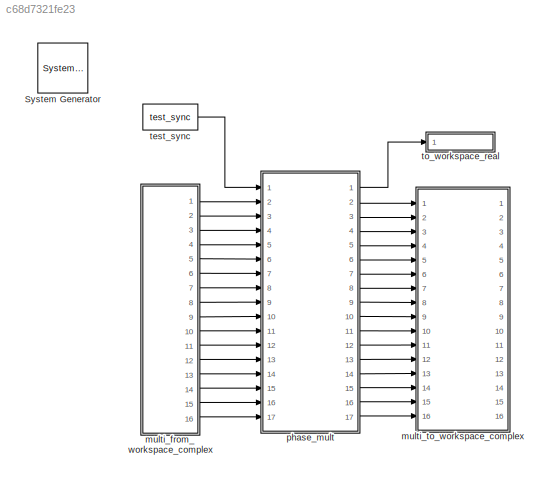
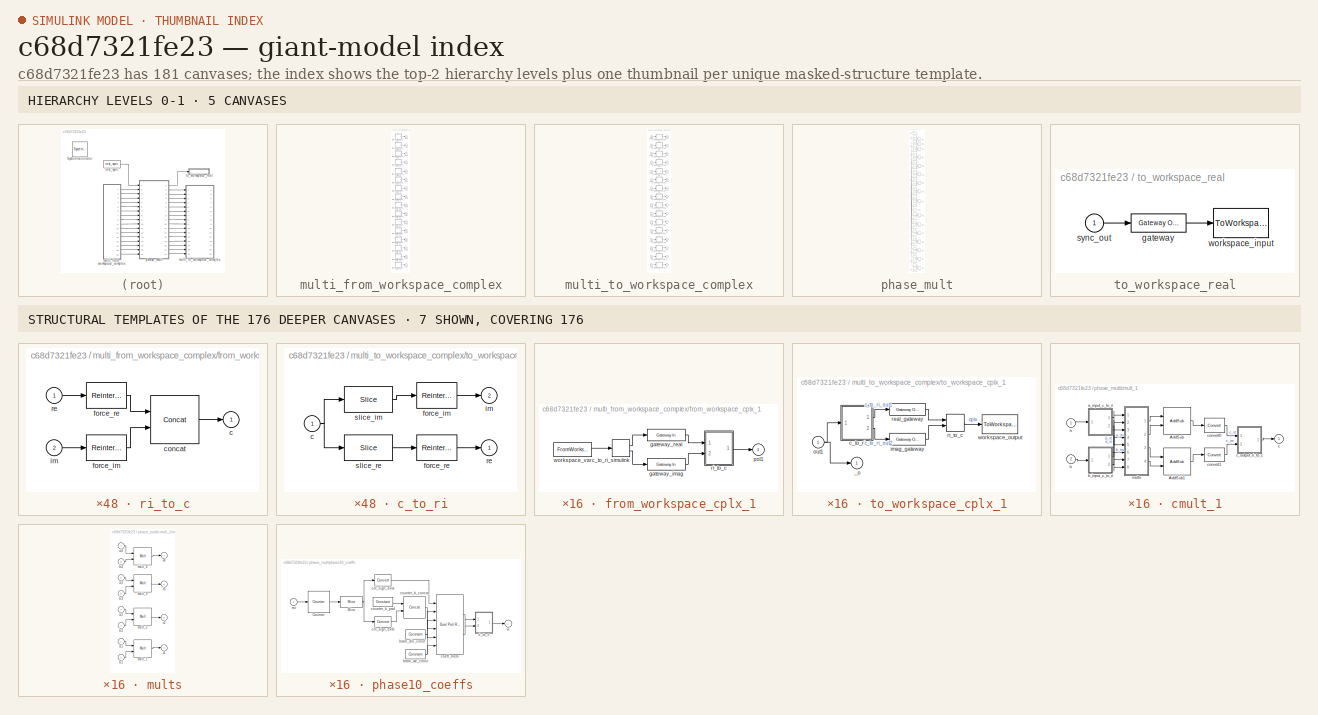
[diagram: thumbnail index - top-2 hierarchy levels (5 canvases) + 7 structural-template representatives of the remaining 176 canvases]
MODEL slx_c68d7321fe23
KIND model
BLOCK [Reference]  System Generator  REF=xbsIndex_r4/ System Generator
  AttributesFormatString = System\nGenerator
  Impl_file = ISE Defaults
  Ports = []
  SourceBlock = xbsIndex_r4/ System Generator
  SourceType = Xilinx System Generator Block
  Synth_file = XST Defaults
  Tag = genX
  UserDataPersistent = on
  block_type = sysgen
  clock_wrapper = Clock Enables
  core_generation = According to Block Masks
  dbl_ovrd = According to Block Masks
  dcm_input_clock_period = 10
  deprecated_control = off
  directory = ./netlist
  eval_field = 0
  has_advanced_control = 0
  incr_netlist = off
  infoedit = System Generator
  package = fbg676
  part = xc7k325t
  proj_type = Project Navigator
  run_coregen = off
  sg_icon_stat = 50,50,0,0,token,white,0,58c5b5770fe5f7c311f53dbc6e73f0f6,right,,[ ],[ ]
  sg_mask_display = fprintf('','COMMENT: begin icon graphics');\npatch([0 50 50 0 0 ],[0 0 50 50 0 ],[1 1 1 ]);\npatch([1.6375 16.81 27.31 37.81 48.31 27.31 12.1375 1.6375 ],[36.655 36.655 47.155 36.655 47.155 47.155 47.155 36.655 ],[0.933333 0.203922 0.141176 ]);\npatch([12.1375 27.31 16.81 1.6375 12.1375 ],[26.155 26.155 36.655 36.655 26.155 ],[0.698039 0.0313725 0.219608 ]);\npatch([1.6375 16.81 27.31 12.1375 1.6375 ]...<+327ch>
  sggui_pos = -1,-1,-1,-1
  simulink_period = 1
  speed = -3
  synthesis_tool = XST
  sysclk_period = 10
  testbench = off
  trim_vbits = Everywhere in SubSystem
  xilinxfamily = Kintex7
BLOCK [SubSystem] multi_from_workspace_complex
  FunctionWithSeparateData = off
  MaskHideContents = off
  MinAlgLoopOccurrences = off
  Opaque = off
  Ports = [0, 16]
  PropExecContextOutsideSubsystem = off
  RTWSystemCode = Auto
  RequestExecContextInheritance = off
  UserDataPersistent = on
BLOCK [SubSystem] multi_from_workspace_complex/from_workspace_cplx_1
  FunctionWithSeparateData = off
  MaskHideContents = off
  MinAlgLoopOccurrences = off
  Opaque = off
  Ports = [0, 1]
  PropExecContextOutsideSubsystem = off
  RTWSystemCode = Auto
  RequestExecContextInheritance = off
BLOCK [ComplexToRealImag] multi_from_workspace_complex/from_workspace_cplx_1/c_to_ri_simulink
  Ports = [1, 2]
BLOCK [Reference] multi_from_workspace_complex/from_workspace_cplx_1/gateway_imag  REF=xbsIndex_r4/Gateway In
  ADCChannel = '1'
  LOCs = {}
  Ports = [1, 1]
  SourceBlock = xbsIndex_r4/Gateway In
  SourceType = Xilinx Gateway In Block
  UseAsADC = off
  arith_type = Signed  (2's comp)
  bin_pt = 17
  block_type = gatewayin
  dbl_ovrd = off
  exp_width = 8
  frac_width = 24
  gui_display_data_type = Fixed-point
  has_advanced_control = 0
  hdl_port = on
  infoedit = Gateway in block.  Converts inputs of type Simulink integer, single, double and fixed-point to  Xilinx fixed-point or floating-point data type.<br><br>Hardware notes:  In hardware these blocks become top level input ports.  <repeated x32 — deduplicated; at blocks: gateway_imag, gateway_real>
  inherit_from_input = off
  locs_specified = off
  n_bits = 18
  overflow = Wrap
  period = 1
  preci_type = Single
  quantization = Truncate
  sg_icon_stat = 65,20,1,1,white,yellow,1,00d3666e,right,,[ ],[ ]
  sg_mask_display = fprintf('','COMMENT: begin icon graphics');\npatch([0 65 65 0 0 ],[0 0 20 20 0 ],[0.95 0.93 0.65 ]);\nplot([0 65 65 0 0 ],[0 0 20 20 0 ]);\npatch([27.55 30.44 32.44 34.44 36.44 32.44 29.55 27.55 ],[12.22 12.22 14.22 12.22 14.22 14.22 14.22 12.22 ],[1 1 1 ]);\npatch([29.55 32.44 30.44 27.55 29.55 ],[10.22 10.22 12.22 12.22 10.22 ],[0.985 0.979 0.895 ]);\npatch([27.55 30.44 32.44 29.55 27.55 ],[8.22 8.22...<+383ch>  <repeated x32 — deduplicated; at blocks: gateway_imag, gateway_real>
  sggui_pos = -1,-1,-1,-1
  timing_constraint = None
  xl_area = [0,0,0,0,0,0,0]
  xl_use_area = off
BLOCK [Reference] multi_from_workspace_complex/from_workspace_cplx_1/gateway_real  REF=xbsIndex_r4/Gateway In
  ADCChannel = '1'
  LOCs = {}
  Ports = [1, 1]
  SourceBlock = xbsIndex_r4/Gateway In
  SourceType = Xilinx Gateway In Block
  UseAsADC = off
  arith_type = Signed  (2's comp)
  bin_pt = 17
  block_type = gatewayin
  dbl_ovrd = off
  exp_width = 8
  frac_width = 24
  gui_display_data_type = Fixed-point
  has_advanced_control = 0
  hdl_port = on
  inherit_from_input = off
  locs_specified = off
  n_bits = 18
  overflow = Wrap
  period = 1
  preci_type = Single
  quantization = Truncate
  sg_icon_stat = 65,20,1,1,white,yellow,1,00d3666e,right,,[ ],[ ]
  sggui_pos = -1,-1,-1,-1
  timing_constraint = None
  xl_area = [0,0,0,0,0,0,0]
  xl_use_area = off
BLOCK [Outport] multi_from_workspace_complex/from_workspace_cplx_1/pol1
  IconDisplay = Port number
BLOCK [SubSystem] multi_from_workspace_complex/from_workspace_cplx_1/ri_to_c
  FunctionWithSeparateData = off
  MaskHideContents = off
  MinAlgLoopOccurrences = off
  Opaque = off
  Ports = [2, 1]
  PropExecContextOutsideSubsystem = off
  RTWSystemCode = Auto
  RequestExecContextInheritance = off
BLOCK [Outport] multi_from_workspace_complex/from_workspace_cplx_1/ri_to_c/c
  IconDisplay = Port number
BLOCK [Reference] multi_from_workspace_complex/from_workspace_cplx_1/ri_to_c/concat  REF=xbsIndex_r4/Concat
  Ports = [2, 1]
  SourceBlock = xbsIndex_r4/Concat
  SourceType = Xilinx Bus Concatenator Block
  block_type = concat
  dbl_ovrd = off
  has_advanced_control = 0
  infoedit = Concatenates two or more inputs.  Output will be cast to an unsigned value with the binary point at zero.
  num_inputs = 2
  sg_icon_stat = 60,60,2,1,white,blue,0,16398980,right,,[ ],[ ]
  sg_mask_display = fprintf('','COMMENT: begin icon graphics');\npatch([0 60 60 0 0 ],[0 0 60 60 0 ],[0.77 0.82 0.91 ]);\nplot([0 60 60 0 0 ],[0 0 60 60 0 ]);\npatch([12.2 23.76 31.76 39.76 47.76 31.76 20.2 12.2 ],[38.88 38.88 46.88 38.88 46.88 46.88 46.88 38.88 ],[1 1 1 ]);\npatch([20.2 31.76 23.76 12.2 20.2 ],[30.88 30.88 38.88 38.88 30.88 ],[0.931 0.946 0.973 ]);\npatch([12.2 23.76 31.76 20.2 12.2 ],[22.88 22.88 30.88 ...<+402ch>  <repeated x64 — deduplicated; at blocks: concat, counter_b_concat>
  sggui_pos = -1,-1,-1,-1
BLOCK [Reference] multi_from_workspace_complex/from_workspace_cplx_1/ri_to_c/force_im  REF=xbsIndex_r4/Reinterpret
  Ports = [1, 1]
  SourceBlock = xbsIndex_r4/Reinterpret
  SourceType = Xilinx Type Reinterpreter Block
  arith_type = Unsigned
  bin_pt = 0
  block_type = reinterpret
  force_arith_type = on
  force_bin_pt = on
  has_advanced_control = 0
  infoedit = Changes signal type without altering the binary representation.   You can change the signal between signed and unsigned, and relocate the binary point.<br><br>Hardware notes: In hardware this block costs nothing.<br><br>Example:  Suppose the input is 6 bits wide, signed, with 2 fractional bits, and the output is forced to unsigned with 0 fractional bits.  Then an input of -2.0 (1110.00 in binary 2...<+58ch>  <repeated x192 — deduplicated; at blocks: force_im, force_re>
  sg_icon_stat = 50,32,1,1,white,blue,0,6b04d0b0,right,,[ ],[ ]
  sg_mask_display = fprintf('','COMMENT: begin icon graphics');\npatch([0 50 50 0 0 ],[0 0 32 32 0 ],[0.77 0.82 0.91 ]);\nplot([0 50 50 0 0 ],[0 0 32 32 0 ]);\npatch([16.1 21.88 25.88 29.88 33.88 25.88 20.1 16.1 ],[20.44 20.44 24.44 20.44 24.44 24.44 24.44 20.44 ],[1 1 1 ]);\npatch([20.1 25.88 21.88 16.1 20.1 ],[16.44 16.44 20.44 20.44 16.44 ],[0.931 0.946 0.973 ]);\npatch([16.1 21.88 25.88 20.1 16.1 ],[12.44 12.44 16.44 ...<+294ch>  <repeated x192 — deduplicated; at blocks: force_im, force_re>
  sggui_pos = -1,-1,-1,-1
BLOCK [Reference] multi_from_workspace_complex/from_workspace_cplx_1/ri_to_c/force_re  REF=xbsIndex_r4/Reinterpret
  Ports = [1, 1]
  SourceBlock = xbsIndex_r4/Reinterpret
  SourceType = Xilinx Type Reinterpreter Block
  arith_type = Unsigned
  bin_pt = 0
  block_type = reinterpret
  force_arith_type = on
  force_bin_pt = on
  has_advanced_control = 0
  sg_icon_stat = 50,32,1,1,white,blue,0,6b04d0b0,right,,[ ],[ ]
  sggui_pos = -1,-1,-1,-1
BLOCK [Inport] multi_from_workspace_complex/from_workspace_cplx_1/ri_to_c/im
  IconDisplay = Port number
  Port = 2
BLOCK [Inport] multi_from_workspace_complex/from_workspace_cplx_1/ri_to_c/re
  IconDisplay = Port number
BLOCK [FromWorkspace] multi_from_workspace_complex/from_workspace_cplx_1/workspace_var
  SampleTime = 0
  VariableName = pol1
  ZeroCross = on
BLOCK [SubSystem] multi_from_workspace_complex/from_workspace_cplx_10
  FunctionWithSeparateData = off
  MaskHideContents = off
  MinAlgLoopOccurrences = off
  Opaque = off
  Ports = [0, 1]
  PropExecContextOutsideSubsystem = off
  RTWSystemCode = Auto
  RequestExecContextInheritance = off
BLOCK [ComplexToRealImag] multi_from_workspace_complex/from_workspace_cplx_10/c_to_ri_simulink
  Ports = [1, 2]
BLOCK [Reference] multi_from_workspace_complex/from_workspace_cplx_10/gateway_imag  REF=xbsIndex_r4/Gateway In
  ADCChannel = '1'
  LOCs = {}
  Ports = [1, 1]
  SourceBlock = xbsIndex_r4/Gateway In
  SourceType = Xilinx Gateway In Block
  UseAsADC = off
  arith_type = Signed  (2's comp)
  bin_pt = 17
  block_type = gatewayin
  dbl_ovrd = off
  exp_width = 8
  frac_width = 24
  gui_display_data_type = Fixed-point
  has_advanced_control = 0
  hdl_port = on
  inherit_from_input = off
  locs_specified = off
  n_bits = 18
  overflow = Wrap
  period = 1
  preci_type = Single
  quantization = Truncate
  sg_icon_stat = 65,20,1,1,white,yellow,1,00d3666e,right,,[ ],[ ]
  sggui_pos = -1,-1,-1,-1
  timing_constraint = None
  xl_area = [0,0,0,0,0,0,0]
  xl_use_area = off
BLOCK [Reference] multi_from_workspace_complex/from_workspace_cplx_10/gateway_real  REF=xbsIndex_r4/Gateway In
  ADCChannel = '1'
  LOCs = {}
  Ports = [1, 1]
  SourceBlock = xbsIndex_r4/Gateway In
  SourceType = Xilinx Gateway In Block
  UseAsADC = off
  arith_type = Signed  (2's comp)
  bin_pt = 17
  block_type = gatewayin
  dbl_ovrd = off
  exp_width = 8
  frac_width = 24
  gui_display_data_type = Fixed-point
  has_advanced_control = 0
  hdl_port = on
  inherit_from_input = off
  locs_specified = off
  n_bits = 18
  overflow = Wrap
  period = 1
  preci_type = Single
  quantization = Truncate
  sg_icon_stat = 65,20,1,1,white,yellow,1,00d3666e,right,,[ ],[ ]
  sggui_pos = -1,-1,-1,-1
  timing_constraint = None
  xl_area = [0,0,0,0,0,0,0]
  xl_use_area = off
BLOCK [Outport] multi_from_workspace_complex/from_workspace_cplx_10/pol10
  IconDisplay = Port number
BLOCK [SubSystem] multi_from_workspace_complex/from_workspace_cplx_10/ri_to_c
  FunctionWithSeparateData = off
  MaskHideContents = off
  MinAlgLoopOccurrences = off
  Opaque = off
  Ports = [2, 1]
  PropExecContextOutsideSubsystem = off
  RTWSystemCode = Auto
  RequestExecContextInheritance = off
BLOCK [Outport] multi_from_workspace_complex/from_workspace_cplx_10/ri_to_c/c
  IconDisplay = Port number
BLOCK [Reference] multi_from_workspace_complex/from_workspace_cplx_10/ri_to_c/concat  REF=xbsIndex_r4/Concat
  Ports = [2, 1]
  SourceBlock = xbsIndex_r4/Concat
  SourceType = Xilinx Bus Concatenator Block
  block_type = concat
  dbl_ovrd = off
  has_advanced_control = 0
  infoedit = Concatenates two or more inputs.  Output will be cast to an unsigned value with the binary point at zero.
  num_inputs = 2
  sg_icon_stat = 60,60,2,1,white,blue,0,16398980,right,,[ ],[ ]
  sggui_pos = -1,-1,-1,-1
BLOCK [Reference] multi_from_workspace_complex/from_workspace_cplx_10/ri_to_c/force_im  REF=xbsIndex_r4/Reinterpret
  Ports = [1, 1]
  SourceBlock = xbsIndex_r4/Reinterpret
  SourceType = Xilinx Type Reinterpreter Block
  arith_type = Unsigned
  bin_pt = 0
  block_type = reinterpret
  force_arith_type = on
  force_bin_pt = on
  has_advanced_control = 0
  sg_icon_stat = 50,32,1,1,white,blue,0,6b04d0b0,right,,[ ],[ ]
  sggui_pos = -1,-1,-1,-1
BLOCK [Reference] multi_from_workspace_complex/from_workspace_cplx_10/ri_to_c/force_re  REF=xbsIndex_r4/Reinterpret
  Ports = [1, 1]
  SourceBlock = xbsIndex_r4/Reinterpret
  SourceType = Xilinx Type Reinterpreter Block
  arith_type = Unsigned
  bin_pt = 0
  block_type = reinterpret
  force_arith_type = on
  force_bin_pt = on
  has_advanced_control = 0
  sg_icon_stat = 50,32,1,1,white,blue,0,6b04d0b0,right,,[ ],[ ]
  sggui_pos = -1,-1,-1,-1
BLOCK [Inport] multi_from_workspace_complex/from_workspace_cplx_10/ri_to_c/im
  IconDisplay = Port number
  Port = 2
BLOCK [Inport] multi_from_workspace_complex/from_workspace_cplx_10/ri_to_c/re
  IconDisplay = Port number
BLOCK [FromWorkspace] multi_from_workspace_complex/from_workspace_cplx_10/workspace_var
  SampleTime = 0
  VariableName = pol10
  ZeroCross = on
BLOCK [SubSystem] multi_from_workspace_complex/from_workspace_cplx_11
  FunctionWithSeparateData = off
  MaskHideContents = off
  MinAlgLoopOccurrences = off
  Opaque = off
  Ports = [0, 1]
  PropExecContextOutsideSubsystem = off
  RTWSystemCode = Auto
  RequestExecContextInheritance = off
BLOCK [ComplexToRealImag] multi_from_workspace_complex/from_workspace_cplx_11/c_to_ri_simulink
  Ports = [1, 2]
BLOCK [Reference] multi_from_workspace_complex/from_workspace_cplx_11/gateway_imag  REF=xbsIndex_r4/Gateway In
  ADCChannel = '1'
  LOCs = {}
  Ports = [1, 1]
  SourceBlock = xbsIndex_r4/Gateway In
  SourceType = Xilinx Gateway In Block
  UseAsADC = off
  arith_type = Signed  (2's comp)
  bin_pt = 17
  block_type = gatewayin
  dbl_ovrd = off
  exp_width = 8
  frac_width = 24
  gui_display_data_type = Fixed-point
  has_advanced_control = 0
  hdl_port = on
  inherit_from_input = off
  locs_specified = off
  n_bits = 18
  overflow = Wrap
  period = 1
  preci_type = Single
  quantization = Truncate
  sg_icon_stat = 65,20,1,1,white,yellow,1,00d3666e,right,,[ ],[ ]
  sggui_pos = -1,-1,-1,-1
  timing_constraint = None
  xl_area = [0,0,0,0,0,0,0]
  xl_use_area = off
BLOCK [Reference] multi_from_workspace_complex/from_workspace_cplx_11/gateway_real  REF=xbsIndex_r4/Gateway In
  ADCChannel = '1'
  LOCs = {}
  Ports = [1, 1]
  SourceBlock = xbsIndex_r4/Gateway In
  SourceType = Xilinx Gateway In Block
  UseAsADC = off
  arith_type = Signed  (2's comp)
  bin_pt = 17
  block_type = gatewayin
  dbl_ovrd = off
  exp_width = 8
  frac_width = 24
  gui_display_data_type = Fixed-point
  has_advanced_control = 0
  hdl_port = on
  inherit_from_input = off
  locs_specified = off
  n_bits = 18
  overflow = Wrap
  period = 1
  preci_type = Single
  quantization = Truncate
  sg_icon_stat = 65,20,1,1,white,yellow,1,00d3666e,right,,[ ],[ ]
  sggui_pos = -1,-1,-1,-1
  timing_constraint = None
  xl_area = [0,0,0,0,0,0,0]
  xl_use_area = off
BLOCK [Outport] multi_from_workspace_complex/from_workspace_cplx_11/pol11
  IconDisplay = Port number
BLOCK [SubSystem] multi_from_workspace_complex/from_workspace_cplx_11/ri_to_c
  FunctionWithSeparateData = off
  MaskHideContents = off
  MinAlgLoopOccurrences = off
  Opaque = off
  Ports = [2, 1]
  PropExecContextOutsideSubsystem = off
  RTWSystemCode = Auto
  RequestExecContextInheritance = off
BLOCK [Outport] multi_from_workspace_complex/from_workspace_cplx_11/ri_to_c/c
  IconDisplay = Port number
BLOCK [Reference] multi_from_workspace_complex/from_workspace_cplx_11/ri_to_c/concat  REF=xbsIndex_r4/Concat
  Ports = [2, 1]
  SourceBlock = xbsIndex_r4/Concat
  SourceType = Xilinx Bus Concatenator Block
  block_type = concat
  dbl_ovrd = off
  has_advanced_control = 0
  infoedit = Concatenates two or more inputs.  Output will be cast to an unsigned value with the binary point at zero.
  num_inputs = 2
  sg_icon_stat = 60,60,2,1,white,blue,0,16398980,right,,[ ],[ ]
  sggui_pos = -1,-1,-1,-1
BLOCK [Reference] multi_from_workspace_complex/from_workspace_cplx_11/ri_to_c/force_im  REF=xbsIndex_r4/Reinterpret
  Ports = [1, 1]
  SourceBlock = xbsIndex_r4/Reinterpret
  SourceType = Xilinx Type Reinterpreter Block
  arith_type = Unsigned
  bin_pt = 0
  block_type = reinterpret
  force_arith_type = on
  force_bin_pt = on
  has_advanced_control = 0
  sg_icon_stat = 50,32,1,1,white,blue,0,6b04d0b0,right,,[ ],[ ]
  sggui_pos = -1,-1,-1,-1
BLOCK [Reference] multi_from_workspace_complex/from_workspace_cplx_11/ri_to_c/force_re  REF=xbsIndex_r4/Reinterpret
  Ports = [1, 1]
  SourceBlock = xbsIndex_r4/Reinterpret
  SourceType = Xilinx Type Reinterpreter Block
  arith_type = Unsigned
  bin_pt = 0
  block_type = reinterpret
  force_arith_type = on
  force_bin_pt = on
  has_advanced_control = 0
  sg_icon_stat = 50,32,1,1,white,blue,0,6b04d0b0,right,,[ ],[ ]
  sggui_pos = -1,-1,-1,-1
BLOCK [Inport] multi_from_workspace_complex/from_workspace_cplx_11/ri_to_c/im
  IconDisplay = Port number
  Port = 2
BLOCK [Inport] multi_from_workspace_complex/from_workspace_cplx_11/ri_to_c/re
  IconDisplay = Port number
BLOCK [FromWorkspace] multi_from_workspace_complex/from_workspace_cplx_11/workspace_var
  SampleTime = 0
  VariableName = pol11
  ZeroCross = on
BLOCK [SubSystem] multi_from_workspace_complex/from_workspace_cplx_12
  FunctionWithSeparateData = off
  MaskHideContents = off
  MinAlgLoopOccurrences = off
  Opaque = off
  Ports = [0, 1]
  PropExecContextOutsideSubsystem = off
  RTWSystemCode = Auto
  RequestExecContextInheritance = off
BLOCK [ComplexToRealImag] multi_from_workspace_complex/from_workspace_cplx_12/c_to_ri_simulink
  Ports = [1, 2]
BLOCK [Reference] multi_from_workspace_complex/from_workspace_cplx_12/gateway_imag  REF=xbsIndex_r4/Gateway In
  ADCChannel = '1'
  LOCs = {}
  Ports = [1, 1]
  SourceBlock = xbsIndex_r4/Gateway In
  SourceType = Xilinx Gateway In Block
  UseAsADC = off
  arith_type = Signed  (2's comp)
  bin_pt = 17
  block_type = gatewayin
  dbl_ovrd = off
  exp_width = 8
  frac_width = 24
  gui_display_data_type = Fixed-point
  has_advanced_control = 0
  hdl_port = on
  inherit_from_input = off
  locs_specified = off
  n_bits = 18
  overflow = Wrap
  period = 1
  preci_type = Single
  quantization = Truncate
  sg_icon_stat = 65,20,1,1,white,yellow,1,00d3666e,right,,[ ],[ ]
  sggui_pos = -1,-1,-1,-1
  timing_constraint = None
  xl_area = [0,0,0,0,0,0,0]
  xl_use_area = off
BLOCK [Reference] multi_from_workspace_complex/from_workspace_cplx_12/gateway_real  REF=xbsIndex_r4/Gateway In
  ADCChannel = '1'
  LOCs = {}
  Ports = [1, 1]
  SourceBlock = xbsIndex_r4/Gateway In
  SourceType = Xilinx Gateway In Block
  UseAsADC = off
  arith_type = Signed  (2's comp)
  bin_pt = 17
  block_type = gatewayin
  dbl_ovrd = off
  exp_width = 8
  frac_width = 24
  gui_display_data_type = Fixed-point
  has_advanced_control = 0
  hdl_port = on
  inherit_from_input = off
  locs_specified = off
  n_bits = 18
  overflow = Wrap
  period = 1
  preci_type = Single
  quantization = Truncate
  sg_icon_stat = 65,20,1,1,white,yellow,1,00d3666e,right,,[ ],[ ]
  sggui_pos = -1,-1,-1,-1
  timing_constraint = None
  xl_area = [0,0,0,0,0,0,0]
  xl_use_area = off
BLOCK [Outport] multi_from_workspace_complex/from_workspace_cplx_12/pol12
  IconDisplay = Port number
BLOCK [SubSystem] multi_from_workspace_complex/from_workspace_cplx_12/ri_to_c
  FunctionWithSeparateData = off
  MaskHideContents = off
  MinAlgLoopOccurrences = off
  Opaque = off
  Ports = [2, 1]
  PropExecContextOutsideSubsystem = off
  RTWSystemCode = Auto
  RequestExecContextInheritance = off
BLOCK [Outport] multi_from_workspace_complex/from_workspace_cplx_12/ri_to_c/c
  IconDisplay = Port number
BLOCK [Reference] multi_from_workspace_complex/from_workspace_cplx_12/ri_to_c/concat  REF=xbsIndex_r4/Concat
  Ports = [2, 1]
  SourceBlock = xbsIndex_r4/Concat
  SourceType = Xilinx Bus Concatenator Block
  block_type = concat
  dbl_ovrd = off
  has_advanced_control = 0
  infoedit = Concatenates two or more inputs.  Output will be cast to an unsigned value with the binary point at zero.
  num_inputs = 2
  sg_icon_stat = 60,60,2,1,white,blue,0,16398980,right,,[ ],[ ]
  sggui_pos = -1,-1,-1,-1
BLOCK [Reference] multi_from_workspace_complex/from_workspace_cplx_12/ri_to_c/force_im  REF=xbsIndex_r4/Reinterpret
  Ports = [1, 1]
  SourceBlock = xbsIndex_r4/Reinterpret
  SourceType = Xilinx Type Reinterpreter Block
  arith_type = Unsigned
  bin_pt = 0
  block_type = reinterpret
  force_arith_type = on
  force_bin_pt = on
  has_advanced_control = 0
  sg_icon_stat = 50,32,1,1,white,blue,0,6b04d0b0,right,,[ ],[ ]
  sggui_pos = -1,-1,-1,-1
BLOCK [Reference] multi_from_workspace_complex/from_workspace_cplx_12/ri_to_c/force_re  REF=xbsIndex_r4/Reinterpret
  Ports = [1, 1]
  SourceBlock = xbsIndex_r4/Reinterpret
  SourceType = Xilinx Type Reinterpreter Block
  arith_type = Unsigned
  bin_pt = 0
  block_type = reinterpret
  force_arith_type = on
  force_bin_pt = on
  has_advanced_control = 0
  sg_icon_stat = 50,32,1,1,white,blue,0,6b04d0b0,right,,[ ],[ ]
  sggui_pos = -1,-1,-1,-1
BLOCK [Inport] multi_from_workspace_complex/from_workspace_cplx_12/ri_to_c/im
  IconDisplay = Port number
  Port = 2
BLOCK [Inport] multi_from_workspace_complex/from_workspace_cplx_12/ri_to_c/re
  IconDisplay = Port number
BLOCK [FromWorkspace] multi_from_workspace_complex/from_workspace_cplx_12/workspace_var
  SampleTime = 0
  VariableName = pol12
  ZeroCross = on
BLOCK [SubSystem] multi_from_workspace_complex/from_workspace_cplx_13
  FunctionWithSeparateData = off
  MaskHideContents = off
  MinAlgLoopOccurrences = off
  Opaque = off
  Ports = [0, 1]
  PropExecContextOutsideSubsystem = off
  RTWSystemCode = Auto
  RequestExecContextInheritance = off
BLOCK [ComplexToRealImag] multi_from_workspace_complex/from_workspace_cplx_13/c_to_ri_simulink
  Ports = [1, 2]
BLOCK [Reference] multi_from_workspace_complex/from_workspace_cplx_13/gateway_imag  REF=xbsIndex_r4/Gateway In
  ADCChannel = '1'
  LOCs = {}
  Ports = [1, 1]
  SourceBlock = xbsIndex_r4/Gateway In
  SourceType = Xilinx Gateway In Block
  UseAsADC = off
  arith_type = Signed  (2's comp)
  bin_pt = 17
  block_type = gatewayin
  dbl_ovrd = off
  exp_width = 8
  frac_width = 24
  gui_display_data_type = Fixed-point
  has_advanced_control = 0
  hdl_port = on
  inherit_from_input = off
  locs_specified = off
  n_bits = 18
  overflow = Wrap
  period = 1
  preci_type = Single
  quantization = Truncate
  sg_icon_stat = 65,20,1,1,white,yellow,1,00d3666e,right,,[ ],[ ]
  sggui_pos = -1,-1,-1,-1
  timing_constraint = None
  xl_area = [0,0,0,0,0,0,0]
  xl_use_area = off
BLOCK [Reference] multi_from_workspace_complex/from_workspace_cplx_13/gateway_real  REF=xbsIndex_r4/Gateway In
  ADCChannel = '1'
  LOCs = {}
  Ports = [1, 1]
  SourceBlock = xbsIndex_r4/Gateway In
  SourceType = Xilinx Gateway In Block
  UseAsADC = off
  arith_type = Signed  (2's comp)
  bin_pt = 17
  block_type = gatewayin
  dbl_ovrd = off
  exp_width = 8
  frac_width = 24
  gui_display_data_type = Fixed-point
  has_advanced_control = 0
  hdl_port = on
  inherit_from_input = off
  locs_specified = off
  n_bits = 18
  overflow = Wrap
  period = 1
  preci_type = Single
  quantization = Truncate
  sg_icon_stat = 65,20,1,1,white,yellow,1,00d3666e,right,,[ ],[ ]
  sggui_pos = -1,-1,-1,-1
  timing_constraint = None
  xl_area = [0,0,0,0,0,0,0]
  xl_use_area = off
BLOCK [Outport] multi_from_workspace_complex/from_workspace_cplx_13/pol13
  IconDisplay = Port number
BLOCK [SubSystem] multi_from_workspace_complex/from_workspace_cplx_13/ri_to_c
  FunctionWithSeparateData = off
  MaskHideContents = off
  MinAlgLoopOccurrences = off
  Opaque = off
  Ports = [2, 1]
  PropExecContextOutsideSubsystem = off
  RTWSystemCode = Auto
  RequestExecContextInheritance = off
BLOCK [Outport] multi_from_workspace_complex/from_workspace_cplx_13/ri_to_c/c
  IconDisplay = Port number
BLOCK [Reference] multi_from_workspace_complex/from_workspace_cplx_13/ri_to_c/concat  REF=xbsIndex_r4/Concat
  Ports = [2, 1]
  SourceBlock = xbsIndex_r4/Concat
  SourceType = Xilinx Bus Concatenator Block
  block_type = concat
  dbl_ovrd = off
  has_advanced_control = 0
  infoedit = Concatenates two or more inputs.  Output will be cast to an unsigned value with the binary point at zero.
  num_inputs = 2
  sg_icon_stat = 60,60,2,1,white,blue,0,16398980,right,,[ ],[ ]
  sggui_pos = -1,-1,-1,-1
BLOCK [Reference] multi_from_workspace_complex/from_workspace_cplx_13/ri_to_c/force_im  REF=xbsIndex_r4/Reinterpret
  Ports = [1, 1]
  SourceBlock = xbsIndex_r4/Reinterpret
  SourceType = Xilinx Type Reinterpreter Block
  arith_type = Unsigned
  bin_pt = 0
  block_type = reinterpret
  force_arith_type = on
  force_bin_pt = on
  has_advanced_control = 0
  sg_icon_stat = 50,32,1,1,white,blue,0,6b04d0b0,right,,[ ],[ ]
  sggui_pos = -1,-1,-1,-1
BLOCK [Reference] multi_from_workspace_complex/from_workspace_cplx_13/ri_to_c/force_re  REF=xbsIndex_r4/Reinterpret
  Ports = [1, 1]
  SourceBlock = xbsIndex_r4/Reinterpret
  SourceType = Xilinx Type Reinterpreter Block
  arith_type = Unsigned
  bin_pt = 0
  block_type = reinterpret
  force_arith_type = on
  force_bin_pt = on
  has_advanced_control = 0
  sg_icon_stat = 50,32,1,1,white,blue,0,6b04d0b0,right,,[ ],[ ]
  sggui_pos = -1,-1,-1,-1
BLOCK [Inport] multi_from_workspace_complex/from_workspace_cplx_13/ri_to_c/im
  IconDisplay = Port number
  Port = 2
BLOCK [Inport] multi_from_workspace_complex/from_workspace_cplx_13/ri_to_c/re
  IconDisplay = Port number
BLOCK [FromWorkspace] multi_from_workspace_complex/from_workspace_cplx_13/workspace_var
  SampleTime = 0
  VariableName = pol13
  ZeroCross = on
BLOCK [SubSystem] multi_from_workspace_complex/from_workspace_cplx_14
  FunctionWithSeparateData = off
  MaskHideContents = off
  MinAlgLoopOccurrences = off
  Opaque = off
  Ports = [0, 1]
  PropExecContextOutsideSubsystem = off
  RTWSystemCode = Auto
  RequestExecContextInheritance = off
BLOCK [ComplexToRealImag] multi_from_workspace_complex/from_workspace_cplx_14/c_to_ri_simulink
  Ports = [1, 2]
BLOCK [Reference] multi_from_workspace_complex/from_workspace_cplx_14/gateway_imag  REF=xbsIndex_r4/Gateway In
  ADCChannel = '1'
  LOCs = {}
  Ports = [1, 1]
  SourceBlock = xbsIndex_r4/Gateway In
  SourceType = Xilinx Gateway In Block
  UseAsADC = off
  arith_type = Signed  (2's comp)
  bin_pt = 17
  block_type = gatewayin
  dbl_ovrd = off
  exp_width = 8
  frac_width = 24
  gui_display_data_type = Fixed-point
  has_advanced_control = 0
  hdl_port = on
  inherit_from_input = off
  locs_specified = off
  n_bits = 18
  overflow = Wrap
  period = 1
  preci_type = Single
  quantization = Truncate
  sg_icon_stat = 65,20,1,1,white,yellow,1,00d3666e,right,,[ ],[ ]
  sggui_pos = -1,-1,-1,-1
  timing_constraint = None
  xl_area = [0,0,0,0,0,0,0]
  xl_use_area = off
BLOCK [Reference] multi_from_workspace_complex/from_workspace_cplx_14/gateway_real  REF=xbsIndex_r4/Gateway In
  ADCChannel = '1'
  LOCs = {}
  Ports = [1, 1]
  SourceBlock = xbsIndex_r4/Gateway In
  SourceType = Xilinx Gateway In Block
  UseAsADC = off
  arith_type = Signed  (2's comp)
  bin_pt = 17
  block_type = gatewayin
  dbl_ovrd = off
  exp_width = 8
  frac_width = 24
  gui_display_data_type = Fixed-point
  has_advanced_control = 0
  hdl_port = on
  inherit_from_input = off
  locs_specified = off
  n_bits = 18
  overflow = Wrap
  period = 1
  preci_type = Single
  quantization = Truncate
  sg_icon_stat = 65,20,1,1,white,yellow,1,00d3666e,right,,[ ],[ ]
  sggui_pos = -1,-1,-1,-1
  timing_constraint = None
  xl_area = [0,0,0,0,0,0,0]
  xl_use_area = off
BLOCK [Outport] multi_from_workspace_complex/from_workspace_cplx_14/pol14
  IconDisplay = Port number
BLOCK [SubSystem] multi_from_workspace_complex/from_workspace_cplx_14/ri_to_c
  FunctionWithSeparateData = off
  MaskHideContents = off
  MinAlgLoopOccurrences = off
  Opaque = off
  Ports = [2, 1]
  PropExecContextOutsideSubsystem = off
  RTWSystemCode = Auto
  RequestExecContextInheritance = off
BLOCK [Outport] multi_from_workspace_complex/from_workspace_cplx_14/ri_to_c/c
  IconDisplay = Port number
BLOCK [Reference] multi_from_workspace_complex/from_workspace_cplx_14/ri_to_c/concat  REF=xbsIndex_r4/Concat
  Ports = [2, 1]
  SourceBlock = xbsIndex_r4/Concat
  SourceType = Xilinx Bus Concatenator Block
  block_type = concat
  dbl_ovrd = off
  has_advanced_control = 0
  infoedit = Concatenates two or more inputs.  Output will be cast to an unsigned value with the binary point at zero.
  num_inputs = 2
  sg_icon_stat = 60,60,2,1,white,blue,0,16398980,right,,[ ],[ ]
  sggui_pos = -1,-1,-1,-1
BLOCK [Reference] multi_from_workspace_complex/from_workspace_cplx_14/ri_to_c/force_im  REF=xbsIndex_r4/Reinterpret
  Ports = [1, 1]
  SourceBlock = xbsIndex_r4/Reinterpret
  SourceType = Xilinx Type Reinterpreter Block
  arith_type = Unsigned
  bin_pt = 0
  block_type = reinterpret
  force_arith_type = on
  force_bin_pt = on
  has_advanced_control = 0
  sg_icon_stat = 50,32,1,1,white,blue,0,6b04d0b0,right,,[ ],[ ]
  sggui_pos = -1,-1,-1,-1
BLOCK [Reference] multi_from_workspace_complex/from_workspace_cplx_14/ri_to_c/force_re  REF=xbsIndex_r4/Reinterpret
  Ports = [1, 1]
  SourceBlock = xbsIndex_r4/Reinterpret
  SourceType = Xilinx Type Reinterpreter Block
  arith_type = Unsigned
  bin_pt = 0
  block_type = reinterpret
  force_arith_type = on
  force_bin_pt = on
  has_advanced_control = 0
  sg_icon_stat = 50,32,1,1,white,blue,0,6b04d0b0,right,,[ ],[ ]
  sggui_pos = -1,-1,-1,-1
BLOCK [Inport] multi_from_workspace_complex/from_workspace_cplx_14/ri_to_c/im
  IconDisplay = Port number
  Port = 2
BLOCK [Inport] multi_from_workspace_complex/from_workspace_cplx_14/ri_to_c/re
  IconDisplay = Port number
BLOCK [FromWorkspace] multi_from_workspace_complex/from_workspace_cplx_14/workspace_var
  SampleTime = 0
  VariableName = pol14
  ZeroCross = on
BLOCK [SubSystem] multi_from_workspace_complex/from_workspace_cplx_15
  FunctionWithSeparateData = off
  MaskHideContents = off
  MinAlgLoopOccurrences = off
  Opaque = off
  Ports = [0, 1]
  PropExecContextOutsideSubsystem = off
  RTWSystemCode = Auto
  RequestExecContextInheritance = off
BLOCK [ComplexToRealImag] multi_from_workspace_complex/from_workspace_cplx_15/c_to_ri_simulink
  Ports = [1, 2]
BLOCK [Reference] multi_from_workspace_complex/from_workspace_cplx_15/gateway_imag  REF=xbsIndex_r4/Gateway In
  ADCChannel = '1'
  LOCs = {}
  Ports = [1, 1]
  SourceBlock = xbsIndex_r4/Gateway In
  SourceType = Xilinx Gateway In Block
  UseAsADC = off
  arith_type = Signed  (2's comp)
  bin_pt = 17
  block_type = gatewayin
  dbl_ovrd = off
  exp_width = 8
  frac_width = 24
  gui_display_data_type = Fixed-point
  has_advanced_control = 0
  hdl_port = on
  inherit_from_input = off
  locs_specified = off
  n_bits = 18
  overflow = Wrap
  period = 1
  preci_type = Single
  quantization = Truncate
  sg_icon_stat = 65,20,1,1,white,yellow,1,00d3666e,right,,[ ],[ ]
  sggui_pos = -1,-1,-1,-1
  timing_constraint = None
  xl_area = [0,0,0,0,0,0,0]
  xl_use_area = off
BLOCK [Reference] multi_from_workspace_complex/from_workspace_cplx_15/gateway_real  REF=xbsIndex_r4/Gateway In
  ADCChannel = '1'
  LOCs = {}
  Ports = [1, 1]
  SourceBlock = xbsIndex_r4/Gateway In
  SourceType = Xilinx Gateway In Block
  UseAsADC = off
  arith_type = Signed  (2's comp)
  bin_pt = 17
  block_type = gatewayin
  dbl_ovrd = off
  exp_width = 8
  frac_width = 24
  gui_display_data_type = Fixed-point
  has_advanced_control = 0
  hdl_port = on
  inherit_from_input = off
  locs_specified = off
  n_bits = 18
  overflow = Wrap
  period = 1
  preci_type = Single
  quantization = Truncate
  sg_icon_stat = 65,20,1,1,white,yellow,1,00d3666e,right,,[ ],[ ]
  sggui_pos = -1,-1,-1,-1
  timing_constraint = None
  xl_area = [0,0,0,0,0,0,0]
  xl_use_area = off
BLOCK [Outport] multi_from_workspace_complex/from_workspace_cplx_15/pol15
  IconDisplay = Port number
BLOCK [SubSystem] multi_from_workspace_complex/from_workspace_cplx_15/ri_to_c
  FunctionWithSeparateData = off
  MaskHideContents = off
  MinAlgLoopOccurrences = off
  Opaque = off
  Ports = [2, 1]
  PropExecContextOutsideSubsystem = off
  RTWSystemCode = Auto
  RequestExecContextInheritance = off
BLOCK [Outport] multi_from_workspace_complex/from_workspace_cplx_15/ri_to_c/c
  IconDisplay = Port number
BLOCK [Reference] multi_from_workspace_complex/from_workspace_cplx_15/ri_to_c/concat  REF=xbsIndex_r4/Concat
  Ports = [2, 1]
  SourceBlock = xbsIndex_r4/Concat
  SourceType = Xilinx Bus Concatenator Block
  block_type = concat
  dbl_ovrd = off
  has_advanced_control = 0
  infoedit = Concatenates two or more inputs.  Output will be cast to an unsigned value with the binary point at zero.
  num_inputs = 2
  sg_icon_stat = 60,60,2,1,white,blue,0,16398980,right,,[ ],[ ]
  sggui_pos = -1,-1,-1,-1
BLOCK [Reference] multi_from_workspace_complex/from_workspace_cplx_15/ri_to_c/force_im  REF=xbsIndex_r4/Reinterpret
  Ports = [1, 1]
  SourceBlock = xbsIndex_r4/Reinterpret
  SourceType = Xilinx Type Reinterpreter Block
  arith_type = Unsigned
  bin_pt = 0
  block_type = reinterpret
  force_arith_type = on
  force_bin_pt = on
  has_advanced_control = 0
  sg_icon_stat = 50,32,1,1,white,blue,0,6b04d0b0,right,,[ ],[ ]
  sggui_pos = -1,-1,-1,-1
BLOCK [Reference] multi_from_workspace_complex/from_workspace_cplx_15/ri_to_c/force_re  REF=xbsIndex_r4/Reinterpret
  Ports = [1, 1]
  SourceBlock = xbsIndex_r4/Reinterpret
  SourceType = Xilinx Type Reinterpreter Block
  arith_type = Unsigned
  bin_pt = 0
  block_type = reinterpret
  force_arith_type = on
  force_bin_pt = on
  has_advanced_control = 0
  sg_icon_stat = 50,32,1,1,white,blue,0,6b04d0b0,right,,[ ],[ ]
  sggui_pos = -1,-1,-1,-1
BLOCK [Inport] multi_from_workspace_complex/from_workspace_cplx_15/ri_to_c/im
  IconDisplay = Port number
  Port = 2
BLOCK [Inport] multi_from_workspace_complex/from_workspace_cplx_15/ri_to_c/re
  IconDisplay = Port number
BLOCK [FromWorkspace] multi_from_workspace_complex/from_workspace_cplx_15/workspace_var
  SampleTime = 0
  VariableName = pol15
  ZeroCross = on
BLOCK [SubSystem] multi_from_workspace_complex/from_workspace_cplx_16
  FunctionWithSeparateData = off
  MaskHideContents = off
  MinAlgLoopOccurrences = off
  Opaque = off
  Ports = [0, 1]
  PropExecContextOutsideSubsystem = off
  RTWSystemCode = Auto
  RequestExecContextInheritance = off
BLOCK [ComplexToRealImag] multi_from_workspace_complex/from_workspace_cplx_16/c_to_ri_simulink
  Ports = [1, 2]
BLOCK [Reference] multi_from_workspace_complex/from_workspace_cplx_16/gateway_imag  REF=xbsIndex_r4/Gateway In
  ADCChannel = '1'
  LOCs = {}
  Ports = [1, 1]
  SourceBlock = xbsIndex_r4/Gateway In
  SourceType = Xilinx Gateway In Block
  UseAsADC = off
  arith_type = Signed  (2's comp)
  bin_pt = 17
  block_type = gatewayin
  dbl_ovrd = off
  exp_width = 8
  frac_width = 24
  gui_display_data_type = Fixed-point
  has_advanced_control = 0
  hdl_port = on
  inherit_from_input = off
  locs_specified = off
  n_bits = 18
  overflow = Wrap
  period = 1
  preci_type = Single
  quantization = Truncate
  sg_icon_stat = 65,20,1,1,white,yellow,1,00d3666e,right,,[ ],[ ]
  sggui_pos = -1,-1,-1,-1
  timing_constraint = None
  xl_area = [0,0,0,0,0,0,0]
  xl_use_area = off
BLOCK [Reference] multi_from_workspace_complex/from_workspace_cplx_16/gateway_real  REF=xbsIndex_r4/Gateway In
  ADCChannel = '1'
  LOCs = {}
  Ports = [1, 1]
  SourceBlock = xbsIndex_r4/Gateway In
  SourceType = Xilinx Gateway In Block
  UseAsADC = off
  arith_type = Signed  (2's comp)
  bin_pt = 17
  block_type = gatewayin
  dbl_ovrd = off
  exp_width = 8
  frac_width = 24
  gui_display_data_type = Fixed-point
  has_advanced_control = 0
  hdl_port = on
  inherit_from_input = off
  locs_specified = off
  n_bits = 18
  overflow = Wrap
  period = 1
  preci_type = Single
  quantization = Truncate
  sg_icon_stat = 65,20,1,1,white,yellow,1,00d3666e,right,,[ ],[ ]
  sggui_pos = -1,-1,-1,-1
  timing_constraint = None
  xl_area = [0,0,0,0,0,0,0]
  xl_use_area = off
BLOCK [Outport] multi_from_workspace_complex/from_workspace_cplx_16/pol16
  IconDisplay = Port number
BLOCK [SubSystem] multi_from_workspace_complex/from_workspace_cplx_16/ri_to_c
  FunctionWithSeparateData = off
  MaskHideContents = off
  MinAlgLoopOccurrences = off
  Opaque = off
  Ports = [2, 1]
  PropExecContextOutsideSubsystem = off
  RTWSystemCode = Auto
  RequestExecContextInheritance = off
BLOCK [Outport] multi_from_workspace_complex/from_workspace_cplx_16/ri_to_c/c
  IconDisplay = Port number
BLOCK [Reference] multi_from_workspace_complex/from_workspace_cplx_16/ri_to_c/concat  REF=xbsIndex_r4/Concat
  Ports = [2, 1]
  SourceBlock = xbsIndex_r4/Concat
  SourceType = Xilinx Bus Concatenator Block
  block_type = concat
  dbl_ovrd = off
  has_advanced_control = 0
  infoedit = Concatenates two or more inputs.  Output will be cast to an unsigned value with the binary point at zero.
  num_inputs = 2
  sg_icon_stat = 60,60,2,1,white,blue,0,16398980,right,,[ ],[ ]
  sggui_pos = -1,-1,-1,-1
BLOCK [Reference] multi_from_workspace_complex/from_workspace_cplx_16/ri_to_c/force_im  REF=xbsIndex_r4/Reinterpret
  Ports = [1, 1]
  SourceBlock = xbsIndex_r4/Reinterpret
  SourceType = Xilinx Type Reinterpreter Block
  arith_type = Unsigned
  bin_pt = 0
  block_type = reinterpret
  force_arith_type = on
  force_bin_pt = on
  has_advanced_control = 0
  sg_icon_stat = 50,32,1,1,white,blue,0,6b04d0b0,right,,[ ],[ ]
  sggui_pos = -1,-1,-1,-1
BLOCK [Reference] multi_from_workspace_complex/from_workspace_cplx_16/ri_to_c/force_re  REF=xbsIndex_r4/Reinterpret
  Ports = [1, 1]
  SourceBlock = xbsIndex_r4/Reinterpret
  SourceType = Xilinx Type Reinterpreter Block
  arith_type = Unsigned
  bin_pt = 0
  block_type = reinterpret
  force_arith_type = on
  force_bin_pt = on
  has_advanced_control = 0
  sg_icon_stat = 50,32,1,1,white,blue,0,6b04d0b0,right,,[ ],[ ]
  sggui_pos = -1,-1,-1,-1
BLOCK [Inport] multi_from_workspace_complex/from_workspace_cplx_16/ri_to_c/im
  IconDisplay = Port number
  Port = 2
BLOCK [Inport] multi_from_workspace_complex/from_workspace_cplx_16/ri_to_c/re
  IconDisplay = Port number
BLOCK [FromWorkspace] multi_from_workspace_complex/from_workspace_cplx_16/workspace_var
  SampleTime = 0
  VariableName = pol16
  ZeroCross = on
BLOCK [SubSystem] multi_from_workspace_complex/from_workspace_cplx_2
  FunctionWithSeparateData = off
  MaskHideContents = off
  MinAlgLoopOccurrences = off
  Opaque = off
  Ports = [0, 1]
  PropExecContextOutsideSubsystem = off
  RTWSystemCode = Auto
  RequestExecContextInheritance = off
BLOCK [ComplexToRealImag] multi_from_workspace_complex/from_workspace_cplx_2/c_to_ri_simulink
  Ports = [1, 2]
BLOCK [Reference] multi_from_workspace_complex/from_workspace_cplx_2/gateway_imag  REF=xbsIndex_r4/Gateway In
  ADCChannel = '1'
  LOCs = {}
  Ports = [1, 1]
  SourceBlock = xbsIndex_r4/Gateway In
  SourceType = Xilinx Gateway In Block
  UseAsADC = off
  arith_type = Signed  (2's comp)
  bin_pt = 17
  block_type = gatewayin
  dbl_ovrd = off
  exp_width = 8
  frac_width = 24
  gui_display_data_type = Fixed-point
  has_advanced_control = 0
  hdl_port = on
  inherit_from_input = off
  locs_specified = off
  n_bits = 18
  overflow = Wrap
  period = 1
  preci_type = Single
  quantization = Truncate
  sg_icon_stat = 65,20,1,1,white,yellow,1,00d3666e,right,,[ ],[ ]
  sggui_pos = -1,-1,-1,-1
  timing_constraint = None
  xl_area = [0,0,0,0,0,0,0]
  xl_use_area = off
BLOCK [Reference] multi_from_workspace_complex/from_workspace_cplx_2/gateway_real  REF=xbsIndex_r4/Gateway In
  ADCChannel = '1'
  LOCs = {}
  Ports = [1, 1]
  SourceBlock = xbsIndex_r4/Gateway In
  SourceType = Xilinx Gateway In Block
  UseAsADC = off
  arith_type = Signed  (2's comp)
  bin_pt = 17
  block_type = gatewayin
  dbl_ovrd = off
  exp_width = 8
  frac_width = 24
  gui_display_data_type = Fixed-point
  has_advanced_control = 0
  hdl_port = on
  inherit_from_input = off
  locs_specified = off
  n_bits = 18
  overflow = Wrap
  period = 1
  preci_type = Single
  quantization = Truncate
  sg_icon_stat = 65,20,1,1,white,yellow,1,00d3666e,right,,[ ],[ ]
  sggui_pos = -1,-1,-1,-1
  timing_constraint = None
  xl_area = [0,0,0,0,0,0,0]
  xl_use_area = off
BLOCK [Outport] multi_from_workspace_complex/from_workspace_cplx_2/pol2
  IconDisplay = Port number
BLOCK [SubSystem] multi_from_workspace_complex/from_workspace_cplx_2/ri_to_c
  FunctionWithSeparateData = off
  MaskHideContents = off
  MinAlgLoopOccurrences = off
  Opaque = off
  Ports = [2, 1]
  PropExecContextOutsideSubsystem = off
  RTWSystemCode = Auto
  RequestExecContextInheritance = off
BLOCK [Outport] multi_from_workspace_complex/from_workspace_cplx_2/ri_to_c/c
  IconDisplay = Port number
BLOCK [Reference] multi_from_workspace_complex/from_workspace_cplx_2/ri_to_c/concat  REF=xbsIndex_r4/Concat
  Ports = [2, 1]
  SourceBlock = xbsIndex_r4/Concat
  SourceType = Xilinx Bus Concatenator Block
  block_type = concat
  dbl_ovrd = off
  has_advanced_control = 0
  infoedit = Concatenates two or more inputs.  Output will be cast to an unsigned value with the binary point at zero.
  num_inputs = 2
  sg_icon_stat = 60,60,2,1,white,blue,0,16398980,right,,[ ],[ ]
  sggui_pos = -1,-1,-1,-1
BLOCK [Reference] multi_from_workspace_complex/from_workspace_cplx_2/ri_to_c/force_im  REF=xbsIndex_r4/Reinterpret
  Ports = [1, 1]
  SourceBlock = xbsIndex_r4/Reinterpret
  SourceType = Xilinx Type Reinterpreter Block
  arith_type = Unsigned
  bin_pt = 0
  block_type = reinterpret
  force_arith_type = on
  force_bin_pt = on
  has_advanced_control = 0
  sg_icon_stat = 50,32,1,1,white,blue,0,6b04d0b0,right,,[ ],[ ]
  sggui_pos = -1,-1,-1,-1
BLOCK [Reference] multi_from_workspace_complex/from_workspace_cplx_2/ri_to_c/force_re  REF=xbsIndex_r4/Reinterpret
  Ports = [1, 1]
  SourceBlock = xbsIndex_r4/Reinterpret
  SourceType = Xilinx Type Reinterpreter Block
  arith_type = Unsigned
  bin_pt = 0
  block_type = reinterpret
  force_arith_type = on
  force_bin_pt = on
  has_advanced_control = 0
  sg_icon_stat = 50,32,1,1,white,blue,0,6b04d0b0,right,,[ ],[ ]
  sggui_pos = -1,-1,-1,-1
BLOCK [Inport] multi_from_workspace_complex/from_workspace_cplx_2/ri_to_c/im
  IconDisplay = Port number
  Port = 2
BLOCK [Inport] multi_from_workspace_complex/from_workspace_cplx_2/ri_to_c/re
  IconDisplay = Port number
BLOCK [FromWorkspace] multi_from_workspace_complex/from_workspace_cplx_2/workspace_var
  SampleTime = 0
  VariableName = pol2
  ZeroCross = on
BLOCK [SubSystem] multi_from_workspace_complex/from_workspace_cplx_3
  FunctionWithSeparateData = off
  MaskHideContents = off
  MinAlgLoopOccurrences = off
  Opaque = off
  Ports = [0, 1]
  PropExecContextOutsideSubsystem = off
  RTWSystemCode = Auto
  RequestExecContextInheritance = off
BLOCK [ComplexToRealImag] multi_from_workspace_complex/from_workspace_cplx_3/c_to_ri_simulink
  Ports = [1, 2]
BLOCK [Reference] multi_from_workspace_complex/from_workspace_cplx_3/gateway_imag  REF=xbsIndex_r4/Gateway In
  ADCChannel = '1'
  LOCs = {}
  Ports = [1, 1]
  SourceBlock = xbsIndex_r4/Gateway In
  SourceType = Xilinx Gateway In Block
  UseAsADC = off
  arith_type = Signed  (2's comp)
  bin_pt = 17
  block_type = gatewayin
  dbl_ovrd = off
  exp_width = 8
  frac_width = 24
  gui_display_data_type = Fixed-point
  has_advanced_control = 0
  hdl_port = on
  inherit_from_input = off
  locs_specified = off
  n_bits = 18
  overflow = Wrap
  period = 1
  preci_type = Single
  quantization = Truncate
  sg_icon_stat = 65,20,1,1,white,yellow,1,00d3666e,right,,[ ],[ ]
  sggui_pos = -1,-1,-1,-1
  timing_constraint = None
  xl_area = [0,0,0,0,0,0,0]
  xl_use_area = off
BLOCK [Reference] multi_from_workspace_complex/from_workspace_cplx_3/gateway_real  REF=xbsIndex_r4/Gateway In
  ADCChannel = '1'
  LOCs = {}
  Ports = [1, 1]
  SourceBlock = xbsIndex_r4/Gateway In
  SourceType = Xilinx Gateway In Block
  UseAsADC = off
  arith_type = Signed  (2's comp)
  bin_pt = 17
  block_type = gatewayin
  dbl_ovrd = off
  exp_width = 8
  frac_width = 24
  gui_display_data_type = Fixed-point
  has_advanced_control = 0
  hdl_port = on
  inherit_from_input = off
  locs_specified = off
  n_bits = 18
  overflow = Wrap
  period = 1
  preci_type = Single
  quantization = Truncate
  sg_icon_stat = 65,20,1,1,white,yellow,1,00d3666e,right,,[ ],[ ]
  sggui_pos = -1,-1,-1,-1
  timing_constraint = None
  xl_area = [0,0,0,0,0,0,0]
  xl_use_area = off
BLOCK [Outport] multi_from_workspace_complex/from_workspace_cplx_3/pol3
  IconDisplay = Port number
BLOCK [SubSystem] multi_from_workspace_complex/from_workspace_cplx_3/ri_to_c
  FunctionWithSeparateData = off
  MaskHideContents = off
  MinAlgLoopOccurrences = off
  Opaque = off
  Ports = [2, 1]
  PropExecContextOutsideSubsystem = off
  RTWSystemCode = Auto
  RequestExecContextInheritance = off
BLOCK [Outport] multi_from_workspace_complex/from_workspace_cplx_3/ri_to_c/c
  IconDisplay = Port number
BLOCK [Reference] multi_from_workspace_complex/from_workspace_cplx_3/ri_to_c/concat  REF=xbsIndex_r4/Concat
  Ports = [2, 1]
  SourceBlock = xbsIndex_r4/Concat
  SourceType = Xilinx Bus Concatenator Block
  block_type = concat
  dbl_ovrd = off
  has_advanced_control = 0
  infoedit = Concatenates two or more inputs.  Output will be cast to an unsigned value with the binary point at zero.
  num_inputs = 2
  sg_icon_stat = 60,60,2,1,white,blue,0,16398980,right,,[ ],[ ]
  sggui_pos = -1,-1,-1,-1
BLOCK [Reference] multi_from_workspace_complex/from_workspace_cplx_3/ri_to_c/force_im  REF=xbsIndex_r4/Reinterpret
  Ports = [1, 1]
  SourceBlock = xbsIndex_r4/Reinterpret
  SourceType = Xilinx Type Reinterpreter Block
  arith_type = Unsigned
  bin_pt = 0
  block_type = reinterpret
  force_arith_type = on
  force_bin_pt = on
  has_advanced_control = 0
  sg_icon_stat = 50,32,1,1,white,blue,0,6b04d0b0,right,,[ ],[ ]
  sggui_pos = -1,-1,-1,-1
BLOCK [Reference] multi_from_workspace_complex/from_workspace_cplx_3/ri_to_c/force_re  REF=xbsIndex_r4/Reinterpret
  Ports = [1, 1]
  SourceBlock = xbsIndex_r4/Reinterpret
  SourceType = Xilinx Type Reinterpreter Block
  arith_type = Unsigned
  bin_pt = 0
  block_type = reinterpret
  force_arith_type = on
  force_bin_pt = on
  has_advanced_control = 0
  sg_icon_stat = 50,32,1,1,white,blue,0,6b04d0b0,right,,[ ],[ ]
  sggui_pos = -1,-1,-1,-1
BLOCK [Inport] multi_from_workspace_complex/from_workspace_cplx_3/ri_to_c/im
  IconDisplay = Port number
  Port = 2
BLOCK [Inport] multi_from_workspace_complex/from_workspace_cplx_3/ri_to_c/re
  IconDisplay = Port number
BLOCK [FromWorkspace] multi_from_workspace_complex/from_workspace_cplx_3/workspace_var
  SampleTime = 0
  VariableName = pol3
  ZeroCross = on
BLOCK [SubSystem] multi_from_workspace_complex/from_workspace_cplx_4
  FunctionWithSeparateData = off
  MaskHideContents = off
  MinAlgLoopOccurrences = off
  Opaque = off
  Ports = [0, 1]
  PropExecContextOutsideSubsystem = off
  RTWSystemCode = Auto
  RequestExecContextInheritance = off
BLOCK [ComplexToRealImag] multi_from_workspace_complex/from_workspace_cplx_4/c_to_ri_simulink
  Ports = [1, 2]
BLOCK [Reference] multi_from_workspace_complex/from_workspace_cplx_4/gateway_imag  REF=xbsIndex_r4/Gateway In
  ADCChannel = '1'
  LOCs = {}
  Ports = [1, 1]
  SourceBlock = xbsIndex_r4/Gateway In
  SourceType = Xilinx Gateway In Block
  UseAsADC = off
  arith_type = Signed  (2's comp)
  bin_pt = 17
  block_type = gatewayin
  dbl_ovrd = off
  exp_width = 8
  frac_width = 24
  gui_display_data_type = Fixed-point
  has_advanced_control = 0
  hdl_port = on
  inherit_from_input = off
  locs_specified = off
  n_bits = 18
  overflow = Wrap
  period = 1
  preci_type = Single
  quantization = Truncate
  sg_icon_stat = 65,20,1,1,white,yellow,1,00d3666e,right,,[ ],[ ]
  sggui_pos = -1,-1,-1,-1
  timing_constraint = None
  xl_area = [0,0,0,0,0,0,0]
  xl_use_area = off
BLOCK [Reference] multi_from_workspace_complex/from_workspace_cplx_4/gateway_real  REF=xbsIndex_r4/Gateway In
  ADCChannel = '1'
  LOCs = {}
  Ports = [1, 1]
  SourceBlock = xbsIndex_r4/Gateway In
  SourceType = Xilinx Gateway In Block
  UseAsADC = off
  arith_type = Signed  (2's comp)
  bin_pt = 17
  block_type = gatewayin
  dbl_ovrd = off
  exp_width = 8
  frac_width = 24
  gui_display_data_type = Fixed-point
  has_advanced_control = 0
  hdl_port = on
  inherit_from_input = off
  locs_specified = off
  n_bits = 18
  overflow = Wrap
  period = 1
  preci_type = Single
  quantization = Truncate
  sg_icon_stat = 65,20,1,1,white,yellow,1,00d3666e,right,,[ ],[ ]
  sggui_pos = -1,-1,-1,-1
  timing_constraint = None
  xl_area = [0,0,0,0,0,0,0]
  xl_use_area = off
BLOCK [Outport] multi_from_workspace_complex/from_workspace_cplx_4/pol4
  IconDisplay = Port number
BLOCK [SubSystem] multi_from_workspace_complex/from_workspace_cplx_4/ri_to_c
  FunctionWithSeparateData = off
  MaskHideContents = off
  MinAlgLoopOccurrences = off
  Opaque = off
  Ports = [2, 1]
  PropExecContextOutsideSubsystem = off
  RTWSystemCode = Auto
  RequestExecContextInheritance = off
BLOCK [Outport] multi_from_workspace_complex/from_workspace_cplx_4/ri_to_c/c
  IconDisplay = Port number
BLOCK [Reference] multi_from_workspace_complex/from_workspace_cplx_4/ri_to_c/concat  REF=xbsIndex_r4/Concat
  Ports = [2, 1]
  SourceBlock = xbsIndex_r4/Concat
  SourceType = Xilinx Bus Concatenator Block
  block_type = concat
  dbl_ovrd = off
  has_advanced_control = 0
  infoedit = Concatenates two or more inputs.  Output will be cast to an unsigned value with the binary point at zero.
  num_inputs = 2
  sg_icon_stat = 60,60,2,1,white,blue,0,16398980,right,,[ ],[ ]
  sggui_pos = -1,-1,-1,-1
BLOCK [Reference] multi_from_workspace_complex/from_workspace_cplx_4/ri_to_c/force_im  REF=xbsIndex_r4/Reinterpret
  Ports = [1, 1]
  SourceBlock = xbsIndex_r4/Reinterpret
  SourceType = Xilinx Type Reinterpreter Block
  arith_type = Unsigned
  bin_pt = 0
  block_type = reinterpret
  force_arith_type = on
  force_bin_pt = on
  has_advanced_control = 0
  sg_icon_stat = 50,32,1,1,white,blue,0,6b04d0b0,right,,[ ],[ ]
  sggui_pos = -1,-1,-1,-1
BLOCK [Reference] multi_from_workspace_complex/from_workspace_cplx_4/ri_to_c/force_re  REF=xbsIndex_r4/Reinterpret
  Ports = [1, 1]
  SourceBlock = xbsIndex_r4/Reinterpret
  SourceType = Xilinx Type Reinterpreter Block
  arith_type = Unsigned
  bin_pt = 0
  block_type = reinterpret
  force_arith_type = on
  force_bin_pt = on
  has_advanced_control = 0
  sg_icon_stat = 50,32,1,1,white,blue,0,6b04d0b0,right,,[ ],[ ]
  sggui_pos = -1,-1,-1,-1
BLOCK [Inport] multi_from_workspace_complex/from_workspace_cplx_4/ri_to_c/im
  IconDisplay = Port number
  Port = 2
BLOCK [Inport] multi_from_workspace_complex/from_workspace_cplx_4/ri_to_c/re
  IconDisplay = Port number
BLOCK [FromWorkspace] multi_from_workspace_complex/from_workspace_cplx_4/workspace_var
  SampleTime = 0
  VariableName = pol4
  ZeroCross = on
BLOCK [SubSystem] multi_from_workspace_complex/from_workspace_cplx_5
  FunctionWithSeparateData = off
  MaskHideContents = off
  MinAlgLoopOccurrences = off
  Opaque = off
  Ports = [0, 1]
  PropExecContextOutsideSubsystem = off
  RTWSystemCode = Auto
  RequestExecContextInheritance = off
BLOCK [ComplexToRealImag] multi_from_workspace_complex/from_workspace_cplx_5/c_to_ri_simulink
  Ports = [1, 2]
BLOCK [Reference] multi_from_workspace_complex/from_workspace_cplx_5/gateway_imag  REF=xbsIndex_r4/Gateway In
  ADCChannel = '1'
  LOCs = {}
  Ports = [1, 1]
  SourceBlock = xbsIndex_r4/Gateway In
  SourceType = Xilinx Gateway In Block
  UseAsADC = off
  arith_type = Signed  (2's comp)
  bin_pt = 17
  block_type = gatewayin
  dbl_ovrd = off
  exp_width = 8
  frac_width = 24
  gui_display_data_type = Fixed-point
  has_advanced_control = 0
  hdl_port = on
  inherit_from_input = off
  locs_specified = off
  n_bits = 18
  overflow = Wrap
  period = 1
  preci_type = Single
  quantization = Truncate
  sg_icon_stat = 65,20,1,1,white,yellow,1,00d3666e,right,,[ ],[ ]
  sggui_pos = -1,-1,-1,-1
  timing_constraint = None
  xl_area = [0,0,0,0,0,0,0]
  xl_use_area = off
BLOCK [Reference] multi_from_workspace_complex/from_workspace_cplx_5/gateway_real  REF=xbsIndex_r4/Gateway In
  ADCChannel = '1'
  LOCs = {}
  Ports = [1, 1]
  SourceBlock = xbsIndex_r4/Gateway In
  SourceType = Xilinx Gateway In Block
  UseAsADC = off
  arith_type = Signed  (2's comp)
  bin_pt = 17
  block_type = gatewayin
  dbl_ovrd = off
  exp_width = 8
  frac_width = 24
  gui_display_data_type = Fixed-point
  has_advanced_control = 0
  hdl_port = on
  inherit_from_input = off
  locs_specified = off
  n_bits = 18
  overflow = Wrap
  period = 1
  preci_type = Single
  quantization = Truncate
  sg_icon_stat = 65,20,1,1,white,yellow,1,00d3666e,right,,[ ],[ ]
  sggui_pos = -1,-1,-1,-1
  timing_constraint = None
  xl_area = [0,0,0,0,0,0,0]
  xl_use_area = off
BLOCK [Outport] multi_from_workspace_complex/from_workspace_cplx_5/pol5
  IconDisplay = Port number
BLOCK [SubSystem] multi_from_workspace_complex/from_workspace_cplx_5/ri_to_c
  FunctionWithSeparateData = off
  MaskHideContents = off
  MinAlgLoopOccurrences = off
  Opaque = off
  Ports = [2, 1]
  PropExecContextOutsideSubsystem = off
  RTWSystemCode = Auto
  RequestExecContextInheritance = off
BLOCK [Outport] multi_from_workspace_complex/from_workspace_cplx_5/ri_to_c/c
  IconDisplay = Port number
BLOCK [Reference] multi_from_workspace_complex/from_workspace_cplx_5/ri_to_c/concat  REF=xbsIndex_r4/Concat
  Ports = [2, 1]
  SourceBlock = xbsIndex_r4/Concat
  SourceType = Xilinx Bus Concatenator Block
  block_type = concat
  dbl_ovrd = off
  has_advanced_control = 0
  infoedit = Concatenates two or more inputs.  Output will be cast to an unsigned value with the binary point at zero.
  num_inputs = 2
  sg_icon_stat = 60,60,2,1,white,blue,0,16398980,right,,[ ],[ ]
  sggui_pos = -1,-1,-1,-1
BLOCK [Reference] multi_from_workspace_complex/from_workspace_cplx_5/ri_to_c/force_im  REF=xbsIndex_r4/Reinterpret
  Ports = [1, 1]
  SourceBlock = xbsIndex_r4/Reinterpret
  SourceType = Xilinx Type Reinterpreter Block
  arith_type = Unsigned
  bin_pt = 0
  block_type = reinterpret
  force_arith_type = on
  force_bin_pt = on
  has_advanced_control = 0
  sg_icon_stat = 50,32,1,1,white,blue,0,6b04d0b0,right,,[ ],[ ]
  sggui_pos = -1,-1,-1,-1
BLOCK [Reference] multi_from_workspace_complex/from_workspace_cplx_5/ri_to_c/force_re  REF=xbsIndex_r4/Reinterpret
  Ports = [1, 1]
  SourceBlock = xbsIndex_r4/Reinterpret
  SourceType = Xilinx Type Reinterpreter Block
  arith_type = Unsigned
  bin_pt = 0
  block_type = reinterpret
  force_arith_type = on
  force_bin_pt = on
  has_advanced_control = 0
  sg_icon_stat = 50,32,1,1,white,blue,0,6b04d0b0,right,,[ ],[ ]
  sggui_pos = -1,-1,-1,-1
BLOCK [Inport] multi_from_workspace_complex/from_workspace_cplx_5/ri_to_c/im
  IconDisplay = Port number
  Port = 2
BLOCK [Inport] multi_from_workspace_complex/from_workspace_cplx_5/ri_to_c/re
  IconDisplay = Port number
BLOCK [FromWorkspace] multi_from_workspace_complex/from_workspace_cplx_5/workspace_var
  SampleTime = 0
  VariableName = pol5
  ZeroCross = on
BLOCK [SubSystem] multi_from_workspace_complex/from_workspace_cplx_6
  FunctionWithSeparateData = off
  MaskHideContents = off
  MinAlgLoopOccurrences = off
  Opaque = off
  Ports = [0, 1]
  PropExecContextOutsideSubsystem = off
  RTWSystemCode = Auto
  RequestExecContextInheritance = off
BLOCK [ComplexToRealImag] multi_from_workspace_complex/from_workspace_cplx_6/c_to_ri_simulink
  Ports = [1, 2]
BLOCK [Reference] multi_from_workspace_complex/from_workspace_cplx_6/gateway_imag  REF=xbsIndex_r4/Gateway In
  ADCChannel = '1'
  LOCs = {}
  Ports = [1, 1]
  SourceBlock = xbsIndex_r4/Gateway In
  SourceType = Xilinx Gateway In Block
  UseAsADC = off
  arith_type = Signed  (2's comp)
  bin_pt = 17
  block_type = gatewayin
  dbl_ovrd = off
  exp_width = 8
  frac_width = 24
  gui_display_data_type = Fixed-point
  has_advanced_control = 0
  hdl_port = on
  inherit_from_input = off
  locs_specified = off
  n_bits = 18
  overflow = Wrap
  period = 1
  preci_type = Single
  quantization = Truncate
  sg_icon_stat = 65,20,1,1,white,yellow,1,00d3666e,right,,[ ],[ ]
  sggui_pos = -1,-1,-1,-1
  timing_constraint = None
  xl_area = [0,0,0,0,0,0,0]
  xl_use_area = off
BLOCK [Reference] multi_from_workspace_complex/from_workspace_cplx_6/gateway_real  REF=xbsIndex_r4/Gateway In
  ADCChannel = '1'
  LOCs = {}
  Ports = [1, 1]
  SourceBlock = xbsIndex_r4/Gateway In
  SourceType = Xilinx Gateway In Block
  UseAsADC = off
  arith_type = Signed  (2's comp)
  bin_pt = 17
  block_type = gatewayin
  dbl_ovrd = off
  exp_width = 8
  frac_width = 24
  gui_display_data_type = Fixed-point
  has_advanced_control = 0
  hdl_port = on
  inherit_from_input = off
  locs_specified = off
  n_bits = 18
  overflow = Wrap
  period = 1
  preci_type = Single
  quantization = Truncate
  sg_icon_stat = 65,20,1,1,white,yellow,1,00d3666e,right,,[ ],[ ]
  sggui_pos = -1,-1,-1,-1
  timing_constraint = None
  xl_area = [0,0,0,0,0,0,0]
  xl_use_area = off
BLOCK [Outport] multi_from_workspace_complex/from_workspace_cplx_6/pol6
  IconDisplay = Port number
BLOCK [SubSystem] multi_from_workspace_complex/from_workspace_cplx_6/ri_to_c
  FunctionWithSeparateData = off
  MaskHideContents = off
  MinAlgLoopOccurrences = off
  Opaque = off
  Ports = [2, 1]
  PropExecContextOutsideSubsystem = off
  RTWSystemCode = Auto
  RequestExecContextInheritance = off
BLOCK [Outport] multi_from_workspace_complex/from_workspace_cplx_6/ri_to_c/c
  IconDisplay = Port number
BLOCK [Reference] multi_from_workspace_complex/from_workspace_cplx_6/ri_to_c/concat  REF=xbsIndex_r4/Concat
  Ports = [2, 1]
  SourceBlock = xbsIndex_r4/Concat
  SourceType = Xilinx Bus Concatenator Block
  block_type = concat
  dbl_ovrd = off
  has_advanced_control = 0
  infoedit = Concatenates two or more inputs.  Output will be cast to an unsigned value with the binary point at zero.
  num_inputs = 2
  sg_icon_stat = 60,60,2,1,white,blue,0,16398980,right,,[ ],[ ]
  sggui_pos = -1,-1,-1,-1
BLOCK [Reference] multi_from_workspace_complex/from_workspace_cplx_6/ri_to_c/force_im  REF=xbsIndex_r4/Reinterpret
  Ports = [1, 1]
  SourceBlock = xbsIndex_r4/Reinterpret
  SourceType = Xilinx Type Reinterpreter Block
  arith_type = Unsigned
  bin_pt = 0
  block_type = reinterpret
  force_arith_type = on
  force_bin_pt = on
  has_advanced_control = 0
  sg_icon_stat = 50,32,1,1,white,blue,0,6b04d0b0,right,,[ ],[ ]
  sggui_pos = -1,-1,-1,-1
BLOCK [Reference] multi_from_workspace_complex/from_workspace_cplx_6/ri_to_c/force_re  REF=xbsIndex_r4/Reinterpret
  Ports = [1, 1]
  SourceBlock = xbsIndex_r4/Reinterpret
  SourceType = Xilinx Type Reinterpreter Block
  arith_type = Unsigned
  bin_pt = 0
  block_type = reinterpret
  force_arith_type = on
  force_bin_pt = on
  has_advanced_control = 0
  sg_icon_stat = 50,32,1,1,white,blue,0,6b04d0b0,right,,[ ],[ ]
  sggui_pos = -1,-1,-1,-1
BLOCK [Inport] multi_from_workspace_complex/from_workspace_cplx_6/ri_to_c/im
  IconDisplay = Port number
  Port = 2
BLOCK [Inport] multi_from_workspace_complex/from_workspace_cplx_6/ri_to_c/re
  IconDisplay = Port number
BLOCK [FromWorkspace] multi_from_workspace_complex/from_workspace_cplx_6/workspace_var
  SampleTime = 0
  VariableName = pol6
  ZeroCross = on
BLOCK [SubSystem] multi_from_workspace_complex/from_workspace_cplx_7
  FunctionWithSeparateData = off
  MaskHideContents = off
  MinAlgLoopOccurrences = off
  Opaque = off
  Ports = [0, 1]
  PropExecContextOutsideSubsystem = off
  RTWSystemCode = Auto
  RequestExecContextInheritance = off
BLOCK [ComplexToRealImag] multi_from_workspace_complex/from_workspace_cplx_7/c_to_ri_simulink
  Ports = [1, 2]
BLOCK [Reference] multi_from_workspace_complex/from_workspace_cplx_7/gateway_imag  REF=xbsIndex_r4/Gateway In
  ADCChannel = '1'
  LOCs = {}
  Ports = [1, 1]
  SourceBlock = xbsIndex_r4/Gateway In
  SourceType = Xilinx Gateway In Block
  UseAsADC = off
  arith_type = Signed  (2's comp)
  bin_pt = 17
  block_type = gatewayin
  dbl_ovrd = off
  exp_width = 8
  frac_width = 24
  gui_display_data_type = Fixed-point
  has_advanced_control = 0
  hdl_port = on
  inherit_from_input = off
  locs_specified = off
  n_bits = 18
  overflow = Wrap
  period = 1
  preci_type = Single
  quantization = Truncate
  sg_icon_stat = 65,20,1,1,white,yellow,1,00d3666e,right,,[ ],[ ]
  sggui_pos = -1,-1,-1,-1
  timing_constraint = None
  xl_area = [0,0,0,0,0,0,0]
  xl_use_area = off
BLOCK [Reference] multi_from_workspace_complex/from_workspace_cplx_7/gateway_real  REF=xbsIndex_r4/Gateway In
  ADCChannel = '1'
  LOCs = {}
  Ports = [1, 1]
  SourceBlock = xbsIndex_r4/Gateway In
  SourceType = Xilinx Gateway In Block
  UseAsADC = off
  arith_type = Signed  (2's comp)
  bin_pt = 17
  block_type = gatewayin
  dbl_ovrd = off
  exp_width = 8
  frac_width = 24
  gui_display_data_type = Fixed-point
  has_advanced_control = 0
  hdl_port = on
  inherit_from_input = off
  locs_specified = off
  n_bits = 18
  overflow = Wrap
  period = 1
  preci_type = Single
  quantization = Truncate
  sg_icon_stat = 65,20,1,1,white,yellow,1,00d3666e,right,,[ ],[ ]
  sggui_pos = -1,-1,-1,-1
  timing_constraint = None
  xl_area = [0,0,0,0,0,0,0]
  xl_use_area = off
BLOCK [Outport] multi_from_workspace_complex/from_workspace_cplx_7/pol7
  IconDisplay = Port number
BLOCK [SubSystem] multi_from_workspace_complex/from_workspace_cplx_7/ri_to_c
  FunctionWithSeparateData = off
  MaskHideContents = off
  MinAlgLoopOccurrences = off
  Opaque = off
  Ports = [2, 1]
  PropExecContextOutsideSubsystem = off
  RTWSystemCode = Auto
  RequestExecContextInheritance = off
BLOCK [Outport] multi_from_workspace_complex/from_workspace_cplx_7/ri_to_c/c
  IconDisplay = Port number
BLOCK [Reference] multi_from_workspace_complex/from_workspace_cplx_7/ri_to_c/concat  REF=xbsIndex_r4/Concat
  Ports = [2, 1]
  SourceBlock = xbsIndex_r4/Concat
  SourceType = Xilinx Bus Concatenator Block
  block_type = concat
  dbl_ovrd = off
  has_advanced_control = 0
  infoedit = Concatenates two or more inputs.  Output will be cast to an unsigned value with the binary point at zero.
  num_inputs = 2
  sg_icon_stat = 60,60,2,1,white,blue,0,16398980,right,,[ ],[ ]
  sggui_pos = -1,-1,-1,-1
BLOCK [Reference] multi_from_workspace_complex/from_workspace_cplx_7/ri_to_c/force_im  REF=xbsIndex_r4/Reinterpret
  Ports = [1, 1]
  SourceBlock = xbsIndex_r4/Reinterpret
  SourceType = Xilinx Type Reinterpreter Block
  arith_type = Unsigned
  bin_pt = 0
  block_type = reinterpret
  force_arith_type = on
  force_bin_pt = on
  has_advanced_control = 0
  sg_icon_stat = 50,32,1,1,white,blue,0,6b04d0b0,right,,[ ],[ ]
  sggui_pos = -1,-1,-1,-1
BLOCK [Reference] multi_from_workspace_complex/from_workspace_cplx_7/ri_to_c/force_re  REF=xbsIndex_r4/Reinterpret
  Ports = [1, 1]
  SourceBlock = xbsIndex_r4/Reinterpret
  SourceType = Xilinx Type Reinterpreter Block
  arith_type = Unsigned
  bin_pt = 0
  block_type = reinterpret
  force_arith_type = on
  force_bin_pt = on
  has_advanced_control = 0
  sg_icon_stat = 50,32,1,1,white,blue,0,6b04d0b0,right,,[ ],[ ]
  sggui_pos = -1,-1,-1,-1
BLOCK [Inport] multi_from_workspace_complex/from_workspace_cplx_7/ri_to_c/im
  IconDisplay = Port number
  Port = 2
BLOCK [Inport] multi_from_workspace_complex/from_workspace_cplx_7/ri_to_c/re
  IconDisplay = Port number
BLOCK [FromWorkspace] multi_from_workspace_complex/from_workspace_cplx_7/workspace_var
  SampleTime = 0
  VariableName = pol7
  ZeroCross = on
BLOCK [SubSystem] multi_from_workspace_complex/from_workspace_cplx_8
  FunctionWithSeparateData = off
  MaskHideContents = off
  MinAlgLoopOccurrences = off
  Opaque = off
  Ports = [0, 1]
  PropExecContextOutsideSubsystem = off
  RTWSystemCode = Auto
  RequestExecContextInheritance = off
BLOCK [ComplexToRealImag] multi_from_workspace_complex/from_workspace_cplx_8/c_to_ri_simulink
  Ports = [1, 2]
BLOCK [Reference] multi_from_workspace_complex/from_workspace_cplx_8/gateway_imag  REF=xbsIndex_r4/Gateway In
  ADCChannel = '1'
  LOCs = {}
  Ports = [1, 1]
  SourceBlock = xbsIndex_r4/Gateway In
  SourceType = Xilinx Gateway In Block
  UseAsADC = off
  arith_type = Signed  (2's comp)
  bin_pt = 17
  block_type = gatewayin
  dbl_ovrd = off
  exp_width = 8
  frac_width = 24
  gui_display_data_type = Fixed-point
  has_advanced_control = 0
  hdl_port = on
  inherit_from_input = off
  locs_specified = off
  n_bits = 18
  overflow = Wrap
  period = 1
  preci_type = Single
  quantization = Truncate
  sg_icon_stat = 65,20,1,1,white,yellow,1,00d3666e,right,,[ ],[ ]
  sggui_pos = -1,-1,-1,-1
  timing_constraint = None
  xl_area = [0,0,0,0,0,0,0]
  xl_use_area = off
BLOCK [Reference] multi_from_workspace_complex/from_workspace_cplx_8/gateway_real  REF=xbsIndex_r4/Gateway In
  ADCChannel = '1'
  LOCs = {}
  Ports = [1, 1]
  SourceBlock = xbsIndex_r4/Gateway In
  SourceType = Xilinx Gateway In Block
  UseAsADC = off
  arith_type = Signed  (2's comp)
  bin_pt = 17
  block_type = gatewayin
  dbl_ovrd = off
  exp_width = 8
  frac_width = 24
  gui_display_data_type = Fixed-point
  has_advanced_control = 0
  hdl_port = on
  inherit_from_input = off
  locs_specified = off
  n_bits = 18
  overflow = Wrap
  period = 1
  preci_type = Single
  quantization = Truncate
  sg_icon_stat = 65,20,1,1,white,yellow,1,00d3666e,right,,[ ],[ ]
  sggui_pos = -1,-1,-1,-1
  timing_constraint = None
  xl_area = [0,0,0,0,0,0,0]
  xl_use_area = off
BLOCK [Outport] multi_from_workspace_complex/from_workspace_cplx_8/pol8
  IconDisplay = Port number
BLOCK [SubSystem] multi_from_workspace_complex/from_workspace_cplx_8/ri_to_c
  FunctionWithSeparateData = off
  MaskHideContents = off
  MinAlgLoopOccurrences = off
  Opaque = off
  Ports = [2, 1]
  PropExecContextOutsideSubsystem = off
  RTWSystemCode = Auto
  RequestExecContextInheritance = off
BLOCK [Outport] multi_from_workspace_complex/from_workspace_cplx_8/ri_to_c/c
  IconDisplay = Port number
BLOCK [Reference] multi_from_workspace_complex/from_workspace_cplx_8/ri_to_c/concat  REF=xbsIndex_r4/Concat
  Ports = [2, 1]
  SourceBlock = xbsIndex_r4/Concat
  SourceType = Xilinx Bus Concatenator Block
  block_type = concat
  dbl_ovrd = off
  has_advanced_control = 0
  infoedit = Concatenates two or more inputs.  Output will be cast to an unsigned value with the binary point at zero.
  num_inputs = 2
  sg_icon_stat = 60,60,2,1,white,blue,0,16398980,right,,[ ],[ ]
  sggui_pos = -1,-1,-1,-1
BLOCK [Reference] multi_from_workspace_complex/from_workspace_cplx_8/ri_to_c/force_im  REF=xbsIndex_r4/Reinterpret
  Ports = [1, 1]
  SourceBlock = xbsIndex_r4/Reinterpret
  SourceType = Xilinx Type Reinterpreter Block
  arith_type = Unsigned
  bin_pt = 0
  block_type = reinterpret
  force_arith_type = on
  force_bin_pt = on
  has_advanced_control = 0
  sg_icon_stat = 50,32,1,1,white,blue,0,6b04d0b0,right,,[ ],[ ]
  sggui_pos = -1,-1,-1,-1
BLOCK [Reference] multi_from_workspace_complex/from_workspace_cplx_8/ri_to_c/force_re  REF=xbsIndex_r4/Reinterpret
  Ports = [1, 1]
  SourceBlock = xbsIndex_r4/Reinterpret
  SourceType = Xilinx Type Reinterpreter Block
  arith_type = Unsigned
  bin_pt = 0
  block_type = reinterpret
  force_arith_type = on
  force_bin_pt = on
  has_advanced_control = 0
  sg_icon_stat = 50,32,1,1,white,blue,0,6b04d0b0,right,,[ ],[ ]
  sggui_pos = -1,-1,-1,-1
BLOCK [Inport] multi_from_workspace_complex/from_workspace_cplx_8/ri_to_c/im
  IconDisplay = Port number
  Port = 2
BLOCK [Inport] multi_from_workspace_complex/from_workspace_cplx_8/ri_to_c/re
  IconDisplay = Port number
BLOCK [FromWorkspace] multi_from_workspace_complex/from_workspace_cplx_8/workspace_var
  SampleTime = 0
  VariableName = pol8
  ZeroCross = on
BLOCK [SubSystem] multi_from_workspace_complex/from_workspace_cplx_9
  FunctionWithSeparateData = off
  MaskHideContents = off
  MinAlgLoopOccurrences = off
  Opaque = off
  Ports = [0, 1]
  PropExecContextOutsideSubsystem = off
  RTWSystemCode = Auto
  RequestExecContextInheritance = off
BLOCK [ComplexToRealImag] multi_from_workspace_complex/from_workspace_cplx_9/c_to_ri_simulink
  Ports = [1, 2]
BLOCK [Reference] multi_from_workspace_complex/from_workspace_cplx_9/gateway_imag  REF=xbsIndex_r4/Gateway In
  ADCChannel = '1'
  LOCs = {}
  Ports = [1, 1]
  SourceBlock = xbsIndex_r4/Gateway In
  SourceType = Xilinx Gateway In Block
  UseAsADC = off
  arith_type = Signed  (2's comp)
  bin_pt = 17
  block_type = gatewayin
  dbl_ovrd = off
  exp_width = 8
  frac_width = 24
  gui_display_data_type = Fixed-point
  has_advanced_control = 0
  hdl_port = on
  inherit_from_input = off
  locs_specified = off
  n_bits = 18
  overflow = Wrap
  period = 1
  preci_type = Single
  quantization = Truncate
  sg_icon_stat = 65,20,1,1,white,yellow,1,00d3666e,right,,[ ],[ ]
  sggui_pos = -1,-1,-1,-1
  timing_constraint = None
  xl_area = [0,0,0,0,0,0,0]
  xl_use_area = off
BLOCK [Reference] multi_from_workspace_complex/from_workspace_cplx_9/gateway_real  REF=xbsIndex_r4/Gateway In
  ADCChannel = '1'
  LOCs = {}
  Ports = [1, 1]
  SourceBlock = xbsIndex_r4/Gateway In
  SourceType = Xilinx Gateway In Block
  UseAsADC = off
  arith_type = Signed  (2's comp)
  bin_pt = 17
  block_type = gatewayin
  dbl_ovrd = off
  exp_width = 8
  frac_width = 24
  gui_display_data_type = Fixed-point
  has_advanced_control = 0
  hdl_port = on
  inherit_from_input = off
  locs_specified = off
  n_bits = 18
  overflow = Wrap
  period = 1
  preci_type = Single
  quantization = Truncate
  sg_icon_stat = 65,20,1,1,white,yellow,1,00d3666e,right,,[ ],[ ]
  sggui_pos = -1,-1,-1,-1
  timing_constraint = None
  xl_area = [0,0,0,0,0,0,0]
  xl_use_area = off
BLOCK [Outport] multi_from_workspace_complex/from_workspace_cplx_9/pol9
  IconDisplay = Port number
BLOCK [SubSystem] multi_from_workspace_complex/from_workspace_cplx_9/ri_to_c
  FunctionWithSeparateData = off
  MaskHideContents = off
  MinAlgLoopOccurrences = off
  Opaque = off
  Ports = [2, 1]
  PropExecContextOutsideSubsystem = off
  RTWSystemCode = Auto
  RequestExecContextInheritance = off
BLOCK [Outport] multi_from_workspace_complex/from_workspace_cplx_9/ri_to_c/c
  IconDisplay = Port number
BLOCK [Reference] multi_from_workspace_complex/from_workspace_cplx_9/ri_to_c/concat  REF=xbsIndex_r4/Concat
  Ports = [2, 1]
  SourceBlock = xbsIndex_r4/Concat
  SourceType = Xilinx Bus Concatenator Block
  block_type = concat
  dbl_ovrd = off
  has_advanced_control = 0
  infoedit = Concatenates two or more inputs.  Output will be cast to an unsigned value with the binary point at zero.
  num_inputs = 2
  sg_icon_stat = 60,60,2,1,white,blue,0,16398980,right,,[ ],[ ]
  sggui_pos = -1,-1,-1,-1
BLOCK [Reference] multi_from_workspace_complex/from_workspace_cplx_9/ri_to_c/force_im  REF=xbsIndex_r4/Reinterpret
  Ports = [1, 1]
  SourceBlock = xbsIndex_r4/Reinterpret
  SourceType = Xilinx Type Reinterpreter Block
  arith_type = Unsigned
  bin_pt = 0
  block_type = reinterpret
  force_arith_type = on
  force_bin_pt = on
  has_advanced_control = 0
  sg_icon_stat = 50,32,1,1,white,blue,0,6b04d0b0,right,,[ ],[ ]
  sggui_pos = -1,-1,-1,-1
BLOCK [Reference] multi_from_workspace_complex/from_workspace_cplx_9/ri_to_c/force_re  REF=xbsIndex_r4/Reinterpret
  Ports = [1, 1]
  SourceBlock = xbsIndex_r4/Reinterpret
  SourceType = Xilinx Type Reinterpreter Block
  arith_type = Unsigned
  bin_pt = 0
  block_type = reinterpret
  force_arith_type = on
  force_bin_pt = on
  has_advanced_control = 0
  sg_icon_stat = 50,32,1,1,white,blue,0,6b04d0b0,right,,[ ],[ ]
  sggui_pos = -1,-1,-1,-1
BLOCK [Inport] multi_from_workspace_complex/from_workspace_cplx_9/ri_to_c/im
  IconDisplay = Port number
  Port = 2
BLOCK [Inport] multi_from_workspace_complex/from_workspace_cplx_9/ri_to_c/re
  IconDisplay = Port number
BLOCK [FromWorkspace] multi_from_workspace_complex/from_workspace_cplx_9/workspace_var
  SampleTime = 0
  VariableName = pol9
  ZeroCross = on
BLOCK [Outport] multi_from_workspace_complex/pol1
  IconDisplay = Port number
BLOCK [Outport] multi_from_workspace_complex/pol10
  IconDisplay = Port number
  Port = 10
BLOCK [Outport] multi_from_workspace_complex/pol11
  IconDisplay = Port number
  Port = 11
BLOCK [Outport] multi_from_workspace_complex/pol12
  IconDisplay = Port number
  Port = 12
BLOCK [Outport] multi_from_workspace_complex/pol13
  IconDisplay = Port number
  Port = 13
BLOCK [Outport] multi_from_workspace_complex/pol14
  IconDisplay = Port number
  Port = 14
BLOCK [Outport] multi_from_workspace_complex/pol15
  IconDisplay = Port number
  Port = 15
BLOCK [Outport] multi_from_workspace_complex/pol16
  IconDisplay = Port number
  Port = 16
BLOCK [Outport] multi_from_workspace_complex/pol2
  IconDisplay = Port number
  Port = 2
BLOCK [Outport] multi_from_workspace_complex/pol3
  IconDisplay = Port number
  Port = 3
BLOCK [Outport] multi_from_workspace_complex/pol4
  IconDisplay = Port number
  Port = 4
BLOCK [Outport] multi_from_workspace_complex/pol5
  IconDisplay = Port number
  Port = 5
BLOCK [Outport] multi_from_workspace_complex/pol6
  IconDisplay = Port number
  Port = 6
BLOCK [Outport] multi_from_workspace_complex/pol7
  IconDisplay = Port number
  Port = 7
BLOCK [Outport] multi_from_workspace_complex/pol8
  IconDisplay = Port number
  Port = 8
BLOCK [Outport] multi_from_workspace_complex/pol9
  IconDisplay = Port number
  Port = 9
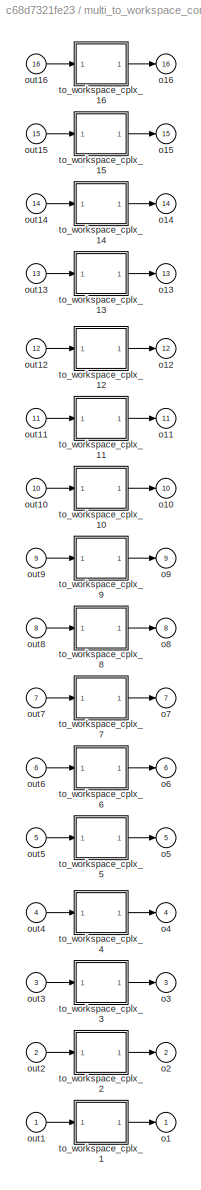
BLOCK [SubSystem] multi_to_workspace_complex
  FunctionWithSeparateData = off
  MaskHideContents = off
  MinAlgLoopOccurrences = off
  Opaque = off
  Ports = [16, 16]
  PropExecContextOutsideSubsystem = off
  RTWSystemCode = Auto
  RequestExecContextInheritance = off
BLOCK [Outport] multi_to_workspace_complex/o1
  IconDisplay = Port number
BLOCK [Outport] multi_to_workspace_complex/o10
  IconDisplay = Port number
  Port = 10
BLOCK [Outport] multi_to_workspace_complex/o11
  IconDisplay = Port number
  Port = 11
BLOCK [Outport] multi_to_workspace_complex/o12
  IconDisplay = Port number
  Port = 12
BLOCK [Outport] multi_to_workspace_complex/o13
  IconDisplay = Port number
  Port = 13
BLOCK [Outport] multi_to_workspace_complex/o14
  IconDisplay = Port number
  Port = 14
BLOCK [Outport] multi_to_workspace_complex/o15
  IconDisplay = Port number
  Port = 15
BLOCK [Outport] multi_to_workspace_complex/o16
  IconDisplay = Port number
  Port = 16
BLOCK [Outport] multi_to_workspace_complex/o2
  IconDisplay = Port number
  Port = 2
BLOCK [Outport] multi_to_workspace_complex/o3
  IconDisplay = Port number
  Port = 3
BLOCK [Outport] multi_to_workspace_complex/o4
  IconDisplay = Port number
  Port = 4
BLOCK [Outport] multi_to_workspace_complex/o5
  IconDisplay = Port number
  Port = 5
BLOCK [Outport] multi_to_workspace_complex/o6
  IconDisplay = Port number
  Port = 6
BLOCK [Outport] multi_to_workspace_complex/o7
  IconDisplay = Port number
  Port = 7
BLOCK [Outport] multi_to_workspace_complex/o8
  IconDisplay = Port number
  Port = 8
BLOCK [Outport] multi_to_workspace_complex/o9
  IconDisplay = Port number
  Port = 9
BLOCK [Inport] multi_to_workspace_complex/out1
  IconDisplay = Port number
BLOCK [Inport] multi_to_workspace_complex/out10
  IconDisplay = Port number
  Port = 10
BLOCK [Inport] multi_to_workspace_complex/out11
  IconDisplay = Port number
  Port = 11
BLOCK [Inport] multi_to_workspace_complex/out12
  IconDisplay = Port number
  Port = 12
BLOCK [Inport] multi_to_workspace_complex/out13
  IconDisplay = Port number
  Port = 13
BLOCK [Inport] multi_to_workspace_complex/out14
  IconDisplay = Port number
  Port = 14
BLOCK [Inport] multi_to_workspace_complex/out15
  IconDisplay = Port number
  Port = 15
BLOCK [Inport] multi_to_workspace_complex/out16
  IconDisplay = Port number
  Port = 16
BLOCK [Inport] multi_to_workspace_complex/out2
  IconDisplay = Port number
  Port = 2
BLOCK [Inport] multi_to_workspace_complex/out3
  IconDisplay = Port number
  Port = 3
BLOCK [Inport] multi_to_workspace_complex/out4
  IconDisplay = Port number
  Port = 4
BLOCK [Inport] multi_to_workspace_complex/out5
  IconDisplay = Port number
  Port = 5
BLOCK [Inport] multi_to_workspace_complex/out6
  IconDisplay = Port number
  Port = 6
BLOCK [Inport] multi_to_workspace_complex/out7
  IconDisplay = Port number
  Port = 7
BLOCK [Inport] multi_to_workspace_complex/out8
  IconDisplay = Port number
  Port = 8
BLOCK [Inport] multi_to_workspace_complex/out9
  IconDisplay = Port number
  Port = 9
BLOCK [SubSystem] multi_to_workspace_complex/to_workspace_cplx_1
  FunctionWithSeparateData = off
  MaskHideContents = off
  MinAlgLoopOccurrences = off
  Opaque = off
  Ports = [1, 1]
  PropExecContextOutsideSubsystem = off
  RTWSystemCode = Auto
  RequestExecContextInheritance = off
BLOCK [Outport] multi_to_workspace_complex/to_workspace_cplx_1/_o
  IconDisplay = Port number
BLOCK [SubSystem] multi_to_workspace_complex/to_workspace_cplx_1/c_to_ri
  FunctionWithSeparateData = off
  MaskHideContents = off
  MinAlgLoopOccurrences = off
  Opaque = off
  Ports = [1, 2]
  PropExecContextOutsideSubsystem = off
  RTWSystemCode = Auto
  RequestExecContextInheritance = off
BLOCK [Inport] multi_to_workspace_complex/to_workspace_cplx_1/c_to_ri/c
  IconDisplay = Port number
BLOCK [Reference] multi_to_workspace_complex/to_workspace_cplx_1/c_to_ri/force_im  REF=xbsIndex_r4/Reinterpret
  Ports = [1, 1]
  SourceBlock = xbsIndex_r4/Reinterpret
  SourceType = Xilinx Type Reinterpreter Block
  arith_type = Signed  (2's comp)
  bin_pt = 17
  block_type = reinterpret
  force_arith_type = on
  force_bin_pt = on
  has_advanced_control = 0
  sg_icon_stat = 50,32,1,1,white,blue,0,6b04d0b0,right,,[ ],[ ]
  sggui_pos = -1,-1,-1,-1
BLOCK [Reference] multi_to_workspace_complex/to_workspace_cplx_1/c_to_ri/force_re  REF=xbsIndex_r4/Reinterpret
  Ports = [1, 1]
  SourceBlock = xbsIndex_r4/Reinterpret
  SourceType = Xilinx Type Reinterpreter Block
  arith_type = Signed  (2's comp)
  bin_pt = 17
  block_type = reinterpret
  force_arith_type = on
  force_bin_pt = on
  has_advanced_control = 0
  sg_icon_stat = 50,32,1,1,white,blue,0,6b04d0b0,right,,[ ],[ ]
  sggui_pos = -1,-1,-1,-1
BLOCK [Outport] multi_to_workspace_complex/to_workspace_cplx_1/c_to_ri/im
  IconDisplay = Port number
  Port = 2
BLOCK [Outport] multi_to_workspace_complex/to_workspace_cplx_1/c_to_ri/re
  IconDisplay = Port number
BLOCK [Reference] multi_to_workspace_complex/to_workspace_cplx_1/c_to_ri/slice_im  REF=xbsIndex_r4/Slice
  Ports = [1, 1]
  SourceBlock = xbsIndex_r4/Slice
  SourceType = Xilinx Bit Slice Extractor Block
  base0 = LSB of Input
  base1 = MSB of Input
  bit0 = 0
  bit1 = 0
  block_type = slice
  boolean_output = off
  dbl_ovrd = off
  has_advanced_control = 0
  infoedit = Extracts a given range of bits from each input sample and presents it at the output.  The output type is ordinarily unsigned with binary point at zero, but can be Boolean when the slice is one bit wide.<br><br>Hardware notes: In hardware this block costs nothing.  <repeated x112 — deduplicated; at blocks: slice_im, slice_re, Slice>
  mode = Lower Bit Location + Width
  nbits = 18
  sg_icon_stat = 60,30,1,1,white,blue,0,1fd851a7,right,,[ ],[ ]
  sg_mask_display = fprintf('','COMMENT: begin icon graphics');\npatch([0 60 60 0 0 ],[0 0 30 30 0 ],[0.77 0.82 0.91 ]);\nplot([0 60 60 0 0 ],[0 0 30 30 0 ]);\npatch([21.1 26.88 30.88 34.88 38.88 30.88 25.1 21.1 ],[19.44 19.44 23.44 19.44 23.44 23.44 23.44 19.44 ],[1 1 1 ]);\npatch([25.1 30.88 26.88 21.1 25.1 ],[15.44 15.44 19.44 19.44 15.44 ],[0.931 0.946 0.973 ]);\npatch([21.1 26.88 30.88 25.1 21.1 ],[11.44 11.44 15.44 ...<+304ch>  <repeated x32 — deduplicated; at blocks: slice_im, slice_re>
  sggui_pos = -1,-1,-1,-1
BLOCK [Reference] multi_to_workspace_complex/to_workspace_cplx_1/c_to_ri/slice_re  REF=xbsIndex_r4/Slice
  Ports = [1, 1]
  SourceBlock = xbsIndex_r4/Slice
  SourceType = Xilinx Bit Slice Extractor Block
  base0 = LSB of Input
  base1 = MSB of Input
  bit0 = 0
  bit1 = 0
  block_type = slice
  boolean_output = off
  dbl_ovrd = off
  has_advanced_control = 0
  mode = Upper Bit Location + Width
  nbits = 18
  sg_icon_stat = 60,30,1,1,white,blue,0,1fd851a7,right,,[ ],[ ]
  sggui_pos = -1,-1,-1,-1
BLOCK [Reference] multi_to_workspace_complex/to_workspace_cplx_1/imag_gateway  REF=xbsIndex_r4/Gateway Out
  DACChannel = '1'
  LOCs = {}
  Ports = [1, 1]
  SourceBlock = xbsIndex_r4/Gateway Out
  SourceType = Xilinx Gateway Out Block
  UseAsDAC = off
  block_type = gatewayout
  has_advanced_control = 0
  hdl_port = off
  infoedit = Gateway out block.  Converts Xilinx fixed-point or floating-point type inputs into ouputs of type Simulink integer, single, double, or fixed-point.<br><br>Hardware notes:  In hardware these blocks become top level output ports or are discarded, depending on how they are configured.  <repeated x33 — deduplicated; at blocks: imag_gateway, real_gateway, gateway>
  inherit_from_input = on
  locs_specified = off
  sg_icon_stat = 60,20,1,1,white,grey,1,632ec840,right,,[ ],[ ]
  sg_mask_display = fprintf('','COMMENT: begin icon graphics');\npatch([0 60 60 0 0 ],[0 0 20 20 0 ],[0.88 0.88 0.88 ]);\nplot([0 60 60 0 0 ],[0 0 20 20 0 ]);\npatch([25.55 28.44 30.44 32.44 34.44 30.44 27.55 25.55 ],[12.22 12.22 14.22 12.22 14.22 14.22 14.22 12.22 ],[1 1 1 ]);\npatch([27.55 30.44 28.44 25.55 27.55 ],[10.22 10.22 12.22 12.22 10.22 ],[0.964 0.964 0.964 ]);\npatch([25.55 28.44 30.44 27.55 25.55 ],[8.22 8.22...<+381ch>  <repeated x33 — deduplicated; at blocks: imag_gateway, real_gateway, gateway>
  sggui_pos = -1,-1,-1,-1
  timing_constraint = None
  xl_area = [0,0,0,0,0,0,0]
  xl_use_area = off
BLOCK [Inport] multi_to_workspace_complex/to_workspace_cplx_1/out1
  IconDisplay = Port number
BLOCK [Reference] multi_to_workspace_complex/to_workspace_cplx_1/real_gateway  REF=xbsIndex_r4/Gateway Out
  DACChannel = '1'
  LOCs = {}
  Ports = [1, 1]
  SourceBlock = xbsIndex_r4/Gateway Out
  SourceType = Xilinx Gateway Out Block
  UseAsDAC = off
  block_type = gatewayout
  has_advanced_control = 0
  hdl_port = off
  inherit_from_input = on
  locs_specified = off
  sg_icon_stat = 60,20,1,1,white,grey,1,632ec840,right,,[ ],[ ]
  sggui_pos = -1,-1,-1,-1
  timing_constraint = None
  xl_area = [0,0,0,0,0,0,0]
  xl_use_area = off
BLOCK [RealImagToComplex] multi_to_workspace_complex/to_workspace_cplx_1/ri_to_c
  Ports = [2, 1]
BLOCK [ToWorkspace] multi_to_workspace_complex/to_workspace_cplx_1/workspace_output
  MaxDataPoints = inf
  Ports = [1]
  SampleTime = -1
  VariableName = out1
BLOCK [SubSystem] multi_to_workspace_complex/to_workspace_cplx_10
  FunctionWithSeparateData = off
  MaskHideContents = off
  MinAlgLoopOccurrences = off
  Opaque = off
  Ports = [1, 1]
  PropExecContextOutsideSubsystem = off
  RTWSystemCode = Auto
  RequestExecContextInheritance = off
BLOCK [Outport] multi_to_workspace_complex/to_workspace_cplx_10/_o
  IconDisplay = Port number
BLOCK [SubSystem] multi_to_workspace_complex/to_workspace_cplx_10/c_to_ri
  FunctionWithSeparateData = off
  MaskHideContents = off
  MinAlgLoopOccurrences = off
  Opaque = off
  Ports = [1, 2]
  PropExecContextOutsideSubsystem = off
  RTWSystemCode = Auto
  RequestExecContextInheritance = off
BLOCK [Inport] multi_to_workspace_complex/to_workspace_cplx_10/c_to_ri/c
  IconDisplay = Port number
BLOCK [Reference] multi_to_workspace_complex/to_workspace_cplx_10/c_to_ri/force_im  REF=xbsIndex_r4/Reinterpret
  Ports = [1, 1]
  SourceBlock = xbsIndex_r4/Reinterpret
  SourceType = Xilinx Type Reinterpreter Block
  arith_type = Signed  (2's comp)
  bin_pt = 17
  block_type = reinterpret
  force_arith_type = on
  force_bin_pt = on
  has_advanced_control = 0
  sg_icon_stat = 50,32,1,1,white,blue,0,6b04d0b0,right,,[ ],[ ]
  sggui_pos = -1,-1,-1,-1
BLOCK [Reference] multi_to_workspace_complex/to_workspace_cplx_10/c_to_ri/force_re  REF=xbsIndex_r4/Reinterpret
  Ports = [1, 1]
  SourceBlock = xbsIndex_r4/Reinterpret
  SourceType = Xilinx Type Reinterpreter Block
  arith_type = Signed  (2's comp)
  bin_pt = 17
  block_type = reinterpret
  force_arith_type = on
  force_bin_pt = on
  has_advanced_control = 0
  sg_icon_stat = 50,32,1,1,white,blue,0,6b04d0b0,right,,[ ],[ ]
  sggui_pos = -1,-1,-1,-1
BLOCK [Outport] multi_to_workspace_complex/to_workspace_cplx_10/c_to_ri/im
  IconDisplay = Port number
  Port = 2
BLOCK [Outport] multi_to_workspace_complex/to_workspace_cplx_10/c_to_ri/re
  IconDisplay = Port number
BLOCK [Reference] multi_to_workspace_complex/to_workspace_cplx_10/c_to_ri/slice_im  REF=xbsIndex_r4/Slice
  Ports = [1, 1]
  SourceBlock = xbsIndex_r4/Slice
  SourceType = Xilinx Bit Slice Extractor Block
  base0 = LSB of Input
  base1 = MSB of Input
  bit0 = 0
  bit1 = 0
  block_type = slice
  boolean_output = off
  dbl_ovrd = off
  has_advanced_control = 0
  mode = Lower Bit Location + Width
  nbits = 18
  sg_icon_stat = 60,30,1,1,white,blue,0,1fd851a7,right,,[ ],[ ]
  sggui_pos = -1,-1,-1,-1
BLOCK [Reference] multi_to_workspace_complex/to_workspace_cplx_10/c_to_ri/slice_re  REF=xbsIndex_r4/Slice
  Ports = [1, 1]
  SourceBlock = xbsIndex_r4/Slice
  SourceType = Xilinx Bit Slice Extractor Block
  base0 = LSB of Input
  base1 = MSB of Input
  bit0 = 0
  bit1 = 0
  block_type = slice
  boolean_output = off
  dbl_ovrd = off
  has_advanced_control = 0
  mode = Upper Bit Location + Width
  nbits = 18
  sg_icon_stat = 60,30,1,1,white,blue,0,1fd851a7,right,,[ ],[ ]
  sggui_pos = -1,-1,-1,-1
BLOCK [Reference] multi_to_workspace_complex/to_workspace_cplx_10/imag_gateway  REF=xbsIndex_r4/Gateway Out
  DACChannel = '1'
  LOCs = {}
  Ports = [1, 1]
  SourceBlock = xbsIndex_r4/Gateway Out
  SourceType = Xilinx Gateway Out Block
  UseAsDAC = off
  block_type = gatewayout
  has_advanced_control = 0
  hdl_port = off
  inherit_from_input = on
  locs_specified = off
  sg_icon_stat = 60,20,1,1,white,grey,1,632ec840,right,,[ ],[ ]
  sggui_pos = -1,-1,-1,-1
  timing_constraint = None
  xl_area = [0,0,0,0,0,0,0]
  xl_use_area = off
BLOCK [Inport] multi_to_workspace_complex/to_workspace_cplx_10/out10
  IconDisplay = Port number
BLOCK [Reference] multi_to_workspace_complex/to_workspace_cplx_10/real_gateway  REF=xbsIndex_r4/Gateway Out
  DACChannel = '1'
  LOCs = {}
  Ports = [1, 1]
  SourceBlock = xbsIndex_r4/Gateway Out
  SourceType = Xilinx Gateway Out Block
  UseAsDAC = off
  block_type = gatewayout
  has_advanced_control = 0
  hdl_port = off
  inherit_from_input = on
  locs_specified = off
  sg_icon_stat = 60,20,1,1,white,grey,1,632ec840,right,,[ ],[ ]
  sggui_pos = -1,-1,-1,-1
  timing_constraint = None
  xl_area = [0,0,0,0,0,0,0]
  xl_use_area = off
BLOCK [RealImagToComplex] multi_to_workspace_complex/to_workspace_cplx_10/ri_to_c
  Ports = [2, 1]
BLOCK [ToWorkspace] multi_to_workspace_complex/to_workspace_cplx_10/workspace_output
  MaxDataPoints = inf
  Ports = [1]
  SampleTime = -1
  VariableName = out10
BLOCK [SubSystem] multi_to_workspace_complex/to_workspace_cplx_11
  FunctionWithSeparateData = off
  MaskHideContents = off
  MinAlgLoopOccurrences = off
  Opaque = off
  Ports = [1, 1]
  PropExecContextOutsideSubsystem = off
  RTWSystemCode = Auto
  RequestExecContextInheritance = off
BLOCK [Outport] multi_to_workspace_complex/to_workspace_cplx_11/_o
  IconDisplay = Port number
BLOCK [SubSystem] multi_to_workspace_complex/to_workspace_cplx_11/c_to_ri
  FunctionWithSeparateData = off
  MaskHideContents = off
  MinAlgLoopOccurrences = off
  Opaque = off
  Ports = [1, 2]
  PropExecContextOutsideSubsystem = off
  RTWSystemCode = Auto
  RequestExecContextInheritance = off
BLOCK [Inport] multi_to_workspace_complex/to_workspace_cplx_11/c_to_ri/c
  IconDisplay = Port number
BLOCK [Reference] multi_to_workspace_complex/to_workspace_cplx_11/c_to_ri/force_im  REF=xbsIndex_r4/Reinterpret
  Ports = [1, 1]
  SourceBlock = xbsIndex_r4/Reinterpret
  SourceType = Xilinx Type Reinterpreter Block
  arith_type = Signed  (2's comp)
  bin_pt = 17
  block_type = reinterpret
  force_arith_type = on
  force_bin_pt = on
  has_advanced_control = 0
  sg_icon_stat = 50,32,1,1,white,blue,0,6b04d0b0,right,,[ ],[ ]
  sggui_pos = -1,-1,-1,-1
BLOCK [Reference] multi_to_workspace_complex/to_workspace_cplx_11/c_to_ri/force_re  REF=xbsIndex_r4/Reinterpret
  Ports = [1, 1]
  SourceBlock = xbsIndex_r4/Reinterpret
  SourceType = Xilinx Type Reinterpreter Block
  arith_type = Signed  (2's comp)
  bin_pt = 17
  block_type = reinterpret
  force_arith_type = on
  force_bin_pt = on
  has_advanced_control = 0
  sg_icon_stat = 50,32,1,1,white,blue,0,6b04d0b0,right,,[ ],[ ]
  sggui_pos = -1,-1,-1,-1
BLOCK [Outport] multi_to_workspace_complex/to_workspace_cplx_11/c_to_ri/im
  IconDisplay = Port number
  Port = 2
BLOCK [Outport] multi_to_workspace_complex/to_workspace_cplx_11/c_to_ri/re
  IconDisplay = Port number
BLOCK [Reference] multi_to_workspace_complex/to_workspace_cplx_11/c_to_ri/slice_im  REF=xbsIndex_r4/Slice
  Ports = [1, 1]
  SourceBlock = xbsIndex_r4/Slice
  SourceType = Xilinx Bit Slice Extractor Block
  base0 = LSB of Input
  base1 = MSB of Input
  bit0 = 0
  bit1 = 0
  block_type = slice
  boolean_output = off
  dbl_ovrd = off
  has_advanced_control = 0
  mode = Lower Bit Location + Width
  nbits = 18
  sg_icon_stat = 60,30,1,1,white,blue,0,1fd851a7,right,,[ ],[ ]
  sggui_pos = -1,-1,-1,-1
BLOCK [Reference] multi_to_workspace_complex/to_workspace_cplx_11/c_to_ri/slice_re  REF=xbsIndex_r4/Slice
  Ports = [1, 1]
  SourceBlock = xbsIndex_r4/Slice
  SourceType = Xilinx Bit Slice Extractor Block
  base0 = LSB of Input
  base1 = MSB of Input
  bit0 = 0
  bit1 = 0
  block_type = slice
  boolean_output = off
  dbl_ovrd = off
  has_advanced_control = 0
  mode = Upper Bit Location + Width
  nbits = 18
  sg_icon_stat = 60,30,1,1,white,blue,0,1fd851a7,right,,[ ],[ ]
  sggui_pos = -1,-1,-1,-1
BLOCK [Reference] multi_to_workspace_complex/to_workspace_cplx_11/imag_gateway  REF=xbsIndex_r4/Gateway Out
  DACChannel = '1'
  LOCs = {}
  Ports = [1, 1]
  SourceBlock = xbsIndex_r4/Gateway Out
  SourceType = Xilinx Gateway Out Block
  UseAsDAC = off
  block_type = gatewayout
  has_advanced_control = 0
  hdl_port = off
  inherit_from_input = on
  locs_specified = off
  sg_icon_stat = 60,20,1,1,white,grey,1,632ec840,right,,[ ],[ ]
  sggui_pos = -1,-1,-1,-1
  timing_constraint = None
  xl_area = [0,0,0,0,0,0,0]
  xl_use_area = off
BLOCK [Inport] multi_to_workspace_complex/to_workspace_cplx_11/out11
  IconDisplay = Port number
BLOCK [Reference] multi_to_workspace_complex/to_workspace_cplx_11/real_gateway  REF=xbsIndex_r4/Gateway Out
  DACChannel = '1'
  LOCs = {}
  Ports = [1, 1]
  SourceBlock = xbsIndex_r4/Gateway Out
  SourceType = Xilinx Gateway Out Block
  UseAsDAC = off
  block_type = gatewayout
  has_advanced_control = 0
  hdl_port = off
  inherit_from_input = on
  locs_specified = off
  sg_icon_stat = 60,20,1,1,white,grey,1,632ec840,right,,[ ],[ ]
  sggui_pos = -1,-1,-1,-1
  timing_constraint = None
  xl_area = [0,0,0,0,0,0,0]
  xl_use_area = off
BLOCK [RealImagToComplex] multi_to_workspace_complex/to_workspace_cplx_11/ri_to_c
  Ports = [2, 1]
BLOCK [ToWorkspace] multi_to_workspace_complex/to_workspace_cplx_11/workspace_output
  MaxDataPoints = inf
  Ports = [1]
  SampleTime = -1
  VariableName = out11
BLOCK [SubSystem] multi_to_workspace_complex/to_workspace_cplx_12
  FunctionWithSeparateData = off
  MaskHideContents = off
  MinAlgLoopOccurrences = off
  Opaque = off
  Ports = [1, 1]
  PropExecContextOutsideSubsystem = off
  RTWSystemCode = Auto
  RequestExecContextInheritance = off
BLOCK [Outport] multi_to_workspace_complex/to_workspace_cplx_12/_o
  IconDisplay = Port number
BLOCK [SubSystem] multi_to_workspace_complex/to_workspace_cplx_12/c_to_ri
  FunctionWithSeparateData = off
  MaskHideContents = off
  MinAlgLoopOccurrences = off
  Opaque = off
  Ports = [1, 2]
  PropExecContextOutsideSubsystem = off
  RTWSystemCode = Auto
  RequestExecContextInheritance = off
BLOCK [Inport] multi_to_workspace_complex/to_workspace_cplx_12/c_to_ri/c
  IconDisplay = Port number
BLOCK [Reference] multi_to_workspace_complex/to_workspace_cplx_12/c_to_ri/force_im  REF=xbsIndex_r4/Reinterpret
  Ports = [1, 1]
  SourceBlock = xbsIndex_r4/Reinterpret
  SourceType = Xilinx Type Reinterpreter Block
  arith_type = Signed  (2's comp)
  bin_pt = 17
  block_type = reinterpret
  force_arith_type = on
  force_bin_pt = on
  has_advanced_control = 0
  sg_icon_stat = 50,32,1,1,white,blue,0,6b04d0b0,right,,[ ],[ ]
  sggui_pos = -1,-1,-1,-1
BLOCK [Reference] multi_to_workspace_complex/to_workspace_cplx_12/c_to_ri/force_re  REF=xbsIndex_r4/Reinterpret
  Ports = [1, 1]
  SourceBlock = xbsIndex_r4/Reinterpret
  SourceType = Xilinx Type Reinterpreter Block
  arith_type = Signed  (2's comp)
  bin_pt = 17
  block_type = reinterpret
  force_arith_type = on
  force_bin_pt = on
  has_advanced_control = 0
  sg_icon_stat = 50,32,1,1,white,blue,0,6b04d0b0,right,,[ ],[ ]
  sggui_pos = -1,-1,-1,-1
BLOCK [Outport] multi_to_workspace_complex/to_workspace_cplx_12/c_to_ri/im
  IconDisplay = Port number
  Port = 2
BLOCK [Outport] multi_to_workspace_complex/to_workspace_cplx_12/c_to_ri/re
  IconDisplay = Port number
BLOCK [Reference] multi_to_workspace_complex/to_workspace_cplx_12/c_to_ri/slice_im  REF=xbsIndex_r4/Slice
  Ports = [1, 1]
  SourceBlock = xbsIndex_r4/Slice
  SourceType = Xilinx Bit Slice Extractor Block
  base0 = LSB of Input
  base1 = MSB of Input
  bit0 = 0
  bit1 = 0
  block_type = slice
  boolean_output = off
  dbl_ovrd = off
  has_advanced_control = 0
  mode = Lower Bit Location + Width
  nbits = 18
  sg_icon_stat = 60,30,1,1,white,blue,0,1fd851a7,right,,[ ],[ ]
  sggui_pos = -1,-1,-1,-1
BLOCK [Reference] multi_to_workspace_complex/to_workspace_cplx_12/c_to_ri/slice_re  REF=xbsIndex_r4/Slice
  Ports = [1, 1]
  SourceBlock = xbsIndex_r4/Slice
  SourceType = Xilinx Bit Slice Extractor Block
  base0 = LSB of Input
  base1 = MSB of Input
  bit0 = 0
  bit1 = 0
  block_type = slice
  boolean_output = off
  dbl_ovrd = off
  has_advanced_control = 0
  mode = Upper Bit Location + Width
  nbits = 18
  sg_icon_stat = 60,30,1,1,white,blue,0,1fd851a7,right,,[ ],[ ]
  sggui_pos = -1,-1,-1,-1
BLOCK [Reference] multi_to_workspace_complex/to_workspace_cplx_12/imag_gateway  REF=xbsIndex_r4/Gateway Out
  DACChannel = '1'
  LOCs = {}
  Ports = [1, 1]
  SourceBlock = xbsIndex_r4/Gateway Out
  SourceType = Xilinx Gateway Out Block
  UseAsDAC = off
  block_type = gatewayout
  has_advanced_control = 0
  hdl_port = off
  inherit_from_input = on
  locs_specified = off
  sg_icon_stat = 60,20,1,1,white,grey,1,632ec840,right,,[ ],[ ]
  sggui_pos = -1,-1,-1,-1
  timing_constraint = None
  xl_area = [0,0,0,0,0,0,0]
  xl_use_area = off
BLOCK [Inport] multi_to_workspace_complex/to_workspace_cplx_12/out12
  IconDisplay = Port number
BLOCK [Reference] multi_to_workspace_complex/to_workspace_cplx_12/real_gateway  REF=xbsIndex_r4/Gateway Out
  DACChannel = '1'
  LOCs = {}
  Ports = [1, 1]
  SourceBlock = xbsIndex_r4/Gateway Out
  SourceType = Xilinx Gateway Out Block
  UseAsDAC = off
  block_type = gatewayout
  has_advanced_control = 0
  hdl_port = off
  inherit_from_input = on
  locs_specified = off
  sg_icon_stat = 60,20,1,1,white,grey,1,632ec840,right,,[ ],[ ]
  sggui_pos = -1,-1,-1,-1
  timing_constraint = None
  xl_area = [0,0,0,0,0,0,0]
  xl_use_area = off
BLOCK [RealImagToComplex] multi_to_workspace_complex/to_workspace_cplx_12/ri_to_c
  Ports = [2, 1]
BLOCK [ToWorkspace] multi_to_workspace_complex/to_workspace_cplx_12/workspace_output
  MaxDataPoints = inf
  Ports = [1]
  SampleTime = -1
  VariableName = out12
BLOCK [SubSystem] multi_to_workspace_complex/to_workspace_cplx_13
  FunctionWithSeparateData = off
  MaskHideContents = off
  MinAlgLoopOccurrences = off
  Opaque = off
  Ports = [1, 1]
  PropExecContextOutsideSubsystem = off
  RTWSystemCode = Auto
  RequestExecContextInheritance = off
BLOCK [Outport] multi_to_workspace_complex/to_workspace_cplx_13/_o
  IconDisplay = Port number
BLOCK [SubSystem] multi_to_workspace_complex/to_workspace_cplx_13/c_to_ri
  FunctionWithSeparateData = off
  MaskHideContents = off
  MinAlgLoopOccurrences = off
  Opaque = off
  Ports = [1, 2]
  PropExecContextOutsideSubsystem = off
  RTWSystemCode = Auto
  RequestExecContextInheritance = off
BLOCK [Inport] multi_to_workspace_complex/to_workspace_cplx_13/c_to_ri/c
  IconDisplay = Port number
BLOCK [Reference] multi_to_workspace_complex/to_workspace_cplx_13/c_to_ri/force_im  REF=xbsIndex_r4/Reinterpret
  Ports = [1, 1]
  SourceBlock = xbsIndex_r4/Reinterpret
  SourceType = Xilinx Type Reinterpreter Block
  arith_type = Signed  (2's comp)
  bin_pt = 17
  block_type = reinterpret
  force_arith_type = on
  force_bin_pt = on
  has_advanced_control = 0
  sg_icon_stat = 50,32,1,1,white,blue,0,6b04d0b0,right,,[ ],[ ]
  sggui_pos = -1,-1,-1,-1
BLOCK [Reference] multi_to_workspace_complex/to_workspace_cplx_13/c_to_ri/force_re  REF=xbsIndex_r4/Reinterpret
  Ports = [1, 1]
  SourceBlock = xbsIndex_r4/Reinterpret
  SourceType = Xilinx Type Reinterpreter Block
  arith_type = Signed  (2's comp)
  bin_pt = 17
  block_type = reinterpret
  force_arith_type = on
  force_bin_pt = on
  has_advanced_control = 0
  sg_icon_stat = 50,32,1,1,white,blue,0,6b04d0b0,right,,[ ],[ ]
  sggui_pos = -1,-1,-1,-1
BLOCK [Outport] multi_to_workspace_complex/to_workspace_cplx_13/c_to_ri/im
  IconDisplay = Port number
  Port = 2
BLOCK [Outport] multi_to_workspace_complex/to_workspace_cplx_13/c_to_ri/re
  IconDisplay = Port number
BLOCK [Reference] multi_to_workspace_complex/to_workspace_cplx_13/c_to_ri/slice_im  REF=xbsIndex_r4/Slice
  Ports = [1, 1]
  SourceBlock = xbsIndex_r4/Slice
  SourceType = Xilinx Bit Slice Extractor Block
  base0 = LSB of Input
  base1 = MSB of Input
  bit0 = 0
  bit1 = 0
  block_type = slice
  boolean_output = off
  dbl_ovrd = off
  has_advanced_control = 0
  mode = Lower Bit Location + Width
  nbits = 18
  sg_icon_stat = 60,30,1,1,white,blue,0,1fd851a7,right,,[ ],[ ]
  sggui_pos = -1,-1,-1,-1
BLOCK [Reference] multi_to_workspace_complex/to_workspace_cplx_13/c_to_ri/slice_re  REF=xbsIndex_r4/Slice
  Ports = [1, 1]
  SourceBlock = xbsIndex_r4/Slice
  SourceType = Xilinx Bit Slice Extractor Block
  base0 = LSB of Input
  base1 = MSB of Input
  bit0 = 0
  bit1 = 0
  block_type = slice
  boolean_output = off
  dbl_ovrd = off
  has_advanced_control = 0
  mode = Upper Bit Location + Width
  nbits = 18
  sg_icon_stat = 60,30,1,1,white,blue,0,1fd851a7,right,,[ ],[ ]
  sggui_pos = -1,-1,-1,-1
BLOCK [Reference] multi_to_workspace_complex/to_workspace_cplx_13/imag_gateway  REF=xbsIndex_r4/Gateway Out
  DACChannel = '1'
  LOCs = {}
  Ports = [1, 1]
  SourceBlock = xbsIndex_r4/Gateway Out
  SourceType = Xilinx Gateway Out Block
  UseAsDAC = off
  block_type = gatewayout
  has_advanced_control = 0
  hdl_port = off
  inherit_from_input = on
  locs_specified = off
  sg_icon_stat = 60,20,1,1,white,grey,1,632ec840,right,,[ ],[ ]
  sggui_pos = -1,-1,-1,-1
  timing_constraint = None
  xl_area = [0,0,0,0,0,0,0]
  xl_use_area = off
BLOCK [Inport] multi_to_workspace_complex/to_workspace_cplx_13/out13
  IconDisplay = Port number
BLOCK [Reference] multi_to_workspace_complex/to_workspace_cplx_13/real_gateway  REF=xbsIndex_r4/Gateway Out
  DACChannel = '1'
  LOCs = {}
  Ports = [1, 1]
  SourceBlock = xbsIndex_r4/Gateway Out
  SourceType = Xilinx Gateway Out Block
  UseAsDAC = off
  block_type = gatewayout
  has_advanced_control = 0
  hdl_port = off
  inherit_from_input = on
  locs_specified = off
  sg_icon_stat = 60,20,1,1,white,grey,1,632ec840,right,,[ ],[ ]
  sggui_pos = -1,-1,-1,-1
  timing_constraint = None
  xl_area = [0,0,0,0,0,0,0]
  xl_use_area = off
BLOCK [RealImagToComplex] multi_to_workspace_complex/to_workspace_cplx_13/ri_to_c
  Ports = [2, 1]
BLOCK [ToWorkspace] multi_to_workspace_complex/to_workspace_cplx_13/workspace_output
  MaxDataPoints = inf
  Ports = [1]
  SampleTime = -1
  VariableName = out13
BLOCK [SubSystem] multi_to_workspace_complex/to_workspace_cplx_14
  FunctionWithSeparateData = off
  MaskHideContents = off
  MinAlgLoopOccurrences = off
  Opaque = off
  Ports = [1, 1]
  PropExecContextOutsideSubsystem = off
  RTWSystemCode = Auto
  RequestExecContextInheritance = off
BLOCK [Outport] multi_to_workspace_complex/to_workspace_cplx_14/_o
  IconDisplay = Port number
BLOCK [SubSystem] multi_to_workspace_complex/to_workspace_cplx_14/c_to_ri
  FunctionWithSeparateData = off
  MaskHideContents = off
  MinAlgLoopOccurrences = off
  Opaque = off
  Ports = [1, 2]
  PropExecContextOutsideSubsystem = off
  RTWSystemCode = Auto
  RequestExecContextInheritance = off
BLOCK [Inport] multi_to_workspace_complex/to_workspace_cplx_14/c_to_ri/c
  IconDisplay = Port number
BLOCK [Reference] multi_to_workspace_complex/to_workspace_cplx_14/c_to_ri/force_im  REF=xbsIndex_r4/Reinterpret
  Ports = [1, 1]
  SourceBlock = xbsIndex_r4/Reinterpret
  SourceType = Xilinx Type Reinterpreter Block
  arith_type = Signed  (2's comp)
  bin_pt = 17
  block_type = reinterpret
  force_arith_type = on
  force_bin_pt = on
  has_advanced_control = 0
  sg_icon_stat = 50,32,1,1,white,blue,0,6b04d0b0,right,,[ ],[ ]
  sggui_pos = -1,-1,-1,-1
BLOCK [Reference] multi_to_workspace_complex/to_workspace_cplx_14/c_to_ri/force_re  REF=xbsIndex_r4/Reinterpret
  Ports = [1, 1]
  SourceBlock = xbsIndex_r4/Reinterpret
  SourceType = Xilinx Type Reinterpreter Block
  arith_type = Signed  (2's comp)
  bin_pt = 17
  block_type = reinterpret
  force_arith_type = on
  force_bin_pt = on
  has_advanced_control = 0
  sg_icon_stat = 50,32,1,1,white,blue,0,6b04d0b0,right,,[ ],[ ]
  sggui_pos = -1,-1,-1,-1
BLOCK [Outport] multi_to_workspace_complex/to_workspace_cplx_14/c_to_ri/im
  IconDisplay = Port number
  Port = 2
BLOCK [Outport] multi_to_workspace_complex/to_workspace_cplx_14/c_to_ri/re
  IconDisplay = Port number
BLOCK [Reference] multi_to_workspace_complex/to_workspace_cplx_14/c_to_ri/slice_im  REF=xbsIndex_r4/Slice
  Ports = [1, 1]
  SourceBlock = xbsIndex_r4/Slice
  SourceType = Xilinx Bit Slice Extractor Block
  base0 = LSB of Input
  base1 = MSB of Input
  bit0 = 0
  bit1 = 0
  block_type = slice
  boolean_output = off
  dbl_ovrd = off
  has_advanced_control = 0
  mode = Lower Bit Location + Width
  nbits = 18
  sg_icon_stat = 60,30,1,1,white,blue,0,1fd851a7,right,,[ ],[ ]
  sggui_pos = -1,-1,-1,-1
BLOCK [Reference] multi_to_workspace_complex/to_workspace_cplx_14/c_to_ri/slice_re  REF=xbsIndex_r4/Slice
  Ports = [1, 1]
  SourceBlock = xbsIndex_r4/Slice
  SourceType = Xilinx Bit Slice Extractor Block
  base0 = LSB of Input
  base1 = MSB of Input
  bit0 = 0
  bit1 = 0
  block_type = slice
  boolean_output = off
  dbl_ovrd = off
  has_advanced_control = 0
  mode = Upper Bit Location + Width
  nbits = 18
  sg_icon_stat = 60,30,1,1,white,blue,0,1fd851a7,right,,[ ],[ ]
  sggui_pos = -1,-1,-1,-1
BLOCK [Reference] multi_to_workspace_complex/to_workspace_cplx_14/imag_gateway  REF=xbsIndex_r4/Gateway Out
  DACChannel = '1'
  LOCs = {}
  Ports = [1, 1]
  SourceBlock = xbsIndex_r4/Gateway Out
  SourceType = Xilinx Gateway Out Block
  UseAsDAC = off
  block_type = gatewayout
  has_advanced_control = 0
  hdl_port = off
  inherit_from_input = on
  locs_specified = off
  sg_icon_stat = 60,20,1,1,white,grey,1,632ec840,right,,[ ],[ ]
  sggui_pos = -1,-1,-1,-1
  timing_constraint = None
  xl_area = [0,0,0,0,0,0,0]
  xl_use_area = off
BLOCK [Inport] multi_to_workspace_complex/to_workspace_cplx_14/out14
  IconDisplay = Port number
BLOCK [Reference] multi_to_workspace_complex/to_workspace_cplx_14/real_gateway  REF=xbsIndex_r4/Gateway Out
  DACChannel = '1'
  LOCs = {}
  Ports = [1, 1]
  SourceBlock = xbsIndex_r4/Gateway Out
  SourceType = Xilinx Gateway Out Block
  UseAsDAC = off
  block_type = gatewayout
  has_advanced_control = 0
  hdl_port = off
  inherit_from_input = on
  locs_specified = off
  sg_icon_stat = 60,20,1,1,white,grey,1,632ec840,right,,[ ],[ ]
  sggui_pos = -1,-1,-1,-1
  timing_constraint = None
  xl_area = [0,0,0,0,0,0,0]
  xl_use_area = off
BLOCK [RealImagToComplex] multi_to_workspace_complex/to_workspace_cplx_14/ri_to_c
  Ports = [2, 1]
BLOCK [ToWorkspace] multi_to_workspace_complex/to_workspace_cplx_14/workspace_output
  MaxDataPoints = inf
  Ports = [1]
  SampleTime = -1
  VariableName = out14
BLOCK [SubSystem] multi_to_workspace_complex/to_workspace_cplx_15
  FunctionWithSeparateData = off
  MaskHideContents = off
  MinAlgLoopOccurrences = off
  Opaque = off
  Ports = [1, 1]
  PropExecContextOutsideSubsystem = off
  RTWSystemCode = Auto
  RequestExecContextInheritance = off
BLOCK [Outport] multi_to_workspace_complex/to_workspace_cplx_15/_o
  IconDisplay = Port number
BLOCK [SubSystem] multi_to_workspace_complex/to_workspace_cplx_15/c_to_ri
  FunctionWithSeparateData = off
  MaskHideContents = off
  MinAlgLoopOccurrences = off
  Opaque = off
  Ports = [1, 2]
  PropExecContextOutsideSubsystem = off
  RTWSystemCode = Auto
  RequestExecContextInheritance = off
BLOCK [Inport] multi_to_workspace_complex/to_workspace_cplx_15/c_to_ri/c
  IconDisplay = Port number
BLOCK [Reference] multi_to_workspace_complex/to_workspace_cplx_15/c_to_ri/force_im  REF=xbsIndex_r4/Reinterpret
  Ports = [1, 1]
  SourceBlock = xbsIndex_r4/Reinterpret
  SourceType = Xilinx Type Reinterpreter Block
  arith_type = Signed  (2's comp)
  bin_pt = 17
  block_type = reinterpret
  force_arith_type = on
  force_bin_pt = on
  has_advanced_control = 0
  sg_icon_stat = 50,32,1,1,white,blue,0,6b04d0b0,right,,[ ],[ ]
  sggui_pos = -1,-1,-1,-1
BLOCK [Reference] multi_to_workspace_complex/to_workspace_cplx_15/c_to_ri/force_re  REF=xbsIndex_r4/Reinterpret
  Ports = [1, 1]
  SourceBlock = xbsIndex_r4/Reinterpret
  SourceType = Xilinx Type Reinterpreter Block
  arith_type = Signed  (2's comp)
  bin_pt = 17
  block_type = reinterpret
  force_arith_type = on
  force_bin_pt = on
  has_advanced_control = 0
  sg_icon_stat = 50,32,1,1,white,blue,0,6b04d0b0,right,,[ ],[ ]
  sggui_pos = -1,-1,-1,-1
BLOCK [Outport] multi_to_workspace_complex/to_workspace_cplx_15/c_to_ri/im
  IconDisplay = Port number
  Port = 2
BLOCK [Outport] multi_to_workspace_complex/to_workspace_cplx_15/c_to_ri/re
  IconDisplay = Port number
BLOCK [Reference] multi_to_workspace_complex/to_workspace_cplx_15/c_to_ri/slice_im  REF=xbsIndex_r4/Slice
  Ports = [1, 1]
  SourceBlock = xbsIndex_r4/Slice
  SourceType = Xilinx Bit Slice Extractor Block
  base0 = LSB of Input
  base1 = MSB of Input
  bit0 = 0
  bit1 = 0
  block_type = slice
  boolean_output = off
  dbl_ovrd = off
  has_advanced_control = 0
  mode = Lower Bit Location + Width
  nbits = 18
  sg_icon_stat = 60,30,1,1,white,blue,0,1fd851a7,right,,[ ],[ ]
  sggui_pos = -1,-1,-1,-1
BLOCK [Reference] multi_to_workspace_complex/to_workspace_cplx_15/c_to_ri/slice_re  REF=xbsIndex_r4/Slice
  Ports = [1, 1]
  SourceBlock = xbsIndex_r4/Slice
  SourceType = Xilinx Bit Slice Extractor Block
  base0 = LSB of Input
  base1 = MSB of Input
  bit0 = 0
  bit1 = 0
  block_type = slice
  boolean_output = off
  dbl_ovrd = off
  has_advanced_control = 0
  mode = Upper Bit Location + Width
  nbits = 18
  sg_icon_stat = 60,30,1,1,white,blue,0,1fd851a7,right,,[ ],[ ]
  sggui_pos = -1,-1,-1,-1
BLOCK [Reference] multi_to_workspace_complex/to_workspace_cplx_15/imag_gateway  REF=xbsIndex_r4/Gateway Out
  DACChannel = '1'
  LOCs = {}
  Ports = [1, 1]
  SourceBlock = xbsIndex_r4/Gateway Out
  SourceType = Xilinx Gateway Out Block
  UseAsDAC = off
  block_type = gatewayout
  has_advanced_control = 0
  hdl_port = off
  inherit_from_input = on
  locs_specified = off
  sg_icon_stat = 60,20,1,1,white,grey,1,632ec840,right,,[ ],[ ]
  sggui_pos = -1,-1,-1,-1
  timing_constraint = None
  xl_area = [0,0,0,0,0,0,0]
  xl_use_area = off
BLOCK [Inport] multi_to_workspace_complex/to_workspace_cplx_15/out15
  IconDisplay = Port number
BLOCK [Reference] multi_to_workspace_complex/to_workspace_cplx_15/real_gateway  REF=xbsIndex_r4/Gateway Out
  DACChannel = '1'
  LOCs = {}
  Ports = [1, 1]
  SourceBlock = xbsIndex_r4/Gateway Out
  SourceType = Xilinx Gateway Out Block
  UseAsDAC = off
  block_type = gatewayout
  has_advanced_control = 0
  hdl_port = off
  inherit_from_input = on
  locs_specified = off
  sg_icon_stat = 60,20,1,1,white,grey,1,632ec840,right,,[ ],[ ]
  sggui_pos = -1,-1,-1,-1
  timing_constraint = None
  xl_area = [0,0,0,0,0,0,0]
  xl_use_area = off
BLOCK [RealImagToComplex] multi_to_workspace_complex/to_workspace_cplx_15/ri_to_c
  Ports = [2, 1]
BLOCK [ToWorkspace] multi_to_workspace_complex/to_workspace_cplx_15/workspace_output
  MaxDataPoints = inf
  Ports = [1]
  SampleTime = -1
  VariableName = out15
BLOCK [SubSystem] multi_to_workspace_complex/to_workspace_cplx_16
  FunctionWithSeparateData = off
  MaskHideContents = off
  MinAlgLoopOccurrences = off
  Opaque = off
  Ports = [1, 1]
  PropExecContextOutsideSubsystem = off
  RTWSystemCode = Auto
  RequestExecContextInheritance = off
BLOCK [Outport] multi_to_workspace_complex/to_workspace_cplx_16/_o
  IconDisplay = Port number
BLOCK [SubSystem] multi_to_workspace_complex/to_workspace_cplx_16/c_to_ri
  FunctionWithSeparateData = off
  MaskHideContents = off
  MinAlgLoopOccurrences = off
  Opaque = off
  Ports = [1, 2]
  PropExecContextOutsideSubsystem = off
  RTWSystemCode = Auto
  RequestExecContextInheritance = off
BLOCK [Inport] multi_to_workspace_complex/to_workspace_cplx_16/c_to_ri/c
  IconDisplay = Port number
BLOCK [Reference] multi_to_workspace_complex/to_workspace_cplx_16/c_to_ri/force_im  REF=xbsIndex_r4/Reinterpret
  Ports = [1, 1]
  SourceBlock = xbsIndex_r4/Reinterpret
  SourceType = Xilinx Type Reinterpreter Block
  arith_type = Signed  (2's comp)
  bin_pt = 17
  block_type = reinterpret
  force_arith_type = on
  force_bin_pt = on
  has_advanced_control = 0
  sg_icon_stat = 50,32,1,1,white,blue,0,6b04d0b0,right,,[ ],[ ]
  sggui_pos = -1,-1,-1,-1
BLOCK [Reference] multi_to_workspace_complex/to_workspace_cplx_16/c_to_ri/force_re  REF=xbsIndex_r4/Reinterpret
  Ports = [1, 1]
  SourceBlock = xbsIndex_r4/Reinterpret
  SourceType = Xilinx Type Reinterpreter Block
  arith_type = Signed  (2's comp)
  bin_pt = 17
  block_type = reinterpret
  force_arith_type = on
  force_bin_pt = on
  has_advanced_control = 0
  sg_icon_stat = 50,32,1,1,white,blue,0,6b04d0b0,right,,[ ],[ ]
  sggui_pos = -1,-1,-1,-1
BLOCK [Outport] multi_to_workspace_complex/to_workspace_cplx_16/c_to_ri/im
  IconDisplay = Port number
  Port = 2
BLOCK [Outport] multi_to_workspace_complex/to_workspace_cplx_16/c_to_ri/re
  IconDisplay = Port number
BLOCK [Reference] multi_to_workspace_complex/to_workspace_cplx_16/c_to_ri/slice_im  REF=xbsIndex_r4/Slice
  Ports = [1, 1]
  SourceBlock = xbsIndex_r4/Slice
  SourceType = Xilinx Bit Slice Extractor Block
  base0 = LSB of Input
  base1 = MSB of Input
  bit0 = 0
  bit1 = 0
  block_type = slice
  boolean_output = off
  dbl_ovrd = off
  has_advanced_control = 0
  mode = Lower Bit Location + Width
  nbits = 18
  sg_icon_stat = 60,30,1,1,white,blue,0,1fd851a7,right,,[ ],[ ]
  sggui_pos = -1,-1,-1,-1
BLOCK [Reference] multi_to_workspace_complex/to_workspace_cplx_16/c_to_ri/slice_re  REF=xbsIndex_r4/Slice
  Ports = [1, 1]
  SourceBlock = xbsIndex_r4/Slice
  SourceType = Xilinx Bit Slice Extractor Block
  base0 = LSB of Input
  base1 = MSB of Input
  bit0 = 0
  bit1 = 0
  block_type = slice
  boolean_output = off
  dbl_ovrd = off
  has_advanced_control = 0
  mode = Upper Bit Location + Width
  nbits = 18
  sg_icon_stat = 60,30,1,1,white,blue,0,1fd851a7,right,,[ ],[ ]
  sggui_pos = -1,-1,-1,-1
BLOCK [Reference] multi_to_workspace_complex/to_workspace_cplx_16/imag_gateway  REF=xbsIndex_r4/Gateway Out
  DACChannel = '1'
  LOCs = {}
  Ports = [1, 1]
  SourceBlock = xbsIndex_r4/Gateway Out
  SourceType = Xilinx Gateway Out Block
  UseAsDAC = off
  block_type = gatewayout
  has_advanced_control = 0
  hdl_port = off
  inherit_from_input = on
  locs_specified = off
  sg_icon_stat = 60,20,1,1,white,grey,1,632ec840,right,,[ ],[ ]
  sggui_pos = -1,-1,-1,-1
  timing_constraint = None
  xl_area = [0,0,0,0,0,0,0]
  xl_use_area = off
BLOCK [Inport] multi_to_workspace_complex/to_workspace_cplx_16/out16
  IconDisplay = Port number
BLOCK [Reference] multi_to_workspace_complex/to_workspace_cplx_16/real_gateway  REF=xbsIndex_r4/Gateway Out
  DACChannel = '1'
  LOCs = {}
  Ports = [1, 1]
  SourceBlock = xbsIndex_r4/Gateway Out
  SourceType = Xilinx Gateway Out Block
  UseAsDAC = off
  block_type = gatewayout
  has_advanced_control = 0
  hdl_port = off
  inherit_from_input = on
  locs_specified = off
  sg_icon_stat = 60,20,1,1,white,grey,1,632ec840,right,,[ ],[ ]
  sggui_pos = -1,-1,-1,-1
  timing_constraint = None
  xl_area = [0,0,0,0,0,0,0]
  xl_use_area = off
BLOCK [RealImagToComplex] multi_to_workspace_complex/to_workspace_cplx_16/ri_to_c
  Ports = [2, 1]
BLOCK [ToWorkspace] multi_to_workspace_complex/to_workspace_cplx_16/workspace_output
  MaxDataPoints = inf
  Ports = [1]
  SampleTime = -1
  VariableName = out16
BLOCK [SubSystem] multi_to_workspace_complex/to_workspace_cplx_2
  FunctionWithSeparateData = off
  MaskHideContents = off
  MinAlgLoopOccurrences = off
  Opaque = off
  Ports = [1, 1]
  PropExecContextOutsideSubsystem = off
  RTWSystemCode = Auto
  RequestExecContextInheritance = off
BLOCK [Outport] multi_to_workspace_complex/to_workspace_cplx_2/_o
  IconDisplay = Port number
BLOCK [SubSystem] multi_to_workspace_complex/to_workspace_cplx_2/c_to_ri
  FunctionWithSeparateData = off
  MaskHideContents = off
  MinAlgLoopOccurrences = off
  Opaque = off
  Ports = [1, 2]
  PropExecContextOutsideSubsystem = off
  RTWSystemCode = Auto
  RequestExecContextInheritance = off
BLOCK [Inport] multi_to_workspace_complex/to_workspace_cplx_2/c_to_ri/c
  IconDisplay = Port number
BLOCK [Reference] multi_to_workspace_complex/to_workspace_cplx_2/c_to_ri/force_im  REF=xbsIndex_r4/Reinterpret
  Ports = [1, 1]
  SourceBlock = xbsIndex_r4/Reinterpret
  SourceType = Xilinx Type Reinterpreter Block
  arith_type = Signed  (2's comp)
  bin_pt = 17
  block_type = reinterpret
  force_arith_type = on
  force_bin_pt = on
  has_advanced_control = 0
  sg_icon_stat = 50,32,1,1,white,blue,0,6b04d0b0,right,,[ ],[ ]
  sggui_pos = -1,-1,-1,-1
BLOCK [Reference] multi_to_workspace_complex/to_workspace_cplx_2/c_to_ri/force_re  REF=xbsIndex_r4/Reinterpret
  Ports = [1, 1]
  SourceBlock = xbsIndex_r4/Reinterpret
  SourceType = Xilinx Type Reinterpreter Block
  arith_type = Signed  (2's comp)
  bin_pt = 17
  block_type = reinterpret
  force_arith_type = on
  force_bin_pt = on
  has_advanced_control = 0
  sg_icon_stat = 50,32,1,1,white,blue,0,6b04d0b0,right,,[ ],[ ]
  sggui_pos = -1,-1,-1,-1
BLOCK [Outport] multi_to_workspace_complex/to_workspace_cplx_2/c_to_ri/im
  IconDisplay = Port number
  Port = 2
BLOCK [Outport] multi_to_workspace_complex/to_workspace_cplx_2/c_to_ri/re
  IconDisplay = Port number
BLOCK [Reference] multi_to_workspace_complex/to_workspace_cplx_2/c_to_ri/slice_im  REF=xbsIndex_r4/Slice
  Ports = [1, 1]
  SourceBlock = xbsIndex_r4/Slice
  SourceType = Xilinx Bit Slice Extractor Block
  base0 = LSB of Input
  base1 = MSB of Input
  bit0 = 0
  bit1 = 0
  block_type = slice
  boolean_output = off
  dbl_ovrd = off
  has_advanced_control = 0
  mode = Lower Bit Location + Width
  nbits = 18
  sg_icon_stat = 60,30,1,1,white,blue,0,1fd851a7,right,,[ ],[ ]
  sggui_pos = -1,-1,-1,-1
BLOCK [Reference] multi_to_workspace_complex/to_workspace_cplx_2/c_to_ri/slice_re  REF=xbsIndex_r4/Slice
  Ports = [1, 1]
  SourceBlock = xbsIndex_r4/Slice
  SourceType = Xilinx Bit Slice Extractor Block
  base0 = LSB of Input
  base1 = MSB of Input
  bit0 = 0
  bit1 = 0
  block_type = slice
  boolean_output = off
  dbl_ovrd = off
  has_advanced_control = 0
  mode = Upper Bit Location + Width
  nbits = 18
  sg_icon_stat = 60,30,1,1,white,blue,0,1fd851a7,right,,[ ],[ ]
  sggui_pos = -1,-1,-1,-1
BLOCK [Reference] multi_to_workspace_complex/to_workspace_cplx_2/imag_gateway  REF=xbsIndex_r4/Gateway Out
  DACChannel = '1'
  LOCs = {}
  Ports = [1, 1]
  SourceBlock = xbsIndex_r4/Gateway Out
  SourceType = Xilinx Gateway Out Block
  UseAsDAC = off
  block_type = gatewayout
  has_advanced_control = 0
  hdl_port = off
  inherit_from_input = on
  locs_specified = off
  sg_icon_stat = 60,20,1,1,white,grey,1,632ec840,right,,[ ],[ ]
  sggui_pos = -1,-1,-1,-1
  timing_constraint = None
  xl_area = [0,0,0,0,0,0,0]
  xl_use_area = off
BLOCK [Inport] multi_to_workspace_complex/to_workspace_cplx_2/out2
  IconDisplay = Port number
BLOCK [Reference] multi_to_workspace_complex/to_workspace_cplx_2/real_gateway  REF=xbsIndex_r4/Gateway Out
  DACChannel = '1'
  LOCs = {}
  Ports = [1, 1]
  SourceBlock = xbsIndex_r4/Gateway Out
  SourceType = Xilinx Gateway Out Block
  UseAsDAC = off
  block_type = gatewayout
  has_advanced_control = 0
  hdl_port = off
  inherit_from_input = on
  locs_specified = off
  sg_icon_stat = 60,20,1,1,white,grey,1,632ec840,right,,[ ],[ ]
  sggui_pos = -1,-1,-1,-1
  timing_constraint = None
  xl_area = [0,0,0,0,0,0,0]
  xl_use_area = off
BLOCK [RealImagToComplex] multi_to_workspace_complex/to_workspace_cplx_2/ri_to_c
  Ports = [2, 1]
BLOCK [ToWorkspace] multi_to_workspace_complex/to_workspace_cplx_2/workspace_output
  MaxDataPoints = inf
  Ports = [1]
  SampleTime = -1
  VariableName = out2
BLOCK [SubSystem] multi_to_workspace_complex/to_workspace_cplx_3
  FunctionWithSeparateData = off
  MaskHideContents = off
  MinAlgLoopOccurrences = off
  Opaque = off
  Ports = [1, 1]
  PropExecContextOutsideSubsystem = off
  RTWSystemCode = Auto
  RequestExecContextInheritance = off
BLOCK [Outport] multi_to_workspace_complex/to_workspace_cplx_3/_o
  IconDisplay = Port number
BLOCK [SubSystem] multi_to_workspace_complex/to_workspace_cplx_3/c_to_ri
  FunctionWithSeparateData = off
  MaskHideContents = off
  MinAlgLoopOccurrences = off
  Opaque = off
  Ports = [1, 2]
  PropExecContextOutsideSubsystem = off
  RTWSystemCode = Auto
  RequestExecContextInheritance = off
BLOCK [Inport] multi_to_workspace_complex/to_workspace_cplx_3/c_to_ri/c
  IconDisplay = Port number
BLOCK [Reference] multi_to_workspace_complex/to_workspace_cplx_3/c_to_ri/force_im  REF=xbsIndex_r4/Reinterpret
  Ports = [1, 1]
  SourceBlock = xbsIndex_r4/Reinterpret
  SourceType = Xilinx Type Reinterpreter Block
  arith_type = Signed  (2's comp)
  bin_pt = 17
  block_type = reinterpret
  force_arith_type = on
  force_bin_pt = on
  has_advanced_control = 0
  sg_icon_stat = 50,32,1,1,white,blue,0,6b04d0b0,right,,[ ],[ ]
  sggui_pos = -1,-1,-1,-1
BLOCK [Reference] multi_to_workspace_complex/to_workspace_cplx_3/c_to_ri/force_re  REF=xbsIndex_r4/Reinterpret
  Ports = [1, 1]
  SourceBlock = xbsIndex_r4/Reinterpret
  SourceType = Xilinx Type Reinterpreter Block
  arith_type = Signed  (2's comp)
  bin_pt = 17
  block_type = reinterpret
  force_arith_type = on
  force_bin_pt = on
  has_advanced_control = 0
  sg_icon_stat = 50,32,1,1,white,blue,0,6b04d0b0,right,,[ ],[ ]
  sggui_pos = -1,-1,-1,-1
BLOCK [Outport] multi_to_workspace_complex/to_workspace_cplx_3/c_to_ri/im
  IconDisplay = Port number
  Port = 2
BLOCK [Outport] multi_to_workspace_complex/to_workspace_cplx_3/c_to_ri/re
  IconDisplay = Port number
BLOCK [Reference] multi_to_workspace_complex/to_workspace_cplx_3/c_to_ri/slice_im  REF=xbsIndex_r4/Slice
  Ports = [1, 1]
  SourceBlock = xbsIndex_r4/Slice
  SourceType = Xilinx Bit Slice Extractor Block
  base0 = LSB of Input
  base1 = MSB of Input
  bit0 = 0
  bit1 = 0
  block_type = slice
  boolean_output = off
  dbl_ovrd = off
  has_advanced_control = 0
  mode = Lower Bit Location + Width
  nbits = 18
  sg_icon_stat = 60,30,1,1,white,blue,0,1fd851a7,right,,[ ],[ ]
  sggui_pos = -1,-1,-1,-1
BLOCK [Reference] multi_to_workspace_complex/to_workspace_cplx_3/c_to_ri/slice_re  REF=xbsIndex_r4/Slice
  Ports = [1, 1]
  SourceBlock = xbsIndex_r4/Slice
  SourceType = Xilinx Bit Slice Extractor Block
  base0 = LSB of Input
  base1 = MSB of Input
  bit0 = 0
  bit1 = 0
  block_type = slice
  boolean_output = off
  dbl_ovrd = off
  has_advanced_control = 0
  mode = Upper Bit Location + Width
  nbits = 18
  sg_icon_stat = 60,30,1,1,white,blue,0,1fd851a7,right,,[ ],[ ]
  sggui_pos = -1,-1,-1,-1
BLOCK [Reference] multi_to_workspace_complex/to_workspace_cplx_3/imag_gateway  REF=xbsIndex_r4/Gateway Out
  DACChannel = '1'
  LOCs = {}
  Ports = [1, 1]
  SourceBlock = xbsIndex_r4/Gateway Out
  SourceType = Xilinx Gateway Out Block
  UseAsDAC = off
  block_type = gatewayout
  has_advanced_control = 0
  hdl_port = off
  inherit_from_input = on
  locs_specified = off
  sg_icon_stat = 60,20,1,1,white,grey,1,632ec840,right,,[ ],[ ]
  sggui_pos = -1,-1,-1,-1
  timing_constraint = None
  xl_area = [0,0,0,0,0,0,0]
  xl_use_area = off
BLOCK [Inport] multi_to_workspace_complex/to_workspace_cplx_3/out3
  IconDisplay = Port number
BLOCK [Reference] multi_to_workspace_complex/to_workspace_cplx_3/real_gateway  REF=xbsIndex_r4/Gateway Out
  DACChannel = '1'
  LOCs = {}
  Ports = [1, 1]
  SourceBlock = xbsIndex_r4/Gateway Out
  SourceType = Xilinx Gateway Out Block
  UseAsDAC = off
  block_type = gatewayout
  has_advanced_control = 0
  hdl_port = off
  inherit_from_input = on
  locs_specified = off
  sg_icon_stat = 60,20,1,1,white,grey,1,632ec840,right,,[ ],[ ]
  sggui_pos = -1,-1,-1,-1
  timing_constraint = None
  xl_area = [0,0,0,0,0,0,0]
  xl_use_area = off
BLOCK [RealImagToComplex] multi_to_workspace_complex/to_workspace_cplx_3/ri_to_c
  Ports = [2, 1]
BLOCK [ToWorkspace] multi_to_workspace_complex/to_workspace_cplx_3/workspace_output
  MaxDataPoints = inf
  Ports = [1]
  SampleTime = -1
  VariableName = out3
BLOCK [SubSystem] multi_to_workspace_complex/to_workspace_cplx_4
  FunctionWithSeparateData = off
  MaskHideContents = off
  MinAlgLoopOccurrences = off
  Opaque = off
  Ports = [1, 1]
  PropExecContextOutsideSubsystem = off
  RTWSystemCode = Auto
  RequestExecContextInheritance = off
BLOCK [Outport] multi_to_workspace_complex/to_workspace_cplx_4/_o
  IconDisplay = Port number
BLOCK [SubSystem] multi_to_workspace_complex/to_workspace_cplx_4/c_to_ri
  FunctionWithSeparateData = off
  MaskHideContents = off
  MinAlgLoopOccurrences = off
  Opaque = off
  Ports = [1, 2]
  PropExecContextOutsideSubsystem = off
  RTWSystemCode = Auto
  RequestExecContextInheritance = off
BLOCK [Inport] multi_to_workspace_complex/to_workspace_cplx_4/c_to_ri/c
  IconDisplay = Port number
BLOCK [Reference] multi_to_workspace_complex/to_workspace_cplx_4/c_to_ri/force_im  REF=xbsIndex_r4/Reinterpret
  Ports = [1, 1]
  SourceBlock = xbsIndex_r4/Reinterpret
  SourceType = Xilinx Type Reinterpreter Block
  arith_type = Signed  (2's comp)
  bin_pt = 17
  block_type = reinterpret
  force_arith_type = on
  force_bin_pt = on
  has_advanced_control = 0
  sg_icon_stat = 50,32,1,1,white,blue,0,6b04d0b0,right,,[ ],[ ]
  sggui_pos = -1,-1,-1,-1
BLOCK [Reference] multi_to_workspace_complex/to_workspace_cplx_4/c_to_ri/force_re  REF=xbsIndex_r4/Reinterpret
  Ports = [1, 1]
  SourceBlock = xbsIndex_r4/Reinterpret
  SourceType = Xilinx Type Reinterpreter Block
  arith_type = Signed  (2's comp)
  bin_pt = 17
  block_type = reinterpret
  force_arith_type = on
  force_bin_pt = on
  has_advanced_control = 0
  sg_icon_stat = 50,32,1,1,white,blue,0,6b04d0b0,right,,[ ],[ ]
  sggui_pos = -1,-1,-1,-1
BLOCK [Outport] multi_to_workspace_complex/to_workspace_cplx_4/c_to_ri/im
  IconDisplay = Port number
  Port = 2
BLOCK [Outport] multi_to_workspace_complex/to_workspace_cplx_4/c_to_ri/re
  IconDisplay = Port number
BLOCK [Reference] multi_to_workspace_complex/to_workspace_cplx_4/c_to_ri/slice_im  REF=xbsIndex_r4/Slice
  Ports = [1, 1]
  SourceBlock = xbsIndex_r4/Slice
  SourceType = Xilinx Bit Slice Extractor Block
  base0 = LSB of Input
  base1 = MSB of Input
  bit0 = 0
  bit1 = 0
  block_type = slice
  boolean_output = off
  dbl_ovrd = off
  has_advanced_control = 0
  mode = Lower Bit Location + Width
  nbits = 18
  sg_icon_stat = 60,30,1,1,white,blue,0,1fd851a7,right,,[ ],[ ]
  sggui_pos = -1,-1,-1,-1
BLOCK [Reference] multi_to_workspace_complex/to_workspace_cplx_4/c_to_ri/slice_re  REF=xbsIndex_r4/Slice
  Ports = [1, 1]
  SourceBlock = xbsIndex_r4/Slice
  SourceType = Xilinx Bit Slice Extractor Block
  base0 = LSB of Input
  base1 = MSB of Input
  bit0 = 0
  bit1 = 0
  block_type = slice
  boolean_output = off
  dbl_ovrd = off
  has_advanced_control = 0
  mode = Upper Bit Location + Width
  nbits = 18
  sg_icon_stat = 60,30,1,1,white,blue,0,1fd851a7,right,,[ ],[ ]
  sggui_pos = -1,-1,-1,-1
BLOCK [Reference] multi_to_workspace_complex/to_workspace_cplx_4/imag_gateway  REF=xbsIndex_r4/Gateway Out
  DACChannel = '1'
  LOCs = {}
  Ports = [1, 1]
  SourceBlock = xbsIndex_r4/Gateway Out
  SourceType = Xilinx Gateway Out Block
  UseAsDAC = off
  block_type = gatewayout
  has_advanced_control = 0
  hdl_port = off
  inherit_from_input = on
  locs_specified = off
  sg_icon_stat = 60,20,1,1,white,grey,1,632ec840,right,,[ ],[ ]
  sggui_pos = -1,-1,-1,-1
  timing_constraint = None
  xl_area = [0,0,0,0,0,0,0]
  xl_use_area = off
BLOCK [Inport] multi_to_workspace_complex/to_workspace_cplx_4/out4
  IconDisplay = Port number
BLOCK [Reference] multi_to_workspace_complex/to_workspace_cplx_4/real_gateway  REF=xbsIndex_r4/Gateway Out
  DACChannel = '1'
  LOCs = {}
  Ports = [1, 1]
  SourceBlock = xbsIndex_r4/Gateway Out
  SourceType = Xilinx Gateway Out Block
  UseAsDAC = off
  block_type = gatewayout
  has_advanced_control = 0
  hdl_port = off
  inherit_from_input = on
  locs_specified = off
  sg_icon_stat = 60,20,1,1,white,grey,1,632ec840,right,,[ ],[ ]
  sggui_pos = -1,-1,-1,-1
  timing_constraint = None
  xl_area = [0,0,0,0,0,0,0]
  xl_use_area = off
BLOCK [RealImagToComplex] multi_to_workspace_complex/to_workspace_cplx_4/ri_to_c
  Ports = [2, 1]
BLOCK [ToWorkspace] multi_to_workspace_complex/to_workspace_cplx_4/workspace_output
  MaxDataPoints = inf
  Ports = [1]
  SampleTime = -1
  VariableName = out4
BLOCK [SubSystem] multi_to_workspace_complex/to_workspace_cplx_5
  FunctionWithSeparateData = off
  MaskHideContents = off
  MinAlgLoopOccurrences = off
  Opaque = off
  Ports = [1, 1]
  PropExecContextOutsideSubsystem = off
  RTWSystemCode = Auto
  RequestExecContextInheritance = off
BLOCK [Outport] multi_to_workspace_complex/to_workspace_cplx_5/_o
  IconDisplay = Port number
BLOCK [SubSystem] multi_to_workspace_complex/to_workspace_cplx_5/c_to_ri
  FunctionWithSeparateData = off
  MaskHideContents = off
  MinAlgLoopOccurrences = off
  Opaque = off
  Ports = [1, 2]
  PropExecContextOutsideSubsystem = off
  RTWSystemCode = Auto
  RequestExecContextInheritance = off
BLOCK [Inport] multi_to_workspace_complex/to_workspace_cplx_5/c_to_ri/c
  IconDisplay = Port number
BLOCK [Reference] multi_to_workspace_complex/to_workspace_cplx_5/c_to_ri/force_im  REF=xbsIndex_r4/Reinterpret
  Ports = [1, 1]
  SourceBlock = xbsIndex_r4/Reinterpret
  SourceType = Xilinx Type Reinterpreter Block
  arith_type = Signed  (2's comp)
  bin_pt = 17
  block_type = reinterpret
  force_arith_type = on
  force_bin_pt = on
  has_advanced_control = 0
  sg_icon_stat = 50,32,1,1,white,blue,0,6b04d0b0,right,,[ ],[ ]
  sggui_pos = -1,-1,-1,-1
BLOCK [Reference] multi_to_workspace_complex/to_workspace_cplx_5/c_to_ri/force_re  REF=xbsIndex_r4/Reinterpret
  Ports = [1, 1]
  SourceBlock = xbsIndex_r4/Reinterpret
  SourceType = Xilinx Type Reinterpreter Block
  arith_type = Signed  (2's comp)
  bin_pt = 17
  block_type = reinterpret
  force_arith_type = on
  force_bin_pt = on
  has_advanced_control = 0
  sg_icon_stat = 50,32,1,1,white,blue,0,6b04d0b0,right,,[ ],[ ]
  sggui_pos = -1,-1,-1,-1
BLOCK [Outport] multi_to_workspace_complex/to_workspace_cplx_5/c_to_ri/im
  IconDisplay = Port number
  Port = 2
BLOCK [Outport] multi_to_workspace_complex/to_workspace_cplx_5/c_to_ri/re
  IconDisplay = Port number
BLOCK [Reference] multi_to_workspace_complex/to_workspace_cplx_5/c_to_ri/slice_im  REF=xbsIndex_r4/Slice
  Ports = [1, 1]
  SourceBlock = xbsIndex_r4/Slice
  SourceType = Xilinx Bit Slice Extractor Block
  base0 = LSB of Input
  base1 = MSB of Input
  bit0 = 0
  bit1 = 0
  block_type = slice
  boolean_output = off
  dbl_ovrd = off
  has_advanced_control = 0
  mode = Lower Bit Location + Width
  nbits = 18
  sg_icon_stat = 60,30,1,1,white,blue,0,1fd851a7,right,,[ ],[ ]
  sggui_pos = -1,-1,-1,-1
BLOCK [Reference] multi_to_workspace_complex/to_workspace_cplx_5/c_to_ri/slice_re  REF=xbsIndex_r4/Slice
  Ports = [1, 1]
  SourceBlock = xbsIndex_r4/Slice
  SourceType = Xilinx Bit Slice Extractor Block
  base0 = LSB of Input
  base1 = MSB of Input
  bit0 = 0
  bit1 = 0
  block_type = slice
  boolean_output = off
  dbl_ovrd = off
  has_advanced_control = 0
  mode = Upper Bit Location + Width
  nbits = 18
  sg_icon_stat = 60,30,1,1,white,blue,0,1fd851a7,right,,[ ],[ ]
  sggui_pos = -1,-1,-1,-1
BLOCK [Reference] multi_to_workspace_complex/to_workspace_cplx_5/imag_gateway  REF=xbsIndex_r4/Gateway Out
  DACChannel = '1'
  LOCs = {}
  Ports = [1, 1]
  SourceBlock = xbsIndex_r4/Gateway Out
  SourceType = Xilinx Gateway Out Block
  UseAsDAC = off
  block_type = gatewayout
  has_advanced_control = 0
  hdl_port = off
  inherit_from_input = on
  locs_specified = off
  sg_icon_stat = 60,20,1,1,white,grey,1,632ec840,right,,[ ],[ ]
  sggui_pos = -1,-1,-1,-1
  timing_constraint = None
  xl_area = [0,0,0,0,0,0,0]
  xl_use_area = off
BLOCK [Inport] multi_to_workspace_complex/to_workspace_cplx_5/out5
  IconDisplay = Port number
BLOCK [Reference] multi_to_workspace_complex/to_workspace_cplx_5/real_gateway  REF=xbsIndex_r4/Gateway Out
  DACChannel = '1'
  LOCs = {}
  Ports = [1, 1]
  SourceBlock = xbsIndex_r4/Gateway Out
  SourceType = Xilinx Gateway Out Block
  UseAsDAC = off
  block_type = gatewayout
  has_advanced_control = 0
  hdl_port = off
  inherit_from_input = on
  locs_specified = off
  sg_icon_stat = 60,20,1,1,white,grey,1,632ec840,right,,[ ],[ ]
  sggui_pos = -1,-1,-1,-1
  timing_constraint = None
  xl_area = [0,0,0,0,0,0,0]
  xl_use_area = off
BLOCK [RealImagToComplex] multi_to_workspace_complex/to_workspace_cplx_5/ri_to_c
  Ports = [2, 1]
BLOCK [ToWorkspace] multi_to_workspace_complex/to_workspace_cplx_5/workspace_output
  MaxDataPoints = inf
  Ports = [1]
  SampleTime = -1
  VariableName = out5
BLOCK [SubSystem] multi_to_workspace_complex/to_workspace_cplx_6
  FunctionWithSeparateData = off
  MaskHideContents = off
  MinAlgLoopOccurrences = off
  Opaque = off
  Ports = [1, 1]
  PropExecContextOutsideSubsystem = off
  RTWSystemCode = Auto
  RequestExecContextInheritance = off
BLOCK [Outport] multi_to_workspace_complex/to_workspace_cplx_6/_o
  IconDisplay = Port number
BLOCK [SubSystem] multi_to_workspace_complex/to_workspace_cplx_6/c_to_ri
  FunctionWithSeparateData = off
  MaskHideContents = off
  MinAlgLoopOccurrences = off
  Opaque = off
  Ports = [1, 2]
  PropExecContextOutsideSubsystem = off
  RTWSystemCode = Auto
  RequestExecContextInheritance = off
BLOCK [Inport] multi_to_workspace_complex/to_workspace_cplx_6/c_to_ri/c
  IconDisplay = Port number
BLOCK [Reference] multi_to_workspace_complex/to_workspace_cplx_6/c_to_ri/force_im  REF=xbsIndex_r4/Reinterpret
  Ports = [1, 1]
  SourceBlock = xbsIndex_r4/Reinterpret
  SourceType = Xilinx Type Reinterpreter Block
  arith_type = Signed  (2's comp)
  bin_pt = 17
  block_type = reinterpret
  force_arith_type = on
  force_bin_pt = on
  has_advanced_control = 0
  sg_icon_stat = 50,32,1,1,white,blue,0,6b04d0b0,right,,[ ],[ ]
  sggui_pos = -1,-1,-1,-1
BLOCK [Reference] multi_to_workspace_complex/to_workspace_cplx_6/c_to_ri/force_re  REF=xbsIndex_r4/Reinterpret
  Ports = [1, 1]
  SourceBlock = xbsIndex_r4/Reinterpret
  SourceType = Xilinx Type Reinterpreter Block
  arith_type = Signed  (2's comp)
  bin_pt = 17
  block_type = reinterpret
  force_arith_type = on
  force_bin_pt = on
  has_advanced_control = 0
  sg_icon_stat = 50,32,1,1,white,blue,0,6b04d0b0,right,,[ ],[ ]
  sggui_pos = -1,-1,-1,-1
BLOCK [Outport] multi_to_workspace_complex/to_workspace_cplx_6/c_to_ri/im
  IconDisplay = Port number
  Port = 2
BLOCK [Outport] multi_to_workspace_complex/to_workspace_cplx_6/c_to_ri/re
  IconDisplay = Port number
BLOCK [Reference] multi_to_workspace_complex/to_workspace_cplx_6/c_to_ri/slice_im  REF=xbsIndex_r4/Slice
  Ports = [1, 1]
  SourceBlock = xbsIndex_r4/Slice
  SourceType = Xilinx Bit Slice Extractor Block
  base0 = LSB of Input
  base1 = MSB of Input
  bit0 = 0
  bit1 = 0
  block_type = slice
  boolean_output = off
  dbl_ovrd = off
  has_advanced_control = 0
  mode = Lower Bit Location + Width
  nbits = 18
  sg_icon_stat = 60,30,1,1,white,blue,0,1fd851a7,right,,[ ],[ ]
  sggui_pos = -1,-1,-1,-1
BLOCK [Reference] multi_to_workspace_complex/to_workspace_cplx_6/c_to_ri/slice_re  REF=xbsIndex_r4/Slice
  Ports = [1, 1]
  SourceBlock = xbsIndex_r4/Slice
  SourceType = Xilinx Bit Slice Extractor Block
  base0 = LSB of Input
  base1 = MSB of Input
  bit0 = 0
  bit1 = 0
  block_type = slice
  boolean_output = off
  dbl_ovrd = off
  has_advanced_control = 0
  mode = Upper Bit Location + Width
  nbits = 18
  sg_icon_stat = 60,30,1,1,white,blue,0,1fd851a7,right,,[ ],[ ]
  sggui_pos = -1,-1,-1,-1
BLOCK [Reference] multi_to_workspace_complex/to_workspace_cplx_6/imag_gateway  REF=xbsIndex_r4/Gateway Out
  DACChannel = '1'
  LOCs = {}
  Ports = [1, 1]
  SourceBlock = xbsIndex_r4/Gateway Out
  SourceType = Xilinx Gateway Out Block
  UseAsDAC = off
  block_type = gatewayout
  has_advanced_control = 0
  hdl_port = off
  inherit_from_input = on
  locs_specified = off
  sg_icon_stat = 60,20,1,1,white,grey,1,632ec840,right,,[ ],[ ]
  sggui_pos = -1,-1,-1,-1
  timing_constraint = None
  xl_area = [0,0,0,0,0,0,0]
  xl_use_area = off
BLOCK [Inport] multi_to_workspace_complex/to_workspace_cplx_6/out6
  IconDisplay = Port number
BLOCK [Reference] multi_to_workspace_complex/to_workspace_cplx_6/real_gateway  REF=xbsIndex_r4/Gateway Out
  DACChannel = '1'
  LOCs = {}
  Ports = [1, 1]
  SourceBlock = xbsIndex_r4/Gateway Out
  SourceType = Xilinx Gateway Out Block
  UseAsDAC = off
  block_type = gatewayout
  has_advanced_control = 0
  hdl_port = off
  inherit_from_input = on
  locs_specified = off
  sg_icon_stat = 60,20,1,1,white,grey,1,632ec840,right,,[ ],[ ]
  sggui_pos = -1,-1,-1,-1
  timing_constraint = None
  xl_area = [0,0,0,0,0,0,0]
  xl_use_area = off
BLOCK [RealImagToComplex] multi_to_workspace_complex/to_workspace_cplx_6/ri_to_c
  Ports = [2, 1]
BLOCK [ToWorkspace] multi_to_workspace_complex/to_workspace_cplx_6/workspace_output
  MaxDataPoints = inf
  Ports = [1]
  SampleTime = -1
  VariableName = out6
BLOCK [SubSystem] multi_to_workspace_complex/to_workspace_cplx_7
  FunctionWithSeparateData = off
  MaskHideContents = off
  MinAlgLoopOccurrences = off
  Opaque = off
  Ports = [1, 1]
  PropExecContextOutsideSubsystem = off
  RTWSystemCode = Auto
  RequestExecContextInheritance = off
BLOCK [Outport] multi_to_workspace_complex/to_workspace_cplx_7/_o
  IconDisplay = Port number
BLOCK [SubSystem] multi_to_workspace_complex/to_workspace_cplx_7/c_to_ri
  FunctionWithSeparateData = off
  MaskHideContents = off
  MinAlgLoopOccurrences = off
  Opaque = off
  Ports = [1, 2]
  PropExecContextOutsideSubsystem = off
  RTWSystemCode = Auto
  RequestExecContextInheritance = off
BLOCK [Inport] multi_to_workspace_complex/to_workspace_cplx_7/c_to_ri/c
  IconDisplay = Port number
BLOCK [Reference] multi_to_workspace_complex/to_workspace_cplx_7/c_to_ri/force_im  REF=xbsIndex_r4/Reinterpret
  Ports = [1, 1]
  SourceBlock = xbsIndex_r4/Reinterpret
  SourceType = Xilinx Type Reinterpreter Block
  arith_type = Signed  (2's comp)
  bin_pt = 17
  block_type = reinterpret
  force_arith_type = on
  force_bin_pt = on
  has_advanced_control = 0
  sg_icon_stat = 50,32,1,1,white,blue,0,6b04d0b0,right,,[ ],[ ]
  sggui_pos = -1,-1,-1,-1
BLOCK [Reference] multi_to_workspace_complex/to_workspace_cplx_7/c_to_ri/force_re  REF=xbsIndex_r4/Reinterpret
  Ports = [1, 1]
  SourceBlock = xbsIndex_r4/Reinterpret
  SourceType = Xilinx Type Reinterpreter Block
  arith_type = Signed  (2's comp)
  bin_pt = 17
  block_type = reinterpret
  force_arith_type = on
  force_bin_pt = on
  has_advanced_control = 0
  sg_icon_stat = 50,32,1,1,white,blue,0,6b04d0b0,right,,[ ],[ ]
  sggui_pos = -1,-1,-1,-1
BLOCK [Outport] multi_to_workspace_complex/to_workspace_cplx_7/c_to_ri/im
  IconDisplay = Port number
  Port = 2
BLOCK [Outport] multi_to_workspace_complex/to_workspace_cplx_7/c_to_ri/re
  IconDisplay = Port number
BLOCK [Reference] multi_to_workspace_complex/to_workspace_cplx_7/c_to_ri/slice_im  REF=xbsIndex_r4/Slice
  Ports = [1, 1]
  SourceBlock = xbsIndex_r4/Slice
  SourceType = Xilinx Bit Slice Extractor Block
  base0 = LSB of Input
  base1 = MSB of Input
  bit0 = 0
  bit1 = 0
  block_type = slice
  boolean_output = off
  dbl_ovrd = off
  has_advanced_control = 0
  mode = Lower Bit Location + Width
  nbits = 18
  sg_icon_stat = 60,30,1,1,white,blue,0,1fd851a7,right,,[ ],[ ]
  sggui_pos = -1,-1,-1,-1
BLOCK [Reference] multi_to_workspace_complex/to_workspace_cplx_7/c_to_ri/slice_re  REF=xbsIndex_r4/Slice
  Ports = [1, 1]
  SourceBlock = xbsIndex_r4/Slice
  SourceType = Xilinx Bit Slice Extractor Block
  base0 = LSB of Input
  base1 = MSB of Input
  bit0 = 0
  bit1 = 0
  block_type = slice
  boolean_output = off
  dbl_ovrd = off
  has_advanced_control = 0
  mode = Upper Bit Location + Width
  nbits = 18
  sg_icon_stat = 60,30,1,1,white,blue,0,1fd851a7,right,,[ ],[ ]
  sggui_pos = -1,-1,-1,-1
BLOCK [Reference] multi_to_workspace_complex/to_workspace_cplx_7/imag_gateway  REF=xbsIndex_r4/Gateway Out
  DACChannel = '1'
  LOCs = {}
  Ports = [1, 1]
  SourceBlock = xbsIndex_r4/Gateway Out
  SourceType = Xilinx Gateway Out Block
  UseAsDAC = off
  block_type = gatewayout
  has_advanced_control = 0
  hdl_port = off
  inherit_from_input = on
  locs_specified = off
  sg_icon_stat = 60,20,1,1,white,grey,1,632ec840,right,,[ ],[ ]
  sggui_pos = -1,-1,-1,-1
  timing_constraint = None
  xl_area = [0,0,0,0,0,0,0]
  xl_use_area = off
BLOCK [Inport] multi_to_workspace_complex/to_workspace_cplx_7/out7
  IconDisplay = Port number
BLOCK [Reference] multi_to_workspace_complex/to_workspace_cplx_7/real_gateway  REF=xbsIndex_r4/Gateway Out
  DACChannel = '1'
  LOCs = {}
  Ports = [1, 1]
  SourceBlock = xbsIndex_r4/Gateway Out
  SourceType = Xilinx Gateway Out Block
  UseAsDAC = off
  block_type = gatewayout
  has_advanced_control = 0
  hdl_port = off
  inherit_from_input = on
  locs_specified = off
  sg_icon_stat = 60,20,1,1,white,grey,1,632ec840,right,,[ ],[ ]
  sggui_pos = -1,-1,-1,-1
  timing_constraint = None
  xl_area = [0,0,0,0,0,0,0]
  xl_use_area = off
BLOCK [RealImagToComplex] multi_to_workspace_complex/to_workspace_cplx_7/ri_to_c
  Ports = [2, 1]
BLOCK [ToWorkspace] multi_to_workspace_complex/to_workspace_cplx_7/workspace_output
  MaxDataPoints = inf
  Ports = [1]
  SampleTime = -1
  VariableName = out7
BLOCK [SubSystem] multi_to_workspace_complex/to_workspace_cplx_8
  FunctionWithSeparateData = off
  MaskHideContents = off
  MinAlgLoopOccurrences = off
  Opaque = off
  Ports = [1, 1]
  PropExecContextOutsideSubsystem = off
  RTWSystemCode = Auto
  RequestExecContextInheritance = off
BLOCK [Outport] multi_to_workspace_complex/to_workspace_cplx_8/_o
  IconDisplay = Port number
BLOCK [SubSystem] multi_to_workspace_complex/to_workspace_cplx_8/c_to_ri
  FunctionWithSeparateData = off
  MaskHideContents = off
  MinAlgLoopOccurrences = off
  Opaque = off
  Ports = [1, 2]
  PropExecContextOutsideSubsystem = off
  RTWSystemCode = Auto
  RequestExecContextInheritance = off
BLOCK [Inport] multi_to_workspace_complex/to_workspace_cplx_8/c_to_ri/c
  IconDisplay = Port number
BLOCK [Reference] multi_to_workspace_complex/to_workspace_cplx_8/c_to_ri/force_im  REF=xbsIndex_r4/Reinterpret
  Ports = [1, 1]
  SourceBlock = xbsIndex_r4/Reinterpret
  SourceType = Xilinx Type Reinterpreter Block
  arith_type = Signed  (2's comp)
  bin_pt = 17
  block_type = reinterpret
  force_arith_type = on
  force_bin_pt = on
  has_advanced_control = 0
  sg_icon_stat = 50,32,1,1,white,blue,0,6b04d0b0,right,,[ ],[ ]
  sggui_pos = -1,-1,-1,-1
BLOCK [Reference] multi_to_workspace_complex/to_workspace_cplx_8/c_to_ri/force_re  REF=xbsIndex_r4/Reinterpret
  Ports = [1, 1]
  SourceBlock = xbsIndex_r4/Reinterpret
  SourceType = Xilinx Type Reinterpreter Block
  arith_type = Signed  (2's comp)
  bin_pt = 17
  block_type = reinterpret
  force_arith_type = on
  force_bin_pt = on
  has_advanced_control = 0
  sg_icon_stat = 50,32,1,1,white,blue,0,6b04d0b0,right,,[ ],[ ]
  sggui_pos = -1,-1,-1,-1
BLOCK [Outport] multi_to_workspace_complex/to_workspace_cplx_8/c_to_ri/im
  IconDisplay = Port number
  Port = 2
BLOCK [Outport] multi_to_workspace_complex/to_workspace_cplx_8/c_to_ri/re
  IconDisplay = Port number
BLOCK [Reference] multi_to_workspace_complex/to_workspace_cplx_8/c_to_ri/slice_im  REF=xbsIndex_r4/Slice
  Ports = [1, 1]
  SourceBlock = xbsIndex_r4/Slice
  SourceType = Xilinx Bit Slice Extractor Block
  base0 = LSB of Input
  base1 = MSB of Input
  bit0 = 0
  bit1 = 0
  block_type = slice
  boolean_output = off
  dbl_ovrd = off
  has_advanced_control = 0
  mode = Lower Bit Location + Width
  nbits = 18
  sg_icon_stat = 60,30,1,1,white,blue,0,1fd851a7,right,,[ ],[ ]
  sggui_pos = -1,-1,-1,-1
BLOCK [Reference] multi_to_workspace_complex/to_workspace_cplx_8/c_to_ri/slice_re  REF=xbsIndex_r4/Slice
  Ports = [1, 1]
  SourceBlock = xbsIndex_r4/Slice
  SourceType = Xilinx Bit Slice Extractor Block
  base0 = LSB of Input
  base1 = MSB of Input
  bit0 = 0
  bit1 = 0
  block_type = slice
  boolean_output = off
  dbl_ovrd = off
  has_advanced_control = 0
  mode = Upper Bit Location + Width
  nbits = 18
  sg_icon_stat = 60,30,1,1,white,blue,0,1fd851a7,right,,[ ],[ ]
  sggui_pos = -1,-1,-1,-1
BLOCK [Reference] multi_to_workspace_complex/to_workspace_cplx_8/imag_gateway  REF=xbsIndex_r4/Gateway Out
  DACChannel = '1'
  LOCs = {}
  Ports = [1, 1]
  SourceBlock = xbsIndex_r4/Gateway Out
  SourceType = Xilinx Gateway Out Block
  UseAsDAC = off
  block_type = gatewayout
  has_advanced_control = 0
  hdl_port = off
  inherit_from_input = on
  locs_specified = off
  sg_icon_stat = 60,20,1,1,white,grey,1,632ec840,right,,[ ],[ ]
  sggui_pos = -1,-1,-1,-1
  timing_constraint = None
  xl_area = [0,0,0,0,0,0,0]
  xl_use_area = off
BLOCK [Inport] multi_to_workspace_complex/to_workspace_cplx_8/out8
  IconDisplay = Port number
BLOCK [Reference] multi_to_workspace_complex/to_workspace_cplx_8/real_gateway  REF=xbsIndex_r4/Gateway Out
  DACChannel = '1'
  LOCs = {}
  Ports = [1, 1]
  SourceBlock = xbsIndex_r4/Gateway Out
  SourceType = Xilinx Gateway Out Block
  UseAsDAC = off
  block_type = gatewayout
  has_advanced_control = 0
  hdl_port = off
  inherit_from_input = on
  locs_specified = off
  sg_icon_stat = 60,20,1,1,white,grey,1,632ec840,right,,[ ],[ ]
  sggui_pos = -1,-1,-1,-1
  timing_constraint = None
  xl_area = [0,0,0,0,0,0,0]
  xl_use_area = off
BLOCK [RealImagToComplex] multi_to_workspace_complex/to_workspace_cplx_8/ri_to_c
  Ports = [2, 1]
BLOCK [ToWorkspace] multi_to_workspace_complex/to_workspace_cplx_8/workspace_output
  MaxDataPoints = inf
  Ports = [1]
  SampleTime = -1
  VariableName = out8
BLOCK [SubSystem] multi_to_workspace_complex/to_workspace_cplx_9
  FunctionWithSeparateData = off
  MaskHideContents = off
  MinAlgLoopOccurrences = off
  Opaque = off
  Ports = [1, 1]
  PropExecContextOutsideSubsystem = off
  RTWSystemCode = Auto
  RequestExecContextInheritance = off
BLOCK [Outport] multi_to_workspace_complex/to_workspace_cplx_9/_o
  IconDisplay = Port number
BLOCK [SubSystem] multi_to_workspace_complex/to_workspace_cplx_9/c_to_ri
  FunctionWithSeparateData = off
  MaskHideContents = off
  MinAlgLoopOccurrences = off
  Opaque = off
  Ports = [1, 2]
  PropExecContextOutsideSubsystem = off
  RTWSystemCode = Auto
  RequestExecContextInheritance = off
BLOCK [Inport] multi_to_workspace_complex/to_workspace_cplx_9/c_to_ri/c
  IconDisplay = Port number
BLOCK [Reference] multi_to_workspace_complex/to_workspace_cplx_9/c_to_ri/force_im  REF=xbsIndex_r4/Reinterpret
  Ports = [1, 1]
  SourceBlock = xbsIndex_r4/Reinterpret
  SourceType = Xilinx Type Reinterpreter Block
  arith_type = Signed  (2's comp)
  bin_pt = 17
  block_type = reinterpret
  force_arith_type = on
  force_bin_pt = on
  has_advanced_control = 0
  sg_icon_stat = 50,32,1,1,white,blue,0,6b04d0b0,right,,[ ],[ ]
  sggui_pos = -1,-1,-1,-1
BLOCK [Reference] multi_to_workspace_complex/to_workspace_cplx_9/c_to_ri/force_re  REF=xbsIndex_r4/Reinterpret
  Ports = [1, 1]
  SourceBlock = xbsIndex_r4/Reinterpret
  SourceType = Xilinx Type Reinterpreter Block
  arith_type = Signed  (2's comp)
  bin_pt = 17
  block_type = reinterpret
  force_arith_type = on
  force_bin_pt = on
  has_advanced_control = 0
  sg_icon_stat = 50,32,1,1,white,blue,0,6b04d0b0,right,,[ ],[ ]
  sggui_pos = -1,-1,-1,-1
BLOCK [Outport] multi_to_workspace_complex/to_workspace_cplx_9/c_to_ri/im
  IconDisplay = Port number
  Port = 2
BLOCK [Outport] multi_to_workspace_complex/to_workspace_cplx_9/c_to_ri/re
  IconDisplay = Port number
BLOCK [Reference] multi_to_workspace_complex/to_workspace_cplx_9/c_to_ri/slice_im  REF=xbsIndex_r4/Slice
  Ports = [1, 1]
  SourceBlock = xbsIndex_r4/Slice
  SourceType = Xilinx Bit Slice Extractor Block
  base0 = LSB of Input
  base1 = MSB of Input
  bit0 = 0
  bit1 = 0
  block_type = slice
  boolean_output = off
  dbl_ovrd = off
  has_advanced_control = 0
  mode = Lower Bit Location + Width
  nbits = 18
  sg_icon_stat = 60,30,1,1,white,blue,0,1fd851a7,right,,[ ],[ ]
  sggui_pos = -1,-1,-1,-1
BLOCK [Reference] multi_to_workspace_complex/to_workspace_cplx_9/c_to_ri/slice_re  REF=xbsIndex_r4/Slice
  Ports = [1, 1]
  SourceBlock = xbsIndex_r4/Slice
  SourceType = Xilinx Bit Slice Extractor Block
  base0 = LSB of Input
  base1 = MSB of Input
  bit0 = 0
  bit1 = 0
  block_type = slice
  boolean_output = off
  dbl_ovrd = off
  has_advanced_control = 0
  mode = Upper Bit Location + Width
  nbits = 18
  sg_icon_stat = 60,30,1,1,white,blue,0,1fd851a7,right,,[ ],[ ]
  sggui_pos = -1,-1,-1,-1
BLOCK [Reference] multi_to_workspace_complex/to_workspace_cplx_9/imag_gateway  REF=xbsIndex_r4/Gateway Out
  DACChannel = '1'
  LOCs = {}
  Ports = [1, 1]
  SourceBlock = xbsIndex_r4/Gateway Out
  SourceType = Xilinx Gateway Out Block
  UseAsDAC = off
  block_type = gatewayout
  has_advanced_control = 0
  hdl_port = off
  inherit_from_input = on
  locs_specified = off
  sg_icon_stat = 60,20,1,1,white,grey,1,632ec840,right,,[ ],[ ]
  sggui_pos = -1,-1,-1,-1
  timing_constraint = None
  xl_area = [0,0,0,0,0,0,0]
  xl_use_area = off
BLOCK [Inport] multi_to_workspace_complex/to_workspace_cplx_9/out9
  IconDisplay = Port number
BLOCK [Reference] multi_to_workspace_complex/to_workspace_cplx_9/real_gateway  REF=xbsIndex_r4/Gateway Out
  DACChannel = '1'
  LOCs = {}
  Ports = [1, 1]
  SourceBlock = xbsIndex_r4/Gateway Out
  SourceType = Xilinx Gateway Out Block
  UseAsDAC = off
  block_type = gatewayout
  has_advanced_control = 0
  hdl_port = off
  inherit_from_input = on
  locs_specified = off
  sg_icon_stat = 60,20,1,1,white,grey,1,632ec840,right,,[ ],[ ]
  sggui_pos = -1,-1,-1,-1
  timing_constraint = None
  xl_area = [0,0,0,0,0,0,0]
  xl_use_area = off
BLOCK [RealImagToComplex] multi_to_workspace_complex/to_workspace_cplx_9/ri_to_c
  Ports = [2, 1]
BLOCK [ToWorkspace] multi_to_workspace_complex/to_workspace_cplx_9/workspace_output
  MaxDataPoints = inf
  Ports = [1]
  SampleTime = -1
  VariableName = out9
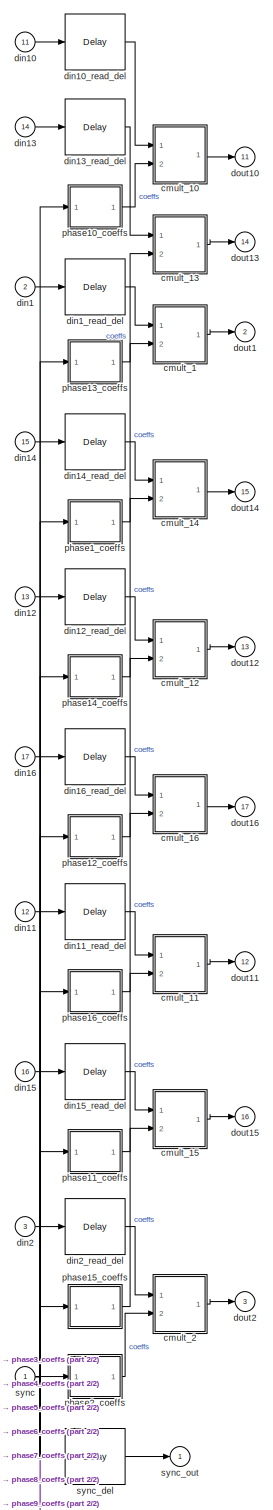
[diagram: phase_mult - part 1/2, full width, top band]
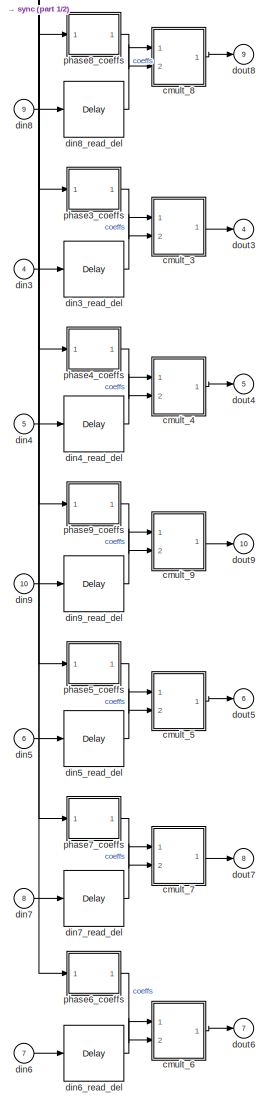
[diagram: phase_mult - part 2/2, full width, bottom band]
BLOCK [SubSystem] phase_mult
  FunctionWithSeparateData = off
  MaskHideContents = off
  MinAlgLoopOccurrences = off
  Opaque = off
  Ports = [17, 17]
  PropExecContextOutsideSubsystem = off
  RTWSystemCode = Auto
  RequestExecContextInheritance = off
BLOCK [SubSystem] phase_mult/cmult_1
  FunctionWithSeparateData = off
  MaskHideContents = off
  MinAlgLoopOccurrences = off
  Opaque = off
  Ports = [2, 1]
  PropExecContextOutsideSubsystem = off
  RTWSystemCode = Auto
  RequestExecContextInheritance = off
BLOCK [Reference] phase_mult/cmult_1/AddSub  REF=xbsIndex_r4/AddSub
  Ports = [2, 1]
  SourceBlock = xbsIndex_r4/AddSub
  SourceType = Xilinx Adder/Subtracter Block
  arith_type = Unsigned
  bin_pt = 14
  block_type = addsub
  dbl_ovrd = off
  en = off
  has_advanced_control = 0
  hw_selection = Fabric
  latency = 2
  mode = Subtraction
  n_bits = 16
  overflow = Wrap
  pipelined = off
  precision = Full
  quantization = Truncate
  sg_icon_stat = 60,60,2,1,white,blue,0,c507509b,right,,[ ],[ ]
  sg_mask_display = fprintf('','COMMENT: begin icon graphics');\npatch([0 60 60 0 0 ],[0 0 60 60 0 ],[0.77 0.82 0.91 ]);\nplot([0 60 60 0 0 ],[0 0 60 60 0 ]);\npatch([12.2 23.76 31.76 39.76 47.76 31.76 20.2 12.2 ],[38.88 38.88 46.88 38.88 46.88 46.88 46.88 38.88 ],[1 1 1 ]);\npatch([20.2 31.76 23.76 12.2 20.2 ],[30.88 30.88 38.88 38.88 30.88 ],[0.931 0.946 0.973 ]);\npatch([12.2 23.76 31.76 20.2 12.2 ],[22.88 22.88 30.88 ...<+520ch>  <repeated x32 — deduplicated; at blocks: AddSub, AddSub1>
  sggui_pos = -1,-1,-1,-1
  use_behavioral_HDL = on
  use_carryin = off
  use_carryout = off
  xl_area = [0,0,0,0,0,0,0]
  xl_use_area = off
BLOCK [Reference] phase_mult/cmult_1/AddSub1  REF=xbsIndex_r4/AddSub
  Ports = [2, 1]
  SourceBlock = xbsIndex_r4/AddSub
  SourceType = Xilinx Adder/Subtracter Block
  arith_type = Unsigned
  bin_pt = 14
  block_type = addsub
  dbl_ovrd = off
  en = off
  has_advanced_control = 0
  hw_selection = Fabric
  latency = 2
  mode = Addition
  n_bits = 16
  overflow = Wrap
  pipelined = off
  precision = Full
  quantization = Truncate
  sg_icon_stat = 60,60,2,1,white,blue,0,dcac4ee3,right,,[ ],[ ]
  sggui_pos = -1,-1,-1,-1
  use_behavioral_HDL = on
  use_carryin = off
  use_carryout = off
  xl_area = [0,0,0,0,0,0,0]
  xl_use_area = off
BLOCK [Inport] phase_mult/cmult_1/a
  IconDisplay = Port number
BLOCK [SubSystem] phase_mult/cmult_1/a_input_c_to_ri
  AttributesFormatString = 18_17 r/i
  FunctionWithSeparateData = off
  MaskHideContents = off
  MinAlgLoopOccurrences = off
  Opaque = off
  Ports = [1, 2]
  PropExecContextOutsideSubsystem = off
  RTWSystemCode = Auto
  RequestExecContextInheritance = off
BLOCK [Inport] phase_mult/cmult_1/a_input_c_to_ri/c
  IconDisplay = Port number
BLOCK [Reference] phase_mult/cmult_1/a_input_c_to_ri/force_im  REF=xbsIndex_r4/Reinterpret
  Ports = [1, 1]
  SourceBlock = xbsIndex_r4/Reinterpret
  SourceType = Xilinx Type Reinterpreter Block
  arith_type = Signed  (2's comp)
  bin_pt = 17
  block_type = reinterpret
  force_arith_type = on
  force_bin_pt = on
  has_advanced_control = 0
  sg_icon_stat = 50,32,1,1,white,blue,0,6b04d0b0,right,,[ ],[ ]
  sggui_pos = -1,-1,-1,-1
BLOCK [Reference] phase_mult/cmult_1/a_input_c_to_ri/force_re  REF=xbsIndex_r4/Reinterpret
  Ports = [1, 1]
  SourceBlock = xbsIndex_r4/Reinterpret
  SourceType = Xilinx Type Reinterpreter Block
  arith_type = Signed  (2's comp)
  bin_pt = 17
  block_type = reinterpret
  force_arith_type = on
  force_bin_pt = on
  has_advanced_control = 0
  sg_icon_stat = 50,32,1,1,white,blue,0,6b04d0b0,right,,[ ],[ ]
  sggui_pos = -1,-1,-1,-1
BLOCK [Outport] phase_mult/cmult_1/a_input_c_to_ri/im
  IconDisplay = Port number
  Port = 2
BLOCK [Outport] phase_mult/cmult_1/a_input_c_to_ri/re
  IconDisplay = Port number
BLOCK [Reference] phase_mult/cmult_1/a_input_c_to_ri/slice_im  REF=xbsIndex_r4/Slice
  Ports = [1, 1]
  SourceBlock = xbsIndex_r4/Slice
  SourceType = Xilinx Bit Slice Extractor Block
  base0 = LSB of Input
  base1 = MSB of Input
  bit0 = 0
  bit1 = 0
  block_type = slice
  boolean_output = off
  dbl_ovrd = off
  has_advanced_control = 0
  mode = Lower Bit Location + Width
  nbits = 18
  sg_icon_stat = 60,32,1,1,white,blue,0,1fd851a7,right,,[ ],[ ]
  sg_mask_display = fprintf('','COMMENT: begin icon graphics');\npatch([0 60 60 0 0 ],[0 0 32 32 0 ],[0.77 0.82 0.91 ]);\nplot([0 60 60 0 0 ],[0 0 32 32 0 ]);\npatch([21.1 26.88 30.88 34.88 38.88 30.88 25.1 21.1 ],[20.44 20.44 24.44 20.44 24.44 24.44 24.44 20.44 ],[1 1 1 ]);\npatch([25.1 30.88 26.88 21.1 25.1 ],[16.44 16.44 20.44 20.44 16.44 ],[0.931 0.946 0.973 ]);\npatch([21.1 26.88 30.88 25.1 21.1 ],[12.44 12.44 16.44 ...<+304ch>  <repeated x80 — deduplicated; at blocks: slice_im, slice_re, Slice>
  sggui_pos = -1,-1,-1,-1
BLOCK [Reference] phase_mult/cmult_1/a_input_c_to_ri/slice_re  REF=xbsIndex_r4/Slice
  Ports = [1, 1]
  SourceBlock = xbsIndex_r4/Slice
  SourceType = Xilinx Bit Slice Extractor Block
  base0 = LSB of Input
  base1 = MSB of Input
  bit0 = 0
  bit1 = 0
  block_type = slice
  boolean_output = off
  dbl_ovrd = off
  has_advanced_control = 0
  mode = Upper Bit Location + Width
  nbits = 18
  sg_icon_stat = 60,32,1,1,white,blue,0,1fd851a7,right,,[ ],[ ]
  sggui_pos = -1,-1,-1,-1
BLOCK [Inport] phase_mult/cmult_1/b
  IconDisplay = Port number
  Port = 2
BLOCK [SubSystem] phase_mult/cmult_1/b_input_c_to_ri
  AttributesFormatString = 18_17 r/i
  FunctionWithSeparateData = off
  MaskHideContents = off
  MinAlgLoopOccurrences = off
  Opaque = off
  Ports = [1, 2]
  PropExecContextOutsideSubsystem = off
  RTWSystemCode = Auto
  RequestExecContextInheritance = off
BLOCK [Inport] phase_mult/cmult_1/b_input_c_to_ri/c
  IconDisplay = Port number
BLOCK [Reference] phase_mult/cmult_1/b_input_c_to_ri/force_im  REF=xbsIndex_r4/Reinterpret
  Ports = [1, 1]
  SourceBlock = xbsIndex_r4/Reinterpret
  SourceType = Xilinx Type Reinterpreter Block
  arith_type = Signed  (2's comp)
  bin_pt = 17
  block_type = reinterpret
  force_arith_type = on
  force_bin_pt = on
  has_advanced_control = 0
  sg_icon_stat = 50,32,1,1,white,blue,0,6b04d0b0,right,,[ ],[ ]
  sggui_pos = -1,-1,-1,-1
BLOCK [Reference] phase_mult/cmult_1/b_input_c_to_ri/force_re  REF=xbsIndex_r4/Reinterpret
  Ports = [1, 1]
  SourceBlock = xbsIndex_r4/Reinterpret
  SourceType = Xilinx Type Reinterpreter Block
  arith_type = Signed  (2's comp)
  bin_pt = 17
  block_type = reinterpret
  force_arith_type = on
  force_bin_pt = on
  has_advanced_control = 0
  sg_icon_stat = 50,32,1,1,white,blue,0,6b04d0b0,right,,[ ],[ ]
  sggui_pos = -1,-1,-1,-1
BLOCK [Outport] phase_mult/cmult_1/b_input_c_to_ri/im
  IconDisplay = Port number
  Port = 2
BLOCK [Outport] phase_mult/cmult_1/b_input_c_to_ri/re
  IconDisplay = Port number
BLOCK [Reference] phase_mult/cmult_1/b_input_c_to_ri/slice_im  REF=xbsIndex_r4/Slice
  Ports = [1, 1]
  SourceBlock = xbsIndex_r4/Slice
  SourceType = Xilinx Bit Slice Extractor Block
  base0 = LSB of Input
  base1 = MSB of Input
  bit0 = 0
  bit1 = 0
  block_type = slice
  boolean_output = off
  dbl_ovrd = off
  has_advanced_control = 0
  mode = Lower Bit Location + Width
  nbits = 18
  sg_icon_stat = 60,32,1,1,white,blue,0,1fd851a7,right,,[ ],[ ]
  sggui_pos = -1,-1,-1,-1
BLOCK [Reference] phase_mult/cmult_1/b_input_c_to_ri/slice_re  REF=xbsIndex_r4/Slice
  Ports = [1, 1]
  SourceBlock = xbsIndex_r4/Slice
  SourceType = Xilinx Bit Slice Extractor Block
  base0 = LSB of Input
  base1 = MSB of Input
  bit0 = 0
  bit1 = 0
  block_type = slice
  boolean_output = off
  dbl_ovrd = off
  has_advanced_control = 0
  mode = Upper Bit Location + Width
  nbits = 18
  sg_icon_stat = 60,32,1,1,white,blue,0,1fd851a7,right,,[ ],[ ]
  sggui_pos = -1,-1,-1,-1
BLOCK [Outport] phase_mult/cmult_1/c
  IconDisplay = Port number
BLOCK [SubSystem] phase_mult/cmult_1/c_output_ri_to_c
  FunctionWithSeparateData = off
  MaskHideContents = off
  MinAlgLoopOccurrences = off
  Opaque = off
  Ports = [2, 1]
  PropExecContextOutsideSubsystem = off
  RTWSystemCode = Auto
  RequestExecContextInheritance = off
BLOCK [Outport] phase_mult/cmult_1/c_output_ri_to_c/c
  IconDisplay = Port number
BLOCK [Reference] phase_mult/cmult_1/c_output_ri_to_c/concat  REF=xbsIndex_r4/Concat
  Ports = [2, 1]
  SourceBlock = xbsIndex_r4/Concat
  SourceType = Xilinx Bus Concatenator Block
  block_type = concat
  dbl_ovrd = off
  has_advanced_control = 0
  infoedit = Concatenates two or more inputs.  Output will be cast to an unsigned value with the binary point at zero.
  num_inputs = 2
  sg_icon_stat = 60,60,2,1,white,blue,0,16398980,right,,[ ],[ ]
  sggui_pos = -1,-1,-1,-1
BLOCK [Reference] phase_mult/cmult_1/c_output_ri_to_c/force_im  REF=xbsIndex_r4/Reinterpret
  Ports = [1, 1]
  SourceBlock = xbsIndex_r4/Reinterpret
  SourceType = Xilinx Type Reinterpreter Block
  arith_type = Unsigned
  bin_pt = 0
  block_type = reinterpret
  force_arith_type = on
  force_bin_pt = on
  has_advanced_control = 0
  sg_icon_stat = 50,32,1,1,white,blue,0,6b04d0b0,right,,[ ],[ ]
  sggui_pos = -1,-1,-1,-1
BLOCK [Reference] phase_mult/cmult_1/c_output_ri_to_c/force_re  REF=xbsIndex_r4/Reinterpret
  Ports = [1, 1]
  SourceBlock = xbsIndex_r4/Reinterpret
  SourceType = Xilinx Type Reinterpreter Block
  arith_type = Unsigned
  bin_pt = 0
  block_type = reinterpret
  force_arith_type = on
  force_bin_pt = on
  has_advanced_control = 0
  sg_icon_stat = 50,32,1,1,white,blue,0,6b04d0b0,right,,[ ],[ ]
  sggui_pos = -1,-1,-1,-1
BLOCK [Inport] phase_mult/cmult_1/c_output_ri_to_c/im
  IconDisplay = Port number
  Port = 2
BLOCK [Inport] phase_mult/cmult_1/c_output_ri_to_c/re
  IconDisplay = Port number
BLOCK [Reference] phase_mult/cmult_1/convert0  REF=xbsIndex_r4/Convert
  Ports = [1, 1]
  SourceBlock = xbsIndex_r4/Convert
  SourceType = Xilinx Type Converter Block
  arith_type = Signed  (2's comp)
  bin_pt = 17
  block_type = convert
  dbl_ovrd = off
  en = off
  exp_bits = 8
  float_type = Single
  fraction_bits = 24
  gui_display_data_type = Fixed-point
  has_advanced_control = 0
  infoedit = Hardware notes: rounding and saturating require hardware resources; truncating and wrapping do not.
  latency = 1
  n_bits = 18
  overflow = Saturate
  pipeline = on
  quantization = Round  (unbiased: +/- Inf)
  sg_icon_stat = 45,32,1,1,white,blue,0,0c6bad53,right,,[ ],[ ]
  sg_mask_display = fprintf('','COMMENT: begin icon graphics');\npatch([0 45 45 0 0 ],[0 0 32 32 0 ],[0.77 0.82 0.91 ]);\nplot([0 45 45 0 0 ],[0 0 32 32 0 ]);\npatch([13.1 18.88 22.88 26.88 30.88 22.88 17.1 13.1 ],[20.44 20.44 24.44 20.44 24.44 24.44 24.44 20.44 ],[1 1 1 ]);\npatch([17.1 22.88 18.88 13.1 17.1 ],[16.44 16.44 20.44 20.44 16.44 ],[0.931 0.946 0.973 ]);\npatch([13.1 18.88 22.88 17.1 13.1 ],[12.44 12.44 16.44 ...<+387ch>  <repeated x16 — deduplicated; at blocks: convert0>
  sggui_pos = -1,-1,-1,-1
  xl_area = [0,0,0,0,0,0,0]
  xl_use_area = off
BLOCK [Reference] phase_mult/cmult_1/convert1  REF=xbsIndex_r4/Convert
  Ports = [1, 1]
  SourceBlock = xbsIndex_r4/Convert
  SourceType = Xilinx Type Converter Block
  arith_type = Signed  (2's comp)
  bin_pt = 17
  block_type = convert
  dbl_ovrd = off
  en = off
  exp_bits = 8
  float_type = Single
  fraction_bits = 24
  gui_display_data_type = Fixed-point
  has_advanced_control = 0
  infoedit = Hardware notes: rounding and saturating require hardware resources; truncating and wrapping do not.
  latency = 1
  n_bits = 18
  overflow = Saturate
  pipeline = on
  quantization = Round  (unbiased: +/- Inf)
  sg_icon_stat = 45,30,1,1,white,blue,0,0c6bad53,right,,[ ],[ ]
  sg_mask_display = fprintf('','COMMENT: begin icon graphics');\npatch([0 45 45 0 0 ],[0 0 30 30 0 ],[0.77 0.82 0.91 ]);\nplot([0 45 45 0 0 ],[0 0 30 30 0 ]);\npatch([13.1 18.88 22.88 26.88 30.88 22.88 17.1 13.1 ],[19.44 19.44 23.44 19.44 23.44 23.44 23.44 19.44 ],[1 1 1 ]);\npatch([17.1 22.88 18.88 13.1 17.1 ],[15.44 15.44 19.44 19.44 15.44 ],[0.931 0.946 0.973 ]);\npatch([13.1 18.88 22.88 17.1 13.1 ],[11.44 11.44 15.44 ...<+387ch>  <repeated x16 — deduplicated; at blocks: convert1>
  sggui_pos = -1,-1,-1,-1
  xl_area = [0,0,0,0,0,0,0]
  xl_use_area = off
BLOCK [SubSystem] phase_mult/cmult_1/mults
  FunctionWithSeparateData = off
  MaskHideContents = off
  MinAlgLoopOccurrences = off
  Opaque = off
  Ports = [8, 4]
  PropExecContextOutsideSubsystem = off
  RTWSystemCode = Auto
  RequestExecContextInheritance = off
BLOCK [Inport] phase_mult/cmult_1/mults/a1
  IconDisplay = Port number
BLOCK [Inport] phase_mult/cmult_1/mults/a2
  IconDisplay = Port number
  Port = 3
BLOCK [Inport] phase_mult/cmult_1/mults/a3
  IconDisplay = Port number
  Port = 5
BLOCK [Inport] phase_mult/cmult_1/mults/a4
  IconDisplay = Port number
  Port = 7
BLOCK [Inport] phase_mult/cmult_1/mults/b1
  IconDisplay = Port number
  Port = 2
BLOCK [Inport] phase_mult/cmult_1/mults/b2
  IconDisplay = Port number
  Port = 4
BLOCK [Inport] phase_mult/cmult_1/mults/b3
  IconDisplay = Port number
  Port = 6
BLOCK [Inport] phase_mult/cmult_1/mults/b4
  IconDisplay = Port number
  Port = 8
BLOCK [Outport] phase_mult/cmult_1/mults/c1
  IconDisplay = Port number
BLOCK [Outport] phase_mult/cmult_1/mults/c2
  IconDisplay = Port number
  Port = 2
BLOCK [Outport] phase_mult/cmult_1/mults/c3
  IconDisplay = Port number
  Port = 3
BLOCK [Outport] phase_mult/cmult_1/mults/c4
  IconDisplay = Port number
  Port = 4
BLOCK [Reference] phase_mult/cmult_1/mults/mult_1  REF=xbsIndex_r4/Mult
  Ports = [2, 1]
  SourceBlock = xbsIndex_r4/Mult
  SourceType = Xilinx Multiplier Block
  arith_type = Signed  (2's comp)
  bin_pt = 14
  block_type = mult
  dbl_ovrd = off
  en = off
  has_advanced_control = 0
  infoedit = Hardware notes: To check for the optimum internal pipeline stages of the dedicated multiplier you must select 'Test for optimum pipelining'.<br><br>Optimization Goal: For implementation into device fabric (LUTs), the Speed or Area optimization will take effect only if it's supported by IP for the particular device family. Otherwise, the results will be identical regardless of the selection.  <repeated x64 — deduplicated; at blocks: mult_1, mult_2, mult_3, mult_4>
  latency = 3
  n_bits = 16
  opt = Speed
  optimum_pipeline = off
  overflow = Saturate
  pipeline = on
  placement_style = Triangular
  precision = Full
  quantization = Round  (unbiased: +/- Inf)
  sg_icon_stat = 55,55,2,1,white,blue,0,7028354c,right,,[ ],[ ]
  sg_mask_display = fprintf('','COMMENT: begin icon graphics');\npatch([0 55 55 0 0 ],[0 0 55 55 0 ],[0.77 0.82 0.91 ]);\nplot([0 55 55 0 0 ],[0 0 55 55 0 ]);\npatch([11.425 21.54 28.54 35.54 42.54 28.54 18.425 11.425 ],[34.77 34.77 41.77 34.77 41.77 41.77 41.77 34.77 ],[1 1 1 ]);\npatch([18.425 28.54 21.54 11.425 18.425 ],[27.77 27.77 34.77 34.77 27.77 ],[0.931 0.946 0.973 ]);\npatch([11.425 21.54 28.54 18.425 11.425 ],[...<+522ch>  <repeated x64 — deduplicated; at blocks: mult_1, mult_2, mult_3, mult_4>
  sggui_pos = -1,-1,-1,-1
  use_behavioral_HDL = off
  use_embedded = on
  use_rpm = on
  xl_area = [0,0,0,0,0,0,0]
  xl_use_area = off
BLOCK [Reference] phase_mult/cmult_1/mults/mult_2  REF=xbsIndex_r4/Mult
  Ports = [2, 1]
  SourceBlock = xbsIndex_r4/Mult
  SourceType = Xilinx Multiplier Block
  arith_type = Signed  (2's comp)
  bin_pt = 14
  block_type = mult
  dbl_ovrd = off
  en = off
  has_advanced_control = 0
  latency = 3
  n_bits = 16
  opt = Speed
  optimum_pipeline = off
  overflow = Saturate
  pipeline = on
  placement_style = Triangular
  precision = Full
  quantization = Round  (unbiased: +/- Inf)
  sg_icon_stat = 55,55,2,1,white,blue,0,7028354c,right,,[ ],[ ]
  sggui_pos = -1,-1,-1,-1
  use_behavioral_HDL = off
  use_embedded = on
  use_rpm = on
  xl_area = [0,0,0,0,0,0,0]
  xl_use_area = off
BLOCK [Reference] phase_mult/cmult_1/mults/mult_3  REF=xbsIndex_r4/Mult
  Ports = [2, 1]
  SourceBlock = xbsIndex_r4/Mult
  SourceType = Xilinx Multiplier Block
  arith_type = Signed  (2's comp)
  bin_pt = 14
  block_type = mult
  dbl_ovrd = off
  en = off
  has_advanced_control = 0
  latency = 3
  n_bits = 16
  opt = Speed
  optimum_pipeline = off
  overflow = Saturate
  pipeline = on
  placement_style = Triangular
  precision = Full
  quantization = Round  (unbiased: +/- Inf)
  sg_icon_stat = 55,55,2,1,white,blue,0,7028354c,right,,[ ],[ ]
  sggui_pos = -1,-1,-1,-1
  use_behavioral_HDL = off
  use_embedded = on
  use_rpm = on
  xl_area = [0,0,0,0,0,0,0]
  xl_use_area = off
BLOCK [Reference] phase_mult/cmult_1/mults/mult_4  REF=xbsIndex_r4/Mult
  Ports = [2, 1]
  SourceBlock = xbsIndex_r4/Mult
  SourceType = Xilinx Multiplier Block
  arith_type = Signed  (2's comp)
  bin_pt = 14
  block_type = mult
  dbl_ovrd = off
  en = off
  has_advanced_control = 0
  latency = 3
  n_bits = 16
  opt = Speed
  optimum_pipeline = off
  overflow = Saturate
  pipeline = on
  placement_style = Triangular
  precision = Full
  quantization = Round  (unbiased: +/- Inf)
  sg_icon_stat = 55,55,2,1,white,blue,0,7028354c,right,,[ ],[ ]
  sggui_pos = -1,-1,-1,-1
  use_behavioral_HDL = off
  use_embedded = on
  use_rpm = on
  xl_area = [0,0,0,0,0,0,0]
  xl_use_area = off
BLOCK [SubSystem] phase_mult/cmult_10
  FunctionWithSeparateData = off
  MaskHideContents = off
  MinAlgLoopOccurrences = off
  Opaque = off
  Ports = [2, 1]
  PropExecContextOutsideSubsystem = off
  RTWSystemCode = Auto
  RequestExecContextInheritance = off
BLOCK [Reference] phase_mult/cmult_10/AddSub  REF=xbsIndex_r4/AddSub
  Ports = [2, 1]
  SourceBlock = xbsIndex_r4/AddSub
  SourceType = Xilinx Adder/Subtracter Block
  arith_type = Unsigned
  bin_pt = 14
  block_type = addsub
  dbl_ovrd = off
  en = off
  has_advanced_control = 0
  hw_selection = Fabric
  latency = 2
  mode = Subtraction
  n_bits = 16
  overflow = Wrap
  pipelined = off
  precision = Full
  quantization = Truncate
  sg_icon_stat = 60,60,2,1,white,blue,0,c507509b,right,,[ ],[ ]
  sggui_pos = -1,-1,-1,-1
  use_behavioral_HDL = on
  use_carryin = off
  use_carryout = off
  xl_area = [0,0,0,0,0,0,0]
  xl_use_area = off
BLOCK [Reference] phase_mult/cmult_10/AddSub1  REF=xbsIndex_r4/AddSub
  Ports = [2, 1]
  SourceBlock = xbsIndex_r4/AddSub
  SourceType = Xilinx Adder/Subtracter Block
  arith_type = Unsigned
  bin_pt = 14
  block_type = addsub
  dbl_ovrd = off
  en = off
  has_advanced_control = 0
  hw_selection = Fabric
  latency = 2
  mode = Addition
  n_bits = 16
  overflow = Wrap
  pipelined = off
  precision = Full
  quantization = Truncate
  sg_icon_stat = 60,60,2,1,white,blue,0,dcac4ee3,right,,[ ],[ ]
  sggui_pos = -1,-1,-1,-1
  use_behavioral_HDL = on
  use_carryin = off
  use_carryout = off
  xl_area = [0,0,0,0,0,0,0]
  xl_use_area = off
BLOCK [Inport] phase_mult/cmult_10/a
  IconDisplay = Port number
BLOCK [SubSystem] phase_mult/cmult_10/a_input_c_to_ri
  AttributesFormatString = 18_17 r/i
  FunctionWithSeparateData = off
  MaskHideContents = off
  MinAlgLoopOccurrences = off
  Opaque = off
  Ports = [1, 2]
  PropExecContextOutsideSubsystem = off
  RTWSystemCode = Auto
  RequestExecContextInheritance = off
BLOCK [Inport] phase_mult/cmult_10/a_input_c_to_ri/c
  IconDisplay = Port number
BLOCK [Reference] phase_mult/cmult_10/a_input_c_to_ri/force_im  REF=xbsIndex_r4/Reinterpret
  Ports = [1, 1]
  SourceBlock = xbsIndex_r4/Reinterpret
  SourceType = Xilinx Type Reinterpreter Block
  arith_type = Signed  (2's comp)
  bin_pt = 17
  block_type = reinterpret
  force_arith_type = on
  force_bin_pt = on
  has_advanced_control = 0
  sg_icon_stat = 50,32,1,1,white,blue,0,6b04d0b0,right,,[ ],[ ]
  sggui_pos = -1,-1,-1,-1
BLOCK [Reference] phase_mult/cmult_10/a_input_c_to_ri/force_re  REF=xbsIndex_r4/Reinterpret
  Ports = [1, 1]
  SourceBlock = xbsIndex_r4/Reinterpret
  SourceType = Xilinx Type Reinterpreter Block
  arith_type = Signed  (2's comp)
  bin_pt = 17
  block_type = reinterpret
  force_arith_type = on
  force_bin_pt = on
  has_advanced_control = 0
  sg_icon_stat = 50,32,1,1,white,blue,0,6b04d0b0,right,,[ ],[ ]
  sggui_pos = -1,-1,-1,-1
BLOCK [Outport] phase_mult/cmult_10/a_input_c_to_ri/im
  IconDisplay = Port number
  Port = 2
BLOCK [Outport] phase_mult/cmult_10/a_input_c_to_ri/re
  IconDisplay = Port number
BLOCK [Reference] phase_mult/cmult_10/a_input_c_to_ri/slice_im  REF=xbsIndex_r4/Slice
  Ports = [1, 1]
  SourceBlock = xbsIndex_r4/Slice
  SourceType = Xilinx Bit Slice Extractor Block
  base0 = LSB of Input
  base1 = MSB of Input
  bit0 = 0
  bit1 = 0
  block_type = slice
  boolean_output = off
  dbl_ovrd = off
  has_advanced_control = 0
  mode = Lower Bit Location + Width
  nbits = 18
  sg_icon_stat = 60,32,1,1,white,blue,0,1fd851a7,right,,[ ],[ ]
  sggui_pos = -1,-1,-1,-1
BLOCK [Reference] phase_mult/cmult_10/a_input_c_to_ri/slice_re  REF=xbsIndex_r4/Slice
  Ports = [1, 1]
  SourceBlock = xbsIndex_r4/Slice
  SourceType = Xilinx Bit Slice Extractor Block
  base0 = LSB of Input
  base1 = MSB of Input
  bit0 = 0
  bit1 = 0
  block_type = slice
  boolean_output = off
  dbl_ovrd = off
  has_advanced_control = 0
  mode = Upper Bit Location + Width
  nbits = 18
  sg_icon_stat = 60,32,1,1,white,blue,0,1fd851a7,right,,[ ],[ ]
  sggui_pos = -1,-1,-1,-1
BLOCK [Inport] phase_mult/cmult_10/b
  IconDisplay = Port number
  Port = 2
BLOCK [SubSystem] phase_mult/cmult_10/b_input_c_to_ri
  AttributesFormatString = 18_17 r/i
  FunctionWithSeparateData = off
  MaskHideContents = off
  MinAlgLoopOccurrences = off
  Opaque = off
  Ports = [1, 2]
  PropExecContextOutsideSubsystem = off
  RTWSystemCode = Auto
  RequestExecContextInheritance = off
BLOCK [Inport] phase_mult/cmult_10/b_input_c_to_ri/c
  IconDisplay = Port number
BLOCK [Reference] phase_mult/cmult_10/b_input_c_to_ri/force_im  REF=xbsIndex_r4/Reinterpret
  Ports = [1, 1]
  SourceBlock = xbsIndex_r4/Reinterpret
  SourceType = Xilinx Type Reinterpreter Block
  arith_type = Signed  (2's comp)
  bin_pt = 17
  block_type = reinterpret
  force_arith_type = on
  force_bin_pt = on
  has_advanced_control = 0
  sg_icon_stat = 50,32,1,1,white,blue,0,6b04d0b0,right,,[ ],[ ]
  sggui_pos = -1,-1,-1,-1
BLOCK [Reference] phase_mult/cmult_10/b_input_c_to_ri/force_re  REF=xbsIndex_r4/Reinterpret
  Ports = [1, 1]
  SourceBlock = xbsIndex_r4/Reinterpret
  SourceType = Xilinx Type Reinterpreter Block
  arith_type = Signed  (2's comp)
  bin_pt = 17
  block_type = reinterpret
  force_arith_type = on
  force_bin_pt = on
  has_advanced_control = 0
  sg_icon_stat = 50,32,1,1,white,blue,0,6b04d0b0,right,,[ ],[ ]
  sggui_pos = -1,-1,-1,-1
BLOCK [Outport] phase_mult/cmult_10/b_input_c_to_ri/im
  IconDisplay = Port number
  Port = 2
BLOCK [Outport] phase_mult/cmult_10/b_input_c_to_ri/re
  IconDisplay = Port number
BLOCK [Reference] phase_mult/cmult_10/b_input_c_to_ri/slice_im  REF=xbsIndex_r4/Slice
  Ports = [1, 1]
  SourceBlock = xbsIndex_r4/Slice
  SourceType = Xilinx Bit Slice Extractor Block
  base0 = LSB of Input
  base1 = MSB of Input
  bit0 = 0
  bit1 = 0
  block_type = slice
  boolean_output = off
  dbl_ovrd = off
  has_advanced_control = 0
  mode = Lower Bit Location + Width
  nbits = 18
  sg_icon_stat = 60,32,1,1,white,blue,0,1fd851a7,right,,[ ],[ ]
  sggui_pos = -1,-1,-1,-1
BLOCK [Reference] phase_mult/cmult_10/b_input_c_to_ri/slice_re  REF=xbsIndex_r4/Slice
  Ports = [1, 1]
  SourceBlock = xbsIndex_r4/Slice
  SourceType = Xilinx Bit Slice Extractor Block
  base0 = LSB of Input
  base1 = MSB of Input
  bit0 = 0
  bit1 = 0
  block_type = slice
  boolean_output = off
  dbl_ovrd = off
  has_advanced_control = 0
  mode = Upper Bit Location + Width
  nbits = 18
  sg_icon_stat = 60,32,1,1,white,blue,0,1fd851a7,right,,[ ],[ ]
  sggui_pos = -1,-1,-1,-1
BLOCK [Outport] phase_mult/cmult_10/c
  IconDisplay = Port number
BLOCK [SubSystem] phase_mult/cmult_10/c_output_ri_to_c
  FunctionWithSeparateData = off
  MaskHideContents = off
  MinAlgLoopOccurrences = off
  Opaque = off
  Ports = [2, 1]
  PropExecContextOutsideSubsystem = off
  RTWSystemCode = Auto
  RequestExecContextInheritance = off
BLOCK [Outport] phase_mult/cmult_10/c_output_ri_to_c/c
  IconDisplay = Port number
BLOCK [Reference] phase_mult/cmult_10/c_output_ri_to_c/concat  REF=xbsIndex_r4/Concat
  Ports = [2, 1]
  SourceBlock = xbsIndex_r4/Concat
  SourceType = Xilinx Bus Concatenator Block
  block_type = concat
  dbl_ovrd = off
  has_advanced_control = 0
  infoedit = Concatenates two or more inputs.  Output will be cast to an unsigned value with the binary point at zero.
  num_inputs = 2
  sg_icon_stat = 60,60,2,1,white,blue,0,16398980,right,,[ ],[ ]
  sggui_pos = -1,-1,-1,-1
BLOCK [Reference] phase_mult/cmult_10/c_output_ri_to_c/force_im  REF=xbsIndex_r4/Reinterpret
  Ports = [1, 1]
  SourceBlock = xbsIndex_r4/Reinterpret
  SourceType = Xilinx Type Reinterpreter Block
  arith_type = Unsigned
  bin_pt = 0
  block_type = reinterpret
  force_arith_type = on
  force_bin_pt = on
  has_advanced_control = 0
  sg_icon_stat = 50,32,1,1,white,blue,0,6b04d0b0,right,,[ ],[ ]
  sggui_pos = -1,-1,-1,-1
BLOCK [Reference] phase_mult/cmult_10/c_output_ri_to_c/force_re  REF=xbsIndex_r4/Reinterpret
  Ports = [1, 1]
  SourceBlock = xbsIndex_r4/Reinterpret
  SourceType = Xilinx Type Reinterpreter Block
  arith_type = Unsigned
  bin_pt = 0
  block_type = reinterpret
  force_arith_type = on
  force_bin_pt = on
  has_advanced_control = 0
  sg_icon_stat = 50,32,1,1,white,blue,0,6b04d0b0,right,,[ ],[ ]
  sggui_pos = -1,-1,-1,-1
BLOCK [Inport] phase_mult/cmult_10/c_output_ri_to_c/im
  IconDisplay = Port number
  Port = 2
BLOCK [Inport] phase_mult/cmult_10/c_output_ri_to_c/re
  IconDisplay = Port number
BLOCK [Reference] phase_mult/cmult_10/convert0  REF=xbsIndex_r4/Convert
  Ports = [1, 1]
  SourceBlock = xbsIndex_r4/Convert
  SourceType = Xilinx Type Converter Block
  arith_type = Signed  (2's comp)
  bin_pt = 17
  block_type = convert
  dbl_ovrd = off
  en = off
  exp_bits = 8
  float_type = Single
  fraction_bits = 24
  gui_display_data_type = Fixed-point
  has_advanced_control = 0
  infoedit = Hardware notes: rounding and saturating require hardware resources; truncating and wrapping do not.
  latency = 1
  n_bits = 18
  overflow = Saturate
  pipeline = on
  quantization = Round  (unbiased: +/- Inf)
  sg_icon_stat = 45,32,1,1,white,blue,0,0c6bad53,right,,[ ],[ ]
  sggui_pos = -1,-1,-1,-1
  xl_area = [0,0,0,0,0,0,0]
  xl_use_area = off
BLOCK [Reference] phase_mult/cmult_10/convert1  REF=xbsIndex_r4/Convert
  Ports = [1, 1]
  SourceBlock = xbsIndex_r4/Convert
  SourceType = Xilinx Type Converter Block
  arith_type = Signed  (2's comp)
  bin_pt = 17
  block_type = convert
  dbl_ovrd = off
  en = off
  exp_bits = 8
  float_type = Single
  fraction_bits = 24
  gui_display_data_type = Fixed-point
  has_advanced_control = 0
  infoedit = Hardware notes: rounding and saturating require hardware resources; truncating and wrapping do not.
  latency = 1
  n_bits = 18
  overflow = Saturate
  pipeline = on
  quantization = Round  (unbiased: +/- Inf)
  sg_icon_stat = 45,30,1,1,white,blue,0,0c6bad53,right,,[ ],[ ]
  sggui_pos = -1,-1,-1,-1
  xl_area = [0,0,0,0,0,0,0]
  xl_use_area = off
BLOCK [SubSystem] phase_mult/cmult_10/mults
  FunctionWithSeparateData = off
  MaskHideContents = off
  MinAlgLoopOccurrences = off
  Opaque = off
  Ports = [8, 4]
  PropExecContextOutsideSubsystem = off
  RTWSystemCode = Auto
  RequestExecContextInheritance = off
BLOCK [Inport] phase_mult/cmult_10/mults/a1
  IconDisplay = Port number
BLOCK [Inport] phase_mult/cmult_10/mults/a2
  IconDisplay = Port number
  Port = 3
BLOCK [Inport] phase_mult/cmult_10/mults/a3
  IconDisplay = Port number
  Port = 5
BLOCK [Inport] phase_mult/cmult_10/mults/a4
  IconDisplay = Port number
  Port = 7
BLOCK [Inport] phase_mult/cmult_10/mults/b1
  IconDisplay = Port number
  Port = 2
BLOCK [Inport] phase_mult/cmult_10/mults/b2
  IconDisplay = Port number
  Port = 4
BLOCK [Inport] phase_mult/cmult_10/mults/b3
  IconDisplay = Port number
  Port = 6
BLOCK [Inport] phase_mult/cmult_10/mults/b4
  IconDisplay = Port number
  Port = 8
BLOCK [Outport] phase_mult/cmult_10/mults/c1
  IconDisplay = Port number
BLOCK [Outport] phase_mult/cmult_10/mults/c2
  IconDisplay = Port number
  Port = 2
BLOCK [Outport] phase_mult/cmult_10/mults/c3
  IconDisplay = Port number
  Port = 3
BLOCK [Outport] phase_mult/cmult_10/mults/c4
  IconDisplay = Port number
  Port = 4
BLOCK [Reference] phase_mult/cmult_10/mults/mult_1  REF=xbsIndex_r4/Mult
  Ports = [2, 1]
  SourceBlock = xbsIndex_r4/Mult
  SourceType = Xilinx Multiplier Block
  arith_type = Signed  (2's comp)
  bin_pt = 14
  block_type = mult
  dbl_ovrd = off
  en = off
  has_advanced_control = 0
  latency = 3
  n_bits = 16
  opt = Speed
  optimum_pipeline = off
  overflow = Saturate
  pipeline = on
  placement_style = Triangular
  precision = Full
  quantization = Round  (unbiased: +/- Inf)
  sg_icon_stat = 55,55,2,1,white,blue,0,7028354c,right,,[ ],[ ]
  sggui_pos = -1,-1,-1,-1
  use_behavioral_HDL = off
  use_embedded = on
  use_rpm = on
  xl_area = [0,0,0,0,0,0,0]
  xl_use_area = off
BLOCK [Reference] phase_mult/cmult_10/mults/mult_2  REF=xbsIndex_r4/Mult
  Ports = [2, 1]
  SourceBlock = xbsIndex_r4/Mult
  SourceType = Xilinx Multiplier Block
  arith_type = Signed  (2's comp)
  bin_pt = 14
  block_type = mult
  dbl_ovrd = off
  en = off
  has_advanced_control = 0
  latency = 3
  n_bits = 16
  opt = Speed
  optimum_pipeline = off
  overflow = Saturate
  pipeline = on
  placement_style = Triangular
  precision = Full
  quantization = Round  (unbiased: +/- Inf)
  sg_icon_stat = 55,55,2,1,white,blue,0,7028354c,right,,[ ],[ ]
  sggui_pos = -1,-1,-1,-1
  use_behavioral_HDL = off
  use_embedded = on
  use_rpm = on
  xl_area = [0,0,0,0,0,0,0]
  xl_use_area = off
BLOCK [Reference] phase_mult/cmult_10/mults/mult_3  REF=xbsIndex_r4/Mult
  Ports = [2, 1]
  SourceBlock = xbsIndex_r4/Mult
  SourceType = Xilinx Multiplier Block
  arith_type = Signed  (2's comp)
  bin_pt = 14
  block_type = mult
  dbl_ovrd = off
  en = off
  has_advanced_control = 0
  latency = 3
  n_bits = 16
  opt = Speed
  optimum_pipeline = off
  overflow = Saturate
  pipeline = on
  placement_style = Triangular
  precision = Full
  quantization = Round  (unbiased: +/- Inf)
  sg_icon_stat = 55,55,2,1,white,blue,0,7028354c,right,,[ ],[ ]
  sggui_pos = -1,-1,-1,-1
  use_behavioral_HDL = off
  use_embedded = on
  use_rpm = on
  xl_area = [0,0,0,0,0,0,0]
  xl_use_area = off
BLOCK [Reference] phase_mult/cmult_10/mults/mult_4  REF=xbsIndex_r4/Mult
  Ports = [2, 1]
  SourceBlock = xbsIndex_r4/Mult
  SourceType = Xilinx Multiplier Block
  arith_type = Signed  (2's comp)
  bin_pt = 14
  block_type = mult
  dbl_ovrd = off
  en = off
  has_advanced_control = 0
  latency = 3
  n_bits = 16
  opt = Speed
  optimum_pipeline = off
  overflow = Saturate
  pipeline = on
  placement_style = Triangular
  precision = Full
  quantization = Round  (unbiased: +/- Inf)
  sg_icon_stat = 55,55,2,1,white,blue,0,7028354c,right,,[ ],[ ]
  sggui_pos = -1,-1,-1,-1
  use_behavioral_HDL = off
  use_embedded = on
  use_rpm = on
  xl_area = [0,0,0,0,0,0,0]
  xl_use_area = off
BLOCK [SubSystem] phase_mult/cmult_11
  FunctionWithSeparateData = off
  MaskHideContents = off
  MinAlgLoopOccurrences = off
  Opaque = off
  Ports = [2, 1]
  PropExecContextOutsideSubsystem = off
  RTWSystemCode = Auto
  RequestExecContextInheritance = off
BLOCK [Reference] phase_mult/cmult_11/AddSub  REF=xbsIndex_r4/AddSub
  Ports = [2, 1]
  SourceBlock = xbsIndex_r4/AddSub
  SourceType = Xilinx Adder/Subtracter Block
  arith_type = Unsigned
  bin_pt = 14
  block_type = addsub
  dbl_ovrd = off
  en = off
  has_advanced_control = 0
  hw_selection = Fabric
  latency = 2
  mode = Subtraction
  n_bits = 16
  overflow = Wrap
  pipelined = off
  precision = Full
  quantization = Truncate
  sg_icon_stat = 60,60,2,1,white,blue,0,c507509b,right,,[ ],[ ]
  sggui_pos = -1,-1,-1,-1
  use_behavioral_HDL = on
  use_carryin = off
  use_carryout = off
  xl_area = [0,0,0,0,0,0,0]
  xl_use_area = off
BLOCK [Reference] phase_mult/cmult_11/AddSub1  REF=xbsIndex_r4/AddSub
  Ports = [2, 1]
  SourceBlock = xbsIndex_r4/AddSub
  SourceType = Xilinx Adder/Subtracter Block
  arith_type = Unsigned
  bin_pt = 14
  block_type = addsub
  dbl_ovrd = off
  en = off
  has_advanced_control = 0
  hw_selection = Fabric
  latency = 2
  mode = Addition
  n_bits = 16
  overflow = Wrap
  pipelined = off
  precision = Full
  quantization = Truncate
  sg_icon_stat = 60,60,2,1,white,blue,0,dcac4ee3,right,,[ ],[ ]
  sggui_pos = -1,-1,-1,-1
  use_behavioral_HDL = on
  use_carryin = off
  use_carryout = off
  xl_area = [0,0,0,0,0,0,0]
  xl_use_area = off
BLOCK [Inport] phase_mult/cmult_11/a
  IconDisplay = Port number
BLOCK [SubSystem] phase_mult/cmult_11/a_input_c_to_ri
  AttributesFormatString = 18_17 r/i
  FunctionWithSeparateData = off
  MaskHideContents = off
  MinAlgLoopOccurrences = off
  Opaque = off
  Ports = [1, 2]
  PropExecContextOutsideSubsystem = off
  RTWSystemCode = Auto
  RequestExecContextInheritance = off
BLOCK [Inport] phase_mult/cmult_11/a_input_c_to_ri/c
  IconDisplay = Port number
BLOCK [Reference] phase_mult/cmult_11/a_input_c_to_ri/force_im  REF=xbsIndex_r4/Reinterpret
  Ports = [1, 1]
  SourceBlock = xbsIndex_r4/Reinterpret
  SourceType = Xilinx Type Reinterpreter Block
  arith_type = Signed  (2's comp)
  bin_pt = 17
  block_type = reinterpret
  force_arith_type = on
  force_bin_pt = on
  has_advanced_control = 0
  sg_icon_stat = 50,32,1,1,white,blue,0,6b04d0b0,right,,[ ],[ ]
  sggui_pos = -1,-1,-1,-1
BLOCK [Reference] phase_mult/cmult_11/a_input_c_to_ri/force_re  REF=xbsIndex_r4/Reinterpret
  Ports = [1, 1]
  SourceBlock = xbsIndex_r4/Reinterpret
  SourceType = Xilinx Type Reinterpreter Block
  arith_type = Signed  (2's comp)
  bin_pt = 17
  block_type = reinterpret
  force_arith_type = on
  force_bin_pt = on
  has_advanced_control = 0
  sg_icon_stat = 50,32,1,1,white,blue,0,6b04d0b0,right,,[ ],[ ]
  sggui_pos = -1,-1,-1,-1
BLOCK [Outport] phase_mult/cmult_11/a_input_c_to_ri/im
  IconDisplay = Port number
  Port = 2
BLOCK [Outport] phase_mult/cmult_11/a_input_c_to_ri/re
  IconDisplay = Port number
BLOCK [Reference] phase_mult/cmult_11/a_input_c_to_ri/slice_im  REF=xbsIndex_r4/Slice
  Ports = [1, 1]
  SourceBlock = xbsIndex_r4/Slice
  SourceType = Xilinx Bit Slice Extractor Block
  base0 = LSB of Input
  base1 = MSB of Input
  bit0 = 0
  bit1 = 0
  block_type = slice
  boolean_output = off
  dbl_ovrd = off
  has_advanced_control = 0
  mode = Lower Bit Location + Width
  nbits = 18
  sg_icon_stat = 60,32,1,1,white,blue,0,1fd851a7,right,,[ ],[ ]
  sggui_pos = -1,-1,-1,-1
BLOCK [Reference] phase_mult/cmult_11/a_input_c_to_ri/slice_re  REF=xbsIndex_r4/Slice
  Ports = [1, 1]
  SourceBlock = xbsIndex_r4/Slice
  SourceType = Xilinx Bit Slice Extractor Block
  base0 = LSB of Input
  base1 = MSB of Input
  bit0 = 0
  bit1 = 0
  block_type = slice
  boolean_output = off
  dbl_ovrd = off
  has_advanced_control = 0
  mode = Upper Bit Location + Width
  nbits = 18
  sg_icon_stat = 60,32,1,1,white,blue,0,1fd851a7,right,,[ ],[ ]
  sggui_pos = -1,-1,-1,-1
BLOCK [Inport] phase_mult/cmult_11/b
  IconDisplay = Port number
  Port = 2
BLOCK [SubSystem] phase_mult/cmult_11/b_input_c_to_ri
  AttributesFormatString = 18_17 r/i
  FunctionWithSeparateData = off
  MaskHideContents = off
  MinAlgLoopOccurrences = off
  Opaque = off
  Ports = [1, 2]
  PropExecContextOutsideSubsystem = off
  RTWSystemCode = Auto
  RequestExecContextInheritance = off
BLOCK [Inport] phase_mult/cmult_11/b_input_c_to_ri/c
  IconDisplay = Port number
BLOCK [Reference] phase_mult/cmult_11/b_input_c_to_ri/force_im  REF=xbsIndex_r4/Reinterpret
  Ports = [1, 1]
  SourceBlock = xbsIndex_r4/Reinterpret
  SourceType = Xilinx Type Reinterpreter Block
  arith_type = Signed  (2's comp)
  bin_pt = 17
  block_type = reinterpret
  force_arith_type = on
  force_bin_pt = on
  has_advanced_control = 0
  sg_icon_stat = 50,32,1,1,white,blue,0,6b04d0b0,right,,[ ],[ ]
  sggui_pos = -1,-1,-1,-1
BLOCK [Reference] phase_mult/cmult_11/b_input_c_to_ri/force_re  REF=xbsIndex_r4/Reinterpret
  Ports = [1, 1]
  SourceBlock = xbsIndex_r4/Reinterpret
  SourceType = Xilinx Type Reinterpreter Block
  arith_type = Signed  (2's comp)
  bin_pt = 17
  block_type = reinterpret
  force_arith_type = on
  force_bin_pt = on
  has_advanced_control = 0
  sg_icon_stat = 50,32,1,1,white,blue,0,6b04d0b0,right,,[ ],[ ]
  sggui_pos = -1,-1,-1,-1
BLOCK [Outport] phase_mult/cmult_11/b_input_c_to_ri/im
  IconDisplay = Port number
  Port = 2
BLOCK [Outport] phase_mult/cmult_11/b_input_c_to_ri/re
  IconDisplay = Port number
BLOCK [Reference] phase_mult/cmult_11/b_input_c_to_ri/slice_im  REF=xbsIndex_r4/Slice
  Ports = [1, 1]
  SourceBlock = xbsIndex_r4/Slice
  SourceType = Xilinx Bit Slice Extractor Block
  base0 = LSB of Input
  base1 = MSB of Input
  bit0 = 0
  bit1 = 0
  block_type = slice
  boolean_output = off
  dbl_ovrd = off
  has_advanced_control = 0
  mode = Lower Bit Location + Width
  nbits = 18
  sg_icon_stat = 60,32,1,1,white,blue,0,1fd851a7,right,,[ ],[ ]
  sggui_pos = -1,-1,-1,-1
BLOCK [Reference] phase_mult/cmult_11/b_input_c_to_ri/slice_re  REF=xbsIndex_r4/Slice
  Ports = [1, 1]
  SourceBlock = xbsIndex_r4/Slice
  SourceType = Xilinx Bit Slice Extractor Block
  base0 = LSB of Input
  base1 = MSB of Input
  bit0 = 0
  bit1 = 0
  block_type = slice
  boolean_output = off
  dbl_ovrd = off
  has_advanced_control = 0
  mode = Upper Bit Location + Width
  nbits = 18
  sg_icon_stat = 60,32,1,1,white,blue,0,1fd851a7,right,,[ ],[ ]
  sggui_pos = -1,-1,-1,-1
BLOCK [Outport] phase_mult/cmult_11/c
  IconDisplay = Port number
BLOCK [SubSystem] phase_mult/cmult_11/c_output_ri_to_c
  FunctionWithSeparateData = off
  MaskHideContents = off
  MinAlgLoopOccurrences = off
  Opaque = off
  Ports = [2, 1]
  PropExecContextOutsideSubsystem = off
  RTWSystemCode = Auto
  RequestExecContextInheritance = off
BLOCK [Outport] phase_mult/cmult_11/c_output_ri_to_c/c
  IconDisplay = Port number
BLOCK [Reference] phase_mult/cmult_11/c_output_ri_to_c/concat  REF=xbsIndex_r4/Concat
  Ports = [2, 1]
  SourceBlock = xbsIndex_r4/Concat
  SourceType = Xilinx Bus Concatenator Block
  block_type = concat
  dbl_ovrd = off
  has_advanced_control = 0
  infoedit = Concatenates two or more inputs.  Output will be cast to an unsigned value with the binary point at zero.
  num_inputs = 2
  sg_icon_stat = 60,60,2,1,white,blue,0,16398980,right,,[ ],[ ]
  sggui_pos = -1,-1,-1,-1
BLOCK [Reference] phase_mult/cmult_11/c_output_ri_to_c/force_im  REF=xbsIndex_r4/Reinterpret
  Ports = [1, 1]
  SourceBlock = xbsIndex_r4/Reinterpret
  SourceType = Xilinx Type Reinterpreter Block
  arith_type = Unsigned
  bin_pt = 0
  block_type = reinterpret
  force_arith_type = on
  force_bin_pt = on
  has_advanced_control = 0
  sg_icon_stat = 50,32,1,1,white,blue,0,6b04d0b0,right,,[ ],[ ]
  sggui_pos = -1,-1,-1,-1
BLOCK [Reference] phase_mult/cmult_11/c_output_ri_to_c/force_re  REF=xbsIndex_r4/Reinterpret
  Ports = [1, 1]
  SourceBlock = xbsIndex_r4/Reinterpret
  SourceType = Xilinx Type Reinterpreter Block
  arith_type = Unsigned
  bin_pt = 0
  block_type = reinterpret
  force_arith_type = on
  force_bin_pt = on
  has_advanced_control = 0
  sg_icon_stat = 50,32,1,1,white,blue,0,6b04d0b0,right,,[ ],[ ]
  sggui_pos = -1,-1,-1,-1
BLOCK [Inport] phase_mult/cmult_11/c_output_ri_to_c/im
  IconDisplay = Port number
  Port = 2
BLOCK [Inport] phase_mult/cmult_11/c_output_ri_to_c/re
  IconDisplay = Port number
BLOCK [Reference] phase_mult/cmult_11/convert0  REF=xbsIndex_r4/Convert
  Ports = [1, 1]
  SourceBlock = xbsIndex_r4/Convert
  SourceType = Xilinx Type Converter Block
  arith_type = Signed  (2's comp)
  bin_pt = 17
  block_type = convert
  dbl_ovrd = off
  en = off
  exp_bits = 8
  float_type = Single
  fraction_bits = 24
  gui_display_data_type = Fixed-point
  has_advanced_control = 0
  infoedit = Hardware notes: rounding and saturating require hardware resources; truncating and wrapping do not.
  latency = 1
  n_bits = 18
  overflow = Saturate
  pipeline = on
  quantization = Round  (unbiased: +/- Inf)
  sg_icon_stat = 45,32,1,1,white,blue,0,0c6bad53,right,,[ ],[ ]
  sggui_pos = -1,-1,-1,-1
  xl_area = [0,0,0,0,0,0,0]
  xl_use_area = off
BLOCK [Reference] phase_mult/cmult_11/convert1  REF=xbsIndex_r4/Convert
  Ports = [1, 1]
  SourceBlock = xbsIndex_r4/Convert
  SourceType = Xilinx Type Converter Block
  arith_type = Signed  (2's comp)
  bin_pt = 17
  block_type = convert
  dbl_ovrd = off
  en = off
  exp_bits = 8
  float_type = Single
  fraction_bits = 24
  gui_display_data_type = Fixed-point
  has_advanced_control = 0
  infoedit = Hardware notes: rounding and saturating require hardware resources; truncating and wrapping do not.
  latency = 1
  n_bits = 18
  overflow = Saturate
  pipeline = on
  quantization = Round  (unbiased: +/- Inf)
  sg_icon_stat = 45,30,1,1,white,blue,0,0c6bad53,right,,[ ],[ ]
  sggui_pos = -1,-1,-1,-1
  xl_area = [0,0,0,0,0,0,0]
  xl_use_area = off
BLOCK [SubSystem] phase_mult/cmult_11/mults
  FunctionWithSeparateData = off
  MaskHideContents = off
  MinAlgLoopOccurrences = off
  Opaque = off
  Ports = [8, 4]
  PropExecContextOutsideSubsystem = off
  RTWSystemCode = Auto
  RequestExecContextInheritance = off
BLOCK [Inport] phase_mult/cmult_11/mults/a1
  IconDisplay = Port number
BLOCK [Inport] phase_mult/cmult_11/mults/a2
  IconDisplay = Port number
  Port = 3
BLOCK [Inport] phase_mult/cmult_11/mults/a3
  IconDisplay = Port number
  Port = 5
BLOCK [Inport] phase_mult/cmult_11/mults/a4
  IconDisplay = Port number
  Port = 7
BLOCK [Inport] phase_mult/cmult_11/mults/b1
  IconDisplay = Port number
  Port = 2
BLOCK [Inport] phase_mult/cmult_11/mults/b2
  IconDisplay = Port number
  Port = 4
BLOCK [Inport] phase_mult/cmult_11/mults/b3
  IconDisplay = Port number
  Port = 6
BLOCK [Inport] phase_mult/cmult_11/mults/b4
  IconDisplay = Port number
  Port = 8
BLOCK [Outport] phase_mult/cmult_11/mults/c1
  IconDisplay = Port number
BLOCK [Outport] phase_mult/cmult_11/mults/c2
  IconDisplay = Port number
  Port = 2
BLOCK [Outport] phase_mult/cmult_11/mults/c3
  IconDisplay = Port number
  Port = 3
BLOCK [Outport] phase_mult/cmult_11/mults/c4
  IconDisplay = Port number
  Port = 4
BLOCK [Reference] phase_mult/cmult_11/mults/mult_1  REF=xbsIndex_r4/Mult
  Ports = [2, 1]
  SourceBlock = xbsIndex_r4/Mult
  SourceType = Xilinx Multiplier Block
  arith_type = Signed  (2's comp)
  bin_pt = 14
  block_type = mult
  dbl_ovrd = off
  en = off
  has_advanced_control = 0
  latency = 3
  n_bits = 16
  opt = Speed
  optimum_pipeline = off
  overflow = Saturate
  pipeline = on
  placement_style = Triangular
  precision = Full
  quantization = Round  (unbiased: +/- Inf)
  sg_icon_stat = 55,55,2,1,white,blue,0,7028354c,right,,[ ],[ ]
  sggui_pos = -1,-1,-1,-1
  use_behavioral_HDL = off
  use_embedded = on
  use_rpm = on
  xl_area = [0,0,0,0,0,0,0]
  xl_use_area = off
BLOCK [Reference] phase_mult/cmult_11/mults/mult_2  REF=xbsIndex_r4/Mult
  Ports = [2, 1]
  SourceBlock = xbsIndex_r4/Mult
  SourceType = Xilinx Multiplier Block
  arith_type = Signed  (2's comp)
  bin_pt = 14
  block_type = mult
  dbl_ovrd = off
  en = off
  has_advanced_control = 0
  latency = 3
  n_bits = 16
  opt = Speed
  optimum_pipeline = off
  overflow = Saturate
  pipeline = on
  placement_style = Triangular
  precision = Full
  quantization = Round  (unbiased: +/- Inf)
  sg_icon_stat = 55,55,2,1,white,blue,0,7028354c,right,,[ ],[ ]
  sggui_pos = -1,-1,-1,-1
  use_behavioral_HDL = off
  use_embedded = on
  use_rpm = on
  xl_area = [0,0,0,0,0,0,0]
  xl_use_area = off
BLOCK [Reference] phase_mult/cmult_11/mults/mult_3  REF=xbsIndex_r4/Mult
  Ports = [2, 1]
  SourceBlock = xbsIndex_r4/Mult
  SourceType = Xilinx Multiplier Block
  arith_type = Signed  (2's comp)
  bin_pt = 14
  block_type = mult
  dbl_ovrd = off
  en = off
  has_advanced_control = 0
  latency = 3
  n_bits = 16
  opt = Speed
  optimum_pipeline = off
  overflow = Saturate
  pipeline = on
  placement_style = Triangular
  precision = Full
  quantization = Round  (unbiased: +/- Inf)
  sg_icon_stat = 55,55,2,1,white,blue,0,7028354c,right,,[ ],[ ]
  sggui_pos = -1,-1,-1,-1
  use_behavioral_HDL = off
  use_embedded = on
  use_rpm = on
  xl_area = [0,0,0,0,0,0,0]
  xl_use_area = off
BLOCK [Reference] phase_mult/cmult_11/mults/mult_4  REF=xbsIndex_r4/Mult
  Ports = [2, 1]
  SourceBlock = xbsIndex_r4/Mult
  SourceType = Xilinx Multiplier Block
  arith_type = Signed  (2's comp)
  bin_pt = 14
  block_type = mult
  dbl_ovrd = off
  en = off
  has_advanced_control = 0
  latency = 3
  n_bits = 16
  opt = Speed
  optimum_pipeline = off
  overflow = Saturate
  pipeline = on
  placement_style = Triangular
  precision = Full
  quantization = Round  (unbiased: +/- Inf)
  sg_icon_stat = 55,55,2,1,white,blue,0,7028354c,right,,[ ],[ ]
  sggui_pos = -1,-1,-1,-1
  use_behavioral_HDL = off
  use_embedded = on
  use_rpm = on
  xl_area = [0,0,0,0,0,0,0]
  xl_use_area = off
BLOCK [SubSystem] phase_mult/cmult_12
  FunctionWithSeparateData = off
  MaskHideContents = off
  MinAlgLoopOccurrences = off
  Opaque = off
  Ports = [2, 1]
  PropExecContextOutsideSubsystem = off
  RTWSystemCode = Auto
  RequestExecContextInheritance = off
BLOCK [Reference] phase_mult/cmult_12/AddSub  REF=xbsIndex_r4/AddSub
  Ports = [2, 1]
  SourceBlock = xbsIndex_r4/AddSub
  SourceType = Xilinx Adder/Subtracter Block
  arith_type = Unsigned
  bin_pt = 14
  block_type = addsub
  dbl_ovrd = off
  en = off
  has_advanced_control = 0
  hw_selection = Fabric
  latency = 2
  mode = Subtraction
  n_bits = 16
  overflow = Wrap
  pipelined = off
  precision = Full
  quantization = Truncate
  sg_icon_stat = 60,60,2,1,white,blue,0,c507509b,right,,[ ],[ ]
  sggui_pos = -1,-1,-1,-1
  use_behavioral_HDL = on
  use_carryin = off
  use_carryout = off
  xl_area = [0,0,0,0,0,0,0]
  xl_use_area = off
BLOCK [Reference] phase_mult/cmult_12/AddSub1  REF=xbsIndex_r4/AddSub
  Ports = [2, 1]
  SourceBlock = xbsIndex_r4/AddSub
  SourceType = Xilinx Adder/Subtracter Block
  arith_type = Unsigned
  bin_pt = 14
  block_type = addsub
  dbl_ovrd = off
  en = off
  has_advanced_control = 0
  hw_selection = Fabric
  latency = 2
  mode = Addition
  n_bits = 16
  overflow = Wrap
  pipelined = off
  precision = Full
  quantization = Truncate
  sg_icon_stat = 60,60,2,1,white,blue,0,dcac4ee3,right,,[ ],[ ]
  sggui_pos = -1,-1,-1,-1
  use_behavioral_HDL = on
  use_carryin = off
  use_carryout = off
  xl_area = [0,0,0,0,0,0,0]
  xl_use_area = off
BLOCK [Inport] phase_mult/cmult_12/a
  IconDisplay = Port number
BLOCK [SubSystem] phase_mult/cmult_12/a_input_c_to_ri
  AttributesFormatString = 18_17 r/i
  FunctionWithSeparateData = off
  MaskHideContents = off
  MinAlgLoopOccurrences = off
  Opaque = off
  Ports = [1, 2]
  PropExecContextOutsideSubsystem = off
  RTWSystemCode = Auto
  RequestExecContextInheritance = off
BLOCK [Inport] phase_mult/cmult_12/a_input_c_to_ri/c
  IconDisplay = Port number
BLOCK [Reference] phase_mult/cmult_12/a_input_c_to_ri/force_im  REF=xbsIndex_r4/Reinterpret
  Ports = [1, 1]
  SourceBlock = xbsIndex_r4/Reinterpret
  SourceType = Xilinx Type Reinterpreter Block
  arith_type = Signed  (2's comp)
  bin_pt = 17
  block_type = reinterpret
  force_arith_type = on
  force_bin_pt = on
  has_advanced_control = 0
  sg_icon_stat = 50,32,1,1,white,blue,0,6b04d0b0,right,,[ ],[ ]
  sggui_pos = -1,-1,-1,-1
BLOCK [Reference] phase_mult/cmult_12/a_input_c_to_ri/force_re  REF=xbsIndex_r4/Reinterpret
  Ports = [1, 1]
  SourceBlock = xbsIndex_r4/Reinterpret
  SourceType = Xilinx Type Reinterpreter Block
  arith_type = Signed  (2's comp)
  bin_pt = 17
  block_type = reinterpret
  force_arith_type = on
  force_bin_pt = on
  has_advanced_control = 0
  sg_icon_stat = 50,32,1,1,white,blue,0,6b04d0b0,right,,[ ],[ ]
  sggui_pos = -1,-1,-1,-1
BLOCK [Outport] phase_mult/cmult_12/a_input_c_to_ri/im
  IconDisplay = Port number
  Port = 2
BLOCK [Outport] phase_mult/cmult_12/a_input_c_to_ri/re
  IconDisplay = Port number
BLOCK [Reference] phase_mult/cmult_12/a_input_c_to_ri/slice_im  REF=xbsIndex_r4/Slice
  Ports = [1, 1]
  SourceBlock = xbsIndex_r4/Slice
  SourceType = Xilinx Bit Slice Extractor Block
  base0 = LSB of Input
  base1 = MSB of Input
  bit0 = 0
  bit1 = 0
  block_type = slice
  boolean_output = off
  dbl_ovrd = off
  has_advanced_control = 0
  mode = Lower Bit Location + Width
  nbits = 18
  sg_icon_stat = 60,32,1,1,white,blue,0,1fd851a7,right,,[ ],[ ]
  sggui_pos = -1,-1,-1,-1
BLOCK [Reference] phase_mult/cmult_12/a_input_c_to_ri/slice_re  REF=xbsIndex_r4/Slice
  Ports = [1, 1]
  SourceBlock = xbsIndex_r4/Slice
  SourceType = Xilinx Bit Slice Extractor Block
  base0 = LSB of Input
  base1 = MSB of Input
  bit0 = 0
  bit1 = 0
  block_type = slice
  boolean_output = off
  dbl_ovrd = off
  has_advanced_control = 0
  mode = Upper Bit Location + Width
  nbits = 18
  sg_icon_stat = 60,32,1,1,white,blue,0,1fd851a7,right,,[ ],[ ]
  sggui_pos = -1,-1,-1,-1
BLOCK [Inport] phase_mult/cmult_12/b
  IconDisplay = Port number
  Port = 2
BLOCK [SubSystem] phase_mult/cmult_12/b_input_c_to_ri
  AttributesFormatString = 18_17 r/i
  FunctionWithSeparateData = off
  MaskHideContents = off
  MinAlgLoopOccurrences = off
  Opaque = off
  Ports = [1, 2]
  PropExecContextOutsideSubsystem = off
  RTWSystemCode = Auto
  RequestExecContextInheritance = off
BLOCK [Inport] phase_mult/cmult_12/b_input_c_to_ri/c
  IconDisplay = Port number
BLOCK [Reference] phase_mult/cmult_12/b_input_c_to_ri/force_im  REF=xbsIndex_r4/Reinterpret
  Ports = [1, 1]
  SourceBlock = xbsIndex_r4/Reinterpret
  SourceType = Xilinx Type Reinterpreter Block
  arith_type = Signed  (2's comp)
  bin_pt = 17
  block_type = reinterpret
  force_arith_type = on
  force_bin_pt = on
  has_advanced_control = 0
  sg_icon_stat = 50,32,1,1,white,blue,0,6b04d0b0,right,,[ ],[ ]
  sggui_pos = -1,-1,-1,-1
BLOCK [Reference] phase_mult/cmult_12/b_input_c_to_ri/force_re  REF=xbsIndex_r4/Reinterpret
  Ports = [1, 1]
  SourceBlock = xbsIndex_r4/Reinterpret
  SourceType = Xilinx Type Reinterpreter Block
  arith_type = Signed  (2's comp)
  bin_pt = 17
  block_type = reinterpret
  force_arith_type = on
  force_bin_pt = on
  has_advanced_control = 0
  sg_icon_stat = 50,32,1,1,white,blue,0,6b04d0b0,right,,[ ],[ ]
  sggui_pos = -1,-1,-1,-1
BLOCK [Outport] phase_mult/cmult_12/b_input_c_to_ri/im
  IconDisplay = Port number
  Port = 2
BLOCK [Outport] phase_mult/cmult_12/b_input_c_to_ri/re
  IconDisplay = Port number
BLOCK [Reference] phase_mult/cmult_12/b_input_c_to_ri/slice_im  REF=xbsIndex_r4/Slice
  Ports = [1, 1]
  SourceBlock = xbsIndex_r4/Slice
  SourceType = Xilinx Bit Slice Extractor Block
  base0 = LSB of Input
  base1 = MSB of Input
  bit0 = 0
  bit1 = 0
  block_type = slice
  boolean_output = off
  dbl_ovrd = off
  has_advanced_control = 0
  mode = Lower Bit Location + Width
  nbits = 18
  sg_icon_stat = 60,32,1,1,white,blue,0,1fd851a7,right,,[ ],[ ]
  sggui_pos = -1,-1,-1,-1
BLOCK [Reference] phase_mult/cmult_12/b_input_c_to_ri/slice_re  REF=xbsIndex_r4/Slice
  Ports = [1, 1]
  SourceBlock = xbsIndex_r4/Slice
  SourceType = Xilinx Bit Slice Extractor Block
  base0 = LSB of Input
  base1 = MSB of Input
  bit0 = 0
  bit1 = 0
  block_type = slice
  boolean_output = off
  dbl_ovrd = off
  has_advanced_control = 0
  mode = Upper Bit Location + Width
  nbits = 18
  sg_icon_stat = 60,32,1,1,white,blue,0,1fd851a7,right,,[ ],[ ]
  sggui_pos = -1,-1,-1,-1
BLOCK [Outport] phase_mult/cmult_12/c
  IconDisplay = Port number
BLOCK [SubSystem] phase_mult/cmult_12/c_output_ri_to_c
  FunctionWithSeparateData = off
  MaskHideContents = off
  MinAlgLoopOccurrences = off
  Opaque = off
  Ports = [2, 1]
  PropExecContextOutsideSubsystem = off
  RTWSystemCode = Auto
  RequestExecContextInheritance = off
BLOCK [Outport] phase_mult/cmult_12/c_output_ri_to_c/c
  IconDisplay = Port number
BLOCK [Reference] phase_mult/cmult_12/c_output_ri_to_c/concat  REF=xbsIndex_r4/Concat
  Ports = [2, 1]
  SourceBlock = xbsIndex_r4/Concat
  SourceType = Xilinx Bus Concatenator Block
  block_type = concat
  dbl_ovrd = off
  has_advanced_control = 0
  infoedit = Concatenates two or more inputs.  Output will be cast to an unsigned value with the binary point at zero.
  num_inputs = 2
  sg_icon_stat = 60,60,2,1,white,blue,0,16398980,right,,[ ],[ ]
  sggui_pos = -1,-1,-1,-1
BLOCK [Reference] phase_mult/cmult_12/c_output_ri_to_c/force_im  REF=xbsIndex_r4/Reinterpret
  Ports = [1, 1]
  SourceBlock = xbsIndex_r4/Reinterpret
  SourceType = Xilinx Type Reinterpreter Block
  arith_type = Unsigned
  bin_pt = 0
  block_type = reinterpret
  force_arith_type = on
  force_bin_pt = on
  has_advanced_control = 0
  sg_icon_stat = 50,32,1,1,white,blue,0,6b04d0b0,right,,[ ],[ ]
  sggui_pos = -1,-1,-1,-1
BLOCK [Reference] phase_mult/cmult_12/c_output_ri_to_c/force_re  REF=xbsIndex_r4/Reinterpret
  Ports = [1, 1]
  SourceBlock = xbsIndex_r4/Reinterpret
  SourceType = Xilinx Type Reinterpreter Block
  arith_type = Unsigned
  bin_pt = 0
  block_type = reinterpret
  force_arith_type = on
  force_bin_pt = on
  has_advanced_control = 0
  sg_icon_stat = 50,32,1,1,white,blue,0,6b04d0b0,right,,[ ],[ ]
  sggui_pos = -1,-1,-1,-1
BLOCK [Inport] phase_mult/cmult_12/c_output_ri_to_c/im
  IconDisplay = Port number
  Port = 2
BLOCK [Inport] phase_mult/cmult_12/c_output_ri_to_c/re
  IconDisplay = Port number
BLOCK [Reference] phase_mult/cmult_12/convert0  REF=xbsIndex_r4/Convert
  Ports = [1, 1]
  SourceBlock = xbsIndex_r4/Convert
  SourceType = Xilinx Type Converter Block
  arith_type = Signed  (2's comp)
  bin_pt = 17
  block_type = convert
  dbl_ovrd = off
  en = off
  exp_bits = 8
  float_type = Single
  fraction_bits = 24
  gui_display_data_type = Fixed-point
  has_advanced_control = 0
  infoedit = Hardware notes: rounding and saturating require hardware resources; truncating and wrapping do not.
  latency = 1
  n_bits = 18
  overflow = Saturate
  pipeline = on
  quantization = Round  (unbiased: +/- Inf)
  sg_icon_stat = 45,32,1,1,white,blue,0,0c6bad53,right,,[ ],[ ]
  sggui_pos = -1,-1,-1,-1
  xl_area = [0,0,0,0,0,0,0]
  xl_use_area = off
BLOCK [Reference] phase_mult/cmult_12/convert1  REF=xbsIndex_r4/Convert
  Ports = [1, 1]
  SourceBlock = xbsIndex_r4/Convert
  SourceType = Xilinx Type Converter Block
  arith_type = Signed  (2's comp)
  bin_pt = 17
  block_type = convert
  dbl_ovrd = off
  en = off
  exp_bits = 8
  float_type = Single
  fraction_bits = 24
  gui_display_data_type = Fixed-point
  has_advanced_control = 0
  infoedit = Hardware notes: rounding and saturating require hardware resources; truncating and wrapping do not.
  latency = 1
  n_bits = 18
  overflow = Saturate
  pipeline = on
  quantization = Round  (unbiased: +/- Inf)
  sg_icon_stat = 45,30,1,1,white,blue,0,0c6bad53,right,,[ ],[ ]
  sggui_pos = -1,-1,-1,-1
  xl_area = [0,0,0,0,0,0,0]
  xl_use_area = off
BLOCK [SubSystem] phase_mult/cmult_12/mults
  FunctionWithSeparateData = off
  MaskHideContents = off
  MinAlgLoopOccurrences = off
  Opaque = off
  Ports = [8, 4]
  PropExecContextOutsideSubsystem = off
  RTWSystemCode = Auto
  RequestExecContextInheritance = off
BLOCK [Inport] phase_mult/cmult_12/mults/a1
  IconDisplay = Port number
BLOCK [Inport] phase_mult/cmult_12/mults/a2
  IconDisplay = Port number
  Port = 3
BLOCK [Inport] phase_mult/cmult_12/mults/a3
  IconDisplay = Port number
  Port = 5
BLOCK [Inport] phase_mult/cmult_12/mults/a4
  IconDisplay = Port number
  Port = 7
BLOCK [Inport] phase_mult/cmult_12/mults/b1
  IconDisplay = Port number
  Port = 2
BLOCK [Inport] phase_mult/cmult_12/mults/b2
  IconDisplay = Port number
  Port = 4
BLOCK [Inport] phase_mult/cmult_12/mults/b3
  IconDisplay = Port number
  Port = 6
BLOCK [Inport] phase_mult/cmult_12/mults/b4
  IconDisplay = Port number
  Port = 8
BLOCK [Outport] phase_mult/cmult_12/mults/c1
  IconDisplay = Port number
BLOCK [Outport] phase_mult/cmult_12/mults/c2
  IconDisplay = Port number
  Port = 2
BLOCK [Outport] phase_mult/cmult_12/mults/c3
  IconDisplay = Port number
  Port = 3
BLOCK [Outport] phase_mult/cmult_12/mults/c4
  IconDisplay = Port number
  Port = 4
BLOCK [Reference] phase_mult/cmult_12/mults/mult_1  REF=xbsIndex_r4/Mult
  Ports = [2, 1]
  SourceBlock = xbsIndex_r4/Mult
  SourceType = Xilinx Multiplier Block
  arith_type = Signed  (2's comp)
  bin_pt = 14
  block_type = mult
  dbl_ovrd = off
  en = off
  has_advanced_control = 0
  latency = 3
  n_bits = 16
  opt = Speed
  optimum_pipeline = off
  overflow = Saturate
  pipeline = on
  placement_style = Triangular
  precision = Full
  quantization = Round  (unbiased: +/- Inf)
  sg_icon_stat = 55,55,2,1,white,blue,0,7028354c,right,,[ ],[ ]
  sggui_pos = -1,-1,-1,-1
  use_behavioral_HDL = off
  use_embedded = on
  use_rpm = on
  xl_area = [0,0,0,0,0,0,0]
  xl_use_area = off
BLOCK [Reference] phase_mult/cmult_12/mults/mult_2  REF=xbsIndex_r4/Mult
  Ports = [2, 1]
  SourceBlock = xbsIndex_r4/Mult
  SourceType = Xilinx Multiplier Block
  arith_type = Signed  (2's comp)
  bin_pt = 14
  block_type = mult
  dbl_ovrd = off
  en = off
  has_advanced_control = 0
  latency = 3
  n_bits = 16
  opt = Speed
  optimum_pipeline = off
  overflow = Saturate
  pipeline = on
  placement_style = Triangular
  precision = Full
  quantization = Round  (unbiased: +/- Inf)
  sg_icon_stat = 55,55,2,1,white,blue,0,7028354c,right,,[ ],[ ]
  sggui_pos = -1,-1,-1,-1
  use_behavioral_HDL = off
  use_embedded = on
  use_rpm = on
  xl_area = [0,0,0,0,0,0,0]
  xl_use_area = off
BLOCK [Reference] phase_mult/cmult_12/mults/mult_3  REF=xbsIndex_r4/Mult
  Ports = [2, 1]
  SourceBlock = xbsIndex_r4/Mult
  SourceType = Xilinx Multiplier Block
  arith_type = Signed  (2's comp)
  bin_pt = 14
  block_type = mult
  dbl_ovrd = off
  en = off
  has_advanced_control = 0
  latency = 3
  n_bits = 16
  opt = Speed
  optimum_pipeline = off
  overflow = Saturate
  pipeline = on
  placement_style = Triangular
  precision = Full
  quantization = Round  (unbiased: +/- Inf)
  sg_icon_stat = 55,55,2,1,white,blue,0,7028354c,right,,[ ],[ ]
  sggui_pos = -1,-1,-1,-1
  use_behavioral_HDL = off
  use_embedded = on
  use_rpm = on
  xl_area = [0,0,0,0,0,0,0]
  xl_use_area = off
BLOCK [Reference] phase_mult/cmult_12/mults/mult_4  REF=xbsIndex_r4/Mult
  Ports = [2, 1]
  SourceBlock = xbsIndex_r4/Mult
  SourceType = Xilinx Multiplier Block
  arith_type = Signed  (2's comp)
  bin_pt = 14
  block_type = mult
  dbl_ovrd = off
  en = off
  has_advanced_control = 0
  latency = 3
  n_bits = 16
  opt = Speed
  optimum_pipeline = off
  overflow = Saturate
  pipeline = on
  placement_style = Triangular
  precision = Full
  quantization = Round  (unbiased: +/- Inf)
  sg_icon_stat = 55,55,2,1,white,blue,0,7028354c,right,,[ ],[ ]
  sggui_pos = -1,-1,-1,-1
  use_behavioral_HDL = off
  use_embedded = on
  use_rpm = on
  xl_area = [0,0,0,0,0,0,0]
  xl_use_area = off
BLOCK [SubSystem] phase_mult/cmult_13
  FunctionWithSeparateData = off
  MaskHideContents = off
  MinAlgLoopOccurrences = off
  Opaque = off
  Ports = [2, 1]
  PropExecContextOutsideSubsystem = off
  RTWSystemCode = Auto
  RequestExecContextInheritance = off
BLOCK [Reference] phase_mult/cmult_13/AddSub  REF=xbsIndex_r4/AddSub
  Ports = [2, 1]
  SourceBlock = xbsIndex_r4/AddSub
  SourceType = Xilinx Adder/Subtracter Block
  arith_type = Unsigned
  bin_pt = 14
  block_type = addsub
  dbl_ovrd = off
  en = off
  has_advanced_control = 0
  hw_selection = Fabric
  latency = 2
  mode = Subtraction
  n_bits = 16
  overflow = Wrap
  pipelined = off
  precision = Full
  quantization = Truncate
  sg_icon_stat = 60,60,2,1,white,blue,0,c507509b,right,,[ ],[ ]
  sggui_pos = -1,-1,-1,-1
  use_behavioral_HDL = on
  use_carryin = off
  use_carryout = off
  xl_area = [0,0,0,0,0,0,0]
  xl_use_area = off
BLOCK [Reference] phase_mult/cmult_13/AddSub1  REF=xbsIndex_r4/AddSub
  Ports = [2, 1]
  SourceBlock = xbsIndex_r4/AddSub
  SourceType = Xilinx Adder/Subtracter Block
  arith_type = Unsigned
  bin_pt = 14
  block_type = addsub
  dbl_ovrd = off
  en = off
  has_advanced_control = 0
  hw_selection = Fabric
  latency = 2
  mode = Addition
  n_bits = 16
  overflow = Wrap
  pipelined = off
  precision = Full
  quantization = Truncate
  sg_icon_stat = 60,60,2,1,white,blue,0,dcac4ee3,right,,[ ],[ ]
  sggui_pos = -1,-1,-1,-1
  use_behavioral_HDL = on
  use_carryin = off
  use_carryout = off
  xl_area = [0,0,0,0,0,0,0]
  xl_use_area = off
BLOCK [Inport] phase_mult/cmult_13/a
  IconDisplay = Port number
BLOCK [SubSystem] phase_mult/cmult_13/a_input_c_to_ri
  AttributesFormatString = 18_17 r/i
  FunctionWithSeparateData = off
  MaskHideContents = off
  MinAlgLoopOccurrences = off
  Opaque = off
  Ports = [1, 2]
  PropExecContextOutsideSubsystem = off
  RTWSystemCode = Auto
  RequestExecContextInheritance = off
BLOCK [Inport] phase_mult/cmult_13/a_input_c_to_ri/c
  IconDisplay = Port number
BLOCK [Reference] phase_mult/cmult_13/a_input_c_to_ri/force_im  REF=xbsIndex_r4/Reinterpret
  Ports = [1, 1]
  SourceBlock = xbsIndex_r4/Reinterpret
  SourceType = Xilinx Type Reinterpreter Block
  arith_type = Signed  (2's comp)
  bin_pt = 17
  block_type = reinterpret
  force_arith_type = on
  force_bin_pt = on
  has_advanced_control = 0
  sg_icon_stat = 50,32,1,1,white,blue,0,6b04d0b0,right,,[ ],[ ]
  sggui_pos = -1,-1,-1,-1
BLOCK [Reference] phase_mult/cmult_13/a_input_c_to_ri/force_re  REF=xbsIndex_r4/Reinterpret
  Ports = [1, 1]
  SourceBlock = xbsIndex_r4/Reinterpret
  SourceType = Xilinx Type Reinterpreter Block
  arith_type = Signed  (2's comp)
  bin_pt = 17
  block_type = reinterpret
  force_arith_type = on
  force_bin_pt = on
  has_advanced_control = 0
  sg_icon_stat = 50,32,1,1,white,blue,0,6b04d0b0,right,,[ ],[ ]
  sggui_pos = -1,-1,-1,-1
BLOCK [Outport] phase_mult/cmult_13/a_input_c_to_ri/im
  IconDisplay = Port number
  Port = 2
BLOCK [Outport] phase_mult/cmult_13/a_input_c_to_ri/re
  IconDisplay = Port number
BLOCK [Reference] phase_mult/cmult_13/a_input_c_to_ri/slice_im  REF=xbsIndex_r4/Slice
  Ports = [1, 1]
  SourceBlock = xbsIndex_r4/Slice
  SourceType = Xilinx Bit Slice Extractor Block
  base0 = LSB of Input
  base1 = MSB of Input
  bit0 = 0
  bit1 = 0
  block_type = slice
  boolean_output = off
  dbl_ovrd = off
  has_advanced_control = 0
  mode = Lower Bit Location + Width
  nbits = 18
  sg_icon_stat = 60,32,1,1,white,blue,0,1fd851a7,right,,[ ],[ ]
  sggui_pos = -1,-1,-1,-1
BLOCK [Reference] phase_mult/cmult_13/a_input_c_to_ri/slice_re  REF=xbsIndex_r4/Slice
  Ports = [1, 1]
  SourceBlock = xbsIndex_r4/Slice
  SourceType = Xilinx Bit Slice Extractor Block
  base0 = LSB of Input
  base1 = MSB of Input
  bit0 = 0
  bit1 = 0
  block_type = slice
  boolean_output = off
  dbl_ovrd = off
  has_advanced_control = 0
  mode = Upper Bit Location + Width
  nbits = 18
  sg_icon_stat = 60,32,1,1,white,blue,0,1fd851a7,right,,[ ],[ ]
  sggui_pos = -1,-1,-1,-1
BLOCK [Inport] phase_mult/cmult_13/b
  IconDisplay = Port number
  Port = 2
BLOCK [SubSystem] phase_mult/cmult_13/b_input_c_to_ri
  AttributesFormatString = 18_17 r/i
  FunctionWithSeparateData = off
  MaskHideContents = off
  MinAlgLoopOccurrences = off
  Opaque = off
  Ports = [1, 2]
  PropExecContextOutsideSubsystem = off
  RTWSystemCode = Auto
  RequestExecContextInheritance = off
BLOCK [Inport] phase_mult/cmult_13/b_input_c_to_ri/c
  IconDisplay = Port number
BLOCK [Reference] phase_mult/cmult_13/b_input_c_to_ri/force_im  REF=xbsIndex_r4/Reinterpret
  Ports = [1, 1]
  SourceBlock = xbsIndex_r4/Reinterpret
  SourceType = Xilinx Type Reinterpreter Block
  arith_type = Signed  (2's comp)
  bin_pt = 17
  block_type = reinterpret
  force_arith_type = on
  force_bin_pt = on
  has_advanced_control = 0
  sg_icon_stat = 50,32,1,1,white,blue,0,6b04d0b0,right,,[ ],[ ]
  sggui_pos = -1,-1,-1,-1
BLOCK [Reference] phase_mult/cmult_13/b_input_c_to_ri/force_re  REF=xbsIndex_r4/Reinterpret
  Ports = [1, 1]
  SourceBlock = xbsIndex_r4/Reinterpret
  SourceType = Xilinx Type Reinterpreter Block
  arith_type = Signed  (2's comp)
  bin_pt = 17
  block_type = reinterpret
  force_arith_type = on
  force_bin_pt = on
  has_advanced_control = 0
  sg_icon_stat = 50,32,1,1,white,blue,0,6b04d0b0,right,,[ ],[ ]
  sggui_pos = -1,-1,-1,-1
BLOCK [Outport] phase_mult/cmult_13/b_input_c_to_ri/im
  IconDisplay = Port number
  Port = 2
BLOCK [Outport] phase_mult/cmult_13/b_input_c_to_ri/re
  IconDisplay = Port number
BLOCK [Reference] phase_mult/cmult_13/b_input_c_to_ri/slice_im  REF=xbsIndex_r4/Slice
  Ports = [1, 1]
  SourceBlock = xbsIndex_r4/Slice
  SourceType = Xilinx Bit Slice Extractor Block
  base0 = LSB of Input
  base1 = MSB of Input
  bit0 = 0
  bit1 = 0
  block_type = slice
  boolean_output = off
  dbl_ovrd = off
  has_advanced_control = 0
  mode = Lower Bit Location + Width
  nbits = 18
  sg_icon_stat = 60,32,1,1,white,blue,0,1fd851a7,right,,[ ],[ ]
  sggui_pos = -1,-1,-1,-1
BLOCK [Reference] phase_mult/cmult_13/b_input_c_to_ri/slice_re  REF=xbsIndex_r4/Slice
  Ports = [1, 1]
  SourceBlock = xbsIndex_r4/Slice
  SourceType = Xilinx Bit Slice Extractor Block
  base0 = LSB of Input
  base1 = MSB of Input
  bit0 = 0
  bit1 = 0
  block_type = slice
  boolean_output = off
  dbl_ovrd = off
  has_advanced_control = 0
  mode = Upper Bit Location + Width
  nbits = 18
  sg_icon_stat = 60,32,1,1,white,blue,0,1fd851a7,right,,[ ],[ ]
  sggui_pos = -1,-1,-1,-1
BLOCK [Outport] phase_mult/cmult_13/c
  IconDisplay = Port number
BLOCK [SubSystem] phase_mult/cmult_13/c_output_ri_to_c
  FunctionWithSeparateData = off
  MaskHideContents = off
  MinAlgLoopOccurrences = off
  Opaque = off
  Ports = [2, 1]
  PropExecContextOutsideSubsystem = off
  RTWSystemCode = Auto
  RequestExecContextInheritance = off
BLOCK [Outport] phase_mult/cmult_13/c_output_ri_to_c/c
  IconDisplay = Port number
BLOCK [Reference] phase_mult/cmult_13/c_output_ri_to_c/concat  REF=xbsIndex_r4/Concat
  Ports = [2, 1]
  SourceBlock = xbsIndex_r4/Concat
  SourceType = Xilinx Bus Concatenator Block
  block_type = concat
  dbl_ovrd = off
  has_advanced_control = 0
  infoedit = Concatenates two or more inputs.  Output will be cast to an unsigned value with the binary point at zero.
  num_inputs = 2
  sg_icon_stat = 60,60,2,1,white,blue,0,16398980,right,,[ ],[ ]
  sggui_pos = -1,-1,-1,-1
BLOCK [Reference] phase_mult/cmult_13/c_output_ri_to_c/force_im  REF=xbsIndex_r4/Reinterpret
  Ports = [1, 1]
  SourceBlock = xbsIndex_r4/Reinterpret
  SourceType = Xilinx Type Reinterpreter Block
  arith_type = Unsigned
  bin_pt = 0
  block_type = reinterpret
  force_arith_type = on
  force_bin_pt = on
  has_advanced_control = 0
  sg_icon_stat = 50,32,1,1,white,blue,0,6b04d0b0,right,,[ ],[ ]
  sggui_pos = -1,-1,-1,-1
BLOCK [Reference] phase_mult/cmult_13/c_output_ri_to_c/force_re  REF=xbsIndex_r4/Reinterpret
  Ports = [1, 1]
  SourceBlock = xbsIndex_r4/Reinterpret
  SourceType = Xilinx Type Reinterpreter Block
  arith_type = Unsigned
  bin_pt = 0
  block_type = reinterpret
  force_arith_type = on
  force_bin_pt = on
  has_advanced_control = 0
  sg_icon_stat = 50,32,1,1,white,blue,0,6b04d0b0,right,,[ ],[ ]
  sggui_pos = -1,-1,-1,-1
BLOCK [Inport] phase_mult/cmult_13/c_output_ri_to_c/im
  IconDisplay = Port number
  Port = 2
BLOCK [Inport] phase_mult/cmult_13/c_output_ri_to_c/re
  IconDisplay = Port number
BLOCK [Reference] phase_mult/cmult_13/convert0  REF=xbsIndex_r4/Convert
  Ports = [1, 1]
  SourceBlock = xbsIndex_r4/Convert
  SourceType = Xilinx Type Converter Block
  arith_type = Signed  (2's comp)
  bin_pt = 17
  block_type = convert
  dbl_ovrd = off
  en = off
  exp_bits = 8
  float_type = Single
  fraction_bits = 24
  gui_display_data_type = Fixed-point
  has_advanced_control = 0
  infoedit = Hardware notes: rounding and saturating require hardware resources; truncating and wrapping do not.
  latency = 1
  n_bits = 18
  overflow = Saturate
  pipeline = on
  quantization = Round  (unbiased: +/- Inf)
  sg_icon_stat = 45,32,1,1,white,blue,0,0c6bad53,right,,[ ],[ ]
  sggui_pos = -1,-1,-1,-1
  xl_area = [0,0,0,0,0,0,0]
  xl_use_area = off
BLOCK [Reference] phase_mult/cmult_13/convert1  REF=xbsIndex_r4/Convert
  Ports = [1, 1]
  SourceBlock = xbsIndex_r4/Convert
  SourceType = Xilinx Type Converter Block
  arith_type = Signed  (2's comp)
  bin_pt = 17
  block_type = convert
  dbl_ovrd = off
  en = off
  exp_bits = 8
  float_type = Single
  fraction_bits = 24
  gui_display_data_type = Fixed-point
  has_advanced_control = 0
  infoedit = Hardware notes: rounding and saturating require hardware resources; truncating and wrapping do not.
  latency = 1
  n_bits = 18
  overflow = Saturate
  pipeline = on
  quantization = Round  (unbiased: +/- Inf)
  sg_icon_stat = 45,30,1,1,white,blue,0,0c6bad53,right,,[ ],[ ]
  sggui_pos = -1,-1,-1,-1
  xl_area = [0,0,0,0,0,0,0]
  xl_use_area = off
BLOCK [SubSystem] phase_mult/cmult_13/mults
  FunctionWithSeparateData = off
  MaskHideContents = off
  MinAlgLoopOccurrences = off
  Opaque = off
  Ports = [8, 4]
  PropExecContextOutsideSubsystem = off
  RTWSystemCode = Auto
  RequestExecContextInheritance = off
BLOCK [Inport] phase_mult/cmult_13/mults/a1
  IconDisplay = Port number
BLOCK [Inport] phase_mult/cmult_13/mults/a2
  IconDisplay = Port number
  Port = 3
BLOCK [Inport] phase_mult/cmult_13/mults/a3
  IconDisplay = Port number
  Port = 5
BLOCK [Inport] phase_mult/cmult_13/mults/a4
  IconDisplay = Port number
  Port = 7
BLOCK [Inport] phase_mult/cmult_13/mults/b1
  IconDisplay = Port number
  Port = 2
BLOCK [Inport] phase_mult/cmult_13/mults/b2
  IconDisplay = Port number
  Port = 4
BLOCK [Inport] phase_mult/cmult_13/mults/b3
  IconDisplay = Port number
  Port = 6
BLOCK [Inport] phase_mult/cmult_13/mults/b4
  IconDisplay = Port number
  Port = 8
BLOCK [Outport] phase_mult/cmult_13/mults/c1
  IconDisplay = Port number
BLOCK [Outport] phase_mult/cmult_13/mults/c2
  IconDisplay = Port number
  Port = 2
BLOCK [Outport] phase_mult/cmult_13/mults/c3
  IconDisplay = Port number
  Port = 3
BLOCK [Outport] phase_mult/cmult_13/mults/c4
  IconDisplay = Port number
  Port = 4
BLOCK [Reference] phase_mult/cmult_13/mults/mult_1  REF=xbsIndex_r4/Mult
  Ports = [2, 1]
  SourceBlock = xbsIndex_r4/Mult
  SourceType = Xilinx Multiplier Block
  arith_type = Signed  (2's comp)
  bin_pt = 14
  block_type = mult
  dbl_ovrd = off
  en = off
  has_advanced_control = 0
  latency = 3
  n_bits = 16
  opt = Speed
  optimum_pipeline = off
  overflow = Saturate
  pipeline = on
  placement_style = Triangular
  precision = Full
  quantization = Round  (unbiased: +/- Inf)
  sg_icon_stat = 55,55,2,1,white,blue,0,7028354c,right,,[ ],[ ]
  sggui_pos = -1,-1,-1,-1
  use_behavioral_HDL = off
  use_embedded = on
  use_rpm = on
  xl_area = [0,0,0,0,0,0,0]
  xl_use_area = off
BLOCK [Reference] phase_mult/cmult_13/mults/mult_2  REF=xbsIndex_r4/Mult
  Ports = [2, 1]
  SourceBlock = xbsIndex_r4/Mult
  SourceType = Xilinx Multiplier Block
  arith_type = Signed  (2's comp)
  bin_pt = 14
  block_type = mult
  dbl_ovrd = off
  en = off
  has_advanced_control = 0
  latency = 3
  n_bits = 16
  opt = Speed
  optimum_pipeline = off
  overflow = Saturate
  pipeline = on
  placement_style = Triangular
  precision = Full
  quantization = Round  (unbiased: +/- Inf)
  sg_icon_stat = 55,55,2,1,white,blue,0,7028354c,right,,[ ],[ ]
  sggui_pos = -1,-1,-1,-1
  use_behavioral_HDL = off
  use_embedded = on
  use_rpm = on
  xl_area = [0,0,0,0,0,0,0]
  xl_use_area = off
BLOCK [Reference] phase_mult/cmult_13/mults/mult_3  REF=xbsIndex_r4/Mult
  Ports = [2, 1]
  SourceBlock = xbsIndex_r4/Mult
  SourceType = Xilinx Multiplier Block
  arith_type = Signed  (2's comp)
  bin_pt = 14
  block_type = mult
  dbl_ovrd = off
  en = off
  has_advanced_control = 0
  latency = 3
  n_bits = 16
  opt = Speed
  optimum_pipeline = off
  overflow = Saturate
  pipeline = on
  placement_style = Triangular
  precision = Full
  quantization = Round  (unbiased: +/- Inf)
  sg_icon_stat = 55,55,2,1,white,blue,0,7028354c,right,,[ ],[ ]
  sggui_pos = -1,-1,-1,-1
  use_behavioral_HDL = off
  use_embedded = on
  use_rpm = on
  xl_area = [0,0,0,0,0,0,0]
  xl_use_area = off
BLOCK [Reference] phase_mult/cmult_13/mults/mult_4  REF=xbsIndex_r4/Mult
  Ports = [2, 1]
  SourceBlock = xbsIndex_r4/Mult
  SourceType = Xilinx Multiplier Block
  arith_type = Signed  (2's comp)
  bin_pt = 14
  block_type = mult
  dbl_ovrd = off
  en = off
  has_advanced_control = 0
  latency = 3
  n_bits = 16
  opt = Speed
  optimum_pipeline = off
  overflow = Saturate
  pipeline = on
  placement_style = Triangular
  precision = Full
  quantization = Round  (unbiased: +/- Inf)
  sg_icon_stat = 55,55,2,1,white,blue,0,7028354c,right,,[ ],[ ]
  sggui_pos = -1,-1,-1,-1
  use_behavioral_HDL = off
  use_embedded = on
  use_rpm = on
  xl_area = [0,0,0,0,0,0,0]
  xl_use_area = off
BLOCK [SubSystem] phase_mult/cmult_14
  FunctionWithSeparateData = off
  MaskHideContents = off
  MinAlgLoopOccurrences = off
  Opaque = off
  Ports = [2, 1]
  PropExecContextOutsideSubsystem = off
  RTWSystemCode = Auto
  RequestExecContextInheritance = off
BLOCK [Reference] phase_mult/cmult_14/AddSub  REF=xbsIndex_r4/AddSub
  Ports = [2, 1]
  SourceBlock = xbsIndex_r4/AddSub
  SourceType = Xilinx Adder/Subtracter Block
  arith_type = Unsigned
  bin_pt = 14
  block_type = addsub
  dbl_ovrd = off
  en = off
  has_advanced_control = 0
  hw_selection = Fabric
  latency = 2
  mode = Subtraction
  n_bits = 16
  overflow = Wrap
  pipelined = off
  precision = Full
  quantization = Truncate
  sg_icon_stat = 60,60,2,1,white,blue,0,c507509b,right,,[ ],[ ]
  sggui_pos = -1,-1,-1,-1
  use_behavioral_HDL = on
  use_carryin = off
  use_carryout = off
  xl_area = [0,0,0,0,0,0,0]
  xl_use_area = off
BLOCK [Reference] phase_mult/cmult_14/AddSub1  REF=xbsIndex_r4/AddSub
  Ports = [2, 1]
  SourceBlock = xbsIndex_r4/AddSub
  SourceType = Xilinx Adder/Subtracter Block
  arith_type = Unsigned
  bin_pt = 14
  block_type = addsub
  dbl_ovrd = off
  en = off
  has_advanced_control = 0
  hw_selection = Fabric
  latency = 2
  mode = Addition
  n_bits = 16
  overflow = Wrap
  pipelined = off
  precision = Full
  quantization = Truncate
  sg_icon_stat = 60,60,2,1,white,blue,0,dcac4ee3,right,,[ ],[ ]
  sggui_pos = -1,-1,-1,-1
  use_behavioral_HDL = on
  use_carryin = off
  use_carryout = off
  xl_area = [0,0,0,0,0,0,0]
  xl_use_area = off
BLOCK [Inport] phase_mult/cmult_14/a
  IconDisplay = Port number
BLOCK [SubSystem] phase_mult/cmult_14/a_input_c_to_ri
  AttributesFormatString = 18_17 r/i
  FunctionWithSeparateData = off
  MaskHideContents = off
  MinAlgLoopOccurrences = off
  Opaque = off
  Ports = [1, 2]
  PropExecContextOutsideSubsystem = off
  RTWSystemCode = Auto
  RequestExecContextInheritance = off
BLOCK [Inport] phase_mult/cmult_14/a_input_c_to_ri/c
  IconDisplay = Port number
BLOCK [Reference] phase_mult/cmult_14/a_input_c_to_ri/force_im  REF=xbsIndex_r4/Reinterpret
  Ports = [1, 1]
  SourceBlock = xbsIndex_r4/Reinterpret
  SourceType = Xilinx Type Reinterpreter Block
  arith_type = Signed  (2's comp)
  bin_pt = 17
  block_type = reinterpret
  force_arith_type = on
  force_bin_pt = on
  has_advanced_control = 0
  sg_icon_stat = 50,32,1,1,white,blue,0,6b04d0b0,right,,[ ],[ ]
  sggui_pos = -1,-1,-1,-1
BLOCK [Reference] phase_mult/cmult_14/a_input_c_to_ri/force_re  REF=xbsIndex_r4/Reinterpret
  Ports = [1, 1]
  SourceBlock = xbsIndex_r4/Reinterpret
  SourceType = Xilinx Type Reinterpreter Block
  arith_type = Signed  (2's comp)
  bin_pt = 17
  block_type = reinterpret
  force_arith_type = on
  force_bin_pt = on
  has_advanced_control = 0
  sg_icon_stat = 50,32,1,1,white,blue,0,6b04d0b0,right,,[ ],[ ]
  sggui_pos = -1,-1,-1,-1
BLOCK [Outport] phase_mult/cmult_14/a_input_c_to_ri/im
  IconDisplay = Port number
  Port = 2
BLOCK [Outport] phase_mult/cmult_14/a_input_c_to_ri/re
  IconDisplay = Port number
BLOCK [Reference] phase_mult/cmult_14/a_input_c_to_ri/slice_im  REF=xbsIndex_r4/Slice
  Ports = [1, 1]
  SourceBlock = xbsIndex_r4/Slice
  SourceType = Xilinx Bit Slice Extractor Block
  base0 = LSB of Input
  base1 = MSB of Input
  bit0 = 0
  bit1 = 0
  block_type = slice
  boolean_output = off
  dbl_ovrd = off
  has_advanced_control = 0
  mode = Lower Bit Location + Width
  nbits = 18
  sg_icon_stat = 60,32,1,1,white,blue,0,1fd851a7,right,,[ ],[ ]
  sggui_pos = -1,-1,-1,-1
BLOCK [Reference] phase_mult/cmult_14/a_input_c_to_ri/slice_re  REF=xbsIndex_r4/Slice
  Ports = [1, 1]
  SourceBlock = xbsIndex_r4/Slice
  SourceType = Xilinx Bit Slice Extractor Block
  base0 = LSB of Input
  base1 = MSB of Input
  bit0 = 0
  bit1 = 0
  block_type = slice
  boolean_output = off
  dbl_ovrd = off
  has_advanced_control = 0
  mode = Upper Bit Location + Width
  nbits = 18
  sg_icon_stat = 60,32,1,1,white,blue,0,1fd851a7,right,,[ ],[ ]
  sggui_pos = -1,-1,-1,-1
BLOCK [Inport] phase_mult/cmult_14/b
  IconDisplay = Port number
  Port = 2
BLOCK [SubSystem] phase_mult/cmult_14/b_input_c_to_ri
  AttributesFormatString = 18_17 r/i
  FunctionWithSeparateData = off
  MaskHideContents = off
  MinAlgLoopOccurrences = off
  Opaque = off
  Ports = [1, 2]
  PropExecContextOutsideSubsystem = off
  RTWSystemCode = Auto
  RequestExecContextInheritance = off
BLOCK [Inport] phase_mult/cmult_14/b_input_c_to_ri/c
  IconDisplay = Port number
BLOCK [Reference] phase_mult/cmult_14/b_input_c_to_ri/force_im  REF=xbsIndex_r4/Reinterpret
  Ports = [1, 1]
  SourceBlock = xbsIndex_r4/Reinterpret
  SourceType = Xilinx Type Reinterpreter Block
  arith_type = Signed  (2's comp)
  bin_pt = 17
  block_type = reinterpret
  force_arith_type = on
  force_bin_pt = on
  has_advanced_control = 0
  sg_icon_stat = 50,32,1,1,white,blue,0,6b04d0b0,right,,[ ],[ ]
  sggui_pos = -1,-1,-1,-1
BLOCK [Reference] phase_mult/cmult_14/b_input_c_to_ri/force_re  REF=xbsIndex_r4/Reinterpret
  Ports = [1, 1]
  SourceBlock = xbsIndex_r4/Reinterpret
  SourceType = Xilinx Type Reinterpreter Block
  arith_type = Signed  (2's comp)
  bin_pt = 17
  block_type = reinterpret
  force_arith_type = on
  force_bin_pt = on
  has_advanced_control = 0
  sg_icon_stat = 50,32,1,1,white,blue,0,6b04d0b0,right,,[ ],[ ]
  sggui_pos = -1,-1,-1,-1
BLOCK [Outport] phase_mult/cmult_14/b_input_c_to_ri/im
  IconDisplay = Port number
  Port = 2
BLOCK [Outport] phase_mult/cmult_14/b_input_c_to_ri/re
  IconDisplay = Port number
BLOCK [Reference] phase_mult/cmult_14/b_input_c_to_ri/slice_im  REF=xbsIndex_r4/Slice
  Ports = [1, 1]
  SourceBlock = xbsIndex_r4/Slice
  SourceType = Xilinx Bit Slice Extractor Block
  base0 = LSB of Input
  base1 = MSB of Input
  bit0 = 0
  bit1 = 0
  block_type = slice
  boolean_output = off
  dbl_ovrd = off
  has_advanced_control = 0
  mode = Lower Bit Location + Width
  nbits = 18
  sg_icon_stat = 60,32,1,1,white,blue,0,1fd851a7,right,,[ ],[ ]
  sggui_pos = -1,-1,-1,-1
BLOCK [Reference] phase_mult/cmult_14/b_input_c_to_ri/slice_re  REF=xbsIndex_r4/Slice
  Ports = [1, 1]
  SourceBlock = xbsIndex_r4/Slice
  SourceType = Xilinx Bit Slice Extractor Block
  base0 = LSB of Input
  base1 = MSB of Input
  bit0 = 0
  bit1 = 0
  block_type = slice
  boolean_output = off
  dbl_ovrd = off
  has_advanced_control = 0
  mode = Upper Bit Location + Width
  nbits = 18
  sg_icon_stat = 60,32,1,1,white,blue,0,1fd851a7,right,,[ ],[ ]
  sggui_pos = -1,-1,-1,-1
BLOCK [Outport] phase_mult/cmult_14/c
  IconDisplay = Port number
BLOCK [SubSystem] phase_mult/cmult_14/c_output_ri_to_c
  FunctionWithSeparateData = off
  MaskHideContents = off
  MinAlgLoopOccurrences = off
  Opaque = off
  Ports = [2, 1]
  PropExecContextOutsideSubsystem = off
  RTWSystemCode = Auto
  RequestExecContextInheritance = off
BLOCK [Outport] phase_mult/cmult_14/c_output_ri_to_c/c
  IconDisplay = Port number
BLOCK [Reference] phase_mult/cmult_14/c_output_ri_to_c/concat  REF=xbsIndex_r4/Concat
  Ports = [2, 1]
  SourceBlock = xbsIndex_r4/Concat
  SourceType = Xilinx Bus Concatenator Block
  block_type = concat
  dbl_ovrd = off
  has_advanced_control = 0
  infoedit = Concatenates two or more inputs.  Output will be cast to an unsigned value with the binary point at zero.
  num_inputs = 2
  sg_icon_stat = 60,60,2,1,white,blue,0,16398980,right,,[ ],[ ]
  sggui_pos = -1,-1,-1,-1
BLOCK [Reference] phase_mult/cmult_14/c_output_ri_to_c/force_im  REF=xbsIndex_r4/Reinterpret
  Ports = [1, 1]
  SourceBlock = xbsIndex_r4/Reinterpret
  SourceType = Xilinx Type Reinterpreter Block
  arith_type = Unsigned
  bin_pt = 0
  block_type = reinterpret
  force_arith_type = on
  force_bin_pt = on
  has_advanced_control = 0
  sg_icon_stat = 50,32,1,1,white,blue,0,6b04d0b0,right,,[ ],[ ]
  sggui_pos = -1,-1,-1,-1
BLOCK [Reference] phase_mult/cmult_14/c_output_ri_to_c/force_re  REF=xbsIndex_r4/Reinterpret
  Ports = [1, 1]
  SourceBlock = xbsIndex_r4/Reinterpret
  SourceType = Xilinx Type Reinterpreter Block
  arith_type = Unsigned
  bin_pt = 0
  block_type = reinterpret
  force_arith_type = on
  force_bin_pt = on
  has_advanced_control = 0
  sg_icon_stat = 50,32,1,1,white,blue,0,6b04d0b0,right,,[ ],[ ]
  sggui_pos = -1,-1,-1,-1
BLOCK [Inport] phase_mult/cmult_14/c_output_ri_to_c/im
  IconDisplay = Port number
  Port = 2
BLOCK [Inport] phase_mult/cmult_14/c_output_ri_to_c/re
  IconDisplay = Port number
BLOCK [Reference] phase_mult/cmult_14/convert0  REF=xbsIndex_r4/Convert
  Ports = [1, 1]
  SourceBlock = xbsIndex_r4/Convert
  SourceType = Xilinx Type Converter Block
  arith_type = Signed  (2's comp)
  bin_pt = 17
  block_type = convert
  dbl_ovrd = off
  en = off
  exp_bits = 8
  float_type = Single
  fraction_bits = 24
  gui_display_data_type = Fixed-point
  has_advanced_control = 0
  infoedit = Hardware notes: rounding and saturating require hardware resources; truncating and wrapping do not.
  latency = 1
  n_bits = 18
  overflow = Saturate
  pipeline = on
  quantization = Round  (unbiased: +/- Inf)
  sg_icon_stat = 45,32,1,1,white,blue,0,0c6bad53,right,,[ ],[ ]
  sggui_pos = -1,-1,-1,-1
  xl_area = [0,0,0,0,0,0,0]
  xl_use_area = off
BLOCK [Reference] phase_mult/cmult_14/convert1  REF=xbsIndex_r4/Convert
  Ports = [1, 1]
  SourceBlock = xbsIndex_r4/Convert
  SourceType = Xilinx Type Converter Block
  arith_type = Signed  (2's comp)
  bin_pt = 17
  block_type = convert
  dbl_ovrd = off
  en = off
  exp_bits = 8
  float_type = Single
  fraction_bits = 24
  gui_display_data_type = Fixed-point
  has_advanced_control = 0
  infoedit = Hardware notes: rounding and saturating require hardware resources; truncating and wrapping do not.
  latency = 1
  n_bits = 18
  overflow = Saturate
  pipeline = on
  quantization = Round  (unbiased: +/- Inf)
  sg_icon_stat = 45,30,1,1,white,blue,0,0c6bad53,right,,[ ],[ ]
  sggui_pos = -1,-1,-1,-1
  xl_area = [0,0,0,0,0,0,0]
  xl_use_area = off
BLOCK [SubSystem] phase_mult/cmult_14/mults
  FunctionWithSeparateData = off
  MaskHideContents = off
  MinAlgLoopOccurrences = off
  Opaque = off
  Ports = [8, 4]
  PropExecContextOutsideSubsystem = off
  RTWSystemCode = Auto
  RequestExecContextInheritance = off
BLOCK [Inport] phase_mult/cmult_14/mults/a1
  IconDisplay = Port number
BLOCK [Inport] phase_mult/cmult_14/mults/a2
  IconDisplay = Port number
  Port = 3
BLOCK [Inport] phase_mult/cmult_14/mults/a3
  IconDisplay = Port number
  Port = 5
BLOCK [Inport] phase_mult/cmult_14/mults/a4
  IconDisplay = Port number
  Port = 7
BLOCK [Inport] phase_mult/cmult_14/mults/b1
  IconDisplay = Port number
  Port = 2
BLOCK [Inport] phase_mult/cmult_14/mults/b2
  IconDisplay = Port number
  Port = 4
BLOCK [Inport] phase_mult/cmult_14/mults/b3
  IconDisplay = Port number
  Port = 6
BLOCK [Inport] phase_mult/cmult_14/mults/b4
  IconDisplay = Port number
  Port = 8
BLOCK [Outport] phase_mult/cmult_14/mults/c1
  IconDisplay = Port number
BLOCK [Outport] phase_mult/cmult_14/mults/c2
  IconDisplay = Port number
  Port = 2
BLOCK [Outport] phase_mult/cmult_14/mults/c3
  IconDisplay = Port number
  Port = 3
BLOCK [Outport] phase_mult/cmult_14/mults/c4
  IconDisplay = Port number
  Port = 4
BLOCK [Reference] phase_mult/cmult_14/mults/mult_1  REF=xbsIndex_r4/Mult
  Ports = [2, 1]
  SourceBlock = xbsIndex_r4/Mult
  SourceType = Xilinx Multiplier Block
  arith_type = Signed  (2's comp)
  bin_pt = 14
  block_type = mult
  dbl_ovrd = off
  en = off
  has_advanced_control = 0
  latency = 3
  n_bits = 16
  opt = Speed
  optimum_pipeline = off
  overflow = Saturate
  pipeline = on
  placement_style = Triangular
  precision = Full
  quantization = Round  (unbiased: +/- Inf)
  sg_icon_stat = 55,55,2,1,white,blue,0,7028354c,right,,[ ],[ ]
  sggui_pos = -1,-1,-1,-1
  use_behavioral_HDL = off
  use_embedded = on
  use_rpm = on
  xl_area = [0,0,0,0,0,0,0]
  xl_use_area = off
BLOCK [Reference] phase_mult/cmult_14/mults/mult_2  REF=xbsIndex_r4/Mult
  Ports = [2, 1]
  SourceBlock = xbsIndex_r4/Mult
  SourceType = Xilinx Multiplier Block
  arith_type = Signed  (2's comp)
  bin_pt = 14
  block_type = mult
  dbl_ovrd = off
  en = off
  has_advanced_control = 0
  latency = 3
  n_bits = 16
  opt = Speed
  optimum_pipeline = off
  overflow = Saturate
  pipeline = on
  placement_style = Triangular
  precision = Full
  quantization = Round  (unbiased: +/- Inf)
  sg_icon_stat = 55,55,2,1,white,blue,0,7028354c,right,,[ ],[ ]
  sggui_pos = -1,-1,-1,-1
  use_behavioral_HDL = off
  use_embedded = on
  use_rpm = on
  xl_area = [0,0,0,0,0,0,0]
  xl_use_area = off
BLOCK [Reference] phase_mult/cmult_14/mults/mult_3  REF=xbsIndex_r4/Mult
  Ports = [2, 1]
  SourceBlock = xbsIndex_r4/Mult
  SourceType = Xilinx Multiplier Block
  arith_type = Signed  (2's comp)
  bin_pt = 14
  block_type = mult
  dbl_ovrd = off
  en = off
  has_advanced_control = 0
  latency = 3
  n_bits = 16
  opt = Speed
  optimum_pipeline = off
  overflow = Saturate
  pipeline = on
  placement_style = Triangular
  precision = Full
  quantization = Round  (unbiased: +/- Inf)
  sg_icon_stat = 55,55,2,1,white,blue,0,7028354c,right,,[ ],[ ]
  sggui_pos = -1,-1,-1,-1
  use_behavioral_HDL = off
  use_embedded = on
  use_rpm = on
  xl_area = [0,0,0,0,0,0,0]
  xl_use_area = off
BLOCK [Reference] phase_mult/cmult_14/mults/mult_4  REF=xbsIndex_r4/Mult
  Ports = [2, 1]
  SourceBlock = xbsIndex_r4/Mult
  SourceType = Xilinx Multiplier Block
  arith_type = Signed  (2's comp)
  bin_pt = 14
  block_type = mult
  dbl_ovrd = off
  en = off
  has_advanced_control = 0
  latency = 3
  n_bits = 16
  opt = Speed
  optimum_pipeline = off
  overflow = Saturate
  pipeline = on
  placement_style = Triangular
  precision = Full
  quantization = Round  (unbiased: +/- Inf)
  sg_icon_stat = 55,55,2,1,white,blue,0,7028354c,right,,[ ],[ ]
  sggui_pos = -1,-1,-1,-1
  use_behavioral_HDL = off
  use_embedded = on
  use_rpm = on
  xl_area = [0,0,0,0,0,0,0]
  xl_use_area = off
BLOCK [SubSystem] phase_mult/cmult_15
  FunctionWithSeparateData = off
  MaskHideContents = off
  MinAlgLoopOccurrences = off
  Opaque = off
  Ports = [2, 1]
  PropExecContextOutsideSubsystem = off
  RTWSystemCode = Auto
  RequestExecContextInheritance = off
BLOCK [Reference] phase_mult/cmult_15/AddSub  REF=xbsIndex_r4/AddSub
  Ports = [2, 1]
  SourceBlock = xbsIndex_r4/AddSub
  SourceType = Xilinx Adder/Subtracter Block
  arith_type = Unsigned
  bin_pt = 14
  block_type = addsub
  dbl_ovrd = off
  en = off
  has_advanced_control = 0
  hw_selection = Fabric
  latency = 2
  mode = Subtraction
  n_bits = 16
  overflow = Wrap
  pipelined = off
  precision = Full
  quantization = Truncate
  sg_icon_stat = 60,60,2,1,white,blue,0,c507509b,right,,[ ],[ ]
  sggui_pos = -1,-1,-1,-1
  use_behavioral_HDL = on
  use_carryin = off
  use_carryout = off
  xl_area = [0,0,0,0,0,0,0]
  xl_use_area = off
BLOCK [Reference] phase_mult/cmult_15/AddSub1  REF=xbsIndex_r4/AddSub
  Ports = [2, 1]
  SourceBlock = xbsIndex_r4/AddSub
  SourceType = Xilinx Adder/Subtracter Block
  arith_type = Unsigned
  bin_pt = 14
  block_type = addsub
  dbl_ovrd = off
  en = off
  has_advanced_control = 0
  hw_selection = Fabric
  latency = 2
  mode = Addition
  n_bits = 16
  overflow = Wrap
  pipelined = off
  precision = Full
  quantization = Truncate
  sg_icon_stat = 60,60,2,1,white,blue,0,dcac4ee3,right,,[ ],[ ]
  sggui_pos = -1,-1,-1,-1
  use_behavioral_HDL = on
  use_carryin = off
  use_carryout = off
  xl_area = [0,0,0,0,0,0,0]
  xl_use_area = off
BLOCK [Inport] phase_mult/cmult_15/a
  IconDisplay = Port number
BLOCK [SubSystem] phase_mult/cmult_15/a_input_c_to_ri
  AttributesFormatString = 18_17 r/i
  FunctionWithSeparateData = off
  MaskHideContents = off
  MinAlgLoopOccurrences = off
  Opaque = off
  Ports = [1, 2]
  PropExecContextOutsideSubsystem = off
  RTWSystemCode = Auto
  RequestExecContextInheritance = off
BLOCK [Inport] phase_mult/cmult_15/a_input_c_to_ri/c
  IconDisplay = Port number
BLOCK [Reference] phase_mult/cmult_15/a_input_c_to_ri/force_im  REF=xbsIndex_r4/Reinterpret
  Ports = [1, 1]
  SourceBlock = xbsIndex_r4/Reinterpret
  SourceType = Xilinx Type Reinterpreter Block
  arith_type = Signed  (2's comp)
  bin_pt = 17
  block_type = reinterpret
  force_arith_type = on
  force_bin_pt = on
  has_advanced_control = 0
  sg_icon_stat = 50,32,1,1,white,blue,0,6b04d0b0,right,,[ ],[ ]
  sggui_pos = -1,-1,-1,-1
BLOCK [Reference] phase_mult/cmult_15/a_input_c_to_ri/force_re  REF=xbsIndex_r4/Reinterpret
  Ports = [1, 1]
  SourceBlock = xbsIndex_r4/Reinterpret
  SourceType = Xilinx Type Reinterpreter Block
  arith_type = Signed  (2's comp)
  bin_pt = 17
  block_type = reinterpret
  force_arith_type = on
  force_bin_pt = on
  has_advanced_control = 0
  sg_icon_stat = 50,32,1,1,white,blue,0,6b04d0b0,right,,[ ],[ ]
  sggui_pos = -1,-1,-1,-1
BLOCK [Outport] phase_mult/cmult_15/a_input_c_to_ri/im
  IconDisplay = Port number
  Port = 2
BLOCK [Outport] phase_mult/cmult_15/a_input_c_to_ri/re
  IconDisplay = Port number
BLOCK [Reference] phase_mult/cmult_15/a_input_c_to_ri/slice_im  REF=xbsIndex_r4/Slice
  Ports = [1, 1]
  SourceBlock = xbsIndex_r4/Slice
  SourceType = Xilinx Bit Slice Extractor Block
  base0 = LSB of Input
  base1 = MSB of Input
  bit0 = 0
  bit1 = 0
  block_type = slice
  boolean_output = off
  dbl_ovrd = off
  has_advanced_control = 0
  mode = Lower Bit Location + Width
  nbits = 18
  sg_icon_stat = 60,32,1,1,white,blue,0,1fd851a7,right,,[ ],[ ]
  sggui_pos = -1,-1,-1,-1
BLOCK [Reference] phase_mult/cmult_15/a_input_c_to_ri/slice_re  REF=xbsIndex_r4/Slice
  Ports = [1, 1]
  SourceBlock = xbsIndex_r4/Slice
  SourceType = Xilinx Bit Slice Extractor Block
  base0 = LSB of Input
  base1 = MSB of Input
  bit0 = 0
  bit1 = 0
  block_type = slice
  boolean_output = off
  dbl_ovrd = off
  has_advanced_control = 0
  mode = Upper Bit Location + Width
  nbits = 18
  sg_icon_stat = 60,32,1,1,white,blue,0,1fd851a7,right,,[ ],[ ]
  sggui_pos = -1,-1,-1,-1
BLOCK [Inport] phase_mult/cmult_15/b
  IconDisplay = Port number
  Port = 2
BLOCK [SubSystem] phase_mult/cmult_15/b_input_c_to_ri
  AttributesFormatString = 18_17 r/i
  FunctionWithSeparateData = off
  MaskHideContents = off
  MinAlgLoopOccurrences = off
  Opaque = off
  Ports = [1, 2]
  PropExecContextOutsideSubsystem = off
  RTWSystemCode = Auto
  RequestExecContextInheritance = off
BLOCK [Inport] phase_mult/cmult_15/b_input_c_to_ri/c
  IconDisplay = Port number
BLOCK [Reference] phase_mult/cmult_15/b_input_c_to_ri/force_im  REF=xbsIndex_r4/Reinterpret
  Ports = [1, 1]
  SourceBlock = xbsIndex_r4/Reinterpret
  SourceType = Xilinx Type Reinterpreter Block
  arith_type = Signed  (2's comp)
  bin_pt = 17
  block_type = reinterpret
  force_arith_type = on
  force_bin_pt = on
  has_advanced_control = 0
  sg_icon_stat = 50,32,1,1,white,blue,0,6b04d0b0,right,,[ ],[ ]
  sggui_pos = -1,-1,-1,-1
BLOCK [Reference] phase_mult/cmult_15/b_input_c_to_ri/force_re  REF=xbsIndex_r4/Reinterpret
  Ports = [1, 1]
  SourceBlock = xbsIndex_r4/Reinterpret
  SourceType = Xilinx Type Reinterpreter Block
  arith_type = Signed  (2's comp)
  bin_pt = 17
  block_type = reinterpret
  force_arith_type = on
  force_bin_pt = on
  has_advanced_control = 0
  sg_icon_stat = 50,32,1,1,white,blue,0,6b04d0b0,right,,[ ],[ ]
  sggui_pos = -1,-1,-1,-1
BLOCK [Outport] phase_mult/cmult_15/b_input_c_to_ri/im
  IconDisplay = Port number
  Port = 2
BLOCK [Outport] phase_mult/cmult_15/b_input_c_to_ri/re
  IconDisplay = Port number
BLOCK [Reference] phase_mult/cmult_15/b_input_c_to_ri/slice_im  REF=xbsIndex_r4/Slice
  Ports = [1, 1]
  SourceBlock = xbsIndex_r4/Slice
  SourceType = Xilinx Bit Slice Extractor Block
  base0 = LSB of Input
  base1 = MSB of Input
  bit0 = 0
  bit1 = 0
  block_type = slice
  boolean_output = off
  dbl_ovrd = off
  has_advanced_control = 0
  mode = Lower Bit Location + Width
  nbits = 18
  sg_icon_stat = 60,32,1,1,white,blue,0,1fd851a7,right,,[ ],[ ]
  sggui_pos = -1,-1,-1,-1
BLOCK [Reference] phase_mult/cmult_15/b_input_c_to_ri/slice_re  REF=xbsIndex_r4/Slice
  Ports = [1, 1]
  SourceBlock = xbsIndex_r4/Slice
  SourceType = Xilinx Bit Slice Extractor Block
  base0 = LSB of Input
  base1 = MSB of Input
  bit0 = 0
  bit1 = 0
  block_type = slice
  boolean_output = off
  dbl_ovrd = off
  has_advanced_control = 0
  mode = Upper Bit Location + Width
  nbits = 18
  sg_icon_stat = 60,32,1,1,white,blue,0,1fd851a7,right,,[ ],[ ]
  sggui_pos = -1,-1,-1,-1
BLOCK [Outport] phase_mult/cmult_15/c
  IconDisplay = Port number
BLOCK [SubSystem] phase_mult/cmult_15/c_output_ri_to_c
  FunctionWithSeparateData = off
  MaskHideContents = off
  MinAlgLoopOccurrences = off
  Opaque = off
  Ports = [2, 1]
  PropExecContextOutsideSubsystem = off
  RTWSystemCode = Auto
  RequestExecContextInheritance = off
BLOCK [Outport] phase_mult/cmult_15/c_output_ri_to_c/c
  IconDisplay = Port number
BLOCK [Reference] phase_mult/cmult_15/c_output_ri_to_c/concat  REF=xbsIndex_r4/Concat
  Ports = [2, 1]
  SourceBlock = xbsIndex_r4/Concat
  SourceType = Xilinx Bus Concatenator Block
  block_type = concat
  dbl_ovrd = off
  has_advanced_control = 0
  infoedit = Concatenates two or more inputs.  Output will be cast to an unsigned value with the binary point at zero.
  num_inputs = 2
  sg_icon_stat = 60,60,2,1,white,blue,0,16398980,right,,[ ],[ ]
  sggui_pos = -1,-1,-1,-1
BLOCK [Reference] phase_mult/cmult_15/c_output_ri_to_c/force_im  REF=xbsIndex_r4/Reinterpret
  Ports = [1, 1]
  SourceBlock = xbsIndex_r4/Reinterpret
  SourceType = Xilinx Type Reinterpreter Block
  arith_type = Unsigned
  bin_pt = 0
  block_type = reinterpret
  force_arith_type = on
  force_bin_pt = on
  has_advanced_control = 0
  sg_icon_stat = 50,32,1,1,white,blue,0,6b04d0b0,right,,[ ],[ ]
  sggui_pos = -1,-1,-1,-1
BLOCK [Reference] phase_mult/cmult_15/c_output_ri_to_c/force_re  REF=xbsIndex_r4/Reinterpret
  Ports = [1, 1]
  SourceBlock = xbsIndex_r4/Reinterpret
  SourceType = Xilinx Type Reinterpreter Block
  arith_type = Unsigned
  bin_pt = 0
  block_type = reinterpret
  force_arith_type = on
  force_bin_pt = on
  has_advanced_control = 0
  sg_icon_stat = 50,32,1,1,white,blue,0,6b04d0b0,right,,[ ],[ ]
  sggui_pos = -1,-1,-1,-1
BLOCK [Inport] phase_mult/cmult_15/c_output_ri_to_c/im
  IconDisplay = Port number
  Port = 2
BLOCK [Inport] phase_mult/cmult_15/c_output_ri_to_c/re
  IconDisplay = Port number
BLOCK [Reference] phase_mult/cmult_15/convert0  REF=xbsIndex_r4/Convert
  Ports = [1, 1]
  SourceBlock = xbsIndex_r4/Convert
  SourceType = Xilinx Type Converter Block
  arith_type = Signed  (2's comp)
  bin_pt = 17
  block_type = convert
  dbl_ovrd = off
  en = off
  exp_bits = 8
  float_type = Single
  fraction_bits = 24
  gui_display_data_type = Fixed-point
  has_advanced_control = 0
  infoedit = Hardware notes: rounding and saturating require hardware resources; truncating and wrapping do not.
  latency = 1
  n_bits = 18
  overflow = Saturate
  pipeline = on
  quantization = Round  (unbiased: +/- Inf)
  sg_icon_stat = 45,32,1,1,white,blue,0,0c6bad53,right,,[ ],[ ]
  sggui_pos = -1,-1,-1,-1
  xl_area = [0,0,0,0,0,0,0]
  xl_use_area = off
BLOCK [Reference] phase_mult/cmult_15/convert1  REF=xbsIndex_r4/Convert
  Ports = [1, 1]
  SourceBlock = xbsIndex_r4/Convert
  SourceType = Xilinx Type Converter Block
  arith_type = Signed  (2's comp)
  bin_pt = 17
  block_type = convert
  dbl_ovrd = off
  en = off
  exp_bits = 8
  float_type = Single
  fraction_bits = 24
  gui_display_data_type = Fixed-point
  has_advanced_control = 0
  infoedit = Hardware notes: rounding and saturating require hardware resources; truncating and wrapping do not.
  latency = 1
  n_bits = 18
  overflow = Saturate
  pipeline = on
  quantization = Round  (unbiased: +/- Inf)
  sg_icon_stat = 45,30,1,1,white,blue,0,0c6bad53,right,,[ ],[ ]
  sggui_pos = -1,-1,-1,-1
  xl_area = [0,0,0,0,0,0,0]
  xl_use_area = off
BLOCK [SubSystem] phase_mult/cmult_15/mults
  FunctionWithSeparateData = off
  MaskHideContents = off
  MinAlgLoopOccurrences = off
  Opaque = off
  Ports = [8, 4]
  PropExecContextOutsideSubsystem = off
  RTWSystemCode = Auto
  RequestExecContextInheritance = off
BLOCK [Inport] phase_mult/cmult_15/mults/a1
  IconDisplay = Port number
BLOCK [Inport] phase_mult/cmult_15/mults/a2
  IconDisplay = Port number
  Port = 3
BLOCK [Inport] phase_mult/cmult_15/mults/a3
  IconDisplay = Port number
  Port = 5
BLOCK [Inport] phase_mult/cmult_15/mults/a4
  IconDisplay = Port number
  Port = 7
BLOCK [Inport] phase_mult/cmult_15/mults/b1
  IconDisplay = Port number
  Port = 2
BLOCK [Inport] phase_mult/cmult_15/mults/b2
  IconDisplay = Port number
  Port = 4
BLOCK [Inport] phase_mult/cmult_15/mults/b3
  IconDisplay = Port number
  Port = 6
BLOCK [Inport] phase_mult/cmult_15/mults/b4
  IconDisplay = Port number
  Port = 8
BLOCK [Outport] phase_mult/cmult_15/mults/c1
  IconDisplay = Port number
BLOCK [Outport] phase_mult/cmult_15/mults/c2
  IconDisplay = Port number
  Port = 2
BLOCK [Outport] phase_mult/cmult_15/mults/c3
  IconDisplay = Port number
  Port = 3
BLOCK [Outport] phase_mult/cmult_15/mults/c4
  IconDisplay = Port number
  Port = 4
BLOCK [Reference] phase_mult/cmult_15/mults/mult_1  REF=xbsIndex_r4/Mult
  Ports = [2, 1]
  SourceBlock = xbsIndex_r4/Mult
  SourceType = Xilinx Multiplier Block
  arith_type = Signed  (2's comp)
  bin_pt = 14
  block_type = mult
  dbl_ovrd = off
  en = off
  has_advanced_control = 0
  latency = 3
  n_bits = 16
  opt = Speed
  optimum_pipeline = off
  overflow = Saturate
  pipeline = on
  placement_style = Triangular
  precision = Full
  quantization = Round  (unbiased: +/- Inf)
  sg_icon_stat = 55,55,2,1,white,blue,0,7028354c,right,,[ ],[ ]
  sggui_pos = -1,-1,-1,-1
  use_behavioral_HDL = off
  use_embedded = on
  use_rpm = on
  xl_area = [0,0,0,0,0,0,0]
  xl_use_area = off
BLOCK [Reference] phase_mult/cmult_15/mults/mult_2  REF=xbsIndex_r4/Mult
  Ports = [2, 1]
  SourceBlock = xbsIndex_r4/Mult
  SourceType = Xilinx Multiplier Block
  arith_type = Signed  (2's comp)
  bin_pt = 14
  block_type = mult
  dbl_ovrd = off
  en = off
  has_advanced_control = 0
  latency = 3
  n_bits = 16
  opt = Speed
  optimum_pipeline = off
  overflow = Saturate
  pipeline = on
  placement_style = Triangular
  precision = Full
  quantization = Round  (unbiased: +/- Inf)
  sg_icon_stat = 55,55,2,1,white,blue,0,7028354c,right,,[ ],[ ]
  sggui_pos = -1,-1,-1,-1
  use_behavioral_HDL = off
  use_embedded = on
  use_rpm = on
  xl_area = [0,0,0,0,0,0,0]
  xl_use_area = off
BLOCK [Reference] phase_mult/cmult_15/mults/mult_3  REF=xbsIndex_r4/Mult
  Ports = [2, 1]
  SourceBlock = xbsIndex_r4/Mult
  SourceType = Xilinx Multiplier Block
  arith_type = Signed  (2's comp)
  bin_pt = 14
  block_type = mult
  dbl_ovrd = off
  en = off
  has_advanced_control = 0
  latency = 3
  n_bits = 16
  opt = Speed
  optimum_pipeline = off
  overflow = Saturate
  pipeline = on
  placement_style = Triangular
  precision = Full
  quantization = Round  (unbiased: +/- Inf)
  sg_icon_stat = 55,55,2,1,white,blue,0,7028354c,right,,[ ],[ ]
  sggui_pos = -1,-1,-1,-1
  use_behavioral_HDL = off
  use_embedded = on
  use_rpm = on
  xl_area = [0,0,0,0,0,0,0]
  xl_use_area = off
BLOCK [Reference] phase_mult/cmult_15/mults/mult_4  REF=xbsIndex_r4/Mult
  Ports = [2, 1]
  SourceBlock = xbsIndex_r4/Mult
  SourceType = Xilinx Multiplier Block
  arith_type = Signed  (2's comp)
  bin_pt = 14
  block_type = mult
  dbl_ovrd = off
  en = off
  has_advanced_control = 0
  latency = 3
  n_bits = 16
  opt = Speed
  optimum_pipeline = off
  overflow = Saturate
  pipeline = on
  placement_style = Triangular
  precision = Full
  quantization = Round  (unbiased: +/- Inf)
  sg_icon_stat = 55,55,2,1,white,blue,0,7028354c,right,,[ ],[ ]
  sggui_pos = -1,-1,-1,-1
  use_behavioral_HDL = off
  use_embedded = on
  use_rpm = on
  xl_area = [0,0,0,0,0,0,0]
  xl_use_area = off
BLOCK [SubSystem] phase_mult/cmult_16
  FunctionWithSeparateData = off
  MaskHideContents = off
  MinAlgLoopOccurrences = off
  Opaque = off
  Ports = [2, 1]
  PropExecContextOutsideSubsystem = off
  RTWSystemCode = Auto
  RequestExecContextInheritance = off
BLOCK [Reference] phase_mult/cmult_16/AddSub  REF=xbsIndex_r4/AddSub
  Ports = [2, 1]
  SourceBlock = xbsIndex_r4/AddSub
  SourceType = Xilinx Adder/Subtracter Block
  arith_type = Unsigned
  bin_pt = 14
  block_type = addsub
  dbl_ovrd = off
  en = off
  has_advanced_control = 0
  hw_selection = Fabric
  latency = 2
  mode = Subtraction
  n_bits = 16
  overflow = Wrap
  pipelined = off
  precision = Full
  quantization = Truncate
  sg_icon_stat = 60,60,2,1,white,blue,0,c507509b,right,,[ ],[ ]
  sggui_pos = -1,-1,-1,-1
  use_behavioral_HDL = on
  use_carryin = off
  use_carryout = off
  xl_area = [0,0,0,0,0,0,0]
  xl_use_area = off
BLOCK [Reference] phase_mult/cmult_16/AddSub1  REF=xbsIndex_r4/AddSub
  Ports = [2, 1]
  SourceBlock = xbsIndex_r4/AddSub
  SourceType = Xilinx Adder/Subtracter Block
  arith_type = Unsigned
  bin_pt = 14
  block_type = addsub
  dbl_ovrd = off
  en = off
  has_advanced_control = 0
  hw_selection = Fabric
  latency = 2
  mode = Addition
  n_bits = 16
  overflow = Wrap
  pipelined = off
  precision = Full
  quantization = Truncate
  sg_icon_stat = 60,60,2,1,white,blue,0,dcac4ee3,right,,[ ],[ ]
  sggui_pos = -1,-1,-1,-1
  use_behavioral_HDL = on
  use_carryin = off
  use_carryout = off
  xl_area = [0,0,0,0,0,0,0]
  xl_use_area = off
BLOCK [Inport] phase_mult/cmult_16/a
  IconDisplay = Port number
BLOCK [SubSystem] phase_mult/cmult_16/a_input_c_to_ri
  AttributesFormatString = 18_17 r/i
  FunctionWithSeparateData = off
  MaskHideContents = off
  MinAlgLoopOccurrences = off
  Opaque = off
  Ports = [1, 2]
  PropExecContextOutsideSubsystem = off
  RTWSystemCode = Auto
  RequestExecContextInheritance = off
BLOCK [Inport] phase_mult/cmult_16/a_input_c_to_ri/c
  IconDisplay = Port number
BLOCK [Reference] phase_mult/cmult_16/a_input_c_to_ri/force_im  REF=xbsIndex_r4/Reinterpret
  Ports = [1, 1]
  SourceBlock = xbsIndex_r4/Reinterpret
  SourceType = Xilinx Type Reinterpreter Block
  arith_type = Signed  (2's comp)
  bin_pt = 17
  block_type = reinterpret
  force_arith_type = on
  force_bin_pt = on
  has_advanced_control = 0
  sg_icon_stat = 50,32,1,1,white,blue,0,6b04d0b0,right,,[ ],[ ]
  sggui_pos = -1,-1,-1,-1
BLOCK [Reference] phase_mult/cmult_16/a_input_c_to_ri/force_re  REF=xbsIndex_r4/Reinterpret
  Ports = [1, 1]
  SourceBlock = xbsIndex_r4/Reinterpret
  SourceType = Xilinx Type Reinterpreter Block
  arith_type = Signed  (2's comp)
  bin_pt = 17
  block_type = reinterpret
  force_arith_type = on
  force_bin_pt = on
  has_advanced_control = 0
  sg_icon_stat = 50,32,1,1,white,blue,0,6b04d0b0,right,,[ ],[ ]
  sggui_pos = -1,-1,-1,-1
BLOCK [Outport] phase_mult/cmult_16/a_input_c_to_ri/im
  IconDisplay = Port number
  Port = 2
BLOCK [Outport] phase_mult/cmult_16/a_input_c_to_ri/re
  IconDisplay = Port number
BLOCK [Reference] phase_mult/cmult_16/a_input_c_to_ri/slice_im  REF=xbsIndex_r4/Slice
  Ports = [1, 1]
  SourceBlock = xbsIndex_r4/Slice
  SourceType = Xilinx Bit Slice Extractor Block
  base0 = LSB of Input
  base1 = MSB of Input
  bit0 = 0
  bit1 = 0
  block_type = slice
  boolean_output = off
  dbl_ovrd = off
  has_advanced_control = 0
  mode = Lower Bit Location + Width
  nbits = 18
  sg_icon_stat = 60,32,1,1,white,blue,0,1fd851a7,right,,[ ],[ ]
  sggui_pos = -1,-1,-1,-1
BLOCK [Reference] phase_mult/cmult_16/a_input_c_to_ri/slice_re  REF=xbsIndex_r4/Slice
  Ports = [1, 1]
  SourceBlock = xbsIndex_r4/Slice
  SourceType = Xilinx Bit Slice Extractor Block
  base0 = LSB of Input
  base1 = MSB of Input
  bit0 = 0
  bit1 = 0
  block_type = slice
  boolean_output = off
  dbl_ovrd = off
  has_advanced_control = 0
  mode = Upper Bit Location + Width
  nbits = 18
  sg_icon_stat = 60,32,1,1,white,blue,0,1fd851a7,right,,[ ],[ ]
  sggui_pos = -1,-1,-1,-1
BLOCK [Inport] phase_mult/cmult_16/b
  IconDisplay = Port number
  Port = 2
BLOCK [SubSystem] phase_mult/cmult_16/b_input_c_to_ri
  AttributesFormatString = 18_17 r/i
  FunctionWithSeparateData = off
  MaskHideContents = off
  MinAlgLoopOccurrences = off
  Opaque = off
  Ports = [1, 2]
  PropExecContextOutsideSubsystem = off
  RTWSystemCode = Auto
  RequestExecContextInheritance = off
BLOCK [Inport] phase_mult/cmult_16/b_input_c_to_ri/c
  IconDisplay = Port number
BLOCK [Reference] phase_mult/cmult_16/b_input_c_to_ri/force_im  REF=xbsIndex_r4/Reinterpret
  Ports = [1, 1]
  SourceBlock = xbsIndex_r4/Reinterpret
  SourceType = Xilinx Type Reinterpreter Block
  arith_type = Signed  (2's comp)
  bin_pt = 17
  block_type = reinterpret
  force_arith_type = on
  force_bin_pt = on
  has_advanced_control = 0
  sg_icon_stat = 50,32,1,1,white,blue,0,6b04d0b0,right,,[ ],[ ]
  sggui_pos = -1,-1,-1,-1
BLOCK [Reference] phase_mult/cmult_16/b_input_c_to_ri/force_re  REF=xbsIndex_r4/Reinterpret
  Ports = [1, 1]
  SourceBlock = xbsIndex_r4/Reinterpret
  SourceType = Xilinx Type Reinterpreter Block
  arith_type = Signed  (2's comp)
  bin_pt = 17
  block_type = reinterpret
  force_arith_type = on
  force_bin_pt = on
  has_advanced_control = 0
  sg_icon_stat = 50,32,1,1,white,blue,0,6b04d0b0,right,,[ ],[ ]
  sggui_pos = -1,-1,-1,-1
BLOCK [Outport] phase_mult/cmult_16/b_input_c_to_ri/im
  IconDisplay = Port number
  Port = 2
BLOCK [Outport] phase_mult/cmult_16/b_input_c_to_ri/re
  IconDisplay = Port number
BLOCK [Reference] phase_mult/cmult_16/b_input_c_to_ri/slice_im  REF=xbsIndex_r4/Slice
  Ports = [1, 1]
  SourceBlock = xbsIndex_r4/Slice
  SourceType = Xilinx Bit Slice Extractor Block
  base0 = LSB of Input
  base1 = MSB of Input
  bit0 = 0
  bit1 = 0
  block_type = slice
  boolean_output = off
  dbl_ovrd = off
  has_advanced_control = 0
  mode = Lower Bit Location + Width
  nbits = 18
  sg_icon_stat = 60,32,1,1,white,blue,0,1fd851a7,right,,[ ],[ ]
  sggui_pos = -1,-1,-1,-1
BLOCK [Reference] phase_mult/cmult_16/b_input_c_to_ri/slice_re  REF=xbsIndex_r4/Slice
  Ports = [1, 1]
  SourceBlock = xbsIndex_r4/Slice
  SourceType = Xilinx Bit Slice Extractor Block
  base0 = LSB of Input
  base1 = MSB of Input
  bit0 = 0
  bit1 = 0
  block_type = slice
  boolean_output = off
  dbl_ovrd = off
  has_advanced_control = 0
  mode = Upper Bit Location + Width
  nbits = 18
  sg_icon_stat = 60,32,1,1,white,blue,0,1fd851a7,right,,[ ],[ ]
  sggui_pos = -1,-1,-1,-1
BLOCK [Outport] phase_mult/cmult_16/c
  IconDisplay = Port number
BLOCK [SubSystem] phase_mult/cmult_16/c_output_ri_to_c
  FunctionWithSeparateData = off
  MaskHideContents = off
  MinAlgLoopOccurrences = off
  Opaque = off
  Ports = [2, 1]
  PropExecContextOutsideSubsystem = off
  RTWSystemCode = Auto
  RequestExecContextInheritance = off
BLOCK [Outport] phase_mult/cmult_16/c_output_ri_to_c/c
  IconDisplay = Port number
BLOCK [Reference] phase_mult/cmult_16/c_output_ri_to_c/concat  REF=xbsIndex_r4/Concat
  Ports = [2, 1]
  SourceBlock = xbsIndex_r4/Concat
  SourceType = Xilinx Bus Concatenator Block
  block_type = concat
  dbl_ovrd = off
  has_advanced_control = 0
  infoedit = Concatenates two or more inputs.  Output will be cast to an unsigned value with the binary point at zero.
  num_inputs = 2
  sg_icon_stat = 60,60,2,1,white,blue,0,16398980,right,,[ ],[ ]
  sggui_pos = -1,-1,-1,-1
BLOCK [Reference] phase_mult/cmult_16/c_output_ri_to_c/force_im  REF=xbsIndex_r4/Reinterpret
  Ports = [1, 1]
  SourceBlock = xbsIndex_r4/Reinterpret
  SourceType = Xilinx Type Reinterpreter Block
  arith_type = Unsigned
  bin_pt = 0
  block_type = reinterpret
  force_arith_type = on
  force_bin_pt = on
  has_advanced_control = 0
  sg_icon_stat = 50,32,1,1,white,blue,0,6b04d0b0,right,,[ ],[ ]
  sggui_pos = -1,-1,-1,-1
BLOCK [Reference] phase_mult/cmult_16/c_output_ri_to_c/force_re  REF=xbsIndex_r4/Reinterpret
  Ports = [1, 1]
  SourceBlock = xbsIndex_r4/Reinterpret
  SourceType = Xilinx Type Reinterpreter Block
  arith_type = Unsigned
  bin_pt = 0
  block_type = reinterpret
  force_arith_type = on
  force_bin_pt = on
  has_advanced_control = 0
  sg_icon_stat = 50,32,1,1,white,blue,0,6b04d0b0,right,,[ ],[ ]
  sggui_pos = -1,-1,-1,-1
BLOCK [Inport] phase_mult/cmult_16/c_output_ri_to_c/im
  IconDisplay = Port number
  Port = 2
BLOCK [Inport] phase_mult/cmult_16/c_output_ri_to_c/re
  IconDisplay = Port number
BLOCK [Reference] phase_mult/cmult_16/convert0  REF=xbsIndex_r4/Convert
  Ports = [1, 1]
  SourceBlock = xbsIndex_r4/Convert
  SourceType = Xilinx Type Converter Block
  arith_type = Signed  (2's comp)
  bin_pt = 17
  block_type = convert
  dbl_ovrd = off
  en = off
  exp_bits = 8
  float_type = Single
  fraction_bits = 24
  gui_display_data_type = Fixed-point
  has_advanced_control = 0
  infoedit = Hardware notes: rounding and saturating require hardware resources; truncating and wrapping do not.
  latency = 1
  n_bits = 18
  overflow = Saturate
  pipeline = on
  quantization = Round  (unbiased: +/- Inf)
  sg_icon_stat = 45,32,1,1,white,blue,0,0c6bad53,right,,[ ],[ ]
  sggui_pos = -1,-1,-1,-1
  xl_area = [0,0,0,0,0,0,0]
  xl_use_area = off
BLOCK [Reference] phase_mult/cmult_16/convert1  REF=xbsIndex_r4/Convert
  Ports = [1, 1]
  SourceBlock = xbsIndex_r4/Convert
  SourceType = Xilinx Type Converter Block
  arith_type = Signed  (2's comp)
  bin_pt = 17
  block_type = convert
  dbl_ovrd = off
  en = off
  exp_bits = 8
  float_type = Single
  fraction_bits = 24
  gui_display_data_type = Fixed-point
  has_advanced_control = 0
  infoedit = Hardware notes: rounding and saturating require hardware resources; truncating and wrapping do not.
  latency = 1
  n_bits = 18
  overflow = Saturate
  pipeline = on
  quantization = Round  (unbiased: +/- Inf)
  sg_icon_stat = 45,30,1,1,white,blue,0,0c6bad53,right,,[ ],[ ]
  sggui_pos = -1,-1,-1,-1
  xl_area = [0,0,0,0,0,0,0]
  xl_use_area = off
BLOCK [SubSystem] phase_mult/cmult_16/mults
  FunctionWithSeparateData = off
  MaskHideContents = off
  MinAlgLoopOccurrences = off
  Opaque = off
  Ports = [8, 4]
  PropExecContextOutsideSubsystem = off
  RTWSystemCode = Auto
  RequestExecContextInheritance = off
BLOCK [Inport] phase_mult/cmult_16/mults/a1
  IconDisplay = Port number
BLOCK [Inport] phase_mult/cmult_16/mults/a2
  IconDisplay = Port number
  Port = 3
BLOCK [Inport] phase_mult/cmult_16/mults/a3
  IconDisplay = Port number
  Port = 5
BLOCK [Inport] phase_mult/cmult_16/mults/a4
  IconDisplay = Port number
  Port = 7
BLOCK [Inport] phase_mult/cmult_16/mults/b1
  IconDisplay = Port number
  Port = 2
BLOCK [Inport] phase_mult/cmult_16/mults/b2
  IconDisplay = Port number
  Port = 4
BLOCK [Inport] phase_mult/cmult_16/mults/b3
  IconDisplay = Port number
  Port = 6
BLOCK [Inport] phase_mult/cmult_16/mults/b4
  IconDisplay = Port number
  Port = 8
BLOCK [Outport] phase_mult/cmult_16/mults/c1
  IconDisplay = Port number
BLOCK [Outport] phase_mult/cmult_16/mults/c2
  IconDisplay = Port number
  Port = 2
BLOCK [Outport] phase_mult/cmult_16/mults/c3
  IconDisplay = Port number
  Port = 3
BLOCK [Outport] phase_mult/cmult_16/mults/c4
  IconDisplay = Port number
  Port = 4
BLOCK [Reference] phase_mult/cmult_16/mults/mult_1  REF=xbsIndex_r4/Mult
  Ports = [2, 1]
  SourceBlock = xbsIndex_r4/Mult
  SourceType = Xilinx Multiplier Block
  arith_type = Signed  (2's comp)
  bin_pt = 14
  block_type = mult
  dbl_ovrd = off
  en = off
  has_advanced_control = 0
  latency = 3
  n_bits = 16
  opt = Speed
  optimum_pipeline = off
  overflow = Saturate
  pipeline = on
  placement_style = Triangular
  precision = Full
  quantization = Round  (unbiased: +/- Inf)
  sg_icon_stat = 55,55,2,1,white,blue,0,7028354c,right,,[ ],[ ]
  sggui_pos = -1,-1,-1,-1
  use_behavioral_HDL = off
  use_embedded = on
  use_rpm = on
  xl_area = [0,0,0,0,0,0,0]
  xl_use_area = off
BLOCK [Reference] phase_mult/cmult_16/mults/mult_2  REF=xbsIndex_r4/Mult
  Ports = [2, 1]
  SourceBlock = xbsIndex_r4/Mult
  SourceType = Xilinx Multiplier Block
  arith_type = Signed  (2's comp)
  bin_pt = 14
  block_type = mult
  dbl_ovrd = off
  en = off
  has_advanced_control = 0
  latency = 3
  n_bits = 16
  opt = Speed
  optimum_pipeline = off
  overflow = Saturate
  pipeline = on
  placement_style = Triangular
  precision = Full
  quantization = Round  (unbiased: +/- Inf)
  sg_icon_stat = 55,55,2,1,white,blue,0,7028354c,right,,[ ],[ ]
  sggui_pos = -1,-1,-1,-1
  use_behavioral_HDL = off
  use_embedded = on
  use_rpm = on
  xl_area = [0,0,0,0,0,0,0]
  xl_use_area = off
BLOCK [Reference] phase_mult/cmult_16/mults/mult_3  REF=xbsIndex_r4/Mult
  Ports = [2, 1]
  SourceBlock = xbsIndex_r4/Mult
  SourceType = Xilinx Multiplier Block
  arith_type = Signed  (2's comp)
  bin_pt = 14
  block_type = mult
  dbl_ovrd = off
  en = off
  has_advanced_control = 0
  latency = 3
  n_bits = 16
  opt = Speed
  optimum_pipeline = off
  overflow = Saturate
  pipeline = on
  placement_style = Triangular
  precision = Full
  quantization = Round  (unbiased: +/- Inf)
  sg_icon_stat = 55,55,2,1,white,blue,0,7028354c,right,,[ ],[ ]
  sggui_pos = -1,-1,-1,-1
  use_behavioral_HDL = off
  use_embedded = on
  use_rpm = on
  xl_area = [0,0,0,0,0,0,0]
  xl_use_area = off
BLOCK [Reference] phase_mult/cmult_16/mults/mult_4  REF=xbsIndex_r4/Mult
  Ports = [2, 1]
  SourceBlock = xbsIndex_r4/Mult
  SourceType = Xilinx Multiplier Block
  arith_type = Signed  (2's comp)
  bin_pt = 14
  block_type = mult
  dbl_ovrd = off
  en = off
  has_advanced_control = 0
  latency = 3
  n_bits = 16
  opt = Speed
  optimum_pipeline = off
  overflow = Saturate
  pipeline = on
  placement_style = Triangular
  precision = Full
  quantization = Round  (unbiased: +/- Inf)
  sg_icon_stat = 55,55,2,1,white,blue,0,7028354c,right,,[ ],[ ]
  sggui_pos = -1,-1,-1,-1
  use_behavioral_HDL = off
  use_embedded = on
  use_rpm = on
  xl_area = [0,0,0,0,0,0,0]
  xl_use_area = off
BLOCK [SubSystem] phase_mult/cmult_2
  FunctionWithSeparateData = off
  MaskHideContents = off
  MinAlgLoopOccurrences = off
  Opaque = off
  Ports = [2, 1]
  PropExecContextOutsideSubsystem = off
  RTWSystemCode = Auto
  RequestExecContextInheritance = off
BLOCK [Reference] phase_mult/cmult_2/AddSub  REF=xbsIndex_r4/AddSub
  Ports = [2, 1]
  SourceBlock = xbsIndex_r4/AddSub
  SourceType = Xilinx Adder/Subtracter Block
  arith_type = Unsigned
  bin_pt = 14
  block_type = addsub
  dbl_ovrd = off
  en = off
  has_advanced_control = 0
  hw_selection = Fabric
  latency = 2
  mode = Subtraction
  n_bits = 16
  overflow = Wrap
  pipelined = off
  precision = Full
  quantization = Truncate
  sg_icon_stat = 60,60,2,1,white,blue,0,c507509b,right,,[ ],[ ]
  sggui_pos = -1,-1,-1,-1
  use_behavioral_HDL = on
  use_carryin = off
  use_carryout = off
  xl_area = [0,0,0,0,0,0,0]
  xl_use_area = off
BLOCK [Reference] phase_mult/cmult_2/AddSub1  REF=xbsIndex_r4/AddSub
  Ports = [2, 1]
  SourceBlock = xbsIndex_r4/AddSub
  SourceType = Xilinx Adder/Subtracter Block
  arith_type = Unsigned
  bin_pt = 14
  block_type = addsub
  dbl_ovrd = off
  en = off
  has_advanced_control = 0
  hw_selection = Fabric
  latency = 2
  mode = Addition
  n_bits = 16
  overflow = Wrap
  pipelined = off
  precision = Full
  quantization = Truncate
  sg_icon_stat = 60,60,2,1,white,blue,0,dcac4ee3,right,,[ ],[ ]
  sggui_pos = -1,-1,-1,-1
  use_behavioral_HDL = on
  use_carryin = off
  use_carryout = off
  xl_area = [0,0,0,0,0,0,0]
  xl_use_area = off
BLOCK [Inport] phase_mult/cmult_2/a
  IconDisplay = Port number
BLOCK [SubSystem] phase_mult/cmult_2/a_input_c_to_ri
  AttributesFormatString = 18_17 r/i
  FunctionWithSeparateData = off
  MaskHideContents = off
  MinAlgLoopOccurrences = off
  Opaque = off
  Ports = [1, 2]
  PropExecContextOutsideSubsystem = off
  RTWSystemCode = Auto
  RequestExecContextInheritance = off
BLOCK [Inport] phase_mult/cmult_2/a_input_c_to_ri/c
  IconDisplay = Port number
BLOCK [Reference] phase_mult/cmult_2/a_input_c_to_ri/force_im  REF=xbsIndex_r4/Reinterpret
  Ports = [1, 1]
  SourceBlock = xbsIndex_r4/Reinterpret
  SourceType = Xilinx Type Reinterpreter Block
  arith_type = Signed  (2's comp)
  bin_pt = 17
  block_type = reinterpret
  force_arith_type = on
  force_bin_pt = on
  has_advanced_control = 0
  sg_icon_stat = 50,32,1,1,white,blue,0,6b04d0b0,right,,[ ],[ ]
  sggui_pos = -1,-1,-1,-1
BLOCK [Reference] phase_mult/cmult_2/a_input_c_to_ri/force_re  REF=xbsIndex_r4/Reinterpret
  Ports = [1, 1]
  SourceBlock = xbsIndex_r4/Reinterpret
  SourceType = Xilinx Type Reinterpreter Block
  arith_type = Signed  (2's comp)
  bin_pt = 17
  block_type = reinterpret
  force_arith_type = on
  force_bin_pt = on
  has_advanced_control = 0
  sg_icon_stat = 50,32,1,1,white,blue,0,6b04d0b0,right,,[ ],[ ]
  sggui_pos = -1,-1,-1,-1
BLOCK [Outport] phase_mult/cmult_2/a_input_c_to_ri/im
  IconDisplay = Port number
  Port = 2
BLOCK [Outport] phase_mult/cmult_2/a_input_c_to_ri/re
  IconDisplay = Port number
BLOCK [Reference] phase_mult/cmult_2/a_input_c_to_ri/slice_im  REF=xbsIndex_r4/Slice
  Ports = [1, 1]
  SourceBlock = xbsIndex_r4/Slice
  SourceType = Xilinx Bit Slice Extractor Block
  base0 = LSB of Input
  base1 = MSB of Input
  bit0 = 0
  bit1 = 0
  block_type = slice
  boolean_output = off
  dbl_ovrd = off
  has_advanced_control = 0
  mode = Lower Bit Location + Width
  nbits = 18
  sg_icon_stat = 60,32,1,1,white,blue,0,1fd851a7,right,,[ ],[ ]
  sggui_pos = -1,-1,-1,-1
BLOCK [Reference] phase_mult/cmult_2/a_input_c_to_ri/slice_re  REF=xbsIndex_r4/Slice
  Ports = [1, 1]
  SourceBlock = xbsIndex_r4/Slice
  SourceType = Xilinx Bit Slice Extractor Block
  base0 = LSB of Input
  base1 = MSB of Input
  bit0 = 0
  bit1 = 0
  block_type = slice
  boolean_output = off
  dbl_ovrd = off
  has_advanced_control = 0
  mode = Upper Bit Location + Width
  nbits = 18
  sg_icon_stat = 60,32,1,1,white,blue,0,1fd851a7,right,,[ ],[ ]
  sggui_pos = -1,-1,-1,-1
BLOCK [Inport] phase_mult/cmult_2/b
  IconDisplay = Port number
  Port = 2
BLOCK [SubSystem] phase_mult/cmult_2/b_input_c_to_ri
  AttributesFormatString = 18_17 r/i
  FunctionWithSeparateData = off
  MaskHideContents = off
  MinAlgLoopOccurrences = off
  Opaque = off
  Ports = [1, 2]
  PropExecContextOutsideSubsystem = off
  RTWSystemCode = Auto
  RequestExecContextInheritance = off
BLOCK [Inport] phase_mult/cmult_2/b_input_c_to_ri/c
  IconDisplay = Port number
BLOCK [Reference] phase_mult/cmult_2/b_input_c_to_ri/force_im  REF=xbsIndex_r4/Reinterpret
  Ports = [1, 1]
  SourceBlock = xbsIndex_r4/Reinterpret
  SourceType = Xilinx Type Reinterpreter Block
  arith_type = Signed  (2's comp)
  bin_pt = 17
  block_type = reinterpret
  force_arith_type = on
  force_bin_pt = on
  has_advanced_control = 0
  sg_icon_stat = 50,32,1,1,white,blue,0,6b04d0b0,right,,[ ],[ ]
  sggui_pos = -1,-1,-1,-1
BLOCK [Reference] phase_mult/cmult_2/b_input_c_to_ri/force_re  REF=xbsIndex_r4/Reinterpret
  Ports = [1, 1]
  SourceBlock = xbsIndex_r4/Reinterpret
  SourceType = Xilinx Type Reinterpreter Block
  arith_type = Signed  (2's comp)
  bin_pt = 17
  block_type = reinterpret
  force_arith_type = on
  force_bin_pt = on
  has_advanced_control = 0
  sg_icon_stat = 50,32,1,1,white,blue,0,6b04d0b0,right,,[ ],[ ]
  sggui_pos = -1,-1,-1,-1
BLOCK [Outport] phase_mult/cmult_2/b_input_c_to_ri/im
  IconDisplay = Port number
  Port = 2
BLOCK [Outport] phase_mult/cmult_2/b_input_c_to_ri/re
  IconDisplay = Port number
BLOCK [Reference] phase_mult/cmult_2/b_input_c_to_ri/slice_im  REF=xbsIndex_r4/Slice
  Ports = [1, 1]
  SourceBlock = xbsIndex_r4/Slice
  SourceType = Xilinx Bit Slice Extractor Block
  base0 = LSB of Input
  base1 = MSB of Input
  bit0 = 0
  bit1 = 0
  block_type = slice
  boolean_output = off
  dbl_ovrd = off
  has_advanced_control = 0
  mode = Lower Bit Location + Width
  nbits = 18
  sg_icon_stat = 60,32,1,1,white,blue,0,1fd851a7,right,,[ ],[ ]
  sggui_pos = -1,-1,-1,-1
BLOCK [Reference] phase_mult/cmult_2/b_input_c_to_ri/slice_re  REF=xbsIndex_r4/Slice
  Ports = [1, 1]
  SourceBlock = xbsIndex_r4/Slice
  SourceType = Xilinx Bit Slice Extractor Block
  base0 = LSB of Input
  base1 = MSB of Input
  bit0 = 0
  bit1 = 0
  block_type = slice
  boolean_output = off
  dbl_ovrd = off
  has_advanced_control = 0
  mode = Upper Bit Location + Width
  nbits = 18
  sg_icon_stat = 60,32,1,1,white,blue,0,1fd851a7,right,,[ ],[ ]
  sggui_pos = -1,-1,-1,-1
BLOCK [Outport] phase_mult/cmult_2/c
  IconDisplay = Port number
BLOCK [SubSystem] phase_mult/cmult_2/c_output_ri_to_c
  FunctionWithSeparateData = off
  MaskHideContents = off
  MinAlgLoopOccurrences = off
  Opaque = off
  Ports = [2, 1]
  PropExecContextOutsideSubsystem = off
  RTWSystemCode = Auto
  RequestExecContextInheritance = off
BLOCK [Outport] phase_mult/cmult_2/c_output_ri_to_c/c
  IconDisplay = Port number
BLOCK [Reference] phase_mult/cmult_2/c_output_ri_to_c/concat  REF=xbsIndex_r4/Concat
  Ports = [2, 1]
  SourceBlock = xbsIndex_r4/Concat
  SourceType = Xilinx Bus Concatenator Block
  block_type = concat
  dbl_ovrd = off
  has_advanced_control = 0
  infoedit = Concatenates two or more inputs.  Output will be cast to an unsigned value with the binary point at zero.
  num_inputs = 2
  sg_icon_stat = 60,60,2,1,white,blue,0,16398980,right,,[ ],[ ]
  sggui_pos = -1,-1,-1,-1
BLOCK [Reference] phase_mult/cmult_2/c_output_ri_to_c/force_im  REF=xbsIndex_r4/Reinterpret
  Ports = [1, 1]
  SourceBlock = xbsIndex_r4/Reinterpret
  SourceType = Xilinx Type Reinterpreter Block
  arith_type = Unsigned
  bin_pt = 0
  block_type = reinterpret
  force_arith_type = on
  force_bin_pt = on
  has_advanced_control = 0
  sg_icon_stat = 50,32,1,1,white,blue,0,6b04d0b0,right,,[ ],[ ]
  sggui_pos = -1,-1,-1,-1
BLOCK [Reference] phase_mult/cmult_2/c_output_ri_to_c/force_re  REF=xbsIndex_r4/Reinterpret
  Ports = [1, 1]
  SourceBlock = xbsIndex_r4/Reinterpret
  SourceType = Xilinx Type Reinterpreter Block
  arith_type = Unsigned
  bin_pt = 0
  block_type = reinterpret
  force_arith_type = on
  force_bin_pt = on
  has_advanced_control = 0
  sg_icon_stat = 50,32,1,1,white,blue,0,6b04d0b0,right,,[ ],[ ]
  sggui_pos = -1,-1,-1,-1
BLOCK [Inport] phase_mult/cmult_2/c_output_ri_to_c/im
  IconDisplay = Port number
  Port = 2
BLOCK [Inport] phase_mult/cmult_2/c_output_ri_to_c/re
  IconDisplay = Port number
BLOCK [Reference] phase_mult/cmult_2/convert0  REF=xbsIndex_r4/Convert
  Ports = [1, 1]
  SourceBlock = xbsIndex_r4/Convert
  SourceType = Xilinx Type Converter Block
  arith_type = Signed  (2's comp)
  bin_pt = 17
  block_type = convert
  dbl_ovrd = off
  en = off
  exp_bits = 8
  float_type = Single
  fraction_bits = 24
  gui_display_data_type = Fixed-point
  has_advanced_control = 0
  infoedit = Hardware notes: rounding and saturating require hardware resources; truncating and wrapping do not.
  latency = 1
  n_bits = 18
  overflow = Saturate
  pipeline = on
  quantization = Round  (unbiased: +/- Inf)
  sg_icon_stat = 45,32,1,1,white,blue,0,0c6bad53,right,,[ ],[ ]
  sggui_pos = -1,-1,-1,-1
  xl_area = [0,0,0,0,0,0,0]
  xl_use_area = off
BLOCK [Reference] phase_mult/cmult_2/convert1  REF=xbsIndex_r4/Convert
  Ports = [1, 1]
  SourceBlock = xbsIndex_r4/Convert
  SourceType = Xilinx Type Converter Block
  arith_type = Signed  (2's comp)
  bin_pt = 17
  block_type = convert
  dbl_ovrd = off
  en = off
  exp_bits = 8
  float_type = Single
  fraction_bits = 24
  gui_display_data_type = Fixed-point
  has_advanced_control = 0
  infoedit = Hardware notes: rounding and saturating require hardware resources; truncating and wrapping do not.
  latency = 1
  n_bits = 18
  overflow = Saturate
  pipeline = on
  quantization = Round  (unbiased: +/- Inf)
  sg_icon_stat = 45,30,1,1,white,blue,0,0c6bad53,right,,[ ],[ ]
  sggui_pos = -1,-1,-1,-1
  xl_area = [0,0,0,0,0,0,0]
  xl_use_area = off
BLOCK [SubSystem] phase_mult/cmult_2/mults
  FunctionWithSeparateData = off
  MaskHideContents = off
  MinAlgLoopOccurrences = off
  Opaque = off
  Ports = [8, 4]
  PropExecContextOutsideSubsystem = off
  RTWSystemCode = Auto
  RequestExecContextInheritance = off
BLOCK [Inport] phase_mult/cmult_2/mults/a1
  IconDisplay = Port number
BLOCK [Inport] phase_mult/cmult_2/mults/a2
  IconDisplay = Port number
  Port = 3
BLOCK [Inport] phase_mult/cmult_2/mults/a3
  IconDisplay = Port number
  Port = 5
BLOCK [Inport] phase_mult/cmult_2/mults/a4
  IconDisplay = Port number
  Port = 7
BLOCK [Inport] phase_mult/cmult_2/mults/b1
  IconDisplay = Port number
  Port = 2
BLOCK [Inport] phase_mult/cmult_2/mults/b2
  IconDisplay = Port number
  Port = 4
BLOCK [Inport] phase_mult/cmult_2/mults/b3
  IconDisplay = Port number
  Port = 6
BLOCK [Inport] phase_mult/cmult_2/mults/b4
  IconDisplay = Port number
  Port = 8
BLOCK [Outport] phase_mult/cmult_2/mults/c1
  IconDisplay = Port number
BLOCK [Outport] phase_mult/cmult_2/mults/c2
  IconDisplay = Port number
  Port = 2
BLOCK [Outport] phase_mult/cmult_2/mults/c3
  IconDisplay = Port number
  Port = 3
BLOCK [Outport] phase_mult/cmult_2/mults/c4
  IconDisplay = Port number
  Port = 4
BLOCK [Reference] phase_mult/cmult_2/mults/mult_1  REF=xbsIndex_r4/Mult
  Ports = [2, 1]
  SourceBlock = xbsIndex_r4/Mult
  SourceType = Xilinx Multiplier Block
  arith_type = Signed  (2's comp)
  bin_pt = 14
  block_type = mult
  dbl_ovrd = off
  en = off
  has_advanced_control = 0
  latency = 3
  n_bits = 16
  opt = Speed
  optimum_pipeline = off
  overflow = Saturate
  pipeline = on
  placement_style = Triangular
  precision = Full
  quantization = Round  (unbiased: +/- Inf)
  sg_icon_stat = 55,55,2,1,white,blue,0,7028354c,right,,[ ],[ ]
  sggui_pos = -1,-1,-1,-1
  use_behavioral_HDL = off
  use_embedded = on
  use_rpm = on
  xl_area = [0,0,0,0,0,0,0]
  xl_use_area = off
BLOCK [Reference] phase_mult/cmult_2/mults/mult_2  REF=xbsIndex_r4/Mult
  Ports = [2, 1]
  SourceBlock = xbsIndex_r4/Mult
  SourceType = Xilinx Multiplier Block
  arith_type = Signed  (2's comp)
  bin_pt = 14
  block_type = mult
  dbl_ovrd = off
  en = off
  has_advanced_control = 0
  latency = 3
  n_bits = 16
  opt = Speed
  optimum_pipeline = off
  overflow = Saturate
  pipeline = on
  placement_style = Triangular
  precision = Full
  quantization = Round  (unbiased: +/- Inf)
  sg_icon_stat = 55,55,2,1,white,blue,0,7028354c,right,,[ ],[ ]
  sggui_pos = -1,-1,-1,-1
  use_behavioral_HDL = off
  use_embedded = on
  use_rpm = on
  xl_area = [0,0,0,0,0,0,0]
  xl_use_area = off
BLOCK [Reference] phase_mult/cmult_2/mults/mult_3  REF=xbsIndex_r4/Mult
  Ports = [2, 1]
  SourceBlock = xbsIndex_r4/Mult
  SourceType = Xilinx Multiplier Block
  arith_type = Signed  (2's comp)
  bin_pt = 14
  block_type = mult
  dbl_ovrd = off
  en = off
  has_advanced_control = 0
  latency = 3
  n_bits = 16
  opt = Speed
  optimum_pipeline = off
  overflow = Saturate
  pipeline = on
  placement_style = Triangular
  precision = Full
  quantization = Round  (unbiased: +/- Inf)
  sg_icon_stat = 55,55,2,1,white,blue,0,7028354c,right,,[ ],[ ]
  sggui_pos = -1,-1,-1,-1
  use_behavioral_HDL = off
  use_embedded = on
  use_rpm = on
  xl_area = [0,0,0,0,0,0,0]
  xl_use_area = off
BLOCK [Reference] phase_mult/cmult_2/mults/mult_4  REF=xbsIndex_r4/Mult
  Ports = [2, 1]
  SourceBlock = xbsIndex_r4/Mult
  SourceType = Xilinx Multiplier Block
  arith_type = Signed  (2's comp)
  bin_pt = 14
  block_type = mult
  dbl_ovrd = off
  en = off
  has_advanced_control = 0
  latency = 3
  n_bits = 16
  opt = Speed
  optimum_pipeline = off
  overflow = Saturate
  pipeline = on
  placement_style = Triangular
  precision = Full
  quantization = Round  (unbiased: +/- Inf)
  sg_icon_stat = 55,55,2,1,white,blue,0,7028354c,right,,[ ],[ ]
  sggui_pos = -1,-1,-1,-1
  use_behavioral_HDL = off
  use_embedded = on
  use_rpm = on
  xl_area = [0,0,0,0,0,0,0]
  xl_use_area = off
BLOCK [SubSystem] phase_mult/cmult_3
  FunctionWithSeparateData = off
  MaskHideContents = off
  MinAlgLoopOccurrences = off
  Opaque = off
  Ports = [2, 1]
  PropExecContextOutsideSubsystem = off
  RTWSystemCode = Auto
  RequestExecContextInheritance = off
BLOCK [Reference] phase_mult/cmult_3/AddSub  REF=xbsIndex_r4/AddSub
  Ports = [2, 1]
  SourceBlock = xbsIndex_r4/AddSub
  SourceType = Xilinx Adder/Subtracter Block
  arith_type = Unsigned
  bin_pt = 14
  block_type = addsub
  dbl_ovrd = off
  en = off
  has_advanced_control = 0
  hw_selection = Fabric
  latency = 2
  mode = Subtraction
  n_bits = 16
  overflow = Wrap
  pipelined = off
  precision = Full
  quantization = Truncate
  sg_icon_stat = 60,60,2,1,white,blue,0,c507509b,right,,[ ],[ ]
  sggui_pos = -1,-1,-1,-1
  use_behavioral_HDL = on
  use_carryin = off
  use_carryout = off
  xl_area = [0,0,0,0,0,0,0]
  xl_use_area = off
BLOCK [Reference] phase_mult/cmult_3/AddSub1  REF=xbsIndex_r4/AddSub
  Ports = [2, 1]
  SourceBlock = xbsIndex_r4/AddSub
  SourceType = Xilinx Adder/Subtracter Block
  arith_type = Unsigned
  bin_pt = 14
  block_type = addsub
  dbl_ovrd = off
  en = off
  has_advanced_control = 0
  hw_selection = Fabric
  latency = 2
  mode = Addition
  n_bits = 16
  overflow = Wrap
  pipelined = off
  precision = Full
  quantization = Truncate
  sg_icon_stat = 60,60,2,1,white,blue,0,dcac4ee3,right,,[ ],[ ]
  sggui_pos = -1,-1,-1,-1
  use_behavioral_HDL = on
  use_carryin = off
  use_carryout = off
  xl_area = [0,0,0,0,0,0,0]
  xl_use_area = off
BLOCK [Inport] phase_mult/cmult_3/a
  IconDisplay = Port number
BLOCK [SubSystem] phase_mult/cmult_3/a_input_c_to_ri
  AttributesFormatString = 18_17 r/i
  FunctionWithSeparateData = off
  MaskHideContents = off
  MinAlgLoopOccurrences = off
  Opaque = off
  Ports = [1, 2]
  PropExecContextOutsideSubsystem = off
  RTWSystemCode = Auto
  RequestExecContextInheritance = off
BLOCK [Inport] phase_mult/cmult_3/a_input_c_to_ri/c
  IconDisplay = Port number
BLOCK [Reference] phase_mult/cmult_3/a_input_c_to_ri/force_im  REF=xbsIndex_r4/Reinterpret
  Ports = [1, 1]
  SourceBlock = xbsIndex_r4/Reinterpret
  SourceType = Xilinx Type Reinterpreter Block
  arith_type = Signed  (2's comp)
  bin_pt = 17
  block_type = reinterpret
  force_arith_type = on
  force_bin_pt = on
  has_advanced_control = 0
  sg_icon_stat = 50,32,1,1,white,blue,0,6b04d0b0,right,,[ ],[ ]
  sggui_pos = -1,-1,-1,-1
BLOCK [Reference] phase_mult/cmult_3/a_input_c_to_ri/force_re  REF=xbsIndex_r4/Reinterpret
  Ports = [1, 1]
  SourceBlock = xbsIndex_r4/Reinterpret
  SourceType = Xilinx Type Reinterpreter Block
  arith_type = Signed  (2's comp)
  bin_pt = 17
  block_type = reinterpret
  force_arith_type = on
  force_bin_pt = on
  has_advanced_control = 0
  sg_icon_stat = 50,32,1,1,white,blue,0,6b04d0b0,right,,[ ],[ ]
  sggui_pos = -1,-1,-1,-1
BLOCK [Outport] phase_mult/cmult_3/a_input_c_to_ri/im
  IconDisplay = Port number
  Port = 2
BLOCK [Outport] phase_mult/cmult_3/a_input_c_to_ri/re
  IconDisplay = Port number
BLOCK [Reference] phase_mult/cmult_3/a_input_c_to_ri/slice_im  REF=xbsIndex_r4/Slice
  Ports = [1, 1]
  SourceBlock = xbsIndex_r4/Slice
  SourceType = Xilinx Bit Slice Extractor Block
  base0 = LSB of Input
  base1 = MSB of Input
  bit0 = 0
  bit1 = 0
  block_type = slice
  boolean_output = off
  dbl_ovrd = off
  has_advanced_control = 0
  mode = Lower Bit Location + Width
  nbits = 18
  sg_icon_stat = 60,32,1,1,white,blue,0,1fd851a7,right,,[ ],[ ]
  sggui_pos = -1,-1,-1,-1
BLOCK [Reference] phase_mult/cmult_3/a_input_c_to_ri/slice_re  REF=xbsIndex_r4/Slice
  Ports = [1, 1]
  SourceBlock = xbsIndex_r4/Slice
  SourceType = Xilinx Bit Slice Extractor Block
  base0 = LSB of Input
  base1 = MSB of Input
  bit0 = 0
  bit1 = 0
  block_type = slice
  boolean_output = off
  dbl_ovrd = off
  has_advanced_control = 0
  mode = Upper Bit Location + Width
  nbits = 18
  sg_icon_stat = 60,32,1,1,white,blue,0,1fd851a7,right,,[ ],[ ]
  sggui_pos = -1,-1,-1,-1
BLOCK [Inport] phase_mult/cmult_3/b
  IconDisplay = Port number
  Port = 2
BLOCK [SubSystem] phase_mult/cmult_3/b_input_c_to_ri
  AttributesFormatString = 18_17 r/i
  FunctionWithSeparateData = off
  MaskHideContents = off
  MinAlgLoopOccurrences = off
  Opaque = off
  Ports = [1, 2]
  PropExecContextOutsideSubsystem = off
  RTWSystemCode = Auto
  RequestExecContextInheritance = off
BLOCK [Inport] phase_mult/cmult_3/b_input_c_to_ri/c
  IconDisplay = Port number
BLOCK [Reference] phase_mult/cmult_3/b_input_c_to_ri/force_im  REF=xbsIndex_r4/Reinterpret
  Ports = [1, 1]
  SourceBlock = xbsIndex_r4/Reinterpret
  SourceType = Xilinx Type Reinterpreter Block
  arith_type = Signed  (2's comp)
  bin_pt = 17
  block_type = reinterpret
  force_arith_type = on
  force_bin_pt = on
  has_advanced_control = 0
  sg_icon_stat = 50,32,1,1,white,blue,0,6b04d0b0,right,,[ ],[ ]
  sggui_pos = -1,-1,-1,-1
BLOCK [Reference] phase_mult/cmult_3/b_input_c_to_ri/force_re  REF=xbsIndex_r4/Reinterpret
  Ports = [1, 1]
  SourceBlock = xbsIndex_r4/Reinterpret
  SourceType = Xilinx Type Reinterpreter Block
  arith_type = Signed  (2's comp)
  bin_pt = 17
  block_type = reinterpret
  force_arith_type = on
  force_bin_pt = on
  has_advanced_control = 0
  sg_icon_stat = 50,32,1,1,white,blue,0,6b04d0b0,right,,[ ],[ ]
  sggui_pos = -1,-1,-1,-1
BLOCK [Outport] phase_mult/cmult_3/b_input_c_to_ri/im
  IconDisplay = Port number
  Port = 2
BLOCK [Outport] phase_mult/cmult_3/b_input_c_to_ri/re
  IconDisplay = Port number
BLOCK [Reference] phase_mult/cmult_3/b_input_c_to_ri/slice_im  REF=xbsIndex_r4/Slice
  Ports = [1, 1]
  SourceBlock = xbsIndex_r4/Slice
  SourceType = Xilinx Bit Slice Extractor Block
  base0 = LSB of Input
  base1 = MSB of Input
  bit0 = 0
  bit1 = 0
  block_type = slice
  boolean_output = off
  dbl_ovrd = off
  has_advanced_control = 0
  mode = Lower Bit Location + Width
  nbits = 18
  sg_icon_stat = 60,32,1,1,white,blue,0,1fd851a7,right,,[ ],[ ]
  sggui_pos = -1,-1,-1,-1
BLOCK [Reference] phase_mult/cmult_3/b_input_c_to_ri/slice_re  REF=xbsIndex_r4/Slice
  Ports = [1, 1]
  SourceBlock = xbsIndex_r4/Slice
  SourceType = Xilinx Bit Slice Extractor Block
  base0 = LSB of Input
  base1 = MSB of Input
  bit0 = 0
  bit1 = 0
  block_type = slice
  boolean_output = off
  dbl_ovrd = off
  has_advanced_control = 0
  mode = Upper Bit Location + Width
  nbits = 18
  sg_icon_stat = 60,32,1,1,white,blue,0,1fd851a7,right,,[ ],[ ]
  sggui_pos = -1,-1,-1,-1
BLOCK [Outport] phase_mult/cmult_3/c
  IconDisplay = Port number
BLOCK [SubSystem] phase_mult/cmult_3/c_output_ri_to_c
  FunctionWithSeparateData = off
  MaskHideContents = off
  MinAlgLoopOccurrences = off
  Opaque = off
  Ports = [2, 1]
  PropExecContextOutsideSubsystem = off
  RTWSystemCode = Auto
  RequestExecContextInheritance = off
BLOCK [Outport] phase_mult/cmult_3/c_output_ri_to_c/c
  IconDisplay = Port number
BLOCK [Reference] phase_mult/cmult_3/c_output_ri_to_c/concat  REF=xbsIndex_r4/Concat
  Ports = [2, 1]
  SourceBlock = xbsIndex_r4/Concat
  SourceType = Xilinx Bus Concatenator Block
  block_type = concat
  dbl_ovrd = off
  has_advanced_control = 0
  infoedit = Concatenates two or more inputs.  Output will be cast to an unsigned value with the binary point at zero.
  num_inputs = 2
  sg_icon_stat = 60,60,2,1,white,blue,0,16398980,right,,[ ],[ ]
  sggui_pos = -1,-1,-1,-1
BLOCK [Reference] phase_mult/cmult_3/c_output_ri_to_c/force_im  REF=xbsIndex_r4/Reinterpret
  Ports = [1, 1]
  SourceBlock = xbsIndex_r4/Reinterpret
  SourceType = Xilinx Type Reinterpreter Block
  arith_type = Unsigned
  bin_pt = 0
  block_type = reinterpret
  force_arith_type = on
  force_bin_pt = on
  has_advanced_control = 0
  sg_icon_stat = 50,32,1,1,white,blue,0,6b04d0b0,right,,[ ],[ ]
  sggui_pos = -1,-1,-1,-1
BLOCK [Reference] phase_mult/cmult_3/c_output_ri_to_c/force_re  REF=xbsIndex_r4/Reinterpret
  Ports = [1, 1]
  SourceBlock = xbsIndex_r4/Reinterpret
  SourceType = Xilinx Type Reinterpreter Block
  arith_type = Unsigned
  bin_pt = 0
  block_type = reinterpret
  force_arith_type = on
  force_bin_pt = on
  has_advanced_control = 0
  sg_icon_stat = 50,32,1,1,white,blue,0,6b04d0b0,right,,[ ],[ ]
  sggui_pos = -1,-1,-1,-1
BLOCK [Inport] phase_mult/cmult_3/c_output_ri_to_c/im
  IconDisplay = Port number
  Port = 2
BLOCK [Inport] phase_mult/cmult_3/c_output_ri_to_c/re
  IconDisplay = Port number
BLOCK [Reference] phase_mult/cmult_3/convert0  REF=xbsIndex_r4/Convert
  Ports = [1, 1]
  SourceBlock = xbsIndex_r4/Convert
  SourceType = Xilinx Type Converter Block
  arith_type = Signed  (2's comp)
  bin_pt = 17
  block_type = convert
  dbl_ovrd = off
  en = off
  exp_bits = 8
  float_type = Single
  fraction_bits = 24
  gui_display_data_type = Fixed-point
  has_advanced_control = 0
  infoedit = Hardware notes: rounding and saturating require hardware resources; truncating and wrapping do not.
  latency = 1
  n_bits = 18
  overflow = Saturate
  pipeline = on
  quantization = Round  (unbiased: +/- Inf)
  sg_icon_stat = 45,32,1,1,white,blue,0,0c6bad53,right,,[ ],[ ]
  sggui_pos = -1,-1,-1,-1
  xl_area = [0,0,0,0,0,0,0]
  xl_use_area = off
BLOCK [Reference] phase_mult/cmult_3/convert1  REF=xbsIndex_r4/Convert
  Ports = [1, 1]
  SourceBlock = xbsIndex_r4/Convert
  SourceType = Xilinx Type Converter Block
  arith_type = Signed  (2's comp)
  bin_pt = 17
  block_type = convert
  dbl_ovrd = off
  en = off
  exp_bits = 8
  float_type = Single
  fraction_bits = 24
  gui_display_data_type = Fixed-point
  has_advanced_control = 0
  infoedit = Hardware notes: rounding and saturating require hardware resources; truncating and wrapping do not.
  latency = 1
  n_bits = 18
  overflow = Saturate
  pipeline = on
  quantization = Round  (unbiased: +/- Inf)
  sg_icon_stat = 45,30,1,1,white,blue,0,0c6bad53,right,,[ ],[ ]
  sggui_pos = -1,-1,-1,-1
  xl_area = [0,0,0,0,0,0,0]
  xl_use_area = off
BLOCK [SubSystem] phase_mult/cmult_3/mults
  FunctionWithSeparateData = off
  MaskHideContents = off
  MinAlgLoopOccurrences = off
  Opaque = off
  Ports = [8, 4]
  PropExecContextOutsideSubsystem = off
  RTWSystemCode = Auto
  RequestExecContextInheritance = off
BLOCK [Inport] phase_mult/cmult_3/mults/a1
  IconDisplay = Port number
BLOCK [Inport] phase_mult/cmult_3/mults/a2
  IconDisplay = Port number
  Port = 3
BLOCK [Inport] phase_mult/cmult_3/mults/a3
  IconDisplay = Port number
  Port = 5
BLOCK [Inport] phase_mult/cmult_3/mults/a4
  IconDisplay = Port number
  Port = 7
BLOCK [Inport] phase_mult/cmult_3/mults/b1
  IconDisplay = Port number
  Port = 2
BLOCK [Inport] phase_mult/cmult_3/mults/b2
  IconDisplay = Port number
  Port = 4
BLOCK [Inport] phase_mult/cmult_3/mults/b3
  IconDisplay = Port number
  Port = 6
BLOCK [Inport] phase_mult/cmult_3/mults/b4
  IconDisplay = Port number
  Port = 8
BLOCK [Outport] phase_mult/cmult_3/mults/c1
  IconDisplay = Port number
BLOCK [Outport] phase_mult/cmult_3/mults/c2
  IconDisplay = Port number
  Port = 2
BLOCK [Outport] phase_mult/cmult_3/mults/c3
  IconDisplay = Port number
  Port = 3
BLOCK [Outport] phase_mult/cmult_3/mults/c4
  IconDisplay = Port number
  Port = 4
BLOCK [Reference] phase_mult/cmult_3/mults/mult_1  REF=xbsIndex_r4/Mult
  Ports = [2, 1]
  SourceBlock = xbsIndex_r4/Mult
  SourceType = Xilinx Multiplier Block
  arith_type = Signed  (2's comp)
  bin_pt = 14
  block_type = mult
  dbl_ovrd = off
  en = off
  has_advanced_control = 0
  latency = 3
  n_bits = 16
  opt = Speed
  optimum_pipeline = off
  overflow = Saturate
  pipeline = on
  placement_style = Triangular
  precision = Full
  quantization = Round  (unbiased: +/- Inf)
  sg_icon_stat = 55,55,2,1,white,blue,0,7028354c,right,,[ ],[ ]
  sggui_pos = -1,-1,-1,-1
  use_behavioral_HDL = off
  use_embedded = on
  use_rpm = on
  xl_area = [0,0,0,0,0,0,0]
  xl_use_area = off
BLOCK [Reference] phase_mult/cmult_3/mults/mult_2  REF=xbsIndex_r4/Mult
  Ports = [2, 1]
  SourceBlock = xbsIndex_r4/Mult
  SourceType = Xilinx Multiplier Block
  arith_type = Signed  (2's comp)
  bin_pt = 14
  block_type = mult
  dbl_ovrd = off
  en = off
  has_advanced_control = 0
  latency = 3
  n_bits = 16
  opt = Speed
  optimum_pipeline = off
  overflow = Saturate
  pipeline = on
  placement_style = Triangular
  precision = Full
  quantization = Round  (unbiased: +/- Inf)
  sg_icon_stat = 55,55,2,1,white,blue,0,7028354c,right,,[ ],[ ]
  sggui_pos = -1,-1,-1,-1
  use_behavioral_HDL = off
  use_embedded = on
  use_rpm = on
  xl_area = [0,0,0,0,0,0,0]
  xl_use_area = off
BLOCK [Reference] phase_mult/cmult_3/mults/mult_3  REF=xbsIndex_r4/Mult
  Ports = [2, 1]
  SourceBlock = xbsIndex_r4/Mult
  SourceType = Xilinx Multiplier Block
  arith_type = Signed  (2's comp)
  bin_pt = 14
  block_type = mult
  dbl_ovrd = off
  en = off
  has_advanced_control = 0
  latency = 3
  n_bits = 16
  opt = Speed
  optimum_pipeline = off
  overflow = Saturate
  pipeline = on
  placement_style = Triangular
  precision = Full
  quantization = Round  (unbiased: +/- Inf)
  sg_icon_stat = 55,55,2,1,white,blue,0,7028354c,right,,[ ],[ ]
  sggui_pos = -1,-1,-1,-1
  use_behavioral_HDL = off
  use_embedded = on
  use_rpm = on
  xl_area = [0,0,0,0,0,0,0]
  xl_use_area = off
BLOCK [Reference] phase_mult/cmult_3/mults/mult_4  REF=xbsIndex_r4/Mult
  Ports = [2, 1]
  SourceBlock = xbsIndex_r4/Mult
  SourceType = Xilinx Multiplier Block
  arith_type = Signed  (2's comp)
  bin_pt = 14
  block_type = mult
  dbl_ovrd = off
  en = off
  has_advanced_control = 0
  latency = 3
  n_bits = 16
  opt = Speed
  optimum_pipeline = off
  overflow = Saturate
  pipeline = on
  placement_style = Triangular
  precision = Full
  quantization = Round  (unbiased: +/- Inf)
  sg_icon_stat = 55,55,2,1,white,blue,0,7028354c,right,,[ ],[ ]
  sggui_pos = -1,-1,-1,-1
  use_behavioral_HDL = off
  use_embedded = on
  use_rpm = on
  xl_area = [0,0,0,0,0,0,0]
  xl_use_area = off
BLOCK [SubSystem] phase_mult/cmult_4
  FunctionWithSeparateData = off
  MaskHideContents = off
  MinAlgLoopOccurrences = off
  Opaque = off
  Ports = [2, 1]
  PropExecContextOutsideSubsystem = off
  RTWSystemCode = Auto
  RequestExecContextInheritance = off
BLOCK [Reference] phase_mult/cmult_4/AddSub  REF=xbsIndex_r4/AddSub
  Ports = [2, 1]
  SourceBlock = xbsIndex_r4/AddSub
  SourceType = Xilinx Adder/Subtracter Block
  arith_type = Unsigned
  bin_pt = 14
  block_type = addsub
  dbl_ovrd = off
  en = off
  has_advanced_control = 0
  hw_selection = Fabric
  latency = 2
  mode = Subtraction
  n_bits = 16
  overflow = Wrap
  pipelined = off
  precision = Full
  quantization = Truncate
  sg_icon_stat = 60,60,2,1,white,blue,0,c507509b,right,,[ ],[ ]
  sggui_pos = -1,-1,-1,-1
  use_behavioral_HDL = on
  use_carryin = off
  use_carryout = off
  xl_area = [0,0,0,0,0,0,0]
  xl_use_area = off
BLOCK [Reference] phase_mult/cmult_4/AddSub1  REF=xbsIndex_r4/AddSub
  Ports = [2, 1]
  SourceBlock = xbsIndex_r4/AddSub
  SourceType = Xilinx Adder/Subtracter Block
  arith_type = Unsigned
  bin_pt = 14
  block_type = addsub
  dbl_ovrd = off
  en = off
  has_advanced_control = 0
  hw_selection = Fabric
  latency = 2
  mode = Addition
  n_bits = 16
  overflow = Wrap
  pipelined = off
  precision = Full
  quantization = Truncate
  sg_icon_stat = 60,60,2,1,white,blue,0,dcac4ee3,right,,[ ],[ ]
  sggui_pos = -1,-1,-1,-1
  use_behavioral_HDL = on
  use_carryin = off
  use_carryout = off
  xl_area = [0,0,0,0,0,0,0]
  xl_use_area = off
BLOCK [Inport] phase_mult/cmult_4/a
  IconDisplay = Port number
BLOCK [SubSystem] phase_mult/cmult_4/a_input_c_to_ri
  AttributesFormatString = 18_17 r/i
  FunctionWithSeparateData = off
  MaskHideContents = off
  MinAlgLoopOccurrences = off
  Opaque = off
  Ports = [1, 2]
  PropExecContextOutsideSubsystem = off
  RTWSystemCode = Auto
  RequestExecContextInheritance = off
BLOCK [Inport] phase_mult/cmult_4/a_input_c_to_ri/c
  IconDisplay = Port number
BLOCK [Reference] phase_mult/cmult_4/a_input_c_to_ri/force_im  REF=xbsIndex_r4/Reinterpret
  Ports = [1, 1]
  SourceBlock = xbsIndex_r4/Reinterpret
  SourceType = Xilinx Type Reinterpreter Block
  arith_type = Signed  (2's comp)
  bin_pt = 17
  block_type = reinterpret
  force_arith_type = on
  force_bin_pt = on
  has_advanced_control = 0
  sg_icon_stat = 50,32,1,1,white,blue,0,6b04d0b0,right,,[ ],[ ]
  sggui_pos = -1,-1,-1,-1
BLOCK [Reference] phase_mult/cmult_4/a_input_c_to_ri/force_re  REF=xbsIndex_r4/Reinterpret
  Ports = [1, 1]
  SourceBlock = xbsIndex_r4/Reinterpret
  SourceType = Xilinx Type Reinterpreter Block
  arith_type = Signed  (2's comp)
  bin_pt = 17
  block_type = reinterpret
  force_arith_type = on
  force_bin_pt = on
  has_advanced_control = 0
  sg_icon_stat = 50,32,1,1,white,blue,0,6b04d0b0,right,,[ ],[ ]
  sggui_pos = -1,-1,-1,-1
BLOCK [Outport] phase_mult/cmult_4/a_input_c_to_ri/im
  IconDisplay = Port number
  Port = 2
BLOCK [Outport] phase_mult/cmult_4/a_input_c_to_ri/re
  IconDisplay = Port number
BLOCK [Reference] phase_mult/cmult_4/a_input_c_to_ri/slice_im  REF=xbsIndex_r4/Slice
  Ports = [1, 1]
  SourceBlock = xbsIndex_r4/Slice
  SourceType = Xilinx Bit Slice Extractor Block
  base0 = LSB of Input
  base1 = MSB of Input
  bit0 = 0
  bit1 = 0
  block_type = slice
  boolean_output = off
  dbl_ovrd = off
  has_advanced_control = 0
  mode = Lower Bit Location + Width
  nbits = 18
  sg_icon_stat = 60,32,1,1,white,blue,0,1fd851a7,right,,[ ],[ ]
  sggui_pos = -1,-1,-1,-1
BLOCK [Reference] phase_mult/cmult_4/a_input_c_to_ri/slice_re  REF=xbsIndex_r4/Slice
  Ports = [1, 1]
  SourceBlock = xbsIndex_r4/Slice
  SourceType = Xilinx Bit Slice Extractor Block
  base0 = LSB of Input
  base1 = MSB of Input
  bit0 = 0
  bit1 = 0
  block_type = slice
  boolean_output = off
  dbl_ovrd = off
  has_advanced_control = 0
  mode = Upper Bit Location + Width
  nbits = 18
  sg_icon_stat = 60,32,1,1,white,blue,0,1fd851a7,right,,[ ],[ ]
  sggui_pos = -1,-1,-1,-1
BLOCK [Inport] phase_mult/cmult_4/b
  IconDisplay = Port number
  Port = 2
BLOCK [SubSystem] phase_mult/cmult_4/b_input_c_to_ri
  AttributesFormatString = 18_17 r/i
  FunctionWithSeparateData = off
  MaskHideContents = off
  MinAlgLoopOccurrences = off
  Opaque = off
  Ports = [1, 2]
  PropExecContextOutsideSubsystem = off
  RTWSystemCode = Auto
  RequestExecContextInheritance = off
BLOCK [Inport] phase_mult/cmult_4/b_input_c_to_ri/c
  IconDisplay = Port number
BLOCK [Reference] phase_mult/cmult_4/b_input_c_to_ri/force_im  REF=xbsIndex_r4/Reinterpret
  Ports = [1, 1]
  SourceBlock = xbsIndex_r4/Reinterpret
  SourceType = Xilinx Type Reinterpreter Block
  arith_type = Signed  (2's comp)
  bin_pt = 17
  block_type = reinterpret
  force_arith_type = on
  force_bin_pt = on
  has_advanced_control = 0
  sg_icon_stat = 50,32,1,1,white,blue,0,6b04d0b0,right,,[ ],[ ]
  sggui_pos = -1,-1,-1,-1
BLOCK [Reference] phase_mult/cmult_4/b_input_c_to_ri/force_re  REF=xbsIndex_r4/Reinterpret
  Ports = [1, 1]
  SourceBlock = xbsIndex_r4/Reinterpret
  SourceType = Xilinx Type Reinterpreter Block
  arith_type = Signed  (2's comp)
  bin_pt = 17
  block_type = reinterpret
  force_arith_type = on
  force_bin_pt = on
  has_advanced_control = 0
  sg_icon_stat = 50,32,1,1,white,blue,0,6b04d0b0,right,,[ ],[ ]
  sggui_pos = -1,-1,-1,-1
BLOCK [Outport] phase_mult/cmult_4/b_input_c_to_ri/im
  IconDisplay = Port number
  Port = 2
BLOCK [Outport] phase_mult/cmult_4/b_input_c_to_ri/re
  IconDisplay = Port number
BLOCK [Reference] phase_mult/cmult_4/b_input_c_to_ri/slice_im  REF=xbsIndex_r4/Slice
  Ports = [1, 1]
  SourceBlock = xbsIndex_r4/Slice
  SourceType = Xilinx Bit Slice Extractor Block
  base0 = LSB of Input
  base1 = MSB of Input
  bit0 = 0
  bit1 = 0
  block_type = slice
  boolean_output = off
  dbl_ovrd = off
  has_advanced_control = 0
  mode = Lower Bit Location + Width
  nbits = 18
  sg_icon_stat = 60,32,1,1,white,blue,0,1fd851a7,right,,[ ],[ ]
  sggui_pos = -1,-1,-1,-1
BLOCK [Reference] phase_mult/cmult_4/b_input_c_to_ri/slice_re  REF=xbsIndex_r4/Slice
  Ports = [1, 1]
  SourceBlock = xbsIndex_r4/Slice
  SourceType = Xilinx Bit Slice Extractor Block
  base0 = LSB of Input
  base1 = MSB of Input
  bit0 = 0
  bit1 = 0
  block_type = slice
  boolean_output = off
  dbl_ovrd = off
  has_advanced_control = 0
  mode = Upper Bit Location + Width
  nbits = 18
  sg_icon_stat = 60,32,1,1,white,blue,0,1fd851a7,right,,[ ],[ ]
  sggui_pos = -1,-1,-1,-1
BLOCK [Outport] phase_mult/cmult_4/c
  IconDisplay = Port number
BLOCK [SubSystem] phase_mult/cmult_4/c_output_ri_to_c
  FunctionWithSeparateData = off
  MaskHideContents = off
  MinAlgLoopOccurrences = off
  Opaque = off
  Ports = [2, 1]
  PropExecContextOutsideSubsystem = off
  RTWSystemCode = Auto
  RequestExecContextInheritance = off
BLOCK [Outport] phase_mult/cmult_4/c_output_ri_to_c/c
  IconDisplay = Port number
BLOCK [Reference] phase_mult/cmult_4/c_output_ri_to_c/concat  REF=xbsIndex_r4/Concat
  Ports = [2, 1]
  SourceBlock = xbsIndex_r4/Concat
  SourceType = Xilinx Bus Concatenator Block
  block_type = concat
  dbl_ovrd = off
  has_advanced_control = 0
  infoedit = Concatenates two or more inputs.  Output will be cast to an unsigned value with the binary point at zero.
  num_inputs = 2
  sg_icon_stat = 60,60,2,1,white,blue,0,16398980,right,,[ ],[ ]
  sggui_pos = -1,-1,-1,-1
BLOCK [Reference] phase_mult/cmult_4/c_output_ri_to_c/force_im  REF=xbsIndex_r4/Reinterpret
  Ports = [1, 1]
  SourceBlock = xbsIndex_r4/Reinterpret
  SourceType = Xilinx Type Reinterpreter Block
  arith_type = Unsigned
  bin_pt = 0
  block_type = reinterpret
  force_arith_type = on
  force_bin_pt = on
  has_advanced_control = 0
  sg_icon_stat = 50,32,1,1,white,blue,0,6b04d0b0,right,,[ ],[ ]
  sggui_pos = -1,-1,-1,-1
BLOCK [Reference] phase_mult/cmult_4/c_output_ri_to_c/force_re  REF=xbsIndex_r4/Reinterpret
  Ports = [1, 1]
  SourceBlock = xbsIndex_r4/Reinterpret
  SourceType = Xilinx Type Reinterpreter Block
  arith_type = Unsigned
  bin_pt = 0
  block_type = reinterpret
  force_arith_type = on
  force_bin_pt = on
  has_advanced_control = 0
  sg_icon_stat = 50,32,1,1,white,blue,0,6b04d0b0,right,,[ ],[ ]
  sggui_pos = -1,-1,-1,-1
BLOCK [Inport] phase_mult/cmult_4/c_output_ri_to_c/im
  IconDisplay = Port number
  Port = 2
BLOCK [Inport] phase_mult/cmult_4/c_output_ri_to_c/re
  IconDisplay = Port number
BLOCK [Reference] phase_mult/cmult_4/convert0  REF=xbsIndex_r4/Convert
  Ports = [1, 1]
  SourceBlock = xbsIndex_r4/Convert
  SourceType = Xilinx Type Converter Block
  arith_type = Signed  (2's comp)
  bin_pt = 17
  block_type = convert
  dbl_ovrd = off
  en = off
  exp_bits = 8
  float_type = Single
  fraction_bits = 24
  gui_display_data_type = Fixed-point
  has_advanced_control = 0
  infoedit = Hardware notes: rounding and saturating require hardware resources; truncating and wrapping do not.
  latency = 1
  n_bits = 18
  overflow = Saturate
  pipeline = on
  quantization = Round  (unbiased: +/- Inf)
  sg_icon_stat = 45,32,1,1,white,blue,0,0c6bad53,right,,[ ],[ ]
  sggui_pos = -1,-1,-1,-1
  xl_area = [0,0,0,0,0,0,0]
  xl_use_area = off
BLOCK [Reference] phase_mult/cmult_4/convert1  REF=xbsIndex_r4/Convert
  Ports = [1, 1]
  SourceBlock = xbsIndex_r4/Convert
  SourceType = Xilinx Type Converter Block
  arith_type = Signed  (2's comp)
  bin_pt = 17
  block_type = convert
  dbl_ovrd = off
  en = off
  exp_bits = 8
  float_type = Single
  fraction_bits = 24
  gui_display_data_type = Fixed-point
  has_advanced_control = 0
  infoedit = Hardware notes: rounding and saturating require hardware resources; truncating and wrapping do not.
  latency = 1
  n_bits = 18
  overflow = Saturate
  pipeline = on
  quantization = Round  (unbiased: +/- Inf)
  sg_icon_stat = 45,30,1,1,white,blue,0,0c6bad53,right,,[ ],[ ]
  sggui_pos = -1,-1,-1,-1
  xl_area = [0,0,0,0,0,0,0]
  xl_use_area = off
BLOCK [SubSystem] phase_mult/cmult_4/mults
  FunctionWithSeparateData = off
  MaskHideContents = off
  MinAlgLoopOccurrences = off
  Opaque = off
  Ports = [8, 4]
  PropExecContextOutsideSubsystem = off
  RTWSystemCode = Auto
  RequestExecContextInheritance = off
BLOCK [Inport] phase_mult/cmult_4/mults/a1
  IconDisplay = Port number
BLOCK [Inport] phase_mult/cmult_4/mults/a2
  IconDisplay = Port number
  Port = 3
BLOCK [Inport] phase_mult/cmult_4/mults/a3
  IconDisplay = Port number
  Port = 5
BLOCK [Inport] phase_mult/cmult_4/mults/a4
  IconDisplay = Port number
  Port = 7
BLOCK [Inport] phase_mult/cmult_4/mults/b1
  IconDisplay = Port number
  Port = 2
BLOCK [Inport] phase_mult/cmult_4/mults/b2
  IconDisplay = Port number
  Port = 4
BLOCK [Inport] phase_mult/cmult_4/mults/b3
  IconDisplay = Port number
  Port = 6
BLOCK [Inport] phase_mult/cmult_4/mults/b4
  IconDisplay = Port number
  Port = 8
BLOCK [Outport] phase_mult/cmult_4/mults/c1
  IconDisplay = Port number
BLOCK [Outport] phase_mult/cmult_4/mults/c2
  IconDisplay = Port number
  Port = 2
BLOCK [Outport] phase_mult/cmult_4/mults/c3
  IconDisplay = Port number
  Port = 3
BLOCK [Outport] phase_mult/cmult_4/mults/c4
  IconDisplay = Port number
  Port = 4
BLOCK [Reference] phase_mult/cmult_4/mults/mult_1  REF=xbsIndex_r4/Mult
  Ports = [2, 1]
  SourceBlock = xbsIndex_r4/Mult
  SourceType = Xilinx Multiplier Block
  arith_type = Signed  (2's comp)
  bin_pt = 14
  block_type = mult
  dbl_ovrd = off
  en = off
  has_advanced_control = 0
  latency = 3
  n_bits = 16
  opt = Speed
  optimum_pipeline = off
  overflow = Saturate
  pipeline = on
  placement_style = Triangular
  precision = Full
  quantization = Round  (unbiased: +/- Inf)
  sg_icon_stat = 55,55,2,1,white,blue,0,7028354c,right,,[ ],[ ]
  sggui_pos = -1,-1,-1,-1
  use_behavioral_HDL = off
  use_embedded = on
  use_rpm = on
  xl_area = [0,0,0,0,0,0,0]
  xl_use_area = off
BLOCK [Reference] phase_mult/cmult_4/mults/mult_2  REF=xbsIndex_r4/Mult
  Ports = [2, 1]
  SourceBlock = xbsIndex_r4/Mult
  SourceType = Xilinx Multiplier Block
  arith_type = Signed  (2's comp)
  bin_pt = 14
  block_type = mult
  dbl_ovrd = off
  en = off
  has_advanced_control = 0
  latency = 3
  n_bits = 16
  opt = Speed
  optimum_pipeline = off
  overflow = Saturate
  pipeline = on
  placement_style = Triangular
  precision = Full
  quantization = Round  (unbiased: +/- Inf)
  sg_icon_stat = 55,55,2,1,white,blue,0,7028354c,right,,[ ],[ ]
  sggui_pos = -1,-1,-1,-1
  use_behavioral_HDL = off
  use_embedded = on
  use_rpm = on
  xl_area = [0,0,0,0,0,0,0]
  xl_use_area = off
BLOCK [Reference] phase_mult/cmult_4/mults/mult_3  REF=xbsIndex_r4/Mult
  Ports = [2, 1]
  SourceBlock = xbsIndex_r4/Mult
  SourceType = Xilinx Multiplier Block
  arith_type = Signed  (2's comp)
  bin_pt = 14
  block_type = mult
  dbl_ovrd = off
  en = off
  has_advanced_control = 0
  latency = 3
  n_bits = 16
  opt = Speed
  optimum_pipeline = off
  overflow = Saturate
  pipeline = on
  placement_style = Triangular
  precision = Full
  quantization = Round  (unbiased: +/- Inf)
  sg_icon_stat = 55,55,2,1,white,blue,0,7028354c,right,,[ ],[ ]
  sggui_pos = -1,-1,-1,-1
  use_behavioral_HDL = off
  use_embedded = on
  use_rpm = on
  xl_area = [0,0,0,0,0,0,0]
  xl_use_area = off
BLOCK [Reference] phase_mult/cmult_4/mults/mult_4  REF=xbsIndex_r4/Mult
  Ports = [2, 1]
  SourceBlock = xbsIndex_r4/Mult
  SourceType = Xilinx Multiplier Block
  arith_type = Signed  (2's comp)
  bin_pt = 14
  block_type = mult
  dbl_ovrd = off
  en = off
  has_advanced_control = 0
  latency = 3
  n_bits = 16
  opt = Speed
  optimum_pipeline = off
  overflow = Saturate
  pipeline = on
  placement_style = Triangular
  precision = Full
  quantization = Round  (unbiased: +/- Inf)
  sg_icon_stat = 55,55,2,1,white,blue,0,7028354c,right,,[ ],[ ]
  sggui_pos = -1,-1,-1,-1
  use_behavioral_HDL = off
  use_embedded = on
  use_rpm = on
  xl_area = [0,0,0,0,0,0,0]
  xl_use_area = off
BLOCK [SubSystem] phase_mult/cmult_5
  FunctionWithSeparateData = off
  MaskHideContents = off
  MinAlgLoopOccurrences = off
  Opaque = off
  Ports = [2, 1]
  PropExecContextOutsideSubsystem = off
  RTWSystemCode = Auto
  RequestExecContextInheritance = off
BLOCK [Reference] phase_mult/cmult_5/AddSub  REF=xbsIndex_r4/AddSub
  Ports = [2, 1]
  SourceBlock = xbsIndex_r4/AddSub
  SourceType = Xilinx Adder/Subtracter Block
  arith_type = Unsigned
  bin_pt = 14
  block_type = addsub
  dbl_ovrd = off
  en = off
  has_advanced_control = 0
  hw_selection = Fabric
  latency = 2
  mode = Subtraction
  n_bits = 16
  overflow = Wrap
  pipelined = off
  precision = Full
  quantization = Truncate
  sg_icon_stat = 60,60,2,1,white,blue,0,c507509b,right,,[ ],[ ]
  sggui_pos = -1,-1,-1,-1
  use_behavioral_HDL = on
  use_carryin = off
  use_carryout = off
  xl_area = [0,0,0,0,0,0,0]
  xl_use_area = off
BLOCK [Reference] phase_mult/cmult_5/AddSub1  REF=xbsIndex_r4/AddSub
  Ports = [2, 1]
  SourceBlock = xbsIndex_r4/AddSub
  SourceType = Xilinx Adder/Subtracter Block
  arith_type = Unsigned
  bin_pt = 14
  block_type = addsub
  dbl_ovrd = off
  en = off
  has_advanced_control = 0
  hw_selection = Fabric
  latency = 2
  mode = Addition
  n_bits = 16
  overflow = Wrap
  pipelined = off
  precision = Full
  quantization = Truncate
  sg_icon_stat = 60,60,2,1,white,blue,0,dcac4ee3,right,,[ ],[ ]
  sggui_pos = -1,-1,-1,-1
  use_behavioral_HDL = on
  use_carryin = off
  use_carryout = off
  xl_area = [0,0,0,0,0,0,0]
  xl_use_area = off
BLOCK [Inport] phase_mult/cmult_5/a
  IconDisplay = Port number
BLOCK [SubSystem] phase_mult/cmult_5/a_input_c_to_ri
  AttributesFormatString = 18_17 r/i
  FunctionWithSeparateData = off
  MaskHideContents = off
  MinAlgLoopOccurrences = off
  Opaque = off
  Ports = [1, 2]
  PropExecContextOutsideSubsystem = off
  RTWSystemCode = Auto
  RequestExecContextInheritance = off
BLOCK [Inport] phase_mult/cmult_5/a_input_c_to_ri/c
  IconDisplay = Port number
BLOCK [Reference] phase_mult/cmult_5/a_input_c_to_ri/force_im  REF=xbsIndex_r4/Reinterpret
  Ports = [1, 1]
  SourceBlock = xbsIndex_r4/Reinterpret
  SourceType = Xilinx Type Reinterpreter Block
  arith_type = Signed  (2's comp)
  bin_pt = 17
  block_type = reinterpret
  force_arith_type = on
  force_bin_pt = on
  has_advanced_control = 0
  sg_icon_stat = 50,32,1,1,white,blue,0,6b04d0b0,right,,[ ],[ ]
  sggui_pos = -1,-1,-1,-1
BLOCK [Reference] phase_mult/cmult_5/a_input_c_to_ri/force_re  REF=xbsIndex_r4/Reinterpret
  Ports = [1, 1]
  SourceBlock = xbsIndex_r4/Reinterpret
  SourceType = Xilinx Type Reinterpreter Block
  arith_type = Signed  (2's comp)
  bin_pt = 17
  block_type = reinterpret
  force_arith_type = on
  force_bin_pt = on
  has_advanced_control = 0
  sg_icon_stat = 50,32,1,1,white,blue,0,6b04d0b0,right,,[ ],[ ]
  sggui_pos = -1,-1,-1,-1
BLOCK [Outport] phase_mult/cmult_5/a_input_c_to_ri/im
  IconDisplay = Port number
  Port = 2
BLOCK [Outport] phase_mult/cmult_5/a_input_c_to_ri/re
  IconDisplay = Port number
BLOCK [Reference] phase_mult/cmult_5/a_input_c_to_ri/slice_im  REF=xbsIndex_r4/Slice
  Ports = [1, 1]
  SourceBlock = xbsIndex_r4/Slice
  SourceType = Xilinx Bit Slice Extractor Block
  base0 = LSB of Input
  base1 = MSB of Input
  bit0 = 0
  bit1 = 0
  block_type = slice
  boolean_output = off
  dbl_ovrd = off
  has_advanced_control = 0
  mode = Lower Bit Location + Width
  nbits = 18
  sg_icon_stat = 60,32,1,1,white,blue,0,1fd851a7,right,,[ ],[ ]
  sggui_pos = -1,-1,-1,-1
BLOCK [Reference] phase_mult/cmult_5/a_input_c_to_ri/slice_re  REF=xbsIndex_r4/Slice
  Ports = [1, 1]
  SourceBlock = xbsIndex_r4/Slice
  SourceType = Xilinx Bit Slice Extractor Block
  base0 = LSB of Input
  base1 = MSB of Input
  bit0 = 0
  bit1 = 0
  block_type = slice
  boolean_output = off
  dbl_ovrd = off
  has_advanced_control = 0
  mode = Upper Bit Location + Width
  nbits = 18
  sg_icon_stat = 60,32,1,1,white,blue,0,1fd851a7,right,,[ ],[ ]
  sggui_pos = -1,-1,-1,-1
BLOCK [Inport] phase_mult/cmult_5/b
  IconDisplay = Port number
  Port = 2
BLOCK [SubSystem] phase_mult/cmult_5/b_input_c_to_ri
  AttributesFormatString = 18_17 r/i
  FunctionWithSeparateData = off
  MaskHideContents = off
  MinAlgLoopOccurrences = off
  Opaque = off
  Ports = [1, 2]
  PropExecContextOutsideSubsystem = off
  RTWSystemCode = Auto
  RequestExecContextInheritance = off
BLOCK [Inport] phase_mult/cmult_5/b_input_c_to_ri/c
  IconDisplay = Port number
BLOCK [Reference] phase_mult/cmult_5/b_input_c_to_ri/force_im  REF=xbsIndex_r4/Reinterpret
  Ports = [1, 1]
  SourceBlock = xbsIndex_r4/Reinterpret
  SourceType = Xilinx Type Reinterpreter Block
  arith_type = Signed  (2's comp)
  bin_pt = 17
  block_type = reinterpret
  force_arith_type = on
  force_bin_pt = on
  has_advanced_control = 0
  sg_icon_stat = 50,32,1,1,white,blue,0,6b04d0b0,right,,[ ],[ ]
  sggui_pos = -1,-1,-1,-1
BLOCK [Reference] phase_mult/cmult_5/b_input_c_to_ri/force_re  REF=xbsIndex_r4/Reinterpret
  Ports = [1, 1]
  SourceBlock = xbsIndex_r4/Reinterpret
  SourceType = Xilinx Type Reinterpreter Block
  arith_type = Signed  (2's comp)
  bin_pt = 17
  block_type = reinterpret
  force_arith_type = on
  force_bin_pt = on
  has_advanced_control = 0
  sg_icon_stat = 50,32,1,1,white,blue,0,6b04d0b0,right,,[ ],[ ]
  sggui_pos = -1,-1,-1,-1
BLOCK [Outport] phase_mult/cmult_5/b_input_c_to_ri/im
  IconDisplay = Port number
  Port = 2
BLOCK [Outport] phase_mult/cmult_5/b_input_c_to_ri/re
  IconDisplay = Port number
BLOCK [Reference] phase_mult/cmult_5/b_input_c_to_ri/slice_im  REF=xbsIndex_r4/Slice
  Ports = [1, 1]
  SourceBlock = xbsIndex_r4/Slice
  SourceType = Xilinx Bit Slice Extractor Block
  base0 = LSB of Input
  base1 = MSB of Input
  bit0 = 0
  bit1 = 0
  block_type = slice
  boolean_output = off
  dbl_ovrd = off
  has_advanced_control = 0
  mode = Lower Bit Location + Width
  nbits = 18
  sg_icon_stat = 60,32,1,1,white,blue,0,1fd851a7,right,,[ ],[ ]
  sggui_pos = -1,-1,-1,-1
BLOCK [Reference] phase_mult/cmult_5/b_input_c_to_ri/slice_re  REF=xbsIndex_r4/Slice
  Ports = [1, 1]
  SourceBlock = xbsIndex_r4/Slice
  SourceType = Xilinx Bit Slice Extractor Block
  base0 = LSB of Input
  base1 = MSB of Input
  bit0 = 0
  bit1 = 0
  block_type = slice
  boolean_output = off
  dbl_ovrd = off
  has_advanced_control = 0
  mode = Upper Bit Location + Width
  nbits = 18
  sg_icon_stat = 60,32,1,1,white,blue,0,1fd851a7,right,,[ ],[ ]
  sggui_pos = -1,-1,-1,-1
BLOCK [Outport] phase_mult/cmult_5/c
  IconDisplay = Port number
BLOCK [SubSystem] phase_mult/cmult_5/c_output_ri_to_c
  FunctionWithSeparateData = off
  MaskHideContents = off
  MinAlgLoopOccurrences = off
  Opaque = off
  Ports = [2, 1]
  PropExecContextOutsideSubsystem = off
  RTWSystemCode = Auto
  RequestExecContextInheritance = off
BLOCK [Outport] phase_mult/cmult_5/c_output_ri_to_c/c
  IconDisplay = Port number
BLOCK [Reference] phase_mult/cmult_5/c_output_ri_to_c/concat  REF=xbsIndex_r4/Concat
  Ports = [2, 1]
  SourceBlock = xbsIndex_r4/Concat
  SourceType = Xilinx Bus Concatenator Block
  block_type = concat
  dbl_ovrd = off
  has_advanced_control = 0
  infoedit = Concatenates two or more inputs.  Output will be cast to an unsigned value with the binary point at zero.
  num_inputs = 2
  sg_icon_stat = 60,60,2,1,white,blue,0,16398980,right,,[ ],[ ]
  sggui_pos = -1,-1,-1,-1
BLOCK [Reference] phase_mult/cmult_5/c_output_ri_to_c/force_im  REF=xbsIndex_r4/Reinterpret
  Ports = [1, 1]
  SourceBlock = xbsIndex_r4/Reinterpret
  SourceType = Xilinx Type Reinterpreter Block
  arith_type = Unsigned
  bin_pt = 0
  block_type = reinterpret
  force_arith_type = on
  force_bin_pt = on
  has_advanced_control = 0
  sg_icon_stat = 50,32,1,1,white,blue,0,6b04d0b0,right,,[ ],[ ]
  sggui_pos = -1,-1,-1,-1
BLOCK [Reference] phase_mult/cmult_5/c_output_ri_to_c/force_re  REF=xbsIndex_r4/Reinterpret
  Ports = [1, 1]
  SourceBlock = xbsIndex_r4/Reinterpret
  SourceType = Xilinx Type Reinterpreter Block
  arith_type = Unsigned
  bin_pt = 0
  block_type = reinterpret
  force_arith_type = on
  force_bin_pt = on
  has_advanced_control = 0
  sg_icon_stat = 50,32,1,1,white,blue,0,6b04d0b0,right,,[ ],[ ]
  sggui_pos = -1,-1,-1,-1
BLOCK [Inport] phase_mult/cmult_5/c_output_ri_to_c/im
  IconDisplay = Port number
  Port = 2
BLOCK [Inport] phase_mult/cmult_5/c_output_ri_to_c/re
  IconDisplay = Port number
BLOCK [Reference] phase_mult/cmult_5/convert0  REF=xbsIndex_r4/Convert
  Ports = [1, 1]
  SourceBlock = xbsIndex_r4/Convert
  SourceType = Xilinx Type Converter Block
  arith_type = Signed  (2's comp)
  bin_pt = 17
  block_type = convert
  dbl_ovrd = off
  en = off
  exp_bits = 8
  float_type = Single
  fraction_bits = 24
  gui_display_data_type = Fixed-point
  has_advanced_control = 0
  infoedit = Hardware notes: rounding and saturating require hardware resources; truncating and wrapping do not.
  latency = 1
  n_bits = 18
  overflow = Saturate
  pipeline = on
  quantization = Round  (unbiased: +/- Inf)
  sg_icon_stat = 45,32,1,1,white,blue,0,0c6bad53,right,,[ ],[ ]
  sggui_pos = -1,-1,-1,-1
  xl_area = [0,0,0,0,0,0,0]
  xl_use_area = off
BLOCK [Reference] phase_mult/cmult_5/convert1  REF=xbsIndex_r4/Convert
  Ports = [1, 1]
  SourceBlock = xbsIndex_r4/Convert
  SourceType = Xilinx Type Converter Block
  arith_type = Signed  (2's comp)
  bin_pt = 17
  block_type = convert
  dbl_ovrd = off
  en = off
  exp_bits = 8
  float_type = Single
  fraction_bits = 24
  gui_display_data_type = Fixed-point
  has_advanced_control = 0
  infoedit = Hardware notes: rounding and saturating require hardware resources; truncating and wrapping do not.
  latency = 1
  n_bits = 18
  overflow = Saturate
  pipeline = on
  quantization = Round  (unbiased: +/- Inf)
  sg_icon_stat = 45,30,1,1,white,blue,0,0c6bad53,right,,[ ],[ ]
  sggui_pos = -1,-1,-1,-1
  xl_area = [0,0,0,0,0,0,0]
  xl_use_area = off
BLOCK [SubSystem] phase_mult/cmult_5/mults
  FunctionWithSeparateData = off
  MaskHideContents = off
  MinAlgLoopOccurrences = off
  Opaque = off
  Ports = [8, 4]
  PropExecContextOutsideSubsystem = off
  RTWSystemCode = Auto
  RequestExecContextInheritance = off
BLOCK [Inport] phase_mult/cmult_5/mults/a1
  IconDisplay = Port number
BLOCK [Inport] phase_mult/cmult_5/mults/a2
  IconDisplay = Port number
  Port = 3
BLOCK [Inport] phase_mult/cmult_5/mults/a3
  IconDisplay = Port number
  Port = 5
BLOCK [Inport] phase_mult/cmult_5/mults/a4
  IconDisplay = Port number
  Port = 7
BLOCK [Inport] phase_mult/cmult_5/mults/b1
  IconDisplay = Port number
  Port = 2
BLOCK [Inport] phase_mult/cmult_5/mults/b2
  IconDisplay = Port number
  Port = 4
BLOCK [Inport] phase_mult/cmult_5/mults/b3
  IconDisplay = Port number
  Port = 6
BLOCK [Inport] phase_mult/cmult_5/mults/b4
  IconDisplay = Port number
  Port = 8
BLOCK [Outport] phase_mult/cmult_5/mults/c1
  IconDisplay = Port number
BLOCK [Outport] phase_mult/cmult_5/mults/c2
  IconDisplay = Port number
  Port = 2
BLOCK [Outport] phase_mult/cmult_5/mults/c3
  IconDisplay = Port number
  Port = 3
BLOCK [Outport] phase_mult/cmult_5/mults/c4
  IconDisplay = Port number
  Port = 4
BLOCK [Reference] phase_mult/cmult_5/mults/mult_1  REF=xbsIndex_r4/Mult
  Ports = [2, 1]
  SourceBlock = xbsIndex_r4/Mult
  SourceType = Xilinx Multiplier Block
  arith_type = Signed  (2's comp)
  bin_pt = 14
  block_type = mult
  dbl_ovrd = off
  en = off
  has_advanced_control = 0
  latency = 3
  n_bits = 16
  opt = Speed
  optimum_pipeline = off
  overflow = Saturate
  pipeline = on
  placement_style = Triangular
  precision = Full
  quantization = Round  (unbiased: +/- Inf)
  sg_icon_stat = 55,55,2,1,white,blue,0,7028354c,right,,[ ],[ ]
  sggui_pos = -1,-1,-1,-1
  use_behavioral_HDL = off
  use_embedded = on
  use_rpm = on
  xl_area = [0,0,0,0,0,0,0]
  xl_use_area = off
BLOCK [Reference] phase_mult/cmult_5/mults/mult_2  REF=xbsIndex_r4/Mult
  Ports = [2, 1]
  SourceBlock = xbsIndex_r4/Mult
  SourceType = Xilinx Multiplier Block
  arith_type = Signed  (2's comp)
  bin_pt = 14
  block_type = mult
  dbl_ovrd = off
  en = off
  has_advanced_control = 0
  latency = 3
  n_bits = 16
  opt = Speed
  optimum_pipeline = off
  overflow = Saturate
  pipeline = on
  placement_style = Triangular
  precision = Full
  quantization = Round  (unbiased: +/- Inf)
  sg_icon_stat = 55,55,2,1,white,blue,0,7028354c,right,,[ ],[ ]
  sggui_pos = -1,-1,-1,-1
  use_behavioral_HDL = off
  use_embedded = on
  use_rpm = on
  xl_area = [0,0,0,0,0,0,0]
  xl_use_area = off
BLOCK [Reference] phase_mult/cmult_5/mults/mult_3  REF=xbsIndex_r4/Mult
  Ports = [2, 1]
  SourceBlock = xbsIndex_r4/Mult
  SourceType = Xilinx Multiplier Block
  arith_type = Signed  (2's comp)
  bin_pt = 14
  block_type = mult
  dbl_ovrd = off
  en = off
  has_advanced_control = 0
  latency = 3
  n_bits = 16
  opt = Speed
  optimum_pipeline = off
  overflow = Saturate
  pipeline = on
  placement_style = Triangular
  precision = Full
  quantization = Round  (unbiased: +/- Inf)
  sg_icon_stat = 55,55,2,1,white,blue,0,7028354c,right,,[ ],[ ]
  sggui_pos = -1,-1,-1,-1
  use_behavioral_HDL = off
  use_embedded = on
  use_rpm = on
  xl_area = [0,0,0,0,0,0,0]
  xl_use_area = off
BLOCK [Reference] phase_mult/cmult_5/mults/mult_4  REF=xbsIndex_r4/Mult
  Ports = [2, 1]
  SourceBlock = xbsIndex_r4/Mult
  SourceType = Xilinx Multiplier Block
  arith_type = Signed  (2's comp)
  bin_pt = 14
  block_type = mult
  dbl_ovrd = off
  en = off
  has_advanced_control = 0
  latency = 3
  n_bits = 16
  opt = Speed
  optimum_pipeline = off
  overflow = Saturate
  pipeline = on
  placement_style = Triangular
  precision = Full
  quantization = Round  (unbiased: +/- Inf)
  sg_icon_stat = 55,55,2,1,white,blue,0,7028354c,right,,[ ],[ ]
  sggui_pos = -1,-1,-1,-1
  use_behavioral_HDL = off
  use_embedded = on
  use_rpm = on
  xl_area = [0,0,0,0,0,0,0]
  xl_use_area = off
BLOCK [SubSystem] phase_mult/cmult_6
  FunctionWithSeparateData = off
  MaskHideContents = off
  MinAlgLoopOccurrences = off
  Opaque = off
  Ports = [2, 1]
  PropExecContextOutsideSubsystem = off
  RTWSystemCode = Auto
  RequestExecContextInheritance = off
BLOCK [Reference] phase_mult/cmult_6/AddSub  REF=xbsIndex_r4/AddSub
  Ports = [2, 1]
  SourceBlock = xbsIndex_r4/AddSub
  SourceType = Xilinx Adder/Subtracter Block
  arith_type = Unsigned
  bin_pt = 14
  block_type = addsub
  dbl_ovrd = off
  en = off
  has_advanced_control = 0
  hw_selection = Fabric
  latency = 2
  mode = Subtraction
  n_bits = 16
  overflow = Wrap
  pipelined = off
  precision = Full
  quantization = Truncate
  sg_icon_stat = 60,60,2,1,white,blue,0,c507509b,right,,[ ],[ ]
  sggui_pos = -1,-1,-1,-1
  use_behavioral_HDL = on
  use_carryin = off
  use_carryout = off
  xl_area = [0,0,0,0,0,0,0]
  xl_use_area = off
BLOCK [Reference] phase_mult/cmult_6/AddSub1  REF=xbsIndex_r4/AddSub
  Ports = [2, 1]
  SourceBlock = xbsIndex_r4/AddSub
  SourceType = Xilinx Adder/Subtracter Block
  arith_type = Unsigned
  bin_pt = 14
  block_type = addsub
  dbl_ovrd = off
  en = off
  has_advanced_control = 0
  hw_selection = Fabric
  latency = 2
  mode = Addition
  n_bits = 16
  overflow = Wrap
  pipelined = off
  precision = Full
  quantization = Truncate
  sg_icon_stat = 60,60,2,1,white,blue,0,dcac4ee3,right,,[ ],[ ]
  sggui_pos = -1,-1,-1,-1
  use_behavioral_HDL = on
  use_carryin = off
  use_carryout = off
  xl_area = [0,0,0,0,0,0,0]
  xl_use_area = off
BLOCK [Inport] phase_mult/cmult_6/a
  IconDisplay = Port number
BLOCK [SubSystem] phase_mult/cmult_6/a_input_c_to_ri
  AttributesFormatString = 18_17 r/i
  FunctionWithSeparateData = off
  MaskHideContents = off
  MinAlgLoopOccurrences = off
  Opaque = off
  Ports = [1, 2]
  PropExecContextOutsideSubsystem = off
  RTWSystemCode = Auto
  RequestExecContextInheritance = off
BLOCK [Inport] phase_mult/cmult_6/a_input_c_to_ri/c
  IconDisplay = Port number
BLOCK [Reference] phase_mult/cmult_6/a_input_c_to_ri/force_im  REF=xbsIndex_r4/Reinterpret
  Ports = [1, 1]
  SourceBlock = xbsIndex_r4/Reinterpret
  SourceType = Xilinx Type Reinterpreter Block
  arith_type = Signed  (2's comp)
  bin_pt = 17
  block_type = reinterpret
  force_arith_type = on
  force_bin_pt = on
  has_advanced_control = 0
  sg_icon_stat = 50,32,1,1,white,blue,0,6b04d0b0,right,,[ ],[ ]
  sggui_pos = -1,-1,-1,-1
BLOCK [Reference] phase_mult/cmult_6/a_input_c_to_ri/force_re  REF=xbsIndex_r4/Reinterpret
  Ports = [1, 1]
  SourceBlock = xbsIndex_r4/Reinterpret
  SourceType = Xilinx Type Reinterpreter Block
  arith_type = Signed  (2's comp)
  bin_pt = 17
  block_type = reinterpret
  force_arith_type = on
  force_bin_pt = on
  has_advanced_control = 0
  sg_icon_stat = 50,32,1,1,white,blue,0,6b04d0b0,right,,[ ],[ ]
  sggui_pos = -1,-1,-1,-1
BLOCK [Outport] phase_mult/cmult_6/a_input_c_to_ri/im
  IconDisplay = Port number
  Port = 2
BLOCK [Outport] phase_mult/cmult_6/a_input_c_to_ri/re
  IconDisplay = Port number
BLOCK [Reference] phase_mult/cmult_6/a_input_c_to_ri/slice_im  REF=xbsIndex_r4/Slice
  Ports = [1, 1]
  SourceBlock = xbsIndex_r4/Slice
  SourceType = Xilinx Bit Slice Extractor Block
  base0 = LSB of Input
  base1 = MSB of Input
  bit0 = 0
  bit1 = 0
  block_type = slice
  boolean_output = off
  dbl_ovrd = off
  has_advanced_control = 0
  mode = Lower Bit Location + Width
  nbits = 18
  sg_icon_stat = 60,32,1,1,white,blue,0,1fd851a7,right,,[ ],[ ]
  sggui_pos = -1,-1,-1,-1
BLOCK [Reference] phase_mult/cmult_6/a_input_c_to_ri/slice_re  REF=xbsIndex_r4/Slice
  Ports = [1, 1]
  SourceBlock = xbsIndex_r4/Slice
  SourceType = Xilinx Bit Slice Extractor Block
  base0 = LSB of Input
  base1 = MSB of Input
  bit0 = 0
  bit1 = 0
  block_type = slice
  boolean_output = off
  dbl_ovrd = off
  has_advanced_control = 0
  mode = Upper Bit Location + Width
  nbits = 18
  sg_icon_stat = 60,32,1,1,white,blue,0,1fd851a7,right,,[ ],[ ]
  sggui_pos = -1,-1,-1,-1
BLOCK [Inport] phase_mult/cmult_6/b
  IconDisplay = Port number
  Port = 2
BLOCK [SubSystem] phase_mult/cmult_6/b_input_c_to_ri
  AttributesFormatString = 18_17 r/i
  FunctionWithSeparateData = off
  MaskHideContents = off
  MinAlgLoopOccurrences = off
  Opaque = off
  Ports = [1, 2]
  PropExecContextOutsideSubsystem = off
  RTWSystemCode = Auto
  RequestExecContextInheritance = off
BLOCK [Inport] phase_mult/cmult_6/b_input_c_to_ri/c
  IconDisplay = Port number
BLOCK [Reference] phase_mult/cmult_6/b_input_c_to_ri/force_im  REF=xbsIndex_r4/Reinterpret
  Ports = [1, 1]
  SourceBlock = xbsIndex_r4/Reinterpret
  SourceType = Xilinx Type Reinterpreter Block
  arith_type = Signed  (2's comp)
  bin_pt = 17
  block_type = reinterpret
  force_arith_type = on
  force_bin_pt = on
  has_advanced_control = 0
  sg_icon_stat = 50,32,1,1,white,blue,0,6b04d0b0,right,,[ ],[ ]
  sggui_pos = -1,-1,-1,-1
BLOCK [Reference] phase_mult/cmult_6/b_input_c_to_ri/force_re  REF=xbsIndex_r4/Reinterpret
  Ports = [1, 1]
  SourceBlock = xbsIndex_r4/Reinterpret
  SourceType = Xilinx Type Reinterpreter Block
  arith_type = Signed  (2's comp)
  bin_pt = 17
  block_type = reinterpret
  force_arith_type = on
  force_bin_pt = on
  has_advanced_control = 0
  sg_icon_stat = 50,32,1,1,white,blue,0,6b04d0b0,right,,[ ],[ ]
  sggui_pos = -1,-1,-1,-1
BLOCK [Outport] phase_mult/cmult_6/b_input_c_to_ri/im
  IconDisplay = Port number
  Port = 2
BLOCK [Outport] phase_mult/cmult_6/b_input_c_to_ri/re
  IconDisplay = Port number
BLOCK [Reference] phase_mult/cmult_6/b_input_c_to_ri/slice_im  REF=xbsIndex_r4/Slice
  Ports = [1, 1]
  SourceBlock = xbsIndex_r4/Slice
  SourceType = Xilinx Bit Slice Extractor Block
  base0 = LSB of Input
  base1 = MSB of Input
  bit0 = 0
  bit1 = 0
  block_type = slice
  boolean_output = off
  dbl_ovrd = off
  has_advanced_control = 0
  mode = Lower Bit Location + Width
  nbits = 18
  sg_icon_stat = 60,32,1,1,white,blue,0,1fd851a7,right,,[ ],[ ]
  sggui_pos = -1,-1,-1,-1
BLOCK [Reference] phase_mult/cmult_6/b_input_c_to_ri/slice_re  REF=xbsIndex_r4/Slice
  Ports = [1, 1]
  SourceBlock = xbsIndex_r4/Slice
  SourceType = Xilinx Bit Slice Extractor Block
  base0 = LSB of Input
  base1 = MSB of Input
  bit0 = 0
  bit1 = 0
  block_type = slice
  boolean_output = off
  dbl_ovrd = off
  has_advanced_control = 0
  mode = Upper Bit Location + Width
  nbits = 18
  sg_icon_stat = 60,32,1,1,white,blue,0,1fd851a7,right,,[ ],[ ]
  sggui_pos = -1,-1,-1,-1
BLOCK [Outport] phase_mult/cmult_6/c
  IconDisplay = Port number
BLOCK [SubSystem] phase_mult/cmult_6/c_output_ri_to_c
  FunctionWithSeparateData = off
  MaskHideContents = off
  MinAlgLoopOccurrences = off
  Opaque = off
  Ports = [2, 1]
  PropExecContextOutsideSubsystem = off
  RTWSystemCode = Auto
  RequestExecContextInheritance = off
BLOCK [Outport] phase_mult/cmult_6/c_output_ri_to_c/c
  IconDisplay = Port number
BLOCK [Reference] phase_mult/cmult_6/c_output_ri_to_c/concat  REF=xbsIndex_r4/Concat
  Ports = [2, 1]
  SourceBlock = xbsIndex_r4/Concat
  SourceType = Xilinx Bus Concatenator Block
  block_type = concat
  dbl_ovrd = off
  has_advanced_control = 0
  infoedit = Concatenates two or more inputs.  Output will be cast to an unsigned value with the binary point at zero.
  num_inputs = 2
  sg_icon_stat = 60,60,2,1,white,blue,0,16398980,right,,[ ],[ ]
  sggui_pos = -1,-1,-1,-1
BLOCK [Reference] phase_mult/cmult_6/c_output_ri_to_c/force_im  REF=xbsIndex_r4/Reinterpret
  Ports = [1, 1]
  SourceBlock = xbsIndex_r4/Reinterpret
  SourceType = Xilinx Type Reinterpreter Block
  arith_type = Unsigned
  bin_pt = 0
  block_type = reinterpret
  force_arith_type = on
  force_bin_pt = on
  has_advanced_control = 0
  sg_icon_stat = 50,32,1,1,white,blue,0,6b04d0b0,right,,[ ],[ ]
  sggui_pos = -1,-1,-1,-1
BLOCK [Reference] phase_mult/cmult_6/c_output_ri_to_c/force_re  REF=xbsIndex_r4/Reinterpret
  Ports = [1, 1]
  SourceBlock = xbsIndex_r4/Reinterpret
  SourceType = Xilinx Type Reinterpreter Block
  arith_type = Unsigned
  bin_pt = 0
  block_type = reinterpret
  force_arith_type = on
  force_bin_pt = on
  has_advanced_control = 0
  sg_icon_stat = 50,32,1,1,white,blue,0,6b04d0b0,right,,[ ],[ ]
  sggui_pos = -1,-1,-1,-1
BLOCK [Inport] phase_mult/cmult_6/c_output_ri_to_c/im
  IconDisplay = Port number
  Port = 2
BLOCK [Inport] phase_mult/cmult_6/c_output_ri_to_c/re
  IconDisplay = Port number
BLOCK [Reference] phase_mult/cmult_6/convert0  REF=xbsIndex_r4/Convert
  Ports = [1, 1]
  SourceBlock = xbsIndex_r4/Convert
  SourceType = Xilinx Type Converter Block
  arith_type = Signed  (2's comp)
  bin_pt = 17
  block_type = convert
  dbl_ovrd = off
  en = off
  exp_bits = 8
  float_type = Single
  fraction_bits = 24
  gui_display_data_type = Fixed-point
  has_advanced_control = 0
  infoedit = Hardware notes: rounding and saturating require hardware resources; truncating and wrapping do not.
  latency = 1
  n_bits = 18
  overflow = Saturate
  pipeline = on
  quantization = Round  (unbiased: +/- Inf)
  sg_icon_stat = 45,32,1,1,white,blue,0,0c6bad53,right,,[ ],[ ]
  sggui_pos = -1,-1,-1,-1
  xl_area = [0,0,0,0,0,0,0]
  xl_use_area = off
BLOCK [Reference] phase_mult/cmult_6/convert1  REF=xbsIndex_r4/Convert
  Ports = [1, 1]
  SourceBlock = xbsIndex_r4/Convert
  SourceType = Xilinx Type Converter Block
  arith_type = Signed  (2's comp)
  bin_pt = 17
  block_type = convert
  dbl_ovrd = off
  en = off
  exp_bits = 8
  float_type = Single
  fraction_bits = 24
  gui_display_data_type = Fixed-point
  has_advanced_control = 0
  infoedit = Hardware notes: rounding and saturating require hardware resources; truncating and wrapping do not.
  latency = 1
  n_bits = 18
  overflow = Saturate
  pipeline = on
  quantization = Round  (unbiased: +/- Inf)
  sg_icon_stat = 45,30,1,1,white,blue,0,0c6bad53,right,,[ ],[ ]
  sggui_pos = -1,-1,-1,-1
  xl_area = [0,0,0,0,0,0,0]
  xl_use_area = off
BLOCK [SubSystem] phase_mult/cmult_6/mults
  FunctionWithSeparateData = off
  MaskHideContents = off
  MinAlgLoopOccurrences = off
  Opaque = off
  Ports = [8, 4]
  PropExecContextOutsideSubsystem = off
  RTWSystemCode = Auto
  RequestExecContextInheritance = off
BLOCK [Inport] phase_mult/cmult_6/mults/a1
  IconDisplay = Port number
BLOCK [Inport] phase_mult/cmult_6/mults/a2
  IconDisplay = Port number
  Port = 3
BLOCK [Inport] phase_mult/cmult_6/mults/a3
  IconDisplay = Port number
  Port = 5
BLOCK [Inport] phase_mult/cmult_6/mults/a4
  IconDisplay = Port number
  Port = 7
BLOCK [Inport] phase_mult/cmult_6/mults/b1
  IconDisplay = Port number
  Port = 2
BLOCK [Inport] phase_mult/cmult_6/mults/b2
  IconDisplay = Port number
  Port = 4
BLOCK [Inport] phase_mult/cmult_6/mults/b3
  IconDisplay = Port number
  Port = 6
BLOCK [Inport] phase_mult/cmult_6/mults/b4
  IconDisplay = Port number
  Port = 8
BLOCK [Outport] phase_mult/cmult_6/mults/c1
  IconDisplay = Port number
BLOCK [Outport] phase_mult/cmult_6/mults/c2
  IconDisplay = Port number
  Port = 2
BLOCK [Outport] phase_mult/cmult_6/mults/c3
  IconDisplay = Port number
  Port = 3
BLOCK [Outport] phase_mult/cmult_6/mults/c4
  IconDisplay = Port number
  Port = 4
BLOCK [Reference] phase_mult/cmult_6/mults/mult_1  REF=xbsIndex_r4/Mult
  Ports = [2, 1]
  SourceBlock = xbsIndex_r4/Mult
  SourceType = Xilinx Multiplier Block
  arith_type = Signed  (2's comp)
  bin_pt = 14
  block_type = mult
  dbl_ovrd = off
  en = off
  has_advanced_control = 0
  latency = 3
  n_bits = 16
  opt = Speed
  optimum_pipeline = off
  overflow = Saturate
  pipeline = on
  placement_style = Triangular
  precision = Full
  quantization = Round  (unbiased: +/- Inf)
  sg_icon_stat = 55,55,2,1,white,blue,0,7028354c,right,,[ ],[ ]
  sggui_pos = -1,-1,-1,-1
  use_behavioral_HDL = off
  use_embedded = on
  use_rpm = on
  xl_area = [0,0,0,0,0,0,0]
  xl_use_area = off
BLOCK [Reference] phase_mult/cmult_6/mults/mult_2  REF=xbsIndex_r4/Mult
  Ports = [2, 1]
  SourceBlock = xbsIndex_r4/Mult
  SourceType = Xilinx Multiplier Block
  arith_type = Signed  (2's comp)
  bin_pt = 14
  block_type = mult
  dbl_ovrd = off
  en = off
  has_advanced_control = 0
  latency = 3
  n_bits = 16
  opt = Speed
  optimum_pipeline = off
  overflow = Saturate
  pipeline = on
  placement_style = Triangular
  precision = Full
  quantization = Round  (unbiased: +/- Inf)
  sg_icon_stat = 55,55,2,1,white,blue,0,7028354c,right,,[ ],[ ]
  sggui_pos = -1,-1,-1,-1
  use_behavioral_HDL = off
  use_embedded = on
  use_rpm = on
  xl_area = [0,0,0,0,0,0,0]
  xl_use_area = off
BLOCK [Reference] phase_mult/cmult_6/mults/mult_3  REF=xbsIndex_r4/Mult
  Ports = [2, 1]
  SourceBlock = xbsIndex_r4/Mult
  SourceType = Xilinx Multiplier Block
  arith_type = Signed  (2's comp)
  bin_pt = 14
  block_type = mult
  dbl_ovrd = off
  en = off
  has_advanced_control = 0
  latency = 3
  n_bits = 16
  opt = Speed
  optimum_pipeline = off
  overflow = Saturate
  pipeline = on
  placement_style = Triangular
  precision = Full
  quantization = Round  (unbiased: +/- Inf)
  sg_icon_stat = 55,55,2,1,white,blue,0,7028354c,right,,[ ],[ ]
  sggui_pos = -1,-1,-1,-1
  use_behavioral_HDL = off
  use_embedded = on
  use_rpm = on
  xl_area = [0,0,0,0,0,0,0]
  xl_use_area = off
BLOCK [Reference] phase_mult/cmult_6/mults/mult_4  REF=xbsIndex_r4/Mult
  Ports = [2, 1]
  SourceBlock = xbsIndex_r4/Mult
  SourceType = Xilinx Multiplier Block
  arith_type = Signed  (2's comp)
  bin_pt = 14
  block_type = mult
  dbl_ovrd = off
  en = off
  has_advanced_control = 0
  latency = 3
  n_bits = 16
  opt = Speed
  optimum_pipeline = off
  overflow = Saturate
  pipeline = on
  placement_style = Triangular
  precision = Full
  quantization = Round  (unbiased: +/- Inf)
  sg_icon_stat = 55,55,2,1,white,blue,0,7028354c,right,,[ ],[ ]
  sggui_pos = -1,-1,-1,-1
  use_behavioral_HDL = off
  use_embedded = on
  use_rpm = on
  xl_area = [0,0,0,0,0,0,0]
  xl_use_area = off
BLOCK [SubSystem] phase_mult/cmult_7
  FunctionWithSeparateData = off
  MaskHideContents = off
  MinAlgLoopOccurrences = off
  Opaque = off
  Ports = [2, 1]
  PropExecContextOutsideSubsystem = off
  RTWSystemCode = Auto
  RequestExecContextInheritance = off
BLOCK [Reference] phase_mult/cmult_7/AddSub  REF=xbsIndex_r4/AddSub
  Ports = [2, 1]
  SourceBlock = xbsIndex_r4/AddSub
  SourceType = Xilinx Adder/Subtracter Block
  arith_type = Unsigned
  bin_pt = 14
  block_type = addsub
  dbl_ovrd = off
  en = off
  has_advanced_control = 0
  hw_selection = Fabric
  latency = 2
  mode = Subtraction
  n_bits = 16
  overflow = Wrap
  pipelined = off
  precision = Full
  quantization = Truncate
  sg_icon_stat = 60,60,2,1,white,blue,0,c507509b,right,,[ ],[ ]
  sggui_pos = -1,-1,-1,-1
  use_behavioral_HDL = on
  use_carryin = off
  use_carryout = off
  xl_area = [0,0,0,0,0,0,0]
  xl_use_area = off
BLOCK [Reference] phase_mult/cmult_7/AddSub1  REF=xbsIndex_r4/AddSub
  Ports = [2, 1]
  SourceBlock = xbsIndex_r4/AddSub
  SourceType = Xilinx Adder/Subtracter Block
  arith_type = Unsigned
  bin_pt = 14
  block_type = addsub
  dbl_ovrd = off
  en = off
  has_advanced_control = 0
  hw_selection = Fabric
  latency = 2
  mode = Addition
  n_bits = 16
  overflow = Wrap
  pipelined = off
  precision = Full
  quantization = Truncate
  sg_icon_stat = 60,60,2,1,white,blue,0,dcac4ee3,right,,[ ],[ ]
  sggui_pos = -1,-1,-1,-1
  use_behavioral_HDL = on
  use_carryin = off
  use_carryout = off
  xl_area = [0,0,0,0,0,0,0]
  xl_use_area = off
BLOCK [Inport] phase_mult/cmult_7/a
  IconDisplay = Port number
BLOCK [SubSystem] phase_mult/cmult_7/a_input_c_to_ri
  AttributesFormatString = 18_17 r/i
  FunctionWithSeparateData = off
  MaskHideContents = off
  MinAlgLoopOccurrences = off
  Opaque = off
  Ports = [1, 2]
  PropExecContextOutsideSubsystem = off
  RTWSystemCode = Auto
  RequestExecContextInheritance = off
BLOCK [Inport] phase_mult/cmult_7/a_input_c_to_ri/c
  IconDisplay = Port number
BLOCK [Reference] phase_mult/cmult_7/a_input_c_to_ri/force_im  REF=xbsIndex_r4/Reinterpret
  Ports = [1, 1]
  SourceBlock = xbsIndex_r4/Reinterpret
  SourceType = Xilinx Type Reinterpreter Block
  arith_type = Signed  (2's comp)
  bin_pt = 17
  block_type = reinterpret
  force_arith_type = on
  force_bin_pt = on
  has_advanced_control = 0
  sg_icon_stat = 50,32,1,1,white,blue,0,6b04d0b0,right,,[ ],[ ]
  sggui_pos = -1,-1,-1,-1
BLOCK [Reference] phase_mult/cmult_7/a_input_c_to_ri/force_re  REF=xbsIndex_r4/Reinterpret
  Ports = [1, 1]
  SourceBlock = xbsIndex_r4/Reinterpret
  SourceType = Xilinx Type Reinterpreter Block
  arith_type = Signed  (2's comp)
  bin_pt = 17
  block_type = reinterpret
  force_arith_type = on
  force_bin_pt = on
  has_advanced_control = 0
  sg_icon_stat = 50,32,1,1,white,blue,0,6b04d0b0,right,,[ ],[ ]
  sggui_pos = -1,-1,-1,-1
BLOCK [Outport] phase_mult/cmult_7/a_input_c_to_ri/im
  IconDisplay = Port number
  Port = 2
BLOCK [Outport] phase_mult/cmult_7/a_input_c_to_ri/re
  IconDisplay = Port number
BLOCK [Reference] phase_mult/cmult_7/a_input_c_to_ri/slice_im  REF=xbsIndex_r4/Slice
  Ports = [1, 1]
  SourceBlock = xbsIndex_r4/Slice
  SourceType = Xilinx Bit Slice Extractor Block
  base0 = LSB of Input
  base1 = MSB of Input
  bit0 = 0
  bit1 = 0
  block_type = slice
  boolean_output = off
  dbl_ovrd = off
  has_advanced_control = 0
  mode = Lower Bit Location + Width
  nbits = 18
  sg_icon_stat = 60,32,1,1,white,blue,0,1fd851a7,right,,[ ],[ ]
  sggui_pos = -1,-1,-1,-1
BLOCK [Reference] phase_mult/cmult_7/a_input_c_to_ri/slice_re  REF=xbsIndex_r4/Slice
  Ports = [1, 1]
  SourceBlock = xbsIndex_r4/Slice
  SourceType = Xilinx Bit Slice Extractor Block
  base0 = LSB of Input
  base1 = MSB of Input
  bit0 = 0
  bit1 = 0
  block_type = slice
  boolean_output = off
  dbl_ovrd = off
  has_advanced_control = 0
  mode = Upper Bit Location + Width
  nbits = 18
  sg_icon_stat = 60,32,1,1,white,blue,0,1fd851a7,right,,[ ],[ ]
  sggui_pos = -1,-1,-1,-1
BLOCK [Inport] phase_mult/cmult_7/b
  IconDisplay = Port number
  Port = 2
BLOCK [SubSystem] phase_mult/cmult_7/b_input_c_to_ri
  AttributesFormatString = 18_17 r/i
  FunctionWithSeparateData = off
  MaskHideContents = off
  MinAlgLoopOccurrences = off
  Opaque = off
  Ports = [1, 2]
  PropExecContextOutsideSubsystem = off
  RTWSystemCode = Auto
  RequestExecContextInheritance = off
BLOCK [Inport] phase_mult/cmult_7/b_input_c_to_ri/c
  IconDisplay = Port number
BLOCK [Reference] phase_mult/cmult_7/b_input_c_to_ri/force_im  REF=xbsIndex_r4/Reinterpret
  Ports = [1, 1]
  SourceBlock = xbsIndex_r4/Reinterpret
  SourceType = Xilinx Type Reinterpreter Block
  arith_type = Signed  (2's comp)
  bin_pt = 17
  block_type = reinterpret
  force_arith_type = on
  force_bin_pt = on
  has_advanced_control = 0
  sg_icon_stat = 50,32,1,1,white,blue,0,6b04d0b0,right,,[ ],[ ]
  sggui_pos = -1,-1,-1,-1
BLOCK [Reference] phase_mult/cmult_7/b_input_c_to_ri/force_re  REF=xbsIndex_r4/Reinterpret
  Ports = [1, 1]
  SourceBlock = xbsIndex_r4/Reinterpret
  SourceType = Xilinx Type Reinterpreter Block
  arith_type = Signed  (2's comp)
  bin_pt = 17
  block_type = reinterpret
  force_arith_type = on
  force_bin_pt = on
  has_advanced_control = 0
  sg_icon_stat = 50,32,1,1,white,blue,0,6b04d0b0,right,,[ ],[ ]
  sggui_pos = -1,-1,-1,-1
BLOCK [Outport] phase_mult/cmult_7/b_input_c_to_ri/im
  IconDisplay = Port number
  Port = 2
BLOCK [Outport] phase_mult/cmult_7/b_input_c_to_ri/re
  IconDisplay = Port number
BLOCK [Reference] phase_mult/cmult_7/b_input_c_to_ri/slice_im  REF=xbsIndex_r4/Slice
  Ports = [1, 1]
  SourceBlock = xbsIndex_r4/Slice
  SourceType = Xilinx Bit Slice Extractor Block
  base0 = LSB of Input
  base1 = MSB of Input
  bit0 = 0
  bit1 = 0
  block_type = slice
  boolean_output = off
  dbl_ovrd = off
  has_advanced_control = 0
  mode = Lower Bit Location + Width
  nbits = 18
  sg_icon_stat = 60,32,1,1,white,blue,0,1fd851a7,right,,[ ],[ ]
  sggui_pos = -1,-1,-1,-1
BLOCK [Reference] phase_mult/cmult_7/b_input_c_to_ri/slice_re  REF=xbsIndex_r4/Slice
  Ports = [1, 1]
  SourceBlock = xbsIndex_r4/Slice
  SourceType = Xilinx Bit Slice Extractor Block
  base0 = LSB of Input
  base1 = MSB of Input
  bit0 = 0
  bit1 = 0
  block_type = slice
  boolean_output = off
  dbl_ovrd = off
  has_advanced_control = 0
  mode = Upper Bit Location + Width
  nbits = 18
  sg_icon_stat = 60,32,1,1,white,blue,0,1fd851a7,right,,[ ],[ ]
  sggui_pos = -1,-1,-1,-1
BLOCK [Outport] phase_mult/cmult_7/c
  IconDisplay = Port number
BLOCK [SubSystem] phase_mult/cmult_7/c_output_ri_to_c
  FunctionWithSeparateData = off
  MaskHideContents = off
  MinAlgLoopOccurrences = off
  Opaque = off
  Ports = [2, 1]
  PropExecContextOutsideSubsystem = off
  RTWSystemCode = Auto
  RequestExecContextInheritance = off
BLOCK [Outport] phase_mult/cmult_7/c_output_ri_to_c/c
  IconDisplay = Port number
BLOCK [Reference] phase_mult/cmult_7/c_output_ri_to_c/concat  REF=xbsIndex_r4/Concat
  Ports = [2, 1]
  SourceBlock = xbsIndex_r4/Concat
  SourceType = Xilinx Bus Concatenator Block
  block_type = concat
  dbl_ovrd = off
  has_advanced_control = 0
  infoedit = Concatenates two or more inputs.  Output will be cast to an unsigned value with the binary point at zero.
  num_inputs = 2
  sg_icon_stat = 60,60,2,1,white,blue,0,16398980,right,,[ ],[ ]
  sggui_pos = -1,-1,-1,-1
BLOCK [Reference] phase_mult/cmult_7/c_output_ri_to_c/force_im  REF=xbsIndex_r4/Reinterpret
  Ports = [1, 1]
  SourceBlock = xbsIndex_r4/Reinterpret
  SourceType = Xilinx Type Reinterpreter Block
  arith_type = Unsigned
  bin_pt = 0
  block_type = reinterpret
  force_arith_type = on
  force_bin_pt = on
  has_advanced_control = 0
  sg_icon_stat = 50,32,1,1,white,blue,0,6b04d0b0,right,,[ ],[ ]
  sggui_pos = -1,-1,-1,-1
BLOCK [Reference] phase_mult/cmult_7/c_output_ri_to_c/force_re  REF=xbsIndex_r4/Reinterpret
  Ports = [1, 1]
  SourceBlock = xbsIndex_r4/Reinterpret
  SourceType = Xilinx Type Reinterpreter Block
  arith_type = Unsigned
  bin_pt = 0
  block_type = reinterpret
  force_arith_type = on
  force_bin_pt = on
  has_advanced_control = 0
  sg_icon_stat = 50,32,1,1,white,blue,0,6b04d0b0,right,,[ ],[ ]
  sggui_pos = -1,-1,-1,-1
BLOCK [Inport] phase_mult/cmult_7/c_output_ri_to_c/im
  IconDisplay = Port number
  Port = 2
BLOCK [Inport] phase_mult/cmult_7/c_output_ri_to_c/re
  IconDisplay = Port number
BLOCK [Reference] phase_mult/cmult_7/convert0  REF=xbsIndex_r4/Convert
  Ports = [1, 1]
  SourceBlock = xbsIndex_r4/Convert
  SourceType = Xilinx Type Converter Block
  arith_type = Signed  (2's comp)
  bin_pt = 17
  block_type = convert
  dbl_ovrd = off
  en = off
  exp_bits = 8
  float_type = Single
  fraction_bits = 24
  gui_display_data_type = Fixed-point
  has_advanced_control = 0
  infoedit = Hardware notes: rounding and saturating require hardware resources; truncating and wrapping do not.
  latency = 1
  n_bits = 18
  overflow = Saturate
  pipeline = on
  quantization = Round  (unbiased: +/- Inf)
  sg_icon_stat = 45,32,1,1,white,blue,0,0c6bad53,right,,[ ],[ ]
  sggui_pos = -1,-1,-1,-1
  xl_area = [0,0,0,0,0,0,0]
  xl_use_area = off
BLOCK [Reference] phase_mult/cmult_7/convert1  REF=xbsIndex_r4/Convert
  Ports = [1, 1]
  SourceBlock = xbsIndex_r4/Convert
  SourceType = Xilinx Type Converter Block
  arith_type = Signed  (2's comp)
  bin_pt = 17
  block_type = convert
  dbl_ovrd = off
  en = off
  exp_bits = 8
  float_type = Single
  fraction_bits = 24
  gui_display_data_type = Fixed-point
  has_advanced_control = 0
  infoedit = Hardware notes: rounding and saturating require hardware resources; truncating and wrapping do not.
  latency = 1
  n_bits = 18
  overflow = Saturate
  pipeline = on
  quantization = Round  (unbiased: +/- Inf)
  sg_icon_stat = 45,30,1,1,white,blue,0,0c6bad53,right,,[ ],[ ]
  sggui_pos = -1,-1,-1,-1
  xl_area = [0,0,0,0,0,0,0]
  xl_use_area = off
BLOCK [SubSystem] phase_mult/cmult_7/mults
  FunctionWithSeparateData = off
  MaskHideContents = off
  MinAlgLoopOccurrences = off
  Opaque = off
  Ports = [8, 4]
  PropExecContextOutsideSubsystem = off
  RTWSystemCode = Auto
  RequestExecContextInheritance = off
BLOCK [Inport] phase_mult/cmult_7/mults/a1
  IconDisplay = Port number
BLOCK [Inport] phase_mult/cmult_7/mults/a2
  IconDisplay = Port number
  Port = 3
BLOCK [Inport] phase_mult/cmult_7/mults/a3
  IconDisplay = Port number
  Port = 5
BLOCK [Inport] phase_mult/cmult_7/mults/a4
  IconDisplay = Port number
  Port = 7
BLOCK [Inport] phase_mult/cmult_7/mults/b1
  IconDisplay = Port number
  Port = 2
BLOCK [Inport] phase_mult/cmult_7/mults/b2
  IconDisplay = Port number
  Port = 4
BLOCK [Inport] phase_mult/cmult_7/mults/b3
  IconDisplay = Port number
  Port = 6
BLOCK [Inport] phase_mult/cmult_7/mults/b4
  IconDisplay = Port number
  Port = 8
BLOCK [Outport] phase_mult/cmult_7/mults/c1
  IconDisplay = Port number
BLOCK [Outport] phase_mult/cmult_7/mults/c2
  IconDisplay = Port number
  Port = 2
BLOCK [Outport] phase_mult/cmult_7/mults/c3
  IconDisplay = Port number
  Port = 3
BLOCK [Outport] phase_mult/cmult_7/mults/c4
  IconDisplay = Port number
  Port = 4
BLOCK [Reference] phase_mult/cmult_7/mults/mult_1  REF=xbsIndex_r4/Mult
  Ports = [2, 1]
  SourceBlock = xbsIndex_r4/Mult
  SourceType = Xilinx Multiplier Block
  arith_type = Signed  (2's comp)
  bin_pt = 14
  block_type = mult
  dbl_ovrd = off
  en = off
  has_advanced_control = 0
  latency = 3
  n_bits = 16
  opt = Speed
  optimum_pipeline = off
  overflow = Saturate
  pipeline = on
  placement_style = Triangular
  precision = Full
  quantization = Round  (unbiased: +/- Inf)
  sg_icon_stat = 55,55,2,1,white,blue,0,7028354c,right,,[ ],[ ]
  sggui_pos = -1,-1,-1,-1
  use_behavioral_HDL = off
  use_embedded = on
  use_rpm = on
  xl_area = [0,0,0,0,0,0,0]
  xl_use_area = off
BLOCK [Reference] phase_mult/cmult_7/mults/mult_2  REF=xbsIndex_r4/Mult
  Ports = [2, 1]
  SourceBlock = xbsIndex_r4/Mult
  SourceType = Xilinx Multiplier Block
  arith_type = Signed  (2's comp)
  bin_pt = 14
  block_type = mult
  dbl_ovrd = off
  en = off
  has_advanced_control = 0
  latency = 3
  n_bits = 16
  opt = Speed
  optimum_pipeline = off
  overflow = Saturate
  pipeline = on
  placement_style = Triangular
  precision = Full
  quantization = Round  (unbiased: +/- Inf)
  sg_icon_stat = 55,55,2,1,white,blue,0,7028354c,right,,[ ],[ ]
  sggui_pos = -1,-1,-1,-1
  use_behavioral_HDL = off
  use_embedded = on
  use_rpm = on
  xl_area = [0,0,0,0,0,0,0]
  xl_use_area = off
BLOCK [Reference] phase_mult/cmult_7/mults/mult_3  REF=xbsIndex_r4/Mult
  Ports = [2, 1]
  SourceBlock = xbsIndex_r4/Mult
  SourceType = Xilinx Multiplier Block
  arith_type = Signed  (2's comp)
  bin_pt = 14
  block_type = mult
  dbl_ovrd = off
  en = off
  has_advanced_control = 0
  latency = 3
  n_bits = 16
  opt = Speed
  optimum_pipeline = off
  overflow = Saturate
  pipeline = on
  placement_style = Triangular
  precision = Full
  quantization = Round  (unbiased: +/- Inf)
  sg_icon_stat = 55,55,2,1,white,blue,0,7028354c,right,,[ ],[ ]
  sggui_pos = -1,-1,-1,-1
  use_behavioral_HDL = off
  use_embedded = on
  use_rpm = on
  xl_area = [0,0,0,0,0,0,0]
  xl_use_area = off
BLOCK [Reference] phase_mult/cmult_7/mults/mult_4  REF=xbsIndex_r4/Mult
  Ports = [2, 1]
  SourceBlock = xbsIndex_r4/Mult
  SourceType = Xilinx Multiplier Block
  arith_type = Signed  (2's comp)
  bin_pt = 14
  block_type = mult
  dbl_ovrd = off
  en = off
  has_advanced_control = 0
  latency = 3
  n_bits = 16
  opt = Speed
  optimum_pipeline = off
  overflow = Saturate
  pipeline = on
  placement_style = Triangular
  precision = Full
  quantization = Round  (unbiased: +/- Inf)
  sg_icon_stat = 55,55,2,1,white,blue,0,7028354c,right,,[ ],[ ]
  sggui_pos = -1,-1,-1,-1
  use_behavioral_HDL = off
  use_embedded = on
  use_rpm = on
  xl_area = [0,0,0,0,0,0,0]
  xl_use_area = off
BLOCK [SubSystem] phase_mult/cmult_8
  FunctionWithSeparateData = off
  MaskHideContents = off
  MinAlgLoopOccurrences = off
  Opaque = off
  Ports = [2, 1]
  PropExecContextOutsideSubsystem = off
  RTWSystemCode = Auto
  RequestExecContextInheritance = off
BLOCK [Reference] phase_mult/cmult_8/AddSub  REF=xbsIndex_r4/AddSub
  Ports = [2, 1]
  SourceBlock = xbsIndex_r4/AddSub
  SourceType = Xilinx Adder/Subtracter Block
  arith_type = Unsigned
  bin_pt = 14
  block_type = addsub
  dbl_ovrd = off
  en = off
  has_advanced_control = 0
  hw_selection = Fabric
  latency = 2
  mode = Subtraction
  n_bits = 16
  overflow = Wrap
  pipelined = off
  precision = Full
  quantization = Truncate
  sg_icon_stat = 60,60,2,1,white,blue,0,c507509b,right,,[ ],[ ]
  sggui_pos = -1,-1,-1,-1
  use_behavioral_HDL = on
  use_carryin = off
  use_carryout = off
  xl_area = [0,0,0,0,0,0,0]
  xl_use_area = off
BLOCK [Reference] phase_mult/cmult_8/AddSub1  REF=xbsIndex_r4/AddSub
  Ports = [2, 1]
  SourceBlock = xbsIndex_r4/AddSub
  SourceType = Xilinx Adder/Subtracter Block
  arith_type = Unsigned
  bin_pt = 14
  block_type = addsub
  dbl_ovrd = off
  en = off
  has_advanced_control = 0
  hw_selection = Fabric
  latency = 2
  mode = Addition
  n_bits = 16
  overflow = Wrap
  pipelined = off
  precision = Full
  quantization = Truncate
  sg_icon_stat = 60,60,2,1,white,blue,0,dcac4ee3,right,,[ ],[ ]
  sggui_pos = -1,-1,-1,-1
  use_behavioral_HDL = on
  use_carryin = off
  use_carryout = off
  xl_area = [0,0,0,0,0,0,0]
  xl_use_area = off
BLOCK [Inport] phase_mult/cmult_8/a
  IconDisplay = Port number
BLOCK [SubSystem] phase_mult/cmult_8/a_input_c_to_ri
  AttributesFormatString = 18_17 r/i
  FunctionWithSeparateData = off
  MaskHideContents = off
  MinAlgLoopOccurrences = off
  Opaque = off
  Ports = [1, 2]
  PropExecContextOutsideSubsystem = off
  RTWSystemCode = Auto
  RequestExecContextInheritance = off
BLOCK [Inport] phase_mult/cmult_8/a_input_c_to_ri/c
  IconDisplay = Port number
BLOCK [Reference] phase_mult/cmult_8/a_input_c_to_ri/force_im  REF=xbsIndex_r4/Reinterpret
  Ports = [1, 1]
  SourceBlock = xbsIndex_r4/Reinterpret
  SourceType = Xilinx Type Reinterpreter Block
  arith_type = Signed  (2's comp)
  bin_pt = 17
  block_type = reinterpret
  force_arith_type = on
  force_bin_pt = on
  has_advanced_control = 0
  sg_icon_stat = 50,32,1,1,white,blue,0,6b04d0b0,right,,[ ],[ ]
  sggui_pos = -1,-1,-1,-1
BLOCK [Reference] phase_mult/cmult_8/a_input_c_to_ri/force_re  REF=xbsIndex_r4/Reinterpret
  Ports = [1, 1]
  SourceBlock = xbsIndex_r4/Reinterpret
  SourceType = Xilinx Type Reinterpreter Block
  arith_type = Signed  (2's comp)
  bin_pt = 17
  block_type = reinterpret
  force_arith_type = on
  force_bin_pt = on
  has_advanced_control = 0
  sg_icon_stat = 50,32,1,1,white,blue,0,6b04d0b0,right,,[ ],[ ]
  sggui_pos = -1,-1,-1,-1
BLOCK [Outport] phase_mult/cmult_8/a_input_c_to_ri/im
  IconDisplay = Port number
  Port = 2
BLOCK [Outport] phase_mult/cmult_8/a_input_c_to_ri/re
  IconDisplay = Port number
BLOCK [Reference] phase_mult/cmult_8/a_input_c_to_ri/slice_im  REF=xbsIndex_r4/Slice
  Ports = [1, 1]
  SourceBlock = xbsIndex_r4/Slice
  SourceType = Xilinx Bit Slice Extractor Block
  base0 = LSB of Input
  base1 = MSB of Input
  bit0 = 0
  bit1 = 0
  block_type = slice
  boolean_output = off
  dbl_ovrd = off
  has_advanced_control = 0
  mode = Lower Bit Location + Width
  nbits = 18
  sg_icon_stat = 60,32,1,1,white,blue,0,1fd851a7,right,,[ ],[ ]
  sggui_pos = -1,-1,-1,-1
BLOCK [Reference] phase_mult/cmult_8/a_input_c_to_ri/slice_re  REF=xbsIndex_r4/Slice
  Ports = [1, 1]
  SourceBlock = xbsIndex_r4/Slice
  SourceType = Xilinx Bit Slice Extractor Block
  base0 = LSB of Input
  base1 = MSB of Input
  bit0 = 0
  bit1 = 0
  block_type = slice
  boolean_output = off
  dbl_ovrd = off
  has_advanced_control = 0
  mode = Upper Bit Location + Width
  nbits = 18
  sg_icon_stat = 60,32,1,1,white,blue,0,1fd851a7,right,,[ ],[ ]
  sggui_pos = -1,-1,-1,-1
BLOCK [Inport] phase_mult/cmult_8/b
  IconDisplay = Port number
  Port = 2
BLOCK [SubSystem] phase_mult/cmult_8/b_input_c_to_ri
  AttributesFormatString = 18_17 r/i
  FunctionWithSeparateData = off
  MaskHideContents = off
  MinAlgLoopOccurrences = off
  Opaque = off
  Ports = [1, 2]
  PropExecContextOutsideSubsystem = off
  RTWSystemCode = Auto
  RequestExecContextInheritance = off
BLOCK [Inport] phase_mult/cmult_8/b_input_c_to_ri/c
  IconDisplay = Port number
BLOCK [Reference] phase_mult/cmult_8/b_input_c_to_ri/force_im  REF=xbsIndex_r4/Reinterpret
  Ports = [1, 1]
  SourceBlock = xbsIndex_r4/Reinterpret
  SourceType = Xilinx Type Reinterpreter Block
  arith_type = Signed  (2's comp)
  bin_pt = 17
  block_type = reinterpret
  force_arith_type = on
  force_bin_pt = on
  has_advanced_control = 0
  sg_icon_stat = 50,32,1,1,white,blue,0,6b04d0b0,right,,[ ],[ ]
  sggui_pos = -1,-1,-1,-1
BLOCK [Reference] phase_mult/cmult_8/b_input_c_to_ri/force_re  REF=xbsIndex_r4/Reinterpret
  Ports = [1, 1]
  SourceBlock = xbsIndex_r4/Reinterpret
  SourceType = Xilinx Type Reinterpreter Block
  arith_type = Signed  (2's comp)
  bin_pt = 17
  block_type = reinterpret
  force_arith_type = on
  force_bin_pt = on
  has_advanced_control = 0
  sg_icon_stat = 50,32,1,1,white,blue,0,6b04d0b0,right,,[ ],[ ]
  sggui_pos = -1,-1,-1,-1
BLOCK [Outport] phase_mult/cmult_8/b_input_c_to_ri/im
  IconDisplay = Port number
  Port = 2
BLOCK [Outport] phase_mult/cmult_8/b_input_c_to_ri/re
  IconDisplay = Port number
BLOCK [Reference] phase_mult/cmult_8/b_input_c_to_ri/slice_im  REF=xbsIndex_r4/Slice
  Ports = [1, 1]
  SourceBlock = xbsIndex_r4/Slice
  SourceType = Xilinx Bit Slice Extractor Block
  base0 = LSB of Input
  base1 = MSB of Input
  bit0 = 0
  bit1 = 0
  block_type = slice
  boolean_output = off
  dbl_ovrd = off
  has_advanced_control = 0
  mode = Lower Bit Location + Width
  nbits = 18
  sg_icon_stat = 60,32,1,1,white,blue,0,1fd851a7,right,,[ ],[ ]
  sggui_pos = -1,-1,-1,-1
BLOCK [Reference] phase_mult/cmult_8/b_input_c_to_ri/slice_re  REF=xbsIndex_r4/Slice
  Ports = [1, 1]
  SourceBlock = xbsIndex_r4/Slice
  SourceType = Xilinx Bit Slice Extractor Block
  base0 = LSB of Input
  base1 = MSB of Input
  bit0 = 0
  bit1 = 0
  block_type = slice
  boolean_output = off
  dbl_ovrd = off
  has_advanced_control = 0
  mode = Upper Bit Location + Width
  nbits = 18
  sg_icon_stat = 60,32,1,1,white,blue,0,1fd851a7,right,,[ ],[ ]
  sggui_pos = -1,-1,-1,-1
BLOCK [Outport] phase_mult/cmult_8/c
  IconDisplay = Port number
BLOCK [SubSystem] phase_mult/cmult_8/c_output_ri_to_c
  FunctionWithSeparateData = off
  MaskHideContents = off
  MinAlgLoopOccurrences = off
  Opaque = off
  Ports = [2, 1]
  PropExecContextOutsideSubsystem = off
  RTWSystemCode = Auto
  RequestExecContextInheritance = off
BLOCK [Outport] phase_mult/cmult_8/c_output_ri_to_c/c
  IconDisplay = Port number
BLOCK [Reference] phase_mult/cmult_8/c_output_ri_to_c/concat  REF=xbsIndex_r4/Concat
  Ports = [2, 1]
  SourceBlock = xbsIndex_r4/Concat
  SourceType = Xilinx Bus Concatenator Block
  block_type = concat
  dbl_ovrd = off
  has_advanced_control = 0
  infoedit = Concatenates two or more inputs.  Output will be cast to an unsigned value with the binary point at zero.
  num_inputs = 2
  sg_icon_stat = 60,60,2,1,white,blue,0,16398980,right,,[ ],[ ]
  sggui_pos = -1,-1,-1,-1
BLOCK [Reference] phase_mult/cmult_8/c_output_ri_to_c/force_im  REF=xbsIndex_r4/Reinterpret
  Ports = [1, 1]
  SourceBlock = xbsIndex_r4/Reinterpret
  SourceType = Xilinx Type Reinterpreter Block
  arith_type = Unsigned
  bin_pt = 0
  block_type = reinterpret
  force_arith_type = on
  force_bin_pt = on
  has_advanced_control = 0
  sg_icon_stat = 50,32,1,1,white,blue,0,6b04d0b0,right,,[ ],[ ]
  sggui_pos = -1,-1,-1,-1
BLOCK [Reference] phase_mult/cmult_8/c_output_ri_to_c/force_re  REF=xbsIndex_r4/Reinterpret
  Ports = [1, 1]
  SourceBlock = xbsIndex_r4/Reinterpret
  SourceType = Xilinx Type Reinterpreter Block
  arith_type = Unsigned
  bin_pt = 0
  block_type = reinterpret
  force_arith_type = on
  force_bin_pt = on
  has_advanced_control = 0
  sg_icon_stat = 50,32,1,1,white,blue,0,6b04d0b0,right,,[ ],[ ]
  sggui_pos = -1,-1,-1,-1
BLOCK [Inport] phase_mult/cmult_8/c_output_ri_to_c/im
  IconDisplay = Port number
  Port = 2
BLOCK [Inport] phase_mult/cmult_8/c_output_ri_to_c/re
  IconDisplay = Port number
BLOCK [Reference] phase_mult/cmult_8/convert0  REF=xbsIndex_r4/Convert
  Ports = [1, 1]
  SourceBlock = xbsIndex_r4/Convert
  SourceType = Xilinx Type Converter Block
  arith_type = Signed  (2's comp)
  bin_pt = 17
  block_type = convert
  dbl_ovrd = off
  en = off
  exp_bits = 8
  float_type = Single
  fraction_bits = 24
  gui_display_data_type = Fixed-point
  has_advanced_control = 0
  infoedit = Hardware notes: rounding and saturating require hardware resources; truncating and wrapping do not.
  latency = 1
  n_bits = 18
  overflow = Saturate
  pipeline = on
  quantization = Round  (unbiased: +/- Inf)
  sg_icon_stat = 45,32,1,1,white,blue,0,0c6bad53,right,,[ ],[ ]
  sggui_pos = -1,-1,-1,-1
  xl_area = [0,0,0,0,0,0,0]
  xl_use_area = off
BLOCK [Reference] phase_mult/cmult_8/convert1  REF=xbsIndex_r4/Convert
  Ports = [1, 1]
  SourceBlock = xbsIndex_r4/Convert
  SourceType = Xilinx Type Converter Block
  arith_type = Signed  (2's comp)
  bin_pt = 17
  block_type = convert
  dbl_ovrd = off
  en = off
  exp_bits = 8
  float_type = Single
  fraction_bits = 24
  gui_display_data_type = Fixed-point
  has_advanced_control = 0
  infoedit = Hardware notes: rounding and saturating require hardware resources; truncating and wrapping do not.
  latency = 1
  n_bits = 18
  overflow = Saturate
  pipeline = on
  quantization = Round  (unbiased: +/- Inf)
  sg_icon_stat = 45,30,1,1,white,blue,0,0c6bad53,right,,[ ],[ ]
  sggui_pos = -1,-1,-1,-1
  xl_area = [0,0,0,0,0,0,0]
  xl_use_area = off
BLOCK [SubSystem] phase_mult/cmult_8/mults
  FunctionWithSeparateData = off
  MaskHideContents = off
  MinAlgLoopOccurrences = off
  Opaque = off
  Ports = [8, 4]
  PropExecContextOutsideSubsystem = off
  RTWSystemCode = Auto
  RequestExecContextInheritance = off
BLOCK [Inport] phase_mult/cmult_8/mults/a1
  IconDisplay = Port number
BLOCK [Inport] phase_mult/cmult_8/mults/a2
  IconDisplay = Port number
  Port = 3
BLOCK [Inport] phase_mult/cmult_8/mults/a3
  IconDisplay = Port number
  Port = 5
BLOCK [Inport] phase_mult/cmult_8/mults/a4
  IconDisplay = Port number
  Port = 7
BLOCK [Inport] phase_mult/cmult_8/mults/b1
  IconDisplay = Port number
  Port = 2
BLOCK [Inport] phase_mult/cmult_8/mults/b2
  IconDisplay = Port number
  Port = 4
BLOCK [Inport] phase_mult/cmult_8/mults/b3
  IconDisplay = Port number
  Port = 6
BLOCK [Inport] phase_mult/cmult_8/mults/b4
  IconDisplay = Port number
  Port = 8
BLOCK [Outport] phase_mult/cmult_8/mults/c1
  IconDisplay = Port number
BLOCK [Outport] phase_mult/cmult_8/mults/c2
  IconDisplay = Port number
  Port = 2
BLOCK [Outport] phase_mult/cmult_8/mults/c3
  IconDisplay = Port number
  Port = 3
BLOCK [Outport] phase_mult/cmult_8/mults/c4
  IconDisplay = Port number
  Port = 4
BLOCK [Reference] phase_mult/cmult_8/mults/mult_1  REF=xbsIndex_r4/Mult
  Ports = [2, 1]
  SourceBlock = xbsIndex_r4/Mult
  SourceType = Xilinx Multiplier Block
  arith_type = Signed  (2's comp)
  bin_pt = 14
  block_type = mult
  dbl_ovrd = off
  en = off
  has_advanced_control = 0
  latency = 3
  n_bits = 16
  opt = Speed
  optimum_pipeline = off
  overflow = Saturate
  pipeline = on
  placement_style = Triangular
  precision = Full
  quantization = Round  (unbiased: +/- Inf)
  sg_icon_stat = 55,55,2,1,white,blue,0,7028354c,right,,[ ],[ ]
  sggui_pos = -1,-1,-1,-1
  use_behavioral_HDL = off
  use_embedded = on
  use_rpm = on
  xl_area = [0,0,0,0,0,0,0]
  xl_use_area = off
BLOCK [Reference] phase_mult/cmult_8/mults/mult_2  REF=xbsIndex_r4/Mult
  Ports = [2, 1]
  SourceBlock = xbsIndex_r4/Mult
  SourceType = Xilinx Multiplier Block
  arith_type = Signed  (2's comp)
  bin_pt = 14
  block_type = mult
  dbl_ovrd = off
  en = off
  has_advanced_control = 0
  latency = 3
  n_bits = 16
  opt = Speed
  optimum_pipeline = off
  overflow = Saturate
  pipeline = on
  placement_style = Triangular
  precision = Full
  quantization = Round  (unbiased: +/- Inf)
  sg_icon_stat = 55,55,2,1,white,blue,0,7028354c,right,,[ ],[ ]
  sggui_pos = -1,-1,-1,-1
  use_behavioral_HDL = off
  use_embedded = on
  use_rpm = on
  xl_area = [0,0,0,0,0,0,0]
  xl_use_area = off
BLOCK [Reference] phase_mult/cmult_8/mults/mult_3  REF=xbsIndex_r4/Mult
  Ports = [2, 1]
  SourceBlock = xbsIndex_r4/Mult
  SourceType = Xilinx Multiplier Block
  arith_type = Signed  (2's comp)
  bin_pt = 14
  block_type = mult
  dbl_ovrd = off
  en = off
  has_advanced_control = 0
  latency = 3
  n_bits = 16
  opt = Speed
  optimum_pipeline = off
  overflow = Saturate
  pipeline = on
  placement_style = Triangular
  precision = Full
  quantization = Round  (unbiased: +/- Inf)
  sg_icon_stat = 55,55,2,1,white,blue,0,7028354c,right,,[ ],[ ]
  sggui_pos = -1,-1,-1,-1
  use_behavioral_HDL = off
  use_embedded = on
  use_rpm = on
  xl_area = [0,0,0,0,0,0,0]
  xl_use_area = off
BLOCK [Reference] phase_mult/cmult_8/mults/mult_4  REF=xbsIndex_r4/Mult
  Ports = [2, 1]
  SourceBlock = xbsIndex_r4/Mult
  SourceType = Xilinx Multiplier Block
  arith_type = Signed  (2's comp)
  bin_pt = 14
  block_type = mult
  dbl_ovrd = off
  en = off
  has_advanced_control = 0
  latency = 3
  n_bits = 16
  opt = Speed
  optimum_pipeline = off
  overflow = Saturate
  pipeline = on
  placement_style = Triangular
  precision = Full
  quantization = Round  (unbiased: +/- Inf)
  sg_icon_stat = 55,55,2,1,white,blue,0,7028354c,right,,[ ],[ ]
  sggui_pos = -1,-1,-1,-1
  use_behavioral_HDL = off
  use_embedded = on
  use_rpm = on
  xl_area = [0,0,0,0,0,0,0]
  xl_use_area = off
BLOCK [SubSystem] phase_mult/cmult_9
  FunctionWithSeparateData = off
  MaskHideContents = off
  MinAlgLoopOccurrences = off
  Opaque = off
  Ports = [2, 1]
  PropExecContextOutsideSubsystem = off
  RTWSystemCode = Auto
  RequestExecContextInheritance = off
BLOCK [Reference] phase_mult/cmult_9/AddSub  REF=xbsIndex_r4/AddSub
  Ports = [2, 1]
  SourceBlock = xbsIndex_r4/AddSub
  SourceType = Xilinx Adder/Subtracter Block
  arith_type = Unsigned
  bin_pt = 14
  block_type = addsub
  dbl_ovrd = off
  en = off
  has_advanced_control = 0
  hw_selection = Fabric
  latency = 2
  mode = Subtraction
  n_bits = 16
  overflow = Wrap
  pipelined = off
  precision = Full
  quantization = Truncate
  sg_icon_stat = 60,60,2,1,white,blue,0,c507509b,right,,[ ],[ ]
  sggui_pos = -1,-1,-1,-1
  use_behavioral_HDL = on
  use_carryin = off
  use_carryout = off
  xl_area = [0,0,0,0,0,0,0]
  xl_use_area = off
BLOCK [Reference] phase_mult/cmult_9/AddSub1  REF=xbsIndex_r4/AddSub
  Ports = [2, 1]
  SourceBlock = xbsIndex_r4/AddSub
  SourceType = Xilinx Adder/Subtracter Block
  arith_type = Unsigned
  bin_pt = 14
  block_type = addsub
  dbl_ovrd = off
  en = off
  has_advanced_control = 0
  hw_selection = Fabric
  latency = 2
  mode = Addition
  n_bits = 16
  overflow = Wrap
  pipelined = off
  precision = Full
  quantization = Truncate
  sg_icon_stat = 60,60,2,1,white,blue,0,dcac4ee3,right,,[ ],[ ]
  sggui_pos = -1,-1,-1,-1
  use_behavioral_HDL = on
  use_carryin = off
  use_carryout = off
  xl_area = [0,0,0,0,0,0,0]
  xl_use_area = off
BLOCK [Inport] phase_mult/cmult_9/a
  IconDisplay = Port number
BLOCK [SubSystem] phase_mult/cmult_9/a_input_c_to_ri
  AttributesFormatString = 18_17 r/i
  FunctionWithSeparateData = off
  MaskHideContents = off
  MinAlgLoopOccurrences = off
  Opaque = off
  Ports = [1, 2]
  PropExecContextOutsideSubsystem = off
  RTWSystemCode = Auto
  RequestExecContextInheritance = off
BLOCK [Inport] phase_mult/cmult_9/a_input_c_to_ri/c
  IconDisplay = Port number
BLOCK [Reference] phase_mult/cmult_9/a_input_c_to_ri/force_im  REF=xbsIndex_r4/Reinterpret
  Ports = [1, 1]
  SourceBlock = xbsIndex_r4/Reinterpret
  SourceType = Xilinx Type Reinterpreter Block
  arith_type = Signed  (2's comp)
  bin_pt = 17
  block_type = reinterpret
  force_arith_type = on
  force_bin_pt = on
  has_advanced_control = 0
  sg_icon_stat = 50,32,1,1,white,blue,0,6b04d0b0,right,,[ ],[ ]
  sggui_pos = -1,-1,-1,-1
BLOCK [Reference] phase_mult/cmult_9/a_input_c_to_ri/force_re  REF=xbsIndex_r4/Reinterpret
  Ports = [1, 1]
  SourceBlock = xbsIndex_r4/Reinterpret
  SourceType = Xilinx Type Reinterpreter Block
  arith_type = Signed  (2's comp)
  bin_pt = 17
  block_type = reinterpret
  force_arith_type = on
  force_bin_pt = on
  has_advanced_control = 0
  sg_icon_stat = 50,32,1,1,white,blue,0,6b04d0b0,right,,[ ],[ ]
  sggui_pos = -1,-1,-1,-1
BLOCK [Outport] phase_mult/cmult_9/a_input_c_to_ri/im
  IconDisplay = Port number
  Port = 2
BLOCK [Outport] phase_mult/cmult_9/a_input_c_to_ri/re
  IconDisplay = Port number
BLOCK [Reference] phase_mult/cmult_9/a_input_c_to_ri/slice_im  REF=xbsIndex_r4/Slice
  Ports = [1, 1]
  SourceBlock = xbsIndex_r4/Slice
  SourceType = Xilinx Bit Slice Extractor Block
  base0 = LSB of Input
  base1 = MSB of Input
  bit0 = 0
  bit1 = 0
  block_type = slice
  boolean_output = off
  dbl_ovrd = off
  has_advanced_control = 0
  mode = Lower Bit Location + Width
  nbits = 18
  sg_icon_stat = 60,32,1,1,white,blue,0,1fd851a7,right,,[ ],[ ]
  sggui_pos = -1,-1,-1,-1
BLOCK [Reference] phase_mult/cmult_9/a_input_c_to_ri/slice_re  REF=xbsIndex_r4/Slice
  Ports = [1, 1]
  SourceBlock = xbsIndex_r4/Slice
  SourceType = Xilinx Bit Slice Extractor Block
  base0 = LSB of Input
  base1 = MSB of Input
  bit0 = 0
  bit1 = 0
  block_type = slice
  boolean_output = off
  dbl_ovrd = off
  has_advanced_control = 0
  mode = Upper Bit Location + Width
  nbits = 18
  sg_icon_stat = 60,32,1,1,white,blue,0,1fd851a7,right,,[ ],[ ]
  sggui_pos = -1,-1,-1,-1
BLOCK [Inport] phase_mult/cmult_9/b
  IconDisplay = Port number
  Port = 2
BLOCK [SubSystem] phase_mult/cmult_9/b_input_c_to_ri
  AttributesFormatString = 18_17 r/i
  FunctionWithSeparateData = off
  MaskHideContents = off
  MinAlgLoopOccurrences = off
  Opaque = off
  Ports = [1, 2]
  PropExecContextOutsideSubsystem = off
  RTWSystemCode = Auto
  RequestExecContextInheritance = off
BLOCK [Inport] phase_mult/cmult_9/b_input_c_to_ri/c
  IconDisplay = Port number
BLOCK [Reference] phase_mult/cmult_9/b_input_c_to_ri/force_im  REF=xbsIndex_r4/Reinterpret
  Ports = [1, 1]
  SourceBlock = xbsIndex_r4/Reinterpret
  SourceType = Xilinx Type Reinterpreter Block
  arith_type = Signed  (2's comp)
  bin_pt = 17
  block_type = reinterpret
  force_arith_type = on
  force_bin_pt = on
  has_advanced_control = 0
  sg_icon_stat = 50,32,1,1,white,blue,0,6b04d0b0,right,,[ ],[ ]
  sggui_pos = -1,-1,-1,-1
BLOCK [Reference] phase_mult/cmult_9/b_input_c_to_ri/force_re  REF=xbsIndex_r4/Reinterpret
  Ports = [1, 1]
  SourceBlock = xbsIndex_r4/Reinterpret
  SourceType = Xilinx Type Reinterpreter Block
  arith_type = Signed  (2's comp)
  bin_pt = 17
  block_type = reinterpret
  force_arith_type = on
  force_bin_pt = on
  has_advanced_control = 0
  sg_icon_stat = 50,32,1,1,white,blue,0,6b04d0b0,right,,[ ],[ ]
  sggui_pos = -1,-1,-1,-1
BLOCK [Outport] phase_mult/cmult_9/b_input_c_to_ri/im
  IconDisplay = Port number
  Port = 2
BLOCK [Outport] phase_mult/cmult_9/b_input_c_to_ri/re
  IconDisplay = Port number
BLOCK [Reference] phase_mult/cmult_9/b_input_c_to_ri/slice_im  REF=xbsIndex_r4/Slice
  Ports = [1, 1]
  SourceBlock = xbsIndex_r4/Slice
  SourceType = Xilinx Bit Slice Extractor Block
  base0 = LSB of Input
  base1 = MSB of Input
  bit0 = 0
  bit1 = 0
  block_type = slice
  boolean_output = off
  dbl_ovrd = off
  has_advanced_control = 0
  mode = Lower Bit Location + Width
  nbits = 18
  sg_icon_stat = 60,32,1,1,white,blue,0,1fd851a7,right,,[ ],[ ]
  sggui_pos = -1,-1,-1,-1
BLOCK [Reference] phase_mult/cmult_9/b_input_c_to_ri/slice_re  REF=xbsIndex_r4/Slice
  Ports = [1, 1]
  SourceBlock = xbsIndex_r4/Slice
  SourceType = Xilinx Bit Slice Extractor Block
  base0 = LSB of Input
  base1 = MSB of Input
  bit0 = 0
  bit1 = 0
  block_type = slice
  boolean_output = off
  dbl_ovrd = off
  has_advanced_control = 0
  mode = Upper Bit Location + Width
  nbits = 18
  sg_icon_stat = 60,32,1,1,white,blue,0,1fd851a7,right,,[ ],[ ]
  sggui_pos = -1,-1,-1,-1
BLOCK [Outport] phase_mult/cmult_9/c
  IconDisplay = Port number
BLOCK [SubSystem] phase_mult/cmult_9/c_output_ri_to_c
  FunctionWithSeparateData = off
  MaskHideContents = off
  MinAlgLoopOccurrences = off
  Opaque = off
  Ports = [2, 1]
  PropExecContextOutsideSubsystem = off
  RTWSystemCode = Auto
  RequestExecContextInheritance = off
BLOCK [Outport] phase_mult/cmult_9/c_output_ri_to_c/c
  IconDisplay = Port number
BLOCK [Reference] phase_mult/cmult_9/c_output_ri_to_c/concat  REF=xbsIndex_r4/Concat
  Ports = [2, 1]
  SourceBlock = xbsIndex_r4/Concat
  SourceType = Xilinx Bus Concatenator Block
  block_type = concat
  dbl_ovrd = off
  has_advanced_control = 0
  infoedit = Concatenates two or more inputs.  Output will be cast to an unsigned value with the binary point at zero.
  num_inputs = 2
  sg_icon_stat = 60,60,2,1,white,blue,0,16398980,right,,[ ],[ ]
  sggui_pos = -1,-1,-1,-1
BLOCK [Reference] phase_mult/cmult_9/c_output_ri_to_c/force_im  REF=xbsIndex_r4/Reinterpret
  Ports = [1, 1]
  SourceBlock = xbsIndex_r4/Reinterpret
  SourceType = Xilinx Type Reinterpreter Block
  arith_type = Unsigned
  bin_pt = 0
  block_type = reinterpret
  force_arith_type = on
  force_bin_pt = on
  has_advanced_control = 0
  sg_icon_stat = 50,32,1,1,white,blue,0,6b04d0b0,right,,[ ],[ ]
  sggui_pos = -1,-1,-1,-1
BLOCK [Reference] phase_mult/cmult_9/c_output_ri_to_c/force_re  REF=xbsIndex_r4/Reinterpret
  Ports = [1, 1]
  SourceBlock = xbsIndex_r4/Reinterpret
  SourceType = Xilinx Type Reinterpreter Block
  arith_type = Unsigned
  bin_pt = 0
  block_type = reinterpret
  force_arith_type = on
  force_bin_pt = on
  has_advanced_control = 0
  sg_icon_stat = 50,32,1,1,white,blue,0,6b04d0b0,right,,[ ],[ ]
  sggui_pos = -1,-1,-1,-1
BLOCK [Inport] phase_mult/cmult_9/c_output_ri_to_c/im
  IconDisplay = Port number
  Port = 2
BLOCK [Inport] phase_mult/cmult_9/c_output_ri_to_c/re
  IconDisplay = Port number
BLOCK [Reference] phase_mult/cmult_9/convert0  REF=xbsIndex_r4/Convert
  Ports = [1, 1]
  SourceBlock = xbsIndex_r4/Convert
  SourceType = Xilinx Type Converter Block
  arith_type = Signed  (2's comp)
  bin_pt = 17
  block_type = convert
  dbl_ovrd = off
  en = off
  exp_bits = 8
  float_type = Single
  fraction_bits = 24
  gui_display_data_type = Fixed-point
  has_advanced_control = 0
  infoedit = Hardware notes: rounding and saturating require hardware resources; truncating and wrapping do not.
  latency = 1
  n_bits = 18
  overflow = Saturate
  pipeline = on
  quantization = Round  (unbiased: +/- Inf)
  sg_icon_stat = 45,32,1,1,white,blue,0,0c6bad53,right,,[ ],[ ]
  sggui_pos = -1,-1,-1,-1
  xl_area = [0,0,0,0,0,0,0]
  xl_use_area = off
BLOCK [Reference] phase_mult/cmult_9/convert1  REF=xbsIndex_r4/Convert
  Ports = [1, 1]
  SourceBlock = xbsIndex_r4/Convert
  SourceType = Xilinx Type Converter Block
  arith_type = Signed  (2's comp)
  bin_pt = 17
  block_type = convert
  dbl_ovrd = off
  en = off
  exp_bits = 8
  float_type = Single
  fraction_bits = 24
  gui_display_data_type = Fixed-point
  has_advanced_control = 0
  infoedit = Hardware notes: rounding and saturating require hardware resources; truncating and wrapping do not.
  latency = 1
  n_bits = 18
  overflow = Saturate
  pipeline = on
  quantization = Round  (unbiased: +/- Inf)
  sg_icon_stat = 45,30,1,1,white,blue,0,0c6bad53,right,,[ ],[ ]
  sggui_pos = -1,-1,-1,-1
  xl_area = [0,0,0,0,0,0,0]
  xl_use_area = off
BLOCK [SubSystem] phase_mult/cmult_9/mults
  FunctionWithSeparateData = off
  MaskHideContents = off
  MinAlgLoopOccurrences = off
  Opaque = off
  Ports = [8, 4]
  PropExecContextOutsideSubsystem = off
  RTWSystemCode = Auto
  RequestExecContextInheritance = off
BLOCK [Inport] phase_mult/cmult_9/mults/a1
  IconDisplay = Port number
BLOCK [Inport] phase_mult/cmult_9/mults/a2
  IconDisplay = Port number
  Port = 3
BLOCK [Inport] phase_mult/cmult_9/mults/a3
  IconDisplay = Port number
  Port = 5
BLOCK [Inport] phase_mult/cmult_9/mults/a4
  IconDisplay = Port number
  Port = 7
BLOCK [Inport] phase_mult/cmult_9/mults/b1
  IconDisplay = Port number
  Port = 2
BLOCK [Inport] phase_mult/cmult_9/mults/b2
  IconDisplay = Port number
  Port = 4
BLOCK [Inport] phase_mult/cmult_9/mults/b3
  IconDisplay = Port number
  Port = 6
BLOCK [Inport] phase_mult/cmult_9/mults/b4
  IconDisplay = Port number
  Port = 8
BLOCK [Outport] phase_mult/cmult_9/mults/c1
  IconDisplay = Port number
BLOCK [Outport] phase_mult/cmult_9/mults/c2
  IconDisplay = Port number
  Port = 2
BLOCK [Outport] phase_mult/cmult_9/mults/c3
  IconDisplay = Port number
  Port = 3
BLOCK [Outport] phase_mult/cmult_9/mults/c4
  IconDisplay = Port number
  Port = 4
BLOCK [Reference] phase_mult/cmult_9/mults/mult_1  REF=xbsIndex_r4/Mult
  Ports = [2, 1]
  SourceBlock = xbsIndex_r4/Mult
  SourceType = Xilinx Multiplier Block
  arith_type = Signed  (2's comp)
  bin_pt = 14
  block_type = mult
  dbl_ovrd = off
  en = off
  has_advanced_control = 0
  latency = 3
  n_bits = 16
  opt = Speed
  optimum_pipeline = off
  overflow = Saturate
  pipeline = on
  placement_style = Triangular
  precision = Full
  quantization = Round  (unbiased: +/- Inf)
  sg_icon_stat = 55,55,2,1,white,blue,0,7028354c,right,,[ ],[ ]
  sggui_pos = -1,-1,-1,-1
  use_behavioral_HDL = off
  use_embedded = on
  use_rpm = on
  xl_area = [0,0,0,0,0,0,0]
  xl_use_area = off
BLOCK [Reference] phase_mult/cmult_9/mults/mult_2  REF=xbsIndex_r4/Mult
  Ports = [2, 1]
  SourceBlock = xbsIndex_r4/Mult
  SourceType = Xilinx Multiplier Block
  arith_type = Signed  (2's comp)
  bin_pt = 14
  block_type = mult
  dbl_ovrd = off
  en = off
  has_advanced_control = 0
  latency = 3
  n_bits = 16
  opt = Speed
  optimum_pipeline = off
  overflow = Saturate
  pipeline = on
  placement_style = Triangular
  precision = Full
  quantization = Round  (unbiased: +/- Inf)
  sg_icon_stat = 55,55,2,1,white,blue,0,7028354c,right,,[ ],[ ]
  sggui_pos = -1,-1,-1,-1
  use_behavioral_HDL = off
  use_embedded = on
  use_rpm = on
  xl_area = [0,0,0,0,0,0,0]
  xl_use_area = off
BLOCK [Reference] phase_mult/cmult_9/mults/mult_3  REF=xbsIndex_r4/Mult
  Ports = [2, 1]
  SourceBlock = xbsIndex_r4/Mult
  SourceType = Xilinx Multiplier Block
  arith_type = Signed  (2's comp)
  bin_pt = 14
  block_type = mult
  dbl_ovrd = off
  en = off
  has_advanced_control = 0
  latency = 3
  n_bits = 16
  opt = Speed
  optimum_pipeline = off
  overflow = Saturate
  pipeline = on
  placement_style = Triangular
  precision = Full
  quantization = Round  (unbiased: +/- Inf)
  sg_icon_stat = 55,55,2,1,white,blue,0,7028354c,right,,[ ],[ ]
  sggui_pos = -1,-1,-1,-1
  use_behavioral_HDL = off
  use_embedded = on
  use_rpm = on
  xl_area = [0,0,0,0,0,0,0]
  xl_use_area = off
BLOCK [Reference] phase_mult/cmult_9/mults/mult_4  REF=xbsIndex_r4/Mult
  Ports = [2, 1]
  SourceBlock = xbsIndex_r4/Mult
  SourceType = Xilinx Multiplier Block
  arith_type = Signed  (2's comp)
  bin_pt = 14
  block_type = mult
  dbl_ovrd = off
  en = off
  has_advanced_control = 0
  latency = 3
  n_bits = 16
  opt = Speed
  optimum_pipeline = off
  overflow = Saturate
  pipeline = on
  placement_style = Triangular
  precision = Full
  quantization = Round  (unbiased: +/- Inf)
  sg_icon_stat = 55,55,2,1,white,blue,0,7028354c,right,,[ ],[ ]
  sggui_pos = -1,-1,-1,-1
  use_behavioral_HDL = off
  use_embedded = on
  use_rpm = on
  xl_area = [0,0,0,0,0,0,0]
  xl_use_area = off
BLOCK [Inport] phase_mult/din1
  IconDisplay = Port number
  Port = 2
BLOCK [Inport] phase_mult/din10
  IconDisplay = Port number
  Port = 11
BLOCK [Reference] phase_mult/din10_read_del  REF=xbsIndex_r4/Delay
  Ports = [1, 1]
  SourceBlock = xbsIndex_r4/Delay
  SourceType = Xilinx Delay Block
  block_type = delay
  dbl_ovrd = off
  en = off
  has_advanced_control = 0
  infoedit = Hardware notes: A delay line is a chain, each link of which is an SRL16 followed by a flip-flop.
  infoeditControl = Selection of Reset will increase slice count due to use of real FFs and instead of SRLs
  latency = 2
  reg_retiming = off
  rst = off
  sg_icon_stat = 60,56,1,1,white,blue,0,85ce9542,right,,[ ],[ ]
  sg_mask_display = fprintf('','COMMENT: begin icon graphics');\npatch([0 60 60 0 0 ],[0 0 56 56 0 ],[0.77 0.82 0.91 ]);\nplot([0 60 60 0 0 ],[0 0 56 56 0 ]);\npatch([12.2 23.76 31.76 39.76 47.76 31.76 20.2 12.2 ],[36.88 36.88 44.88 36.88 44.88 44.88 44.88 36.88 ],[1 1 1 ]);\npatch([20.2 31.76 23.76 12.2 20.2 ],[28.88 28.88 36.88 36.88 28.88 ],[0.931 0.946 0.973 ]);\npatch([12.2 23.76 31.76 20.2 12.2 ],[20.88 20.88 28.88 ...<+308ch>  <repeated x17 — deduplicated; at blocks: din10_read_del, din11_read_del, din12_read_del, din13_read_del, din14_read_del, din15_read_del, din16_read_del, din1_read_del, din2_read_del, din3_read_del, din4_read_del, din5_read_del, din6_read_del, din7_read_del, din8_read_del, din9_read_del, +1 more>
  sggui_pos = -1,-1,-1,-1
  xl_area = [0,0,0,0,0,0,0]
  xl_use_area = off
BLOCK [Inport] phase_mult/din11
  IconDisplay = Port number
  Port = 12
BLOCK [Reference] phase_mult/din11_read_del  REF=xbsIndex_r4/Delay
  Ports = [1, 1]
  SourceBlock = xbsIndex_r4/Delay
  SourceType = Xilinx Delay Block
  block_type = delay
  dbl_ovrd = off
  en = off
  has_advanced_control = 0
  infoedit = Hardware notes: A delay line is a chain, each link of which is an SRL16 followed by a flip-flop.
  infoeditControl = Selection of Reset will increase slice count due to use of real FFs and instead of SRLs
  latency = 2
  reg_retiming = off
  rst = off
  sg_icon_stat = 60,56,1,1,white,blue,0,85ce9542,right,,[ ],[ ]
  sggui_pos = -1,-1,-1,-1
  xl_area = [0,0,0,0,0,0,0]
  xl_use_area = off
BLOCK [Inport] phase_mult/din12
  IconDisplay = Port number
  Port = 13
BLOCK [Reference] phase_mult/din12_read_del  REF=xbsIndex_r4/Delay
  Ports = [1, 1]
  SourceBlock = xbsIndex_r4/Delay
  SourceType = Xilinx Delay Block
  block_type = delay
  dbl_ovrd = off
  en = off
  has_advanced_control = 0
  infoedit = Hardware notes: A delay line is a chain, each link of which is an SRL16 followed by a flip-flop.
  infoeditControl = Selection of Reset will increase slice count due to use of real FFs and instead of SRLs
  latency = 2
  reg_retiming = off
  rst = off
  sg_icon_stat = 60,56,1,1,white,blue,0,85ce9542,right,,[ ],[ ]
  sggui_pos = -1,-1,-1,-1
  xl_area = [0,0,0,0,0,0,0]
  xl_use_area = off
BLOCK [Inport] phase_mult/din13
  IconDisplay = Port number
  Port = 14
BLOCK [Reference] phase_mult/din13_read_del  REF=xbsIndex_r4/Delay
  Ports = [1, 1]
  SourceBlock = xbsIndex_r4/Delay
  SourceType = Xilinx Delay Block
  block_type = delay
  dbl_ovrd = off
  en = off
  has_advanced_control = 0
  infoedit = Hardware notes: A delay line is a chain, each link of which is an SRL16 followed by a flip-flop.
  infoeditControl = Selection of Reset will increase slice count due to use of real FFs and instead of SRLs
  latency = 2
  reg_retiming = off
  rst = off
  sg_icon_stat = 60,56,1,1,white,blue,0,85ce9542,right,,[ ],[ ]
  sggui_pos = -1,-1,-1,-1
  xl_area = [0,0,0,0,0,0,0]
  xl_use_area = off
BLOCK [Inport] phase_mult/din14
  IconDisplay = Port number
  Port = 15
BLOCK [Reference] phase_mult/din14_read_del  REF=xbsIndex_r4/Delay
  Ports = [1, 1]
  SourceBlock = xbsIndex_r4/Delay
  SourceType = Xilinx Delay Block
  block_type = delay
  dbl_ovrd = off
  en = off
  has_advanced_control = 0
  infoedit = Hardware notes: A delay line is a chain, each link of which is an SRL16 followed by a flip-flop.
  infoeditControl = Selection of Reset will increase slice count due to use of real FFs and instead of SRLs
  latency = 2
  reg_retiming = off
  rst = off
  sg_icon_stat = 60,56,1,1,white,blue,0,85ce9542,right,,[ ],[ ]
  sggui_pos = -1,-1,-1,-1
  xl_area = [0,0,0,0,0,0,0]
  xl_use_area = off
BLOCK [Inport] phase_mult/din15
  IconDisplay = Port number
  Port = 16
BLOCK [Reference] phase_mult/din15_read_del  REF=xbsIndex_r4/Delay
  Ports = [1, 1]
  SourceBlock = xbsIndex_r4/Delay
  SourceType = Xilinx Delay Block
  block_type = delay
  dbl_ovrd = off
  en = off
  has_advanced_control = 0
  infoedit = Hardware notes: A delay line is a chain, each link of which is an SRL16 followed by a flip-flop.
  infoeditControl = Selection of Reset will increase slice count due to use of real FFs and instead of SRLs
  latency = 2
  reg_retiming = off
  rst = off
  sg_icon_stat = 60,56,1,1,white,blue,0,85ce9542,right,,[ ],[ ]
  sggui_pos = -1,-1,-1,-1
  xl_area = [0,0,0,0,0,0,0]
  xl_use_area = off
BLOCK [Inport] phase_mult/din16
  IconDisplay = Port number
  Port = 17
BLOCK [Reference] phase_mult/din16_read_del  REF=xbsIndex_r4/Delay
  Ports = [1, 1]
  SourceBlock = xbsIndex_r4/Delay
  SourceType = Xilinx Delay Block
  block_type = delay
  dbl_ovrd = off
  en = off
  has_advanced_control = 0
  infoedit = Hardware notes: A delay line is a chain, each link of which is an SRL16 followed by a flip-flop.
  infoeditControl = Selection of Reset will increase slice count due to use of real FFs and instead of SRLs
  latency = 2
  reg_retiming = off
  rst = off
  sg_icon_stat = 60,56,1,1,white,blue,0,85ce9542,right,,[ ],[ ]
  sggui_pos = -1,-1,-1,-1
  xl_area = [0,0,0,0,0,0,0]
  xl_use_area = off
BLOCK [Reference] phase_mult/din1_read_del  REF=xbsIndex_r4/Delay
  Ports = [1, 1]
  SourceBlock = xbsIndex_r4/Delay
  SourceType = Xilinx Delay Block
  block_type = delay
  dbl_ovrd = off
  en = off
  has_advanced_control = 0
  infoedit = Hardware notes: A delay line is a chain, each link of which is an SRL16 followed by a flip-flop.
  infoeditControl = Selection of Reset will increase slice count due to use of real FFs and instead of SRLs
  latency = 2
  reg_retiming = off
  rst = off
  sg_icon_stat = 60,56,1,1,white,blue,0,85ce9542,right,,[ ],[ ]
  sggui_pos = -1,-1,-1,-1
  xl_area = [0,0,0,0,0,0,0]
  xl_use_area = off
BLOCK [Inport] phase_mult/din2
  IconDisplay = Port number
  Port = 3
BLOCK [Reference] phase_mult/din2_read_del  REF=xbsIndex_r4/Delay
  Ports = [1, 1]
  SourceBlock = xbsIndex_r4/Delay
  SourceType = Xilinx Delay Block
  block_type = delay
  dbl_ovrd = off
  en = off
  has_advanced_control = 0
  infoedit = Hardware notes: A delay line is a chain, each link of which is an SRL16 followed by a flip-flop.
  infoeditControl = Selection of Reset will increase slice count due to use of real FFs and instead of SRLs
  latency = 2
  reg_retiming = off
  rst = off
  sg_icon_stat = 60,56,1,1,white,blue,0,85ce9542,right,,[ ],[ ]
  sggui_pos = -1,-1,-1,-1
  xl_area = [0,0,0,0,0,0,0]
  xl_use_area = off
BLOCK [Inport] phase_mult/din3
  IconDisplay = Port number
  Port = 4
BLOCK [Reference] phase_mult/din3_read_del  REF=xbsIndex_r4/Delay
  Ports = [1, 1]
  SourceBlock = xbsIndex_r4/Delay
  SourceType = Xilinx Delay Block
  block_type = delay
  dbl_ovrd = off
  en = off
  has_advanced_control = 0
  infoedit = Hardware notes: A delay line is a chain, each link of which is an SRL16 followed by a flip-flop.
  infoeditControl = Selection of Reset will increase slice count due to use of real FFs and instead of SRLs
  latency = 2
  reg_retiming = off
  rst = off
  sg_icon_stat = 60,56,1,1,white,blue,0,85ce9542,right,,[ ],[ ]
  sggui_pos = -1,-1,-1,-1
  xl_area = [0,0,0,0,0,0,0]
  xl_use_area = off
BLOCK [Inport] phase_mult/din4
  IconDisplay = Port number
  Port = 5
BLOCK [Reference] phase_mult/din4_read_del  REF=xbsIndex_r4/Delay
  Ports = [1, 1]
  SourceBlock = xbsIndex_r4/Delay
  SourceType = Xilinx Delay Block
  block_type = delay
  dbl_ovrd = off
  en = off
  has_advanced_control = 0
  infoedit = Hardware notes: A delay line is a chain, each link of which is an SRL16 followed by a flip-flop.
  infoeditControl = Selection of Reset will increase slice count due to use of real FFs and instead of SRLs
  latency = 2
  reg_retiming = off
  rst = off
  sg_icon_stat = 60,56,1,1,white,blue,0,85ce9542,right,,[ ],[ ]
  sggui_pos = -1,-1,-1,-1
  xl_area = [0,0,0,0,0,0,0]
  xl_use_area = off
BLOCK [Inport] phase_mult/din5
  IconDisplay = Port number
  Port = 6
BLOCK [Reference] phase_mult/din5_read_del  REF=xbsIndex_r4/Delay
  Ports = [1, 1]
  SourceBlock = xbsIndex_r4/Delay
  SourceType = Xilinx Delay Block
  block_type = delay
  dbl_ovrd = off
  en = off
  has_advanced_control = 0
  infoedit = Hardware notes: A delay line is a chain, each link of which is an SRL16 followed by a flip-flop.
  infoeditControl = Selection of Reset will increase slice count due to use of real FFs and instead of SRLs
  latency = 2
  reg_retiming = off
  rst = off
  sg_icon_stat = 60,56,1,1,white,blue,0,85ce9542,right,,[ ],[ ]
  sggui_pos = -1,-1,-1,-1
  xl_area = [0,0,0,0,0,0,0]
  xl_use_area = off
BLOCK [Inport] phase_mult/din6
  IconDisplay = Port number
  Port = 7
BLOCK [Reference] phase_mult/din6_read_del  REF=xbsIndex_r4/Delay
  Ports = [1, 1]
  SourceBlock = xbsIndex_r4/Delay
  SourceType = Xilinx Delay Block
  block_type = delay
  dbl_ovrd = off
  en = off
  has_advanced_control = 0
  infoedit = Hardware notes: A delay line is a chain, each link of which is an SRL16 followed by a flip-flop.
  infoeditControl = Selection of Reset will increase slice count due to use of real FFs and instead of SRLs
  latency = 2
  reg_retiming = off
  rst = off
  sg_icon_stat = 60,56,1,1,white,blue,0,85ce9542,right,,[ ],[ ]
  sggui_pos = -1,-1,-1,-1
  xl_area = [0,0,0,0,0,0,0]
  xl_use_area = off
BLOCK [Inport] phase_mult/din7
  IconDisplay = Port number
  Port = 8
BLOCK [Reference] phase_mult/din7_read_del  REF=xbsIndex_r4/Delay
  Ports = [1, 1]
  SourceBlock = xbsIndex_r4/Delay
  SourceType = Xilinx Delay Block
  block_type = delay
  dbl_ovrd = off
  en = off
  has_advanced_control = 0
  infoedit = Hardware notes: A delay line is a chain, each link of which is an SRL16 followed by a flip-flop.
  infoeditControl = Selection of Reset will increase slice count due to use of real FFs and instead of SRLs
  latency = 2
  reg_retiming = off
  rst = off
  sg_icon_stat = 60,56,1,1,white,blue,0,85ce9542,right,,[ ],[ ]
  sggui_pos = -1,-1,-1,-1
  xl_area = [0,0,0,0,0,0,0]
  xl_use_area = off
BLOCK [Inport] phase_mult/din8
  IconDisplay = Port number
  Port = 9
BLOCK [Reference] phase_mult/din8_read_del  REF=xbsIndex_r4/Delay
  Ports = [1, 1]
  SourceBlock = xbsIndex_r4/Delay
  SourceType = Xilinx Delay Block
  block_type = delay
  dbl_ovrd = off
  en = off
  has_advanced_control = 0
  infoedit = Hardware notes: A delay line is a chain, each link of which is an SRL16 followed by a flip-flop.
  infoeditControl = Selection of Reset will increase slice count due to use of real FFs and instead of SRLs
  latency = 2
  reg_retiming = off
  rst = off
  sg_icon_stat = 60,56,1,1,white,blue,0,85ce9542,right,,[ ],[ ]
  sggui_pos = -1,-1,-1,-1
  xl_area = [0,0,0,0,0,0,0]
  xl_use_area = off
BLOCK [Inport] phase_mult/din9
  IconDisplay = Port number
  Port = 10
BLOCK [Reference] phase_mult/din9_read_del  REF=xbsIndex_r4/Delay
  Ports = [1, 1]
  SourceBlock = xbsIndex_r4/Delay
  SourceType = Xilinx Delay Block
  block_type = delay
  dbl_ovrd = off
  en = off
  has_advanced_control = 0
  infoedit = Hardware notes: A delay line is a chain, each link of which is an SRL16 followed by a flip-flop.
  infoeditControl = Selection of Reset will increase slice count due to use of real FFs and instead of SRLs
  latency = 2
  reg_retiming = off
  rst = off
  sg_icon_stat = 60,56,1,1,white,blue,0,85ce9542,right,,[ ],[ ]
  sggui_pos = -1,-1,-1,-1
  xl_area = [0,0,0,0,0,0,0]
  xl_use_area = off
BLOCK [Outport] phase_mult/dout1
  IconDisplay = Port number
  Port = 2
BLOCK [Outport] phase_mult/dout10
  IconDisplay = Port number
  Port = 11
BLOCK [Outport] phase_mult/dout11
  IconDisplay = Port number
  Port = 12
BLOCK [Outport] phase_mult/dout12
  IconDisplay = Port number
  Port = 13
BLOCK [Outport] phase_mult/dout13
  IconDisplay = Port number
  Port = 14
BLOCK [Outport] phase_mult/dout14
  IconDisplay = Port number
  Port = 15
BLOCK [Outport] phase_mult/dout15
  IconDisplay = Port number
  Port = 16
BLOCK [Outport] phase_mult/dout16
  IconDisplay = Port number
  Port = 17
BLOCK [Outport] phase_mult/dout2
  IconDisplay = Port number
  Port = 3
BLOCK [Outport] phase_mult/dout3
  IconDisplay = Port number
  Port = 4
BLOCK [Outport] phase_mult/dout4
  IconDisplay = Port number
  Port = 5
BLOCK [Outport] phase_mult/dout5
  IconDisplay = Port number
  Port = 6
BLOCK [Outport] phase_mult/dout6
  IconDisplay = Port number
  Port = 7
BLOCK [Outport] phase_mult/dout7
  IconDisplay = Port number
  Port = 8
BLOCK [Outport] phase_mult/dout8
  IconDisplay = Port number
  Port = 9
BLOCK [Outport] phase_mult/dout9
  IconDisplay = Port number
  Port = 10
BLOCK [SubSystem] phase_mult/phase10_coeffs
  AttributesFormatString = 64 @ (18,17)
  FunctionWithSeparateData = off
  MaskHideContents = off
  MinAlgLoopOccurrences = off
  Opaque = off
  Ports = [1, 1]
  PropExecContextOutsideSubsystem = off
  RTWSystemCode = Auto
  RequestExecContextInheritance = off
BLOCK [Reference] phase_mult/phase10_coeffs/Counter  REF=xbsIndex_r4/Counter
  Ports = [1, 1]
  SourceBlock = xbsIndex_r4/Counter
  SourceType = Xilinx Counter Block
  arith_type = Unsigned
  bin_pt = 0
  block_type = counter
  cnt_by_val = 1
  cnt_to = Inf
  cnt_type = Free Running
  dbl_ovrd = off
  en = off
  explicit_period = on
  has_advanced_control = 0
  implementation = Fabric
  infoedit = Hardware notes: Free running counters are the least expensive in hardware.  A count limited counter is implemented by combining a counter with a comparator.
  load_pin = off
  n_bits = 6
  operation = Up
  period = 1
  rst = on
  sg_icon_stat = 60,60,1,1,white,blue,0,803eba70,right,,[ ],[ ]
  sg_mask_display = fprintf('','COMMENT: begin icon graphics');\npatch([0 60 60 0 0 ],[0 0 60 60 0 ],[0.77 0.82 0.91 ]);\nplot([0 60 60 0 0 ],[0 0 60 60 0 ]);\npatch([12.2 23.76 31.76 39.76 47.76 31.76 20.2 12.2 ],[38.88 38.88 46.88 38.88 46.88 46.88 46.88 38.88 ],[1 1 1 ]);\npatch([20.2 31.76 23.76 12.2 20.2 ],[30.88 30.88 38.88 38.88 30.88 ],[0.931 0.946 0.973 ]);\npatch([12.2 23.76 31.76 20.2 12.2 ],[22.88 22.88 30.88 ...<+365ch>  <repeated x16 — deduplicated; at blocks: Counter>
  sggui_pos = -1,-1,-1,-1
  start_count = 0
  use_behavioral_HDL = off
  xl_area = [0,0,0,0,0,0,0]
  xl_use_area = off
BLOCK [Reference] phase_mult/phase10_coeffs/Slice  REF=xbsIndex_r4/Slice
  Ports = [1, 1]
  SourceBlock = xbsIndex_r4/Slice
  SourceType = Xilinx Bit Slice Extractor Block
  base0 = LSB of Input
  base1 = MSB of Input
  bit0 = 0
  bit1 = 0
  block_type = slice
  boolean_output = off
  dbl_ovrd = off
  has_advanced_control = 0
  mode = Upper Bit Location + Width
  nbits = 6
  sg_icon_stat = 60,32,1,1,white,blue,0,1fd851a7,right,,[ ],[ ]
  sggui_pos = -1,-1,-1,-1
BLOCK [Reference] phase_mult/phase10_coeffs/bram_din_const  REF=xbsIndex_r4/Constant
  Ports = [0, 1]
  SourceBlock = xbsIndex_r4/Constant
  SourceType = Xilinx Constant Block Block
  arith_type = Signed (2's comp)
  bin_pt = 17
  block_type = constant
  carry = CIN
  const = 0
  dbl_ovrd = off
  dsp48_infoedit = The use of this block for DSP48 instructions is deprecated.  Please use the Opmode block.
  equ = P=C
  exp_width = 8
  explicit_period = off
  frac_width = 24
  gui_display_data_type = Fixed-point
  has_advanced_control = 0
  inp1 = P
  inp2 = PCIN>>17
  n_bits = 18
  opr = +
  opselect = C
  period = 1
  preci_type = Single
  sg_icon_stat = 55,26,0,1,white,blue,0,bf4ddd8b,right,,[ ],[ ]
  sg_mask_display = fprintf('','COMMENT: begin icon graphics');\npatch([0 55 55 0 0 ],[0 0 26 26 0 ],[0.77 0.82 0.91 ]);\nplot([0 55 55 0 0 ],[0 0 26 26 0 ]);\npatch([20.325 24.66 27.66 30.66 33.66 27.66 23.325 20.325 ],[16.33 16.33 19.33 16.33 19.33 19.33 19.33 16.33 ],[1 1 1 ]);\npatch([23.325 27.66 24.66 20.325 23.325 ],[13.33 13.33 16.33 16.33 13.33 ],[0.931 0.946 0.973 ]);\npatch([20.325 24.66 27.66 23.325 20.325 ],[...<+323ch>  <repeated x48 — deduplicated; at blocks: bram_din_const, bram_we_const, counter_b_pad>
  sggui_pos = -1,-1,-1,-1
BLOCK [Reference] phase_mult/phase10_coeffs/bram_we_const  REF=xbsIndex_r4/Constant
  Ports = [0, 1]
  SourceBlock = xbsIndex_r4/Constant
  SourceType = Xilinx Constant Block Block
  arith_type = Boolean
  bin_pt = 14
  block_type = constant
  carry = CIN
  const = 0
  dbl_ovrd = off
  dsp48_infoedit = The use of this block for DSP48 instructions is deprecated.  Please use the Opmode block.
  equ = P=C
  exp_width = 8
  explicit_period = off
  frac_width = 24
  gui_display_data_type = Fixed-point
  has_advanced_control = 0
  inp1 = P
  inp2 = PCIN>>17
  n_bits = 16
  opr = +
  opselect = C
  period = 1
  preci_type = Single
  sg_icon_stat = 55,26,0,1,white,blue,0,bf4ddd8b,right,,[ ],[ ]
  sggui_pos = -1,-1,-1,-1
BLOCK [Reference] phase_mult/phase10_coeffs/cnt_sign_exta  REF=xbsIndex_r4/Convert
  Ports = [1, 1]
  SourceBlock = xbsIndex_r4/Convert
  SourceType = Xilinx Type Converter Block
  arith_type = Unsigned
  bin_pt = 0
  block_type = convert
  dbl_ovrd = off
  en = off
  exp_bits = 8
  float_type = Single
  fraction_bits = 24
  gui_display_data_type = Fixed-point
  has_advanced_control = 0
  infoedit = Hardware notes: rounding and saturating require hardware resources; truncating and wrapping do not.
  latency = 0
  n_bits = 10
  overflow = Wrap
  pipeline = off
  quantization = Truncate
  sg_icon_stat = 45,32,1,1,white,blue,0,edca21da,right,,[ ],[ ]
  sg_mask_display = fprintf('','COMMENT: begin icon graphics');\npatch([0 45 45 0 0 ],[0 0 32 32 0 ],[0.77 0.82 0.91 ]);\nplot([0 45 45 0 0 ],[0 0 32 32 0 ]);\npatch([13.1 18.88 22.88 26.88 30.88 22.88 17.1 13.1 ],[20.44 20.44 24.44 20.44 24.44 24.44 24.44 20.44 ],[1 1 1 ]);\npatch([17.1 22.88 18.88 13.1 17.1 ],[16.44 16.44 20.44 20.44 16.44 ],[0.931 0.946 0.973 ]);\npatch([13.1 18.88 22.88 17.1 13.1 ],[12.44 12.44 16.44 ...<+303ch>  <repeated x16 — deduplicated; at blocks: cnt_sign_exta>
  sggui_pos = -1,-1,-1,-1
  xl_area = [0,0,0,0,0,0,0]
  xl_use_area = off
BLOCK [Reference] phase_mult/phase10_coeffs/cnt_sign_extb  REF=xbsIndex_r4/Convert
  Ports = [1, 1]
  SourceBlock = xbsIndex_r4/Convert
  SourceType = Xilinx Type Converter Block
  arith_type = Unsigned
  bin_pt = 0
  block_type = convert
  dbl_ovrd = off
  en = off
  exp_bits = 8
  float_type = Single
  fraction_bits = 24
  gui_display_data_type = Fixed-point
  has_advanced_control = 0
  infoedit = Hardware notes: rounding and saturating require hardware resources; truncating and wrapping do not.
  latency = 0
  n_bits = 9
  overflow = Wrap
  pipeline = off
  quantization = Truncate
  sg_icon_stat = 45,30,1,1,white,blue,0,edca21da,right,,[ ],[ ]
  sg_mask_display = fprintf('','COMMENT: begin icon graphics');\npatch([0 45 45 0 0 ],[0 0 30 30 0 ],[0.77 0.82 0.91 ]);\nplot([0 45 45 0 0 ],[0 0 30 30 0 ]);\npatch([13.1 18.88 22.88 26.88 30.88 22.88 17.1 13.1 ],[19.44 19.44 23.44 19.44 23.44 23.44 23.44 19.44 ],[1 1 1 ]);\npatch([17.1 22.88 18.88 13.1 17.1 ],[15.44 15.44 19.44 19.44 15.44 ],[0.931 0.946 0.973 ]);\npatch([13.1 18.88 22.88 17.1 13.1 ],[11.44 11.44 15.44 ...<+303ch>  <repeated x16 — deduplicated; at blocks: cnt_sign_extb>
  sggui_pos = -1,-1,-1,-1
  xl_area = [0,0,0,0,0,0,0]
  xl_use_area = off
BLOCK [Reference] phase_mult/phase10_coeffs/coeff_mem  REF=xbsIndex_r4/Dual Port RAM
  Ports = [6, 2]
  SourceBlock = xbsIndex_r4/Dual Port RAM
  SourceType = Xilinx Dual Port Random Access Memory Block
  block_type = dpram
  dbl_ovrd = off
  depth = 1024
  distributed_mem = Block RAM
  en_a = off
  en_b = off
  has_advanced_control = 0
  initVector = [1 0.99847412109375 0.993904113769531 0.986305236816406 0.975700378417969 0.962120056152344 0.945610046386719 0.92620849609375 0.90399169921875 0.879013061523438 0.851356506347656 0.82110595703125 0.788345336914062 0.753189086914062 0.715728759765625 0.676094055175781 0.634391784667969 0.59075927734375 0.545326232910156 0.49822998046875 0.449607849121094 0.399627685546875 0.348419189453125 0.29615...<+3721ch>
  init_a = 0
  init_b = 0
  latency = 2
  optimize = Area
  rst_a = off
  rst_b = off
  sg_icon_stat = 75,165,6,2,white,blue,0,28af736d,right,,[ ],[ ]
  sg_mask_display = fprintf('','COMMENT: begin icon graphics');\npatch([0 75 75 0 0 ],[0 0 165 165 0 ],[0.77 0.82 0.91 ]);\nplot([0 75 75 0 0 ],[0 0 165 165 0 ]);\npatch([14.75 29.2 39.2 49.2 59.2 39.2 24.75 14.75 ],[93.1 93.1 103.1 93.1 103.1 103.1 103.1 93.1 ],[1 1 1 ]);\npatch([24.75 39.2 29.2 14.75 24.75 ],[83.1 83.1 93.1 93.1 83.1 ],[0.931 0.946 0.973 ]);\npatch([14.75 29.2 39.2 24.75 14.75 ],[73.1 73.1 83.1 83.1 73....<+598ch>  <repeated x16 — deduplicated; at blocks: coeff_mem>
  sggui_pos = -1,-1,-1,-1
  use_rpm = on
  write_mode_A = Read After Write
  write_mode_B = Read After Write
  xl_area = [0,0,0,0,0,0,0]
  xl_use_area = off
BLOCK [Reference] phase_mult/phase10_coeffs/counter_b_concat  REF=xbsIndex_r4/Concat
  Ports = [2, 1]
  SourceBlock = xbsIndex_r4/Concat
  SourceType = Xilinx Bus Concatenator Block
  block_type = concat
  dbl_ovrd = off
  has_advanced_control = 0
  infoedit = Concatenates two or more inputs.  Output will be cast to an unsigned value with the binary point at zero.
  num_inputs = 2
  sg_icon_stat = 60,60,2,1,white,blue,0,16398980,right,,[ ],[ ]
  sggui_pos = -1,-1,-1,-1
BLOCK [Reference] phase_mult/phase10_coeffs/counter_b_pad  REF=xbsIndex_r4/Constant
  Ports = [0, 1]
  SourceBlock = xbsIndex_r4/Constant
  SourceType = Xilinx Constant Block Block
  arith_type = Unsigned
  bin_pt = 0
  block_type = constant
  carry = CIN
  const = 1
  dbl_ovrd = off
  dsp48_infoedit = The use of this block for DSP48 instructions is deprecated.  Please use the Opmode block.
  equ = P=C
  exp_width = 8
  explicit_period = off
  frac_width = 24
  gui_display_data_type = Fixed-point
  has_advanced_control = 0
  inp1 = P
  inp2 = PCIN>>17
  n_bits = 1
  opr = +
  opselect = C
  period = 1
  preci_type = Single
  sg_icon_stat = 55,26,0,1,white,blue,0,1c72b5be,right,,[ ],[ ]
  sggui_pos = -1,-1,-1,-1
BLOCK [SubSystem] phase_mult/phase10_coeffs/ri_to_c
  FunctionWithSeparateData = off
  MaskHideContents = off
  MinAlgLoopOccurrences = off
  Opaque = off
  Ports = [2, 1]
  PropExecContextOutsideSubsystem = off
  RTWSystemCode = Auto
  RequestExecContextInheritance = off
BLOCK [Outport] phase_mult/phase10_coeffs/ri_to_c/c
  IconDisplay = Port number
BLOCK [Reference] phase_mult/phase10_coeffs/ri_to_c/concat  REF=xbsIndex_r4/Concat
  Ports = [2, 1]
  SourceBlock = xbsIndex_r4/Concat
  SourceType = Xilinx Bus Concatenator Block
  block_type = concat
  dbl_ovrd = off
  has_advanced_control = 0
  infoedit = Concatenates two or more inputs.  Output will be cast to an unsigned value with the binary point at zero.
  num_inputs = 2
  sg_icon_stat = 60,60,2,1,white,blue,0,16398980,right,,[ ],[ ]
  sggui_pos = -1,-1,-1,-1
BLOCK [Reference] phase_mult/phase10_coeffs/ri_to_c/force_im  REF=xbsIndex_r4/Reinterpret
  Ports = [1, 1]
  SourceBlock = xbsIndex_r4/Reinterpret
  SourceType = Xilinx Type Reinterpreter Block
  arith_type = Unsigned
  bin_pt = 0
  block_type = reinterpret
  force_arith_type = on
  force_bin_pt = on
  has_advanced_control = 0
  sg_icon_stat = 50,32,1,1,white,blue,0,6b04d0b0,right,,[ ],[ ]
  sggui_pos = -1,-1,-1,-1
BLOCK [Reference] phase_mult/phase10_coeffs/ri_to_c/force_re  REF=xbsIndex_r4/Reinterpret
  Ports = [1, 1]
  SourceBlock = xbsIndex_r4/Reinterpret
  SourceType = Xilinx Type Reinterpreter Block
  arith_type = Unsigned
  bin_pt = 0
  block_type = reinterpret
  force_arith_type = on
  force_bin_pt = on
  has_advanced_control = 0
  sg_icon_stat = 50,32,1,1,white,blue,0,6b04d0b0,right,,[ ],[ ]
  sggui_pos = -1,-1,-1,-1
BLOCK [Inport] phase_mult/phase10_coeffs/ri_to_c/im
  IconDisplay = Port number
  Port = 2
BLOCK [Inport] phase_mult/phase10_coeffs/ri_to_c/re
  IconDisplay = Port number
BLOCK [Inport] phase_mult/phase10_coeffs/rst
  IconDisplay = Port number
BLOCK [Outport] phase_mult/phase10_coeffs/w
  IconDisplay = Port number
BLOCK [SubSystem] phase_mult/phase11_coeffs
  AttributesFormatString = 64 @ (18,17)
  FunctionWithSeparateData = off
  MaskHideContents = off
  MinAlgLoopOccurrences = off
  Opaque = off
  Ports = [1, 1]
  PropExecContextOutsideSubsystem = off
  RTWSystemCode = Auto
  RequestExecContextInheritance = off
BLOCK [Reference] phase_mult/phase11_coeffs/Counter  REF=xbsIndex_r4/Counter
  Ports = [1, 1]
  SourceBlock = xbsIndex_r4/Counter
  SourceType = Xilinx Counter Block
  arith_type = Unsigned
  bin_pt = 0
  block_type = counter
  cnt_by_val = 1
  cnt_to = Inf
  cnt_type = Free Running
  dbl_ovrd = off
  en = off
  explicit_period = on
  has_advanced_control = 0
  implementation = Fabric
  infoedit = Hardware notes: Free running counters are the least expensive in hardware.  A count limited counter is implemented by combining a counter with a comparator.
  load_pin = off
  n_bits = 6
  operation = Up
  period = 1
  rst = on
  sg_icon_stat = 60,60,1,1,white,blue,0,803eba70,right,,[ ],[ ]
  sggui_pos = -1,-1,-1,-1
  start_count = 0
  use_behavioral_HDL = off
  xl_area = [0,0,0,0,0,0,0]
  xl_use_area = off
BLOCK [Reference] phase_mult/phase11_coeffs/Slice  REF=xbsIndex_r4/Slice
  Ports = [1, 1]
  SourceBlock = xbsIndex_r4/Slice
  SourceType = Xilinx Bit Slice Extractor Block
  base0 = LSB of Input
  base1 = MSB of Input
  bit0 = 0
  bit1 = 0
  block_type = slice
  boolean_output = off
  dbl_ovrd = off
  has_advanced_control = 0
  mode = Upper Bit Location + Width
  nbits = 6
  sg_icon_stat = 60,32,1,1,white,blue,0,1fd851a7,right,,[ ],[ ]
  sggui_pos = -1,-1,-1,-1
BLOCK [Reference] phase_mult/phase11_coeffs/bram_din_const  REF=xbsIndex_r4/Constant
  Ports = [0, 1]
  SourceBlock = xbsIndex_r4/Constant
  SourceType = Xilinx Constant Block Block
  arith_type = Signed (2's comp)
  bin_pt = 17
  block_type = constant
  carry = CIN
  const = 0
  dbl_ovrd = off
  dsp48_infoedit = The use of this block for DSP48 instructions is deprecated.  Please use the Opmode block.
  equ = P=C
  exp_width = 8
  explicit_period = off
  frac_width = 24
  gui_display_data_type = Fixed-point
  has_advanced_control = 0
  inp1 = P
  inp2 = PCIN>>17
  n_bits = 18
  opr = +
  opselect = C
  period = 1
  preci_type = Single
  sg_icon_stat = 55,26,0,1,white,blue,0,bf4ddd8b,right,,[ ],[ ]
  sggui_pos = -1,-1,-1,-1
BLOCK [Reference] phase_mult/phase11_coeffs/bram_we_const  REF=xbsIndex_r4/Constant
  Ports = [0, 1]
  SourceBlock = xbsIndex_r4/Constant
  SourceType = Xilinx Constant Block Block
  arith_type = Boolean
  bin_pt = 14
  block_type = constant
  carry = CIN
  const = 0
  dbl_ovrd = off
  dsp48_infoedit = The use of this block for DSP48 instructions is deprecated.  Please use the Opmode block.
  equ = P=C
  exp_width = 8
  explicit_period = off
  frac_width = 24
  gui_display_data_type = Fixed-point
  has_advanced_control = 0
  inp1 = P
  inp2 = PCIN>>17
  n_bits = 16
  opr = +
  opselect = C
  period = 1
  preci_type = Single
  sg_icon_stat = 55,26,0,1,white,blue,0,bf4ddd8b,right,,[ ],[ ]
  sggui_pos = -1,-1,-1,-1
BLOCK [Reference] phase_mult/phase11_coeffs/cnt_sign_exta  REF=xbsIndex_r4/Convert
  Ports = [1, 1]
  SourceBlock = xbsIndex_r4/Convert
  SourceType = Xilinx Type Converter Block
  arith_type = Unsigned
  bin_pt = 0
  block_type = convert
  dbl_ovrd = off
  en = off
  exp_bits = 8
  float_type = Single
  fraction_bits = 24
  gui_display_data_type = Fixed-point
  has_advanced_control = 0
  infoedit = Hardware notes: rounding and saturating require hardware resources; truncating and wrapping do not.
  latency = 0
  n_bits = 10
  overflow = Wrap
  pipeline = off
  quantization = Truncate
  sg_icon_stat = 45,32,1,1,white,blue,0,edca21da,right,,[ ],[ ]
  sggui_pos = -1,-1,-1,-1
  xl_area = [0,0,0,0,0,0,0]
  xl_use_area = off
BLOCK [Reference] phase_mult/phase11_coeffs/cnt_sign_extb  REF=xbsIndex_r4/Convert
  Ports = [1, 1]
  SourceBlock = xbsIndex_r4/Convert
  SourceType = Xilinx Type Converter Block
  arith_type = Unsigned
  bin_pt = 0
  block_type = convert
  dbl_ovrd = off
  en = off
  exp_bits = 8
  float_type = Single
  fraction_bits = 24
  gui_display_data_type = Fixed-point
  has_advanced_control = 0
  infoedit = Hardware notes: rounding and saturating require hardware resources; truncating and wrapping do not.
  latency = 0
  n_bits = 9
  overflow = Wrap
  pipeline = off
  quantization = Truncate
  sg_icon_stat = 45,30,1,1,white,blue,0,edca21da,right,,[ ],[ ]
  sggui_pos = -1,-1,-1,-1
  xl_area = [0,0,0,0,0,0,0]
  xl_use_area = off
BLOCK [Reference] phase_mult/phase11_coeffs/coeff_mem  REF=xbsIndex_r4/Dual Port RAM
  Ports = [6, 2]
  SourceBlock = xbsIndex_r4/Dual Port RAM
  SourceType = Xilinx Dual Port Random Access Memory Block
  block_type = dpram
  dbl_ovrd = off
  depth = 1024
  distributed_mem = Block RAM
  en_a = off
  en_b = off
  has_advanced_control = 0
  initVector = [1 0.998115539550781 0.992477416992188 0.983108520507812 0.97003173828125 0.95330810546875 0.932991027832031 0.909164428710938 0.881919860839844 0.851356506347656 0.817581176757812 0.780738830566406 0.740951538085938 0.698379516601562 0.653175354003906 0.605514526367188 0.555572509765625 0.5035400390625 0.449607849121094 0.393989562988281 0.336891174316406 0.278518676757812 0.219100952148438 0.158...<+3722ch>
  init_a = 0
  init_b = 0
  latency = 2
  optimize = Area
  rst_a = off
  rst_b = off
  sg_icon_stat = 75,165,6,2,white,blue,0,28af736d,right,,[ ],[ ]
  sggui_pos = -1,-1,-1,-1
  use_rpm = on
  write_mode_A = Read After Write
  write_mode_B = Read After Write
  xl_area = [0,0,0,0,0,0,0]
  xl_use_area = off
BLOCK [Reference] phase_mult/phase11_coeffs/counter_b_concat  REF=xbsIndex_r4/Concat
  Ports = [2, 1]
  SourceBlock = xbsIndex_r4/Concat
  SourceType = Xilinx Bus Concatenator Block
  block_type = concat
  dbl_ovrd = off
  has_advanced_control = 0
  infoedit = Concatenates two or more inputs.  Output will be cast to an unsigned value with the binary point at zero.
  num_inputs = 2
  sg_icon_stat = 60,60,2,1,white,blue,0,16398980,right,,[ ],[ ]
  sggui_pos = -1,-1,-1,-1
BLOCK [Reference] phase_mult/phase11_coeffs/counter_b_pad  REF=xbsIndex_r4/Constant
  Ports = [0, 1]
  SourceBlock = xbsIndex_r4/Constant
  SourceType = Xilinx Constant Block Block
  arith_type = Unsigned
  bin_pt = 0
  block_type = constant
  carry = CIN
  const = 1
  dbl_ovrd = off
  dsp48_infoedit = The use of this block for DSP48 instructions is deprecated.  Please use the Opmode block.
  equ = P=C
  exp_width = 8
  explicit_period = off
  frac_width = 24
  gui_display_data_type = Fixed-point
  has_advanced_control = 0
  inp1 = P
  inp2 = PCIN>>17
  n_bits = 1
  opr = +
  opselect = C
  period = 1
  preci_type = Single
  sg_icon_stat = 55,26,0,1,white,blue,0,1c72b5be,right,,[ ],[ ]
  sggui_pos = -1,-1,-1,-1
BLOCK [SubSystem] phase_mult/phase11_coeffs/ri_to_c
  FunctionWithSeparateData = off
  MaskHideContents = off
  MinAlgLoopOccurrences = off
  Opaque = off
  Ports = [2, 1]
  PropExecContextOutsideSubsystem = off
  RTWSystemCode = Auto
  RequestExecContextInheritance = off
BLOCK [Outport] phase_mult/phase11_coeffs/ri_to_c/c
  IconDisplay = Port number
BLOCK [Reference] phase_mult/phase11_coeffs/ri_to_c/concat  REF=xbsIndex_r4/Concat
  Ports = [2, 1]
  SourceBlock = xbsIndex_r4/Concat
  SourceType = Xilinx Bus Concatenator Block
  block_type = concat
  dbl_ovrd = off
  has_advanced_control = 0
  infoedit = Concatenates two or more inputs.  Output will be cast to an unsigned value with the binary point at zero.
  num_inputs = 2
  sg_icon_stat = 60,60,2,1,white,blue,0,16398980,right,,[ ],[ ]
  sggui_pos = -1,-1,-1,-1
BLOCK [Reference] phase_mult/phase11_coeffs/ri_to_c/force_im  REF=xbsIndex_r4/Reinterpret
  Ports = [1, 1]
  SourceBlock = xbsIndex_r4/Reinterpret
  SourceType = Xilinx Type Reinterpreter Block
  arith_type = Unsigned
  bin_pt = 0
  block_type = reinterpret
  force_arith_type = on
  force_bin_pt = on
  has_advanced_control = 0
  sg_icon_stat = 50,32,1,1,white,blue,0,6b04d0b0,right,,[ ],[ ]
  sggui_pos = -1,-1,-1,-1
BLOCK [Reference] phase_mult/phase11_coeffs/ri_to_c/force_re  REF=xbsIndex_r4/Reinterpret
  Ports = [1, 1]
  SourceBlock = xbsIndex_r4/Reinterpret
  SourceType = Xilinx Type Reinterpreter Block
  arith_type = Unsigned
  bin_pt = 0
  block_type = reinterpret
  force_arith_type = on
  force_bin_pt = on
  has_advanced_control = 0
  sg_icon_stat = 50,32,1,1,white,blue,0,6b04d0b0,right,,[ ],[ ]
  sggui_pos = -1,-1,-1,-1
BLOCK [Inport] phase_mult/phase11_coeffs/ri_to_c/im
  IconDisplay = Port number
  Port = 2
BLOCK [Inport] phase_mult/phase11_coeffs/ri_to_c/re
  IconDisplay = Port number
BLOCK [Inport] phase_mult/phase11_coeffs/rst
  IconDisplay = Port number
BLOCK [Outport] phase_mult/phase11_coeffs/w
  IconDisplay = Port number
BLOCK [SubSystem] phase_mult/phase12_coeffs
  AttributesFormatString = 64 @ (18,17)
  FunctionWithSeparateData = off
  MaskHideContents = off
  MinAlgLoopOccurrences = off
  Opaque = off
  Ports = [1, 1]
  PropExecContextOutsideSubsystem = off
  RTWSystemCode = Auto
  RequestExecContextInheritance = off
BLOCK [Reference] phase_mult/phase12_coeffs/Counter  REF=xbsIndex_r4/Counter
  Ports = [1, 1]
  SourceBlock = xbsIndex_r4/Counter
  SourceType = Xilinx Counter Block
  arith_type = Unsigned
  bin_pt = 0
  block_type = counter
  cnt_by_val = 1
  cnt_to = Inf
  cnt_type = Free Running
  dbl_ovrd = off
  en = off
  explicit_period = on
  has_advanced_control = 0
  implementation = Fabric
  infoedit = Hardware notes: Free running counters are the least expensive in hardware.  A count limited counter is implemented by combining a counter with a comparator.
  load_pin = off
  n_bits = 6
  operation = Up
  period = 1
  rst = on
  sg_icon_stat = 60,60,1,1,white,blue,0,803eba70,right,,[ ],[ ]
  sggui_pos = -1,-1,-1,-1
  start_count = 0
  use_behavioral_HDL = off
  xl_area = [0,0,0,0,0,0,0]
  xl_use_area = off
BLOCK [Reference] phase_mult/phase12_coeffs/Slice  REF=xbsIndex_r4/Slice
  Ports = [1, 1]
  SourceBlock = xbsIndex_r4/Slice
  SourceType = Xilinx Bit Slice Extractor Block
  base0 = LSB of Input
  base1 = MSB of Input
  bit0 = 0
  bit1 = 0
  block_type = slice
  boolean_output = off
  dbl_ovrd = off
  has_advanced_control = 0
  mode = Upper Bit Location + Width
  nbits = 6
  sg_icon_stat = 60,32,1,1,white,blue,0,1fd851a7,right,,[ ],[ ]
  sggui_pos = -1,-1,-1,-1
BLOCK [Reference] phase_mult/phase12_coeffs/bram_din_const  REF=xbsIndex_r4/Constant
  Ports = [0, 1]
  SourceBlock = xbsIndex_r4/Constant
  SourceType = Xilinx Constant Block Block
  arith_type = Signed (2's comp)
  bin_pt = 17
  block_type = constant
  carry = CIN
  const = 0
  dbl_ovrd = off
  dsp48_infoedit = The use of this block for DSP48 instructions is deprecated.  Please use the Opmode block.
  equ = P=C
  exp_width = 8
  explicit_period = off
  frac_width = 24
  gui_display_data_type = Fixed-point
  has_advanced_control = 0
  inp1 = P
  inp2 = PCIN>>17
  n_bits = 18
  opr = +
  opselect = C
  period = 1
  preci_type = Single
  sg_icon_stat = 55,26,0,1,white,blue,0,bf4ddd8b,right,,[ ],[ ]
  sggui_pos = -1,-1,-1,-1
BLOCK [Reference] phase_mult/phase12_coeffs/bram_we_const  REF=xbsIndex_r4/Constant
  Ports = [0, 1]
  SourceBlock = xbsIndex_r4/Constant
  SourceType = Xilinx Constant Block Block
  arith_type = Boolean
  bin_pt = 14
  block_type = constant
  carry = CIN
  const = 0
  dbl_ovrd = off
  dsp48_infoedit = The use of this block for DSP48 instructions is deprecated.  Please use the Opmode block.
  equ = P=C
  exp_width = 8
  explicit_period = off
  frac_width = 24
  gui_display_data_type = Fixed-point
  has_advanced_control = 0
  inp1 = P
  inp2 = PCIN>>17
  n_bits = 16
  opr = +
  opselect = C
  period = 1
  preci_type = Single
  sg_icon_stat = 55,26,0,1,white,blue,0,bf4ddd8b,right,,[ ],[ ]
  sggui_pos = -1,-1,-1,-1
BLOCK [Reference] phase_mult/phase12_coeffs/cnt_sign_exta  REF=xbsIndex_r4/Convert
  Ports = [1, 1]
  SourceBlock = xbsIndex_r4/Convert
  SourceType = Xilinx Type Converter Block
  arith_type = Unsigned
  bin_pt = 0
  block_type = convert
  dbl_ovrd = off
  en = off
  exp_bits = 8
  float_type = Single
  fraction_bits = 24
  gui_display_data_type = Fixed-point
  has_advanced_control = 0
  infoedit = Hardware notes: rounding and saturating require hardware resources; truncating and wrapping do not.
  latency = 0
  n_bits = 10
  overflow = Wrap
  pipeline = off
  quantization = Truncate
  sg_icon_stat = 45,32,1,1,white,blue,0,edca21da,right,,[ ],[ ]
  sggui_pos = -1,-1,-1,-1
  xl_area = [0,0,0,0,0,0,0]
  xl_use_area = off
BLOCK [Reference] phase_mult/phase12_coeffs/cnt_sign_extb  REF=xbsIndex_r4/Convert
  Ports = [1, 1]
  SourceBlock = xbsIndex_r4/Convert
  SourceType = Xilinx Type Converter Block
  arith_type = Unsigned
  bin_pt = 0
  block_type = convert
  dbl_ovrd = off
  en = off
  exp_bits = 8
  float_type = Single
  fraction_bits = 24
  gui_display_data_type = Fixed-point
  has_advanced_control = 0
  infoedit = Hardware notes: rounding and saturating require hardware resources; truncating and wrapping do not.
  latency = 0
  n_bits = 9
  overflow = Wrap
  pipeline = off
  quantization = Truncate
  sg_icon_stat = 45,30,1,1,white,blue,0,edca21da,right,,[ ],[ ]
  sggui_pos = -1,-1,-1,-1
  xl_area = [0,0,0,0,0,0,0]
  xl_use_area = off
BLOCK [Reference] phase_mult/phase12_coeffs/coeff_mem  REF=xbsIndex_r4/Dual Port RAM
  Ports = [6, 2]
  SourceBlock = xbsIndex_r4/Dual Port RAM
  SourceType = Xilinx Dual Port Random Access Memory Block
  block_type = dpram
  dbl_ovrd = off
  depth = 1024
  distributed_mem = Block RAM
  en_a = off
  en_b = off
  has_advanced_control = 0
  initVector = [1 0.997726440429688 0.99090576171875 0.979568481445312 0.963775634765625 0.943595886230469 0.919113159179688 0.890449523925781 0.85772705078125 0.82110595703125 0.780738830566406 0.73681640625 0.689537048339844 0.639122009277344 0.585800170898438 0.529800415039062 0.471397399902344 0.410842895507812 0.348419189453125 0.284408569335938 0.219100952148438 0.152793884277344 0.0858001708984375 0.01840...<+3719ch>
  init_a = 0
  init_b = 0
  latency = 2
  optimize = Area
  rst_a = off
  rst_b = off
  sg_icon_stat = 75,165,6,2,white,blue,0,28af736d,right,,[ ],[ ]
  sggui_pos = -1,-1,-1,-1
  use_rpm = on
  write_mode_A = Read After Write
  write_mode_B = Read After Write
  xl_area = [0,0,0,0,0,0,0]
  xl_use_area = off
BLOCK [Reference] phase_mult/phase12_coeffs/counter_b_concat  REF=xbsIndex_r4/Concat
  Ports = [2, 1]
  SourceBlock = xbsIndex_r4/Concat
  SourceType = Xilinx Bus Concatenator Block
  block_type = concat
  dbl_ovrd = off
  has_advanced_control = 0
  infoedit = Concatenates two or more inputs.  Output will be cast to an unsigned value with the binary point at zero.
  num_inputs = 2
  sg_icon_stat = 60,60,2,1,white,blue,0,16398980,right,,[ ],[ ]
  sggui_pos = -1,-1,-1,-1
BLOCK [Reference] phase_mult/phase12_coeffs/counter_b_pad  REF=xbsIndex_r4/Constant
  Ports = [0, 1]
  SourceBlock = xbsIndex_r4/Constant
  SourceType = Xilinx Constant Block Block
  arith_type = Unsigned
  bin_pt = 0
  block_type = constant
  carry = CIN
  const = 1
  dbl_ovrd = off
  dsp48_infoedit = The use of this block for DSP48 instructions is deprecated.  Please use the Opmode block.
  equ = P=C
  exp_width = 8
  explicit_period = off
  frac_width = 24
  gui_display_data_type = Fixed-point
  has_advanced_control = 0
  inp1 = P
  inp2 = PCIN>>17
  n_bits = 1
  opr = +
  opselect = C
  period = 1
  preci_type = Single
  sg_icon_stat = 55,26,0,1,white,blue,0,1c72b5be,right,,[ ],[ ]
  sggui_pos = -1,-1,-1,-1
BLOCK [SubSystem] phase_mult/phase12_coeffs/ri_to_c
  FunctionWithSeparateData = off
  MaskHideContents = off
  MinAlgLoopOccurrences = off
  Opaque = off
  Ports = [2, 1]
  PropExecContextOutsideSubsystem = off
  RTWSystemCode = Auto
  RequestExecContextInheritance = off
BLOCK [Outport] phase_mult/phase12_coeffs/ri_to_c/c
  IconDisplay = Port number
BLOCK [Reference] phase_mult/phase12_coeffs/ri_to_c/concat  REF=xbsIndex_r4/Concat
  Ports = [2, 1]
  SourceBlock = xbsIndex_r4/Concat
  SourceType = Xilinx Bus Concatenator Block
  block_type = concat
  dbl_ovrd = off
  has_advanced_control = 0
  infoedit = Concatenates two or more inputs.  Output will be cast to an unsigned value with the binary point at zero.
  num_inputs = 2
  sg_icon_stat = 60,60,2,1,white,blue,0,16398980,right,,[ ],[ ]
  sggui_pos = -1,-1,-1,-1
BLOCK [Reference] phase_mult/phase12_coeffs/ri_to_c/force_im  REF=xbsIndex_r4/Reinterpret
  Ports = [1, 1]
  SourceBlock = xbsIndex_r4/Reinterpret
  SourceType = Xilinx Type Reinterpreter Block
  arith_type = Unsigned
  bin_pt = 0
  block_type = reinterpret
  force_arith_type = on
  force_bin_pt = on
  has_advanced_control = 0
  sg_icon_stat = 50,32,1,1,white,blue,0,6b04d0b0,right,,[ ],[ ]
  sggui_pos = -1,-1,-1,-1
BLOCK [Reference] phase_mult/phase12_coeffs/ri_to_c/force_re  REF=xbsIndex_r4/Reinterpret
  Ports = [1, 1]
  SourceBlock = xbsIndex_r4/Reinterpret
  SourceType = Xilinx Type Reinterpreter Block
  arith_type = Unsigned
  bin_pt = 0
  block_type = reinterpret
  force_arith_type = on
  force_bin_pt = on
  has_advanced_control = 0
  sg_icon_stat = 50,32,1,1,white,blue,0,6b04d0b0,right,,[ ],[ ]
  sggui_pos = -1,-1,-1,-1
BLOCK [Inport] phase_mult/phase12_coeffs/ri_to_c/im
  IconDisplay = Port number
  Port = 2
BLOCK [Inport] phase_mult/phase12_coeffs/ri_to_c/re
  IconDisplay = Port number
BLOCK [Inport] phase_mult/phase12_coeffs/rst
  IconDisplay = Port number
BLOCK [Outport] phase_mult/phase12_coeffs/w
  IconDisplay = Port number
BLOCK [SubSystem] phase_mult/phase13_coeffs
  AttributesFormatString = 64 @ (18,17)
  FunctionWithSeparateData = off
  MaskHideContents = off
  MinAlgLoopOccurrences = off
  Opaque = off
  Ports = [1, 1]
  PropExecContextOutsideSubsystem = off
  RTWSystemCode = Auto
  RequestExecContextInheritance = off
BLOCK [Reference] phase_mult/phase13_coeffs/Counter  REF=xbsIndex_r4/Counter
  Ports = [1, 1]
  SourceBlock = xbsIndex_r4/Counter
  SourceType = Xilinx Counter Block
  arith_type = Unsigned
  bin_pt = 0
  block_type = counter
  cnt_by_val = 1
  cnt_to = Inf
  cnt_type = Free Running
  dbl_ovrd = off
  en = off
  explicit_period = on
  has_advanced_control = 0
  implementation = Fabric
  infoedit = Hardware notes: Free running counters are the least expensive in hardware.  A count limited counter is implemented by combining a counter with a comparator.
  load_pin = off
  n_bits = 6
  operation = Up
  period = 1
  rst = on
  sg_icon_stat = 60,60,1,1,white,blue,0,803eba70,right,,[ ],[ ]
  sggui_pos = -1,-1,-1,-1
  start_count = 0
  use_behavioral_HDL = off
  xl_area = [0,0,0,0,0,0,0]
  xl_use_area = off
BLOCK [Reference] phase_mult/phase13_coeffs/Slice  REF=xbsIndex_r4/Slice
  Ports = [1, 1]
  SourceBlock = xbsIndex_r4/Slice
  SourceType = Xilinx Bit Slice Extractor Block
  base0 = LSB of Input
  base1 = MSB of Input
  bit0 = 0
  bit1 = 0
  block_type = slice
  boolean_output = off
  dbl_ovrd = off
  has_advanced_control = 0
  mode = Upper Bit Location + Width
  nbits = 6
  sg_icon_stat = 60,32,1,1,white,blue,0,1fd851a7,right,,[ ],[ ]
  sggui_pos = -1,-1,-1,-1
BLOCK [Reference] phase_mult/phase13_coeffs/bram_din_const  REF=xbsIndex_r4/Constant
  Ports = [0, 1]
  SourceBlock = xbsIndex_r4/Constant
  SourceType = Xilinx Constant Block Block
  arith_type = Signed (2's comp)
  bin_pt = 17
  block_type = constant
  carry = CIN
  const = 0
  dbl_ovrd = off
  dsp48_infoedit = The use of this block for DSP48 instructions is deprecated.  Please use the Opmode block.
  equ = P=C
  exp_width = 8
  explicit_period = off
  frac_width = 24
  gui_display_data_type = Fixed-point
  has_advanced_control = 0
  inp1 = P
  inp2 = PCIN>>17
  n_bits = 18
  opr = +
  opselect = C
  period = 1
  preci_type = Single
  sg_icon_stat = 55,26,0,1,white,blue,0,bf4ddd8b,right,,[ ],[ ]
  sggui_pos = -1,-1,-1,-1
BLOCK [Reference] phase_mult/phase13_coeffs/bram_we_const  REF=xbsIndex_r4/Constant
  Ports = [0, 1]
  SourceBlock = xbsIndex_r4/Constant
  SourceType = Xilinx Constant Block Block
  arith_type = Boolean
  bin_pt = 14
  block_type = constant
  carry = CIN
  const = 0
  dbl_ovrd = off
  dsp48_infoedit = The use of this block for DSP48 instructions is deprecated.  Please use the Opmode block.
  equ = P=C
  exp_width = 8
  explicit_period = off
  frac_width = 24
  gui_display_data_type = Fixed-point
  has_advanced_control = 0
  inp1 = P
  inp2 = PCIN>>17
  n_bits = 16
  opr = +
  opselect = C
  period = 1
  preci_type = Single
  sg_icon_stat = 55,26,0,1,white,blue,0,bf4ddd8b,right,,[ ],[ ]
  sggui_pos = -1,-1,-1,-1
BLOCK [Reference] phase_mult/phase13_coeffs/cnt_sign_exta  REF=xbsIndex_r4/Convert
  Ports = [1, 1]
  SourceBlock = xbsIndex_r4/Convert
  SourceType = Xilinx Type Converter Block
  arith_type = Unsigned
  bin_pt = 0
  block_type = convert
  dbl_ovrd = off
  en = off
  exp_bits = 8
  float_type = Single
  fraction_bits = 24
  gui_display_data_type = Fixed-point
  has_advanced_control = 0
  infoedit = Hardware notes: rounding and saturating require hardware resources; truncating and wrapping do not.
  latency = 0
  n_bits = 10
  overflow = Wrap
  pipeline = off
  quantization = Truncate
  sg_icon_stat = 45,32,1,1,white,blue,0,edca21da,right,,[ ],[ ]
  sggui_pos = -1,-1,-1,-1
  xl_area = [0,0,0,0,0,0,0]
  xl_use_area = off
BLOCK [Reference] phase_mult/phase13_coeffs/cnt_sign_extb  REF=xbsIndex_r4/Convert
  Ports = [1, 1]
  SourceBlock = xbsIndex_r4/Convert
  SourceType = Xilinx Type Converter Block
  arith_type = Unsigned
  bin_pt = 0
  block_type = convert
  dbl_ovrd = off
  en = off
  exp_bits = 8
  float_type = Single
  fraction_bits = 24
  gui_display_data_type = Fixed-point
  has_advanced_control = 0
  infoedit = Hardware notes: rounding and saturating require hardware resources; truncating and wrapping do not.
  latency = 0
  n_bits = 9
  overflow = Wrap
  pipeline = off
  quantization = Truncate
  sg_icon_stat = 45,30,1,1,white,blue,0,edca21da,right,,[ ],[ ]
  sggui_pos = -1,-1,-1,-1
  xl_area = [0,0,0,0,0,0,0]
  xl_use_area = off
BLOCK [Reference] phase_mult/phase13_coeffs/coeff_mem  REF=xbsIndex_r4/Dual Port RAM
  Ports = [6, 2]
  SourceBlock = xbsIndex_r4/Dual Port RAM
  SourceType = Xilinx Dual Port Random Access Memory Block
  block_type = dpram
  dbl_ovrd = off
  depth = 1024
  distributed_mem = Block RAM
  en_a = off
  en_b = off
  has_advanced_control = 0
  initVector = [1 0.997291564941406 0.989173889160156 0.975700378417969 0.956939697265625 0.932991027832031 0.90399169921875 0.870086669921875 0.831466674804688 0.788345336914062 0.740951538085938 0.689537048339844 0.634391784667969 0.5758056640625 0.51409912109375 0.449607849121094 0.382682800292969 0.313682556152344 0.24298095703125 0.17095947265625 0.0980148315429688 0.0245437622070312 -0.0490646362304688 -0....<+3715ch>
  init_a = 0
  init_b = 0
  latency = 2
  optimize = Area
  rst_a = off
  rst_b = off
  sg_icon_stat = 75,165,6,2,white,blue,0,28af736d,right,,[ ],[ ]
  sggui_pos = -1,-1,-1,-1
  use_rpm = on
  write_mode_A = Read After Write
  write_mode_B = Read After Write
  xl_area = [0,0,0,0,0,0,0]
  xl_use_area = off
BLOCK [Reference] phase_mult/phase13_coeffs/counter_b_concat  REF=xbsIndex_r4/Concat
  Ports = [2, 1]
  SourceBlock = xbsIndex_r4/Concat
  SourceType = Xilinx Bus Concatenator Block
  block_type = concat
  dbl_ovrd = off
  has_advanced_control = 0
  infoedit = Concatenates two or more inputs.  Output will be cast to an unsigned value with the binary point at zero.
  num_inputs = 2
  sg_icon_stat = 60,60,2,1,white,blue,0,16398980,right,,[ ],[ ]
  sggui_pos = -1,-1,-1,-1
BLOCK [Reference] phase_mult/phase13_coeffs/counter_b_pad  REF=xbsIndex_r4/Constant
  Ports = [0, 1]
  SourceBlock = xbsIndex_r4/Constant
  SourceType = Xilinx Constant Block Block
  arith_type = Unsigned
  bin_pt = 0
  block_type = constant
  carry = CIN
  const = 1
  dbl_ovrd = off
  dsp48_infoedit = The use of this block for DSP48 instructions is deprecated.  Please use the Opmode block.
  equ = P=C
  exp_width = 8
  explicit_period = off
  frac_width = 24
  gui_display_data_type = Fixed-point
  has_advanced_control = 0
  inp1 = P
  inp2 = PCIN>>17
  n_bits = 1
  opr = +
  opselect = C
  period = 1
  preci_type = Single
  sg_icon_stat = 55,26,0,1,white,blue,0,1c72b5be,right,,[ ],[ ]
  sggui_pos = -1,-1,-1,-1
BLOCK [SubSystem] phase_mult/phase13_coeffs/ri_to_c
  FunctionWithSeparateData = off
  MaskHideContents = off
  MinAlgLoopOccurrences = off
  Opaque = off
  Ports = [2, 1]
  PropExecContextOutsideSubsystem = off
  RTWSystemCode = Auto
  RequestExecContextInheritance = off
BLOCK [Outport] phase_mult/phase13_coeffs/ri_to_c/c
  IconDisplay = Port number
BLOCK [Reference] phase_mult/phase13_coeffs/ri_to_c/concat  REF=xbsIndex_r4/Concat
  Ports = [2, 1]
  SourceBlock = xbsIndex_r4/Concat
  SourceType = Xilinx Bus Concatenator Block
  block_type = concat
  dbl_ovrd = off
  has_advanced_control = 0
  infoedit = Concatenates two or more inputs.  Output will be cast to an unsigned value with the binary point at zero.
  num_inputs = 2
  sg_icon_stat = 60,60,2,1,white,blue,0,16398980,right,,[ ],[ ]
  sggui_pos = -1,-1,-1,-1
BLOCK [Reference] phase_mult/phase13_coeffs/ri_to_c/force_im  REF=xbsIndex_r4/Reinterpret
  Ports = [1, 1]
  SourceBlock = xbsIndex_r4/Reinterpret
  SourceType = Xilinx Type Reinterpreter Block
  arith_type = Unsigned
  bin_pt = 0
  block_type = reinterpret
  force_arith_type = on
  force_bin_pt = on
  has_advanced_control = 0
  sg_icon_stat = 50,32,1,1,white,blue,0,6b04d0b0,right,,[ ],[ ]
  sggui_pos = -1,-1,-1,-1
BLOCK [Reference] phase_mult/phase13_coeffs/ri_to_c/force_re  REF=xbsIndex_r4/Reinterpret
  Ports = [1, 1]
  SourceBlock = xbsIndex_r4/Reinterpret
  SourceType = Xilinx Type Reinterpreter Block
  arith_type = Unsigned
  bin_pt = 0
  block_type = reinterpret
  force_arith_type = on
  force_bin_pt = on
  has_advanced_control = 0
  sg_icon_stat = 50,32,1,1,white,blue,0,6b04d0b0,right,,[ ],[ ]
  sggui_pos = -1,-1,-1,-1
BLOCK [Inport] phase_mult/phase13_coeffs/ri_to_c/im
  IconDisplay = Port number
  Port = 2
BLOCK [Inport] phase_mult/phase13_coeffs/ri_to_c/re
  IconDisplay = Port number
BLOCK [Inport] phase_mult/phase13_coeffs/rst
  IconDisplay = Port number
BLOCK [Outport] phase_mult/phase13_coeffs/w
  IconDisplay = Port number
BLOCK [SubSystem] phase_mult/phase14_coeffs
  AttributesFormatString = 64 @ (18,17)
  FunctionWithSeparateData = off
  MaskHideContents = off
  MinAlgLoopOccurrences = off
  Opaque = off
  Ports = [1, 1]
  PropExecContextOutsideSubsystem = off
  RTWSystemCode = Auto
  RequestExecContextInheritance = off
BLOCK [Reference] phase_mult/phase14_coeffs/Counter  REF=xbsIndex_r4/Counter
  Ports = [1, 1]
  SourceBlock = xbsIndex_r4/Counter
  SourceType = Xilinx Counter Block
  arith_type = Unsigned
  bin_pt = 0
  block_type = counter
  cnt_by_val = 1
  cnt_to = Inf
  cnt_type = Free Running
  dbl_ovrd = off
  en = off
  explicit_period = on
  has_advanced_control = 0
  implementation = Fabric
  infoedit = Hardware notes: Free running counters are the least expensive in hardware.  A count limited counter is implemented by combining a counter with a comparator.
  load_pin = off
  n_bits = 6
  operation = Up
  period = 1
  rst = on
  sg_icon_stat = 60,60,1,1,white,blue,0,803eba70,right,,[ ],[ ]
  sggui_pos = -1,-1,-1,-1
  start_count = 0
  use_behavioral_HDL = off
  xl_area = [0,0,0,0,0,0,0]
  xl_use_area = off
BLOCK [Reference] phase_mult/phase14_coeffs/Slice  REF=xbsIndex_r4/Slice
  Ports = [1, 1]
  SourceBlock = xbsIndex_r4/Slice
  SourceType = Xilinx Bit Slice Extractor Block
  base0 = LSB of Input
  base1 = MSB of Input
  bit0 = 0
  bit1 = 0
  block_type = slice
  boolean_output = off
  dbl_ovrd = off
  has_advanced_control = 0
  mode = Upper Bit Location + Width
  nbits = 6
  sg_icon_stat = 60,32,1,1,white,blue,0,1fd851a7,right,,[ ],[ ]
  sggui_pos = -1,-1,-1,-1
BLOCK [Reference] phase_mult/phase14_coeffs/bram_din_const  REF=xbsIndex_r4/Constant
  Ports = [0, 1]
  SourceBlock = xbsIndex_r4/Constant
  SourceType = Xilinx Constant Block Block
  arith_type = Signed (2's comp)
  bin_pt = 17
  block_type = constant
  carry = CIN
  const = 0
  dbl_ovrd = off
  dsp48_infoedit = The use of this block for DSP48 instructions is deprecated.  Please use the Opmode block.
  equ = P=C
  exp_width = 8
  explicit_period = off
  frac_width = 24
  gui_display_data_type = Fixed-point
  has_advanced_control = 0
  inp1 = P
  inp2 = PCIN>>17
  n_bits = 18
  opr = +
  opselect = C
  period = 1
  preci_type = Single
  sg_icon_stat = 55,26,0,1,white,blue,0,bf4ddd8b,right,,[ ],[ ]
  sggui_pos = -1,-1,-1,-1
BLOCK [Reference] phase_mult/phase14_coeffs/bram_we_const  REF=xbsIndex_r4/Constant
  Ports = [0, 1]
  SourceBlock = xbsIndex_r4/Constant
  SourceType = Xilinx Constant Block Block
  arith_type = Boolean
  bin_pt = 14
  block_type = constant
  carry = CIN
  const = 0
  dbl_ovrd = off
  dsp48_infoedit = The use of this block for DSP48 instructions is deprecated.  Please use the Opmode block.
  equ = P=C
  exp_width = 8
  explicit_period = off
  frac_width = 24
  gui_display_data_type = Fixed-point
  has_advanced_control = 0
  inp1 = P
  inp2 = PCIN>>17
  n_bits = 16
  opr = +
  opselect = C
  period = 1
  preci_type = Single
  sg_icon_stat = 55,26,0,1,white,blue,0,bf4ddd8b,right,,[ ],[ ]
  sggui_pos = -1,-1,-1,-1
BLOCK [Reference] phase_mult/phase14_coeffs/cnt_sign_exta  REF=xbsIndex_r4/Convert
  Ports = [1, 1]
  SourceBlock = xbsIndex_r4/Convert
  SourceType = Xilinx Type Converter Block
  arith_type = Unsigned
  bin_pt = 0
  block_type = convert
  dbl_ovrd = off
  en = off
  exp_bits = 8
  float_type = Single
  fraction_bits = 24
  gui_display_data_type = Fixed-point
  has_advanced_control = 0
  infoedit = Hardware notes: rounding and saturating require hardware resources; truncating and wrapping do not.
  latency = 0
  n_bits = 10
  overflow = Wrap
  pipeline = off
  quantization = Truncate
  sg_icon_stat = 45,32,1,1,white,blue,0,edca21da,right,,[ ],[ ]
  sggui_pos = -1,-1,-1,-1
  xl_area = [0,0,0,0,0,0,0]
  xl_use_area = off
BLOCK [Reference] phase_mult/phase14_coeffs/cnt_sign_extb  REF=xbsIndex_r4/Convert
  Ports = [1, 1]
  SourceBlock = xbsIndex_r4/Convert
  SourceType = Xilinx Type Converter Block
  arith_type = Unsigned
  bin_pt = 0
  block_type = convert
  dbl_ovrd = off
  en = off
  exp_bits = 8
  float_type = Single
  fraction_bits = 24
  gui_display_data_type = Fixed-point
  has_advanced_control = 0
  infoedit = Hardware notes: rounding and saturating require hardware resources; truncating and wrapping do not.
  latency = 0
  n_bits = 9
  overflow = Wrap
  pipeline = off
  quantization = Truncate
  sg_icon_stat = 45,30,1,1,white,blue,0,edca21da,right,,[ ],[ ]
  sggui_pos = -1,-1,-1,-1
  xl_area = [0,0,0,0,0,0,0]
  xl_use_area = off
BLOCK [Reference] phase_mult/phase14_coeffs/coeff_mem  REF=xbsIndex_r4/Dual Port RAM
  Ports = [6, 2]
  SourceBlock = xbsIndex_r4/Dual Port RAM
  SourceType = Xilinx Dual Port Random Access Memory Block
  block_type = dpram
  dbl_ovrd = off
  depth = 1024
  distributed_mem = Block RAM
  en_a = off
  en_b = off
  has_advanced_control = 0
  initVector = [1 0.996818542480469 0.9873046875 0.971504211425781 0.949531555175781 0.921516418457031 0.887641906738281 0.848121643066406 0.803207397460938 0.753189086914062 0.698379516601562 0.639122009277344 0.5758056640625 0.508827209472656 0.438613891601562 0.365615844726562 0.290283203125 0.213111877441406 0.13458251953125 0.0551986694335938 -0.0245437622070312 -0.104118347167969 -0.183036804199219 -0.2607...<+3710ch>
  init_a = 0
  init_b = 0
  latency = 2
  optimize = Area
  rst_a = off
  rst_b = off
  sg_icon_stat = 75,165,6,2,white,blue,0,28af736d,right,,[ ],[ ]
  sggui_pos = -1,-1,-1,-1
  use_rpm = on
  write_mode_A = Read After Write
  write_mode_B = Read After Write
  xl_area = [0,0,0,0,0,0,0]
  xl_use_area = off
BLOCK [Reference] phase_mult/phase14_coeffs/counter_b_concat  REF=xbsIndex_r4/Concat
  Ports = [2, 1]
  SourceBlock = xbsIndex_r4/Concat
  SourceType = Xilinx Bus Concatenator Block
  block_type = concat
  dbl_ovrd = off
  has_advanced_control = 0
  infoedit = Concatenates two or more inputs.  Output will be cast to an unsigned value with the binary point at zero.
  num_inputs = 2
  sg_icon_stat = 60,60,2,1,white,blue,0,16398980,right,,[ ],[ ]
  sggui_pos = -1,-1,-1,-1
BLOCK [Reference] phase_mult/phase14_coeffs/counter_b_pad  REF=xbsIndex_r4/Constant
  Ports = [0, 1]
  SourceBlock = xbsIndex_r4/Constant
  SourceType = Xilinx Constant Block Block
  arith_type = Unsigned
  bin_pt = 0
  block_type = constant
  carry = CIN
  const = 1
  dbl_ovrd = off
  dsp48_infoedit = The use of this block for DSP48 instructions is deprecated.  Please use the Opmode block.
  equ = P=C
  exp_width = 8
  explicit_period = off
  frac_width = 24
  gui_display_data_type = Fixed-point
  has_advanced_control = 0
  inp1 = P
  inp2 = PCIN>>17
  n_bits = 1
  opr = +
  opselect = C
  period = 1
  preci_type = Single
  sg_icon_stat = 55,26,0,1,white,blue,0,1c72b5be,right,,[ ],[ ]
  sggui_pos = -1,-1,-1,-1
BLOCK [SubSystem] phase_mult/phase14_coeffs/ri_to_c
  FunctionWithSeparateData = off
  MaskHideContents = off
  MinAlgLoopOccurrences = off
  Opaque = off
  Ports = [2, 1]
  PropExecContextOutsideSubsystem = off
  RTWSystemCode = Auto
  RequestExecContextInheritance = off
BLOCK [Outport] phase_mult/phase14_coeffs/ri_to_c/c
  IconDisplay = Port number
BLOCK [Reference] phase_mult/phase14_coeffs/ri_to_c/concat  REF=xbsIndex_r4/Concat
  Ports = [2, 1]
  SourceBlock = xbsIndex_r4/Concat
  SourceType = Xilinx Bus Concatenator Block
  block_type = concat
  dbl_ovrd = off
  has_advanced_control = 0
  infoedit = Concatenates two or more inputs.  Output will be cast to an unsigned value with the binary point at zero.
  num_inputs = 2
  sg_icon_stat = 60,60,2,1,white,blue,0,16398980,right,,[ ],[ ]
  sggui_pos = -1,-1,-1,-1
BLOCK [Reference] phase_mult/phase14_coeffs/ri_to_c/force_im  REF=xbsIndex_r4/Reinterpret
  Ports = [1, 1]
  SourceBlock = xbsIndex_r4/Reinterpret
  SourceType = Xilinx Type Reinterpreter Block
  arith_type = Unsigned
  bin_pt = 0
  block_type = reinterpret
  force_arith_type = on
  force_bin_pt = on
  has_advanced_control = 0
  sg_icon_stat = 50,32,1,1,white,blue,0,6b04d0b0,right,,[ ],[ ]
  sggui_pos = -1,-1,-1,-1
BLOCK [Reference] phase_mult/phase14_coeffs/ri_to_c/force_re  REF=xbsIndex_r4/Reinterpret
  Ports = [1, 1]
  SourceBlock = xbsIndex_r4/Reinterpret
  SourceType = Xilinx Type Reinterpreter Block
  arith_type = Unsigned
  bin_pt = 0
  block_type = reinterpret
  force_arith_type = on
  force_bin_pt = on
  has_advanced_control = 0
  sg_icon_stat = 50,32,1,1,white,blue,0,6b04d0b0,right,,[ ],[ ]
  sggui_pos = -1,-1,-1,-1
BLOCK [Inport] phase_mult/phase14_coeffs/ri_to_c/im
  IconDisplay = Port number
  Port = 2
BLOCK [Inport] phase_mult/phase14_coeffs/ri_to_c/re
  IconDisplay = Port number
BLOCK [Inport] phase_mult/phase14_coeffs/rst
  IconDisplay = Port number
BLOCK [Outport] phase_mult/phase14_coeffs/w
  IconDisplay = Port number
BLOCK [SubSystem] phase_mult/phase15_coeffs
  AttributesFormatString = 64 @ (18,17)
  FunctionWithSeparateData = off
  MaskHideContents = off
  MinAlgLoopOccurrences = off
  Opaque = off
  Ports = [1, 1]
  PropExecContextOutsideSubsystem = off
  RTWSystemCode = Auto
  RequestExecContextInheritance = off
BLOCK [Reference] phase_mult/phase15_coeffs/Counter  REF=xbsIndex_r4/Counter
  Ports = [1, 1]
  SourceBlock = xbsIndex_r4/Counter
  SourceType = Xilinx Counter Block
  arith_type = Unsigned
  bin_pt = 0
  block_type = counter
  cnt_by_val = 1
  cnt_to = Inf
  cnt_type = Free Running
  dbl_ovrd = off
  en = off
  explicit_period = on
  has_advanced_control = 0
  implementation = Fabric
  infoedit = Hardware notes: Free running counters are the least expensive in hardware.  A count limited counter is implemented by combining a counter with a comparator.
  load_pin = off
  n_bits = 6
  operation = Up
  period = 1
  rst = on
  sg_icon_stat = 60,60,1,1,white,blue,0,803eba70,right,,[ ],[ ]
  sggui_pos = -1,-1,-1,-1
  start_count = 0
  use_behavioral_HDL = off
  xl_area = [0,0,0,0,0,0,0]
  xl_use_area = off
BLOCK [Reference] phase_mult/phase15_coeffs/Slice  REF=xbsIndex_r4/Slice
  Ports = [1, 1]
  SourceBlock = xbsIndex_r4/Slice
  SourceType = Xilinx Bit Slice Extractor Block
  base0 = LSB of Input
  base1 = MSB of Input
  bit0 = 0
  bit1 = 0
  block_type = slice
  boolean_output = off
  dbl_ovrd = off
  has_advanced_control = 0
  mode = Upper Bit Location + Width
  nbits = 6
  sg_icon_stat = 60,32,1,1,white,blue,0,1fd851a7,right,,[ ],[ ]
  sggui_pos = -1,-1,-1,-1
BLOCK [Reference] phase_mult/phase15_coeffs/bram_din_const  REF=xbsIndex_r4/Constant
  Ports = [0, 1]
  SourceBlock = xbsIndex_r4/Constant
  SourceType = Xilinx Constant Block Block
  arith_type = Signed (2's comp)
  bin_pt = 17
  block_type = constant
  carry = CIN
  const = 0
  dbl_ovrd = off
  dsp48_infoedit = The use of this block for DSP48 instructions is deprecated.  Please use the Opmode block.
  equ = P=C
  exp_width = 8
  explicit_period = off
  frac_width = 24
  gui_display_data_type = Fixed-point
  has_advanced_control = 0
  inp1 = P
  inp2 = PCIN>>17
  n_bits = 18
  opr = +
  opselect = C
  period = 1
  preci_type = Single
  sg_icon_stat = 55,26,0,1,white,blue,0,bf4ddd8b,right,,[ ],[ ]
  sggui_pos = -1,-1,-1,-1
BLOCK [Reference] phase_mult/phase15_coeffs/bram_we_const  REF=xbsIndex_r4/Constant
  Ports = [0, 1]
  SourceBlock = xbsIndex_r4/Constant
  SourceType = Xilinx Constant Block Block
  arith_type = Boolean
  bin_pt = 14
  block_type = constant
  carry = CIN
  const = 0
  dbl_ovrd = off
  dsp48_infoedit = The use of this block for DSP48 instructions is deprecated.  Please use the Opmode block.
  equ = P=C
  exp_width = 8
  explicit_period = off
  frac_width = 24
  gui_display_data_type = Fixed-point
  has_advanced_control = 0
  inp1 = P
  inp2 = PCIN>>17
  n_bits = 16
  opr = +
  opselect = C
  period = 1
  preci_type = Single
  sg_icon_stat = 55,26,0,1,white,blue,0,bf4ddd8b,right,,[ ],[ ]
  sggui_pos = -1,-1,-1,-1
BLOCK [Reference] phase_mult/phase15_coeffs/cnt_sign_exta  REF=xbsIndex_r4/Convert
  Ports = [1, 1]
  SourceBlock = xbsIndex_r4/Convert
  SourceType = Xilinx Type Converter Block
  arith_type = Unsigned
  bin_pt = 0
  block_type = convert
  dbl_ovrd = off
  en = off
  exp_bits = 8
  float_type = Single
  fraction_bits = 24
  gui_display_data_type = Fixed-point
  has_advanced_control = 0
  infoedit = Hardware notes: rounding and saturating require hardware resources; truncating and wrapping do not.
  latency = 0
  n_bits = 10
  overflow = Wrap
  pipeline = off
  quantization = Truncate
  sg_icon_stat = 45,32,1,1,white,blue,0,edca21da,right,,[ ],[ ]
  sggui_pos = -1,-1,-1,-1
  xl_area = [0,0,0,0,0,0,0]
  xl_use_area = off
BLOCK [Reference] phase_mult/phase15_coeffs/cnt_sign_extb  REF=xbsIndex_r4/Convert
  Ports = [1, 1]
  SourceBlock = xbsIndex_r4/Convert
  SourceType = Xilinx Type Converter Block
  arith_type = Unsigned
  bin_pt = 0
  block_type = convert
  dbl_ovrd = off
  en = off
  exp_bits = 8
  float_type = Single
  fraction_bits = 24
  gui_display_data_type = Fixed-point
  has_advanced_control = 0
  infoedit = Hardware notes: rounding and saturating require hardware resources; truncating and wrapping do not.
  latency = 0
  n_bits = 9
  overflow = Wrap
  pipeline = off
  quantization = Truncate
  sg_icon_stat = 45,30,1,1,white,blue,0,edca21da,right,,[ ],[ ]
  sggui_pos = -1,-1,-1,-1
  xl_area = [0,0,0,0,0,0,0]
  xl_use_area = off
BLOCK [Reference] phase_mult/phase15_coeffs/coeff_mem  REF=xbsIndex_r4/Dual Port RAM
  Ports = [6, 2]
  SourceBlock = xbsIndex_r4/Dual Port RAM
  SourceType = Xilinx Dual Port Random Access Memory Block
  block_type = dpram
  dbl_ovrd = off
  depth = 1024
  distributed_mem = Block RAM
  en_a = off
  en_b = off
  has_advanced_control = 0
  initVector = [1 0.996315002441406 0.985275268554688 0.96697998046875 0.941543579101562 0.909164428710938 0.870086669921875 0.824592590332031 0.77301025390625 0.715728759765625 0.653175354003906 0.585800170898438 0.51409912109375 0.438613891601562 0.359893798828125 0.278518676757812 0.195091247558594 0.110221862792969 0.0245437622070312 -0.0613174438476562 -0.146728515625 -0.231056213378906 -0.313682556152344 -...<+3705ch>
  init_a = 0
  init_b = 0
  latency = 2
  optimize = Area
  rst_a = off
  rst_b = off
  sg_icon_stat = 75,165,6,2,white,blue,0,28af736d,right,,[ ],[ ]
  sggui_pos = -1,-1,-1,-1
  use_rpm = on
  write_mode_A = Read After Write
  write_mode_B = Read After Write
  xl_area = [0,0,0,0,0,0,0]
  xl_use_area = off
BLOCK [Reference] phase_mult/phase15_coeffs/counter_b_concat  REF=xbsIndex_r4/Concat
  Ports = [2, 1]
  SourceBlock = xbsIndex_r4/Concat
  SourceType = Xilinx Bus Concatenator Block
  block_type = concat
  dbl_ovrd = off
  has_advanced_control = 0
  infoedit = Concatenates two or more inputs.  Output will be cast to an unsigned value with the binary point at zero.
  num_inputs = 2
  sg_icon_stat = 60,60,2,1,white,blue,0,16398980,right,,[ ],[ ]
  sggui_pos = -1,-1,-1,-1
BLOCK [Reference] phase_mult/phase15_coeffs/counter_b_pad  REF=xbsIndex_r4/Constant
  Ports = [0, 1]
  SourceBlock = xbsIndex_r4/Constant
  SourceType = Xilinx Constant Block Block
  arith_type = Unsigned
  bin_pt = 0
  block_type = constant
  carry = CIN
  const = 1
  dbl_ovrd = off
  dsp48_infoedit = The use of this block for DSP48 instructions is deprecated.  Please use the Opmode block.
  equ = P=C
  exp_width = 8
  explicit_period = off
  frac_width = 24
  gui_display_data_type = Fixed-point
  has_advanced_control = 0
  inp1 = P
  inp2 = PCIN>>17
  n_bits = 1
  opr = +
  opselect = C
  period = 1
  preci_type = Single
  sg_icon_stat = 55,26,0,1,white,blue,0,1c72b5be,right,,[ ],[ ]
  sggui_pos = -1,-1,-1,-1
BLOCK [SubSystem] phase_mult/phase15_coeffs/ri_to_c
  FunctionWithSeparateData = off
  MaskHideContents = off
  MinAlgLoopOccurrences = off
  Opaque = off
  Ports = [2, 1]
  PropExecContextOutsideSubsystem = off
  RTWSystemCode = Auto
  RequestExecContextInheritance = off
BLOCK [Outport] phase_mult/phase15_coeffs/ri_to_c/c
  IconDisplay = Port number
BLOCK [Reference] phase_mult/phase15_coeffs/ri_to_c/concat  REF=xbsIndex_r4/Concat
  Ports = [2, 1]
  SourceBlock = xbsIndex_r4/Concat
  SourceType = Xilinx Bus Concatenator Block
  block_type = concat
  dbl_ovrd = off
  has_advanced_control = 0
  infoedit = Concatenates two or more inputs.  Output will be cast to an unsigned value with the binary point at zero.
  num_inputs = 2
  sg_icon_stat = 60,60,2,1,white,blue,0,16398980,right,,[ ],[ ]
  sggui_pos = -1,-1,-1,-1
BLOCK [Reference] phase_mult/phase15_coeffs/ri_to_c/force_im  REF=xbsIndex_r4/Reinterpret
  Ports = [1, 1]
  SourceBlock = xbsIndex_r4/Reinterpret
  SourceType = Xilinx Type Reinterpreter Block
  arith_type = Unsigned
  bin_pt = 0
  block_type = reinterpret
  force_arith_type = on
  force_bin_pt = on
  has_advanced_control = 0
  sg_icon_stat = 50,32,1,1,white,blue,0,6b04d0b0,right,,[ ],[ ]
  sggui_pos = -1,-1,-1,-1
BLOCK [Reference] phase_mult/phase15_coeffs/ri_to_c/force_re  REF=xbsIndex_r4/Reinterpret
  Ports = [1, 1]
  SourceBlock = xbsIndex_r4/Reinterpret
  SourceType = Xilinx Type Reinterpreter Block
  arith_type = Unsigned
  bin_pt = 0
  block_type = reinterpret
  force_arith_type = on
  force_bin_pt = on
  has_advanced_control = 0
  sg_icon_stat = 50,32,1,1,white,blue,0,6b04d0b0,right,,[ ],[ ]
  sggui_pos = -1,-1,-1,-1
BLOCK [Inport] phase_mult/phase15_coeffs/ri_to_c/im
  IconDisplay = Port number
  Port = 2
BLOCK [Inport] phase_mult/phase15_coeffs/ri_to_c/re
  IconDisplay = Port number
BLOCK [Inport] phase_mult/phase15_coeffs/rst
  IconDisplay = Port number
BLOCK [Outport] phase_mult/phase15_coeffs/w
  IconDisplay = Port number
BLOCK [SubSystem] phase_mult/phase16_coeffs
  AttributesFormatString = 64 @ (18,17)
  FunctionWithSeparateData = off
  MaskHideContents = off
  MinAlgLoopOccurrences = off
  Opaque = off
  Ports = [1, 1]
  PropExecContextOutsideSubsystem = off
  RTWSystemCode = Auto
  RequestExecContextInheritance = off
BLOCK [Reference] phase_mult/phase16_coeffs/Counter  REF=xbsIndex_r4/Counter
  Ports = [1, 1]
  SourceBlock = xbsIndex_r4/Counter
  SourceType = Xilinx Counter Block
  arith_type = Unsigned
  bin_pt = 0
  block_type = counter
  cnt_by_val = 1
  cnt_to = Inf
  cnt_type = Free Running
  dbl_ovrd = off
  en = off
  explicit_period = on
  has_advanced_control = 0
  implementation = Fabric
  infoedit = Hardware notes: Free running counters are the least expensive in hardware.  A count limited counter is implemented by combining a counter with a comparator.
  load_pin = off
  n_bits = 6
  operation = Up
  period = 1
  rst = on
  sg_icon_stat = 60,60,1,1,white,blue,0,803eba70,right,,[ ],[ ]
  sggui_pos = -1,-1,-1,-1
  start_count = 0
  use_behavioral_HDL = off
  xl_area = [0,0,0,0,0,0,0]
  xl_use_area = off
BLOCK [Reference] phase_mult/phase16_coeffs/Slice  REF=xbsIndex_r4/Slice
  Ports = [1, 1]
  SourceBlock = xbsIndex_r4/Slice
  SourceType = Xilinx Bit Slice Extractor Block
  base0 = LSB of Input
  base1 = MSB of Input
  bit0 = 0
  bit1 = 0
  block_type = slice
  boolean_output = off
  dbl_ovrd = off
  has_advanced_control = 0
  mode = Upper Bit Location + Width
  nbits = 6
  sg_icon_stat = 60,32,1,1,white,blue,0,1fd851a7,right,,[ ],[ ]
  sggui_pos = -1,-1,-1,-1
BLOCK [Reference] phase_mult/phase16_coeffs/bram_din_const  REF=xbsIndex_r4/Constant
  Ports = [0, 1]
  SourceBlock = xbsIndex_r4/Constant
  SourceType = Xilinx Constant Block Block
  arith_type = Signed (2's comp)
  bin_pt = 17
  block_type = constant
  carry = CIN
  const = 0
  dbl_ovrd = off
  dsp48_infoedit = The use of this block for DSP48 instructions is deprecated.  Please use the Opmode block.
  equ = P=C
  exp_width = 8
  explicit_period = off
  frac_width = 24
  gui_display_data_type = Fixed-point
  has_advanced_control = 0
  inp1 = P
  inp2 = PCIN>>17
  n_bits = 18
  opr = +
  opselect = C
  period = 1
  preci_type = Single
  sg_icon_stat = 55,26,0,1,white,blue,0,bf4ddd8b,right,,[ ],[ ]
  sggui_pos = -1,-1,-1,-1
BLOCK [Reference] phase_mult/phase16_coeffs/bram_we_const  REF=xbsIndex_r4/Constant
  Ports = [0, 1]
  SourceBlock = xbsIndex_r4/Constant
  SourceType = Xilinx Constant Block Block
  arith_type = Boolean
  bin_pt = 14
  block_type = constant
  carry = CIN
  const = 0
  dbl_ovrd = off
  dsp48_infoedit = The use of this block for DSP48 instructions is deprecated.  Please use the Opmode block.
  equ = P=C
  exp_width = 8
  explicit_period = off
  frac_width = 24
  gui_display_data_type = Fixed-point
  has_advanced_control = 0
  inp1 = P
  inp2 = PCIN>>17
  n_bits = 16
  opr = +
  opselect = C
  period = 1
  preci_type = Single
  sg_icon_stat = 55,26,0,1,white,blue,0,bf4ddd8b,right,,[ ],[ ]
  sggui_pos = -1,-1,-1,-1
BLOCK [Reference] phase_mult/phase16_coeffs/cnt_sign_exta  REF=xbsIndex_r4/Convert
  Ports = [1, 1]
  SourceBlock = xbsIndex_r4/Convert
  SourceType = Xilinx Type Converter Block
  arith_type = Unsigned
  bin_pt = 0
  block_type = convert
  dbl_ovrd = off
  en = off
  exp_bits = 8
  float_type = Single
  fraction_bits = 24
  gui_display_data_type = Fixed-point
  has_advanced_control = 0
  infoedit = Hardware notes: rounding and saturating require hardware resources; truncating and wrapping do not.
  latency = 0
  n_bits = 10
  overflow = Wrap
  pipeline = off
  quantization = Truncate
  sg_icon_stat = 45,32,1,1,white,blue,0,edca21da,right,,[ ],[ ]
  sggui_pos = -1,-1,-1,-1
  xl_area = [0,0,0,0,0,0,0]
  xl_use_area = off
BLOCK [Reference] phase_mult/phase16_coeffs/cnt_sign_extb  REF=xbsIndex_r4/Convert
  Ports = [1, 1]
  SourceBlock = xbsIndex_r4/Convert
  SourceType = Xilinx Type Converter Block
  arith_type = Unsigned
  bin_pt = 0
  block_type = convert
  dbl_ovrd = off
  en = off
  exp_bits = 8
  float_type = Single
  fraction_bits = 24
  gui_display_data_type = Fixed-point
  has_advanced_control = 0
  infoedit = Hardware notes: rounding and saturating require hardware resources; truncating and wrapping do not.
  latency = 0
  n_bits = 9
  overflow = Wrap
  pipeline = off
  quantization = Truncate
  sg_icon_stat = 45,30,1,1,white,blue,0,edca21da,right,,[ ],[ ]
  sggui_pos = -1,-1,-1,-1
  xl_area = [0,0,0,0,0,0,0]
  xl_use_area = off
BLOCK [Reference] phase_mult/phase16_coeffs/coeff_mem  REF=xbsIndex_r4/Dual Port RAM
  Ports = [6, 2]
  SourceBlock = xbsIndex_r4/Dual Port RAM
  SourceType = Xilinx Dual Port Random Access Memory Block
  block_type = dpram
  dbl_ovrd = off
  depth = 1024
  distributed_mem = Block RAM
  en_a = off
  en_b = off
  has_advanced_control = 0
  initVector = [1 0.995765686035156 0.983108520507812 0.962120056152344 0.932991027832031 0.895965576171875 0.851356506347656 0.799537658691406 0.740951538085938 0.676094055175781 0.605514526367188 0.529800415039062 0.449607849121094 0.365615844726562 0.278518676757812 0.189071655273438 0.0980148315429688 0.006134033203125 -0.0858001708984375 -0.177001953125 -0.266716003417969 -0.354164123535156 -0.4386138916015...<+3702ch>
  init_a = 0
  init_b = 0
  latency = 2
  optimize = Area
  rst_a = off
  rst_b = off
  sg_icon_stat = 75,165,6,2,white,blue,0,28af736d,right,,[ ],[ ]
  sggui_pos = -1,-1,-1,-1
  use_rpm = on
  write_mode_A = Read After Write
  write_mode_B = Read After Write
  xl_area = [0,0,0,0,0,0,0]
  xl_use_area = off
BLOCK [Reference] phase_mult/phase16_coeffs/counter_b_concat  REF=xbsIndex_r4/Concat
  Ports = [2, 1]
  SourceBlock = xbsIndex_r4/Concat
  SourceType = Xilinx Bus Concatenator Block
  block_type = concat
  dbl_ovrd = off
  has_advanced_control = 0
  infoedit = Concatenates two or more inputs.  Output will be cast to an unsigned value with the binary point at zero.
  num_inputs = 2
  sg_icon_stat = 60,60,2,1,white,blue,0,16398980,right,,[ ],[ ]
  sggui_pos = -1,-1,-1,-1
BLOCK [Reference] phase_mult/phase16_coeffs/counter_b_pad  REF=xbsIndex_r4/Constant
  Ports = [0, 1]
  SourceBlock = xbsIndex_r4/Constant
  SourceType = Xilinx Constant Block Block
  arith_type = Unsigned
  bin_pt = 0
  block_type = constant
  carry = CIN
  const = 1
  dbl_ovrd = off
  dsp48_infoedit = The use of this block for DSP48 instructions is deprecated.  Please use the Opmode block.
  equ = P=C
  exp_width = 8
  explicit_period = off
  frac_width = 24
  gui_display_data_type = Fixed-point
  has_advanced_control = 0
  inp1 = P
  inp2 = PCIN>>17
  n_bits = 1
  opr = +
  opselect = C
  period = 1
  preci_type = Single
  sg_icon_stat = 55,26,0,1,white,blue,0,1c72b5be,right,,[ ],[ ]
  sggui_pos = -1,-1,-1,-1
BLOCK [SubSystem] phase_mult/phase16_coeffs/ri_to_c
  FunctionWithSeparateData = off
  MaskHideContents = off
  MinAlgLoopOccurrences = off
  Opaque = off
  Ports = [2, 1]
  PropExecContextOutsideSubsystem = off
  RTWSystemCode = Auto
  RequestExecContextInheritance = off
BLOCK [Outport] phase_mult/phase16_coeffs/ri_to_c/c
  IconDisplay = Port number
BLOCK [Reference] phase_mult/phase16_coeffs/ri_to_c/concat  REF=xbsIndex_r4/Concat
  Ports = [2, 1]
  SourceBlock = xbsIndex_r4/Concat
  SourceType = Xilinx Bus Concatenator Block
  block_type = concat
  dbl_ovrd = off
  has_advanced_control = 0
  infoedit = Concatenates two or more inputs.  Output will be cast to an unsigned value with the binary point at zero.
  num_inputs = 2
  sg_icon_stat = 60,60,2,1,white,blue,0,16398980,right,,[ ],[ ]
  sggui_pos = -1,-1,-1,-1
BLOCK [Reference] phase_mult/phase16_coeffs/ri_to_c/force_im  REF=xbsIndex_r4/Reinterpret
  Ports = [1, 1]
  SourceBlock = xbsIndex_r4/Reinterpret
  SourceType = Xilinx Type Reinterpreter Block
  arith_type = Unsigned
  bin_pt = 0
  block_type = reinterpret
  force_arith_type = on
  force_bin_pt = on
  has_advanced_control = 0
  sg_icon_stat = 50,32,1,1,white,blue,0,6b04d0b0,right,,[ ],[ ]
  sggui_pos = -1,-1,-1,-1
BLOCK [Reference] phase_mult/phase16_coeffs/ri_to_c/force_re  REF=xbsIndex_r4/Reinterpret
  Ports = [1, 1]
  SourceBlock = xbsIndex_r4/Reinterpret
  SourceType = Xilinx Type Reinterpreter Block
  arith_type = Unsigned
  bin_pt = 0
  block_type = reinterpret
  force_arith_type = on
  force_bin_pt = on
  has_advanced_control = 0
  sg_icon_stat = 50,32,1,1,white,blue,0,6b04d0b0,right,,[ ],[ ]
  sggui_pos = -1,-1,-1,-1
BLOCK [Inport] phase_mult/phase16_coeffs/ri_to_c/im
  IconDisplay = Port number
  Port = 2
BLOCK [Inport] phase_mult/phase16_coeffs/ri_to_c/re
  IconDisplay = Port number
BLOCK [Inport] phase_mult/phase16_coeffs/rst
  IconDisplay = Port number
BLOCK [Outport] phase_mult/phase16_coeffs/w
  IconDisplay = Port number
BLOCK [SubSystem] phase_mult/phase1_coeffs
  AttributesFormatString = 64 @ (18,17)
  FunctionWithSeparateData = off
  MaskHideContents = off
  MinAlgLoopOccurrences = off
  Opaque = off
  Ports = [1, 1]
  PropExecContextOutsideSubsystem = off
  RTWSystemCode = Auto
  RequestExecContextInheritance = off
BLOCK [Reference] phase_mult/phase1_coeffs/Counter  REF=xbsIndex_r4/Counter
  Ports = [1, 1]
  SourceBlock = xbsIndex_r4/Counter
  SourceType = Xilinx Counter Block
  arith_type = Unsigned
  bin_pt = 0
  block_type = counter
  cnt_by_val = 1
  cnt_to = Inf
  cnt_type = Free Running
  dbl_ovrd = off
  en = off
  explicit_period = on
  has_advanced_control = 0
  implementation = Fabric
  infoedit = Hardware notes: Free running counters are the least expensive in hardware.  A count limited counter is implemented by combining a counter with a comparator.
  load_pin = off
  n_bits = 6
  operation = Up
  period = 1
  rst = on
  sg_icon_stat = 60,60,1,1,white,blue,0,803eba70,right,,[ ],[ ]
  sggui_pos = -1,-1,-1,-1
  start_count = 0
  use_behavioral_HDL = off
  xl_area = [0,0,0,0,0,0,0]
  xl_use_area = off
BLOCK [Reference] phase_mult/phase1_coeffs/Slice  REF=xbsIndex_r4/Slice
  Ports = [1, 1]
  SourceBlock = xbsIndex_r4/Slice
  SourceType = Xilinx Bit Slice Extractor Block
  base0 = LSB of Input
  base1 = MSB of Input
  bit0 = 0
  bit1 = 0
  block_type = slice
  boolean_output = off
  dbl_ovrd = off
  has_advanced_control = 0
  mode = Upper Bit Location + Width
  nbits = 6
  sg_icon_stat = 60,32,1,1,white,blue,0,1fd851a7,right,,[ ],[ ]
  sggui_pos = -1,-1,-1,-1
BLOCK [Reference] phase_mult/phase1_coeffs/bram_din_const  REF=xbsIndex_r4/Constant
  Ports = [0, 1]
  SourceBlock = xbsIndex_r4/Constant
  SourceType = Xilinx Constant Block Block
  arith_type = Signed (2's comp)
  bin_pt = 17
  block_type = constant
  carry = CIN
  const = 0
  dbl_ovrd = off
  dsp48_infoedit = The use of this block for DSP48 instructions is deprecated.  Please use the Opmode block.
  equ = P=C
  exp_width = 8
  explicit_period = off
  frac_width = 24
  gui_display_data_type = Fixed-point
  has_advanced_control = 0
  inp1 = P
  inp2 = PCIN>>17
  n_bits = 18
  opr = +
  opselect = C
  period = 1
  preci_type = Single
  sg_icon_stat = 55,26,0,1,white,blue,0,bf4ddd8b,right,,[ ],[ ]
  sggui_pos = -1,-1,-1,-1
BLOCK [Reference] phase_mult/phase1_coeffs/bram_we_const  REF=xbsIndex_r4/Constant
  Ports = [0, 1]
  SourceBlock = xbsIndex_r4/Constant
  SourceType = Xilinx Constant Block Block
  arith_type = Boolean
  bin_pt = 14
  block_type = constant
  carry = CIN
  const = 0
  dbl_ovrd = off
  dsp48_infoedit = The use of this block for DSP48 instructions is deprecated.  Please use the Opmode block.
  equ = P=C
  exp_width = 8
  explicit_period = off
  frac_width = 24
  gui_display_data_type = Fixed-point
  has_advanced_control = 0
  inp1 = P
  inp2 = PCIN>>17
  n_bits = 16
  opr = +
  opselect = C
  period = 1
  preci_type = Single
  sg_icon_stat = 55,26,0,1,white,blue,0,bf4ddd8b,right,,[ ],[ ]
  sggui_pos = -1,-1,-1,-1
BLOCK [Reference] phase_mult/phase1_coeffs/cnt_sign_exta  REF=xbsIndex_r4/Convert
  Ports = [1, 1]
  SourceBlock = xbsIndex_r4/Convert
  SourceType = Xilinx Type Converter Block
  arith_type = Unsigned
  bin_pt = 0
  block_type = convert
  dbl_ovrd = off
  en = off
  exp_bits = 8
  float_type = Single
  fraction_bits = 24
  gui_display_data_type = Fixed-point
  has_advanced_control = 0
  infoedit = Hardware notes: rounding and saturating require hardware resources; truncating and wrapping do not.
  latency = 0
  n_bits = 10
  overflow = Wrap
  pipeline = off
  quantization = Truncate
  sg_icon_stat = 45,32,1,1,white,blue,0,edca21da,right,,[ ],[ ]
  sggui_pos = -1,-1,-1,-1
  xl_area = [0,0,0,0,0,0,0]
  xl_use_area = off
BLOCK [Reference] phase_mult/phase1_coeffs/cnt_sign_extb  REF=xbsIndex_r4/Convert
  Ports = [1, 1]
  SourceBlock = xbsIndex_r4/Convert
  SourceType = Xilinx Type Converter Block
  arith_type = Unsigned
  bin_pt = 0
  block_type = convert
  dbl_ovrd = off
  en = off
  exp_bits = 8
  float_type = Single
  fraction_bits = 24
  gui_display_data_type = Fixed-point
  has_advanced_control = 0
  infoedit = Hardware notes: rounding and saturating require hardware resources; truncating and wrapping do not.
  latency = 0
  n_bits = 9
  overflow = Wrap
  pipeline = off
  quantization = Truncate
  sg_icon_stat = 45,30,1,1,white,blue,0,edca21da,right,,[ ],[ ]
  sggui_pos = -1,-1,-1,-1
  xl_area = [0,0,0,0,0,0,0]
  xl_use_area = off
BLOCK [Reference] phase_mult/phase1_coeffs/coeff_mem  REF=xbsIndex_r4/Dual Port RAM
  Ports = [6, 2]
  SourceBlock = xbsIndex_r4/Dual Port RAM
  SourceType = Xilinx Dual Port Random Access Memory Block
  block_type = dpram
  dbl_ovrd = off
  depth = 1024
  distributed_mem = Block RAM
  en_a = off
  en_b = off
  has_advanced_control = 0
  initVector = [1 1 1 1 1 1 1 1 1 1 1 1 1 1 1 1 1 1 1 1 1 1 1 1 1 1 1 1 1 1 1 1 1 1 1 1 1 1 1 1 1 1 1 1 1 1 1 1 1 1 1 1 1 1 1 1 1 1 1 1 1 1 1 1 0 0 0 0 0 0 0 0 0 0 0 0 0 0 0 0 0 0 0 0 0 0 0 0 0 0 0 0 0 0 0 0 0 0 0 0 0 0 0 0 0 0 0 0 0 0 0 0 0 0 0 0 0 0 0 0 0 0 0 0 0 0 0 0 0 0 0 0 0 0 0 0 0 0 0 0 0 0 0 0 0 0 0 0 0 0 0 0 0 0 0 0 0 0 0 0 0 0 0 0 0 0 0 0 0 0 0 0 0 0 0 0 0 0 0 0 0 0 0 0 0 0 0 0 0 0 0 0 0 0 0 0 0 0 0 0...<+1649ch>
  init_a = 0
  init_b = 0
  latency = 2
  optimize = Area
  rst_a = off
  rst_b = off
  sg_icon_stat = 75,165,6,2,white,blue,0,28af736d,right,,[ ],[ ]
  sggui_pos = -1,-1,-1,-1
  use_rpm = on
  write_mode_A = Read After Write
  write_mode_B = Read After Write
  xl_area = [0,0,0,0,0,0,0]
  xl_use_area = off
BLOCK [Reference] phase_mult/phase1_coeffs/counter_b_concat  REF=xbsIndex_r4/Concat
  Ports = [2, 1]
  SourceBlock = xbsIndex_r4/Concat
  SourceType = Xilinx Bus Concatenator Block
  block_type = concat
  dbl_ovrd = off
  has_advanced_control = 0
  infoedit = Concatenates two or more inputs.  Output will be cast to an unsigned value with the binary point at zero.
  num_inputs = 2
  sg_icon_stat = 60,60,2,1,white,blue,0,16398980,right,,[ ],[ ]
  sggui_pos = -1,-1,-1,-1
BLOCK [Reference] phase_mult/phase1_coeffs/counter_b_pad  REF=xbsIndex_r4/Constant
  Ports = [0, 1]
  SourceBlock = xbsIndex_r4/Constant
  SourceType = Xilinx Constant Block Block
  arith_type = Unsigned
  bin_pt = 0
  block_type = constant
  carry = CIN
  const = 1
  dbl_ovrd = off
  dsp48_infoedit = The use of this block for DSP48 instructions is deprecated.  Please use the Opmode block.
  equ = P=C
  exp_width = 8
  explicit_period = off
  frac_width = 24
  gui_display_data_type = Fixed-point
  has_advanced_control = 0
  inp1 = P
  inp2 = PCIN>>17
  n_bits = 1
  opr = +
  opselect = C
  period = 1
  preci_type = Single
  sg_icon_stat = 55,26,0,1,white,blue,0,1c72b5be,right,,[ ],[ ]
  sggui_pos = -1,-1,-1,-1
BLOCK [SubSystem] phase_mult/phase1_coeffs/ri_to_c
  FunctionWithSeparateData = off
  MaskHideContents = off
  MinAlgLoopOccurrences = off
  Opaque = off
  Ports = [2, 1]
  PropExecContextOutsideSubsystem = off
  RTWSystemCode = Auto
  RequestExecContextInheritance = off
BLOCK [Outport] phase_mult/phase1_coeffs/ri_to_c/c
  IconDisplay = Port number
BLOCK [Reference] phase_mult/phase1_coeffs/ri_to_c/concat  REF=xbsIndex_r4/Concat
  Ports = [2, 1]
  SourceBlock = xbsIndex_r4/Concat
  SourceType = Xilinx Bus Concatenator Block
  block_type = concat
  dbl_ovrd = off
  has_advanced_control = 0
  infoedit = Concatenates two or more inputs.  Output will be cast to an unsigned value with the binary point at zero.
  num_inputs = 2
  sg_icon_stat = 60,60,2,1,white,blue,0,16398980,right,,[ ],[ ]
  sggui_pos = -1,-1,-1,-1
BLOCK [Reference] phase_mult/phase1_coeffs/ri_to_c/force_im  REF=xbsIndex_r4/Reinterpret
  Ports = [1, 1]
  SourceBlock = xbsIndex_r4/Reinterpret
  SourceType = Xilinx Type Reinterpreter Block
  arith_type = Unsigned
  bin_pt = 0
  block_type = reinterpret
  force_arith_type = on
  force_bin_pt = on
  has_advanced_control = 0
  sg_icon_stat = 50,32,1,1,white,blue,0,6b04d0b0,right,,[ ],[ ]
  sggui_pos = -1,-1,-1,-1
BLOCK [Reference] phase_mult/phase1_coeffs/ri_to_c/force_re  REF=xbsIndex_r4/Reinterpret
  Ports = [1, 1]
  SourceBlock = xbsIndex_r4/Reinterpret
  SourceType = Xilinx Type Reinterpreter Block
  arith_type = Unsigned
  bin_pt = 0
  block_type = reinterpret
  force_arith_type = on
  force_bin_pt = on
  has_advanced_control = 0
  sg_icon_stat = 50,32,1,1,white,blue,0,6b04d0b0,right,,[ ],[ ]
  sggui_pos = -1,-1,-1,-1
BLOCK [Inport] phase_mult/phase1_coeffs/ri_to_c/im
  IconDisplay = Port number
  Port = 2
BLOCK [Inport] phase_mult/phase1_coeffs/ri_to_c/re
  IconDisplay = Port number
BLOCK [Inport] phase_mult/phase1_coeffs/rst
  IconDisplay = Port number
BLOCK [Outport] phase_mult/phase1_coeffs/w
  IconDisplay = Port number
BLOCK [SubSystem] phase_mult/phase2_coeffs
  AttributesFormatString = 64 @ (18,17)
  FunctionWithSeparateData = off
  MaskHideContents = off
  MinAlgLoopOccurrences = off
  Opaque = off
  Ports = [1, 1]
  PropExecContextOutsideSubsystem = off
  RTWSystemCode = Auto
  RequestExecContextInheritance = off
BLOCK [Reference] phase_mult/phase2_coeffs/Counter  REF=xbsIndex_r4/Counter
  Ports = [1, 1]
  SourceBlock = xbsIndex_r4/Counter
  SourceType = Xilinx Counter Block
  arith_type = Unsigned
  bin_pt = 0
  block_type = counter
  cnt_by_val = 1
  cnt_to = Inf
  cnt_type = Free Running
  dbl_ovrd = off
  en = off
  explicit_period = on
  has_advanced_control = 0
  implementation = Fabric
  infoedit = Hardware notes: Free running counters are the least expensive in hardware.  A count limited counter is implemented by combining a counter with a comparator.
  load_pin = off
  n_bits = 6
  operation = Up
  period = 1
  rst = on
  sg_icon_stat = 60,60,1,1,white,blue,0,803eba70,right,,[ ],[ ]
  sggui_pos = -1,-1,-1,-1
  start_count = 0
  use_behavioral_HDL = off
  xl_area = [0,0,0,0,0,0,0]
  xl_use_area = off
BLOCK [Reference] phase_mult/phase2_coeffs/Slice  REF=xbsIndex_r4/Slice
  Ports = [1, 1]
  SourceBlock = xbsIndex_r4/Slice
  SourceType = Xilinx Bit Slice Extractor Block
  base0 = LSB of Input
  base1 = MSB of Input
  bit0 = 0
  bit1 = 0
  block_type = slice
  boolean_output = off
  dbl_ovrd = off
  has_advanced_control = 0
  mode = Upper Bit Location + Width
  nbits = 6
  sg_icon_stat = 60,32,1,1,white,blue,0,1fd851a7,right,,[ ],[ ]
  sggui_pos = -1,-1,-1,-1
BLOCK [Reference] phase_mult/phase2_coeffs/bram_din_const  REF=xbsIndex_r4/Constant
  Ports = [0, 1]
  SourceBlock = xbsIndex_r4/Constant
  SourceType = Xilinx Constant Block Block
  arith_type = Signed (2's comp)
  bin_pt = 17
  block_type = constant
  carry = CIN
  const = 0
  dbl_ovrd = off
  dsp48_infoedit = The use of this block for DSP48 instructions is deprecated.  Please use the Opmode block.
  equ = P=C
  exp_width = 8
  explicit_period = off
  frac_width = 24
  gui_display_data_type = Fixed-point
  has_advanced_control = 0
  inp1 = P
  inp2 = PCIN>>17
  n_bits = 18
  opr = +
  opselect = C
  period = 1
  preci_type = Single
  sg_icon_stat = 55,26,0,1,white,blue,0,bf4ddd8b,right,,[ ],[ ]
  sggui_pos = -1,-1,-1,-1
BLOCK [Reference] phase_mult/phase2_coeffs/bram_we_const  REF=xbsIndex_r4/Constant
  Ports = [0, 1]
  SourceBlock = xbsIndex_r4/Constant
  SourceType = Xilinx Constant Block Block
  arith_type = Boolean
  bin_pt = 14
  block_type = constant
  carry = CIN
  const = 0
  dbl_ovrd = off
  dsp48_infoedit = The use of this block for DSP48 instructions is deprecated.  Please use the Opmode block.
  equ = P=C
  exp_width = 8
  explicit_period = off
  frac_width = 24
  gui_display_data_type = Fixed-point
  has_advanced_control = 0
  inp1 = P
  inp2 = PCIN>>17
  n_bits = 16
  opr = +
  opselect = C
  period = 1
  preci_type = Single
  sg_icon_stat = 55,26,0,1,white,blue,0,bf4ddd8b,right,,[ ],[ ]
  sggui_pos = -1,-1,-1,-1
BLOCK [Reference] phase_mult/phase2_coeffs/cnt_sign_exta  REF=xbsIndex_r4/Convert
  Ports = [1, 1]
  SourceBlock = xbsIndex_r4/Convert
  SourceType = Xilinx Type Converter Block
  arith_type = Unsigned
  bin_pt = 0
  block_type = convert
  dbl_ovrd = off
  en = off
  exp_bits = 8
  float_type = Single
  fraction_bits = 24
  gui_display_data_type = Fixed-point
  has_advanced_control = 0
  infoedit = Hardware notes: rounding and saturating require hardware resources; truncating and wrapping do not.
  latency = 0
  n_bits = 10
  overflow = Wrap
  pipeline = off
  quantization = Truncate
  sg_icon_stat = 45,32,1,1,white,blue,0,edca21da,right,,[ ],[ ]
  sggui_pos = -1,-1,-1,-1
  xl_area = [0,0,0,0,0,0,0]
  xl_use_area = off
BLOCK [Reference] phase_mult/phase2_coeffs/cnt_sign_extb  REF=xbsIndex_r4/Convert
  Ports = [1, 1]
  SourceBlock = xbsIndex_r4/Convert
  SourceType = Xilinx Type Converter Block
  arith_type = Unsigned
  bin_pt = 0
  block_type = convert
  dbl_ovrd = off
  en = off
  exp_bits = 8
  float_type = Single
  fraction_bits = 24
  gui_display_data_type = Fixed-point
  has_advanced_control = 0
  infoedit = Hardware notes: rounding and saturating require hardware resources; truncating and wrapping do not.
  latency = 0
  n_bits = 9
  overflow = Wrap
  pipeline = off
  quantization = Truncate
  sg_icon_stat = 45,30,1,1,white,blue,0,edca21da,right,,[ ],[ ]
  sggui_pos = -1,-1,-1,-1
  xl_area = [0,0,0,0,0,0,0]
  xl_use_area = off
BLOCK [Reference] phase_mult/phase2_coeffs/coeff_mem  REF=xbsIndex_r4/Dual Port RAM
  Ports = [6, 2]
  SourceBlock = xbsIndex_r4/Dual Port RAM
  SourceType = Xilinx Dual Port Random Access Memory Block
  block_type = dpram
  dbl_ovrd = off
  depth = 1024
  distributed_mem = Block RAM
  en_a = off
  en_b = off
  has_advanced_control = 0
  initVector = [1 0.999984741210938 0.999923706054688 0.999832153320312 0.999702453613281 0.999526977539062 0.999320983886719 0.999076843261719 0.998794555664062 0.99847412109375 0.998115539550781 0.997726440429688 0.997291564941406 0.996818542480469 0.996315002441406 0.995765686035156 0.995185852050781 0.99456787109375 0.993904113769531 0.993209838867188 0.992477416992188 0.991706848144531 0.99090576171875 0.99...<+3707ch>
  init_a = 0
  init_b = 0
  latency = 2
  optimize = Area
  rst_a = off
  rst_b = off
  sg_icon_stat = 75,165,6,2,white,blue,0,28af736d,right,,[ ],[ ]
  sggui_pos = -1,-1,-1,-1
  use_rpm = on
  write_mode_A = Read After Write
  write_mode_B = Read After Write
  xl_area = [0,0,0,0,0,0,0]
  xl_use_area = off
BLOCK [Reference] phase_mult/phase2_coeffs/counter_b_concat  REF=xbsIndex_r4/Concat
  Ports = [2, 1]
  SourceBlock = xbsIndex_r4/Concat
  SourceType = Xilinx Bus Concatenator Block
  block_type = concat
  dbl_ovrd = off
  has_advanced_control = 0
  infoedit = Concatenates two or more inputs.  Output will be cast to an unsigned value with the binary point at zero.
  num_inputs = 2
  sg_icon_stat = 60,60,2,1,white,blue,0,16398980,right,,[ ],[ ]
  sggui_pos = -1,-1,-1,-1
BLOCK [Reference] phase_mult/phase2_coeffs/counter_b_pad  REF=xbsIndex_r4/Constant
  Ports = [0, 1]
  SourceBlock = xbsIndex_r4/Constant
  SourceType = Xilinx Constant Block Block
  arith_type = Unsigned
  bin_pt = 0
  block_type = constant
  carry = CIN
  const = 1
  dbl_ovrd = off
  dsp48_infoedit = The use of this block for DSP48 instructions is deprecated.  Please use the Opmode block.
  equ = P=C
  exp_width = 8
  explicit_period = off
  frac_width = 24
  gui_display_data_type = Fixed-point
  has_advanced_control = 0
  inp1 = P
  inp2 = PCIN>>17
  n_bits = 1
  opr = +
  opselect = C
  period = 1
  preci_type = Single
  sg_icon_stat = 55,26,0,1,white,blue,0,1c72b5be,right,,[ ],[ ]
  sggui_pos = -1,-1,-1,-1
BLOCK [SubSystem] phase_mult/phase2_coeffs/ri_to_c
  FunctionWithSeparateData = off
  MaskHideContents = off
  MinAlgLoopOccurrences = off
  Opaque = off
  Ports = [2, 1]
  PropExecContextOutsideSubsystem = off
  RTWSystemCode = Auto
  RequestExecContextInheritance = off
BLOCK [Outport] phase_mult/phase2_coeffs/ri_to_c/c
  IconDisplay = Port number
BLOCK [Reference] phase_mult/phase2_coeffs/ri_to_c/concat  REF=xbsIndex_r4/Concat
  Ports = [2, 1]
  SourceBlock = xbsIndex_r4/Concat
  SourceType = Xilinx Bus Concatenator Block
  block_type = concat
  dbl_ovrd = off
  has_advanced_control = 0
  infoedit = Concatenates two or more inputs.  Output will be cast to an unsigned value with the binary point at zero.
  num_inputs = 2
  sg_icon_stat = 60,60,2,1,white,blue,0,16398980,right,,[ ],[ ]
  sggui_pos = -1,-1,-1,-1
BLOCK [Reference] phase_mult/phase2_coeffs/ri_to_c/force_im  REF=xbsIndex_r4/Reinterpret
  Ports = [1, 1]
  SourceBlock = xbsIndex_r4/Reinterpret
  SourceType = Xilinx Type Reinterpreter Block
  arith_type = Unsigned
  bin_pt = 0
  block_type = reinterpret
  force_arith_type = on
  force_bin_pt = on
  has_advanced_control = 0
  sg_icon_stat = 50,32,1,1,white,blue,0,6b04d0b0,right,,[ ],[ ]
  sggui_pos = -1,-1,-1,-1
BLOCK [Reference] phase_mult/phase2_coeffs/ri_to_c/force_re  REF=xbsIndex_r4/Reinterpret
  Ports = [1, 1]
  SourceBlock = xbsIndex_r4/Reinterpret
  SourceType = Xilinx Type Reinterpreter Block
  arith_type = Unsigned
  bin_pt = 0
  block_type = reinterpret
  force_arith_type = on
  force_bin_pt = on
  has_advanced_control = 0
  sg_icon_stat = 50,32,1,1,white,blue,0,6b04d0b0,right,,[ ],[ ]
  sggui_pos = -1,-1,-1,-1
BLOCK [Inport] phase_mult/phase2_coeffs/ri_to_c/im
  IconDisplay = Port number
  Port = 2
BLOCK [Inport] phase_mult/phase2_coeffs/ri_to_c/re
  IconDisplay = Port number
BLOCK [Inport] phase_mult/phase2_coeffs/rst
  IconDisplay = Port number
BLOCK [Outport] phase_mult/phase2_coeffs/w
  IconDisplay = Port number
BLOCK [SubSystem] phase_mult/phase3_coeffs
  AttributesFormatString = 64 @ (18,17)
  FunctionWithSeparateData = off
  MaskHideContents = off
  MinAlgLoopOccurrences = off
  Opaque = off
  Ports = [1, 1]
  PropExecContextOutsideSubsystem = off
  RTWSystemCode = Auto
  RequestExecContextInheritance = off
BLOCK [Reference] phase_mult/phase3_coeffs/Counter  REF=xbsIndex_r4/Counter
  Ports = [1, 1]
  SourceBlock = xbsIndex_r4/Counter
  SourceType = Xilinx Counter Block
  arith_type = Unsigned
  bin_pt = 0
  block_type = counter
  cnt_by_val = 1
  cnt_to = Inf
  cnt_type = Free Running
  dbl_ovrd = off
  en = off
  explicit_period = on
  has_advanced_control = 0
  implementation = Fabric
  infoedit = Hardware notes: Free running counters are the least expensive in hardware.  A count limited counter is implemented by combining a counter with a comparator.
  load_pin = off
  n_bits = 6
  operation = Up
  period = 1
  rst = on
  sg_icon_stat = 60,60,1,1,white,blue,0,803eba70,right,,[ ],[ ]
  sggui_pos = -1,-1,-1,-1
  start_count = 0
  use_behavioral_HDL = off
  xl_area = [0,0,0,0,0,0,0]
  xl_use_area = off
BLOCK [Reference] phase_mult/phase3_coeffs/Slice  REF=xbsIndex_r4/Slice
  Ports = [1, 1]
  SourceBlock = xbsIndex_r4/Slice
  SourceType = Xilinx Bit Slice Extractor Block
  base0 = LSB of Input
  base1 = MSB of Input
  bit0 = 0
  bit1 = 0
  block_type = slice
  boolean_output = off
  dbl_ovrd = off
  has_advanced_control = 0
  mode = Upper Bit Location + Width
  nbits = 6
  sg_icon_stat = 60,32,1,1,white,blue,0,1fd851a7,right,,[ ],[ ]
  sggui_pos = -1,-1,-1,-1
BLOCK [Reference] phase_mult/phase3_coeffs/bram_din_const  REF=xbsIndex_r4/Constant
  Ports = [0, 1]
  SourceBlock = xbsIndex_r4/Constant
  SourceType = Xilinx Constant Block Block
  arith_type = Signed (2's comp)
  bin_pt = 17
  block_type = constant
  carry = CIN
  const = 0
  dbl_ovrd = off
  dsp48_infoedit = The use of this block for DSP48 instructions is deprecated.  Please use the Opmode block.
  equ = P=C
  exp_width = 8
  explicit_period = off
  frac_width = 24
  gui_display_data_type = Fixed-point
  has_advanced_control = 0
  inp1 = P
  inp2 = PCIN>>17
  n_bits = 18
  opr = +
  opselect = C
  period = 1
  preci_type = Single
  sg_icon_stat = 55,26,0,1,white,blue,0,bf4ddd8b,right,,[ ],[ ]
  sggui_pos = -1,-1,-1,-1
BLOCK [Reference] phase_mult/phase3_coeffs/bram_we_const  REF=xbsIndex_r4/Constant
  Ports = [0, 1]
  SourceBlock = xbsIndex_r4/Constant
  SourceType = Xilinx Constant Block Block
  arith_type = Boolean
  bin_pt = 14
  block_type = constant
  carry = CIN
  const = 0
  dbl_ovrd = off
  dsp48_infoedit = The use of this block for DSP48 instructions is deprecated.  Please use the Opmode block.
  equ = P=C
  exp_width = 8
  explicit_period = off
  frac_width = 24
  gui_display_data_type = Fixed-point
  has_advanced_control = 0
  inp1 = P
  inp2 = PCIN>>17
  n_bits = 16
  opr = +
  opselect = C
  period = 1
  preci_type = Single
  sg_icon_stat = 55,26,0,1,white,blue,0,bf4ddd8b,right,,[ ],[ ]
  sggui_pos = -1,-1,-1,-1
BLOCK [Reference] phase_mult/phase3_coeffs/cnt_sign_exta  REF=xbsIndex_r4/Convert
  Ports = [1, 1]
  SourceBlock = xbsIndex_r4/Convert
  SourceType = Xilinx Type Converter Block
  arith_type = Unsigned
  bin_pt = 0
  block_type = convert
  dbl_ovrd = off
  en = off
  exp_bits = 8
  float_type = Single
  fraction_bits = 24
  gui_display_data_type = Fixed-point
  has_advanced_control = 0
  infoedit = Hardware notes: rounding and saturating require hardware resources; truncating and wrapping do not.
  latency = 0
  n_bits = 10
  overflow = Wrap
  pipeline = off
  quantization = Truncate
  sg_icon_stat = 45,32,1,1,white,blue,0,edca21da,right,,[ ],[ ]
  sggui_pos = -1,-1,-1,-1
  xl_area = [0,0,0,0,0,0,0]
  xl_use_area = off
BLOCK [Reference] phase_mult/phase3_coeffs/cnt_sign_extb  REF=xbsIndex_r4/Convert
  Ports = [1, 1]
  SourceBlock = xbsIndex_r4/Convert
  SourceType = Xilinx Type Converter Block
  arith_type = Unsigned
  bin_pt = 0
  block_type = convert
  dbl_ovrd = off
  en = off
  exp_bits = 8
  float_type = Single
  fraction_bits = 24
  gui_display_data_type = Fixed-point
  has_advanced_control = 0
  infoedit = Hardware notes: rounding and saturating require hardware resources; truncating and wrapping do not.
  latency = 0
  n_bits = 9
  overflow = Wrap
  pipeline = off
  quantization = Truncate
  sg_icon_stat = 45,30,1,1,white,blue,0,edca21da,right,,[ ],[ ]
  sggui_pos = -1,-1,-1,-1
  xl_area = [0,0,0,0,0,0,0]
  xl_use_area = off
BLOCK [Reference] phase_mult/phase3_coeffs/coeff_mem  REF=xbsIndex_r4/Dual Port RAM
  Ports = [6, 2]
  SourceBlock = xbsIndex_r4/Dual Port RAM
  SourceType = Xilinx Dual Port Random Access Memory Block
  block_type = dpram
  dbl_ovrd = off
  depth = 1024
  distributed_mem = Block RAM
  en_a = off
  en_b = off
  has_advanced_control = 0
  initVector = [1 0.999923706054688 0.999702453613281 0.999320983886719 0.998794555664062 0.998115539550781 0.997291564941406 0.996315002441406 0.995185852050781 0.993904113769531 0.992477416992188 0.99090576171875 0.989173889160156 0.9873046875 0.985275268554688 0.983108520507812 0.980781555175781 0.978317260742188 0.975700378417969 0.972938537597656 0.97003173828125 0.96697998046875 0.963775634765625 0.9604339...<+3696ch>
  init_a = 0
  init_b = 0
  latency = 2
  optimize = Area
  rst_a = off
  rst_b = off
  sg_icon_stat = 75,165,6,2,white,blue,0,28af736d,right,,[ ],[ ]
  sggui_pos = -1,-1,-1,-1
  use_rpm = on
  write_mode_A = Read After Write
  write_mode_B = Read After Write
  xl_area = [0,0,0,0,0,0,0]
  xl_use_area = off
BLOCK [Reference] phase_mult/phase3_coeffs/counter_b_concat  REF=xbsIndex_r4/Concat
  Ports = [2, 1]
  SourceBlock = xbsIndex_r4/Concat
  SourceType = Xilinx Bus Concatenator Block
  block_type = concat
  dbl_ovrd = off
  has_advanced_control = 0
  infoedit = Concatenates two or more inputs.  Output will be cast to an unsigned value with the binary point at zero.
  num_inputs = 2
  sg_icon_stat = 60,60,2,1,white,blue,0,16398980,right,,[ ],[ ]
  sggui_pos = -1,-1,-1,-1
BLOCK [Reference] phase_mult/phase3_coeffs/counter_b_pad  REF=xbsIndex_r4/Constant
  Ports = [0, 1]
  SourceBlock = xbsIndex_r4/Constant
  SourceType = Xilinx Constant Block Block
  arith_type = Unsigned
  bin_pt = 0
  block_type = constant
  carry = CIN
  const = 1
  dbl_ovrd = off
  dsp48_infoedit = The use of this block for DSP48 instructions is deprecated.  Please use the Opmode block.
  equ = P=C
  exp_width = 8
  explicit_period = off
  frac_width = 24
  gui_display_data_type = Fixed-point
  has_advanced_control = 0
  inp1 = P
  inp2 = PCIN>>17
  n_bits = 1
  opr = +
  opselect = C
  period = 1
  preci_type = Single
  sg_icon_stat = 55,26,0,1,white,blue,0,1c72b5be,right,,[ ],[ ]
  sggui_pos = -1,-1,-1,-1
BLOCK [SubSystem] phase_mult/phase3_coeffs/ri_to_c
  FunctionWithSeparateData = off
  MaskHideContents = off
  MinAlgLoopOccurrences = off
  Opaque = off
  Ports = [2, 1]
  PropExecContextOutsideSubsystem = off
  RTWSystemCode = Auto
  RequestExecContextInheritance = off
BLOCK [Outport] phase_mult/phase3_coeffs/ri_to_c/c
  IconDisplay = Port number
BLOCK [Reference] phase_mult/phase3_coeffs/ri_to_c/concat  REF=xbsIndex_r4/Concat
  Ports = [2, 1]
  SourceBlock = xbsIndex_r4/Concat
  SourceType = Xilinx Bus Concatenator Block
  block_type = concat
  dbl_ovrd = off
  has_advanced_control = 0
  infoedit = Concatenates two or more inputs.  Output will be cast to an unsigned value with the binary point at zero.
  num_inputs = 2
  sg_icon_stat = 60,60,2,1,white,blue,0,16398980,right,,[ ],[ ]
  sggui_pos = -1,-1,-1,-1
BLOCK [Reference] phase_mult/phase3_coeffs/ri_to_c/force_im  REF=xbsIndex_r4/Reinterpret
  Ports = [1, 1]
  SourceBlock = xbsIndex_r4/Reinterpret
  SourceType = Xilinx Type Reinterpreter Block
  arith_type = Unsigned
  bin_pt = 0
  block_type = reinterpret
  force_arith_type = on
  force_bin_pt = on
  has_advanced_control = 0
  sg_icon_stat = 50,32,1,1,white,blue,0,6b04d0b0,right,,[ ],[ ]
  sggui_pos = -1,-1,-1,-1
BLOCK [Reference] phase_mult/phase3_coeffs/ri_to_c/force_re  REF=xbsIndex_r4/Reinterpret
  Ports = [1, 1]
  SourceBlock = xbsIndex_r4/Reinterpret
  SourceType = Xilinx Type Reinterpreter Block
  arith_type = Unsigned
  bin_pt = 0
  block_type = reinterpret
  force_arith_type = on
  force_bin_pt = on
  has_advanced_control = 0
  sg_icon_stat = 50,32,1,1,white,blue,0,6b04d0b0,right,,[ ],[ ]
  sggui_pos = -1,-1,-1,-1
BLOCK [Inport] phase_mult/phase3_coeffs/ri_to_c/im
  IconDisplay = Port number
  Port = 2
BLOCK [Inport] phase_mult/phase3_coeffs/ri_to_c/re
  IconDisplay = Port number
BLOCK [Inport] phase_mult/phase3_coeffs/rst
  IconDisplay = Port number
BLOCK [Outport] phase_mult/phase3_coeffs/w
  IconDisplay = Port number
BLOCK [SubSystem] phase_mult/phase4_coeffs
  AttributesFormatString = 64 @ (18,17)
  FunctionWithSeparateData = off
  MaskHideContents = off
  MinAlgLoopOccurrences = off
  Opaque = off
  Ports = [1, 1]
  PropExecContextOutsideSubsystem = off
  RTWSystemCode = Auto
  RequestExecContextInheritance = off
BLOCK [Reference] phase_mult/phase4_coeffs/Counter  REF=xbsIndex_r4/Counter
  Ports = [1, 1]
  SourceBlock = xbsIndex_r4/Counter
  SourceType = Xilinx Counter Block
  arith_type = Unsigned
  bin_pt = 0
  block_type = counter
  cnt_by_val = 1
  cnt_to = Inf
  cnt_type = Free Running
  dbl_ovrd = off
  en = off
  explicit_period = on
  has_advanced_control = 0
  implementation = Fabric
  infoedit = Hardware notes: Free running counters are the least expensive in hardware.  A count limited counter is implemented by combining a counter with a comparator.
  load_pin = off
  n_bits = 6
  operation = Up
  period = 1
  rst = on
  sg_icon_stat = 60,60,1,1,white,blue,0,803eba70,right,,[ ],[ ]
  sggui_pos = -1,-1,-1,-1
  start_count = 0
  use_behavioral_HDL = off
  xl_area = [0,0,0,0,0,0,0]
  xl_use_area = off
BLOCK [Reference] phase_mult/phase4_coeffs/Slice  REF=xbsIndex_r4/Slice
  Ports = [1, 1]
  SourceBlock = xbsIndex_r4/Slice
  SourceType = Xilinx Bit Slice Extractor Block
  base0 = LSB of Input
  base1 = MSB of Input
  bit0 = 0
  bit1 = 0
  block_type = slice
  boolean_output = off
  dbl_ovrd = off
  has_advanced_control = 0
  mode = Upper Bit Location + Width
  nbits = 6
  sg_icon_stat = 60,32,1,1,white,blue,0,1fd851a7,right,,[ ],[ ]
  sggui_pos = -1,-1,-1,-1
BLOCK [Reference] phase_mult/phase4_coeffs/bram_din_const  REF=xbsIndex_r4/Constant
  Ports = [0, 1]
  SourceBlock = xbsIndex_r4/Constant
  SourceType = Xilinx Constant Block Block
  arith_type = Signed (2's comp)
  bin_pt = 17
  block_type = constant
  carry = CIN
  const = 0
  dbl_ovrd = off
  dsp48_infoedit = The use of this block for DSP48 instructions is deprecated.  Please use the Opmode block.
  equ = P=C
  exp_width = 8
  explicit_period = off
  frac_width = 24
  gui_display_data_type = Fixed-point
  has_advanced_control = 0
  inp1 = P
  inp2 = PCIN>>17
  n_bits = 18
  opr = +
  opselect = C
  period = 1
  preci_type = Single
  sg_icon_stat = 55,26,0,1,white,blue,0,bf4ddd8b,right,,[ ],[ ]
  sggui_pos = -1,-1,-1,-1
BLOCK [Reference] phase_mult/phase4_coeffs/bram_we_const  REF=xbsIndex_r4/Constant
  Ports = [0, 1]
  SourceBlock = xbsIndex_r4/Constant
  SourceType = Xilinx Constant Block Block
  arith_type = Boolean
  bin_pt = 14
  block_type = constant
  carry = CIN
  const = 0
  dbl_ovrd = off
  dsp48_infoedit = The use of this block for DSP48 instructions is deprecated.  Please use the Opmode block.
  equ = P=C
  exp_width = 8
  explicit_period = off
  frac_width = 24
  gui_display_data_type = Fixed-point
  has_advanced_control = 0
  inp1 = P
  inp2 = PCIN>>17
  n_bits = 16
  opr = +
  opselect = C
  period = 1
  preci_type = Single
  sg_icon_stat = 55,26,0,1,white,blue,0,bf4ddd8b,right,,[ ],[ ]
  sggui_pos = -1,-1,-1,-1
BLOCK [Reference] phase_mult/phase4_coeffs/cnt_sign_exta  REF=xbsIndex_r4/Convert
  Ports = [1, 1]
  SourceBlock = xbsIndex_r4/Convert
  SourceType = Xilinx Type Converter Block
  arith_type = Unsigned
  bin_pt = 0
  block_type = convert
  dbl_ovrd = off
  en = off
  exp_bits = 8
  float_type = Single
  fraction_bits = 24
  gui_display_data_type = Fixed-point
  has_advanced_control = 0
  infoedit = Hardware notes: rounding and saturating require hardware resources; truncating and wrapping do not.
  latency = 0
  n_bits = 10
  overflow = Wrap
  pipeline = off
  quantization = Truncate
  sg_icon_stat = 45,32,1,1,white,blue,0,edca21da,right,,[ ],[ ]
  sggui_pos = -1,-1,-1,-1
  xl_area = [0,0,0,0,0,0,0]
  xl_use_area = off
BLOCK [Reference] phase_mult/phase4_coeffs/cnt_sign_extb  REF=xbsIndex_r4/Convert
  Ports = [1, 1]
  SourceBlock = xbsIndex_r4/Convert
  SourceType = Xilinx Type Converter Block
  arith_type = Unsigned
  bin_pt = 0
  block_type = convert
  dbl_ovrd = off
  en = off
  exp_bits = 8
  float_type = Single
  fraction_bits = 24
  gui_display_data_type = Fixed-point
  has_advanced_control = 0
  infoedit = Hardware notes: rounding and saturating require hardware resources; truncating and wrapping do not.
  latency = 0
  n_bits = 9
  overflow = Wrap
  pipeline = off
  quantization = Truncate
  sg_icon_stat = 45,30,1,1,white,blue,0,edca21da,right,,[ ],[ ]
  sggui_pos = -1,-1,-1,-1
  xl_area = [0,0,0,0,0,0,0]
  xl_use_area = off
BLOCK [Reference] phase_mult/phase4_coeffs/coeff_mem  REF=xbsIndex_r4/Dual Port RAM
  Ports = [6, 2]
  SourceBlock = xbsIndex_r4/Dual Port RAM
  SourceType = Xilinx Dual Port Random Access Memory Block
  block_type = dpram
  dbl_ovrd = off
  depth = 1024
  distributed_mem = Block RAM
  en_a = off
  en_b = off
  has_advanced_control = 0
  initVector = [1 0.999832153320312 0.999320983886719 0.99847412109375 0.997291564941406 0.995765686035156 0.993904113769531 0.991706848144531 0.989173889160156 0.986305236816406 0.983108520507812 0.979568481445312 0.975700378417969 0.971504211425781 0.96697998046875 0.962120056152344 0.956939697265625 0.951431274414062 0.945610046386719 0.939460754394531 0.932991027832031 0.92620849609375 0.919113159179688 0.91...<+3694ch>
  init_a = 0
  init_b = 0
  latency = 2
  optimize = Area
  rst_a = off
  rst_b = off
  sg_icon_stat = 75,165,6,2,white,blue,0,28af736d,right,,[ ],[ ]
  sggui_pos = -1,-1,-1,-1
  use_rpm = on
  write_mode_A = Read After Write
  write_mode_B = Read After Write
  xl_area = [0,0,0,0,0,0,0]
  xl_use_area = off
BLOCK [Reference] phase_mult/phase4_coeffs/counter_b_concat  REF=xbsIndex_r4/Concat
  Ports = [2, 1]
  SourceBlock = xbsIndex_r4/Concat
  SourceType = Xilinx Bus Concatenator Block
  block_type = concat
  dbl_ovrd = off
  has_advanced_control = 0
  infoedit = Concatenates two or more inputs.  Output will be cast to an unsigned value with the binary point at zero.
  num_inputs = 2
  sg_icon_stat = 60,60,2,1,white,blue,0,16398980,right,,[ ],[ ]
  sggui_pos = -1,-1,-1,-1
BLOCK [Reference] phase_mult/phase4_coeffs/counter_b_pad  REF=xbsIndex_r4/Constant
  Ports = [0, 1]
  SourceBlock = xbsIndex_r4/Constant
  SourceType = Xilinx Constant Block Block
  arith_type = Unsigned
  bin_pt = 0
  block_type = constant
  carry = CIN
  const = 1
  dbl_ovrd = off
  dsp48_infoedit = The use of this block for DSP48 instructions is deprecated.  Please use the Opmode block.
  equ = P=C
  exp_width = 8
  explicit_period = off
  frac_width = 24
  gui_display_data_type = Fixed-point
  has_advanced_control = 0
  inp1 = P
  inp2 = PCIN>>17
  n_bits = 1
  opr = +
  opselect = C
  period = 1
  preci_type = Single
  sg_icon_stat = 55,26,0,1,white,blue,0,1c72b5be,right,,[ ],[ ]
  sggui_pos = -1,-1,-1,-1
BLOCK [SubSystem] phase_mult/phase4_coeffs/ri_to_c
  FunctionWithSeparateData = off
  MaskHideContents = off
  MinAlgLoopOccurrences = off
  Opaque = off
  Ports = [2, 1]
  PropExecContextOutsideSubsystem = off
  RTWSystemCode = Auto
  RequestExecContextInheritance = off
BLOCK [Outport] phase_mult/phase4_coeffs/ri_to_c/c
  IconDisplay = Port number
BLOCK [Reference] phase_mult/phase4_coeffs/ri_to_c/concat  REF=xbsIndex_r4/Concat
  Ports = [2, 1]
  SourceBlock = xbsIndex_r4/Concat
  SourceType = Xilinx Bus Concatenator Block
  block_type = concat
  dbl_ovrd = off
  has_advanced_control = 0
  infoedit = Concatenates two or more inputs.  Output will be cast to an unsigned value with the binary point at zero.
  num_inputs = 2
  sg_icon_stat = 60,60,2,1,white,blue,0,16398980,right,,[ ],[ ]
  sggui_pos = -1,-1,-1,-1
BLOCK [Reference] phase_mult/phase4_coeffs/ri_to_c/force_im  REF=xbsIndex_r4/Reinterpret
  Ports = [1, 1]
  SourceBlock = xbsIndex_r4/Reinterpret
  SourceType = Xilinx Type Reinterpreter Block
  arith_type = Unsigned
  bin_pt = 0
  block_type = reinterpret
  force_arith_type = on
  force_bin_pt = on
  has_advanced_control = 0
  sg_icon_stat = 50,32,1,1,white,blue,0,6b04d0b0,right,,[ ],[ ]
  sggui_pos = -1,-1,-1,-1
BLOCK [Reference] phase_mult/phase4_coeffs/ri_to_c/force_re  REF=xbsIndex_r4/Reinterpret
  Ports = [1, 1]
  SourceBlock = xbsIndex_r4/Reinterpret
  SourceType = Xilinx Type Reinterpreter Block
  arith_type = Unsigned
  bin_pt = 0
  block_type = reinterpret
  force_arith_type = on
  force_bin_pt = on
  has_advanced_control = 0
  sg_icon_stat = 50,32,1,1,white,blue,0,6b04d0b0,right,,[ ],[ ]
  sggui_pos = -1,-1,-1,-1
BLOCK [Inport] phase_mult/phase4_coeffs/ri_to_c/im
  IconDisplay = Port number
  Port = 2
BLOCK [Inport] phase_mult/phase4_coeffs/ri_to_c/re
  IconDisplay = Port number
BLOCK [Inport] phase_mult/phase4_coeffs/rst
  IconDisplay = Port number
BLOCK [Outport] phase_mult/phase4_coeffs/w
  IconDisplay = Port number
BLOCK [SubSystem] phase_mult/phase5_coeffs
  AttributesFormatString = 64 @ (18,17)
  FunctionWithSeparateData = off
  MaskHideContents = off
  MinAlgLoopOccurrences = off
  Opaque = off
  Ports = [1, 1]
  PropExecContextOutsideSubsystem = off
  RTWSystemCode = Auto
  RequestExecContextInheritance = off
BLOCK [Reference] phase_mult/phase5_coeffs/Counter  REF=xbsIndex_r4/Counter
  Ports = [1, 1]
  SourceBlock = xbsIndex_r4/Counter
  SourceType = Xilinx Counter Block
  arith_type = Unsigned
  bin_pt = 0
  block_type = counter
  cnt_by_val = 1
  cnt_to = Inf
  cnt_type = Free Running
  dbl_ovrd = off
  en = off
  explicit_period = on
  has_advanced_control = 0
  implementation = Fabric
  infoedit = Hardware notes: Free running counters are the least expensive in hardware.  A count limited counter is implemented by combining a counter with a comparator.
  load_pin = off
  n_bits = 6
  operation = Up
  period = 1
  rst = on
  sg_icon_stat = 60,60,1,1,white,blue,0,803eba70,right,,[ ],[ ]
  sggui_pos = -1,-1,-1,-1
  start_count = 0
  use_behavioral_HDL = off
  xl_area = [0,0,0,0,0,0,0]
  xl_use_area = off
BLOCK [Reference] phase_mult/phase5_coeffs/Slice  REF=xbsIndex_r4/Slice
  Ports = [1, 1]
  SourceBlock = xbsIndex_r4/Slice
  SourceType = Xilinx Bit Slice Extractor Block
  base0 = LSB of Input
  base1 = MSB of Input
  bit0 = 0
  bit1 = 0
  block_type = slice
  boolean_output = off
  dbl_ovrd = off
  has_advanced_control = 0
  mode = Upper Bit Location + Width
  nbits = 6
  sg_icon_stat = 60,32,1,1,white,blue,0,1fd851a7,right,,[ ],[ ]
  sggui_pos = -1,-1,-1,-1
BLOCK [Reference] phase_mult/phase5_coeffs/bram_din_const  REF=xbsIndex_r4/Constant
  Ports = [0, 1]
  SourceBlock = xbsIndex_r4/Constant
  SourceType = Xilinx Constant Block Block
  arith_type = Signed (2's comp)
  bin_pt = 17
  block_type = constant
  carry = CIN
  const = 0
  dbl_ovrd = off
  dsp48_infoedit = The use of this block for DSP48 instructions is deprecated.  Please use the Opmode block.
  equ = P=C
  exp_width = 8
  explicit_period = off
  frac_width = 24
  gui_display_data_type = Fixed-point
  has_advanced_control = 0
  inp1 = P
  inp2 = PCIN>>17
  n_bits = 18
  opr = +
  opselect = C
  period = 1
  preci_type = Single
  sg_icon_stat = 55,26,0,1,white,blue,0,bf4ddd8b,right,,[ ],[ ]
  sggui_pos = -1,-1,-1,-1
BLOCK [Reference] phase_mult/phase5_coeffs/bram_we_const  REF=xbsIndex_r4/Constant
  Ports = [0, 1]
  SourceBlock = xbsIndex_r4/Constant
  SourceType = Xilinx Constant Block Block
  arith_type = Boolean
  bin_pt = 14
  block_type = constant
  carry = CIN
  const = 0
  dbl_ovrd = off
  dsp48_infoedit = The use of this block for DSP48 instructions is deprecated.  Please use the Opmode block.
  equ = P=C
  exp_width = 8
  explicit_period = off
  frac_width = 24
  gui_display_data_type = Fixed-point
  has_advanced_control = 0
  inp1 = P
  inp2 = PCIN>>17
  n_bits = 16
  opr = +
  opselect = C
  period = 1
  preci_type = Single
  sg_icon_stat = 55,26,0,1,white,blue,0,bf4ddd8b,right,,[ ],[ ]
  sggui_pos = -1,-1,-1,-1
BLOCK [Reference] phase_mult/phase5_coeffs/cnt_sign_exta  REF=xbsIndex_r4/Convert
  Ports = [1, 1]
  SourceBlock = xbsIndex_r4/Convert
  SourceType = Xilinx Type Converter Block
  arith_type = Unsigned
  bin_pt = 0
  block_type = convert
  dbl_ovrd = off
  en = off
  exp_bits = 8
  float_type = Single
  fraction_bits = 24
  gui_display_data_type = Fixed-point
  has_advanced_control = 0
  infoedit = Hardware notes: rounding and saturating require hardware resources; truncating and wrapping do not.
  latency = 0
  n_bits = 10
  overflow = Wrap
  pipeline = off
  quantization = Truncate
  sg_icon_stat = 45,32,1,1,white,blue,0,edca21da,right,,[ ],[ ]
  sggui_pos = -1,-1,-1,-1
  xl_area = [0,0,0,0,0,0,0]
  xl_use_area = off
BLOCK [Reference] phase_mult/phase5_coeffs/cnt_sign_extb  REF=xbsIndex_r4/Convert
  Ports = [1, 1]
  SourceBlock = xbsIndex_r4/Convert
  SourceType = Xilinx Type Converter Block
  arith_type = Unsigned
  bin_pt = 0
  block_type = convert
  dbl_ovrd = off
  en = off
  exp_bits = 8
  float_type = Single
  fraction_bits = 24
  gui_display_data_type = Fixed-point
  has_advanced_control = 0
  infoedit = Hardware notes: rounding and saturating require hardware resources; truncating and wrapping do not.
  latency = 0
  n_bits = 9
  overflow = Wrap
  pipeline = off
  quantization = Truncate
  sg_icon_stat = 45,30,1,1,white,blue,0,edca21da,right,,[ ],[ ]
  sggui_pos = -1,-1,-1,-1
  xl_area = [0,0,0,0,0,0,0]
  xl_use_area = off
BLOCK [Reference] phase_mult/phase5_coeffs/coeff_mem  REF=xbsIndex_r4/Dual Port RAM
  Ports = [6, 2]
  SourceBlock = xbsIndex_r4/Dual Port RAM
  SourceType = Xilinx Dual Port Random Access Memory Block
  block_type = dpram
  dbl_ovrd = off
  depth = 1024
  distributed_mem = Block RAM
  en_a = off
  en_b = off
  has_advanced_control = 0
  initVector = [1 0.999702453613281 0.998794555664062 0.997291564941406 0.995185852050781 0.992477416992188 0.989173889160156 0.985275268554688 0.980781555175781 0.975700378417969 0.97003173828125 0.963775634765625 0.956939697265625 0.949531555175781 0.941543579101562 0.932991027832031 0.923881530761719 0.914207458496094 0.90399169921875 0.893226623535156 0.881919860839844 0.870086669921875 0.85772705078125 0.84...<+3694ch>
  init_a = 0
  init_b = 0
  latency = 2
  optimize = Area
  rst_a = off
  rst_b = off
  sg_icon_stat = 75,165,6,2,white,blue,0,28af736d,right,,[ ],[ ]
  sggui_pos = -1,-1,-1,-1
  use_rpm = on
  write_mode_A = Read After Write
  write_mode_B = Read After Write
  xl_area = [0,0,0,0,0,0,0]
  xl_use_area = off
BLOCK [Reference] phase_mult/phase5_coeffs/counter_b_concat  REF=xbsIndex_r4/Concat
  Ports = [2, 1]
  SourceBlock = xbsIndex_r4/Concat
  SourceType = Xilinx Bus Concatenator Block
  block_type = concat
  dbl_ovrd = off
  has_advanced_control = 0
  infoedit = Concatenates two or more inputs.  Output will be cast to an unsigned value with the binary point at zero.
  num_inputs = 2
  sg_icon_stat = 60,60,2,1,white,blue,0,16398980,right,,[ ],[ ]
  sggui_pos = -1,-1,-1,-1
BLOCK [Reference] phase_mult/phase5_coeffs/counter_b_pad  REF=xbsIndex_r4/Constant
  Ports = [0, 1]
  SourceBlock = xbsIndex_r4/Constant
  SourceType = Xilinx Constant Block Block
  arith_type = Unsigned
  bin_pt = 0
  block_type = constant
  carry = CIN
  const = 1
  dbl_ovrd = off
  dsp48_infoedit = The use of this block for DSP48 instructions is deprecated.  Please use the Opmode block.
  equ = P=C
  exp_width = 8
  explicit_period = off
  frac_width = 24
  gui_display_data_type = Fixed-point
  has_advanced_control = 0
  inp1 = P
  inp2 = PCIN>>17
  n_bits = 1
  opr = +
  opselect = C
  period = 1
  preci_type = Single
  sg_icon_stat = 55,26,0,1,white,blue,0,1c72b5be,right,,[ ],[ ]
  sggui_pos = -1,-1,-1,-1
BLOCK [SubSystem] phase_mult/phase5_coeffs/ri_to_c
  FunctionWithSeparateData = off
  MaskHideContents = off
  MinAlgLoopOccurrences = off
  Opaque = off
  Ports = [2, 1]
  PropExecContextOutsideSubsystem = off
  RTWSystemCode = Auto
  RequestExecContextInheritance = off
BLOCK [Outport] phase_mult/phase5_coeffs/ri_to_c/c
  IconDisplay = Port number
BLOCK [Reference] phase_mult/phase5_coeffs/ri_to_c/concat  REF=xbsIndex_r4/Concat
  Ports = [2, 1]
  SourceBlock = xbsIndex_r4/Concat
  SourceType = Xilinx Bus Concatenator Block
  block_type = concat
  dbl_ovrd = off
  has_advanced_control = 0
  infoedit = Concatenates two or more inputs.  Output will be cast to an unsigned value with the binary point at zero.
  num_inputs = 2
  sg_icon_stat = 60,60,2,1,white,blue,0,16398980,right,,[ ],[ ]
  sggui_pos = -1,-1,-1,-1
BLOCK [Reference] phase_mult/phase5_coeffs/ri_to_c/force_im  REF=xbsIndex_r4/Reinterpret
  Ports = [1, 1]
  SourceBlock = xbsIndex_r4/Reinterpret
  SourceType = Xilinx Type Reinterpreter Block
  arith_type = Unsigned
  bin_pt = 0
  block_type = reinterpret
  force_arith_type = on
  force_bin_pt = on
  has_advanced_control = 0
  sg_icon_stat = 50,32,1,1,white,blue,0,6b04d0b0,right,,[ ],[ ]
  sggui_pos = -1,-1,-1,-1
BLOCK [Reference] phase_mult/phase5_coeffs/ri_to_c/force_re  REF=xbsIndex_r4/Reinterpret
  Ports = [1, 1]
  SourceBlock = xbsIndex_r4/Reinterpret
  SourceType = Xilinx Type Reinterpreter Block
  arith_type = Unsigned
  bin_pt = 0
  block_type = reinterpret
  force_arith_type = on
  force_bin_pt = on
  has_advanced_control = 0
  sg_icon_stat = 50,32,1,1,white,blue,0,6b04d0b0,right,,[ ],[ ]
  sggui_pos = -1,-1,-1,-1
BLOCK [Inport] phase_mult/phase5_coeffs/ri_to_c/im
  IconDisplay = Port number
  Port = 2
BLOCK [Inport] phase_mult/phase5_coeffs/ri_to_c/re
  IconDisplay = Port number
BLOCK [Inport] phase_mult/phase5_coeffs/rst
  IconDisplay = Port number
BLOCK [Outport] phase_mult/phase5_coeffs/w
  IconDisplay = Port number
BLOCK [SubSystem] phase_mult/phase6_coeffs
  AttributesFormatString = 64 @ (18,17)
  FunctionWithSeparateData = off
  MaskHideContents = off
  MinAlgLoopOccurrences = off
  Opaque = off
  Ports = [1, 1]
  PropExecContextOutsideSubsystem = off
  RTWSystemCode = Auto
  RequestExecContextInheritance = off
BLOCK [Reference] phase_mult/phase6_coeffs/Counter  REF=xbsIndex_r4/Counter
  Ports = [1, 1]
  SourceBlock = xbsIndex_r4/Counter
  SourceType = Xilinx Counter Block
  arith_type = Unsigned
  bin_pt = 0
  block_type = counter
  cnt_by_val = 1
  cnt_to = Inf
  cnt_type = Free Running
  dbl_ovrd = off
  en = off
  explicit_period = on
  has_advanced_control = 0
  implementation = Fabric
  infoedit = Hardware notes: Free running counters are the least expensive in hardware.  A count limited counter is implemented by combining a counter with a comparator.
  load_pin = off
  n_bits = 6
  operation = Up
  period = 1
  rst = on
  sg_icon_stat = 60,60,1,1,white,blue,0,803eba70,right,,[ ],[ ]
  sggui_pos = -1,-1,-1,-1
  start_count = 0
  use_behavioral_HDL = off
  xl_area = [0,0,0,0,0,0,0]
  xl_use_area = off
BLOCK [Reference] phase_mult/phase6_coeffs/Slice  REF=xbsIndex_r4/Slice
  Ports = [1, 1]
  SourceBlock = xbsIndex_r4/Slice
  SourceType = Xilinx Bit Slice Extractor Block
  base0 = LSB of Input
  base1 = MSB of Input
  bit0 = 0
  bit1 = 0
  block_type = slice
  boolean_output = off
  dbl_ovrd = off
  has_advanced_control = 0
  mode = Upper Bit Location + Width
  nbits = 6
  sg_icon_stat = 60,32,1,1,white,blue,0,1fd851a7,right,,[ ],[ ]
  sggui_pos = -1,-1,-1,-1
BLOCK [Reference] phase_mult/phase6_coeffs/bram_din_const  REF=xbsIndex_r4/Constant
  Ports = [0, 1]
  SourceBlock = xbsIndex_r4/Constant
  SourceType = Xilinx Constant Block Block
  arith_type = Signed (2's comp)
  bin_pt = 17
  block_type = constant
  carry = CIN
  const = 0
  dbl_ovrd = off
  dsp48_infoedit = The use of this block for DSP48 instructions is deprecated.  Please use the Opmode block.
  equ = P=C
  exp_width = 8
  explicit_period = off
  frac_width = 24
  gui_display_data_type = Fixed-point
  has_advanced_control = 0
  inp1 = P
  inp2 = PCIN>>17
  n_bits = 18
  opr = +
  opselect = C
  period = 1
  preci_type = Single
  sg_icon_stat = 55,26,0,1,white,blue,0,bf4ddd8b,right,,[ ],[ ]
  sggui_pos = -1,-1,-1,-1
BLOCK [Reference] phase_mult/phase6_coeffs/bram_we_const  REF=xbsIndex_r4/Constant
  Ports = [0, 1]
  SourceBlock = xbsIndex_r4/Constant
  SourceType = Xilinx Constant Block Block
  arith_type = Boolean
  bin_pt = 14
  block_type = constant
  carry = CIN
  const = 0
  dbl_ovrd = off
  dsp48_infoedit = The use of this block for DSP48 instructions is deprecated.  Please use the Opmode block.
  equ = P=C
  exp_width = 8
  explicit_period = off
  frac_width = 24
  gui_display_data_type = Fixed-point
  has_advanced_control = 0
  inp1 = P
  inp2 = PCIN>>17
  n_bits = 16
  opr = +
  opselect = C
  period = 1
  preci_type = Single
  sg_icon_stat = 55,26,0,1,white,blue,0,bf4ddd8b,right,,[ ],[ ]
  sggui_pos = -1,-1,-1,-1
BLOCK [Reference] phase_mult/phase6_coeffs/cnt_sign_exta  REF=xbsIndex_r4/Convert
  Ports = [1, 1]
  SourceBlock = xbsIndex_r4/Convert
  SourceType = Xilinx Type Converter Block
  arith_type = Unsigned
  bin_pt = 0
  block_type = convert
  dbl_ovrd = off
  en = off
  exp_bits = 8
  float_type = Single
  fraction_bits = 24
  gui_display_data_type = Fixed-point
  has_advanced_control = 0
  infoedit = Hardware notes: rounding and saturating require hardware resources; truncating and wrapping do not.
  latency = 0
  n_bits = 10
  overflow = Wrap
  pipeline = off
  quantization = Truncate
  sg_icon_stat = 45,32,1,1,white,blue,0,edca21da,right,,[ ],[ ]
  sggui_pos = -1,-1,-1,-1
  xl_area = [0,0,0,0,0,0,0]
  xl_use_area = off
BLOCK [Reference] phase_mult/phase6_coeffs/cnt_sign_extb  REF=xbsIndex_r4/Convert
  Ports = [1, 1]
  SourceBlock = xbsIndex_r4/Convert
  SourceType = Xilinx Type Converter Block
  arith_type = Unsigned
  bin_pt = 0
  block_type = convert
  dbl_ovrd = off
  en = off
  exp_bits = 8
  float_type = Single
  fraction_bits = 24
  gui_display_data_type = Fixed-point
  has_advanced_control = 0
  infoedit = Hardware notes: rounding and saturating require hardware resources; truncating and wrapping do not.
  latency = 0
  n_bits = 9
  overflow = Wrap
  pipeline = off
  quantization = Truncate
  sg_icon_stat = 45,30,1,1,white,blue,0,edca21da,right,,[ ],[ ]
  sggui_pos = -1,-1,-1,-1
  xl_area = [0,0,0,0,0,0,0]
  xl_use_area = off
BLOCK [Reference] phase_mult/phase6_coeffs/coeff_mem  REF=xbsIndex_r4/Dual Port RAM
  Ports = [6, 2]
  SourceBlock = xbsIndex_r4/Dual Port RAM
  SourceType = Xilinx Dual Port Random Access Memory Block
  block_type = dpram
  dbl_ovrd = off
  depth = 1024
  distributed_mem = Block RAM
  en_a = off
  en_b = off
  has_advanced_control = 0
  initVector = [1 0.999526977539062 0.998115539550781 0.995765686035156 0.992477416992188 0.988258361816406 0.983108520507812 0.977027893066406 0.97003173828125 0.962120056152344 0.95330810546875 0.943595886230469 0.932991027832031 0.921516418457031 0.909164428710938 0.895965576171875 0.881919860839844 0.867042541503906 0.851356506347656 0.834861755371094 0.817581176757812 0.799537658691406 0.780738830566406 0.7...<+3707ch>
  init_a = 0
  init_b = 0
  latency = 2
  optimize = Area
  rst_a = off
  rst_b = off
  sg_icon_stat = 75,165,6,2,white,blue,0,28af736d,right,,[ ],[ ]
  sggui_pos = -1,-1,-1,-1
  use_rpm = on
  write_mode_A = Read After Write
  write_mode_B = Read After Write
  xl_area = [0,0,0,0,0,0,0]
  xl_use_area = off
BLOCK [Reference] phase_mult/phase6_coeffs/counter_b_concat  REF=xbsIndex_r4/Concat
  Ports = [2, 1]
  SourceBlock = xbsIndex_r4/Concat
  SourceType = Xilinx Bus Concatenator Block
  block_type = concat
  dbl_ovrd = off
  has_advanced_control = 0
  infoedit = Concatenates two or more inputs.  Output will be cast to an unsigned value with the binary point at zero.
  num_inputs = 2
  sg_icon_stat = 60,60,2,1,white,blue,0,16398980,right,,[ ],[ ]
  sggui_pos = -1,-1,-1,-1
BLOCK [Reference] phase_mult/phase6_coeffs/counter_b_pad  REF=xbsIndex_r4/Constant
  Ports = [0, 1]
  SourceBlock = xbsIndex_r4/Constant
  SourceType = Xilinx Constant Block Block
  arith_type = Unsigned
  bin_pt = 0
  block_type = constant
  carry = CIN
  const = 1
  dbl_ovrd = off
  dsp48_infoedit = The use of this block for DSP48 instructions is deprecated.  Please use the Opmode block.
  equ = P=C
  exp_width = 8
  explicit_period = off
  frac_width = 24
  gui_display_data_type = Fixed-point
  has_advanced_control = 0
  inp1 = P
  inp2 = PCIN>>17
  n_bits = 1
  opr = +
  opselect = C
  period = 1
  preci_type = Single
  sg_icon_stat = 55,26,0,1,white,blue,0,1c72b5be,right,,[ ],[ ]
  sggui_pos = -1,-1,-1,-1
BLOCK [SubSystem] phase_mult/phase6_coeffs/ri_to_c
  FunctionWithSeparateData = off
  MaskHideContents = off
  MinAlgLoopOccurrences = off
  Opaque = off
  Ports = [2, 1]
  PropExecContextOutsideSubsystem = off
  RTWSystemCode = Auto
  RequestExecContextInheritance = off
BLOCK [Outport] phase_mult/phase6_coeffs/ri_to_c/c
  IconDisplay = Port number
BLOCK [Reference] phase_mult/phase6_coeffs/ri_to_c/concat  REF=xbsIndex_r4/Concat
  Ports = [2, 1]
  SourceBlock = xbsIndex_r4/Concat
  SourceType = Xilinx Bus Concatenator Block
  block_type = concat
  dbl_ovrd = off
  has_advanced_control = 0
  infoedit = Concatenates two or more inputs.  Output will be cast to an unsigned value with the binary point at zero.
  num_inputs = 2
  sg_icon_stat = 60,60,2,1,white,blue,0,16398980,right,,[ ],[ ]
  sggui_pos = -1,-1,-1,-1
BLOCK [Reference] phase_mult/phase6_coeffs/ri_to_c/force_im  REF=xbsIndex_r4/Reinterpret
  Ports = [1, 1]
  SourceBlock = xbsIndex_r4/Reinterpret
  SourceType = Xilinx Type Reinterpreter Block
  arith_type = Unsigned
  bin_pt = 0
  block_type = reinterpret
  force_arith_type = on
  force_bin_pt = on
  has_advanced_control = 0
  sg_icon_stat = 50,32,1,1,white,blue,0,6b04d0b0,right,,[ ],[ ]
  sggui_pos = -1,-1,-1,-1
BLOCK [Reference] phase_mult/phase6_coeffs/ri_to_c/force_re  REF=xbsIndex_r4/Reinterpret
  Ports = [1, 1]
  SourceBlock = xbsIndex_r4/Reinterpret
  SourceType = Xilinx Type Reinterpreter Block
  arith_type = Unsigned
  bin_pt = 0
  block_type = reinterpret
  force_arith_type = on
  force_bin_pt = on
  has_advanced_control = 0
  sg_icon_stat = 50,32,1,1,white,blue,0,6b04d0b0,right,,[ ],[ ]
  sggui_pos = -1,-1,-1,-1
BLOCK [Inport] phase_mult/phase6_coeffs/ri_to_c/im
  IconDisplay = Port number
  Port = 2
BLOCK [Inport] phase_mult/phase6_coeffs/ri_to_c/re
  IconDisplay = Port number
BLOCK [Inport] phase_mult/phase6_coeffs/rst
  IconDisplay = Port number
BLOCK [Outport] phase_mult/phase6_coeffs/w
  IconDisplay = Port number
BLOCK [SubSystem] phase_mult/phase7_coeffs
  AttributesFormatString = 64 @ (18,17)
  FunctionWithSeparateData = off
  MaskHideContents = off
  MinAlgLoopOccurrences = off
  Opaque = off
  Ports = [1, 1]
  PropExecContextOutsideSubsystem = off
  RTWSystemCode = Auto
  RequestExecContextInheritance = off
BLOCK [Reference] phase_mult/phase7_coeffs/Counter  REF=xbsIndex_r4/Counter
  Ports = [1, 1]
  SourceBlock = xbsIndex_r4/Counter
  SourceType = Xilinx Counter Block
  arith_type = Unsigned
  bin_pt = 0
  block_type = counter
  cnt_by_val = 1
  cnt_to = Inf
  cnt_type = Free Running
  dbl_ovrd = off
  en = off
  explicit_period = on
  has_advanced_control = 0
  implementation = Fabric
  infoedit = Hardware notes: Free running counters are the least expensive in hardware.  A count limited counter is implemented by combining a counter with a comparator.
  load_pin = off
  n_bits = 6
  operation = Up
  period = 1
  rst = on
  sg_icon_stat = 60,60,1,1,white,blue,0,803eba70,right,,[ ],[ ]
  sggui_pos = -1,-1,-1,-1
  start_count = 0
  use_behavioral_HDL = off
  xl_area = [0,0,0,0,0,0,0]
  xl_use_area = off
BLOCK [Reference] phase_mult/phase7_coeffs/Slice  REF=xbsIndex_r4/Slice
  Ports = [1, 1]
  SourceBlock = xbsIndex_r4/Slice
  SourceType = Xilinx Bit Slice Extractor Block
  base0 = LSB of Input
  base1 = MSB of Input
  bit0 = 0
  bit1 = 0
  block_type = slice
  boolean_output = off
  dbl_ovrd = off
  has_advanced_control = 0
  mode = Upper Bit Location + Width
  nbits = 6
  sg_icon_stat = 60,32,1,1,white,blue,0,1fd851a7,right,,[ ],[ ]
  sggui_pos = -1,-1,-1,-1
BLOCK [Reference] phase_mult/phase7_coeffs/bram_din_const  REF=xbsIndex_r4/Constant
  Ports = [0, 1]
  SourceBlock = xbsIndex_r4/Constant
  SourceType = Xilinx Constant Block Block
  arith_type = Signed (2's comp)
  bin_pt = 17
  block_type = constant
  carry = CIN
  const = 0
  dbl_ovrd = off
  dsp48_infoedit = The use of this block for DSP48 instructions is deprecated.  Please use the Opmode block.
  equ = P=C
  exp_width = 8
  explicit_period = off
  frac_width = 24
  gui_display_data_type = Fixed-point
  has_advanced_control = 0
  inp1 = P
  inp2 = PCIN>>17
  n_bits = 18
  opr = +
  opselect = C
  period = 1
  preci_type = Single
  sg_icon_stat = 55,26,0,1,white,blue,0,bf4ddd8b,right,,[ ],[ ]
  sggui_pos = -1,-1,-1,-1
BLOCK [Reference] phase_mult/phase7_coeffs/bram_we_const  REF=xbsIndex_r4/Constant
  Ports = [0, 1]
  SourceBlock = xbsIndex_r4/Constant
  SourceType = Xilinx Constant Block Block
  arith_type = Boolean
  bin_pt = 14
  block_type = constant
  carry = CIN
  const = 0
  dbl_ovrd = off
  dsp48_infoedit = The use of this block for DSP48 instructions is deprecated.  Please use the Opmode block.
  equ = P=C
  exp_width = 8
  explicit_period = off
  frac_width = 24
  gui_display_data_type = Fixed-point
  has_advanced_control = 0
  inp1 = P
  inp2 = PCIN>>17
  n_bits = 16
  opr = +
  opselect = C
  period = 1
  preci_type = Single
  sg_icon_stat = 55,26,0,1,white,blue,0,bf4ddd8b,right,,[ ],[ ]
  sggui_pos = -1,-1,-1,-1
BLOCK [Reference] phase_mult/phase7_coeffs/cnt_sign_exta  REF=xbsIndex_r4/Convert
  Ports = [1, 1]
  SourceBlock = xbsIndex_r4/Convert
  SourceType = Xilinx Type Converter Block
  arith_type = Unsigned
  bin_pt = 0
  block_type = convert
  dbl_ovrd = off
  en = off
  exp_bits = 8
  float_type = Single
  fraction_bits = 24
  gui_display_data_type = Fixed-point
  has_advanced_control = 0
  infoedit = Hardware notes: rounding and saturating require hardware resources; truncating and wrapping do not.
  latency = 0
  n_bits = 10
  overflow = Wrap
  pipeline = off
  quantization = Truncate
  sg_icon_stat = 45,32,1,1,white,blue,0,edca21da,right,,[ ],[ ]
  sggui_pos = -1,-1,-1,-1
  xl_area = [0,0,0,0,0,0,0]
  xl_use_area = off
BLOCK [Reference] phase_mult/phase7_coeffs/cnt_sign_extb  REF=xbsIndex_r4/Convert
  Ports = [1, 1]
  SourceBlock = xbsIndex_r4/Convert
  SourceType = Xilinx Type Converter Block
  arith_type = Unsigned
  bin_pt = 0
  block_type = convert
  dbl_ovrd = off
  en = off
  exp_bits = 8
  float_type = Single
  fraction_bits = 24
  gui_display_data_type = Fixed-point
  has_advanced_control = 0
  infoedit = Hardware notes: rounding and saturating require hardware resources; truncating and wrapping do not.
  latency = 0
  n_bits = 9
  overflow = Wrap
  pipeline = off
  quantization = Truncate
  sg_icon_stat = 45,30,1,1,white,blue,0,edca21da,right,,[ ],[ ]
  sggui_pos = -1,-1,-1,-1
  xl_area = [0,0,0,0,0,0,0]
  xl_use_area = off
BLOCK [Reference] phase_mult/phase7_coeffs/coeff_mem  REF=xbsIndex_r4/Dual Port RAM
  Ports = [6, 2]
  SourceBlock = xbsIndex_r4/Dual Port RAM
  SourceType = Xilinx Dual Port Random Access Memory Block
  block_type = dpram
  dbl_ovrd = off
  depth = 1024
  distributed_mem = Block RAM
  en_a = off
  en_b = off
  has_advanced_control = 0
  initVector = [1 0.999320983886719 0.997291564941406 0.993904113769531 0.989173889160156 0.983108520507812 0.975700378417969 0.96697998046875 0.956939697265625 0.945610046386719 0.932991027832031 0.919113159179688 0.90399169921875 0.887641906738281 0.870086669921875 0.851356506347656 0.831466674804688 0.810455322265625 0.788345336914062 0.765167236328125 0.740951538085938 0.715728759765625 0.689537048339844 0.6...<+3717ch>
  init_a = 0
  init_b = 0
  latency = 2
  optimize = Area
  rst_a = off
  rst_b = off
  sg_icon_stat = 75,165,6,2,white,blue,0,28af736d,right,,[ ],[ ]
  sggui_pos = -1,-1,-1,-1
  use_rpm = on
  write_mode_A = Read After Write
  write_mode_B = Read After Write
  xl_area = [0,0,0,0,0,0,0]
  xl_use_area = off
BLOCK [Reference] phase_mult/phase7_coeffs/counter_b_concat  REF=xbsIndex_r4/Concat
  Ports = [2, 1]
  SourceBlock = xbsIndex_r4/Concat
  SourceType = Xilinx Bus Concatenator Block
  block_type = concat
  dbl_ovrd = off
  has_advanced_control = 0
  infoedit = Concatenates two or more inputs.  Output will be cast to an unsigned value with the binary point at zero.
  num_inputs = 2
  sg_icon_stat = 60,60,2,1,white,blue,0,16398980,right,,[ ],[ ]
  sggui_pos = -1,-1,-1,-1
BLOCK [Reference] phase_mult/phase7_coeffs/counter_b_pad  REF=xbsIndex_r4/Constant
  Ports = [0, 1]
  SourceBlock = xbsIndex_r4/Constant
  SourceType = Xilinx Constant Block Block
  arith_type = Unsigned
  bin_pt = 0
  block_type = constant
  carry = CIN
  const = 1
  dbl_ovrd = off
  dsp48_infoedit = The use of this block for DSP48 instructions is deprecated.  Please use the Opmode block.
  equ = P=C
  exp_width = 8
  explicit_period = off
  frac_width = 24
  gui_display_data_type = Fixed-point
  has_advanced_control = 0
  inp1 = P
  inp2 = PCIN>>17
  n_bits = 1
  opr = +
  opselect = C
  period = 1
  preci_type = Single
  sg_icon_stat = 55,26,0,1,white,blue,0,1c72b5be,right,,[ ],[ ]
  sggui_pos = -1,-1,-1,-1
BLOCK [SubSystem] phase_mult/phase7_coeffs/ri_to_c
  FunctionWithSeparateData = off
  MaskHideContents = off
  MinAlgLoopOccurrences = off
  Opaque = off
  Ports = [2, 1]
  PropExecContextOutsideSubsystem = off
  RTWSystemCode = Auto
  RequestExecContextInheritance = off
BLOCK [Outport] phase_mult/phase7_coeffs/ri_to_c/c
  IconDisplay = Port number
BLOCK [Reference] phase_mult/phase7_coeffs/ri_to_c/concat  REF=xbsIndex_r4/Concat
  Ports = [2, 1]
  SourceBlock = xbsIndex_r4/Concat
  SourceType = Xilinx Bus Concatenator Block
  block_type = concat
  dbl_ovrd = off
  has_advanced_control = 0
  infoedit = Concatenates two or more inputs.  Output will be cast to an unsigned value with the binary point at zero.
  num_inputs = 2
  sg_icon_stat = 60,60,2,1,white,blue,0,16398980,right,,[ ],[ ]
  sggui_pos = -1,-1,-1,-1
BLOCK [Reference] phase_mult/phase7_coeffs/ri_to_c/force_im  REF=xbsIndex_r4/Reinterpret
  Ports = [1, 1]
  SourceBlock = xbsIndex_r4/Reinterpret
  SourceType = Xilinx Type Reinterpreter Block
  arith_type = Unsigned
  bin_pt = 0
  block_type = reinterpret
  force_arith_type = on
  force_bin_pt = on
  has_advanced_control = 0
  sg_icon_stat = 50,32,1,1,white,blue,0,6b04d0b0,right,,[ ],[ ]
  sggui_pos = -1,-1,-1,-1
BLOCK [Reference] phase_mult/phase7_coeffs/ri_to_c/force_re  REF=xbsIndex_r4/Reinterpret
  Ports = [1, 1]
  SourceBlock = xbsIndex_r4/Reinterpret
  SourceType = Xilinx Type Reinterpreter Block
  arith_type = Unsigned
  bin_pt = 0
  block_type = reinterpret
  force_arith_type = on
  force_bin_pt = on
  has_advanced_control = 0
  sg_icon_stat = 50,32,1,1,white,blue,0,6b04d0b0,right,,[ ],[ ]
  sggui_pos = -1,-1,-1,-1
BLOCK [Inport] phase_mult/phase7_coeffs/ri_to_c/im
  IconDisplay = Port number
  Port = 2
BLOCK [Inport] phase_mult/phase7_coeffs/ri_to_c/re
  IconDisplay = Port number
BLOCK [Inport] phase_mult/phase7_coeffs/rst
  IconDisplay = Port number
BLOCK [Outport] phase_mult/phase7_coeffs/w
  IconDisplay = Port number
BLOCK [SubSystem] phase_mult/phase8_coeffs
  AttributesFormatString = 64 @ (18,17)
  FunctionWithSeparateData = off
  MaskHideContents = off
  MinAlgLoopOccurrences = off
  Opaque = off
  Ports = [1, 1]
  PropExecContextOutsideSubsystem = off
  RTWSystemCode = Auto
  RequestExecContextInheritance = off
BLOCK [Reference] phase_mult/phase8_coeffs/Counter  REF=xbsIndex_r4/Counter
  Ports = [1, 1]
  SourceBlock = xbsIndex_r4/Counter
  SourceType = Xilinx Counter Block
  arith_type = Unsigned
  bin_pt = 0
  block_type = counter
  cnt_by_val = 1
  cnt_to = Inf
  cnt_type = Free Running
  dbl_ovrd = off
  en = off
  explicit_period = on
  has_advanced_control = 0
  implementation = Fabric
  infoedit = Hardware notes: Free running counters are the least expensive in hardware.  A count limited counter is implemented by combining a counter with a comparator.
  load_pin = off
  n_bits = 6
  operation = Up
  period = 1
  rst = on
  sg_icon_stat = 60,60,1,1,white,blue,0,803eba70,right,,[ ],[ ]
  sggui_pos = -1,-1,-1,-1
  start_count = 0
  use_behavioral_HDL = off
  xl_area = [0,0,0,0,0,0,0]
  xl_use_area = off
BLOCK [Reference] phase_mult/phase8_coeffs/Slice  REF=xbsIndex_r4/Slice
  Ports = [1, 1]
  SourceBlock = xbsIndex_r4/Slice
  SourceType = Xilinx Bit Slice Extractor Block
  base0 = LSB of Input
  base1 = MSB of Input
  bit0 = 0
  bit1 = 0
  block_type = slice
  boolean_output = off
  dbl_ovrd = off
  has_advanced_control = 0
  mode = Upper Bit Location + Width
  nbits = 6
  sg_icon_stat = 60,32,1,1,white,blue,0,1fd851a7,right,,[ ],[ ]
  sggui_pos = -1,-1,-1,-1
BLOCK [Reference] phase_mult/phase8_coeffs/bram_din_const  REF=xbsIndex_r4/Constant
  Ports = [0, 1]
  SourceBlock = xbsIndex_r4/Constant
  SourceType = Xilinx Constant Block Block
  arith_type = Signed (2's comp)
  bin_pt = 17
  block_type = constant
  carry = CIN
  const = 0
  dbl_ovrd = off
  dsp48_infoedit = The use of this block for DSP48 instructions is deprecated.  Please use the Opmode block.
  equ = P=C
  exp_width = 8
  explicit_period = off
  frac_width = 24
  gui_display_data_type = Fixed-point
  has_advanced_control = 0
  inp1 = P
  inp2 = PCIN>>17
  n_bits = 18
  opr = +
  opselect = C
  period = 1
  preci_type = Single
  sg_icon_stat = 55,26,0,1,white,blue,0,bf4ddd8b,right,,[ ],[ ]
  sggui_pos = -1,-1,-1,-1
BLOCK [Reference] phase_mult/phase8_coeffs/bram_we_const  REF=xbsIndex_r4/Constant
  Ports = [0, 1]
  SourceBlock = xbsIndex_r4/Constant
  SourceType = Xilinx Constant Block Block
  arith_type = Boolean
  bin_pt = 14
  block_type = constant
  carry = CIN
  const = 0
  dbl_ovrd = off
  dsp48_infoedit = The use of this block for DSP48 instructions is deprecated.  Please use the Opmode block.
  equ = P=C
  exp_width = 8
  explicit_period = off
  frac_width = 24
  gui_display_data_type = Fixed-point
  has_advanced_control = 0
  inp1 = P
  inp2 = PCIN>>17
  n_bits = 16
  opr = +
  opselect = C
  period = 1
  preci_type = Single
  sg_icon_stat = 55,26,0,1,white,blue,0,bf4ddd8b,right,,[ ],[ ]
  sggui_pos = -1,-1,-1,-1
BLOCK [Reference] phase_mult/phase8_coeffs/cnt_sign_exta  REF=xbsIndex_r4/Convert
  Ports = [1, 1]
  SourceBlock = xbsIndex_r4/Convert
  SourceType = Xilinx Type Converter Block
  arith_type = Unsigned
  bin_pt = 0
  block_type = convert
  dbl_ovrd = off
  en = off
  exp_bits = 8
  float_type = Single
  fraction_bits = 24
  gui_display_data_type = Fixed-point
  has_advanced_control = 0
  infoedit = Hardware notes: rounding and saturating require hardware resources; truncating and wrapping do not.
  latency = 0
  n_bits = 10
  overflow = Wrap
  pipeline = off
  quantization = Truncate
  sg_icon_stat = 45,32,1,1,white,blue,0,edca21da,right,,[ ],[ ]
  sggui_pos = -1,-1,-1,-1
  xl_area = [0,0,0,0,0,0,0]
  xl_use_area = off
BLOCK [Reference] phase_mult/phase8_coeffs/cnt_sign_extb  REF=xbsIndex_r4/Convert
  Ports = [1, 1]
  SourceBlock = xbsIndex_r4/Convert
  SourceType = Xilinx Type Converter Block
  arith_type = Unsigned
  bin_pt = 0
  block_type = convert
  dbl_ovrd = off
  en = off
  exp_bits = 8
  float_type = Single
  fraction_bits = 24
  gui_display_data_type = Fixed-point
  has_advanced_control = 0
  infoedit = Hardware notes: rounding and saturating require hardware resources; truncating and wrapping do not.
  latency = 0
  n_bits = 9
  overflow = Wrap
  pipeline = off
  quantization = Truncate
  sg_icon_stat = 45,30,1,1,white,blue,0,edca21da,right,,[ ],[ ]
  sggui_pos = -1,-1,-1,-1
  xl_area = [0,0,0,0,0,0,0]
  xl_use_area = off
BLOCK [Reference] phase_mult/phase8_coeffs/coeff_mem  REF=xbsIndex_r4/Dual Port RAM
  Ports = [6, 2]
  SourceBlock = xbsIndex_r4/Dual Port RAM
  SourceType = Xilinx Dual Port Random Access Memory Block
  block_type = dpram
  dbl_ovrd = off
  depth = 1024
  distributed_mem = Block RAM
  en_a = off
  en_b = off
  has_advanced_control = 0
  initVector = [1 0.999076843261719 0.996315002441406 0.991706848144531 0.985275268554688 0.977027893066406 0.96697998046875 0.95513916015625 0.941543579101562 0.92620849609375 0.909164428710938 0.890449523925781 0.870086669921875 0.848121643066406 0.824592590332031 0.799537658691406 0.77301025390625 0.74505615234375 0.715728759765625 0.685081481933594 0.653175354003906 0.62005615234375 0.585800170898438 0.55046...<+3726ch>
  init_a = 0
  init_b = 0
  latency = 2
  optimize = Area
  rst_a = off
  rst_b = off
  sg_icon_stat = 75,165,6,2,white,blue,0,28af736d,right,,[ ],[ ]
  sggui_pos = -1,-1,-1,-1
  use_rpm = on
  write_mode_A = Read After Write
  write_mode_B = Read After Write
  xl_area = [0,0,0,0,0,0,0]
  xl_use_area = off
BLOCK [Reference] phase_mult/phase8_coeffs/counter_b_concat  REF=xbsIndex_r4/Concat
  Ports = [2, 1]
  SourceBlock = xbsIndex_r4/Concat
  SourceType = Xilinx Bus Concatenator Block
  block_type = concat
  dbl_ovrd = off
  has_advanced_control = 0
  infoedit = Concatenates two or more inputs.  Output will be cast to an unsigned value with the binary point at zero.
  num_inputs = 2
  sg_icon_stat = 60,60,2,1,white,blue,0,16398980,right,,[ ],[ ]
  sggui_pos = -1,-1,-1,-1
BLOCK [Reference] phase_mult/phase8_coeffs/counter_b_pad  REF=xbsIndex_r4/Constant
  Ports = [0, 1]
  SourceBlock = xbsIndex_r4/Constant
  SourceType = Xilinx Constant Block Block
  arith_type = Unsigned
  bin_pt = 0
  block_type = constant
  carry = CIN
  const = 1
  dbl_ovrd = off
  dsp48_infoedit = The use of this block for DSP48 instructions is deprecated.  Please use the Opmode block.
  equ = P=C
  exp_width = 8
  explicit_period = off
  frac_width = 24
  gui_display_data_type = Fixed-point
  has_advanced_control = 0
  inp1 = P
  inp2 = PCIN>>17
  n_bits = 1
  opr = +
  opselect = C
  period = 1
  preci_type = Single
  sg_icon_stat = 55,26,0,1,white,blue,0,1c72b5be,right,,[ ],[ ]
  sggui_pos = -1,-1,-1,-1
BLOCK [SubSystem] phase_mult/phase8_coeffs/ri_to_c
  FunctionWithSeparateData = off
  MaskHideContents = off
  MinAlgLoopOccurrences = off
  Opaque = off
  Ports = [2, 1]
  PropExecContextOutsideSubsystem = off
  RTWSystemCode = Auto
  RequestExecContextInheritance = off
BLOCK [Outport] phase_mult/phase8_coeffs/ri_to_c/c
  IconDisplay = Port number
BLOCK [Reference] phase_mult/phase8_coeffs/ri_to_c/concat  REF=xbsIndex_r4/Concat
  Ports = [2, 1]
  SourceBlock = xbsIndex_r4/Concat
  SourceType = Xilinx Bus Concatenator Block
  block_type = concat
  dbl_ovrd = off
  has_advanced_control = 0
  infoedit = Concatenates two or more inputs.  Output will be cast to an unsigned value with the binary point at zero.
  num_inputs = 2
  sg_icon_stat = 60,60,2,1,white,blue,0,16398980,right,,[ ],[ ]
  sggui_pos = -1,-1,-1,-1
BLOCK [Reference] phase_mult/phase8_coeffs/ri_to_c/force_im  REF=xbsIndex_r4/Reinterpret
  Ports = [1, 1]
  SourceBlock = xbsIndex_r4/Reinterpret
  SourceType = Xilinx Type Reinterpreter Block
  arith_type = Unsigned
  bin_pt = 0
  block_type = reinterpret
  force_arith_type = on
  force_bin_pt = on
  has_advanced_control = 0
  sg_icon_stat = 50,32,1,1,white,blue,0,6b04d0b0,right,,[ ],[ ]
  sggui_pos = -1,-1,-1,-1
BLOCK [Reference] phase_mult/phase8_coeffs/ri_to_c/force_re  REF=xbsIndex_r4/Reinterpret
  Ports = [1, 1]
  SourceBlock = xbsIndex_r4/Reinterpret
  SourceType = Xilinx Type Reinterpreter Block
  arith_type = Unsigned
  bin_pt = 0
  block_type = reinterpret
  force_arith_type = on
  force_bin_pt = on
  has_advanced_control = 0
  sg_icon_stat = 50,32,1,1,white,blue,0,6b04d0b0,right,,[ ],[ ]
  sggui_pos = -1,-1,-1,-1
BLOCK [Inport] phase_mult/phase8_coeffs/ri_to_c/im
  IconDisplay = Port number
  Port = 2
BLOCK [Inport] phase_mult/phase8_coeffs/ri_to_c/re
  IconDisplay = Port number
BLOCK [Inport] phase_mult/phase8_coeffs/rst
  IconDisplay = Port number
BLOCK [Outport] phase_mult/phase8_coeffs/w
  IconDisplay = Port number
BLOCK [SubSystem] phase_mult/phase9_coeffs
  AttributesFormatString = 64 @ (18,17)
  FunctionWithSeparateData = off
  MaskHideContents = off
  MinAlgLoopOccurrences = off
  Opaque = off
  Ports = [1, 1]
  PropExecContextOutsideSubsystem = off
  RTWSystemCode = Auto
  RequestExecContextInheritance = off
BLOCK [Reference] phase_mult/phase9_coeffs/Counter  REF=xbsIndex_r4/Counter
  Ports = [1, 1]
  SourceBlock = xbsIndex_r4/Counter
  SourceType = Xilinx Counter Block
  arith_type = Unsigned
  bin_pt = 0
  block_type = counter
  cnt_by_val = 1
  cnt_to = Inf
  cnt_type = Free Running
  dbl_ovrd = off
  en = off
  explicit_period = on
  has_advanced_control = 0
  implementation = Fabric
  infoedit = Hardware notes: Free running counters are the least expensive in hardware.  A count limited counter is implemented by combining a counter with a comparator.
  load_pin = off
  n_bits = 6
  operation = Up
  period = 1
  rst = on
  sg_icon_stat = 60,60,1,1,white,blue,0,803eba70,right,,[ ],[ ]
  sggui_pos = -1,-1,-1,-1
  start_count = 0
  use_behavioral_HDL = off
  xl_area = [0,0,0,0,0,0,0]
  xl_use_area = off
BLOCK [Reference] phase_mult/phase9_coeffs/Slice  REF=xbsIndex_r4/Slice
  Ports = [1, 1]
  SourceBlock = xbsIndex_r4/Slice
  SourceType = Xilinx Bit Slice Extractor Block
  base0 = LSB of Input
  base1 = MSB of Input
  bit0 = 0
  bit1 = 0
  block_type = slice
  boolean_output = off
  dbl_ovrd = off
  has_advanced_control = 0
  mode = Upper Bit Location + Width
  nbits = 6
  sg_icon_stat = 60,32,1,1,white,blue,0,1fd851a7,right,,[ ],[ ]
  sggui_pos = -1,-1,-1,-1
BLOCK [Reference] phase_mult/phase9_coeffs/bram_din_const  REF=xbsIndex_r4/Constant
  Ports = [0, 1]
  SourceBlock = xbsIndex_r4/Constant
  SourceType = Xilinx Constant Block Block
  arith_type = Signed (2's comp)
  bin_pt = 17
  block_type = constant
  carry = CIN
  const = 0
  dbl_ovrd = off
  dsp48_infoedit = The use of this block for DSP48 instructions is deprecated.  Please use the Opmode block.
  equ = P=C
  exp_width = 8
  explicit_period = off
  frac_width = 24
  gui_display_data_type = Fixed-point
  has_advanced_control = 0
  inp1 = P
  inp2 = PCIN>>17
  n_bits = 18
  opr = +
  opselect = C
  period = 1
  preci_type = Single
  sg_icon_stat = 55,26,0,1,white,blue,0,bf4ddd8b,right,,[ ],[ ]
  sggui_pos = -1,-1,-1,-1
BLOCK [Reference] phase_mult/phase9_coeffs/bram_we_const  REF=xbsIndex_r4/Constant
  Ports = [0, 1]
  SourceBlock = xbsIndex_r4/Constant
  SourceType = Xilinx Constant Block Block
  arith_type = Boolean
  bin_pt = 14
  block_type = constant
  carry = CIN
  const = 0
  dbl_ovrd = off
  dsp48_infoedit = The use of this block for DSP48 instructions is deprecated.  Please use the Opmode block.
  equ = P=C
  exp_width = 8
  explicit_period = off
  frac_width = 24
  gui_display_data_type = Fixed-point
  has_advanced_control = 0
  inp1 = P
  inp2 = PCIN>>17
  n_bits = 16
  opr = +
  opselect = C
  period = 1
  preci_type = Single
  sg_icon_stat = 55,26,0,1,white,blue,0,bf4ddd8b,right,,[ ],[ ]
  sggui_pos = -1,-1,-1,-1
BLOCK [Reference] phase_mult/phase9_coeffs/cnt_sign_exta  REF=xbsIndex_r4/Convert
  Ports = [1, 1]
  SourceBlock = xbsIndex_r4/Convert
  SourceType = Xilinx Type Converter Block
  arith_type = Unsigned
  bin_pt = 0
  block_type = convert
  dbl_ovrd = off
  en = off
  exp_bits = 8
  float_type = Single
  fraction_bits = 24
  gui_display_data_type = Fixed-point
  has_advanced_control = 0
  infoedit = Hardware notes: rounding and saturating require hardware resources; truncating and wrapping do not.
  latency = 0
  n_bits = 10
  overflow = Wrap
  pipeline = off
  quantization = Truncate
  sg_icon_stat = 45,32,1,1,white,blue,0,edca21da,right,,[ ],[ ]
  sggui_pos = -1,-1,-1,-1
  xl_area = [0,0,0,0,0,0,0]
  xl_use_area = off
BLOCK [Reference] phase_mult/phase9_coeffs/cnt_sign_extb  REF=xbsIndex_r4/Convert
  Ports = [1, 1]
  SourceBlock = xbsIndex_r4/Convert
  SourceType = Xilinx Type Converter Block
  arith_type = Unsigned
  bin_pt = 0
  block_type = convert
  dbl_ovrd = off
  en = off
  exp_bits = 8
  float_type = Single
  fraction_bits = 24
  gui_display_data_type = Fixed-point
  has_advanced_control = 0
  infoedit = Hardware notes: rounding and saturating require hardware resources; truncating and wrapping do not.
  latency = 0
  n_bits = 9
  overflow = Wrap
  pipeline = off
  quantization = Truncate
  sg_icon_stat = 45,30,1,1,white,blue,0,edca21da,right,,[ ],[ ]
  sggui_pos = -1,-1,-1,-1
  xl_area = [0,0,0,0,0,0,0]
  xl_use_area = off
BLOCK [Reference] phase_mult/phase9_coeffs/coeff_mem  REF=xbsIndex_r4/Dual Port RAM
  Ports = [6, 2]
  SourceBlock = xbsIndex_r4/Dual Port RAM
  SourceType = Xilinx Dual Port Random Access Memory Block
  block_type = dpram
  dbl_ovrd = off
  depth = 1024
  distributed_mem = Block RAM
  en_a = off
  en_b = off
  has_advanced_control = 0
  initVector = [1 0.998794555664062 0.995185852050781 0.989173889160156 0.980781555175781 0.97003173828125 0.956939697265625 0.941543579101562 0.923881530761719 0.90399169921875 0.881919860839844 0.85772705078125 0.831466674804688 0.803207397460938 0.77301025390625 0.740951538085938 0.707107543945312 0.671562194824219 0.634391784667969 0.595695495605469 0.555572509765625 0.51409912109375 0.471397399902344 0.4275...<+3687ch>
  init_a = 0
  init_b = 0
  latency = 2
  optimize = Area
  rst_a = off
  rst_b = off
  sg_icon_stat = 75,165,6,2,white,blue,0,28af736d,right,,[ ],[ ]
  sggui_pos = -1,-1,-1,-1
  use_rpm = on
  write_mode_A = Read After Write
  write_mode_B = Read After Write
  xl_area = [0,0,0,0,0,0,0]
  xl_use_area = off
BLOCK [Reference] phase_mult/phase9_coeffs/counter_b_concat  REF=xbsIndex_r4/Concat
  Ports = [2, 1]
  SourceBlock = xbsIndex_r4/Concat
  SourceType = Xilinx Bus Concatenator Block
  block_type = concat
  dbl_ovrd = off
  has_advanced_control = 0
  infoedit = Concatenates two or more inputs.  Output will be cast to an unsigned value with the binary point at zero.
  num_inputs = 2
  sg_icon_stat = 60,60,2,1,white,blue,0,16398980,right,,[ ],[ ]
  sggui_pos = -1,-1,-1,-1
BLOCK [Reference] phase_mult/phase9_coeffs/counter_b_pad  REF=xbsIndex_r4/Constant
  Ports = [0, 1]
  SourceBlock = xbsIndex_r4/Constant
  SourceType = Xilinx Constant Block Block
  arith_type = Unsigned
  bin_pt = 0
  block_type = constant
  carry = CIN
  const = 1
  dbl_ovrd = off
  dsp48_infoedit = The use of this block for DSP48 instructions is deprecated.  Please use the Opmode block.
  equ = P=C
  exp_width = 8
  explicit_period = off
  frac_width = 24
  gui_display_data_type = Fixed-point
  has_advanced_control = 0
  inp1 = P
  inp2 = PCIN>>17
  n_bits = 1
  opr = +
  opselect = C
  period = 1
  preci_type = Single
  sg_icon_stat = 55,26,0,1,white,blue,0,1c72b5be,right,,[ ],[ ]
  sggui_pos = -1,-1,-1,-1
BLOCK [SubSystem] phase_mult/phase9_coeffs/ri_to_c
  FunctionWithSeparateData = off
  MaskHideContents = off
  MinAlgLoopOccurrences = off
  Opaque = off
  Ports = [2, 1]
  PropExecContextOutsideSubsystem = off
  RTWSystemCode = Auto
  RequestExecContextInheritance = off
BLOCK [Outport] phase_mult/phase9_coeffs/ri_to_c/c
  IconDisplay = Port number
BLOCK [Reference] phase_mult/phase9_coeffs/ri_to_c/concat  REF=xbsIndex_r4/Concat
  Ports = [2, 1]
  SourceBlock = xbsIndex_r4/Concat
  SourceType = Xilinx Bus Concatenator Block
  block_type = concat
  dbl_ovrd = off
  has_advanced_control = 0
  infoedit = Concatenates two or more inputs.  Output will be cast to an unsigned value with the binary point at zero.
  num_inputs = 2
  sg_icon_stat = 60,60,2,1,white,blue,0,16398980,right,,[ ],[ ]
  sggui_pos = -1,-1,-1,-1
BLOCK [Reference] phase_mult/phase9_coeffs/ri_to_c/force_im  REF=xbsIndex_r4/Reinterpret
  Ports = [1, 1]
  SourceBlock = xbsIndex_r4/Reinterpret
  SourceType = Xilinx Type Reinterpreter Block
  arith_type = Unsigned
  bin_pt = 0
  block_type = reinterpret
  force_arith_type = on
  force_bin_pt = on
  has_advanced_control = 0
  sg_icon_stat = 50,32,1,1,white,blue,0,6b04d0b0,right,,[ ],[ ]
  sggui_pos = -1,-1,-1,-1
BLOCK [Reference] phase_mult/phase9_coeffs/ri_to_c/force_re  REF=xbsIndex_r4/Reinterpret
  Ports = [1, 1]
  SourceBlock = xbsIndex_r4/Reinterpret
  SourceType = Xilinx Type Reinterpreter Block
  arith_type = Unsigned
  bin_pt = 0
  block_type = reinterpret
  force_arith_type = on
  force_bin_pt = on
  has_advanced_control = 0
  sg_icon_stat = 50,32,1,1,white,blue,0,6b04d0b0,right,,[ ],[ ]
  sggui_pos = -1,-1,-1,-1
BLOCK [Inport] phase_mult/phase9_coeffs/ri_to_c/im
  IconDisplay = Port number
  Port = 2
BLOCK [Inport] phase_mult/phase9_coeffs/ri_to_c/re
  IconDisplay = Port number
BLOCK [Inport] phase_mult/phase9_coeffs/rst
  IconDisplay = Port number
BLOCK [Outport] phase_mult/phase9_coeffs/w
  IconDisplay = Port number
BLOCK [Inport] phase_mult/sync
  IconDisplay = Port number
BLOCK [Reference] phase_mult/sync_del  REF=xbsIndex_r4/Delay
  Ports = [1, 1]
  SourceBlock = xbsIndex_r4/Delay
  SourceType = Xilinx Delay Block
  block_type = delay
  dbl_ovrd = off
  en = off
  has_advanced_control = 0
  infoedit = Hardware notes: A delay line is a chain, each link of which is an SRL16 followed by a flip-flop.
  infoeditControl = Selection of Reset will increase slice count due to use of real FFs and instead of SRLs
  latency = 8
  reg_retiming = off
  rst = off
  sg_icon_stat = 60,56,1,1,white,blue,0,e47f993a,right,,[ ],[ ]
  sggui_pos = -1,-1,-1,-1
  xl_area = [0,0,0,0,0,0,0]
  xl_use_area = off
BLOCK [Outport] phase_mult/sync_out
  IconDisplay = Port number
BLOCK [Reference] test_sync  REF=simulink_xsg_bridge/test_sync
  Ports = [0, 1]
  SourceBlock = simulink_xsg_bridge/test_sync
  SourceType = SubSystem
BLOCK [SubSystem] to_workspace_real
  FunctionWithSeparateData = off
  MaskHideContents = off
  MinAlgLoopOccurrences = off
  Opaque = off
  Ports = [1]
  PropExecContextOutsideSubsystem = off
  RTWSystemCode = Auto
  RequestExecContextInheritance = off
  UserDataPersistent = on
BLOCK [Reference] to_workspace_real/gateway  REF=xbsIndex_r4/Gateway Out
  DACChannel = '1'
  LOCs = {}
  Ports = [1, 1]
  SourceBlock = xbsIndex_r4/Gateway Out
  SourceType = Xilinx Gateway Out Block
  UseAsDAC = off
  block_type = gatewayout
  has_advanced_control = 0
  hdl_port = off
  inherit_from_input = on
  locs_specified = off
  sg_icon_stat = 60,20,1,1,white,grey,1,632ec840,right,,[ ],[ ]
  sggui_pos = -1,-1,-1,-1
  timing_constraint = None
  xl_area = [0,0,0,0,0,0,0]
  xl_use_area = off
BLOCK [Inport] to_workspace_real/sync_out
  IconDisplay = Port number
BLOCK [ToWorkspace] to_workspace_real/workspace_input
  MaxDataPoints = inf
  Ports = [1]
  SampleTime = -1
  VariableName = sync_out
LINE multi_from_workspace_complex:1 -> phase_mult:2
LINE multi_from_workspace_complex:10 -> phase_mult:11
LINE multi_from_workspace_complex:11 -> phase_mult:12
LINE multi_from_workspace_complex:12 -> phase_mult:13
LINE multi_from_workspace_complex:13 -> phase_mult:14
LINE multi_from_workspace_complex:14 -> phase_mult:15
LINE multi_from_workspace_complex:15 -> phase_mult:16
LINE multi_from_workspace_complex:16 -> phase_mult:17
LINE multi_from_workspace_complex:2 -> phase_mult:3
LINE multi_from_workspace_complex:3 -> phase_mult:4
LINE multi_from_workspace_complex:4 -> phase_mult:5
LINE multi_from_workspace_complex:5 -> phase_mult:6
LINE multi_from_workspace_complex:6 -> phase_mult:7
LINE multi_from_workspace_complex:7 -> phase_mult:8
LINE multi_from_workspace_complex:8 -> phase_mult:9
LINE multi_from_workspace_complex:9 -> phase_mult:10
LINE phase_mult/cmult_1/AddSub1:1 -> phase_mult/cmult_1/convert1:1
LINE phase_mult/cmult_1/AddSub:1 -> phase_mult/cmult_1/convert0:1
LINE phase_mult/cmult_1/a:1 -> phase_mult/cmult_1/a_input_c_to_ri:1
NET phase_mult/cmult_1/a_input_c_to_ri/c:1 -> phase_mult/cmult_1/a_input_c_to_ri/slice_im:1, phase_mult/cmult_1/a_input_c_to_ri/slice_re:1
LINE phase_mult/cmult_1/a_input_c_to_ri/force_im:1 -> phase_mult/cmult_1/a_input_c_to_ri/im:1
LINE phase_mult/cmult_1/a_input_c_to_ri/force_re:1 -> phase_mult/cmult_1/a_input_c_to_ri/re:1
LINE phase_mult/cmult_1/a_input_c_to_ri/slice_im:1 -> phase_mult/cmult_1/a_input_c_to_ri/force_im:1
LINE phase_mult/cmult_1/a_input_c_to_ri/slice_re:1 -> phase_mult/cmult_1/a_input_c_to_ri/force_re:1
NET phase_mult/cmult_1/a_input_c_to_ri:1 -> phase_mult/cmult_1/mults:1, phase_mult/cmult_1/mults:7
NET phase_mult/cmult_1/a_input_c_to_ri:2 -> phase_mult/cmult_1/mults:3, phase_mult/cmult_1/mults:5
LINE phase_mult/cmult_1/b:1 -> phase_mult/cmult_1/b_input_c_to_ri:1
NET phase_mult/cmult_1/b_input_c_to_ri/c:1 -> phase_mult/cmult_1/b_input_c_to_ri/slice_im:1, phase_mult/cmult_1/b_input_c_to_ri/slice_re:1
LINE phase_mult/cmult_1/b_input_c_to_ri/force_im:1 -> phase_mult/cmult_1/b_input_c_to_ri/im:1
LINE phase_mult/cmult_1/b_input_c_to_ri/force_re:1 -> phase_mult/cmult_1/b_input_c_to_ri/re:1
LINE phase_mult/cmult_1/b_input_c_to_ri/slice_im:1 -> phase_mult/cmult_1/b_input_c_to_ri/force_im:1
LINE phase_mult/cmult_1/b_input_c_to_ri/slice_re:1 -> phase_mult/cmult_1/b_input_c_to_ri/force_re:1
NET phase_mult/cmult_1/b_input_c_to_ri:1 -> phase_mult/cmult_1/mults:2, phase_mult/cmult_1/mults:6
NET phase_mult/cmult_1/b_input_c_to_ri:2 -> phase_mult/cmult_1/mults:4, phase_mult/cmult_1/mults:8
LINE phase_mult/cmult_1/c_output_ri_to_c/concat:1 -> phase_mult/cmult_1/c_output_ri_to_c/c:1
LINE phase_mult/cmult_1/c_output_ri_to_c/force_im:1 -> phase_mult/cmult_1/c_output_ri_to_c/concat:2
LINE phase_mult/cmult_1/c_output_ri_to_c/force_re:1 -> phase_mult/cmult_1/c_output_ri_to_c/concat:1
LINE phase_mult/cmult_1/c_output_ri_to_c/im:1 -> phase_mult/cmult_1/c_output_ri_to_c/force_im:1
LINE phase_mult/cmult_1/c_output_ri_to_c/re:1 -> phase_mult/cmult_1/c_output_ri_to_c/force_re:1
LINE phase_mult/cmult_1/c_output_ri_to_c:1 -> phase_mult/cmult_1/c:1
LINE phase_mult/cmult_1/convert0:1 -> phase_mult/cmult_1/c_output_ri_to_c:1
LINE phase_mult/cmult_1/convert1:1 -> phase_mult/cmult_1/c_output_ri_to_c:2
LINE phase_mult/cmult_1/mults/a1:1 -> phase_mult/cmult_1/mults/mult_1:1
LINE phase_mult/cmult_1/mults/a2:1 -> phase_mult/cmult_1/mults/mult_2:1
LINE phase_mult/cmult_1/mults/a3:1 -> phase_mult/cmult_1/mults/mult_3:1
LINE phase_mult/cmult_1/mults/a4:1 -> phase_mult/cmult_1/mults/mult_4:1
LINE phase_mult/cmult_1/mults/b1:1 -> phase_mult/cmult_1/mults/mult_1:2
LINE phase_mult/cmult_1/mults/b2:1 -> phase_mult/cmult_1/mults/mult_2:2
LINE phase_mult/cmult_1/mults/b3:1 -> phase_mult/cmult_1/mults/mult_3:2
LINE phase_mult/cmult_1/mults/b4:1 -> phase_mult/cmult_1/mults/mult_4:2
LINE phase_mult/cmult_1/mults/mult_1:1 -> phase_mult/cmult_1/mults/c1:1
LINE phase_mult/cmult_1/mults/mult_2:1 -> phase_mult/cmult_1/mults/c2:1
LINE phase_mult/cmult_1/mults/mult_3:1 -> phase_mult/cmult_1/mults/c3:1
LINE phase_mult/cmult_1/mults/mult_4:1 -> phase_mult/cmult_1/mults/c4:1
LINE phase_mult/cmult_1/mults:1 -> phase_mult/cmult_1/AddSub:1
LINE phase_mult/cmult_1/mults:2 -> phase_mult/cmult_1/AddSub:2
LINE phase_mult/cmult_1/mults:3 -> phase_mult/cmult_1/AddSub1:1
LINE phase_mult/cmult_1/mults:4 -> phase_mult/cmult_1/AddSub1:2
LINE phase_mult/cmult_10/AddSub1:1 -> phase_mult/cmult_10/convert1:1
LINE phase_mult/cmult_10/AddSub:1 -> phase_mult/cmult_10/convert0:1
LINE phase_mult/cmult_10/a:1 -> phase_mult/cmult_10/a_input_c_to_ri:1
NET phase_mult/cmult_10/a_input_c_to_ri/c:1 -> phase_mult/cmult_10/a_input_c_to_ri/slice_im:1, phase_mult/cmult_10/a_input_c_to_ri/slice_re:1
LINE phase_mult/cmult_10/a_input_c_to_ri/force_im:1 -> phase_mult/cmult_10/a_input_c_to_ri/im:1
LINE phase_mult/cmult_10/a_input_c_to_ri/force_re:1 -> phase_mult/cmult_10/a_input_c_to_ri/re:1
LINE phase_mult/cmult_10/a_input_c_to_ri/slice_im:1 -> phase_mult/cmult_10/a_input_c_to_ri/force_im:1
LINE phase_mult/cmult_10/a_input_c_to_ri/slice_re:1 -> phase_mult/cmult_10/a_input_c_to_ri/force_re:1
NET phase_mult/cmult_10/a_input_c_to_ri:1 -> phase_mult/cmult_10/mults:1, phase_mult/cmult_10/mults:7
NET phase_mult/cmult_10/a_input_c_to_ri:2 -> phase_mult/cmult_10/mults:3, phase_mult/cmult_10/mults:5
LINE phase_mult/cmult_10/b:1 -> phase_mult/cmult_10/b_input_c_to_ri:1
NET phase_mult/cmult_10/b_input_c_to_ri/c:1 -> phase_mult/cmult_10/b_input_c_to_ri/slice_im:1, phase_mult/cmult_10/b_input_c_to_ri/slice_re:1
LINE phase_mult/cmult_10/b_input_c_to_ri/force_im:1 -> phase_mult/cmult_10/b_input_c_to_ri/im:1
LINE phase_mult/cmult_10/b_input_c_to_ri/force_re:1 -> phase_mult/cmult_10/b_input_c_to_ri/re:1
LINE phase_mult/cmult_10/b_input_c_to_ri/slice_im:1 -> phase_mult/cmult_10/b_input_c_to_ri/force_im:1
LINE phase_mult/cmult_10/b_input_c_to_ri/slice_re:1 -> phase_mult/cmult_10/b_input_c_to_ri/force_re:1
NET phase_mult/cmult_10/b_input_c_to_ri:1 -> phase_mult/cmult_10/mults:2, phase_mult/cmult_10/mults:6
NET phase_mult/cmult_10/b_input_c_to_ri:2 -> phase_mult/cmult_10/mults:4, phase_mult/cmult_10/mults:8
LINE phase_mult/cmult_10/c_output_ri_to_c/concat:1 -> phase_mult/cmult_10/c_output_ri_to_c/c:1
LINE phase_mult/cmult_10/c_output_ri_to_c/force_im:1 -> phase_mult/cmult_10/c_output_ri_to_c/concat:2
LINE phase_mult/cmult_10/c_output_ri_to_c/force_re:1 -> phase_mult/cmult_10/c_output_ri_to_c/concat:1
LINE phase_mult/cmult_10/c_output_ri_to_c/im:1 -> phase_mult/cmult_10/c_output_ri_to_c/force_im:1
LINE phase_mult/cmult_10/c_output_ri_to_c/re:1 -> phase_mult/cmult_10/c_output_ri_to_c/force_re:1
LINE phase_mult/cmult_10/c_output_ri_to_c:1 -> phase_mult/cmult_10/c:1
LINE phase_mult/cmult_10/convert0:1 -> phase_mult/cmult_10/c_output_ri_to_c:1
LINE phase_mult/cmult_10/convert1:1 -> phase_mult/cmult_10/c_output_ri_to_c:2
LINE phase_mult/cmult_10/mults/a1:1 -> phase_mult/cmult_10/mults/mult_1:1
LINE phase_mult/cmult_10/mults/a2:1 -> phase_mult/cmult_10/mults/mult_2:1
LINE phase_mult/cmult_10/mults/a3:1 -> phase_mult/cmult_10/mults/mult_3:1
LINE phase_mult/cmult_10/mults/a4:1 -> phase_mult/cmult_10/mults/mult_4:1
LINE phase_mult/cmult_10/mults/b1:1 -> phase_mult/cmult_10/mults/mult_1:2
LINE phase_mult/cmult_10/mults/b2:1 -> phase_mult/cmult_10/mults/mult_2:2
LINE phase_mult/cmult_10/mults/b3:1 -> phase_mult/cmult_10/mults/mult_3:2
LINE phase_mult/cmult_10/mults/b4:1 -> phase_mult/cmult_10/mults/mult_4:2
LINE phase_mult/cmult_10/mults/mult_1:1 -> phase_mult/cmult_10/mults/c1:1
LINE phase_mult/cmult_10/mults/mult_2:1 -> phase_mult/cmult_10/mults/c2:1
LINE phase_mult/cmult_10/mults/mult_3:1 -> phase_mult/cmult_10/mults/c3:1
LINE phase_mult/cmult_10/mults/mult_4:1 -> phase_mult/cmult_10/mults/c4:1
LINE phase_mult/cmult_10/mults:1 -> phase_mult/cmult_10/AddSub:1
LINE phase_mult/cmult_10/mults:2 -> phase_mult/cmult_10/AddSub:2
LINE phase_mult/cmult_10/mults:3 -> phase_mult/cmult_10/AddSub1:1
LINE phase_mult/cmult_10/mults:4 -> phase_mult/cmult_10/AddSub1:2
LINE phase_mult/cmult_10:1 -> phase_mult/dout10:1
LINE phase_mult/cmult_11/AddSub1:1 -> phase_mult/cmult_11/convert1:1
LINE phase_mult/cmult_11/AddSub:1 -> phase_mult/cmult_11/convert0:1
LINE phase_mult/cmult_11/a:1 -> phase_mult/cmult_11/a_input_c_to_ri:1
NET phase_mult/cmult_11/a_input_c_to_ri/c:1 -> phase_mult/cmult_11/a_input_c_to_ri/slice_im:1, phase_mult/cmult_11/a_input_c_to_ri/slice_re:1
LINE phase_mult/cmult_11/a_input_c_to_ri/force_im:1 -> phase_mult/cmult_11/a_input_c_to_ri/im:1
LINE phase_mult/cmult_11/a_input_c_to_ri/force_re:1 -> phase_mult/cmult_11/a_input_c_to_ri/re:1
LINE phase_mult/cmult_11/a_input_c_to_ri/slice_im:1 -> phase_mult/cmult_11/a_input_c_to_ri/force_im:1
LINE phase_mult/cmult_11/a_input_c_to_ri/slice_re:1 -> phase_mult/cmult_11/a_input_c_to_ri/force_re:1
NET phase_mult/cmult_11/a_input_c_to_ri:1 -> phase_mult/cmult_11/mults:1, phase_mult/cmult_11/mults:7
NET phase_mult/cmult_11/a_input_c_to_ri:2 -> phase_mult/cmult_11/mults:3, phase_mult/cmult_11/mults:5
LINE phase_mult/cmult_11/b:1 -> phase_mult/cmult_11/b_input_c_to_ri:1
NET phase_mult/cmult_11/b_input_c_to_ri/c:1 -> phase_mult/cmult_11/b_input_c_to_ri/slice_im:1, phase_mult/cmult_11/b_input_c_to_ri/slice_re:1
LINE phase_mult/cmult_11/b_input_c_to_ri/force_im:1 -> phase_mult/cmult_11/b_input_c_to_ri/im:1
LINE phase_mult/cmult_11/b_input_c_to_ri/force_re:1 -> phase_mult/cmult_11/b_input_c_to_ri/re:1
LINE phase_mult/cmult_11/b_input_c_to_ri/slice_im:1 -> phase_mult/cmult_11/b_input_c_to_ri/force_im:1
LINE phase_mult/cmult_11/b_input_c_to_ri/slice_re:1 -> phase_mult/cmult_11/b_input_c_to_ri/force_re:1
NET phase_mult/cmult_11/b_input_c_to_ri:1 -> phase_mult/cmult_11/mults:2, phase_mult/cmult_11/mults:6
NET phase_mult/cmult_11/b_input_c_to_ri:2 -> phase_mult/cmult_11/mults:4, phase_mult/cmult_11/mults:8
LINE phase_mult/cmult_11/c_output_ri_to_c/concat:1 -> phase_mult/cmult_11/c_output_ri_to_c/c:1
LINE phase_mult/cmult_11/c_output_ri_to_c/force_im:1 -> phase_mult/cmult_11/c_output_ri_to_c/concat:2
LINE phase_mult/cmult_11/c_output_ri_to_c/force_re:1 -> phase_mult/cmult_11/c_output_ri_to_c/concat:1
LINE phase_mult/cmult_11/c_output_ri_to_c/im:1 -> phase_mult/cmult_11/c_output_ri_to_c/force_im:1
LINE phase_mult/cmult_11/c_output_ri_to_c/re:1 -> phase_mult/cmult_11/c_output_ri_to_c/force_re:1
LINE phase_mult/cmult_11/c_output_ri_to_c:1 -> phase_mult/cmult_11/c:1
LINE phase_mult/cmult_11/convert0:1 -> phase_mult/cmult_11/c_output_ri_to_c:1
LINE phase_mult/cmult_11/convert1:1 -> phase_mult/cmult_11/c_output_ri_to_c:2
LINE phase_mult/cmult_11/mults/a1:1 -> phase_mult/cmult_11/mults/mult_1:1
LINE phase_mult/cmult_11/mults/a2:1 -> phase_mult/cmult_11/mults/mult_2:1
LINE phase_mult/cmult_11/mults/a3:1 -> phase_mult/cmult_11/mults/mult_3:1
LINE phase_mult/cmult_11/mults/a4:1 -> phase_mult/cmult_11/mults/mult_4:1
LINE phase_mult/cmult_11/mults/b1:1 -> phase_mult/cmult_11/mults/mult_1:2
LINE phase_mult/cmult_11/mults/b2:1 -> phase_mult/cmult_11/mults/mult_2:2
LINE phase_mult/cmult_11/mults/b3:1 -> phase_mult/cmult_11/mults/mult_3:2
LINE phase_mult/cmult_11/mults/b4:1 -> phase_mult/cmult_11/mults/mult_4:2
LINE phase_mult/cmult_11/mults/mult_1:1 -> phase_mult/cmult_11/mults/c1:1
LINE phase_mult/cmult_11/mults/mult_2:1 -> phase_mult/cmult_11/mults/c2:1
LINE phase_mult/cmult_11/mults/mult_3:1 -> phase_mult/cmult_11/mults/c3:1
LINE phase_mult/cmult_11/mults/mult_4:1 -> phase_mult/cmult_11/mults/c4:1
LINE phase_mult/cmult_11/mults:1 -> phase_mult/cmult_11/AddSub:1
LINE phase_mult/cmult_11/mults:2 -> phase_mult/cmult_11/AddSub:2
LINE phase_mult/cmult_11/mults:3 -> phase_mult/cmult_11/AddSub1:1
LINE phase_mult/cmult_11/mults:4 -> phase_mult/cmult_11/AddSub1:2
LINE phase_mult/cmult_11:1 -> phase_mult/dout11:1
LINE phase_mult/cmult_12/AddSub1:1 -> phase_mult/cmult_12/convert1:1
LINE phase_mult/cmult_12/AddSub:1 -> phase_mult/cmult_12/convert0:1
LINE phase_mult/cmult_12/a:1 -> phase_mult/cmult_12/a_input_c_to_ri:1
NET phase_mult/cmult_12/a_input_c_to_ri/c:1 -> phase_mult/cmult_12/a_input_c_to_ri/slice_im:1, phase_mult/cmult_12/a_input_c_to_ri/slice_re:1
LINE phase_mult/cmult_12/a_input_c_to_ri/force_im:1 -> phase_mult/cmult_12/a_input_c_to_ri/im:1
LINE phase_mult/cmult_12/a_input_c_to_ri/force_re:1 -> phase_mult/cmult_12/a_input_c_to_ri/re:1
LINE phase_mult/cmult_12/a_input_c_to_ri/slice_im:1 -> phase_mult/cmult_12/a_input_c_to_ri/force_im:1
LINE phase_mult/cmult_12/a_input_c_to_ri/slice_re:1 -> phase_mult/cmult_12/a_input_c_to_ri/force_re:1
NET phase_mult/cmult_12/a_input_c_to_ri:1 -> phase_mult/cmult_12/mults:1, phase_mult/cmult_12/mults:7
NET phase_mult/cmult_12/a_input_c_to_ri:2 -> phase_mult/cmult_12/mults:3, phase_mult/cmult_12/mults:5
LINE phase_mult/cmult_12/b:1 -> phase_mult/cmult_12/b_input_c_to_ri:1
NET phase_mult/cmult_12/b_input_c_to_ri/c:1 -> phase_mult/cmult_12/b_input_c_to_ri/slice_im:1, phase_mult/cmult_12/b_input_c_to_ri/slice_re:1
LINE phase_mult/cmult_12/b_input_c_to_ri/force_im:1 -> phase_mult/cmult_12/b_input_c_to_ri/im:1
LINE phase_mult/cmult_12/b_input_c_to_ri/force_re:1 -> phase_mult/cmult_12/b_input_c_to_ri/re:1
LINE phase_mult/cmult_12/b_input_c_to_ri/slice_im:1 -> phase_mult/cmult_12/b_input_c_to_ri/force_im:1
LINE phase_mult/cmult_12/b_input_c_to_ri/slice_re:1 -> phase_mult/cmult_12/b_input_c_to_ri/force_re:1
NET phase_mult/cmult_12/b_input_c_to_ri:1 -> phase_mult/cmult_12/mults:2, phase_mult/cmult_12/mults:6
NET phase_mult/cmult_12/b_input_c_to_ri:2 -> phase_mult/cmult_12/mults:4, phase_mult/cmult_12/mults:8
LINE phase_mult/cmult_12/c_output_ri_to_c/concat:1 -> phase_mult/cmult_12/c_output_ri_to_c/c:1
LINE phase_mult/cmult_12/c_output_ri_to_c/force_im:1 -> phase_mult/cmult_12/c_output_ri_to_c/concat:2
LINE phase_mult/cmult_12/c_output_ri_to_c/force_re:1 -> phase_mult/cmult_12/c_output_ri_to_c/concat:1
LINE phase_mult/cmult_12/c_output_ri_to_c/im:1 -> phase_mult/cmult_12/c_output_ri_to_c/force_im:1
LINE phase_mult/cmult_12/c_output_ri_to_c/re:1 -> phase_mult/cmult_12/c_output_ri_to_c/force_re:1
LINE phase_mult/cmult_12/c_output_ri_to_c:1 -> phase_mult/cmult_12/c:1
LINE phase_mult/cmult_12/convert0:1 -> phase_mult/cmult_12/c_output_ri_to_c:1
LINE phase_mult/cmult_12/convert1:1 -> phase_mult/cmult_12/c_output_ri_to_c:2
LINE phase_mult/cmult_12/mults/a1:1 -> phase_mult/cmult_12/mults/mult_1:1
LINE phase_mult/cmult_12/mults/a2:1 -> phase_mult/cmult_12/mults/mult_2:1
LINE phase_mult/cmult_12/mults/a3:1 -> phase_mult/cmult_12/mults/mult_3:1
LINE phase_mult/cmult_12/mults/a4:1 -> phase_mult/cmult_12/mults/mult_4:1
LINE phase_mult/cmult_12/mults/b1:1 -> phase_mult/cmult_12/mults/mult_1:2
LINE phase_mult/cmult_12/mults/b2:1 -> phase_mult/cmult_12/mults/mult_2:2
LINE phase_mult/cmult_12/mults/b3:1 -> phase_mult/cmult_12/mults/mult_3:2
LINE phase_mult/cmult_12/mults/b4:1 -> phase_mult/cmult_12/mults/mult_4:2
LINE phase_mult/cmult_12/mults/mult_1:1 -> phase_mult/cmult_12/mults/c1:1
LINE phase_mult/cmult_12/mults/mult_2:1 -> phase_mult/cmult_12/mults/c2:1
LINE phase_mult/cmult_12/mults/mult_3:1 -> phase_mult/cmult_12/mults/c3:1
LINE phase_mult/cmult_12/mults/mult_4:1 -> phase_mult/cmult_12/mults/c4:1
LINE phase_mult/cmult_12/mults:1 -> phase_mult/cmult_12/AddSub:1
LINE phase_mult/cmult_12/mults:2 -> phase_mult/cmult_12/AddSub:2
LINE phase_mult/cmult_12/mults:3 -> phase_mult/cmult_12/AddSub1:1
LINE phase_mult/cmult_12/mults:4 -> phase_mult/cmult_12/AddSub1:2
LINE phase_mult/cmult_12:1 -> phase_mult/dout12:1
LINE phase_mult/cmult_13/AddSub1:1 -> phase_mult/cmult_13/convert1:1
LINE phase_mult/cmult_13/AddSub:1 -> phase_mult/cmult_13/convert0:1
LINE phase_mult/cmult_13/a:1 -> phase_mult/cmult_13/a_input_c_to_ri:1
NET phase_mult/cmult_13/a_input_c_to_ri/c:1 -> phase_mult/cmult_13/a_input_c_to_ri/slice_im:1, phase_mult/cmult_13/a_input_c_to_ri/slice_re:1
LINE phase_mult/cmult_13/a_input_c_to_ri/force_im:1 -> phase_mult/cmult_13/a_input_c_to_ri/im:1
LINE phase_mult/cmult_13/a_input_c_to_ri/force_re:1 -> phase_mult/cmult_13/a_input_c_to_ri/re:1
LINE phase_mult/cmult_13/a_input_c_to_ri/slice_im:1 -> phase_mult/cmult_13/a_input_c_to_ri/force_im:1
LINE phase_mult/cmult_13/a_input_c_to_ri/slice_re:1 -> phase_mult/cmult_13/a_input_c_to_ri/force_re:1
NET phase_mult/cmult_13/a_input_c_to_ri:1 -> phase_mult/cmult_13/mults:1, phase_mult/cmult_13/mults:7
NET phase_mult/cmult_13/a_input_c_to_ri:2 -> phase_mult/cmult_13/mults:3, phase_mult/cmult_13/mults:5
LINE phase_mult/cmult_13/b:1 -> phase_mult/cmult_13/b_input_c_to_ri:1
NET phase_mult/cmult_13/b_input_c_to_ri/c:1 -> phase_mult/cmult_13/b_input_c_to_ri/slice_im:1, phase_mult/cmult_13/b_input_c_to_ri/slice_re:1
LINE phase_mult/cmult_13/b_input_c_to_ri/force_im:1 -> phase_mult/cmult_13/b_input_c_to_ri/im:1
LINE phase_mult/cmult_13/b_input_c_to_ri/force_re:1 -> phase_mult/cmult_13/b_input_c_to_ri/re:1
LINE phase_mult/cmult_13/b_input_c_to_ri/slice_im:1 -> phase_mult/cmult_13/b_input_c_to_ri/force_im:1
LINE phase_mult/cmult_13/b_input_c_to_ri/slice_re:1 -> phase_mult/cmult_13/b_input_c_to_ri/force_re:1
NET phase_mult/cmult_13/b_input_c_to_ri:1 -> phase_mult/cmult_13/mults:2, phase_mult/cmult_13/mults:6
NET phase_mult/cmult_13/b_input_c_to_ri:2 -> phase_mult/cmult_13/mults:4, phase_mult/cmult_13/mults:8
LINE phase_mult/cmult_13/c_output_ri_to_c/concat:1 -> phase_mult/cmult_13/c_output_ri_to_c/c:1
LINE phase_mult/cmult_13/c_output_ri_to_c/force_im:1 -> phase_mult/cmult_13/c_output_ri_to_c/concat:2
LINE phase_mult/cmult_13/c_output_ri_to_c/force_re:1 -> phase_mult/cmult_13/c_output_ri_to_c/concat:1
LINE phase_mult/cmult_13/c_output_ri_to_c/im:1 -> phase_mult/cmult_13/c_output_ri_to_c/force_im:1
LINE phase_mult/cmult_13/c_output_ri_to_c/re:1 -> phase_mult/cmult_13/c_output_ri_to_c/force_re:1
LINE phase_mult/cmult_13/c_output_ri_to_c:1 -> phase_mult/cmult_13/c:1
LINE phase_mult/cmult_13/convert0:1 -> phase_mult/cmult_13/c_output_ri_to_c:1
LINE phase_mult/cmult_13/convert1:1 -> phase_mult/cmult_13/c_output_ri_to_c:2
LINE phase_mult/cmult_13/mults/a1:1 -> phase_mult/cmult_13/mults/mult_1:1
LINE phase_mult/cmult_13/mults/a2:1 -> phase_mult/cmult_13/mults/mult_2:1
LINE phase_mult/cmult_13/mults/a3:1 -> phase_mult/cmult_13/mults/mult_3:1
LINE phase_mult/cmult_13/mults/a4:1 -> phase_mult/cmult_13/mults/mult_4:1
LINE phase_mult/cmult_13/mults/b1:1 -> phase_mult/cmult_13/mults/mult_1:2
LINE phase_mult/cmult_13/mults/b2:1 -> phase_mult/cmult_13/mults/mult_2:2
LINE phase_mult/cmult_13/mults/b3:1 -> phase_mult/cmult_13/mults/mult_3:2
LINE phase_mult/cmult_13/mults/b4:1 -> phase_mult/cmult_13/mults/mult_4:2
LINE phase_mult/cmult_13/mults/mult_1:1 -> phase_mult/cmult_13/mults/c1:1
LINE phase_mult/cmult_13/mults/mult_2:1 -> phase_mult/cmult_13/mults/c2:1
LINE phase_mult/cmult_13/mults/mult_3:1 -> phase_mult/cmult_13/mults/c3:1
LINE phase_mult/cmult_13/mults/mult_4:1 -> phase_mult/cmult_13/mults/c4:1
LINE phase_mult/cmult_13/mults:1 -> phase_mult/cmult_13/AddSub:1
LINE phase_mult/cmult_13/mults:2 -> phase_mult/cmult_13/AddSub:2
LINE phase_mult/cmult_13/mults:3 -> phase_mult/cmult_13/AddSub1:1
LINE phase_mult/cmult_13/mults:4 -> phase_mult/cmult_13/AddSub1:2
LINE phase_mult/cmult_13:1 -> phase_mult/dout13:1
LINE phase_mult/cmult_14/AddSub1:1 -> phase_mult/cmult_14/convert1:1
LINE phase_mult/cmult_14/AddSub:1 -> phase_mult/cmult_14/convert0:1
LINE phase_mult/cmult_14/a:1 -> phase_mult/cmult_14/a_input_c_to_ri:1
NET phase_mult/cmult_14/a_input_c_to_ri/c:1 -> phase_mult/cmult_14/a_input_c_to_ri/slice_im:1, phase_mult/cmult_14/a_input_c_to_ri/slice_re:1
LINE phase_mult/cmult_14/a_input_c_to_ri/force_im:1 -> phase_mult/cmult_14/a_input_c_to_ri/im:1
LINE phase_mult/cmult_14/a_input_c_to_ri/force_re:1 -> phase_mult/cmult_14/a_input_c_to_ri/re:1
LINE phase_mult/cmult_14/a_input_c_to_ri/slice_im:1 -> phase_mult/cmult_14/a_input_c_to_ri/force_im:1
LINE phase_mult/cmult_14/a_input_c_to_ri/slice_re:1 -> phase_mult/cmult_14/a_input_c_to_ri/force_re:1
NET phase_mult/cmult_14/a_input_c_to_ri:1 -> phase_mult/cmult_14/mults:1, phase_mult/cmult_14/mults:7
NET phase_mult/cmult_14/a_input_c_to_ri:2 -> phase_mult/cmult_14/mults:3, phase_mult/cmult_14/mults:5
LINE phase_mult/cmult_14/b:1 -> phase_mult/cmult_14/b_input_c_to_ri:1
NET phase_mult/cmult_14/b_input_c_to_ri/c:1 -> phase_mult/cmult_14/b_input_c_to_ri/slice_im:1, phase_mult/cmult_14/b_input_c_to_ri/slice_re:1
LINE phase_mult/cmult_14/b_input_c_to_ri/force_im:1 -> phase_mult/cmult_14/b_input_c_to_ri/im:1
LINE phase_mult/cmult_14/b_input_c_to_ri/force_re:1 -> phase_mult/cmult_14/b_input_c_to_ri/re:1
LINE phase_mult/cmult_14/b_input_c_to_ri/slice_im:1 -> phase_mult/cmult_14/b_input_c_to_ri/force_im:1
LINE phase_mult/cmult_14/b_input_c_to_ri/slice_re:1 -> phase_mult/cmult_14/b_input_c_to_ri/force_re:1
NET phase_mult/cmult_14/b_input_c_to_ri:1 -> phase_mult/cmult_14/mults:2, phase_mult/cmult_14/mults:6
NET phase_mult/cmult_14/b_input_c_to_ri:2 -> phase_mult/cmult_14/mults:4, phase_mult/cmult_14/mults:8
LINE phase_mult/cmult_14/c_output_ri_to_c/concat:1 -> phase_mult/cmult_14/c_output_ri_to_c/c:1
LINE phase_mult/cmult_14/c_output_ri_to_c/force_im:1 -> phase_mult/cmult_14/c_output_ri_to_c/concat:2
LINE phase_mult/cmult_14/c_output_ri_to_c/force_re:1 -> phase_mult/cmult_14/c_output_ri_to_c/concat:1
LINE phase_mult/cmult_14/c_output_ri_to_c/im:1 -> phase_mult/cmult_14/c_output_ri_to_c/force_im:1
LINE phase_mult/cmult_14/c_output_ri_to_c/re:1 -> phase_mult/cmult_14/c_output_ri_to_c/force_re:1
LINE phase_mult/cmult_14/c_output_ri_to_c:1 -> phase_mult/cmult_14/c:1
LINE phase_mult/cmult_14/convert0:1 -> phase_mult/cmult_14/c_output_ri_to_c:1
LINE phase_mult/cmult_14/convert1:1 -> phase_mult/cmult_14/c_output_ri_to_c:2
LINE phase_mult/cmult_14/mults/a1:1 -> phase_mult/cmult_14/mults/mult_1:1
LINE phase_mult/cmult_14/mults/a2:1 -> phase_mult/cmult_14/mults/mult_2:1
LINE phase_mult/cmult_14/mults/a3:1 -> phase_mult/cmult_14/mults/mult_3:1
LINE phase_mult/cmult_14/mults/a4:1 -> phase_mult/cmult_14/mults/mult_4:1
LINE phase_mult/cmult_14/mults/b1:1 -> phase_mult/cmult_14/mults/mult_1:2
LINE phase_mult/cmult_14/mults/b2:1 -> phase_mult/cmult_14/mults/mult_2:2
LINE phase_mult/cmult_14/mults/b3:1 -> phase_mult/cmult_14/mults/mult_3:2
LINE phase_mult/cmult_14/mults/b4:1 -> phase_mult/cmult_14/mults/mult_4:2
LINE phase_mult/cmult_14/mults/mult_1:1 -> phase_mult/cmult_14/mults/c1:1
LINE phase_mult/cmult_14/mults/mult_2:1 -> phase_mult/cmult_14/mults/c2:1
LINE phase_mult/cmult_14/mults/mult_3:1 -> phase_mult/cmult_14/mults/c3:1
LINE phase_mult/cmult_14/mults/mult_4:1 -> phase_mult/cmult_14/mults/c4:1
LINE phase_mult/cmult_14/mults:1 -> phase_mult/cmult_14/AddSub:1
LINE phase_mult/cmult_14/mults:2 -> phase_mult/cmult_14/AddSub:2
LINE phase_mult/cmult_14/mults:3 -> phase_mult/cmult_14/AddSub1:1
LINE phase_mult/cmult_14/mults:4 -> phase_mult/cmult_14/AddSub1:2
LINE phase_mult/cmult_14:1 -> phase_mult/dout14:1
LINE phase_mult/cmult_15/AddSub1:1 -> phase_mult/cmult_15/convert1:1
LINE phase_mult/cmult_15/AddSub:1 -> phase_mult/cmult_15/convert0:1
LINE phase_mult/cmult_15/a:1 -> phase_mult/cmult_15/a_input_c_to_ri:1
NET phase_mult/cmult_15/a_input_c_to_ri/c:1 -> phase_mult/cmult_15/a_input_c_to_ri/slice_im:1, phase_mult/cmult_15/a_input_c_to_ri/slice_re:1
LINE phase_mult/cmult_15/a_input_c_to_ri/force_im:1 -> phase_mult/cmult_15/a_input_c_to_ri/im:1
LINE phase_mult/cmult_15/a_input_c_to_ri/force_re:1 -> phase_mult/cmult_15/a_input_c_to_ri/re:1
LINE phase_mult/cmult_15/a_input_c_to_ri/slice_im:1 -> phase_mult/cmult_15/a_input_c_to_ri/force_im:1
LINE phase_mult/cmult_15/a_input_c_to_ri/slice_re:1 -> phase_mult/cmult_15/a_input_c_to_ri/force_re:1
NET phase_mult/cmult_15/a_input_c_to_ri:1 -> phase_mult/cmult_15/mults:1, phase_mult/cmult_15/mults:7
NET phase_mult/cmult_15/a_input_c_to_ri:2 -> phase_mult/cmult_15/mults:3, phase_mult/cmult_15/mults:5
LINE phase_mult/cmult_15/b:1 -> phase_mult/cmult_15/b_input_c_to_ri:1
NET phase_mult/cmult_15/b_input_c_to_ri/c:1 -> phase_mult/cmult_15/b_input_c_to_ri/slice_im:1, phase_mult/cmult_15/b_input_c_to_ri/slice_re:1
LINE phase_mult/cmult_15/b_input_c_to_ri/force_im:1 -> phase_mult/cmult_15/b_input_c_to_ri/im:1
LINE phase_mult/cmult_15/b_input_c_to_ri/force_re:1 -> phase_mult/cmult_15/b_input_c_to_ri/re:1
LINE phase_mult/cmult_15/b_input_c_to_ri/slice_im:1 -> phase_mult/cmult_15/b_input_c_to_ri/force_im:1
LINE phase_mult/cmult_15/b_input_c_to_ri/slice_re:1 -> phase_mult/cmult_15/b_input_c_to_ri/force_re:1
NET phase_mult/cmult_15/b_input_c_to_ri:1 -> phase_mult/cmult_15/mults:2, phase_mult/cmult_15/mults:6
NET phase_mult/cmult_15/b_input_c_to_ri:2 -> phase_mult/cmult_15/mults:4, phase_mult/cmult_15/mults:8
LINE phase_mult/cmult_15/c_output_ri_to_c/concat:1 -> phase_mult/cmult_15/c_output_ri_to_c/c:1
LINE phase_mult/cmult_15/c_output_ri_to_c/force_im:1 -> phase_mult/cmult_15/c_output_ri_to_c/concat:2
LINE phase_mult/cmult_15/c_output_ri_to_c/force_re:1 -> phase_mult/cmult_15/c_output_ri_to_c/concat:1
LINE phase_mult/cmult_15/c_output_ri_to_c/im:1 -> phase_mult/cmult_15/c_output_ri_to_c/force_im:1
LINE phase_mult/cmult_15/c_output_ri_to_c/re:1 -> phase_mult/cmult_15/c_output_ri_to_c/force_re:1
LINE phase_mult/cmult_15/c_output_ri_to_c:1 -> phase_mult/cmult_15/c:1
LINE phase_mult/cmult_15/convert0:1 -> phase_mult/cmult_15/c_output_ri_to_c:1
LINE phase_mult/cmult_15/convert1:1 -> phase_mult/cmult_15/c_output_ri_to_c:2
LINE phase_mult/cmult_15/mults/a1:1 -> phase_mult/cmult_15/mults/mult_1:1
LINE phase_mult/cmult_15/mults/a2:1 -> phase_mult/cmult_15/mults/mult_2:1
LINE phase_mult/cmult_15/mults/a3:1 -> phase_mult/cmult_15/mults/mult_3:1
LINE phase_mult/cmult_15/mults/a4:1 -> phase_mult/cmult_15/mults/mult_4:1
LINE phase_mult/cmult_15/mults/b1:1 -> phase_mult/cmult_15/mults/mult_1:2
LINE phase_mult/cmult_15/mults/b2:1 -> phase_mult/cmult_15/mults/mult_2:2
LINE phase_mult/cmult_15/mults/b3:1 -> phase_mult/cmult_15/mults/mult_3:2
LINE phase_mult/cmult_15/mults/b4:1 -> phase_mult/cmult_15/mults/mult_4:2
LINE phase_mult/cmult_15/mults/mult_1:1 -> phase_mult/cmult_15/mults/c1:1
LINE phase_mult/cmult_15/mults/mult_2:1 -> phase_mult/cmult_15/mults/c2:1
LINE phase_mult/cmult_15/mults/mult_3:1 -> phase_mult/cmult_15/mults/c3:1
LINE phase_mult/cmult_15/mults/mult_4:1 -> phase_mult/cmult_15/mults/c4:1
LINE phase_mult/cmult_15/mults:1 -> phase_mult/cmult_15/AddSub:1
LINE phase_mult/cmult_15/mults:2 -> phase_mult/cmult_15/AddSub:2
LINE phase_mult/cmult_15/mults:3 -> phase_mult/cmult_15/AddSub1:1
LINE phase_mult/cmult_15/mults:4 -> phase_mult/cmult_15/AddSub1:2
LINE phase_mult/cmult_15:1 -> phase_mult/dout15:1
LINE phase_mult/cmult_16/AddSub1:1 -> phase_mult/cmult_16/convert1:1
LINE phase_mult/cmult_16/AddSub:1 -> phase_mult/cmult_16/convert0:1
LINE phase_mult/cmult_16/a:1 -> phase_mult/cmult_16/a_input_c_to_ri:1
NET phase_mult/cmult_16/a_input_c_to_ri/c:1 -> phase_mult/cmult_16/a_input_c_to_ri/slice_im:1, phase_mult/cmult_16/a_input_c_to_ri/slice_re:1
LINE phase_mult/cmult_16/a_input_c_to_ri/force_im:1 -> phase_mult/cmult_16/a_input_c_to_ri/im:1
LINE phase_mult/cmult_16/a_input_c_to_ri/force_re:1 -> phase_mult/cmult_16/a_input_c_to_ri/re:1
LINE phase_mult/cmult_16/a_input_c_to_ri/slice_im:1 -> phase_mult/cmult_16/a_input_c_to_ri/force_im:1
LINE phase_mult/cmult_16/a_input_c_to_ri/slice_re:1 -> phase_mult/cmult_16/a_input_c_to_ri/force_re:1
NET phase_mult/cmult_16/a_input_c_to_ri:1 -> phase_mult/cmult_16/mults:1, phase_mult/cmult_16/mults:7
NET phase_mult/cmult_16/a_input_c_to_ri:2 -> phase_mult/cmult_16/mults:3, phase_mult/cmult_16/mults:5
LINE phase_mult/cmult_16/b:1 -> phase_mult/cmult_16/b_input_c_to_ri:1
NET phase_mult/cmult_16/b_input_c_to_ri/c:1 -> phase_mult/cmult_16/b_input_c_to_ri/slice_im:1, phase_mult/cmult_16/b_input_c_to_ri/slice_re:1
LINE phase_mult/cmult_16/b_input_c_to_ri/force_im:1 -> phase_mult/cmult_16/b_input_c_to_ri/im:1
LINE phase_mult/cmult_16/b_input_c_to_ri/force_re:1 -> phase_mult/cmult_16/b_input_c_to_ri/re:1
LINE phase_mult/cmult_16/b_input_c_to_ri/slice_im:1 -> phase_mult/cmult_16/b_input_c_to_ri/force_im:1
LINE phase_mult/cmult_16/b_input_c_to_ri/slice_re:1 -> phase_mult/cmult_16/b_input_c_to_ri/force_re:1
NET phase_mult/cmult_16/b_input_c_to_ri:1 -> phase_mult/cmult_16/mults:2, phase_mult/cmult_16/mults:6
NET phase_mult/cmult_16/b_input_c_to_ri:2 -> phase_mult/cmult_16/mults:4, phase_mult/cmult_16/mults:8
LINE phase_mult/cmult_16/c_output_ri_to_c/concat:1 -> phase_mult/cmult_16/c_output_ri_to_c/c:1
LINE phase_mult/cmult_16/c_output_ri_to_c/force_im:1 -> phase_mult/cmult_16/c_output_ri_to_c/concat:2
LINE phase_mult/cmult_16/c_output_ri_to_c/force_re:1 -> phase_mult/cmult_16/c_output_ri_to_c/concat:1
LINE phase_mult/cmult_16/c_output_ri_to_c/im:1 -> phase_mult/cmult_16/c_output_ri_to_c/force_im:1
LINE phase_mult/cmult_16/c_output_ri_to_c/re:1 -> phase_mult/cmult_16/c_output_ri_to_c/force_re:1
LINE phase_mult/cmult_16/c_output_ri_to_c:1 -> phase_mult/cmult_16/c:1
LINE phase_mult/cmult_16/convert0:1 -> phase_mult/cmult_16/c_output_ri_to_c:1
LINE phase_mult/cmult_16/convert1:1 -> phase_mult/cmult_16/c_output_ri_to_c:2
LINE phase_mult/cmult_16/mults/a1:1 -> phase_mult/cmult_16/mults/mult_1:1
LINE phase_mult/cmult_16/mults/a2:1 -> phase_mult/cmult_16/mults/mult_2:1
LINE phase_mult/cmult_16/mults/a3:1 -> phase_mult/cmult_16/mults/mult_3:1
LINE phase_mult/cmult_16/mults/a4:1 -> phase_mult/cmult_16/mults/mult_4:1
LINE phase_mult/cmult_16/mults/b1:1 -> phase_mult/cmult_16/mults/mult_1:2
LINE phase_mult/cmult_16/mults/b2:1 -> phase_mult/cmult_16/mults/mult_2:2
LINE phase_mult/cmult_16/mults/b3:1 -> phase_mult/cmult_16/mults/mult_3:2
LINE phase_mult/cmult_16/mults/b4:1 -> phase_mult/cmult_16/mults/mult_4:2
LINE phase_mult/cmult_16/mults/mult_1:1 -> phase_mult/cmult_16/mults/c1:1
LINE phase_mult/cmult_16/mults/mult_2:1 -> phase_mult/cmult_16/mults/c2:1
LINE phase_mult/cmult_16/mults/mult_3:1 -> phase_mult/cmult_16/mults/c3:1
LINE phase_mult/cmult_16/mults/mult_4:1 -> phase_mult/cmult_16/mults/c4:1
LINE phase_mult/cmult_16/mults:1 -> phase_mult/cmult_16/AddSub:1
LINE phase_mult/cmult_16/mults:2 -> phase_mult/cmult_16/AddSub:2
LINE phase_mult/cmult_16/mults:3 -> phase_mult/cmult_16/AddSub1:1
LINE phase_mult/cmult_16/mults:4 -> phase_mult/cmult_16/AddSub1:2
LINE phase_mult/cmult_16:1 -> phase_mult/dout16:1
LINE phase_mult/cmult_1:1 -> phase_mult/dout1:1
LINE phase_mult/cmult_2/AddSub1:1 -> phase_mult/cmult_2/convert1:1
LINE phase_mult/cmult_2/AddSub:1 -> phase_mult/cmult_2/convert0:1
LINE phase_mult/cmult_2/a:1 -> phase_mult/cmult_2/a_input_c_to_ri:1
NET phase_mult/cmult_2/a_input_c_to_ri/c:1 -> phase_mult/cmult_2/a_input_c_to_ri/slice_im:1, phase_mult/cmult_2/a_input_c_to_ri/slice_re:1
LINE phase_mult/cmult_2/a_input_c_to_ri/force_im:1 -> phase_mult/cmult_2/a_input_c_to_ri/im:1
LINE phase_mult/cmult_2/a_input_c_to_ri/force_re:1 -> phase_mult/cmult_2/a_input_c_to_ri/re:1
LINE phase_mult/cmult_2/a_input_c_to_ri/slice_im:1 -> phase_mult/cmult_2/a_input_c_to_ri/force_im:1
LINE phase_mult/cmult_2/a_input_c_to_ri/slice_re:1 -> phase_mult/cmult_2/a_input_c_to_ri/force_re:1
NET phase_mult/cmult_2/a_input_c_to_ri:1 -> phase_mult/cmult_2/mults:1, phase_mult/cmult_2/mults:7
NET phase_mult/cmult_2/a_input_c_to_ri:2 -> phase_mult/cmult_2/mults:3, phase_mult/cmult_2/mults:5
LINE phase_mult/cmult_2/b:1 -> phase_mult/cmult_2/b_input_c_to_ri:1
NET phase_mult/cmult_2/b_input_c_to_ri/c:1 -> phase_mult/cmult_2/b_input_c_to_ri/slice_im:1, phase_mult/cmult_2/b_input_c_to_ri/slice_re:1
LINE phase_mult/cmult_2/b_input_c_to_ri/force_im:1 -> phase_mult/cmult_2/b_input_c_to_ri/im:1
LINE phase_mult/cmult_2/b_input_c_to_ri/force_re:1 -> phase_mult/cmult_2/b_input_c_to_ri/re:1
LINE phase_mult/cmult_2/b_input_c_to_ri/slice_im:1 -> phase_mult/cmult_2/b_input_c_to_ri/force_im:1
LINE phase_mult/cmult_2/b_input_c_to_ri/slice_re:1 -> phase_mult/cmult_2/b_input_c_to_ri/force_re:1
NET phase_mult/cmult_2/b_input_c_to_ri:1 -> phase_mult/cmult_2/mults:2, phase_mult/cmult_2/mults:6
NET phase_mult/cmult_2/b_input_c_to_ri:2 -> phase_mult/cmult_2/mults:4, phase_mult/cmult_2/mults:8
LINE phase_mult/cmult_2/c_output_ri_to_c/concat:1 -> phase_mult/cmult_2/c_output_ri_to_c/c:1
LINE phase_mult/cmult_2/c_output_ri_to_c/force_im:1 -> phase_mult/cmult_2/c_output_ri_to_c/concat:2
LINE phase_mult/cmult_2/c_output_ri_to_c/force_re:1 -> phase_mult/cmult_2/c_output_ri_to_c/concat:1
LINE phase_mult/cmult_2/c_output_ri_to_c/im:1 -> phase_mult/cmult_2/c_output_ri_to_c/force_im:1
LINE phase_mult/cmult_2/c_output_ri_to_c/re:1 -> phase_mult/cmult_2/c_output_ri_to_c/force_re:1
LINE phase_mult/cmult_2/c_output_ri_to_c:1 -> phase_mult/cmult_2/c:1
LINE phase_mult/cmult_2/convert0:1 -> phase_mult/cmult_2/c_output_ri_to_c:1
LINE phase_mult/cmult_2/convert1:1 -> phase_mult/cmult_2/c_output_ri_to_c:2
LINE phase_mult/cmult_2/mults/a1:1 -> phase_mult/cmult_2/mults/mult_1:1
LINE phase_mult/cmult_2/mults/a2:1 -> phase_mult/cmult_2/mults/mult_2:1
LINE phase_mult/cmult_2/mults/a3:1 -> phase_mult/cmult_2/mults/mult_3:1
LINE phase_mult/cmult_2/mults/a4:1 -> phase_mult/cmult_2/mults/mult_4:1
LINE phase_mult/cmult_2/mults/b1:1 -> phase_mult/cmult_2/mults/mult_1:2
LINE phase_mult/cmult_2/mults/b2:1 -> phase_mult/cmult_2/mults/mult_2:2
LINE phase_mult/cmult_2/mults/b3:1 -> phase_mult/cmult_2/mults/mult_3:2
LINE phase_mult/cmult_2/mults/b4:1 -> phase_mult/cmult_2/mults/mult_4:2
LINE phase_mult/cmult_2/mults/mult_1:1 -> phase_mult/cmult_2/mults/c1:1
LINE phase_mult/cmult_2/mults/mult_2:1 -> phase_mult/cmult_2/mults/c2:1
LINE phase_mult/cmult_2/mults/mult_3:1 -> phase_mult/cmult_2/mults/c3:1
LINE phase_mult/cmult_2/mults/mult_4:1 -> phase_mult/cmult_2/mults/c4:1
LINE phase_mult/cmult_2/mults:1 -> phase_mult/cmult_2/AddSub:1
LINE phase_mult/cmult_2/mults:2 -> phase_mult/cmult_2/AddSub:2
LINE phase_mult/cmult_2/mults:3 -> phase_mult/cmult_2/AddSub1:1
LINE phase_mult/cmult_2/mults:4 -> phase_mult/cmult_2/AddSub1:2
LINE phase_mult/cmult_2:1 -> phase_mult/dout2:1
LINE phase_mult/cmult_3/AddSub1:1 -> phase_mult/cmult_3/convert1:1
LINE phase_mult/cmult_3/AddSub:1 -> phase_mult/cmult_3/convert0:1
LINE phase_mult/cmult_3/a:1 -> phase_mult/cmult_3/a_input_c_to_ri:1
NET phase_mult/cmult_3/a_input_c_to_ri/c:1 -> phase_mult/cmult_3/a_input_c_to_ri/slice_im:1, phase_mult/cmult_3/a_input_c_to_ri/slice_re:1
LINE phase_mult/cmult_3/a_input_c_to_ri/force_im:1 -> phase_mult/cmult_3/a_input_c_to_ri/im:1
LINE phase_mult/cmult_3/a_input_c_to_ri/force_re:1 -> phase_mult/cmult_3/a_input_c_to_ri/re:1
LINE phase_mult/cmult_3/a_input_c_to_ri/slice_im:1 -> phase_mult/cmult_3/a_input_c_to_ri/force_im:1
LINE phase_mult/cmult_3/a_input_c_to_ri/slice_re:1 -> phase_mult/cmult_3/a_input_c_to_ri/force_re:1
NET phase_mult/cmult_3/a_input_c_to_ri:1 -> phase_mult/cmult_3/mults:1, phase_mult/cmult_3/mults:7
NET phase_mult/cmult_3/a_input_c_to_ri:2 -> phase_mult/cmult_3/mults:3, phase_mult/cmult_3/mults:5
LINE phase_mult/cmult_3/b:1 -> phase_mult/cmult_3/b_input_c_to_ri:1
NET phase_mult/cmult_3/b_input_c_to_ri/c:1 -> phase_mult/cmult_3/b_input_c_to_ri/slice_im:1, phase_mult/cmult_3/b_input_c_to_ri/slice_re:1
LINE phase_mult/cmult_3/b_input_c_to_ri/force_im:1 -> phase_mult/cmult_3/b_input_c_to_ri/im:1
LINE phase_mult/cmult_3/b_input_c_to_ri/force_re:1 -> phase_mult/cmult_3/b_input_c_to_ri/re:1
LINE phase_mult/cmult_3/b_input_c_to_ri/slice_im:1 -> phase_mult/cmult_3/b_input_c_to_ri/force_im:1
LINE phase_mult/cmult_3/b_input_c_to_ri/slice_re:1 -> phase_mult/cmult_3/b_input_c_to_ri/force_re:1
NET phase_mult/cmult_3/b_input_c_to_ri:1 -> phase_mult/cmult_3/mults:2, phase_mult/cmult_3/mults:6
NET phase_mult/cmult_3/b_input_c_to_ri:2 -> phase_mult/cmult_3/mults:4, phase_mult/cmult_3/mults:8
LINE phase_mult/cmult_3/c_output_ri_to_c/concat:1 -> phase_mult/cmult_3/c_output_ri_to_c/c:1
LINE phase_mult/cmult_3/c_output_ri_to_c/force_im:1 -> phase_mult/cmult_3/c_output_ri_to_c/concat:2
LINE phase_mult/cmult_3/c_output_ri_to_c/force_re:1 -> phase_mult/cmult_3/c_output_ri_to_c/concat:1
LINE phase_mult/cmult_3/c_output_ri_to_c/im:1 -> phase_mult/cmult_3/c_output_ri_to_c/force_im:1
LINE phase_mult/cmult_3/c_output_ri_to_c/re:1 -> phase_mult/cmult_3/c_output_ri_to_c/force_re:1
LINE phase_mult/cmult_3/c_output_ri_to_c:1 -> phase_mult/cmult_3/c:1
LINE phase_mult/cmult_3/convert0:1 -> phase_mult/cmult_3/c_output_ri_to_c:1
LINE phase_mult/cmult_3/convert1:1 -> phase_mult/cmult_3/c_output_ri_to_c:2
LINE phase_mult/cmult_3/mults/a1:1 -> phase_mult/cmult_3/mults/mult_1:1
LINE phase_mult/cmult_3/mults/a2:1 -> phase_mult/cmult_3/mults/mult_2:1
LINE phase_mult/cmult_3/mults/a3:1 -> phase_mult/cmult_3/mults/mult_3:1
LINE phase_mult/cmult_3/mults/a4:1 -> phase_mult/cmult_3/mults/mult_4:1
LINE phase_mult/cmult_3/mults/b1:1 -> phase_mult/cmult_3/mults/mult_1:2
LINE phase_mult/cmult_3/mults/b2:1 -> phase_mult/cmult_3/mults/mult_2:2
LINE phase_mult/cmult_3/mults/b3:1 -> phase_mult/cmult_3/mults/mult_3:2
LINE phase_mult/cmult_3/mults/b4:1 -> phase_mult/cmult_3/mults/mult_4:2
LINE phase_mult/cmult_3/mults/mult_1:1 -> phase_mult/cmult_3/mults/c1:1
LINE phase_mult/cmult_3/mults/mult_2:1 -> phase_mult/cmult_3/mults/c2:1
LINE phase_mult/cmult_3/mults/mult_3:1 -> phase_mult/cmult_3/mults/c3:1
LINE phase_mult/cmult_3/mults/mult_4:1 -> phase_mult/cmult_3/mults/c4:1
LINE phase_mult/cmult_3/mults:1 -> phase_mult/cmult_3/AddSub:1
LINE phase_mult/cmult_3/mults:2 -> phase_mult/cmult_3/AddSub:2
LINE phase_mult/cmult_3/mults:3 -> phase_mult/cmult_3/AddSub1:1
LINE phase_mult/cmult_3/mults:4 -> phase_mult/cmult_3/AddSub1:2
LINE phase_mult/cmult_3:1 -> phase_mult/dout3:1
LINE phase_mult/cmult_4/AddSub1:1 -> phase_mult/cmult_4/convert1:1
LINE phase_mult/cmult_4/AddSub:1 -> phase_mult/cmult_4/convert0:1
LINE phase_mult/cmult_4/a:1 -> phase_mult/cmult_4/a_input_c_to_ri:1
NET phase_mult/cmult_4/a_input_c_to_ri/c:1 -> phase_mult/cmult_4/a_input_c_to_ri/slice_im:1, phase_mult/cmult_4/a_input_c_to_ri/slice_re:1
LINE phase_mult/cmult_4/a_input_c_to_ri/force_im:1 -> phase_mult/cmult_4/a_input_c_to_ri/im:1
LINE phase_mult/cmult_4/a_input_c_to_ri/force_re:1 -> phase_mult/cmult_4/a_input_c_to_ri/re:1
LINE phase_mult/cmult_4/a_input_c_to_ri/slice_im:1 -> phase_mult/cmult_4/a_input_c_to_ri/force_im:1
LINE phase_mult/cmult_4/a_input_c_to_ri/slice_re:1 -> phase_mult/cmult_4/a_input_c_to_ri/force_re:1
NET phase_mult/cmult_4/a_input_c_to_ri:1 -> phase_mult/cmult_4/mults:1, phase_mult/cmult_4/mults:7
NET phase_mult/cmult_4/a_input_c_to_ri:2 -> phase_mult/cmult_4/mults:3, phase_mult/cmult_4/mults:5
LINE phase_mult/cmult_4/b:1 -> phase_mult/cmult_4/b_input_c_to_ri:1
NET phase_mult/cmult_4/b_input_c_to_ri/c:1 -> phase_mult/cmult_4/b_input_c_to_ri/slice_im:1, phase_mult/cmult_4/b_input_c_to_ri/slice_re:1
LINE phase_mult/cmult_4/b_input_c_to_ri/force_im:1 -> phase_mult/cmult_4/b_input_c_to_ri/im:1
LINE phase_mult/cmult_4/b_input_c_to_ri/force_re:1 -> phase_mult/cmult_4/b_input_c_to_ri/re:1
LINE phase_mult/cmult_4/b_input_c_to_ri/slice_im:1 -> phase_mult/cmult_4/b_input_c_to_ri/force_im:1
LINE phase_mult/cmult_4/b_input_c_to_ri/slice_re:1 -> phase_mult/cmult_4/b_input_c_to_ri/force_re:1
NET phase_mult/cmult_4/b_input_c_to_ri:1 -> phase_mult/cmult_4/mults:2, phase_mult/cmult_4/mults:6
NET phase_mult/cmult_4/b_input_c_to_ri:2 -> phase_mult/cmult_4/mults:4, phase_mult/cmult_4/mults:8
LINE phase_mult/cmult_4/c_output_ri_to_c/concat:1 -> phase_mult/cmult_4/c_output_ri_to_c/c:1
LINE phase_mult/cmult_4/c_output_ri_to_c/force_im:1 -> phase_mult/cmult_4/c_output_ri_to_c/concat:2
LINE phase_mult/cmult_4/c_output_ri_to_c/force_re:1 -> phase_mult/cmult_4/c_output_ri_to_c/concat:1
LINE phase_mult/cmult_4/c_output_ri_to_c/im:1 -> phase_mult/cmult_4/c_output_ri_to_c/force_im:1
LINE phase_mult/cmult_4/c_output_ri_to_c/re:1 -> phase_mult/cmult_4/c_output_ri_to_c/force_re:1
LINE phase_mult/cmult_4/c_output_ri_to_c:1 -> phase_mult/cmult_4/c:1
LINE phase_mult/cmult_4/convert0:1 -> phase_mult/cmult_4/c_output_ri_to_c:1
LINE phase_mult/cmult_4/convert1:1 -> phase_mult/cmult_4/c_output_ri_to_c:2
LINE phase_mult/cmult_4/mults/a1:1 -> phase_mult/cmult_4/mults/mult_1:1
LINE phase_mult/cmult_4/mults/a2:1 -> phase_mult/cmult_4/mults/mult_2:1
LINE phase_mult/cmult_4/mults/a3:1 -> phase_mult/cmult_4/mults/mult_3:1
LINE phase_mult/cmult_4/mults/a4:1 -> phase_mult/cmult_4/mults/mult_4:1
LINE phase_mult/cmult_4/mults/b1:1 -> phase_mult/cmult_4/mults/mult_1:2
LINE phase_mult/cmult_4/mults/b2:1 -> phase_mult/cmult_4/mults/mult_2:2
LINE phase_mult/cmult_4/mults/b3:1 -> phase_mult/cmult_4/mults/mult_3:2
LINE phase_mult/cmult_4/mults/b4:1 -> phase_mult/cmult_4/mults/mult_4:2
LINE phase_mult/cmult_4/mults/mult_1:1 -> phase_mult/cmult_4/mults/c1:1
LINE phase_mult/cmult_4/mults/mult_2:1 -> phase_mult/cmult_4/mults/c2:1
LINE phase_mult/cmult_4/mults/mult_3:1 -> phase_mult/cmult_4/mults/c3:1
LINE phase_mult/cmult_4/mults/mult_4:1 -> phase_mult/cmult_4/mults/c4:1
LINE phase_mult/cmult_4/mults:1 -> phase_mult/cmult_4/AddSub:1
LINE phase_mult/cmult_4/mults:2 -> phase_mult/cmult_4/AddSub:2
LINE phase_mult/cmult_4/mults:3 -> phase_mult/cmult_4/AddSub1:1
LINE phase_mult/cmult_4/mults:4 -> phase_mult/cmult_4/AddSub1:2
LINE phase_mult/cmult_4:1 -> phase_mult/dout4:1
LINE phase_mult/cmult_5/AddSub1:1 -> phase_mult/cmult_5/convert1:1
LINE phase_mult/cmult_5/AddSub:1 -> phase_mult/cmult_5/convert0:1
LINE phase_mult/cmult_5/a:1 -> phase_mult/cmult_5/a_input_c_to_ri:1
NET phase_mult/cmult_5/a_input_c_to_ri/c:1 -> phase_mult/cmult_5/a_input_c_to_ri/slice_im:1, phase_mult/cmult_5/a_input_c_to_ri/slice_re:1
LINE phase_mult/cmult_5/a_input_c_to_ri/force_im:1 -> phase_mult/cmult_5/a_input_c_to_ri/im:1
LINE phase_mult/cmult_5/a_input_c_to_ri/force_re:1 -> phase_mult/cmult_5/a_input_c_to_ri/re:1
LINE phase_mult/cmult_5/a_input_c_to_ri/slice_im:1 -> phase_mult/cmult_5/a_input_c_to_ri/force_im:1
LINE phase_mult/cmult_5/a_input_c_to_ri/slice_re:1 -> phase_mult/cmult_5/a_input_c_to_ri/force_re:1
NET phase_mult/cmult_5/a_input_c_to_ri:1 -> phase_mult/cmult_5/mults:1, phase_mult/cmult_5/mults:7
NET phase_mult/cmult_5/a_input_c_to_ri:2 -> phase_mult/cmult_5/mults:3, phase_mult/cmult_5/mults:5
LINE phase_mult/cmult_5/b:1 -> phase_mult/cmult_5/b_input_c_to_ri:1
NET phase_mult/cmult_5/b_input_c_to_ri/c:1 -> phase_mult/cmult_5/b_input_c_to_ri/slice_im:1, phase_mult/cmult_5/b_input_c_to_ri/slice_re:1
LINE phase_mult/cmult_5/b_input_c_to_ri/force_im:1 -> phase_mult/cmult_5/b_input_c_to_ri/im:1
LINE phase_mult/cmult_5/b_input_c_to_ri/force_re:1 -> phase_mult/cmult_5/b_input_c_to_ri/re:1
LINE phase_mult/cmult_5/b_input_c_to_ri/slice_im:1 -> phase_mult/cmult_5/b_input_c_to_ri/force_im:1
LINE phase_mult/cmult_5/b_input_c_to_ri/slice_re:1 -> phase_mult/cmult_5/b_input_c_to_ri/force_re:1
NET phase_mult/cmult_5/b_input_c_to_ri:1 -> phase_mult/cmult_5/mults:2, phase_mult/cmult_5/mults:6
NET phase_mult/cmult_5/b_input_c_to_ri:2 -> phase_mult/cmult_5/mults:4, phase_mult/cmult_5/mults:8
LINE phase_mult/cmult_5/c_output_ri_to_c/concat:1 -> phase_mult/cmult_5/c_output_ri_to_c/c:1
LINE phase_mult/cmult_5/c_output_ri_to_c/force_im:1 -> phase_mult/cmult_5/c_output_ri_to_c/concat:2
LINE phase_mult/cmult_5/c_output_ri_to_c/force_re:1 -> phase_mult/cmult_5/c_output_ri_to_c/concat:1
LINE phase_mult/cmult_5/c_output_ri_to_c/im:1 -> phase_mult/cmult_5/c_output_ri_to_c/force_im:1
LINE phase_mult/cmult_5/c_output_ri_to_c/re:1 -> phase_mult/cmult_5/c_output_ri_to_c/force_re:1
LINE phase_mult/cmult_5/c_output_ri_to_c:1 -> phase_mult/cmult_5/c:1
LINE phase_mult/cmult_5/convert0:1 -> phase_mult/cmult_5/c_output_ri_to_c:1
LINE phase_mult/cmult_5/convert1:1 -> phase_mult/cmult_5/c_output_ri_to_c:2
LINE phase_mult/cmult_5/mults/a1:1 -> phase_mult/cmult_5/mults/mult_1:1
LINE phase_mult/cmult_5/mults/a2:1 -> phase_mult/cmult_5/mults/mult_2:1
LINE phase_mult/cmult_5/mults/a3:1 -> phase_mult/cmult_5/mults/mult_3:1
LINE phase_mult/cmult_5/mults/a4:1 -> phase_mult/cmult_5/mults/mult_4:1
LINE phase_mult/cmult_5/mults/b1:1 -> phase_mult/cmult_5/mults/mult_1:2
LINE phase_mult/cmult_5/mults/b2:1 -> phase_mult/cmult_5/mults/mult_2:2
LINE phase_mult/cmult_5/mults/b3:1 -> phase_mult/cmult_5/mults/mult_3:2
LINE phase_mult/cmult_5/mults/b4:1 -> phase_mult/cmult_5/mults/mult_4:2
LINE phase_mult/cmult_5/mults/mult_1:1 -> phase_mult/cmult_5/mults/c1:1
LINE phase_mult/cmult_5/mults/mult_2:1 -> phase_mult/cmult_5/mults/c2:1
LINE phase_mult/cmult_5/mults/mult_3:1 -> phase_mult/cmult_5/mults/c3:1
LINE phase_mult/cmult_5/mults/mult_4:1 -> phase_mult/cmult_5/mults/c4:1
LINE phase_mult/cmult_5/mults:1 -> phase_mult/cmult_5/AddSub:1
LINE phase_mult/cmult_5/mults:2 -> phase_mult/cmult_5/AddSub:2
LINE phase_mult/cmult_5/mults:3 -> phase_mult/cmult_5/AddSub1:1
LINE phase_mult/cmult_5/mults:4 -> phase_mult/cmult_5/AddSub1:2
LINE phase_mult/cmult_5:1 -> phase_mult/dout5:1
LINE phase_mult/cmult_6/AddSub1:1 -> phase_mult/cmult_6/convert1:1
LINE phase_mult/cmult_6/AddSub:1 -> phase_mult/cmult_6/convert0:1
LINE phase_mult/cmult_6/a:1 -> phase_mult/cmult_6/a_input_c_to_ri:1
NET phase_mult/cmult_6/a_input_c_to_ri/c:1 -> phase_mult/cmult_6/a_input_c_to_ri/slice_im:1, phase_mult/cmult_6/a_input_c_to_ri/slice_re:1
LINE phase_mult/cmult_6/a_input_c_to_ri/force_im:1 -> phase_mult/cmult_6/a_input_c_to_ri/im:1
LINE phase_mult/cmult_6/a_input_c_to_ri/force_re:1 -> phase_mult/cmult_6/a_input_c_to_ri/re:1
LINE phase_mult/cmult_6/a_input_c_to_ri/slice_im:1 -> phase_mult/cmult_6/a_input_c_to_ri/force_im:1
LINE phase_mult/cmult_6/a_input_c_to_ri/slice_re:1 -> phase_mult/cmult_6/a_input_c_to_ri/force_re:1
NET phase_mult/cmult_6/a_input_c_to_ri:1 -> phase_mult/cmult_6/mults:1, phase_mult/cmult_6/mults:7
NET phase_mult/cmult_6/a_input_c_to_ri:2 -> phase_mult/cmult_6/mults:3, phase_mult/cmult_6/mults:5
LINE phase_mult/cmult_6/b:1 -> phase_mult/cmult_6/b_input_c_to_ri:1
NET phase_mult/cmult_6/b_input_c_to_ri/c:1 -> phase_mult/cmult_6/b_input_c_to_ri/slice_im:1, phase_mult/cmult_6/b_input_c_to_ri/slice_re:1
LINE phase_mult/cmult_6/b_input_c_to_ri/force_im:1 -> phase_mult/cmult_6/b_input_c_to_ri/im:1
LINE phase_mult/cmult_6/b_input_c_to_ri/force_re:1 -> phase_mult/cmult_6/b_input_c_to_ri/re:1
LINE phase_mult/cmult_6/b_input_c_to_ri/slice_im:1 -> phase_mult/cmult_6/b_input_c_to_ri/force_im:1
LINE phase_mult/cmult_6/b_input_c_to_ri/slice_re:1 -> phase_mult/cmult_6/b_input_c_to_ri/force_re:1
NET phase_mult/cmult_6/b_input_c_to_ri:1 -> phase_mult/cmult_6/mults:2, phase_mult/cmult_6/mults:6
NET phase_mult/cmult_6/b_input_c_to_ri:2 -> phase_mult/cmult_6/mults:4, phase_mult/cmult_6/mults:8
LINE phase_mult/cmult_6/c_output_ri_to_c/concat:1 -> phase_mult/cmult_6/c_output_ri_to_c/c:1
LINE phase_mult/cmult_6/c_output_ri_to_c/force_im:1 -> phase_mult/cmult_6/c_output_ri_to_c/concat:2
LINE phase_mult/cmult_6/c_output_ri_to_c/force_re:1 -> phase_mult/cmult_6/c_output_ri_to_c/concat:1
LINE phase_mult/cmult_6/c_output_ri_to_c/im:1 -> phase_mult/cmult_6/c_output_ri_to_c/force_im:1
LINE phase_mult/cmult_6/c_output_ri_to_c/re:1 -> phase_mult/cmult_6/c_output_ri_to_c/force_re:1
LINE phase_mult/cmult_6/c_output_ri_to_c:1 -> phase_mult/cmult_6/c:1
LINE phase_mult/cmult_6/convert0:1 -> phase_mult/cmult_6/c_output_ri_to_c:1
LINE phase_mult/cmult_6/convert1:1 -> phase_mult/cmult_6/c_output_ri_to_c:2
LINE phase_mult/cmult_6/mults/a1:1 -> phase_mult/cmult_6/mults/mult_1:1
LINE phase_mult/cmult_6/mults/a2:1 -> phase_mult/cmult_6/mults/mult_2:1
LINE phase_mult/cmult_6/mults/a3:1 -> phase_mult/cmult_6/mults/mult_3:1
LINE phase_mult/cmult_6/mults/a4:1 -> phase_mult/cmult_6/mults/mult_4:1
LINE phase_mult/cmult_6/mults/b1:1 -> phase_mult/cmult_6/mults/mult_1:2
LINE phase_mult/cmult_6/mults/b2:1 -> phase_mult/cmult_6/mults/mult_2:2
LINE phase_mult/cmult_6/mults/b3:1 -> phase_mult/cmult_6/mults/mult_3:2
LINE phase_mult/cmult_6/mults/b4:1 -> phase_mult/cmult_6/mults/mult_4:2
LINE phase_mult/cmult_6/mults/mult_1:1 -> phase_mult/cmult_6/mults/c1:1
LINE phase_mult/cmult_6/mults/mult_2:1 -> phase_mult/cmult_6/mults/c2:1
LINE phase_mult/cmult_6/mults/mult_3:1 -> phase_mult/cmult_6/mults/c3:1
LINE phase_mult/cmult_6/mults/mult_4:1 -> phase_mult/cmult_6/mults/c4:1
LINE phase_mult/cmult_6/mults:1 -> phase_mult/cmult_6/AddSub:1
LINE phase_mult/cmult_6/mults:2 -> phase_mult/cmult_6/AddSub:2
LINE phase_mult/cmult_6/mults:3 -> phase_mult/cmult_6/AddSub1:1
LINE phase_mult/cmult_6/mults:4 -> phase_mult/cmult_6/AddSub1:2
LINE phase_mult/cmult_6:1 -> phase_mult/dout6:1
LINE phase_mult/cmult_7/AddSub1:1 -> phase_mult/cmult_7/convert1:1
LINE phase_mult/cmult_7/AddSub:1 -> phase_mult/cmult_7/convert0:1
LINE phase_mult/cmult_7/a:1 -> phase_mult/cmult_7/a_input_c_to_ri:1
NET phase_mult/cmult_7/a_input_c_to_ri/c:1 -> phase_mult/cmult_7/a_input_c_to_ri/slice_im:1, phase_mult/cmult_7/a_input_c_to_ri/slice_re:1
LINE phase_mult/cmult_7/a_input_c_to_ri/force_im:1 -> phase_mult/cmult_7/a_input_c_to_ri/im:1
LINE phase_mult/cmult_7/a_input_c_to_ri/force_re:1 -> phase_mult/cmult_7/a_input_c_to_ri/re:1
LINE phase_mult/cmult_7/a_input_c_to_ri/slice_im:1 -> phase_mult/cmult_7/a_input_c_to_ri/force_im:1
LINE phase_mult/cmult_7/a_input_c_to_ri/slice_re:1 -> phase_mult/cmult_7/a_input_c_to_ri/force_re:1
NET phase_mult/cmult_7/a_input_c_to_ri:1 -> phase_mult/cmult_7/mults:1, phase_mult/cmult_7/mults:7
NET phase_mult/cmult_7/a_input_c_to_ri:2 -> phase_mult/cmult_7/mults:3, phase_mult/cmult_7/mults:5
LINE phase_mult/cmult_7/b:1 -> phase_mult/cmult_7/b_input_c_to_ri:1
NET phase_mult/cmult_7/b_input_c_to_ri/c:1 -> phase_mult/cmult_7/b_input_c_to_ri/slice_im:1, phase_mult/cmult_7/b_input_c_to_ri/slice_re:1
LINE phase_mult/cmult_7/b_input_c_to_ri/force_im:1 -> phase_mult/cmult_7/b_input_c_to_ri/im:1
LINE phase_mult/cmult_7/b_input_c_to_ri/force_re:1 -> phase_mult/cmult_7/b_input_c_to_ri/re:1
LINE phase_mult/cmult_7/b_input_c_to_ri/slice_im:1 -> phase_mult/cmult_7/b_input_c_to_ri/force_im:1
LINE phase_mult/cmult_7/b_input_c_to_ri/slice_re:1 -> phase_mult/cmult_7/b_input_c_to_ri/force_re:1
NET phase_mult/cmult_7/b_input_c_to_ri:1 -> phase_mult/cmult_7/mults:2, phase_mult/cmult_7/mults:6
NET phase_mult/cmult_7/b_input_c_to_ri:2 -> phase_mult/cmult_7/mults:4, phase_mult/cmult_7/mults:8
LINE phase_mult/cmult_7/c_output_ri_to_c/concat:1 -> phase_mult/cmult_7/c_output_ri_to_c/c:1
LINE phase_mult/cmult_7/c_output_ri_to_c/force_im:1 -> phase_mult/cmult_7/c_output_ri_to_c/concat:2
LINE phase_mult/cmult_7/c_output_ri_to_c/force_re:1 -> phase_mult/cmult_7/c_output_ri_to_c/concat:1
LINE phase_mult/cmult_7/c_output_ri_to_c/im:1 -> phase_mult/cmult_7/c_output_ri_to_c/force_im:1
LINE phase_mult/cmult_7/c_output_ri_to_c/re:1 -> phase_mult/cmult_7/c_output_ri_to_c/force_re:1
LINE phase_mult/cmult_7/c_output_ri_to_c:1 -> phase_mult/cmult_7/c:1
LINE phase_mult/cmult_7/convert0:1 -> phase_mult/cmult_7/c_output_ri_to_c:1
LINE phase_mult/cmult_7/convert1:1 -> phase_mult/cmult_7/c_output_ri_to_c:2
LINE phase_mult/cmult_7/mults/a1:1 -> phase_mult/cmult_7/mults/mult_1:1
LINE phase_mult/cmult_7/mults/a2:1 -> phase_mult/cmult_7/mults/mult_2:1
LINE phase_mult/cmult_7/mults/a3:1 -> phase_mult/cmult_7/mults/mult_3:1
LINE phase_mult/cmult_7/mults/a4:1 -> phase_mult/cmult_7/mults/mult_4:1
LINE phase_mult/cmult_7/mults/b1:1 -> phase_mult/cmult_7/mults/mult_1:2
LINE phase_mult/cmult_7/mults/b2:1 -> phase_mult/cmult_7/mults/mult_2:2
LINE phase_mult/cmult_7/mults/b3:1 -> phase_mult/cmult_7/mults/mult_3:2
LINE phase_mult/cmult_7/mults/b4:1 -> phase_mult/cmult_7/mults/mult_4:2
LINE phase_mult/cmult_7/mults/mult_1:1 -> phase_mult/cmult_7/mults/c1:1
LINE phase_mult/cmult_7/mults/mult_2:1 -> phase_mult/cmult_7/mults/c2:1
LINE phase_mult/cmult_7/mults/mult_3:1 -> phase_mult/cmult_7/mults/c3:1
LINE phase_mult/cmult_7/mults/mult_4:1 -> phase_mult/cmult_7/mults/c4:1
LINE phase_mult/cmult_7/mults:1 -> phase_mult/cmult_7/AddSub:1
LINE phase_mult/cmult_7/mults:2 -> phase_mult/cmult_7/AddSub:2
LINE phase_mult/cmult_7/mults:3 -> phase_mult/cmult_7/AddSub1:1
LINE phase_mult/cmult_7/mults:4 -> phase_mult/cmult_7/AddSub1:2
LINE phase_mult/cmult_7:1 -> phase_mult/dout7:1
LINE phase_mult/cmult_8/AddSub1:1 -> phase_mult/cmult_8/convert1:1
LINE phase_mult/cmult_8/AddSub:1 -> phase_mult/cmult_8/convert0:1
LINE phase_mult/cmult_8/a:1 -> phase_mult/cmult_8/a_input_c_to_ri:1
NET phase_mult/cmult_8/a_input_c_to_ri/c:1 -> phase_mult/cmult_8/a_input_c_to_ri/slice_im:1, phase_mult/cmult_8/a_input_c_to_ri/slice_re:1
LINE phase_mult/cmult_8/a_input_c_to_ri/force_im:1 -> phase_mult/cmult_8/a_input_c_to_ri/im:1
LINE phase_mult/cmult_8/a_input_c_to_ri/force_re:1 -> phase_mult/cmult_8/a_input_c_to_ri/re:1
LINE phase_mult/cmult_8/a_input_c_to_ri/slice_im:1 -> phase_mult/cmult_8/a_input_c_to_ri/force_im:1
LINE phase_mult/cmult_8/a_input_c_to_ri/slice_re:1 -> phase_mult/cmult_8/a_input_c_to_ri/force_re:1
NET phase_mult/cmult_8/a_input_c_to_ri:1 -> phase_mult/cmult_8/mults:1, phase_mult/cmult_8/mults:7
NET phase_mult/cmult_8/a_input_c_to_ri:2 -> phase_mult/cmult_8/mults:3, phase_mult/cmult_8/mults:5
LINE phase_mult/cmult_8/b:1 -> phase_mult/cmult_8/b_input_c_to_ri:1
NET phase_mult/cmult_8/b_input_c_to_ri/c:1 -> phase_mult/cmult_8/b_input_c_to_ri/slice_im:1, phase_mult/cmult_8/b_input_c_to_ri/slice_re:1
LINE phase_mult/cmult_8/b_input_c_to_ri/force_im:1 -> phase_mult/cmult_8/b_input_c_to_ri/im:1
LINE phase_mult/cmult_8/b_input_c_to_ri/force_re:1 -> phase_mult/cmult_8/b_input_c_to_ri/re:1
LINE phase_mult/cmult_8/b_input_c_to_ri/slice_im:1 -> phase_mult/cmult_8/b_input_c_to_ri/force_im:1
LINE phase_mult/cmult_8/b_input_c_to_ri/slice_re:1 -> phase_mult/cmult_8/b_input_c_to_ri/force_re:1
NET phase_mult/cmult_8/b_input_c_to_ri:1 -> phase_mult/cmult_8/mults:2, phase_mult/cmult_8/mults:6
NET phase_mult/cmult_8/b_input_c_to_ri:2 -> phase_mult/cmult_8/mults:4, phase_mult/cmult_8/mults:8
LINE phase_mult/cmult_8/c_output_ri_to_c/concat:1 -> phase_mult/cmult_8/c_output_ri_to_c/c:1
LINE phase_mult/cmult_8/c_output_ri_to_c/force_im:1 -> phase_mult/cmult_8/c_output_ri_to_c/concat:2
LINE phase_mult/cmult_8/c_output_ri_to_c/force_re:1 -> phase_mult/cmult_8/c_output_ri_to_c/concat:1
LINE phase_mult/cmult_8/c_output_ri_to_c/im:1 -> phase_mult/cmult_8/c_output_ri_to_c/force_im:1
LINE phase_mult/cmult_8/c_output_ri_to_c/re:1 -> phase_mult/cmult_8/c_output_ri_to_c/force_re:1
LINE phase_mult/cmult_8/c_output_ri_to_c:1 -> phase_mult/cmult_8/c:1
LINE phase_mult/cmult_8/convert0:1 -> phase_mult/cmult_8/c_output_ri_to_c:1
LINE phase_mult/cmult_8/convert1:1 -> phase_mult/cmult_8/c_output_ri_to_c:2
LINE phase_mult/cmult_8/mults/a1:1 -> phase_mult/cmult_8/mults/mult_1:1
LINE phase_mult/cmult_8/mults/a2:1 -> phase_mult/cmult_8/mults/mult_2:1
LINE phase_mult/cmult_8/mults/a3:1 -> phase_mult/cmult_8/mults/mult_3:1
LINE phase_mult/cmult_8/mults/a4:1 -> phase_mult/cmult_8/mults/mult_4:1
LINE phase_mult/cmult_8/mults/b1:1 -> phase_mult/cmult_8/mults/mult_1:2
LINE phase_mult/cmult_8/mults/b2:1 -> phase_mult/cmult_8/mults/mult_2:2
LINE phase_mult/cmult_8/mults/b3:1 -> phase_mult/cmult_8/mults/mult_3:2
LINE phase_mult/cmult_8/mults/b4:1 -> phase_mult/cmult_8/mults/mult_4:2
LINE phase_mult/cmult_8/mults/mult_1:1 -> phase_mult/cmult_8/mults/c1:1
LINE phase_mult/cmult_8/mults/mult_2:1 -> phase_mult/cmult_8/mults/c2:1
LINE phase_mult/cmult_8/mults/mult_3:1 -> phase_mult/cmult_8/mults/c3:1
LINE phase_mult/cmult_8/mults/mult_4:1 -> phase_mult/cmult_8/mults/c4:1
LINE phase_mult/cmult_8/mults:1 -> phase_mult/cmult_8/AddSub:1
LINE phase_mult/cmult_8/mults:2 -> phase_mult/cmult_8/AddSub:2
LINE phase_mult/cmult_8/mults:3 -> phase_mult/cmult_8/AddSub1:1
LINE phase_mult/cmult_8/mults:4 -> phase_mult/cmult_8/AddSub1:2
LINE phase_mult/cmult_8:1 -> phase_mult/dout8:1
LINE phase_mult/cmult_9/AddSub1:1 -> phase_mult/cmult_9/convert1:1
LINE phase_mult/cmult_9/AddSub:1 -> phase_mult/cmult_9/convert0:1
LINE phase_mult/cmult_9/a:1 -> phase_mult/cmult_9/a_input_c_to_ri:1
NET phase_mult/cmult_9/a_input_c_to_ri/c:1 -> phase_mult/cmult_9/a_input_c_to_ri/slice_im:1, phase_mult/cmult_9/a_input_c_to_ri/slice_re:1
LINE phase_mult/cmult_9/a_input_c_to_ri/force_im:1 -> phase_mult/cmult_9/a_input_c_to_ri/im:1
LINE phase_mult/cmult_9/a_input_c_to_ri/force_re:1 -> phase_mult/cmult_9/a_input_c_to_ri/re:1
LINE phase_mult/cmult_9/a_input_c_to_ri/slice_im:1 -> phase_mult/cmult_9/a_input_c_to_ri/force_im:1
LINE phase_mult/cmult_9/a_input_c_to_ri/slice_re:1 -> phase_mult/cmult_9/a_input_c_to_ri/force_re:1
NET phase_mult/cmult_9/a_input_c_to_ri:1 -> phase_mult/cmult_9/mults:1, phase_mult/cmult_9/mults:7
NET phase_mult/cmult_9/a_input_c_to_ri:2 -> phase_mult/cmult_9/mults:3, phase_mult/cmult_9/mults:5
LINE phase_mult/cmult_9/b:1 -> phase_mult/cmult_9/b_input_c_to_ri:1
NET phase_mult/cmult_9/b_input_c_to_ri/c:1 -> phase_mult/cmult_9/b_input_c_to_ri/slice_im:1, phase_mult/cmult_9/b_input_c_to_ri/slice_re:1
LINE phase_mult/cmult_9/b_input_c_to_ri/force_im:1 -> phase_mult/cmult_9/b_input_c_to_ri/im:1
LINE phase_mult/cmult_9/b_input_c_to_ri/force_re:1 -> phase_mult/cmult_9/b_input_c_to_ri/re:1
LINE phase_mult/cmult_9/b_input_c_to_ri/slice_im:1 -> phase_mult/cmult_9/b_input_c_to_ri/force_im:1
LINE phase_mult/cmult_9/b_input_c_to_ri/slice_re:1 -> phase_mult/cmult_9/b_input_c_to_ri/force_re:1
NET phase_mult/cmult_9/b_input_c_to_ri:1 -> phase_mult/cmult_9/mults:2, phase_mult/cmult_9/mults:6
NET phase_mult/cmult_9/b_input_c_to_ri:2 -> phase_mult/cmult_9/mults:4, phase_mult/cmult_9/mults:8
LINE phase_mult/cmult_9/c_output_ri_to_c/concat:1 -> phase_mult/cmult_9/c_output_ri_to_c/c:1
LINE phase_mult/cmult_9/c_output_ri_to_c/force_im:1 -> phase_mult/cmult_9/c_output_ri_to_c/concat:2
LINE phase_mult/cmult_9/c_output_ri_to_c/force_re:1 -> phase_mult/cmult_9/c_output_ri_to_c/concat:1
LINE phase_mult/cmult_9/c_output_ri_to_c/im:1 -> phase_mult/cmult_9/c_output_ri_to_c/force_im:1
LINE phase_mult/cmult_9/c_output_ri_to_c/re:1 -> phase_mult/cmult_9/c_output_ri_to_c/force_re:1
LINE phase_mult/cmult_9/c_output_ri_to_c:1 -> phase_mult/cmult_9/c:1
LINE phase_mult/cmult_9/convert0:1 -> phase_mult/cmult_9/c_output_ri_to_c:1
LINE phase_mult/cmult_9/convert1:1 -> phase_mult/cmult_9/c_output_ri_to_c:2
LINE phase_mult/cmult_9/mults/a1:1 -> phase_mult/cmult_9/mults/mult_1:1
LINE phase_mult/cmult_9/mults/a2:1 -> phase_mult/cmult_9/mults/mult_2:1
LINE phase_mult/cmult_9/mults/a3:1 -> phase_mult/cmult_9/mults/mult_3:1
LINE phase_mult/cmult_9/mults/a4:1 -> phase_mult/cmult_9/mults/mult_4:1
LINE phase_mult/cmult_9/mults/b1:1 -> phase_mult/cmult_9/mults/mult_1:2
LINE phase_mult/cmult_9/mults/b2:1 -> phase_mult/cmult_9/mults/mult_2:2
LINE phase_mult/cmult_9/mults/b3:1 -> phase_mult/cmult_9/mults/mult_3:2
LINE phase_mult/cmult_9/mults/b4:1 -> phase_mult/cmult_9/mults/mult_4:2
LINE phase_mult/cmult_9/mults/mult_1:1 -> phase_mult/cmult_9/mults/c1:1
LINE phase_mult/cmult_9/mults/mult_2:1 -> phase_mult/cmult_9/mults/c2:1
LINE phase_mult/cmult_9/mults/mult_3:1 -> phase_mult/cmult_9/mults/c3:1
LINE phase_mult/cmult_9/mults/mult_4:1 -> phase_mult/cmult_9/mults/c4:1
LINE phase_mult/cmult_9/mults:1 -> phase_mult/cmult_9/AddSub:1
LINE phase_mult/cmult_9/mults:2 -> phase_mult/cmult_9/AddSub:2
LINE phase_mult/cmult_9/mults:3 -> phase_mult/cmult_9/AddSub1:1
LINE phase_mult/cmult_9/mults:4 -> phase_mult/cmult_9/AddSub1:2
LINE phase_mult/cmult_9:1 -> phase_mult/dout9:1
LINE phase_mult/din10:1 -> phase_mult/din10_read_del:1
LINE phase_mult/din10_read_del:1 -> phase_mult/cmult_10:1
LINE phase_mult/din11:1 -> phase_mult/din11_read_del:1
LINE phase_mult/din11_read_del:1 -> phase_mult/cmult_11:1
LINE phase_mult/din12:1 -> phase_mult/din12_read_del:1
LINE phase_mult/din12_read_del:1 -> phase_mult/cmult_12:1
LINE phase_mult/din13:1 -> phase_mult/din13_read_del:1
LINE phase_mult/din13_read_del:1 -> phase_mult/cmult_13:1
LINE phase_mult/din14:1 -> phase_mult/din14_read_del:1
LINE phase_mult/din14_read_del:1 -> phase_mult/cmult_14:1
LINE phase_mult/din15:1 -> phase_mult/din15_read_del:1
LINE phase_mult/din15_read_del:1 -> phase_mult/cmult_15:1
LINE phase_mult/din16:1 -> phase_mult/din16_read_del:1
LINE phase_mult/din16_read_del:1 -> phase_mult/cmult_16:1
LINE phase_mult/din1:1 -> phase_mult/din1_read_del:1
LINE phase_mult/din1_read_del:1 -> phase_mult/cmult_1:1
LINE phase_mult/din2:1 -> phase_mult/din2_read_del:1
LINE phase_mult/din2_read_del:1 -> phase_mult/cmult_2:1
LINE phase_mult/din3:1 -> phase_mult/din3_read_del:1
LINE phase_mult/din3_read_del:1 -> phase_mult/cmult_3:1
LINE phase_mult/din4:1 -> phase_mult/din4_read_del:1
LINE phase_mult/din4_read_del:1 -> phase_mult/cmult_4:1
LINE phase_mult/din5:1 -> phase_mult/din5_read_del:1
LINE phase_mult/din5_read_del:1 -> phase_mult/cmult_5:1
LINE phase_mult/din6:1 -> phase_mult/din6_read_del:1
LINE phase_mult/din6_read_del:1 -> phase_mult/cmult_6:1
LINE phase_mult/din7:1 -> phase_mult/din7_read_del:1
LINE phase_mult/din7_read_del:1 -> phase_mult/cmult_7:1
LINE phase_mult/din8:1 -> phase_mult/din8_read_del:1
LINE phase_mult/din8_read_del:1 -> phase_mult/cmult_8:1
LINE phase_mult/din9:1 -> phase_mult/din9_read_del:1
LINE phase_mult/din9_read_del:1 -> phase_mult/cmult_9:1
LINE phase_mult/phase10_coeffs/Counter:1 -> phase_mult/phase10_coeffs/Slice:1
NET phase_mult/phase10_coeffs/Slice:1 -> phase_mult/phase10_coeffs/cnt_sign_exta:1, phase_mult/phase10_coeffs/cnt_sign_extb:1
NET phase_mult/phase10_coeffs/bram_din_const:1 -> phase_mult/phase10_coeffs/coeff_mem:2, phase_mult/phase10_coeffs/coeff_mem:5
NET phase_mult/phase10_coeffs/bram_we_const:1 -> phase_mult/phase10_coeffs/coeff_mem:3, phase_mult/phase10_coeffs/coeff_mem:6
LINE phase_mult/phase10_coeffs/cnt_sign_exta:1 -> phase_mult/phase10_coeffs/coeff_mem:1
LINE phase_mult/phase10_coeffs/cnt_sign_extb:1 -> phase_mult/phase10_coeffs/counter_b_concat:2
LINE phase_mult/phase10_coeffs/coeff_mem:1 -> phase_mult/phase10_coeffs/ri_to_c:1
LINE phase_mult/phase10_coeffs/coeff_mem:2 -> phase_mult/phase10_coeffs/ri_to_c:2
LINE phase_mult/phase10_coeffs/counter_b_concat:1 -> phase_mult/phase10_coeffs/coeff_mem:4
LINE phase_mult/phase10_coeffs/counter_b_pad:1 -> phase_mult/phase10_coeffs/counter_b_concat:1
LINE phase_mult/phase10_coeffs/ri_to_c/concat:1 -> phase_mult/phase10_coeffs/ri_to_c/c:1
LINE phase_mult/phase10_coeffs/ri_to_c/force_im:1 -> phase_mult/phase10_coeffs/ri_to_c/concat:2
LINE phase_mult/phase10_coeffs/ri_to_c/force_re:1 -> phase_mult/phase10_coeffs/ri_to_c/concat:1
LINE phase_mult/phase10_coeffs/ri_to_c/im:1 -> phase_mult/phase10_coeffs/ri_to_c/force_im:1
LINE phase_mult/phase10_coeffs/ri_to_c/re:1 -> phase_mult/phase10_coeffs/ri_to_c/force_re:1
LINE phase_mult/phase10_coeffs/ri_to_c:1 -> phase_mult/phase10_coeffs/w:1
LINE phase_mult/phase10_coeffs/rst:1 -> phase_mult/phase10_coeffs/Counter:1
LINE phase_mult/phase10_coeffs:1 -> phase_mult/cmult_10:2
LINE phase_mult/phase11_coeffs/Counter:1 -> phase_mult/phase11_coeffs/Slice:1
NET phase_mult/phase11_coeffs/Slice:1 -> phase_mult/phase11_coeffs/cnt_sign_exta:1, phase_mult/phase11_coeffs/cnt_sign_extb:1
NET phase_mult/phase11_coeffs/bram_din_const:1 -> phase_mult/phase11_coeffs/coeff_mem:2, phase_mult/phase11_coeffs/coeff_mem:5
NET phase_mult/phase11_coeffs/bram_we_const:1 -> phase_mult/phase11_coeffs/coeff_mem:3, phase_mult/phase11_coeffs/coeff_mem:6
LINE phase_mult/phase11_coeffs/cnt_sign_exta:1 -> phase_mult/phase11_coeffs/coeff_mem:1
LINE phase_mult/phase11_coeffs/cnt_sign_extb:1 -> phase_mult/phase11_coeffs/counter_b_concat:2
LINE phase_mult/phase11_coeffs/coeff_mem:1 -> phase_mult/phase11_coeffs/ri_to_c:1
LINE phase_mult/phase11_coeffs/coeff_mem:2 -> phase_mult/phase11_coeffs/ri_to_c:2
LINE phase_mult/phase11_coeffs/counter_b_concat:1 -> phase_mult/phase11_coeffs/coeff_mem:4
LINE phase_mult/phase11_coeffs/counter_b_pad:1 -> phase_mult/phase11_coeffs/counter_b_concat:1
LINE phase_mult/phase11_coeffs/ri_to_c/concat:1 -> phase_mult/phase11_coeffs/ri_to_c/c:1
LINE phase_mult/phase11_coeffs/ri_to_c/force_im:1 -> phase_mult/phase11_coeffs/ri_to_c/concat:2
LINE phase_mult/phase11_coeffs/ri_to_c/force_re:1 -> phase_mult/phase11_coeffs/ri_to_c/concat:1
LINE phase_mult/phase11_coeffs/ri_to_c/im:1 -> phase_mult/phase11_coeffs/ri_to_c/force_im:1
LINE phase_mult/phase11_coeffs/ri_to_c/re:1 -> phase_mult/phase11_coeffs/ri_to_c/force_re:1
LINE phase_mult/phase11_coeffs/ri_to_c:1 -> phase_mult/phase11_coeffs/w:1
LINE phase_mult/phase11_coeffs/rst:1 -> phase_mult/phase11_coeffs/Counter:1
LINE phase_mult/phase11_coeffs:1 -> phase_mult/cmult_11:2
LINE phase_mult/phase12_coeffs/Counter:1 -> phase_mult/phase12_coeffs/Slice:1
NET phase_mult/phase12_coeffs/Slice:1 -> phase_mult/phase12_coeffs/cnt_sign_exta:1, phase_mult/phase12_coeffs/cnt_sign_extb:1
NET phase_mult/phase12_coeffs/bram_din_const:1 -> phase_mult/phase12_coeffs/coeff_mem:2, phase_mult/phase12_coeffs/coeff_mem:5
NET phase_mult/phase12_coeffs/bram_we_const:1 -> phase_mult/phase12_coeffs/coeff_mem:3, phase_mult/phase12_coeffs/coeff_mem:6
LINE phase_mult/phase12_coeffs/cnt_sign_exta:1 -> phase_mult/phase12_coeffs/coeff_mem:1
LINE phase_mult/phase12_coeffs/cnt_sign_extb:1 -> phase_mult/phase12_coeffs/counter_b_concat:2
LINE phase_mult/phase12_coeffs/coeff_mem:1 -> phase_mult/phase12_coeffs/ri_to_c:1
LINE phase_mult/phase12_coeffs/coeff_mem:2 -> phase_mult/phase12_coeffs/ri_to_c:2
LINE phase_mult/phase12_coeffs/counter_b_concat:1 -> phase_mult/phase12_coeffs/coeff_mem:4
LINE phase_mult/phase12_coeffs/counter_b_pad:1 -> phase_mult/phase12_coeffs/counter_b_concat:1
LINE phase_mult/phase12_coeffs/ri_to_c/concat:1 -> phase_mult/phase12_coeffs/ri_to_c/c:1
LINE phase_mult/phase12_coeffs/ri_to_c/force_im:1 -> phase_mult/phase12_coeffs/ri_to_c/concat:2
LINE phase_mult/phase12_coeffs/ri_to_c/force_re:1 -> phase_mult/phase12_coeffs/ri_to_c/concat:1
LINE phase_mult/phase12_coeffs/ri_to_c/im:1 -> phase_mult/phase12_coeffs/ri_to_c/force_im:1
LINE phase_mult/phase12_coeffs/ri_to_c/re:1 -> phase_mult/phase12_coeffs/ri_to_c/force_re:1
LINE phase_mult/phase12_coeffs/ri_to_c:1 -> phase_mult/phase12_coeffs/w:1
LINE phase_mult/phase12_coeffs/rst:1 -> phase_mult/phase12_coeffs/Counter:1
LINE phase_mult/phase12_coeffs:1 -> phase_mult/cmult_12:2
LINE phase_mult/phase13_coeffs/Counter:1 -> phase_mult/phase13_coeffs/Slice:1
NET phase_mult/phase13_coeffs/Slice:1 -> phase_mult/phase13_coeffs/cnt_sign_exta:1, phase_mult/phase13_coeffs/cnt_sign_extb:1
NET phase_mult/phase13_coeffs/bram_din_const:1 -> phase_mult/phase13_coeffs/coeff_mem:2, phase_mult/phase13_coeffs/coeff_mem:5
NET phase_mult/phase13_coeffs/bram_we_const:1 -> phase_mult/phase13_coeffs/coeff_mem:3, phase_mult/phase13_coeffs/coeff_mem:6
LINE phase_mult/phase13_coeffs/cnt_sign_exta:1 -> phase_mult/phase13_coeffs/coeff_mem:1
LINE phase_mult/phase13_coeffs/cnt_sign_extb:1 -> phase_mult/phase13_coeffs/counter_b_concat:2
LINE phase_mult/phase13_coeffs/coeff_mem:1 -> phase_mult/phase13_coeffs/ri_to_c:1
LINE phase_mult/phase13_coeffs/coeff_mem:2 -> phase_mult/phase13_coeffs/ri_to_c:2
LINE phase_mult/phase13_coeffs/counter_b_concat:1 -> phase_mult/phase13_coeffs/coeff_mem:4
LINE phase_mult/phase13_coeffs/counter_b_pad:1 -> phase_mult/phase13_coeffs/counter_b_concat:1
LINE phase_mult/phase13_coeffs/ri_to_c/concat:1 -> phase_mult/phase13_coeffs/ri_to_c/c:1
LINE phase_mult/phase13_coeffs/ri_to_c/force_im:1 -> phase_mult/phase13_coeffs/ri_to_c/concat:2
LINE phase_mult/phase13_coeffs/ri_to_c/force_re:1 -> phase_mult/phase13_coeffs/ri_to_c/concat:1
LINE phase_mult/phase13_coeffs/ri_to_c/im:1 -> phase_mult/phase13_coeffs/ri_to_c/force_im:1
LINE phase_mult/phase13_coeffs/ri_to_c/re:1 -> phase_mult/phase13_coeffs/ri_to_c/force_re:1
LINE phase_mult/phase13_coeffs/ri_to_c:1 -> phase_mult/phase13_coeffs/w:1
LINE phase_mult/phase13_coeffs/rst:1 -> phase_mult/phase13_coeffs/Counter:1
LINE phase_mult/phase13_coeffs:1 -> phase_mult/cmult_13:2
LINE phase_mult/phase14_coeffs/Counter:1 -> phase_mult/phase14_coeffs/Slice:1
NET phase_mult/phase14_coeffs/Slice:1 -> phase_mult/phase14_coeffs/cnt_sign_exta:1, phase_mult/phase14_coeffs/cnt_sign_extb:1
NET phase_mult/phase14_coeffs/bram_din_const:1 -> phase_mult/phase14_coeffs/coeff_mem:2, phase_mult/phase14_coeffs/coeff_mem:5
NET phase_mult/phase14_coeffs/bram_we_const:1 -> phase_mult/phase14_coeffs/coeff_mem:3, phase_mult/phase14_coeffs/coeff_mem:6
LINE phase_mult/phase14_coeffs/cnt_sign_exta:1 -> phase_mult/phase14_coeffs/coeff_mem:1
LINE phase_mult/phase14_coeffs/cnt_sign_extb:1 -> phase_mult/phase14_coeffs/counter_b_concat:2
LINE phase_mult/phase14_coeffs/coeff_mem:1 -> phase_mult/phase14_coeffs/ri_to_c:1
LINE phase_mult/phase14_coeffs/coeff_mem:2 -> phase_mult/phase14_coeffs/ri_to_c:2
LINE phase_mult/phase14_coeffs/counter_b_concat:1 -> phase_mult/phase14_coeffs/coeff_mem:4
LINE phase_mult/phase14_coeffs/counter_b_pad:1 -> phase_mult/phase14_coeffs/counter_b_concat:1
LINE phase_mult/phase14_coeffs/ri_to_c/concat:1 -> phase_mult/phase14_coeffs/ri_to_c/c:1
LINE phase_mult/phase14_coeffs/ri_to_c/force_im:1 -> phase_mult/phase14_coeffs/ri_to_c/concat:2
LINE phase_mult/phase14_coeffs/ri_to_c/force_re:1 -> phase_mult/phase14_coeffs/ri_to_c/concat:1
LINE phase_mult/phase14_coeffs/ri_to_c/im:1 -> phase_mult/phase14_coeffs/ri_to_c/force_im:1
LINE phase_mult/phase14_coeffs/ri_to_c/re:1 -> phase_mult/phase14_coeffs/ri_to_c/force_re:1
LINE phase_mult/phase14_coeffs/ri_to_c:1 -> phase_mult/phase14_coeffs/w:1
LINE phase_mult/phase14_coeffs/rst:1 -> phase_mult/phase14_coeffs/Counter:1
LINE phase_mult/phase14_coeffs:1 -> phase_mult/cmult_14:2
LINE phase_mult/phase15_coeffs/Counter:1 -> phase_mult/phase15_coeffs/Slice:1
NET phase_mult/phase15_coeffs/Slice:1 -> phase_mult/phase15_coeffs/cnt_sign_exta:1, phase_mult/phase15_coeffs/cnt_sign_extb:1
NET phase_mult/phase15_coeffs/bram_din_const:1 -> phase_mult/phase15_coeffs/coeff_mem:2, phase_mult/phase15_coeffs/coeff_mem:5
NET phase_mult/phase15_coeffs/bram_we_const:1 -> phase_mult/phase15_coeffs/coeff_mem:3, phase_mult/phase15_coeffs/coeff_mem:6
LINE phase_mult/phase15_coeffs/cnt_sign_exta:1 -> phase_mult/phase15_coeffs/coeff_mem:1
LINE phase_mult/phase15_coeffs/cnt_sign_extb:1 -> phase_mult/phase15_coeffs/counter_b_concat:2
LINE phase_mult/phase15_coeffs/coeff_mem:1 -> phase_mult/phase15_coeffs/ri_to_c:1
LINE phase_mult/phase15_coeffs/coeff_mem:2 -> phase_mult/phase15_coeffs/ri_to_c:2
LINE phase_mult/phase15_coeffs/counter_b_concat:1 -> phase_mult/phase15_coeffs/coeff_mem:4
LINE phase_mult/phase15_coeffs/counter_b_pad:1 -> phase_mult/phase15_coeffs/counter_b_concat:1
LINE phase_mult/phase15_coeffs/ri_to_c/concat:1 -> phase_mult/phase15_coeffs/ri_to_c/c:1
LINE phase_mult/phase15_coeffs/ri_to_c/force_im:1 -> phase_mult/phase15_coeffs/ri_to_c/concat:2
LINE phase_mult/phase15_coeffs/ri_to_c/force_re:1 -> phase_mult/phase15_coeffs/ri_to_c/concat:1
LINE phase_mult/phase15_coeffs/ri_to_c/im:1 -> phase_mult/phase15_coeffs/ri_to_c/force_im:1
LINE phase_mult/phase15_coeffs/ri_to_c/re:1 -> phase_mult/phase15_coeffs/ri_to_c/force_re:1
LINE phase_mult/phase15_coeffs/ri_to_c:1 -> phase_mult/phase15_coeffs/w:1
LINE phase_mult/phase15_coeffs/rst:1 -> phase_mult/phase15_coeffs/Counter:1
LINE phase_mult/phase15_coeffs:1 -> phase_mult/cmult_15:2
LINE phase_mult/phase16_coeffs/Counter:1 -> phase_mult/phase16_coeffs/Slice:1
NET phase_mult/phase16_coeffs/Slice:1 -> phase_mult/phase16_coeffs/cnt_sign_exta:1, phase_mult/phase16_coeffs/cnt_sign_extb:1
NET phase_mult/phase16_coeffs/bram_din_const:1 -> phase_mult/phase16_coeffs/coeff_mem:2, phase_mult/phase16_coeffs/coeff_mem:5
NET phase_mult/phase16_coeffs/bram_we_const:1 -> phase_mult/phase16_coeffs/coeff_mem:3, phase_mult/phase16_coeffs/coeff_mem:6
LINE phase_mult/phase16_coeffs/cnt_sign_exta:1 -> phase_mult/phase16_coeffs/coeff_mem:1
LINE phase_mult/phase16_coeffs/cnt_sign_extb:1 -> phase_mult/phase16_coeffs/counter_b_concat:2
LINE phase_mult/phase16_coeffs/coeff_mem:1 -> phase_mult/phase16_coeffs/ri_to_c:1
LINE phase_mult/phase16_coeffs/coeff_mem:2 -> phase_mult/phase16_coeffs/ri_to_c:2
LINE phase_mult/phase16_coeffs/counter_b_concat:1 -> phase_mult/phase16_coeffs/coeff_mem:4
LINE phase_mult/phase16_coeffs/counter_b_pad:1 -> phase_mult/phase16_coeffs/counter_b_concat:1
LINE phase_mult/phase16_coeffs/ri_to_c/concat:1 -> phase_mult/phase16_coeffs/ri_to_c/c:1
LINE phase_mult/phase16_coeffs/ri_to_c/force_im:1 -> phase_mult/phase16_coeffs/ri_to_c/concat:2
LINE phase_mult/phase16_coeffs/ri_to_c/force_re:1 -> phase_mult/phase16_coeffs/ri_to_c/concat:1
LINE phase_mult/phase16_coeffs/ri_to_c/im:1 -> phase_mult/phase16_coeffs/ri_to_c/force_im:1
LINE phase_mult/phase16_coeffs/ri_to_c/re:1 -> phase_mult/phase16_coeffs/ri_to_c/force_re:1
LINE phase_mult/phase16_coeffs/ri_to_c:1 -> phase_mult/phase16_coeffs/w:1
LINE phase_mult/phase16_coeffs/rst:1 -> phase_mult/phase16_coeffs/Counter:1
LINE phase_mult/phase16_coeffs:1 -> phase_mult/cmult_16:2
LINE phase_mult/phase1_coeffs/Counter:1 -> phase_mult/phase1_coeffs/Slice:1
NET phase_mult/phase1_coeffs/Slice:1 -> phase_mult/phase1_coeffs/cnt_sign_exta:1, phase_mult/phase1_coeffs/cnt_sign_extb:1
NET phase_mult/phase1_coeffs/bram_din_const:1 -> phase_mult/phase1_coeffs/coeff_mem:2, phase_mult/phase1_coeffs/coeff_mem:5
NET phase_mult/phase1_coeffs/bram_we_const:1 -> phase_mult/phase1_coeffs/coeff_mem:3, phase_mult/phase1_coeffs/coeff_mem:6
LINE phase_mult/phase1_coeffs/cnt_sign_exta:1 -> phase_mult/phase1_coeffs/coeff_mem:1
LINE phase_mult/phase1_coeffs/cnt_sign_extb:1 -> phase_mult/phase1_coeffs/counter_b_concat:2
LINE phase_mult/phase1_coeffs/coeff_mem:1 -> phase_mult/phase1_coeffs/ri_to_c:1
LINE phase_mult/phase1_coeffs/coeff_mem:2 -> phase_mult/phase1_coeffs/ri_to_c:2
LINE phase_mult/phase1_coeffs/counter_b_concat:1 -> phase_mult/phase1_coeffs/coeff_mem:4
LINE phase_mult/phase1_coeffs/counter_b_pad:1 -> phase_mult/phase1_coeffs/counter_b_concat:1
LINE phase_mult/phase1_coeffs/ri_to_c/concat:1 -> phase_mult/phase1_coeffs/ri_to_c/c:1
LINE phase_mult/phase1_coeffs/ri_to_c/force_im:1 -> phase_mult/phase1_coeffs/ri_to_c/concat:2
LINE phase_mult/phase1_coeffs/ri_to_c/force_re:1 -> phase_mult/phase1_coeffs/ri_to_c/concat:1
LINE phase_mult/phase1_coeffs/ri_to_c/im:1 -> phase_mult/phase1_coeffs/ri_to_c/force_im:1
LINE phase_mult/phase1_coeffs/ri_to_c/re:1 -> phase_mult/phase1_coeffs/ri_to_c/force_re:1
LINE phase_mult/phase1_coeffs/ri_to_c:1 -> phase_mult/phase1_coeffs/w:1
LINE phase_mult/phase1_coeffs/rst:1 -> phase_mult/phase1_coeffs/Counter:1
LINE phase_mult/phase1_coeffs:1 -> phase_mult/cmult_1:2
LINE phase_mult/phase2_coeffs/Counter:1 -> phase_mult/phase2_coeffs/Slice:1
NET phase_mult/phase2_coeffs/Slice:1 -> phase_mult/phase2_coeffs/cnt_sign_exta:1, phase_mult/phase2_coeffs/cnt_sign_extb:1
NET phase_mult/phase2_coeffs/bram_din_const:1 -> phase_mult/phase2_coeffs/coeff_mem:2, phase_mult/phase2_coeffs/coeff_mem:5
NET phase_mult/phase2_coeffs/bram_we_const:1 -> phase_mult/phase2_coeffs/coeff_mem:3, phase_mult/phase2_coeffs/coeff_mem:6
LINE phase_mult/phase2_coeffs/cnt_sign_exta:1 -> phase_mult/phase2_coeffs/coeff_mem:1
LINE phase_mult/phase2_coeffs/cnt_sign_extb:1 -> phase_mult/phase2_coeffs/counter_b_concat:2
LINE phase_mult/phase2_coeffs/coeff_mem:1 -> phase_mult/phase2_coeffs/ri_to_c:1
LINE phase_mult/phase2_coeffs/coeff_mem:2 -> phase_mult/phase2_coeffs/ri_to_c:2
LINE phase_mult/phase2_coeffs/counter_b_concat:1 -> phase_mult/phase2_coeffs/coeff_mem:4
LINE phase_mult/phase2_coeffs/counter_b_pad:1 -> phase_mult/phase2_coeffs/counter_b_concat:1
LINE phase_mult/phase2_coeffs/ri_to_c/concat:1 -> phase_mult/phase2_coeffs/ri_to_c/c:1
LINE phase_mult/phase2_coeffs/ri_to_c/force_im:1 -> phase_mult/phase2_coeffs/ri_to_c/concat:2
LINE phase_mult/phase2_coeffs/ri_to_c/force_re:1 -> phase_mult/phase2_coeffs/ri_to_c/concat:1
LINE phase_mult/phase2_coeffs/ri_to_c/im:1 -> phase_mult/phase2_coeffs/ri_to_c/force_im:1
LINE phase_mult/phase2_coeffs/ri_to_c/re:1 -> phase_mult/phase2_coeffs/ri_to_c/force_re:1
LINE phase_mult/phase2_coeffs/ri_to_c:1 -> phase_mult/phase2_coeffs/w:1
LINE phase_mult/phase2_coeffs/rst:1 -> phase_mult/phase2_coeffs/Counter:1
LINE phase_mult/phase2_coeffs:1 -> phase_mult/cmult_2:2
LINE phase_mult/phase3_coeffs/Counter:1 -> phase_mult/phase3_coeffs/Slice:1
NET phase_mult/phase3_coeffs/Slice:1 -> phase_mult/phase3_coeffs/cnt_sign_exta:1, phase_mult/phase3_coeffs/cnt_sign_extb:1
NET phase_mult/phase3_coeffs/bram_din_const:1 -> phase_mult/phase3_coeffs/coeff_mem:2, phase_mult/phase3_coeffs/coeff_mem:5
NET phase_mult/phase3_coeffs/bram_we_const:1 -> phase_mult/phase3_coeffs/coeff_mem:3, phase_mult/phase3_coeffs/coeff_mem:6
LINE phase_mult/phase3_coeffs/cnt_sign_exta:1 -> phase_mult/phase3_coeffs/coeff_mem:1
LINE phase_mult/phase3_coeffs/cnt_sign_extb:1 -> phase_mult/phase3_coeffs/counter_b_concat:2
LINE phase_mult/phase3_coeffs/coeff_mem:1 -> phase_mult/phase3_coeffs/ri_to_c:1
LINE phase_mult/phase3_coeffs/coeff_mem:2 -> phase_mult/phase3_coeffs/ri_to_c:2
LINE phase_mult/phase3_coeffs/counter_b_concat:1 -> phase_mult/phase3_coeffs/coeff_mem:4
LINE phase_mult/phase3_coeffs/counter_b_pad:1 -> phase_mult/phase3_coeffs/counter_b_concat:1
LINE phase_mult/phase3_coeffs/ri_to_c/concat:1 -> phase_mult/phase3_coeffs/ri_to_c/c:1
LINE phase_mult/phase3_coeffs/ri_to_c/force_im:1 -> phase_mult/phase3_coeffs/ri_to_c/concat:2
LINE phase_mult/phase3_coeffs/ri_to_c/force_re:1 -> phase_mult/phase3_coeffs/ri_to_c/concat:1
LINE phase_mult/phase3_coeffs/ri_to_c/im:1 -> phase_mult/phase3_coeffs/ri_to_c/force_im:1
LINE phase_mult/phase3_coeffs/ri_to_c/re:1 -> phase_mult/phase3_coeffs/ri_to_c/force_re:1
LINE phase_mult/phase3_coeffs/ri_to_c:1 -> phase_mult/phase3_coeffs/w:1
LINE phase_mult/phase3_coeffs/rst:1 -> phase_mult/phase3_coeffs/Counter:1
LINE phase_mult/phase3_coeffs:1 -> phase_mult/cmult_3:2
LINE phase_mult/phase4_coeffs/Counter:1 -> phase_mult/phase4_coeffs/Slice:1
NET phase_mult/phase4_coeffs/Slice:1 -> phase_mult/phase4_coeffs/cnt_sign_exta:1, phase_mult/phase4_coeffs/cnt_sign_extb:1
NET phase_mult/phase4_coeffs/bram_din_const:1 -> phase_mult/phase4_coeffs/coeff_mem:2, phase_mult/phase4_coeffs/coeff_mem:5
NET phase_mult/phase4_coeffs/bram_we_const:1 -> phase_mult/phase4_coeffs/coeff_mem:3, phase_mult/phase4_coeffs/coeff_mem:6
LINE phase_mult/phase4_coeffs/cnt_sign_exta:1 -> phase_mult/phase4_coeffs/coeff_mem:1
LINE phase_mult/phase4_coeffs/cnt_sign_extb:1 -> phase_mult/phase4_coeffs/counter_b_concat:2
LINE phase_mult/phase4_coeffs/coeff_mem:1 -> phase_mult/phase4_coeffs/ri_to_c:1
LINE phase_mult/phase4_coeffs/coeff_mem:2 -> phase_mult/phase4_coeffs/ri_to_c:2
LINE phase_mult/phase4_coeffs/counter_b_concat:1 -> phase_mult/phase4_coeffs/coeff_mem:4
LINE phase_mult/phase4_coeffs/counter_b_pad:1 -> phase_mult/phase4_coeffs/counter_b_concat:1
LINE phase_mult/phase4_coeffs/ri_to_c/concat:1 -> phase_mult/phase4_coeffs/ri_to_c/c:1
LINE phase_mult/phase4_coeffs/ri_to_c/force_im:1 -> phase_mult/phase4_coeffs/ri_to_c/concat:2
LINE phase_mult/phase4_coeffs/ri_to_c/force_re:1 -> phase_mult/phase4_coeffs/ri_to_c/concat:1
LINE phase_mult/phase4_coeffs/ri_to_c/im:1 -> phase_mult/phase4_coeffs/ri_to_c/force_im:1
LINE phase_mult/phase4_coeffs/ri_to_c/re:1 -> phase_mult/phase4_coeffs/ri_to_c/force_re:1
LINE phase_mult/phase4_coeffs/ri_to_c:1 -> phase_mult/phase4_coeffs/w:1
LINE phase_mult/phase4_coeffs/rst:1 -> phase_mult/phase4_coeffs/Counter:1
LINE phase_mult/phase4_coeffs:1 -> phase_mult/cmult_4:2
LINE phase_mult/phase5_coeffs/Counter:1 -> phase_mult/phase5_coeffs/Slice:1
NET phase_mult/phase5_coeffs/Slice:1 -> phase_mult/phase5_coeffs/cnt_sign_exta:1, phase_mult/phase5_coeffs/cnt_sign_extb:1
NET phase_mult/phase5_coeffs/bram_din_const:1 -> phase_mult/phase5_coeffs/coeff_mem:2, phase_mult/phase5_coeffs/coeff_mem:5
NET phase_mult/phase5_coeffs/bram_we_const:1 -> phase_mult/phase5_coeffs/coeff_mem:3, phase_mult/phase5_coeffs/coeff_mem:6
LINE phase_mult/phase5_coeffs/cnt_sign_exta:1 -> phase_mult/phase5_coeffs/coeff_mem:1
LINE phase_mult/phase5_coeffs/cnt_sign_extb:1 -> phase_mult/phase5_coeffs/counter_b_concat:2
LINE phase_mult/phase5_coeffs/coeff_mem:1 -> phase_mult/phase5_coeffs/ri_to_c:1
LINE phase_mult/phase5_coeffs/coeff_mem:2 -> phase_mult/phase5_coeffs/ri_to_c:2
LINE phase_mult/phase5_coeffs/counter_b_concat:1 -> phase_mult/phase5_coeffs/coeff_mem:4
LINE phase_mult/phase5_coeffs/counter_b_pad:1 -> phase_mult/phase5_coeffs/counter_b_concat:1
LINE phase_mult/phase5_coeffs/ri_to_c/concat:1 -> phase_mult/phase5_coeffs/ri_to_c/c:1
LINE phase_mult/phase5_coeffs/ri_to_c/force_im:1 -> phase_mult/phase5_coeffs/ri_to_c/concat:2
LINE phase_mult/phase5_coeffs/ri_to_c/force_re:1 -> phase_mult/phase5_coeffs/ri_to_c/concat:1
LINE phase_mult/phase5_coeffs/ri_to_c/im:1 -> phase_mult/phase5_coeffs/ri_to_c/force_im:1
LINE phase_mult/phase5_coeffs/ri_to_c/re:1 -> phase_mult/phase5_coeffs/ri_to_c/force_re:1
LINE phase_mult/phase5_coeffs/ri_to_c:1 -> phase_mult/phase5_coeffs/w:1
LINE phase_mult/phase5_coeffs/rst:1 -> phase_mult/phase5_coeffs/Counter:1
LINE phase_mult/phase5_coeffs:1 -> phase_mult/cmult_5:2
LINE phase_mult/phase6_coeffs/Counter:1 -> phase_mult/phase6_coeffs/Slice:1
NET phase_mult/phase6_coeffs/Slice:1 -> phase_mult/phase6_coeffs/cnt_sign_exta:1, phase_mult/phase6_coeffs/cnt_sign_extb:1
NET phase_mult/phase6_coeffs/bram_din_const:1 -> phase_mult/phase6_coeffs/coeff_mem:2, phase_mult/phase6_coeffs/coeff_mem:5
NET phase_mult/phase6_coeffs/bram_we_const:1 -> phase_mult/phase6_coeffs/coeff_mem:3, phase_mult/phase6_coeffs/coeff_mem:6
LINE phase_mult/phase6_coeffs/cnt_sign_exta:1 -> phase_mult/phase6_coeffs/coeff_mem:1
LINE phase_mult/phase6_coeffs/cnt_sign_extb:1 -> phase_mult/phase6_coeffs/counter_b_concat:2
LINE phase_mult/phase6_coeffs/coeff_mem:1 -> phase_mult/phase6_coeffs/ri_to_c:1
LINE phase_mult/phase6_coeffs/coeff_mem:2 -> phase_mult/phase6_coeffs/ri_to_c:2
LINE phase_mult/phase6_coeffs/counter_b_concat:1 -> phase_mult/phase6_coeffs/coeff_mem:4
LINE phase_mult/phase6_coeffs/counter_b_pad:1 -> phase_mult/phase6_coeffs/counter_b_concat:1
LINE phase_mult/phase6_coeffs/ri_to_c/concat:1 -> phase_mult/phase6_coeffs/ri_to_c/c:1
LINE phase_mult/phase6_coeffs/ri_to_c/force_im:1 -> phase_mult/phase6_coeffs/ri_to_c/concat:2
LINE phase_mult/phase6_coeffs/ri_to_c/force_re:1 -> phase_mult/phase6_coeffs/ri_to_c/concat:1
LINE phase_mult/phase6_coeffs/ri_to_c/im:1 -> phase_mult/phase6_coeffs/ri_to_c/force_im:1
LINE phase_mult/phase6_coeffs/ri_to_c/re:1 -> phase_mult/phase6_coeffs/ri_to_c/force_re:1
LINE phase_mult/phase6_coeffs/ri_to_c:1 -> phase_mult/phase6_coeffs/w:1
LINE phase_mult/phase6_coeffs/rst:1 -> phase_mult/phase6_coeffs/Counter:1
LINE phase_mult/phase6_coeffs:1 -> phase_mult/cmult_6:2
LINE phase_mult/phase7_coeffs/Counter:1 -> phase_mult/phase7_coeffs/Slice:1
NET phase_mult/phase7_coeffs/Slice:1 -> phase_mult/phase7_coeffs/cnt_sign_exta:1, phase_mult/phase7_coeffs/cnt_sign_extb:1
NET phase_mult/phase7_coeffs/bram_din_const:1 -> phase_mult/phase7_coeffs/coeff_mem:2, phase_mult/phase7_coeffs/coeff_mem:5
NET phase_mult/phase7_coeffs/bram_we_const:1 -> phase_mult/phase7_coeffs/coeff_mem:3, phase_mult/phase7_coeffs/coeff_mem:6
LINE phase_mult/phase7_coeffs/cnt_sign_exta:1 -> phase_mult/phase7_coeffs/coeff_mem:1
LINE phase_mult/phase7_coeffs/cnt_sign_extb:1 -> phase_mult/phase7_coeffs/counter_b_concat:2
LINE phase_mult/phase7_coeffs/coeff_mem:1 -> phase_mult/phase7_coeffs/ri_to_c:1
LINE phase_mult/phase7_coeffs/coeff_mem:2 -> phase_mult/phase7_coeffs/ri_to_c:2
LINE phase_mult/phase7_coeffs/counter_b_concat:1 -> phase_mult/phase7_coeffs/coeff_mem:4
LINE phase_mult/phase7_coeffs/counter_b_pad:1 -> phase_mult/phase7_coeffs/counter_b_concat:1
LINE phase_mult/phase7_coeffs/ri_to_c/concat:1 -> phase_mult/phase7_coeffs/ri_to_c/c:1
LINE phase_mult/phase7_coeffs/ri_to_c/force_im:1 -> phase_mult/phase7_coeffs/ri_to_c/concat:2
LINE phase_mult/phase7_coeffs/ri_to_c/force_re:1 -> phase_mult/phase7_coeffs/ri_to_c/concat:1
LINE phase_mult/phase7_coeffs/ri_to_c/im:1 -> phase_mult/phase7_coeffs/ri_to_c/force_im:1
LINE phase_mult/phase7_coeffs/ri_to_c/re:1 -> phase_mult/phase7_coeffs/ri_to_c/force_re:1
LINE phase_mult/phase7_coeffs/ri_to_c:1 -> phase_mult/phase7_coeffs/w:1
LINE phase_mult/phase7_coeffs/rst:1 -> phase_mult/phase7_coeffs/Counter:1
LINE phase_mult/phase7_coeffs:1 -> phase_mult/cmult_7:2
LINE phase_mult/phase8_coeffs/Counter:1 -> phase_mult/phase8_coeffs/Slice:1
NET phase_mult/phase8_coeffs/Slice:1 -> phase_mult/phase8_coeffs/cnt_sign_exta:1, phase_mult/phase8_coeffs/cnt_sign_extb:1
NET phase_mult/phase8_coeffs/bram_din_const:1 -> phase_mult/phase8_coeffs/coeff_mem:2, phase_mult/phase8_coeffs/coeff_mem:5
NET phase_mult/phase8_coeffs/bram_we_const:1 -> phase_mult/phase8_coeffs/coeff_mem:3, phase_mult/phase8_coeffs/coeff_mem:6
LINE phase_mult/phase8_coeffs/cnt_sign_exta:1 -> phase_mult/phase8_coeffs/coeff_mem:1
LINE phase_mult/phase8_coeffs/cnt_sign_extb:1 -> phase_mult/phase8_coeffs/counter_b_concat:2
LINE phase_mult/phase8_coeffs/coeff_mem:1 -> phase_mult/phase8_coeffs/ri_to_c:1
LINE phase_mult/phase8_coeffs/coeff_mem:2 -> phase_mult/phase8_coeffs/ri_to_c:2
LINE phase_mult/phase8_coeffs/counter_b_concat:1 -> phase_mult/phase8_coeffs/coeff_mem:4
LINE phase_mult/phase8_coeffs/counter_b_pad:1 -> phase_mult/phase8_coeffs/counter_b_concat:1
LINE phase_mult/phase8_coeffs/ri_to_c/concat:1 -> phase_mult/phase8_coeffs/ri_to_c/c:1
LINE phase_mult/phase8_coeffs/ri_to_c/force_im:1 -> phase_mult/phase8_coeffs/ri_to_c/concat:2
LINE phase_mult/phase8_coeffs/ri_to_c/force_re:1 -> phase_mult/phase8_coeffs/ri_to_c/concat:1
LINE phase_mult/phase8_coeffs/ri_to_c/im:1 -> phase_mult/phase8_coeffs/ri_to_c/force_im:1
LINE phase_mult/phase8_coeffs/ri_to_c/re:1 -> phase_mult/phase8_coeffs/ri_to_c/force_re:1
LINE phase_mult/phase8_coeffs/ri_to_c:1 -> phase_mult/phase8_coeffs/w:1
LINE phase_mult/phase8_coeffs/rst:1 -> phase_mult/phase8_coeffs/Counter:1
LINE phase_mult/phase8_coeffs:1 -> phase_mult/cmult_8:2
LINE phase_mult/phase9_coeffs/Counter:1 -> phase_mult/phase9_coeffs/Slice:1
NET phase_mult/phase9_coeffs/Slice:1 -> phase_mult/phase9_coeffs/cnt_sign_exta:1, phase_mult/phase9_coeffs/cnt_sign_extb:1
NET phase_mult/phase9_coeffs/bram_din_const:1 -> phase_mult/phase9_coeffs/coeff_mem:2, phase_mult/phase9_coeffs/coeff_mem:5
NET phase_mult/phase9_coeffs/bram_we_const:1 -> phase_mult/phase9_coeffs/coeff_mem:3, phase_mult/phase9_coeffs/coeff_mem:6
LINE phase_mult/phase9_coeffs/cnt_sign_exta:1 -> phase_mult/phase9_coeffs/coeff_mem:1
LINE phase_mult/phase9_coeffs/cnt_sign_extb:1 -> phase_mult/phase9_coeffs/counter_b_concat:2
LINE phase_mult/phase9_coeffs/coeff_mem:1 -> phase_mult/phase9_coeffs/ri_to_c:1
LINE phase_mult/phase9_coeffs/coeff_mem:2 -> phase_mult/phase9_coeffs/ri_to_c:2
LINE phase_mult/phase9_coeffs/counter_b_concat:1 -> phase_mult/phase9_coeffs/coeff_mem:4
LINE phase_mult/phase9_coeffs/counter_b_pad:1 -> phase_mult/phase9_coeffs/counter_b_concat:1
LINE phase_mult/phase9_coeffs/ri_to_c/concat:1 -> phase_mult/phase9_coeffs/ri_to_c/c:1
LINE phase_mult/phase9_coeffs/ri_to_c/force_im:1 -> phase_mult/phase9_coeffs/ri_to_c/concat:2
LINE phase_mult/phase9_coeffs/ri_to_c/force_re:1 -> phase_mult/phase9_coeffs/ri_to_c/concat:1
LINE phase_mult/phase9_coeffs/ri_to_c/im:1 -> phase_mult/phase9_coeffs/ri_to_c/force_im:1
LINE phase_mult/phase9_coeffs/ri_to_c/re:1 -> phase_mult/phase9_coeffs/ri_to_c/force_re:1
LINE phase_mult/phase9_coeffs/ri_to_c:1 -> phase_mult/phase9_coeffs/w:1
LINE phase_mult/phase9_coeffs/rst:1 -> phase_mult/phase9_coeffs/Counter:1
LINE phase_mult/phase9_coeffs:1 -> phase_mult/cmult_9:2
NET phase_mult/sync:1 -> phase_mult/phase10_coeffs:1, phase_mult/phase11_coeffs:1, phase_mult/phase12_coeffs:1, phase_mult/phase13_coeffs:1, phase_mult/phase14_coeffs:1, phase_mult/phase15_coeffs:1, phase_mult/phase16_coeffs:1, phase_mult/phase1_coeffs:1, phase_mult/phase2_coeffs:1, phase_mult/phase3_coeffs:1, phase_mult/phase4_coeffs:1, phase_mult/phase5_coeffs:1, phase_mult/phase6_coeffs:1, phase_mult/phase7_coeffs:1, phase_mult/phase8_coeffs:1, phase_mult/phase9_coeffs:1, phase_mult/sync_del:1
LINE phase_mult/sync_del:1 -> phase_mult/sync_out:1
LINE phase_mult:1 -> to_workspace_real:1
LINE phase_mult:10 -> multi_to_workspace_complex:9
LINE phase_mult:11 -> multi_to_workspace_complex:10
LINE phase_mult:12 -> multi_to_workspace_complex:11
LINE phase_mult:13 -> multi_to_workspace_complex:12
LINE phase_mult:14 -> multi_to_workspace_complex:13
LINE phase_mult:15 -> multi_to_workspace_complex:14
LINE phase_mult:16 -> multi_to_workspace_complex:15
LINE phase_mult:17 -> multi_to_workspace_complex:16
LINE phase_mult:2 -> multi_to_workspace_complex:1
LINE phase_mult:3 -> multi_to_workspace_complex:2
LINE phase_mult:4 -> multi_to_workspace_complex:3
LINE phase_mult:5 -> multi_to_workspace_complex:4
LINE phase_mult:6 -> multi_to_workspace_complex:5
LINE phase_mult:7 -> multi_to_workspace_complex:6
LINE phase_mult:8 -> multi_to_workspace_complex:7
LINE phase_mult:9 -> multi_to_workspace_complex:8
LINE test_sync:1 -> phase_mult:1
LINE to_workspace_real/gateway:1 -> to_workspace_real/workspace_input:1
LINE to_workspace_real/sync_out:1 -> to_workspace_real/gateway:1
note: NET lines group one-source signal fan-out (src -> all destinations, sorted); 1:1 wires keep LINE
